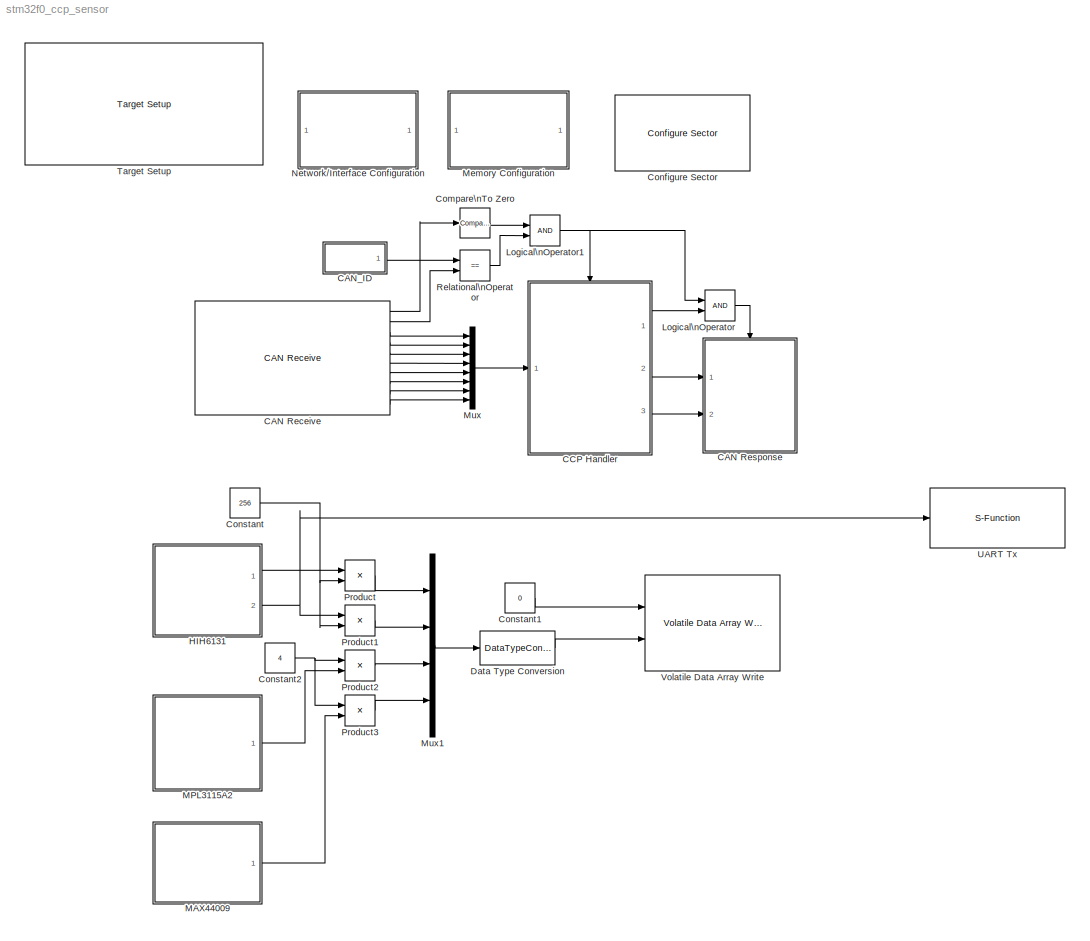
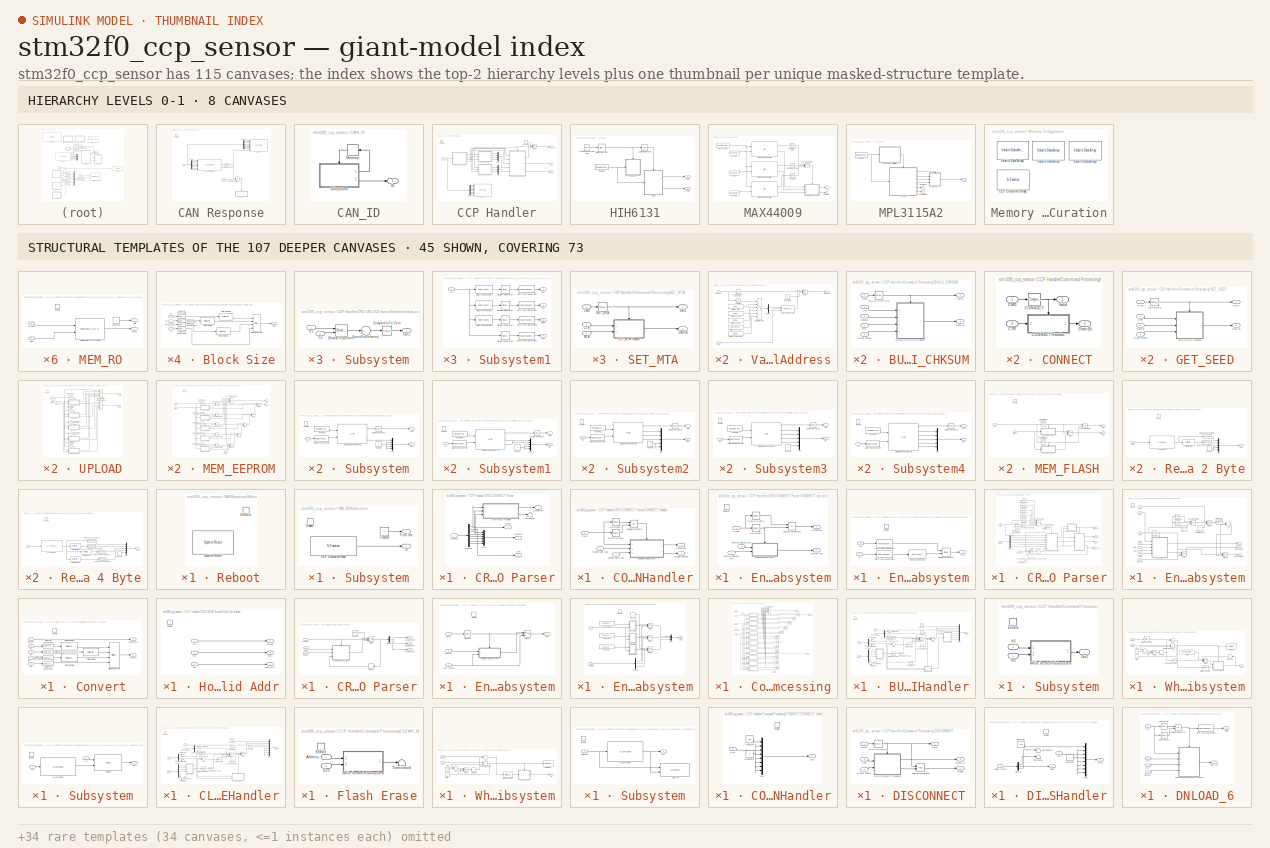
[diagram: thumbnail index - top-2 hierarchy levels (8 canvases) + 45 structural-template representatives of the remaining 107 canvases]
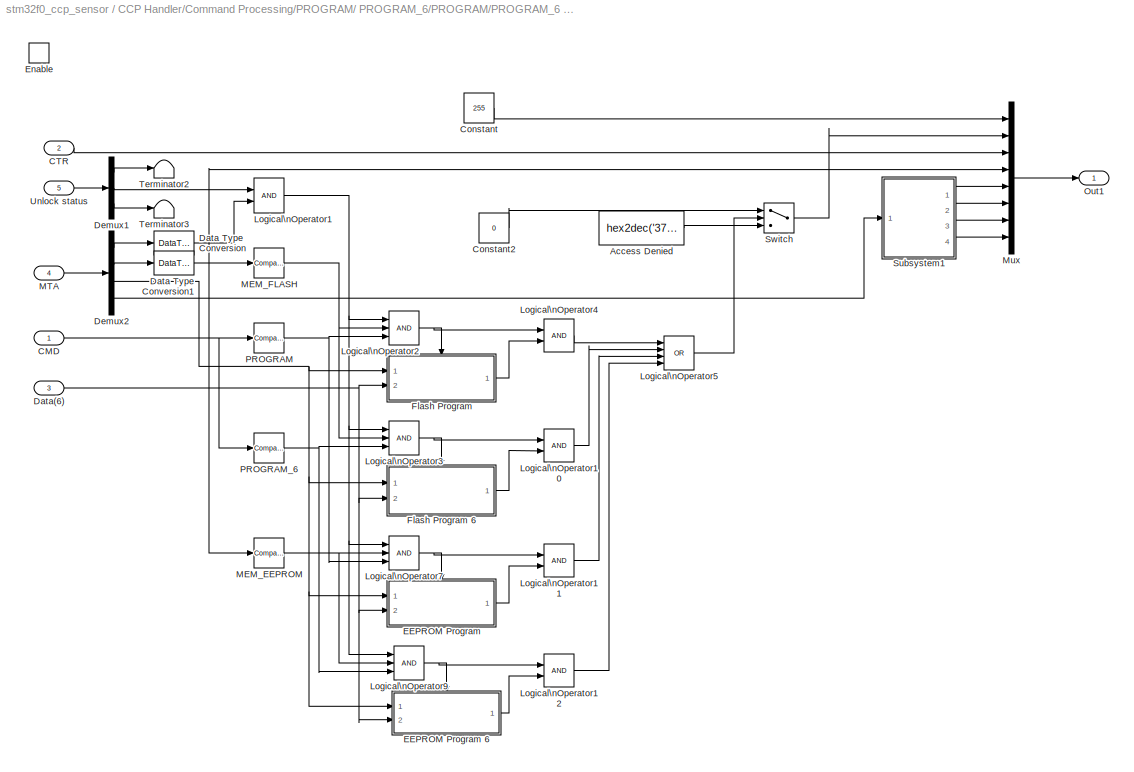
MODEL stm32f0_ccp_sensor
KIND model
CONFIG PreLoadFcn = waijung.modelPreload; % Required for working with Waijung Blockset. Do not remove.
BLOCK [Reference] CAN Receive  REF=stm32f0_can_lib/CAN Receive
  Ports = [0, 10]
  SourceBlock = stm32f0_can_lib/CAN Receive
  SourceType = stm32f0_can
  blockid = CANReceive
  buffersize = 8
  canmodule = 1
  compat = 0
  conf = Rx
  confstr = [\"Standard\",\"Mask\",\"0\",\"0\",\"off\",\"uint8\",\"uint8\",\"uint8\",\"uint8\",\"uint8\",\"uint8\",\"uint8\",\"uint8\",\"8\",\"0\",\"0\",\"0\",\"4\"]
  data0type = uint8
  data1type = uint8
  data2type = uint8
  data3type = uint8
  data4type = uint8
  data5type = uint8
  data6type = uint8
  data7type = uint8
  datatype = single
  enableisr = off
  filtertype = Mask
  id = 0
  idmask = 0
  idtype = Standard
  inputarray = []
  inputlabelarray = {}
  outputarray = [ 5, 7, 3, 3, 3, 3, 3, 3, 3, 3]
  outputlabelarray = { 'Msg Pending','ID', 'D0 (uint8)', 'D1 (uint8)', 'D2 (uint8)', 'D3 (uint8)', 'D4 (uint8)', 'D5 (uint8)', 'D6 (uint8)', 'D7 (uint8)' }
  sampletime = 0.01
  sampletimestr = 0.01
  usedlc = off
BLOCK [SubSystem] CAN Response
  FunctionWithSeparateData = off
  MaskHideContents = off
  MinAlgLoopOccurrences = off
  Opaque = off
  Ports = [2, 0, 1]
  PropExecContextOutsideSubsystem = off
  RTWSystemCode = Auto
  RequestExecContextInheritance = off
BLOCK [Reference] CAN Response/CAN Transmit  REF=stm32f0_can_lib/CAN Transmit
  Ports = [8, 1]
  SourceBlock = stm32f0_can_lib/CAN Transmit
  SourceType = stm32f0_can
  blockid = CANResponseCANTransmit
  canmodule = 1
  compat = 0
  conf = Tx
  confstr = [\"Blocking\",\"0.1\",\"Standard\",\"on\",\"255\",\"on\",\"8\",\"on\",\"uint8\",\"uint8\",\"uint8\",\"uint8\",\"uint8\",\"uint8\",\"uint8\",\"uint8\"]
  data0type = uint8
  data1type = uint8
  data2type = uint8
  data3type = uint8
  data4type = uint8
  data5type = uint8
  data6type = uint8
  data7type = uint8
  datatype = single
  dlc = 8
  enablestatus = on
  id = 255
  idtype = Standard
  inputarray = [ 3, 3, 3, 3, 3, 3, 3, 3]
  inputlabelarray = { 'D0 (uint8)', 'D1 (uint8)', 'D2 (uint8)', 'D3 (uint8)', 'D4 (uint8)', 'D5 (uint8)', 'D6 (uint8)', 'D7 (uint8)' }
  outputarray = [7]
  outputlabelarray = {'Status'}
  sampletime = -1
  sampletimestr = 0.01
  specificdlc = on
  specificid = on
  timeout = 0.1
  transfer = Blocking
BLOCK [Reference] CAN Response/Compare\nTo Zero  REF=simulink/Logic and Bit\nOperations/Compare\nTo Zero
  FunctionWithSeparateData = off
  LogicOutDataTypeMode = boolean
  Ports = [1, 1]
  RTWMemSecDataConstants = Inherit from model
  RTWMemSecDataInternal = Inherit from model
  RTWMemSecDataParameters = Inherit from model
  RTWMemSecFuncExecute = Inherit from model
  RTWMemSecFuncInitTerm = Inherit from model
  ShowPortLabels = FromPortIcon
  SourceBlock = simulink/Logic and Bit\nOperations/Compare\nTo Zero
  SourceType = Compare To Zero
  SystemSampleTime = -1
  ZeroCross = off
  relop = ==
BLOCK [Demux] CAN Response/Demux
  DisplayOption = bar
  Outputs = 8
  Ports = [1, 8]
BLOCK [Demux] CAN Response/Demux1
  DisplayOption = bar
  Outputs = 8
  Ports = [1, 8]
BLOCK [EnablePort] CAN Response/Enable
  Ports = []
BLOCK [Inport] CAN Response/In1
  IconDisplay = Port number
BLOCK [Logic] CAN Response/Logical\nOperator
  AllPortsSameDT = off
  LogicDataType = fixdt(0, 8)
  OutDataTypeMode = boolean
  OutDataTypeStr = boolean
  Ports = [2, 1]
BLOCK [SubSystem] CAN Response/Reboot
  FunctionWithSeparateData = off
  MaskHideContents = off
  MinAlgLoopOccurrences = off
  Opaque = off
  Ports = [0, 0, 1]
  PropExecContextOutsideSubsystem = off
  RTWSystemCode = Auto
  RequestExecContextInheritance = off
  TreatAsAtomicUnit = on
BLOCK [EnablePort] CAN Response/Reboot/Enable
  Ports = []
BLOCK [Reference] CAN Response/Reboot/System Reset  REF=stm32f0_reset_lib/System Reset
  Ports = []
  SourceBlock = stm32f0_reset_lib/System Reset
  SourceType = stm32f0_reset
  blockid = CANResponseRebootSystemReset
  compat = 0
  conf = <empty>
  confstr = [\"Param1\",\"Param1\"]
  inputarray = []
  inputlabelarray = {}
  outputarray = []
  outputlabelarray = {}
  sampletime = inf
  sampletimestr = 0.01
BLOCK [Inport] CAN Response/Reset
  IconDisplay = Port number
  Port = 2
BLOCK [S-Function] CAN Response/UART Tx
  EnableBusSupport = off
  FunctionName = stm32f0_uart
  MaskCallbackString = stm32f0_uart_callback('conf');|stm32f0_uart_callback('uartmodule');|||||||stm32f0_uart_callback('flowcontrol');|||stm32f0_uart_callback('advanceoptions');|||stm32f0_uart_callback('conf');|stm32f0_uart_callback('conf');|stm32f0_uart_callback('binheader');|stm32f0_uart_callback('binterminator');|||||||||stm32f0_uart_callback('asciiformat');|||stm32f0_uart_callback('storagename');|||stm32f0_uart_call...<+176ch>  <repeated x9 — deduplicated; at blocks: UART Tx, UART Rx, UART Setup>
  MaskDescription = UART Module\n - Select module corresponding to \"UART Setup\" block.\nTransfer\n - Blocking: after write DMA buffer, the block wait until buffer empty.\n - Non-Blocking: the block will not wait for buffer empty.\nPacket mode:\n - Ascii: sending data is ascii, Ascii format + End of packet.\n - Binary: sending data is binary format, Header + Data + Terminator\n - String Buffer: Volatile Data Storage...<+256ch>  <repeated x7 — deduplicated; at blocks: UART Tx>
  MaskDisplay = text(0.95, 0.5, 'Module: USART1_Tx\\nPacket: Ascii\\nTransfer: Non-Blocking\\nTs (sec): 0.01','ver','middle','hor','right'); port_label('input', 1,'%X'); port_label('input', 2,'%X'); port_label('input', 3,'%X'); port_label('input', 4,'%X'); port_label('input', 5,'%X'); port_label('input', 6,'%X'); port_label('input', 7,'%X'); port_label('input', 8,'%X'); port_label('input', 9,'%u');
  MaskEnableString = on,on,on,on,on,on,on,on,on,off,off,on,on,on,on,on,on,on,on,on,on,on,on,on,on,on,on,on,on,on,on,on,on,on,on,on,on,off,on,on,on,on,on,on,on,on,on,on,on,on
  MaskHelp = web(fullfile(waijungdocroot,'stm32f0_uart_tx.htm'), '-browser')
  MaskIconFrame = on
  MaskIconOpaque = on
  MaskIconRotate = none
  MaskIconUnits = normalized
  MaskInitialization = stm32f0_uart_callback('init');
  MaskPortRotate = default
  MaskPromptString = Configuration|UART Module|Baud rate (bps)|Data bits|Parity|Stop bit|Tx pin|Rx pin|Hardware flow control|HW Flow control, CTS Pin|HW Flow control, RTS Pin|Advance options|Rx buffer size (bytes)|Tx buffer size (bytes)|Transfer|Packet mode|Binary header (example: '7E 7E')|Binary terminator (example: '03 03')|Number of data port, type DOUBLE|Number of data port, type SINGLE|Number of data port, type I...<+631ch>  <repeated x9 — deduplicated; at blocks: UART Tx, UART Rx, UART Setup>
  MaskSelfModifiable = on
  MaskStyleString = popup(Setup|Tx|Rx),popup(1|2|3|4),edit,popup(8),popup(No|Odd|Even),popup(0.5|1|1.5|2),popup(Not used|A9|B6),popup(Not used|A10|B7),popup(None|RTS|CTS|RTS/CTS),popup(Not used|A11),popup(Not used|A12),checkbox,popup(16|32|64|128|256|512),popup(16|32|64|128|256|512),popup(Blocking|Non-Blocking),popup(Ascii|Binary|String Buffer),edit,edit,edit,edit,edit,edit,edit,edit,edit,edit,edit,popup(CR (0x0D - \...<+259ch>  <repeated x9 — deduplicated; at blocks: UART Tx, UART Rx, UART Setup>
  MaskTabNameString = ,,,,,,,,,,,,,,,,,,,,,,,,,,,,,,,,,,,,,,,,,,,,,,,,,
  MaskToolTipString = on,on,on,on,on,on,on,on,on,on,on,on,on,on,on,on,on,on,on,on,on,on,on,on,on,on,on,on,on,on,on,on,on,on,on,on,on,on,on,on,on,on,on,on,on,on,on,on,on,on
  MaskTunableValueString = off,off,off,off,off,off,off,off,off,off,off,off,off,off,off,off,off,off,off,off,off,off,off,off,off,off,off,off,off,off,off,off,off,off,off,off,off,off,off,off,off,off,off,off,off,off,off,off,off,off  <repeated x9 — deduplicated; at blocks: UART Tx, UART Rx, UART Setup>
  MaskType = stm32f0_uart
  MaskValueString = Tx|1|115200|8|No|1|A9|A10|None|Not used|Not used|off|64|64|Non-Blocking|Ascii|'7E 7E'|'03 03'|0|0|0|0|0|0|0|2|'TX: %X,%X,%X,%X,%X,%X,%X,%X: %u'|CR (0x0D - \"\\r\")|CRLF (0x0D 0x0A - \"<path>")|<empty>||TX: %X,%X,%X,%X,%X,%X,%X,%X: %u\\r\\n|inf|off|de|fff,ff,sdfsd|0|CANResponseUARTTx|[ -1 -1 -1 -1 -1 -1 -1 -1 -1]|[]|{ '%X' '%X' '%X' '%X' '%X' '%X' '%X' '%X' '%u'}|[]|[]|{}|0|[\"1\", \"1\", \"A\", \...<+344ch>
  MaskVarAliasString = ,,,,,,,,,,,,,,,,,,,,,,,,,,,,,,,,,,,,,,,,,,,,,,,,,
  MaskVariables = conf=&1;uartmodule=&2;baudrate=@3;databits=@4;parity=&5;stopbit=&6;remaptxpin=&7;remaprxpin=&8;flowcontrol=&9;remapctspin=&10;remaprtspin=&11;advanceoptions=@12;rxbuffersize=@13;txbuffersize=@14;transfer=&15;packetmode=&16;binheader=&17;binterminator=&18;porttype_double=@19;porttype_single=@20;porttype_int8=@21;porttype_uint8=@22;porttype_int16=@23;porttype_uint16=@24;porttype_int32=@25;porttype_u...<+445ch>  <repeated x9 — deduplicated; at blocks: UART Tx, UART Rx, UART Setup>
  MaskVisibilityString = off,on,off,off,off,off,off,off,off,off,off,off,off,off,on,on,off,off,off,off,off,off,off,off,off,off,on,off,on,off,off,off,on,on,off,off,off,off,off,off,off,off,off,off,off,off,off,off,off,off  <repeated x7 — deduplicated; at blocks: UART Tx>
  Parameters = conf,inputporttype,inputportwidth,outputporttype,outputportwidth,asciiheader,optionstring,headerstring,terminatorstring,asciidatatypestring,sampletime,blockid
  Ports = [9]
BLOCK [SubSystem] CAN_ID
  FunctionWithSeparateData = off
  MaskHideContents = off
  MinAlgLoopOccurrences = off
  Opaque = off
  Ports = [0, 1]
  PropExecContextOutsideSubsystem = off
  RTWSystemCode = Auto
  RequestExecContextInheritance = off
BLOCK [Outport] CAN_ID/ID
  IconDisplay = Port number
BLOCK [Memory] CAN_ID/Memory
  InheritSampleTime = on
  LinearizeMemory = on
  X0 = 1
BLOCK [SubSystem] CAN_ID/Subsystem
  FunctionWithSeparateData = off
  MaskHideContents = off
  MinAlgLoopOccurrences = off
  Opaque = off
  Ports = [0, 2, 1]
  PropExecContextOutsideSubsystem = off
  RTWSystemCode = Auto
  RequestExecContextInheritance = off
BLOCK [Constant] CAN_ID/Subsystem/Constant
  OutDataType = fixdt(1, 16)
  OutDataTypeMode = uint8
  OutDataTypeStr = uint8
  OutScaling = 2^0
  Value = 0
BLOCK [S-Function] CAN_ID/Subsystem/EEP Emulation Read
  EnableBusSupport = off
  FunctionName = stm32f0_eep_emulation
  MaskCallbackString = stm32f0_eep_emulation_callback('conf');||stm32f0_eep_emulation_callback('storagedefinename');||stm32f0_eep_emulation_callback('varname');|||stm32f0_eep_emulation_callback('eepfilename');||stm32f0_eep_emulation_callback('debuginfo');|stm32f0_eep_emulation_callback('sampletime');|stm32f0_eep_emulation_callback('enablecustomportlabel');|stm32f0_eep_emulation_callback('conf');|stm32f0_eep_emulation_ca...<+67ch>  <repeated x3 — deduplicated; at blocks: EEP Emulation Read, EEP Emulation Write>
  MaskDescription = Read a value from EEProm Emulation of the specified variable anme.
  MaskDisplay = text(0.5, 0.5, '[EEP Read]\\nName: CAN_ID\\nTs (sec): 0.01','ver','middle','hor','center'); port_label('output', 1,'CAN_ID');
  MaskEnableString = on,on,on,on,on,on,on,on,on,on,on,on,on,on,on,off,on,on,on,on,on,on,on,on
  MaskHelp = web(fullfile(waijungdocroot,'stm32f0_eep_emulation_read.htm'), '-browser')
  MaskIconFrame = on
  MaskIconOpaque = on
  MaskIconRotate = none
  MaskIconUnits = normalized
  MaskInitialization = stm32f0_eep_emulation_callback('init');
  MaskPortRotate = default
  MaskPromptString = Configuration|Storage type|Storage name|Storage name|Var name (hidden)|Initial value|Storage name index (hidden)|EEP file name (hidden)|EEP Information (hidden), [name, initialvalue, datatype]|Debug information|Sample time (sec)|Enable custom port labels (Ex. In1, In2, In3)|Custom input port labels (Ex. In1, In2, In3)|Custom output port labels (Ex. Out1, Out2, Out3)|Port Pin String|Block ID|Input ...<+166ch>  <repeated x3 — deduplicated; at blocks: EEP Emulation Read, EEP Emulation Write>
  MaskSelfModifiable = on
  MaskStyleString = popup(Setup|Read|Write),popup(double|single|int8|uint8|int16|uint16|int32|uint32),edit,popup(CAN_ID),edit,edit,edit,edit,edit,checkbox,edit,checkbox,edit,edit,edit,edit,edit,edit,edit,edit,edit,edit,edit,edit  <repeated x3 — deduplicated; at blocks: EEP Emulation Read, EEP Emulation Write>
  MaskTabNameString = ,,,,,,,,,,,,,,,,,,,,,,,
  MaskToolTipString = on,on,on,on,on,on,on,on,on,on,on,on,on,on,on,on,on,on,on,on,on,on,on,on
  MaskTunableValueString = off,off,off,off,off,off,off,off,off,off,off,off,off,off,off,off,off,off,off,off,off,off,off,off
  MaskType = stm32f0_eep_emulation
  MaskValueString = Read|single|'Data1,Data2'|CAN_ID|'CAN_ID'|[1.0 2.0]|0|'stm32f0_ccp_sensor.eeprom'|'CAN_ID,7,0,-'|off|inf|off|0||0|CAN_IDSubsystemEEPEmulationRead|[]|[]|{}|[7]|[]|{'CAN_ID'}|0|[\"CAN_ID\",\"0\",\"7\",\"off\",\"\",\"\",\"\",\"\",\"\",\"\",\"2\",\"CAN_ID\",\"7\",\"0\",\"dummy\",\"0\",\"0\"]
  MaskVarAliasString = ,,,,,,,,,,,,,,,,,,,,,,,
  MaskVariables = conf=&1;datatype=&2;storagedefinename=@3;storagename=&4;varname=@5;initialvalue=@6;storageindex=@7;eepfilename=@8;eepinfo=@9;debuginfo=&10;sampletime=@11;enablecustomportlabel=@12;cinputportlabel=&13;coutputportlabel=&14;portpinstr=&15;blockid=&16;inputporttype=@17;inputportwidth=@18;inputportlabel=&19;outputporttype=@20;outputportwidth=@21;outputportlabel=&22;compat=&23;optionstring=&24;  <repeated x3 — deduplicated; at blocks: EEP Emulation Read, EEP Emulation Write>
  MaskVisibilityString = off,off,off,on,off,off,off,off,off,on,on,off,off,off,off,off,off,off,off,off,off,off,off,off
  Parameters = conf,inputporttype,inputportwidth,outputporttype,outputportwidth,eepfilename,eepinfo,varname,optionstring,sampletime,blockid
  Ports = [0, 1]
BLOCK [EnablePort] CAN_ID/Subsystem/Enable
  Ports = []
BLOCK [Outport] CAN_ID/Subsystem/FirstTime
  IconDisplay = Port number
BLOCK [Outport] CAN_ID/Subsystem/ID
  IconDisplay = Port number
  InitialOutput = 0
  Port = 2
BLOCK [SubSystem] CCP Handler
  FunctionWithSeparateData = off
  MaskHideContents = off
  MinAlgLoopOccurrences = off
  Opaque = off
  Ports = [1, 3, 1]
  PropExecContextOutsideSubsystem = off
  RTWSystemCode = Auto
  RequestExecContextInheritance = off
  TreatAsAtomicUnit = on
BLOCK [SubSystem] CCP Handler/CRO CONNECT Parser
  FunctionWithSeparateData = off
  MaskHideContents = off
  MinAlgLoopOccurrences = off
  Opaque = off
  Ports = [1, 4]
  PropExecContextOutsideSubsystem = off
  RTWSystemCode = Auto
  RequestExecContextInheritance = off
BLOCK [Outport] CCP Handler/CRO CONNECT Parser/CMD
  IconDisplay = Port number
  OutDataType = fixdt(1, 16)
  OutScaling = 2^0
  Port = 2
BLOCK [SubSystem] CCP Handler/CRO CONNECT Parser/CONNECT Handler
  FunctionWithSeparateData = off
  MaskHideContents = off
  MinAlgLoopOccurrences = off
  Opaque = off
  Ports = [3, 2]
  PropExecContextOutsideSubsystem = off
  RTWSystemCode = Auto
  RequestExecContextInheritance = off
  TreatAsAtomicUnit = on
BLOCK [Inport] CCP Handler/CRO CONNECT Parser/CONNECT Handler/CMD
  IconDisplay = Port number
  OutDataType = fixdt(1, 16)
  OutScaling = 2^0
BLOCK [Reference] CCP Handler/CRO CONNECT Parser/CONNECT Handler/CONNECT  REF=simulink/Logic and Bit\nOperations/Compare\nTo Constant
  FunctionWithSeparateData = off
  LogicOutDataTypeMode = uint8
  Ports = [1, 1]
  RTWMemSecDataConstants = Inherit from model
  RTWMemSecDataInternal = Inherit from model
  RTWMemSecDataParameters = Inherit from model
  RTWMemSecFuncExecute = Inherit from model
  RTWMemSecFuncInitTerm = Inherit from model
  ShowPortLabels = FromPortIcon
  SourceBlock = simulink/Logic and Bit\nOperations/Compare\nTo Constant
  SourceType = Compare To Constant
  SystemSampleTime = -1
  ZeroCross = off
  const = 1
  relop = ==
BLOCK [Outport] CCP Handler/CRO CONNECT Parser/CONNECT Handler/Connected
  IconDisplay = Port number
  OutDataType = fixdt(1, 16)
  OutScaling = 2^0
BLOCK [Reference] CCP Handler/CRO CONNECT Parser/CONNECT Handler/DISCONNECT  REF=simulink/Logic and Bit\nOperations/Compare\nTo Constant
  FunctionWithSeparateData = off
  LogicOutDataTypeMode = uint8
  Ports = [1, 1]
  RTWMemSecDataConstants = Inherit from model
  RTWMemSecDataInternal = Inherit from model
  RTWMemSecDataParameters = Inherit from model
  RTWMemSecFuncExecute = Inherit from model
  RTWMemSecFuncInitTerm = Inherit from model
  ShowPortLabels = FromPortIcon
  SourceBlock = simulink/Logic and Bit\nOperations/Compare\nTo Constant
  SourceType = Compare To Constant
  SystemSampleTime = -1
  ZeroCross = off
  const = 7
  relop = ==
BLOCK [SubSystem] CCP Handler/CRO CONNECT Parser/CONNECT Handler/Enabled\nSubsystem
  FunctionWithSeparateData = off
  MaskHideContents = off
  MinAlgLoopOccurrences = off
  Opaque = off
  Ports = [3, 2, 1]
  PropExecContextOutsideSubsystem = off
  RTWSystemCode = Auto
  RequestExecContextInheritance = off
  TreatAsAtomicUnit = on
BLOCK [Inport] CCP Handler/CRO CONNECT Parser/CONNECT Handler/Enabled\nSubsystem/CMD
  IconDisplay = Port number
  OutDataType = fixdt(1, 16)
  OutScaling = 2^0
BLOCK [Reference] CCP Handler/CRO CONNECT Parser/CONNECT Handler/Enabled\nSubsystem/CONNECT  REF=simulink/Logic and Bit\nOperations/Compare\nTo Constant
  FunctionWithSeparateData = off
  LogicOutDataTypeMode = uint8
  Ports = [1, 1]
  RTWMemSecDataConstants = Inherit from model
  RTWMemSecDataInternal = Inherit from model
  RTWMemSecDataParameters = Inherit from model
  RTWMemSecFuncExecute = Inherit from model
  RTWMemSecFuncInitTerm = Inherit from model
  ShowPortLabels = FromPortIcon
  SourceBlock = simulink/Logic and Bit\nOperations/Compare\nTo Constant
  SourceType = Compare To Constant
  SystemSampleTime = -1
  ZeroCross = off
  const = 1
  relop = ==
BLOCK [Outport] CCP Handler/CRO CONNECT Parser/CONNECT Handler/Enabled\nSubsystem/Connected
  IconDisplay = Port number
  OutDataType = fixdt(1, 16)
  OutScaling = 2^0
BLOCK [Reference] CCP Handler/CRO CONNECT Parser/CONNECT Handler/Enabled\nSubsystem/DISCONNECT  REF=simulink/Logic and Bit\nOperations/Compare\nTo Constant
  FunctionWithSeparateData = off
  LogicOutDataTypeMode = uint8
  Ports = [1, 1]
  RTWMemSecDataConstants = Inherit from model
  RTWMemSecDataInternal = Inherit from model
  RTWMemSecDataParameters = Inherit from model
  RTWMemSecFuncExecute = Inherit from model
  RTWMemSecFuncInitTerm = Inherit from model
  ShowPortLabels = FromPortIcon
  SourceBlock = simulink/Logic and Bit\nOperations/Compare\nTo Constant
  SourceType = Compare To Constant
  SystemSampleTime = -1
  ZeroCross = off
  const = 7
  relop = ==
BLOCK [EnablePort] CCP Handler/CRO CONNECT Parser/CONNECT Handler/Enabled\nSubsystem/Enable
  Ports = []
BLOCK [SubSystem] CCP Handler/CRO CONNECT Parser/CONNECT Handler/Enabled\nSubsystem/Enabled\nSubsystem
  FunctionWithSeparateData = off
  MaskHideContents = off
  MinAlgLoopOccurrences = off
  Opaque = off
  Ports = [2, 1, 1]
  PropExecContextOutsideSubsystem = off
  RTWSystemCode = Auto
  RequestExecContextInheritance = off
  TreatAsAtomicUnit = on
BLOCK [Reference] CCP Handler/CRO CONNECT Parser/CONNECT Handler/Enabled\nSubsystem/Enabled\nSubsystem/Bitwise\nOperator  REF=simulink/Logic and Bit\nOperations/Bitwise\nOperator
  BitMask = bin2dec('11011001')
  BitMaskRealWorld = Stored Integer
  NumInputPorts = 2
  Ports = [2, 1]
  SourceBlock = simulink/Logic and Bit\nOperations/Bitwise\nOperator
  SourceType = Bitwise Operator
  UseBitMask = off
  logicop = OR
BLOCK [DataTypeConversion] CCP Handler/CRO CONNECT Parser/CONNECT Handler/Enabled\nSubsystem/Enabled\nSubsystem/Data Type Conversion
  OutDataType = fixdt(1, 16)
  OutDataTypeMode = uint16
  OutDataTypeStr = uint16
  OutScaling = 2^0
  RndMeth = Floor
  SaturateOnIntegerOverflow = off
BLOCK [DataTypeConversion] CCP Handler/CRO CONNECT Parser/CONNECT Handler/Enabled\nSubsystem/Enabled\nSubsystem/Data Type Conversion1
  OutDataType = fixdt(1, 16)
  OutDataTypeMode = uint16
  OutDataTypeStr = uint16
  OutScaling = 2^0
  RndMeth = Floor
  SaturateOnIntegerOverflow = off
BLOCK [EnablePort] CCP Handler/CRO CONNECT Parser/CONNECT Handler/Enabled\nSubsystem/Enabled\nSubsystem/Enable
  Ports = []
BLOCK [Inport] CCP Handler/CRO CONNECT Parser/CONNECT Handler/Enabled\nSubsystem/Enabled\nSubsystem/In1
  IconDisplay = Port number
  OutDataType = fixdt(1, 16)
  OutScaling = 2^0
BLOCK [Inport] CCP Handler/CRO CONNECT Parser/CONNECT Handler/Enabled\nSubsystem/Enabled\nSubsystem/In2
  IconDisplay = Port number
  OutDataType = fixdt(1, 16)
  OutScaling = 2^0
  Port = 2
BLOCK [Outport] CCP Handler/CRO CONNECT Parser/CONNECT Handler/Enabled\nSubsystem/Enabled\nSubsystem/Out1
  IconDisplay = Port number
  OutDataType = fixdt(1, 16)
  OutScaling = 2^0
BLOCK [Reference] CCP Handler/CRO CONNECT Parser/CONNECT Handler/Enabled\nSubsystem/Enabled\nSubsystem/Shift\nArithmetic  REF=simulink/Logic and Bit\nOperations/Shift\nArithmetic
  FunctionWithSeparateData = off
  Ports = [1, 1]
  RTWMemSecDataConstants = Inherit from model
  RTWMemSecDataInternal = Inherit from model
  RTWMemSecDataParameters = Inherit from model
  RTWMemSecFuncExecute = Inherit from model
  RTWMemSecFuncInitTerm = Inherit from model
  ShowPortLabels = FromPortIcon
  SourceBlock = simulink/Logic and Bit\nOperations/Shift\nArithmetic
  SourceType = Shift Arithmetic
  SystemSampleTime = -1
  nBinPtShiftRight = 0
  nBitShiftRight = -8
BLOCK [Logic] CCP Handler/CRO CONNECT Parser/CONNECT Handler/Enabled\nSubsystem/Logical\nOperator
  AllPortsSameDT = off
  LogicDataType = fixdt(0, 8)
  Operator = OR
  OutDataTypeMode = boolean
  OutDataTypeStr = boolean
  Ports = [2, 1]
BLOCK [Outport] CCP Handler/CRO CONNECT Parser/CONNECT Handler/Enabled\nSubsystem/Station Addr
  IconDisplay = Port number
  OutDataType = fixdt(1, 16)
  OutScaling = 2^0
  Port = 2
BLOCK [Inport] CCP Handler/CRO CONNECT Parser/CONNECT Handler/Enabled\nSubsystem/Station address Lsb
  IconDisplay = Port number
  OutDataType = fixdt(1, 16)
  OutScaling = 2^0
  Port = 2
BLOCK [Inport] CCP Handler/CRO CONNECT Parser/CONNECT Handler/Enabled\nSubsystem/Station address Msb
  IconDisplay = Port number
  OutDataType = fixdt(1, 16)
  OutScaling = 2^0
  Port = 3
BLOCK [Logic] CCP Handler/CRO CONNECT Parser/CONNECT Handler/Logical\nOperator
  AllPortsSameDT = off
  LogicDataType = fixdt(0, 8)
  Operator = OR
  OutDataTypeMode = boolean
  OutDataTypeStr = boolean
  Ports = [2, 1]
BLOCK [Inport] CCP Handler/CRO CONNECT Parser/CONNECT Handler/Station Addr LSB
  IconDisplay = Port number
  OutDataType = fixdt(1, 16)
  OutScaling = 2^0
  Port = 2
BLOCK [Inport] CCP Handler/CRO CONNECT Parser/CONNECT Handler/Station Addr MSB
  IconDisplay = Port number
  OutDataType = fixdt(1, 16)
  OutScaling = 2^0
  Port = 3
BLOCK [Outport] CCP Handler/CRO CONNECT Parser/CONNECT Handler/Station Address
  IconDisplay = Port number
  OutDataType = fixdt(1, 16)
  OutScaling = 2^0
  Port = 2
BLOCK [Outport] CCP Handler/CRO CONNECT Parser/CTR
  IconDisplay = Port number
  OutDataType = fixdt(1, 16)
  OutScaling = 2^0
  Port = 4
BLOCK [Outport] CCP Handler/CRO CONNECT Parser/Connected
  IconDisplay = Port number
  OutDataType = fixdt(1, 16)
  OutScaling = 2^0
BLOCK [Outport] CCP Handler/CRO CONNECT Parser/Data(6)
  IconDisplay = Port number
  OutDataType = fixdt(1, 16)
  OutScaling = 2^0
  Port = 3
BLOCK [Inport] CCP Handler/CRO CONNECT Parser/Data(8)
  IconDisplay = Port number
  OutDataType = fixdt(1, 16)
  OutScaling = 2^0
BLOCK [Demux] CCP Handler/CRO CONNECT Parser/Demux
  DisplayOption = bar
  Outputs = 8
  Ports = [1, 8]
BLOCK [Mux] CCP Handler/CRO CONNECT Parser/Mux
  DisplayOption = bar
  Inputs = 6
  Ports = [6, 1]
BLOCK [Terminator] CCP Handler/CRO CONNECT Parser/Terminator
BLOCK [SubSystem] CCP Handler/CRO MTA Parser
  FunctionWithSeparateData = off
  MaskHideContents = off
  MinAlgLoopOccurrences = off
  Opaque = off
  Ports = [3, 4]
  PropExecContextOutsideSubsystem = off
  RTWSystemCode = Auto
  RequestExecContextInheritance = off
BLOCK [Inport] CCP Handler/CRO MTA Parser/CMD
  IconDisplay = Port number
  OutDataType = fixdt(1, 16)
  OutScaling = 2^0
  Port = 2
BLOCK [Inport] CCP Handler/CRO MTA Parser/Connect
  IconDisplay = Port number
  OutDataType = fixdt(1, 16)
  OutScaling = 2^0
BLOCK [Reference] CCP Handler/CRO MTA Parser/DNLOAD  REF=simulink/Logic and Bit\nOperations/Compare\nTo Constant
  FunctionWithSeparateData = off
  LogicOutDataTypeMode = uint8
  Ports = [1, 1]
  RTWMemSecDataConstants = Inherit from model
  RTWMemSecDataInternal = Inherit from model
  RTWMemSecDataParameters = Inherit from model
  RTWMemSecFuncExecute = Inherit from model
  RTWMemSecFuncInitTerm = Inherit from model
  ShowPortLabels = FromPortIcon
  SourceBlock = simulink/Logic and Bit\nOperations/Compare\nTo Constant
  SourceType = Compare To Constant
  SystemSampleTime = -1
  ZeroCross = off
  const = 3
  relop = ==
BLOCK [Reference] CCP Handler/CRO MTA Parser/DNLOAD_6  REF=simulink/Logic and Bit\nOperations/Compare\nTo Constant
  FunctionWithSeparateData = off
  LogicOutDataTypeMode = uint8
  Ports = [1, 1]
  RTWMemSecDataConstants = Inherit from model
  RTWMemSecDataInternal = Inherit from model
  RTWMemSecDataParameters = Inherit from model
  RTWMemSecFuncExecute = Inherit from model
  RTWMemSecFuncInitTerm = Inherit from model
  ShowPortLabels = FromPortIcon
  SourceBlock = simulink/Logic and Bit\nOperations/Compare\nTo Constant
  SourceType = Compare To Constant
  SystemSampleTime = -1
  ZeroCross = off
  const = 35
  relop = ==
BLOCK [Inport] CCP Handler/CRO MTA Parser/Data(6)
  IconDisplay = Port number
  OutDataType = fixdt(1, 16)
  OutScaling = 2^0
  Port = 3
BLOCK [Constant] CCP Handler/CRO MTA Parser/Default Address
  OutDataType = fixdt(1, 16)
  OutDataTypeMode = uint32
  OutDataTypeStr = uint32
  OutScaling = 2^0
  Value = 0
BLOCK [Demux] CCP Handler/CRO MTA Parser/Demux
  DisplayOption = bar
  Outputs = 6
  Ports = [1, 6]
BLOCK [SubSystem] CCP Handler/CRO MTA Parser/Enabled\nSubsystem
  FunctionWithSeparateData = off
  MaskHideContents = off
  MinAlgLoopOccurrences = off
  Opaque = off
  Ports = [8, 3, 1]
  PropExecContextOutsideSubsystem = off
  RTWSystemCode = Auto
  RequestExecContextInheritance = off
  TreatAsAtomicUnit = on
BLOCK [Sum] CCP Handler/CRO MTA Parser/Enabled\nSubsystem/Add
  InputSameDT = off
  OutDataType = fixdt(1, 16)
  OutDataTypeMode = Inherit via internal rule
  OutDataTypeStr = Inherit: Inherit via internal rule
  OutScaling = 2^-10
  Ports = [2, 1]
  SaturateOnIntegerOverflow = off
BLOCK [Inport] CCP Handler/CRO MTA Parser/Enabled\nSubsystem/Add0
  IconDisplay = Port number
  OutDataType = fixdt(1, 16)
  OutScaling = 2^0
  Port = 4
BLOCK [Inport] CCP Handler/CRO MTA Parser/Enabled\nSubsystem/Add1
  IconDisplay = Port number
  OutDataType = fixdt(1, 16)
  OutScaling = 2^0
  Port = 5
BLOCK [Inport] CCP Handler/CRO MTA Parser/Enabled\nSubsystem/Add2
  IconDisplay = Port number
  OutDataType = fixdt(1, 16)
  OutScaling = 2^0
  Port = 6
BLOCK [Inport] CCP Handler/CRO MTA Parser/Enabled\nSubsystem/Add3
  IconDisplay = Port number
  OutDataType = fixdt(1, 16)
  OutScaling = 2^0
  Port = 7
BLOCK [Inport] CCP Handler/CRO MTA Parser/Enabled\nSubsystem/CMD
  IconDisplay = Port number
  OutDataType = fixdt(1, 16)
  OutScaling = 2^0
BLOCK [SubSystem] CCP Handler/CRO MTA Parser/Enabled\nSubsystem/Convert
  FunctionWithSeparateData = off
  MaskHideContents = off
  MinAlgLoopOccurrences = off
  Opaque = off
  Ports = [5, 2, 1]
  PropExecContextOutsideSubsystem = off
  RTWSystemCode = Auto
  RequestExecContextInheritance = off
  TreatAsAtomicUnit = on
BLOCK [Outport] CCP Handler/CRO MTA Parser/Enabled\nSubsystem/Convert/Address
  IconDisplay = Port number
  OutDataType = fixdt(1, 16)
  OutScaling = 2^0
  Port = 2
BLOCK [Reference] CCP Handler/CRO MTA Parser/Enabled\nSubsystem/Convert/Bitwise\nOperator  REF=simulink/Logic and Bit\nOperations/Bitwise\nOperator
  BitMask = bin2dec('11011001')
  BitMaskRealWorld = Stored Integer
  NumInputPorts = 4
  Ports = [4, 1]
  SourceBlock = simulink/Logic and Bit\nOperations/Bitwise\nOperator
  SourceType = Bitwise Operator
  UseBitMask = off
  logicop = OR
BLOCK [DataTypeConversion] CCP Handler/CRO MTA Parser/Enabled\nSubsystem/Convert/Data Type Conversion
  OutDataType = fixdt(1, 16)
  OutDataTypeMode = uint32
  OutDataTypeStr = uint32
  OutScaling = 2^0
  RndMeth = Floor
  SaturateOnIntegerOverflow = off
BLOCK [DataTypeConversion] CCP Handler/CRO MTA Parser/Enabled\nSubsystem/Convert/Data Type Conversion1
  OutDataType = fixdt(1, 16)
  OutDataTypeMode = uint32
  OutDataTypeStr = uint32
  OutScaling = 2^0
  RndMeth = Floor
  SaturateOnIntegerOverflow = off
BLOCK [DataTypeConversion] CCP Handler/CRO MTA Parser/Enabled\nSubsystem/Convert/Data Type Conversion2
  OutDataType = fixdt(1, 16)
  OutDataTypeMode = uint32
  OutDataTypeStr = uint32
  OutScaling = 2^0
  RndMeth = Floor
  SaturateOnIntegerOverflow = off
BLOCK [DataTypeConversion] CCP Handler/CRO MTA Parser/Enabled\nSubsystem/Convert/Data Type Conversion3
  OutDataType = fixdt(1, 16)
  OutDataTypeMode = uint32
  OutDataTypeStr = uint32
  OutScaling = 2^0
  RndMeth = Floor
  SaturateOnIntegerOverflow = off
BLOCK [EnablePort] CCP Handler/CRO MTA Parser/Enabled\nSubsystem/Convert/Enable
  Ports = []
BLOCK [Inport] CCP Handler/CRO MTA Parser/Enabled\nSubsystem/Convert/ExtAddr
  IconDisplay = Port number
  OutDataType = fixdt(1, 16)
  OutScaling = 2^0
BLOCK [Outport] CCP Handler/CRO MTA Parser/Enabled\nSubsystem/Convert/ExtAddt_out
  IconDisplay = Port number
  OutDataType = fixdt(1, 16)
  OutScaling = 2^0
BLOCK [Inport] CCP Handler/CRO MTA Parser/Enabled\nSubsystem/Convert/In1
  IconDisplay = Port number
  OutDataType = fixdt(1, 16)
  OutScaling = 2^0
  Port = 2
BLOCK [Inport] CCP Handler/CRO MTA Parser/Enabled\nSubsystem/Convert/In2
  IconDisplay = Port number
  OutDataType = fixdt(1, 16)
  OutScaling = 2^0
  Port = 3
BLOCK [Inport] CCP Handler/CRO MTA Parser/Enabled\nSubsystem/Convert/In3
  IconDisplay = Port number
  OutDataType = fixdt(1, 16)
  OutScaling = 2^0
  Port = 4
BLOCK [Inport] CCP Handler/CRO MTA Parser/Enabled\nSubsystem/Convert/In4
  IconDisplay = Port number
  OutDataType = fixdt(1, 16)
  OutScaling = 2^0
  Port = 5
BLOCK [Reference] CCP Handler/CRO MTA Parser/Enabled\nSubsystem/Convert/Shift\nArithmetic  REF=simulink/Logic and Bit\nOperations/Shift\nArithmetic
  FunctionWithSeparateData = off
  Ports = [1, 1]
  RTWMemSecDataConstants = Inherit from model
  RTWMemSecDataInternal = Inherit from model
  RTWMemSecDataParameters = Inherit from model
  RTWMemSecFuncExecute = Inherit from model
  RTWMemSecFuncInitTerm = Inherit from model
  ShowPortLabels = FromPortIcon
  SourceBlock = simulink/Logic and Bit\nOperations/Shift\nArithmetic
  SourceType = Shift Arithmetic
  SystemSampleTime = -1
  nBinPtShiftRight = 0
  nBitShiftRight = -16
BLOCK [Reference] CCP Handler/CRO MTA Parser/Enabled\nSubsystem/Convert/Shift\nArithmetic1  REF=simulink/Logic and Bit\nOperations/Shift\nArithmetic
  FunctionWithSeparateData = off
  Ports = [1, 1]
  RTWMemSecDataConstants = Inherit from model
  RTWMemSecDataInternal = Inherit from model
  RTWMemSecDataParameters = Inherit from model
  RTWMemSecFuncExecute = Inherit from model
  RTWMemSecFuncInitTerm = Inherit from model
  ShowPortLabels = FromPortIcon
  SourceBlock = simulink/Logic and Bit\nOperations/Shift\nArithmetic
  SourceType = Shift Arithmetic
  SystemSampleTime = -1
  nBinPtShiftRight = 0
  nBitShiftRight = -8
BLOCK [Reference] CCP Handler/CRO MTA Parser/Enabled\nSubsystem/Convert/Shift\nArithmetic3  REF=simulink/Logic and Bit\nOperations/Shift\nArithmetic
  FunctionWithSeparateData = off
  Ports = [1, 1]
  RTWMemSecDataConstants = Inherit from model
  RTWMemSecDataInternal = Inherit from model
  RTWMemSecDataParameters = Inherit from model
  RTWMemSecFuncExecute = Inherit from model
  RTWMemSecFuncInitTerm = Inherit from model
  ShowPortLabels = FromPortIcon
  SourceBlock = simulink/Logic and Bit\nOperations/Shift\nArithmetic
  SourceType = Shift Arithmetic
  SystemSampleTime = -1
  nBinPtShiftRight = 0
  nBitShiftRight = -24
BLOCK [Outport] CCP Handler/CRO MTA Parser/Enabled\nSubsystem/Curr_Address
  IconDisplay = Port number
  InitialOutput = 0
  OutDataType = fixdt(1, 16)
  OutScaling = 2^0
  Port = 2
BLOCK [Inport] CCP Handler/CRO MTA Parser/Enabled\nSubsystem/Curr_addr
  IconDisplay = Port number
  OutDataType = fixdt(1, 16)
  OutScaling = 2^0
  Port = 8
BLOCK [Reference] CCP Handler/CRO MTA Parser/Enabled\nSubsystem/DNLOAD  REF=simulink/Logic and Bit\nOperations/Compare\nTo Constant
  FunctionWithSeparateData = off
  LogicOutDataTypeMode = uint8
  Ports = [1, 1]
  RTWMemSecDataConstants = Inherit from model
  RTWMemSecDataInternal = Inherit from model
  RTWMemSecDataParameters = Inherit from model
  RTWMemSecFuncExecute = Inherit from model
  RTWMemSecFuncInitTerm = Inherit from model
  ShowPortLabels = FromPortIcon
  SourceBlock = simulink/Logic and Bit\nOperations/Compare\nTo Constant
  SourceType = Compare To Constant
  SystemSampleTime = -1
  ZeroCross = off
  const = 3
  relop = ==
BLOCK [Constant] CCP Handler/CRO MTA Parser/Enabled\nSubsystem/DNLOAD_6// PROGRAM_6
  OutDataType = fixdt(1, 16)
  OutDataTypeMode = uint8
  OutDataTypeStr = uint8
  OutScaling = 2^0
  Value = 6
BLOCK [DataTypeConversion] CCP Handler/CRO MTA Parser/Enabled\nSubsystem/Data Type Conversion
  OutDataType = fixdt(1, 16)
  OutScaling = 2^0
  RndMeth = Floor
  SaturateOnIntegerOverflow = off
BLOCK [EnablePort] CCP Handler/CRO MTA Parser/Enabled\nSubsystem/Enable
  Ports = []
BLOCK [Inport] CCP Handler/CRO MTA Parser/Enabled\nSubsystem/Ext
  IconDisplay = Port number
  OutDataType = fixdt(1, 16)
  OutScaling = 2^0
  Port = 3
BLOCK [Outport] CCP Handler/CRO MTA Parser/Enabled\nSubsystem/ExtAddr
  IconDisplay = Port number
  InitialOutput = 0
  OutDataType = fixdt(1, 16)
  OutScaling = 2^0
BLOCK [Logic] CCP Handler/CRO MTA Parser/Enabled\nSubsystem/Logical\nOperator
  AllPortsSameDT = off
  Inputs = 3
  LogicDataType = fixdt(0, 8)
  Operator = OR
  OutDataTypeMode = boolean
  OutDataTypeStr = boolean
  Ports = [3, 1]
BLOCK [Reference] CCP Handler/CRO MTA Parser/Enabled\nSubsystem/PROGRAM  REF=simulink/Logic and Bit\nOperations/Compare\nTo Constant
  FunctionWithSeparateData = off
  LogicOutDataTypeMode = uint8
  Ports = [1, 1]
  RTWMemSecDataConstants = Inherit from model
  RTWMemSecDataInternal = Inherit from model
  RTWMemSecDataParameters = Inherit from model
  RTWMemSecFuncExecute = Inherit from model
  RTWMemSecFuncInitTerm = Inherit from model
  ShowPortLabels = FromPortIcon
  SourceBlock = simulink/Logic and Bit\nOperations/Compare\nTo Constant
  SourceType = Compare To Constant
  SystemSampleTime = -1
  ZeroCross = off
  const = 24
  relop = ==
BLOCK [Outport] CCP Handler/CRO MTA Parser/Enabled\nSubsystem/Post_Address
  IconDisplay = Port number
  InitialOutput = 0
  OutDataType = fixdt(1, 16)
  OutScaling = 2^0
  Port = 3
BLOCK [Reference] CCP Handler/CRO MTA Parser/Enabled\nSubsystem/SET_MTA  REF=simulink/Logic and Bit\nOperations/Compare\nTo Constant
  FunctionWithSeparateData = off
  LogicOutDataTypeMode = uint8
  Ports = [1, 1]
  RTWMemSecDataConstants = Inherit from model
  RTWMemSecDataInternal = Inherit from model
  RTWMemSecDataParameters = Inherit from model
  RTWMemSecFuncExecute = Inherit from model
  RTWMemSecFuncInitTerm = Inherit from model
  ShowPortLabels = FromPortIcon
  SourceBlock = simulink/Logic and Bit\nOperations/Compare\nTo Constant
  SourceType = Compare To Constant
  SystemSampleTime = -1
  ZeroCross = off
  const = 2
  relop = ==
BLOCK [Inport] CCP Handler/CRO MTA Parser/Enabled\nSubsystem/Size
  IconDisplay = Port number
  OutDataType = fixdt(1, 16)
  OutScaling = 2^0
  Port = 2
BLOCK [Switch] CCP Handler/CRO MTA Parser/Enabled\nSubsystem/Switch
  Criteria = u2 > Threshold
  InputSameDT = off
  OutDataType = fixdt(1, 16)
  OutScaling = 2^0
  SaturateOnIntegerOverflow = off
BLOCK [Switch] CCP Handler/CRO MTA Parser/Enabled\nSubsystem/Switch1
  Criteria = u2 > Threshold
  InputSameDT = off
  OutDataType = fixdt(1, 16)
  OutScaling = 2^0
  SaturateOnIntegerOverflow = off
BLOCK [Switch] CCP Handler/CRO MTA Parser/Enabled\nSubsystem/Switch2
  Criteria = u2 ~= 0
  InputSameDT = off
  OutDataType = fixdt(1, 16)
  OutScaling = 2^0
  SaturateOnIntegerOverflow = off
BLOCK [Reference] CCP Handler/CRO MTA Parser/Enabled\nSubsystem/UPLOAD  REF=simulink/Logic and Bit\nOperations/Compare\nTo Constant
  FunctionWithSeparateData = off
  LogicOutDataTypeMode = uint8
  Ports = [1, 1]
  RTWMemSecDataConstants = Inherit from model
  RTWMemSecDataInternal = Inherit from model
  RTWMemSecDataParameters = Inherit from model
  RTWMemSecFuncExecute = Inherit from model
  RTWMemSecFuncInitTerm = Inherit from model
  ShowPortLabels = FromPortIcon
  SourceBlock = simulink/Logic and Bit\nOperations/Compare\nTo Constant
  SourceType = Compare To Constant
  SystemSampleTime = -1
  ZeroCross = off
  const = 4
  relop = ==
BLOCK [Outport] CCP Handler/CRO MTA Parser/ExtAddr
  IconDisplay = Port number
  OutDataType = fixdt(1, 16)
  OutScaling = 2^0
  Port = 2
BLOCK [SubSystem] CCP Handler/CRO MTA Parser/Hold Valid Addr
  FunctionWithSeparateData = off
  MaskHideContents = off
  MinAlgLoopOccurrences = off
  Opaque = off
  Ports = [3, 3, 1]
  PropExecContextOutsideSubsystem = off
  RTWSystemCode = Auto
  RequestExecContextInheritance = off
BLOCK [EnablePort] CCP Handler/CRO MTA Parser/Hold Valid Addr/Enable
  Ports = []
BLOCK [Outport] CCP Handler/CRO MTA Parser/Hold Valid Addr/ExtAddr
  IconDisplay = Port number
  InitialOutput = 0
  OutDataType = fixdt(1, 16)
  OutScaling = 2^0
BLOCK [Inport] CCP Handler/CRO MTA Parser/Hold Valid Addr/In1
  IconDisplay = Port number
BLOCK [Inport] CCP Handler/CRO MTA Parser/Hold Valid Addr/In2
  IconDisplay = Port number
  Port = 2
BLOCK [Inport] CCP Handler/CRO MTA Parser/Hold Valid Addr/In3
  IconDisplay = Port number
  Port = 3
BLOCK [Outport] CCP Handler/CRO MTA Parser/Hold Valid Addr/MTA
  IconDisplay = Port number
  InitialOutput = 0
  OutDataType = fixdt(1, 16)
  OutScaling = 2^0
  Port = 2
BLOCK [Outport] CCP Handler/CRO MTA Parser/Hold Valid Addr/Post_MTA
  IconDisplay = Port number
  InitialOutput = 0
  OutDataType = fixdt(1, 16)
  OutScaling = 2^0
  Port = 3
BLOCK [Logic] CCP Handler/CRO MTA Parser/Logical\nOperator
  AllPortsSameDT = off
  Inputs = 6
  LogicDataType = fixdt(0, 8)
  Operator = OR
  OutDataTypeMode = boolean
  OutDataTypeStr = boolean
  Ports = [6, 1]
BLOCK [Logic] CCP Handler/CRO MTA Parser/Logical\nOperator1
  AllPortsSameDT = off
  LogicDataType = fixdt(0, 8)
  OutDataTypeMode = boolean
  OutDataTypeStr = boolean
  Ports = [2, 1]
BLOCK [Logic] CCP Handler/CRO MTA Parser/Logical\nOperator2
  AllPortsSameDT = off
  LogicDataType = fixdt(0, 8)
  OutDataTypeMode = boolean
  OutDataTypeStr = boolean
  Ports = [2, 1]
BLOCK [Outport] CCP Handler/CRO MTA Parser/MTA
  IconDisplay = Port number
  OutDataType = fixdt(1, 16)
  OutScaling = 2^0
  Port = 3
BLOCK [Reference] CCP Handler/CRO MTA Parser/MTA Number  REF=simulink/Logic and Bit\nOperations/Compare\nTo Constant
  FunctionWithSeparateData = off
  LogicOutDataTypeMode = uint8
  Ports = [1, 1]
  RTWMemSecDataConstants = Inherit from model
  RTWMemSecDataInternal = Inherit from model
  RTWMemSecDataParameters = Inherit from model
  RTWMemSecFuncExecute = Inherit from model
  RTWMemSecFuncInitTerm = Inherit from model
  ShowPortLabels = FromPortIcon
  SourceBlock = simulink/Logic and Bit\nOperations/Compare\nTo Constant
  SourceType = Compare To Constant
  SystemSampleTime = -1
  ZeroCross = off
  const = 0
  relop = ==
BLOCK [Memory] CCP Handler/CRO MTA Parser/Memory
  InheritSampleTime = on
  LinearizeMemory = on
BLOCK [Reference] CCP Handler/CRO MTA Parser/PROGRAM  REF=simulink/Logic and Bit\nOperations/Compare\nTo Constant
  FunctionWithSeparateData = off
  LogicOutDataTypeMode = uint8
  Ports = [1, 1]
  RTWMemSecDataConstants = Inherit from model
  RTWMemSecDataInternal = Inherit from model
  RTWMemSecDataParameters = Inherit from model
  RTWMemSecFuncExecute = Inherit from model
  RTWMemSecFuncInitTerm = Inherit from model
  ShowPortLabels = FromPortIcon
  SourceBlock = simulink/Logic and Bit\nOperations/Compare\nTo Constant
  SourceType = Compare To Constant
  SystemSampleTime = -1
  ZeroCross = off
  const = 24
  relop = ==
BLOCK [Reference] CCP Handler/CRO MTA Parser/PROGRAM_6  REF=simulink/Logic and Bit\nOperations/Compare\nTo Constant
  FunctionWithSeparateData = off
  LogicOutDataTypeMode = uint8
  Ports = [1, 1]
  RTWMemSecDataConstants = Inherit from model
  RTWMemSecDataInternal = Inherit from model
  RTWMemSecDataParameters = Inherit from model
  RTWMemSecFuncExecute = Inherit from model
  RTWMemSecFuncInitTerm = Inherit from model
  ShowPortLabels = FromPortIcon
  SourceBlock = simulink/Logic and Bit\nOperations/Compare\nTo Constant
  SourceType = Compare To Constant
  SystemSampleTime = -1
  ZeroCross = off
  const = 34
  relop = ==
BLOCK [Outport] CCP Handler/CRO MTA Parser/PostInc_MTA
  IconDisplay = Port number
  OutDataType = fixdt(1, 16)
  OutScaling = 2^0
  Port = 4
BLOCK [Reference] CCP Handler/CRO MTA Parser/SET_MTA  REF=simulink/Logic and Bit\nOperations/Compare\nTo Constant
  FunctionWithSeparateData = off
  LogicOutDataTypeMode = uint8
  Ports = [1, 1]
  RTWMemSecDataConstants = Inherit from model
  RTWMemSecDataInternal = Inherit from model
  RTWMemSecDataParameters = Inherit from model
  RTWMemSecFuncExecute = Inherit from model
  RTWMemSecFuncInitTerm = Inherit from model
  ShowPortLabels = FromPortIcon
  SourceBlock = simulink/Logic and Bit\nOperations/Compare\nTo Constant
  SourceType = Compare To Constant
  SystemSampleTime = -1
  ZeroCross = off
  const = 2
  relop = ==
BLOCK [Switch] CCP Handler/CRO MTA Parser/Switch
  Criteria = u2 > Threshold
  InputSameDT = off
  OutDataType = fixdt(1, 16)
  OutScaling = 2^0
  SaturateOnIntegerOverflow = off
BLOCK [Reference] CCP Handler/CRO MTA Parser/UPLOAD  REF=simulink/Logic and Bit\nOperations/Compare\nTo Constant
  FunctionWithSeparateData = off
  LogicOutDataTypeMode = uint8
  Ports = [1, 1]
  RTWMemSecDataConstants = Inherit from model
  RTWMemSecDataInternal = Inherit from model
  RTWMemSecDataParameters = Inherit from model
  RTWMemSecFuncExecute = Inherit from model
  RTWMemSecFuncInitTerm = Inherit from model
  ShowPortLabels = FromPortIcon
  SourceBlock = simulink/Logic and Bit\nOperations/Compare\nTo Constant
  SourceType = Compare To Constant
  SystemSampleTime = -1
  ZeroCross = off
  const = 4
  relop = ==
BLOCK [Outport] CCP Handler/CRO MTA Parser/ValidAddr
  IconDisplay = Port number
  OutDataType = fixdt(1, 16)
  OutScaling = 2^0
BLOCK [SubSystem] CCP Handler/CRO MTA Parser/Validate Base Address
  FunctionWithSeparateData = off
  MaskHideContents = off
  MinAlgLoopOccurrences = off
  Opaque = off
  Ports = [2, 1]
  PropExecContextOutsideSubsystem = off
  RTWSystemCode = Auto
  RequestExecContextInheritance = off
BLOCK [Reference] CCP Handler/CRO MTA Parser/Validate Base Address/Compare\nTo Constant  REF=simulink/Logic and Bit\nOperations/Compare\nTo Constant
  FunctionWithSeparateData = off
  LogicOutDataTypeMode = uint8
  Ports = [1, 1]
  RTWMemSecDataConstants = Inherit from model
  RTWMemSecDataInternal = Inherit from model
  RTWMemSecDataParameters = Inherit from model
  RTWMemSecFuncExecute = Inherit from model
  RTWMemSecFuncInitTerm = Inherit from model
  ShowPortLabels = FromPortIcon
  SourceBlock = simulink/Logic and Bit\nOperations/Compare\nTo Constant
  SourceType = Compare To Constant
  SystemSampleTime = -1
  ZeroCross = off
  const = 4
  relop = <=
BLOCK [Demux] CCP Handler/CRO MTA Parser/Validate Base Address/Demux
  DisplayOption = bar
  Outputs = 2
  Ports = [1, 2]
BLOCK [Inport] CCP Handler/CRO MTA Parser/Validate Base Address/ExtAddr
  IconDisplay = Port number
BLOCK [Constant] CCP Handler/CRO MTA Parser/Validate Base Address/INVALID_EXTADDR
  OutDataType = fixdt(1, 16)
  OutDataTypeMode = uint8
  OutDataTypeStr = uint8
  OutScaling = 2^0
  Value = 0
BLOCK [Reference] CCP Handler/CRO MTA Parser/Validate Base Address/Interval Test\nDynamic  REF=simulink/Logic and Bit\nOperations/Interval Test\nDynamic
  FunctionWithSeparateData = off
  IntervalClosedLeft = on
  IntervalClosedRight = on
  LogicOutDataTypeMode = uint8
  Ports = [3, 1]
  RTWMemSecDataConstants = Inherit from model
  RTWMemSecDataInternal = Inherit from model
  RTWMemSecDataParameters = Inherit from model
  RTWMemSecFuncExecute = Inherit from model
  RTWMemSecFuncInitTerm = Inherit from model
  ShowPortLabels = FromPortIcon
  SourceBlock = simulink/Logic and Bit\nOperations/Interval Test\nDynamic
  SourceType = Interval Test Dynamic
  SystemSampleTime = -1
BLOCK [Constant] CCP Handler/CRO MTA Parser/Validate Base Address/Limit EXT_0 (ID)
  OutDataType = fixdt(1, 16)
  OutDataTypeMode = uint32
  OutDataTypeStr = uint32
  OutScaling = 2^0
  Value = [16 0]
BLOCK [Constant] CCP Handler/CRO MTA Parser/Validate Base Address/Limit EXT_1 (RO)
  OutDataType = fixdt(1, 16)
  OutDataTypeMode = uint32
  OutDataTypeStr = uint32
  OutScaling = 2^0
  Value = [255 0]
BLOCK [Constant] CCP Handler/CRO MTA Parser/Validate Base Address/Limit EXT_2 (RW)
  OutDataType = fixdt(1, 16)
  OutDataTypeMode = uint32
  OutDataTypeStr = uint32
  OutScaling = 2^0
  Value = [255 0]
BLOCK [Constant] CCP Handler/CRO MTA Parser/Validate Base Address/Limit EXT_3 (FLASH)
  OutDataType = fixdt(1, 16)
  OutDataTypeMode = uint32
  OutDataTypeStr = uint32
  OutScaling = 2^0
  Value = [52*1024 0]
BLOCK [Constant] CCP Handler/CRO MTA Parser/Validate Base Address/Limit EXT_4 (EEPROM)
  OutDataType = fixdt(1, 16)
  OutDataTypeMode = uint32
  OutDataTypeStr = uint32
  OutScaling = 2^0
  Value = [255 0]
BLOCK [MultiPortSwitch] CCP Handler/CRO MTA Parser/Validate Base Address/Multiport\nSwitch
  InputSameDT = off
  Inputs = 5
  OutDataType = fixdt(1, 16)
  OutScaling = 2^0
  Ports = [6, 1]
  SaturateOnIntegerOverflow = off
  zeroidx = on
BLOCK [Inport] CCP Handler/CRO MTA Parser/Validate Base Address/PostInc
  IconDisplay = Port number
  Port = 2
BLOCK [Saturate] CCP Handler/CRO MTA Parser/Validate Base Address/Saturation
  LowerLimit = 0
  OutDataType = fixdt(1, 16)
  OutScaling = 2^0
  UpperLimit = 4
BLOCK [Switch] CCP Handler/CRO MTA Parser/Validate Base Address/Switch
  Criteria = u2 ~= 0
  InputSameDT = off
  OutDataType = fixdt(1, 16)
  OutScaling = 2^0
  SaturateOnIntegerOverflow = off
BLOCK [Outport] CCP Handler/CRO MTA Parser/Validate Base Address/ValidAddr
  IconDisplay = Port number
  OutDataType = fixdt(1, 16)
  OutScaling = 2^0
BLOCK [SubSystem] CCP Handler/CRO UNLOCK Parser
  FunctionWithSeparateData = off
  MaskHideContents = off
  MinAlgLoopOccurrences = off
  Opaque = off
  Ports = [3, 3]
  PropExecContextOutsideSubsystem = off
  RTWSystemCode = Auto
  RequestExecContextInheritance = off
BLOCK [Outport] CCP Handler/CRO UNLOCK Parser/CAL Unlocked
  IconDisplay = Port number
  OutDataType = fixdt(1, 16)
  OutScaling = 2^0
BLOCK [Inport] CCP Handler/CRO UNLOCK Parser/CMD
  IconDisplay = Port number
  OutDataType = fixdt(1, 16)
  OutScaling = 2^0
  Port = 2
BLOCK [Inport] CCP Handler/CRO UNLOCK Parser/Connect
  IconDisplay = Port number
  OutDataType = fixdt(1, 16)
  OutScaling = 2^0
BLOCK [Constant] CCP Handler/CRO UNLOCK Parser/Constant
  OutDataType = fixdt(1, 16)
  OutDataTypeMode = uint8
  OutDataTypeStr = uint8
  OutScaling = 2^0
  Value = [0 0 0]
BLOCK [Outport] CCP Handler/CRO UNLOCK Parser/DAQ Unlocked
  IconDisplay = Port number
  OutDataType = fixdt(1, 16)
  OutScaling = 2^0
  Port = 3
BLOCK [Inport] CCP Handler/CRO UNLOCK Parser/Data(6)
  IconDisplay = Port number
  OutDataType = fixdt(1, 16)
  OutScaling = 2^0
  Port = 3
BLOCK [Demux] CCP Handler/CRO UNLOCK Parser/Demux
  DisplayOption = bar
  Outputs = 3
  Ports = [1, 3]
BLOCK [SubSystem] CCP Handler/CRO UNLOCK Parser/Enabled\nSubsystem
  FunctionWithSeparateData = off
  MaskHideContents = off
  MinAlgLoopOccurrences = off
  Opaque = off
  Ports = [3, 1, 1]
  PropExecContextOutsideSubsystem = off
  RTWSystemCode = Auto
  RequestExecContextInheritance = off
  TreatAsAtomicUnit = on
BLOCK [Inport] CCP Handler/CRO UNLOCK Parser/Enabled\nSubsystem/CMD
  IconDisplay = Port number
  OutDataType = fixdt(1, 16)
  OutScaling = 2^0
BLOCK [Inport] CCP Handler/CRO UNLOCK Parser/Enabled\nSubsystem/Data(6)
  IconDisplay = Port number
  OutDataType = fixdt(1, 16)
  OutScaling = 2^0
  Port = 2
BLOCK [EnablePort] CCP Handler/CRO UNLOCK Parser/Enabled\nSubsystem/Enable
  Ports = []
BLOCK [SubSystem] CCP Handler/CRO UNLOCK Parser/Enabled\nSubsystem/Enabled\nSubsystem
  FunctionWithSeparateData = off
  MaskHideContents = off
  MinAlgLoopOccurrences = off
  Opaque = off
  Ports = [2, 1, 1]
  PropExecContextOutsideSubsystem = off
  RTWSystemCode = Auto
  RequestExecContextInheritance = off
  TreatAsAtomicUnit = on
BLOCK [Constant] CCP Handler/CRO UNLOCK Parser/Enabled\nSubsystem/Enabled\nSubsystem/CAL_KEY
  OutDataType = fixdt(1, 16)
  OutDataTypeMode = uint8
  OutDataTypeStr = uint8
  OutScaling = 2^0
  Value = [0 0 10 10 10 10]
BLOCK [Constant] CCP Handler/CRO UNLOCK Parser/Enabled\nSubsystem/Enabled\nSubsystem/DAQ_KEY
  OutDataType = fixdt(1, 16)
  OutDataTypeMode = uint8
  OutDataTypeStr = uint8
  OutScaling = 2^0
  Value = [0 0 12 12 12 12]
BLOCK [Demux] CCP Handler/CRO UNLOCK Parser/Enabled\nSubsystem/Enabled\nSubsystem/Demux
  DisplayOption = bar
  Outputs = 3
  Ports = [1, 3]
BLOCK [EnablePort] CCP Handler/CRO UNLOCK Parser/Enabled\nSubsystem/Enabled\nSubsystem/Enable
  Ports = []
BLOCK [Inport] CCP Handler/CRO UNLOCK Parser/Enabled\nSubsystem/Enabled\nSubsystem/In1
  IconDisplay = Port number
  OutDataType = fixdt(1, 16)
  OutScaling = 2^0
BLOCK [Inport] CCP Handler/CRO UNLOCK Parser/Enabled\nSubsystem/Enabled\nSubsystem/Last state
  IconDisplay = Port number
  OutDataType = fixdt(1, 16)
  OutScaling = 2^0
  Port = 2
BLOCK [Mux] CCP Handler/CRO UNLOCK Parser/Enabled\nSubsystem/Enabled\nSubsystem/Mux
  DisplayOption = bar
  Inputs = 3
  Ports = [3, 1]
BLOCK [Outport] CCP Handler/CRO UNLOCK Parser/Enabled\nSubsystem/Enabled\nSubsystem/Out1
  IconDisplay = Port number
  OutDataType = fixdt(1, 16)
  OutScaling = 2^0
BLOCK [Constant] CCP Handler/CRO UNLOCK Parser/Enabled\nSubsystem/Enabled\nSubsystem/PGM_KEY
  OutDataType = fixdt(1, 16)
  OutDataTypeMode = uint8
  OutDataTypeStr = uint8
  OutScaling = 2^0
  Value = [0 0 11 11 11 11]
BLOCK [SubSystem] CCP Handler/CRO UNLOCK Parser/Enabled\nSubsystem/Enabled\nSubsystem/Subsystem
  FunctionWithSeparateData = off
  MaskHideContents = off
  MinAlgLoopOccurrences = off
  Opaque = off
  Ports = [2, 1]
  PropExecContextOutsideSubsystem = off
  RTWSystemCode = Auto
  RequestExecContextInheritance = off
BLOCK [Reference] CCP Handler/CRO UNLOCK Parser/Enabled\nSubsystem/Enabled\nSubsystem/Subsystem/Bitwise\nOperator  REF=simulink/Logic and Bit\nOperations/Bitwise\nOperator
  BitMask = bin2dec('11011001')
  BitMaskRealWorld = Stored Integer
  NumInputPorts = 2
  Ports = [2, 1]
  SourceBlock = simulink/Logic and Bit\nOperations/Bitwise\nOperator
  SourceType = Bitwise Operator
  UseBitMask = off
  logicop = XOR
BLOCK [Reference] CCP Handler/CRO UNLOCK Parser/Enabled\nSubsystem/Enabled\nSubsystem/Subsystem/Compare\nTo Zero  REF=simulink/Logic and Bit\nOperations/Compare\nTo Zero
  FunctionWithSeparateData = off
  LogicOutDataTypeMode = uint8
  Ports = [1, 1]
  RTWMemSecDataConstants = Inherit from model
  RTWMemSecDataInternal = Inherit from model
  RTWMemSecDataParameters = Inherit from model
  RTWMemSecFuncExecute = Inherit from model
  RTWMemSecFuncInitTerm = Inherit from model
  ShowPortLabels = FromPortIcon
  SourceBlock = simulink/Logic and Bit\nOperations/Compare\nTo Zero
  SourceType = Compare To Zero
  SystemSampleTime = -1
  ZeroCross = off
  relop = ==
BLOCK [Inport] CCP Handler/CRO UNLOCK Parser/Enabled\nSubsystem/Enabled\nSubsystem/Subsystem/In1
  IconDisplay = Port number
BLOCK [Inport] CCP Handler/CRO UNLOCK Parser/Enabled\nSubsystem/Enabled\nSubsystem/Subsystem/In2
  IconDisplay = Port number
  Port = 2
BLOCK [Outport] CCP Handler/CRO UNLOCK Parser/Enabled\nSubsystem/Enabled\nSubsystem/Subsystem/Out1
  IconDisplay = Port number
BLOCK [Sum] CCP Handler/CRO UNLOCK Parser/Enabled\nSubsystem/Enabled\nSubsystem/Subsystem/Sum of\nElements
  InputSameDT = off
  Inputs = +
  OutDataType = fixdt(1, 16)
  OutDataTypeMode = Inherit via internal rule
  OutDataTypeStr = Inherit: Inherit via internal rule
  OutScaling = 2^-10
  Ports = [1, 1]
  SaturateOnIntegerOverflow = off
BLOCK [SubSystem] CCP Handler/CRO UNLOCK Parser/Enabled\nSubsystem/Enabled\nSubsystem/Subsystem1
  FunctionWithSeparateData = off
  MaskHideContents = off
  MinAlgLoopOccurrences = off
  Opaque = off
  Ports = [2, 1]
  PropExecContextOutsideSubsystem = off
  RTWSystemCode = Auto
  RequestExecContextInheritance = off
BLOCK [Reference] CCP Handler/CRO UNLOCK Parser/Enabled\nSubsystem/Enabled\nSubsystem/Subsystem1/Bitwise\nOperator  REF=simulink/Logic and Bit\nOperations/Bitwise\nOperator
  BitMask = bin2dec('11011001')
  BitMaskRealWorld = Stored Integer
  NumInputPorts = 2
  Ports = [2, 1]
  SourceBlock = simulink/Logic and Bit\nOperations/Bitwise\nOperator
  SourceType = Bitwise Operator
  UseBitMask = off
  logicop = XOR
BLOCK [Reference] CCP Handler/CRO UNLOCK Parser/Enabled\nSubsystem/Enabled\nSubsystem/Subsystem1/Compare\nTo Zero  REF=simulink/Logic and Bit\nOperations/Compare\nTo Zero
  FunctionWithSeparateData = off
  LogicOutDataTypeMode = uint8
  Ports = [1, 1]
  RTWMemSecDataConstants = Inherit from model
  RTWMemSecDataInternal = Inherit from model
  RTWMemSecDataParameters = Inherit from model
  RTWMemSecFuncExecute = Inherit from model
  RTWMemSecFuncInitTerm = Inherit from model
  ShowPortLabels = FromPortIcon
  SourceBlock = simulink/Logic and Bit\nOperations/Compare\nTo Zero
  SourceType = Compare To Zero
  SystemSampleTime = -1
  ZeroCross = off
  relop = ==
BLOCK [Inport] CCP Handler/CRO UNLOCK Parser/Enabled\nSubsystem/Enabled\nSubsystem/Subsystem1/In1
  IconDisplay = Port number
BLOCK [Inport] CCP Handler/CRO UNLOCK Parser/Enabled\nSubsystem/Enabled\nSubsystem/Subsystem1/In2
  IconDisplay = Port number
  Port = 2
BLOCK [Outport] CCP Handler/CRO UNLOCK Parser/Enabled\nSubsystem/Enabled\nSubsystem/Subsystem1/Out1
  IconDisplay = Port number
BLOCK [Sum] CCP Handler/CRO UNLOCK Parser/Enabled\nSubsystem/Enabled\nSubsystem/Subsystem1/Sum of\nElements
  InputSameDT = off
  Inputs = +
  OutDataType = fixdt(1, 16)
  OutDataTypeMode = Inherit via internal rule
  OutDataTypeStr = Inherit: Inherit via internal rule
  OutScaling = 2^-10
  Ports = [1, 1]
  SaturateOnIntegerOverflow = off
BLOCK [SubSystem] CCP Handler/CRO UNLOCK Parser/Enabled\nSubsystem/Enabled\nSubsystem/Subsystem2
  FunctionWithSeparateData = off
  MaskHideContents = off
  MinAlgLoopOccurrences = off
  Opaque = off
  Ports = [2, 1]
  PropExecContextOutsideSubsystem = off
  RTWSystemCode = Auto
  RequestExecContextInheritance = off
BLOCK [Reference] CCP Handler/CRO UNLOCK Parser/Enabled\nSubsystem/Enabled\nSubsystem/Subsystem2/Bitwise\nOperator  REF=simulink/Logic and Bit\nOperations/Bitwise\nOperator
  BitMask = bin2dec('11011001')
  BitMaskRealWorld = Stored Integer
  NumInputPorts = 2
  Ports = [2, 1]
  SourceBlock = simulink/Logic and Bit\nOperations/Bitwise\nOperator
  SourceType = Bitwise Operator
  UseBitMask = off
  logicop = XOR
BLOCK [Reference] CCP Handler/CRO UNLOCK Parser/Enabled\nSubsystem/Enabled\nSubsystem/Subsystem2/Compare\nTo Zero  REF=simulink/Logic and Bit\nOperations/Compare\nTo Zero
  FunctionWithSeparateData = off
  LogicOutDataTypeMode = uint8
  Ports = [1, 1]
  RTWMemSecDataConstants = Inherit from model
  RTWMemSecDataInternal = Inherit from model
  RTWMemSecDataParameters = Inherit from model
  RTWMemSecFuncExecute = Inherit from model
  RTWMemSecFuncInitTerm = Inherit from model
  ShowPortLabels = FromPortIcon
  SourceBlock = simulink/Logic and Bit\nOperations/Compare\nTo Zero
  SourceType = Compare To Zero
  SystemSampleTime = -1
  ZeroCross = off
  relop = ==
BLOCK [Inport] CCP Handler/CRO UNLOCK Parser/Enabled\nSubsystem/Enabled\nSubsystem/Subsystem2/In1
  IconDisplay = Port number
BLOCK [Inport] CCP Handler/CRO UNLOCK Parser/Enabled\nSubsystem/Enabled\nSubsystem/Subsystem2/In2
  IconDisplay = Port number
  Port = 2
BLOCK [Outport] CCP Handler/CRO UNLOCK Parser/Enabled\nSubsystem/Enabled\nSubsystem/Subsystem2/Out1
  IconDisplay = Port number
BLOCK [Sum] CCP Handler/CRO UNLOCK Parser/Enabled\nSubsystem/Enabled\nSubsystem/Subsystem2/Sum of\nElements
  InputSameDT = off
  Inputs = +
  OutDataType = fixdt(1, 16)
  OutDataTypeMode = Inherit via internal rule
  OutDataTypeStr = Inherit: Inherit via internal rule
  OutScaling = 2^-10
  Ports = [1, 1]
  SaturateOnIntegerOverflow = off
BLOCK [Switch] CCP Handler/CRO UNLOCK Parser/Enabled\nSubsystem/Enabled\nSubsystem/Switch
  Criteria = u2 > Threshold
  InputSameDT = off
  OutDataType = fixdt(1, 16)
  OutScaling = 2^0
  SaturateOnIntegerOverflow = off
BLOCK [Switch] CCP Handler/CRO UNLOCK Parser/Enabled\nSubsystem/Enabled\nSubsystem/Switch1
  Criteria = u2 > Threshold
  InputSameDT = off
  OutDataType = fixdt(1, 16)
  OutScaling = 2^0
  SaturateOnIntegerOverflow = off
BLOCK [Switch] CCP Handler/CRO UNLOCK Parser/Enabled\nSubsystem/Enabled\nSubsystem/Switch2
  Criteria = u2 > Threshold
  InputSameDT = off
  OutDataType = fixdt(1, 16)
  OutScaling = 2^0
  SaturateOnIntegerOverflow = off
BLOCK [Constant] CCP Handler/CRO UNLOCK Parser/Enabled\nSubsystem/Enabled\nSubsystem/Unlocked
  OutDataType = fixdt(1, 16)
  OutDataTypeMode = uint8
  OutDataTypeStr = uint8
  OutScaling = 2^0
BLOCK [Inport] CCP Handler/CRO UNLOCK Parser/Enabled\nSubsystem/Last status
  IconDisplay = Port number
  OutDataType = fixdt(1, 16)
  OutScaling = 2^0
  Port = 3
BLOCK [Outport] CCP Handler/CRO UNLOCK Parser/Enabled\nSubsystem/Out1
  IconDisplay = Port number
  OutDataType = fixdt(1, 16)
  OutScaling = 2^0
BLOCK [Switch] CCP Handler/CRO UNLOCK Parser/Enabled\nSubsystem/Switch
  Criteria = u2 > Threshold
  InputSameDT = off
  OutDataType = fixdt(1, 16)
  OutScaling = 2^0
  SaturateOnIntegerOverflow = off
BLOCK [Reference] CCP Handler/CRO UNLOCK Parser/Enabled\nSubsystem/UNLOCK  REF=simulink/Logic and Bit\nOperations/Compare\nTo Constant
  FunctionWithSeparateData = off
  LogicOutDataTypeMode = uint8
  Ports = [1, 1]
  RTWMemSecDataConstants = Inherit from model
  RTWMemSecDataInternal = Inherit from model
  RTWMemSecDataParameters = Inherit from model
  RTWMemSecFuncExecute = Inherit from model
  RTWMemSecFuncInitTerm = Inherit from model
  ShowPortLabels = FromPortIcon
  SourceBlock = simulink/Logic and Bit\nOperations/Compare\nTo Constant
  SourceType = Compare To Constant
  SystemSampleTime = -1
  ZeroCross = off
  const = 19
  relop = ==
BLOCK [Memory] CCP Handler/CRO UNLOCK Parser/Memory
BLOCK [Outport] CCP Handler/CRO UNLOCK Parser/PGM Unlocked
  IconDisplay = Port number
  OutDataType = fixdt(1, 16)
  OutScaling = 2^0
  Port = 2
BLOCK [Switch] CCP Handler/CRO UNLOCK Parser/Switch
  Criteria = u2 > Threshold
  InputSameDT = off
  OutDataType = fixdt(1, 16)
  OutScaling = 2^0
  SaturateOnIntegerOverflow = off
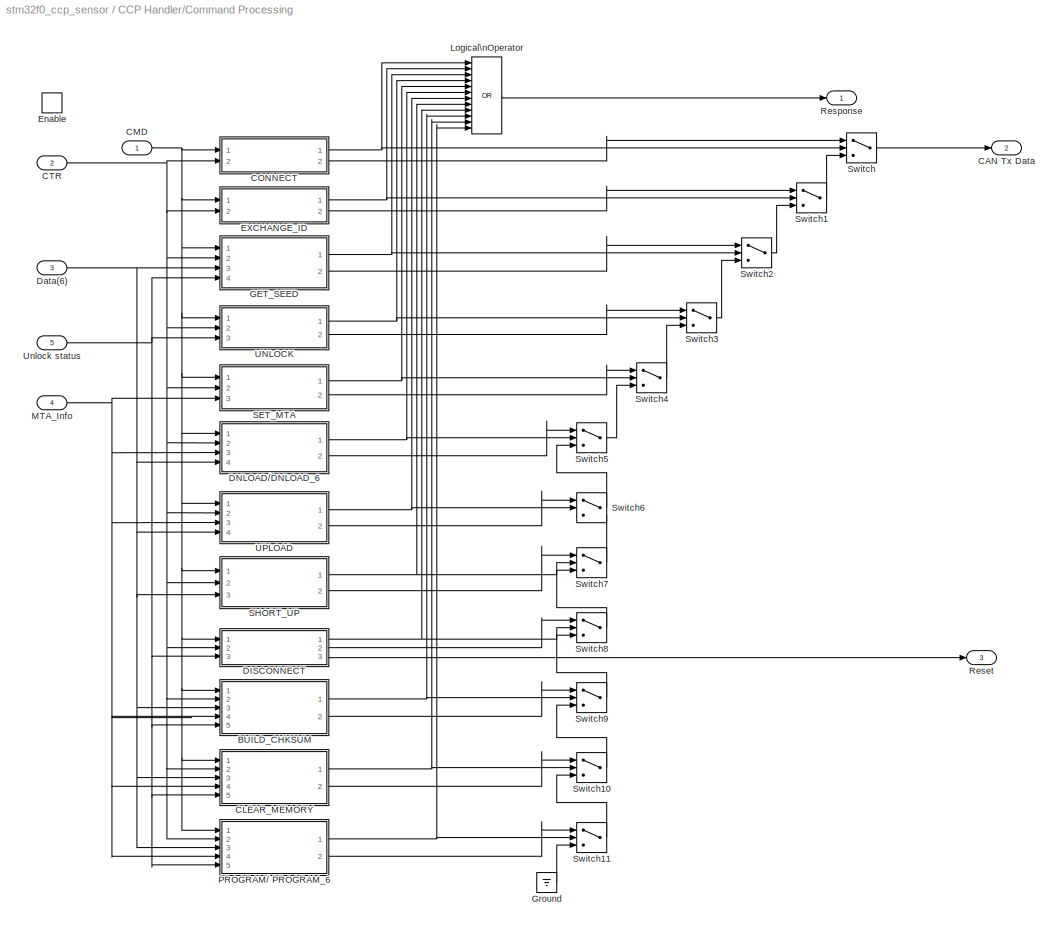
BLOCK [SubSystem] CCP Handler/Command Processing
  FunctionWithSeparateData = off
  MaskHideContents = off
  MinAlgLoopOccurrences = off
  Opaque = off
  Ports = [5, 3, 1]
  PropExecContextOutsideSubsystem = off
  RTWSystemCode = Auto
  RequestExecContextInheritance = off
  TreatAsAtomicUnit = on
BLOCK [SubSystem] CCP Handler/Command Processing/BUILD_CHKSUM
  FunctionWithSeparateData = off
  MaskHideContents = off
  MinAlgLoopOccurrences = off
  Opaque = off
  Ports = [5, 2]
  PropExecContextOutsideSubsystem = off
  RTWSystemCode = Auto
  RequestExecContextInheritance = off
BLOCK [Reference] CCP Handler/Command Processing/BUILD_CHKSUM/BUILD_CHKSUM  REF=simulink/Logic and Bit\nOperations/Compare\nTo Constant
  FunctionWithSeparateData = off
  LogicOutDataTypeMode = uint8
  Ports = [1, 1]
  RTWMemSecDataConstants = Inherit from model
  RTWMemSecDataInternal = Inherit from model
  RTWMemSecDataParameters = Inherit from model
  RTWMemSecFuncExecute = Inherit from model
  RTWMemSecFuncInitTerm = Inherit from model
  ShowPortLabels = FromPortIcon
  SourceBlock = simulink/Logic and Bit\nOperations/Compare\nTo Constant
  SourceType = Compare To Constant
  SystemSampleTime = -1
  ZeroCross = off
  const = 14
  relop = ==
BLOCK [SubSystem] CCP Handler/Command Processing/BUILD_CHKSUM/BUILD_CHKSUM Handler
  FunctionWithSeparateData = off
  MaskHideContents = off
  MinAlgLoopOccurrences = off
  Opaque = off
  Ports = [4, 1, 1]
  PropExecContextOutsideSubsystem = off
  RTWSystemCode = Auto
  RequestExecContextInheritance = off
  TreatAsAtomicUnit = on
BLOCK [Constant] CCP Handler/Command Processing/BUILD_CHKSUM/BUILD_CHKSUM Handler/Access Denied
  OutDataType = fixdt(1, 16)
  OutDataTypeMode = uint8
  OutDataTypeStr = uint8
  OutScaling = 2^0
  Value = hex2dec('33')
BLOCK [Sum] CCP Handler/Command Processing/BUILD_CHKSUM/BUILD_CHKSUM Handler/Add
  InputSameDT = off
  OutDataType = fixdt(1, 16)
  OutDataTypeMode = Inherit via internal rule
  OutDataTypeStr = Inherit: Inherit via internal rule
  OutScaling = 2^-10
  Ports = [2, 1]
  SaturateOnIntegerOverflow = off
BLOCK [Reference] CCP Handler/Command Processing/BUILD_CHKSUM/BUILD_CHKSUM Handler/Bitwise\nOperator  REF=simulink/Logic and Bit\nOperations/Bitwise\nOperator
  BitMask = 3
  BitMaskRealWorld = Stored Integer
  NumInputPorts = 1
  Ports = [1, 1]
  SourceBlock = simulink/Logic and Bit\nOperations/Bitwise\nOperator
  SourceType = Bitwise Operator
  UseBitMask = on
  logicop = AND
BLOCK [SubSystem] CCP Handler/Command Processing/BUILD_CHKSUM/BUILD_CHKSUM Handler/Block Size
  FunctionWithSeparateData = off
  MaskHideContents = off
  MinAlgLoopOccurrences = off
  Opaque = off
  Ports = [4, 1]
  PropExecContextOutsideSubsystem = off
  RTWSystemCode = Auto
  RequestExecContextInheritance = off
BLOCK [Reference] CCP Handler/Command Processing/BUILD_CHKSUM/BUILD_CHKSUM Handler/Block Size/Bitwise\nOperator  REF=simulink/Logic and Bit\nOperations/Bitwise\nOperator
  BitMask = bin2dec('11011001')
  BitMaskRealWorld = Stored Integer
  NumInputPorts = 4
  Ports = [4, 1]
  SourceBlock = simulink/Logic and Bit\nOperations/Bitwise\nOperator
  SourceType = Bitwise Operator
  UseBitMask = off
  logicop = OR
BLOCK [DataTypeConversion] CCP Handler/Command Processing/BUILD_CHKSUM/BUILD_CHKSUM Handler/Block Size/Data Type Conversion1
  OutDataType = fixdt(1, 16)
  OutDataTypeMode = uint32
  OutDataTypeStr = uint32
  OutScaling = 2^0
  RndMeth = Floor
  SaturateOnIntegerOverflow = off
BLOCK [DataTypeConversion] CCP Handler/Command Processing/BUILD_CHKSUM/BUILD_CHKSUM Handler/Block Size/Data Type Conversion2
  OutDataType = fixdt(1, 16)
  OutDataTypeMode = uint32
  OutDataTypeStr = uint32
  OutScaling = 2^0
  RndMeth = Floor
  SaturateOnIntegerOverflow = off
BLOCK [DataTypeConversion] CCP Handler/Command Processing/BUILD_CHKSUM/BUILD_CHKSUM Handler/Block Size/Data Type Conversion3
  OutDataType = fixdt(1, 16)
  OutDataTypeMode = uint32
  OutDataTypeStr = uint32
  OutScaling = 2^0
  RndMeth = Floor
  SaturateOnIntegerOverflow = off
BLOCK [DataTypeConversion] CCP Handler/Command Processing/BUILD_CHKSUM/BUILD_CHKSUM Handler/Block Size/Data Type Conversion4
  OutDataType = fixdt(1, 16)
  OutDataTypeMode = uint32
  OutDataTypeStr = uint32
  OutScaling = 2^0
  RndMeth = Floor
  SaturateOnIntegerOverflow = off
BLOCK [Inport] CCP Handler/Command Processing/BUILD_CHKSUM/BUILD_CHKSUM Handler/Block Size/In1
  IconDisplay = Port number
BLOCK [Inport] CCP Handler/Command Processing/BUILD_CHKSUM/BUILD_CHKSUM Handler/Block Size/In2
  IconDisplay = Port number
  Port = 2
BLOCK [Inport] CCP Handler/Command Processing/BUILD_CHKSUM/BUILD_CHKSUM Handler/Block Size/In3
  IconDisplay = Port number
  Port = 3
BLOCK [Inport] CCP Handler/Command Processing/BUILD_CHKSUM/BUILD_CHKSUM Handler/Block Size/In4
  IconDisplay = Port number
  Port = 4
BLOCK [Reference] CCP Handler/Command Processing/BUILD_CHKSUM/BUILD_CHKSUM Handler/Block Size/Shift\nArithmetic  REF=simulink/Logic and Bit\nOperations/Shift\nArithmetic
  FunctionWithSeparateData = off
  Ports = [1, 1]
  RTWMemSecDataConstants = Inherit from model
  RTWMemSecDataInternal = Inherit from model
  RTWMemSecDataParameters = Inherit from model
  RTWMemSecFuncExecute = Inherit from model
  RTWMemSecFuncInitTerm = Inherit from model
  ShowPortLabels = FromPortIcon
  SourceBlock = simulink/Logic and Bit\nOperations/Shift\nArithmetic
  SourceType = Shift Arithmetic
  SystemSampleTime = -1
  nBinPtShiftRight = 0
  nBitShiftRight = -16
BLOCK [Reference] CCP Handler/Command Processing/BUILD_CHKSUM/BUILD_CHKSUM Handler/Block Size/Shift\nArithmetic1  REF=simulink/Logic and Bit\nOperations/Shift\nArithmetic
  FunctionWithSeparateData = off
  Ports = [1, 1]
  RTWMemSecDataConstants = Inherit from model
  RTWMemSecDataInternal = Inherit from model
  RTWMemSecDataParameters = Inherit from model
  RTWMemSecFuncExecute = Inherit from model
  RTWMemSecFuncInitTerm = Inherit from model
  ShowPortLabels = FromPortIcon
  SourceBlock = simulink/Logic and Bit\nOperations/Shift\nArithmetic
  SourceType = Shift Arithmetic
  SystemSampleTime = -1
  nBinPtShiftRight = 0
  nBitShiftRight = -8
BLOCK [Reference] CCP Handler/Command Processing/BUILD_CHKSUM/BUILD_CHKSUM Handler/Block Size/Shift\nArithmetic3  REF=simulink/Logic and Bit\nOperations/Shift\nArithmetic
  FunctionWithSeparateData = off
  Ports = [1, 1]
  RTWMemSecDataConstants = Inherit from model
  RTWMemSecDataInternal = Inherit from model
  RTWMemSecDataParameters = Inherit from model
  RTWMemSecFuncExecute = Inherit from model
  RTWMemSecFuncInitTerm = Inherit from model
  ShowPortLabels = FromPortIcon
  SourceBlock = simulink/Logic and Bit\nOperations/Shift\nArithmetic
  SourceType = Shift Arithmetic
  SystemSampleTime = -1
  nBinPtShiftRight = 0
  nBitShiftRight = -24
BLOCK [Outport] CCP Handler/Command Processing/BUILD_CHKSUM/BUILD_CHKSUM Handler/Block Size/Size
  IconDisplay = Port number
BLOCK [Inport] CCP Handler/Command Processing/BUILD_CHKSUM/BUILD_CHKSUM Handler/CTR
  IconDisplay = Port number
  OutDataType = fixdt(1, 16)
  OutScaling = 2^0
BLOCK [Reference] CCP Handler/Command Processing/BUILD_CHKSUM/BUILD_CHKSUM Handler/Compare\nTo Zero  REF=simulink/Logic and Bit\nOperations/Compare\nTo Zero
  FunctionWithSeparateData = off
  LogicOutDataTypeMode = uint8
  Ports = [1, 1]
  RTWMemSecDataConstants = Inherit from model
  RTWMemSecDataInternal = Inherit from model
  RTWMemSecDataParameters = Inherit from model
  RTWMemSecFuncExecute = Inherit from model
  RTWMemSecFuncInitTerm = Inherit from model
  ShowPortLabels = FromPortIcon
  SourceBlock = simulink/Logic and Bit\nOperations/Compare\nTo Zero
  SourceType = Compare To Zero
  SystemSampleTime = -1
  ZeroCross = off
  relop = ==
BLOCK [Reference] CCP Handler/Command Processing/BUILD_CHKSUM/BUILD_CHKSUM Handler/Compare\nTo Zero1  REF=simulink/Logic and Bit\nOperations/Compare\nTo Zero
  FunctionWithSeparateData = off
  LogicOutDataTypeMode = uint8
  Ports = [1, 1]
  RTWMemSecDataConstants = Inherit from model
  RTWMemSecDataInternal = Inherit from model
  RTWMemSecDataParameters = Inherit from model
  RTWMemSecFuncExecute = Inherit from model
  RTWMemSecFuncInitTerm = Inherit from model
  ShowPortLabels = FromPortIcon
  SourceBlock = simulink/Logic and Bit\nOperations/Compare\nTo Zero
  SourceType = Compare To Zero
  SystemSampleTime = -1
  ZeroCross = off
  relop = ~=
BLOCK [Constant] CCP Handler/Command Processing/BUILD_CHKSUM/BUILD_CHKSUM Handler/Constant
  OutDataType = fixdt(1, 16)
  OutDataTypeMode = uint8
  OutDataTypeStr = uint8
  OutScaling = 2^0
  Value = 255
BLOCK [Constant] CCP Handler/Command Processing/BUILD_CHKSUM/BUILD_CHKSUM Handler/Constant1
  OutDataType = fixdt(1, 16)
  OutDataTypeMode = uint8
  OutDataTypeStr = uint8
  OutScaling = 2^0
  Value = 0
BLOCK [Constant] CCP Handler/Command Processing/BUILD_CHKSUM/BUILD_CHKSUM Handler/Constant2
  OutDataType = fixdt(1, 16)
  OutDataTypeMode = uint8
  OutDataTypeStr = uint8
  OutScaling = 2^0
  Value = 4
BLOCK [Inport] CCP Handler/Command Processing/BUILD_CHKSUM/BUILD_CHKSUM Handler/Data(6)
  IconDisplay = Port number
  Port = 2
BLOCK [Demux] CCP Handler/Command Processing/BUILD_CHKSUM/BUILD_CHKSUM Handler/Demux
  DisplayOption = bar
  Outputs = 6
  Ports = [1, 6]
BLOCK [Demux] CCP Handler/Command Processing/BUILD_CHKSUM/BUILD_CHKSUM Handler/Demux1
  DisplayOption = bar
  Outputs = 3
  Ports = [1, 3]
BLOCK [Demux] CCP Handler/Command Processing/BUILD_CHKSUM/BUILD_CHKSUM Handler/Demux2
  DisplayOption = bar
  Ports = [1, 4]
BLOCK [EnablePort] CCP Handler/Command Processing/BUILD_CHKSUM/BUILD_CHKSUM Handler/Enable
  Ports = []
BLOCK [Reference] CCP Handler/Command Processing/BUILD_CHKSUM/BUILD_CHKSUM Handler/Interval Test1  REF=simulink/Logic and Bit\nOperations/Interval Test
  FunctionWithSeparateData = off
  IntervalClosedLeft = on
  IntervalClosedRight = on
  LogicOutDataTypeMode = boolean
  Ports = [1, 1]
  RTWMemSecDataConstants = Inherit from model
  RTWMemSecDataInternal = Inherit from model
  RTWMemSecDataParameters = Inherit from model
  RTWMemSecFuncExecute = Inherit from model
  RTWMemSecFuncInitTerm = Inherit from model
  ShowPortLabels = FromPortIcon
  SourceBlock = simulink/Logic and Bit\nOperations/Interval Test
  SourceType = Interval Test
  SystemSampleTime = -1
  lowlimit = 0
  uplimit = 52*1024
BLOCK [Logic] CCP Handler/Command Processing/BUILD_CHKSUM/BUILD_CHKSUM Handler/Logical\nOperator
  AllPortsSameDT = off
  Inputs = 5
  LogicDataType = fixdt(0, 8)
  OutDataTypeMode = boolean
  OutDataTypeStr = boolean
  Ports = [5, 1]
BLOCK [Reference] CCP Handler/Command Processing/BUILD_CHKSUM/BUILD_CHKSUM Handler/MEM_FLASH  REF=simulink/Logic and Bit\nOperations/Compare\nTo Constant
  FunctionWithSeparateData = off
  LogicOutDataTypeMode = uint8
  Ports = [1, 1]
  RTWMemSecDataConstants = Inherit from model
  RTWMemSecDataInternal = Inherit from model
  RTWMemSecDataParameters = Inherit from model
  RTWMemSecFuncExecute = Inherit from model
  RTWMemSecFuncInitTerm = Inherit from model
  ShowPortLabels = FromPortIcon
  SourceBlock = simulink/Logic and Bit\nOperations/Compare\nTo Constant
  SourceType = Compare To Constant
  SystemSampleTime = -1
  ZeroCross = off
  const = 3
  relop = ==
BLOCK [Inport] CCP Handler/Command Processing/BUILD_CHKSUM/BUILD_CHKSUM Handler/MTA
  IconDisplay = Port number
  Port = 3
BLOCK [Mux] CCP Handler/Command Processing/BUILD_CHKSUM/BUILD_CHKSUM Handler/Mux
  DisplayOption = bar
  Inputs = 8
  Ports = [8, 1]
BLOCK [Outport] CCP Handler/Command Processing/BUILD_CHKSUM/BUILD_CHKSUM Handler/Out1
  IconDisplay = Port number
  InitialOutput = [0 0 0 0 0 0 0 0]
  OutDataType = fixdt(1, 16)
  OutScaling = 2^0
BLOCK [SubSystem] CCP Handler/Command Processing/BUILD_CHKSUM/BUILD_CHKSUM Handler/Subsystem
  FunctionWithSeparateData = off
  MaskHideContents = off
  MinAlgLoopOccurrences = off
  Opaque = off
  Ports = [2, 1, 1]
  PropExecContextOutsideSubsystem = off
  RTWSystemCode = Auto
  RequestExecContextInheritance = off
BLOCK [EnablePort] CCP Handler/Command Processing/BUILD_CHKSUM/BUILD_CHKSUM Handler/Subsystem/Enable
  Ports = []
BLOCK [Inport] CCP Handler/Command Processing/BUILD_CHKSUM/BUILD_CHKSUM Handler/Subsystem/In2
  IconDisplay = Port number
BLOCK [Inport] CCP Handler/Command Processing/BUILD_CHKSUM/BUILD_CHKSUM Handler/Subsystem/In3
  IconDisplay = Port number
  Port = 2
BLOCK [Outport] CCP Handler/Command Processing/BUILD_CHKSUM/BUILD_CHKSUM Handler/Subsystem/Out2
  IconDisplay = Port number
BLOCK [SubSystem] CCP Handler/Command Processing/BUILD_CHKSUM/BUILD_CHKSUM Handler/Subsystem/While Iterator\nSubsystem
  FunctionWithSeparateData = off
  MaskHideContents = off
  MinAlgLoopOccurrences = off
  Opaque = off
  Ports = [2, 1]
  PropExecContextOutsideSubsystem = off
  RTWSystemCode = Auto
  RequestExecContextInheritance = off
  TreatAsAtomicUnit = on
BLOCK [Sum] CCP Handler/Command Processing/BUILD_CHKSUM/BUILD_CHKSUM Handler/Subsystem/While Iterator\nSubsystem/Add
  InputSameDT = off
  OutDataType = fixdt(1, 16)
  OutDataTypeMode = Inherit via internal rule
  OutDataTypeStr = Inherit: Inherit via internal rule
  OutScaling = 2^-10
  Ports = [2, 1]
  SaturateOnIntegerOverflow = off
BLOCK [Sum] CCP Handler/Command Processing/BUILD_CHKSUM/BUILD_CHKSUM Handler/Subsystem/While Iterator\nSubsystem/Add1
  InputSameDT = off
  OutDataType = fixdt(1, 16)
  OutDataTypeMode = Inherit via internal rule
  OutDataTypeStr = Inherit: Inherit via internal rule
  OutScaling = 2^-10
  Ports = [2, 1]
  SaturateOnIntegerOverflow = off
BLOCK [Inport] CCP Handler/Command Processing/BUILD_CHKSUM/BUILD_CHKSUM Handler/Subsystem/While Iterator\nSubsystem/Address
  IconDisplay = Port number
  OutDataType = fixdt(1, 16)
  OutScaling = 2^0
BLOCK [Reference] CCP Handler/Command Processing/BUILD_CHKSUM/BUILD_CHKSUM Handler/Subsystem/While Iterator\nSubsystem/Bitwise\nOperator  REF=simulink/Logic and Bit\nOperations/Bitwise\nOperator
  BitMask = hex2dec('01FFFFFF')
  BitMaskRealWorld = Stored Integer
  NumInputPorts = 1
  Ports = [1, 1]
  SourceBlock = simulink/Logic and Bit\nOperations/Bitwise\nOperator
  SourceType = Bitwise Operator
  UseBitMask = on
  logicop = AND
BLOCK [Reference] CCP Handler/Command Processing/BUILD_CHKSUM/BUILD_CHKSUM Handler/Subsystem/While Iterator\nSubsystem/Bitwise\nOperator1  REF=simulink/Logic and Bit\nOperations/Bitwise\nOperator
  BitMask = hex2dec('0001FFFF')
  BitMaskRealWorld = Stored Integer
  NumInputPorts = 1
  Ports = [1, 1]
  SourceBlock = simulink/Logic and Bit\nOperations/Bitwise\nOperator
  SourceType = Bitwise Operator
  UseBitMask = on
  logicop = AND
BLOCK [Outport] CCP Handler/Command Processing/BUILD_CHKSUM/BUILD_CHKSUM Handler/Subsystem/While Iterator\nSubsystem/CRC
  IconDisplay = Port number
  OutDataType = fixdt(1, 16)
  OutScaling = 2^0
BLOCK [Reference] CCP Handler/Command Processing/BUILD_CHKSUM/BUILD_CHKSUM Handler/Subsystem/While Iterator\nSubsystem/Compare\nTo Zero  REF=simulink/Logic and Bit\nOperations/Compare\nTo Zero
  FunctionWithSeparateData = off
  LogicOutDataTypeMode = uint8
  Ports = [1, 1]
  RTWMemSecDataConstants = Inherit from model
  RTWMemSecDataInternal = Inherit from model
  RTWMemSecDataParameters = Inherit from model
  RTWMemSecFuncExecute = Inherit from model
  RTWMemSecFuncInitTerm = Inherit from model
  ShowPortLabels = FromPortIcon
  SourceBlock = simulink/Logic and Bit\nOperations/Compare\nTo Zero
  SourceType = Compare To Zero
  SystemSampleTime = -1
  ZeroCross = off
  relop = ==
BLOCK [Constant] CCP Handler/Command Processing/BUILD_CHKSUM/BUILD_CHKSUM Handler/Subsystem/While Iterator\nSubsystem/Initial
  OutDataType = fixdt(1, 16)
  OutDataTypeMode = uint32
  OutDataTypeStr = uint32
  OutScaling = 2^0
  Value = 0
BLOCK [Constant] CCP Handler/Command Processing/BUILD_CHKSUM/BUILD_CHKSUM Handler/Subsystem/While Iterator\nSubsystem/Initial1
  OutDataType = fixdt(1, 16)
  OutDataTypeMode = uint32
  OutDataTypeStr = uint32
  OutScaling = 2^0
  Value = hex2dec('FFFFFFFF')
BLOCK [Memory] CCP Handler/Command Processing/BUILD_CHKSUM/BUILD_CHKSUM Handler/Subsystem/While Iterator\nSubsystem/Memory
  InheritSampleTime = on
  LinearizeMemory = on
BLOCK [Memory] CCP Handler/Command Processing/BUILD_CHKSUM/BUILD_CHKSUM Handler/Subsystem/While Iterator\nSubsystem/Memory1
  InheritSampleTime = on
  LinearizeMemory = on
BLOCK [RelationalOperator] CCP Handler/Command Processing/BUILD_CHKSUM/BUILD_CHKSUM Handler/Subsystem/While Iterator\nSubsystem/Relational\nOperator
  InputSameDT = off
  LogicDataType = fixdt(0, 8)
  LogicOutDataTypeMode = boolean
  Operator = >
  OutDataTypeStr = boolean
BLOCK [Inport] CCP Handler/Command Processing/BUILD_CHKSUM/BUILD_CHKSUM Handler/Subsystem/While Iterator\nSubsystem/Size
  IconDisplay = Port number
  OutDataType = fixdt(1, 16)
  OutScaling = 2^0
  Port = 2
BLOCK [Constant] CCP Handler/Command Processing/BUILD_CHKSUM/BUILD_CHKSUM Handler/Subsystem/While Iterator\nSubsystem/Step
  OutDataType = fixdt(1, 16)
  OutDataTypeMode = uint32
  OutDataTypeStr = uint32
  OutScaling = 2^0
  Value = 4
BLOCK [SubSystem] CCP Handler/Command Processing/BUILD_CHKSUM/BUILD_CHKSUM Handler/Subsystem/While Iterator\nSubsystem/Subsystem
  FunctionWithSeparateData = off
  MaskHideContents = off
  MinAlgLoopOccurrences = off
  Opaque = off
  Ports = [2, 1, 1]
  PropExecContextOutsideSubsystem = off
  RTWSystemCode = Auto
  RequestExecContextInheritance = off
BLOCK [Reference] CCP Handler/Command Processing/BUILD_CHKSUM/BUILD_CHKSUM Handler/Subsystem/While Iterator\nSubsystem/Subsystem/CRC32  REF=waijung_crc_lib/CRC32
  Ports = [2, 1]
  SourceBlock = waijung_crc_lib/CRC32
  SourceType = waijung_crc
  blockid = CCPHandlerCommandProcessingBUILD_CHKSUMBUILD_CHKSUMHandlerSubsystemWhileIteratorSubsystemSubsystemCRC32
  cinputportlabel = 0
  compat = 0
  conf = <empty>
  enablecustomportlabel = off
  inputportlabel = {'Initial','Value'}
  inputporttype = [7 7]
  inputportwidth = [1 -1]
  optionstring = [\"Param1\",\"Param1\"]
  outputportlabel = {'Output'}
  outputporttype = [7]
  outputportwidth = []
  portpinstr = 0
  sampletime = -1
BLOCK [EnablePort] CCP Handler/Command Processing/BUILD_CHKSUM/BUILD_CHKSUM Handler/Subsystem/While Iterator\nSubsystem/Subsystem/Enable
  Ports = []
BLOCK [Reference] CCP Handler/Command Processing/BUILD_CHKSUM/BUILD_CHKSUM Handler/Subsystem/While Iterator\nSubsystem/Subsystem/FLASH Read  REF=stm32f0_flash_lib/FLASH Read
  Ports = [1, 1]
  SourceBlock = stm32f0_flash_lib/FLASH Read
  SourceType = stm32f0_flash
  blockid = CCPHandlerCommandProcessingBUILD_CHKSUMBUILD_CHKSUMHandlerSubsystemWhileIteratorSubsystemSubsystemFLASHRead
  cinputportlabel = 0
  compat = 0
  conf = Read
  datatype = uint32
  enablecustomportlabel = off
  enablestatus = off
  filename = 'stm32f0_ccp_sensor.flash'
  inputportlabel = {'Offset'}
  inputporttype = [7]
  inputportwidth = []
  optionstring = [\"8011000\",\"0\"]
  outputportlabel = {'Data'}
  outputporttype = [7]
  outputportwidth = []
  pagesize = 2k
  portpinstr = 0
  sampletime = inf
  startaddress = 0x8011000
BLOCK [Inport] CCP Handler/Command Processing/BUILD_CHKSUM/BUILD_CHKSUM Handler/Subsystem/While Iterator\nSubsystem/Subsystem/In1
  IconDisplay = Port number
BLOCK [Inport] CCP Handler/Command Processing/BUILD_CHKSUM/BUILD_CHKSUM Handler/Subsystem/While Iterator\nSubsystem/Subsystem/In2
  IconDisplay = Port number
  Port = 2
BLOCK [Outport] CCP Handler/Command Processing/BUILD_CHKSUM/BUILD_CHKSUM Handler/Subsystem/While Iterator\nSubsystem/Subsystem/Out1
  IconDisplay = Port number
BLOCK [Switch] CCP Handler/Command Processing/BUILD_CHKSUM/BUILD_CHKSUM Handler/Subsystem/While Iterator\nSubsystem/Switch
  Criteria = u2 ~= 0
  InputSameDT = off
  OutDataType = fixdt(1, 16)
  OutScaling = 2^0
  SaturateOnIntegerOverflow = off
BLOCK [Switch] CCP Handler/Command Processing/BUILD_CHKSUM/BUILD_CHKSUM Handler/Subsystem/While Iterator\nSubsystem/Switch1
  Criteria = u2 ~= 0
  InputSameDT = off
  OutDataType = fixdt(1, 16)
  OutScaling = 2^0
  SaturateOnIntegerOverflow = off
BLOCK [WhileIterator] CCP Handler/Command Processing/BUILD_CHKSUM/BUILD_CHKSUM Handler/Subsystem/While Iterator\nSubsystem/While Iterator
  MaxIters = -1
  Ports = [1]
  WhileBlockType = do-while
BLOCK [SubSystem] CCP Handler/Command Processing/BUILD_CHKSUM/BUILD_CHKSUM Handler/Subsystem1
  FunctionWithSeparateData = off
  MaskHideContents = off
  MinAlgLoopOccurrences = off
  Opaque = off
  Ports = [1, 4]
  PropExecContextOutsideSubsystem = off
  RTWSystemCode = Auto
  RequestExecContextInheritance = off
BLOCK [Reference] CCP Handler/Command Processing/BUILD_CHKSUM/BUILD_CHKSUM Handler/Subsystem1/Bitwise\nOperator1  REF=simulink/Logic and Bit\nOperations/Bitwise\nOperator
  BitMask = 255
  BitMaskRealWorld = Stored Integer
  NumInputPorts = 1
  Ports = [1, 1]
  SourceBlock = simulink/Logic and Bit\nOperations/Bitwise\nOperator
  SourceType = Bitwise Operator
  UseBitMask = on
  logicop = AND
BLOCK [Reference] CCP Handler/Command Processing/BUILD_CHKSUM/BUILD_CHKSUM Handler/Subsystem1/Bitwise\nOperator2  REF=simulink/Logic and Bit\nOperations/Bitwise\nOperator
  BitMask = 255
  BitMaskRealWorld = Stored Integer
  NumInputPorts = 1
  Ports = [1, 1]
  SourceBlock = simulink/Logic and Bit\nOperations/Bitwise\nOperator
  SourceType = Bitwise Operator
  UseBitMask = on
  logicop = AND
BLOCK [Reference] CCP Handler/Command Processing/BUILD_CHKSUM/BUILD_CHKSUM Handler/Subsystem1/Bitwise\nOperator3  REF=simulink/Logic and Bit\nOperations/Bitwise\nOperator
  BitMask = 255
  BitMaskRealWorld = Stored Integer
  NumInputPorts = 1
  Ports = [1, 1]
  SourceBlock = simulink/Logic and Bit\nOperations/Bitwise\nOperator
  SourceType = Bitwise Operator
  UseBitMask = on
  logicop = AND
BLOCK [Reference] CCP Handler/Command Processing/BUILD_CHKSUM/BUILD_CHKSUM Handler/Subsystem1/Bitwise\nOperator4  REF=simulink/Logic and Bit\nOperations/Bitwise\nOperator
  BitMask = 255
  BitMaskRealWorld = Stored Integer
  NumInputPorts = 1
  Ports = [1, 1]
  SourceBlock = simulink/Logic and Bit\nOperations/Bitwise\nOperator
  SourceType = Bitwise Operator
  UseBitMask = on
  logicop = AND
BLOCK [DataTypeConversion] CCP Handler/Command Processing/BUILD_CHKSUM/BUILD_CHKSUM Handler/Subsystem1/Data Type Conversion
  OutDataType = fixdt(1, 16)
  OutDataTypeMode = uint8
  OutDataTypeStr = uint8
  OutScaling = 2^0
  RndMeth = Floor
  SaturateOnIntegerOverflow = off
BLOCK [DataTypeConversion] CCP Handler/Command Processing/BUILD_CHKSUM/BUILD_CHKSUM Handler/Subsystem1/Data Type Conversion1
  OutDataType = fixdt(1, 16)
  OutDataTypeMode = uint8
  OutDataTypeStr = uint8
  OutScaling = 2^0
  RndMeth = Floor
  SaturateOnIntegerOverflow = off
BLOCK [DataTypeConversion] CCP Handler/Command Processing/BUILD_CHKSUM/BUILD_CHKSUM Handler/Subsystem1/Data Type Conversion2
  OutDataType = fixdt(1, 16)
  OutDataTypeMode = uint8
  OutDataTypeStr = uint8
  OutScaling = 2^0
  RndMeth = Floor
  SaturateOnIntegerOverflow = off
BLOCK [DataTypeConversion] CCP Handler/Command Processing/BUILD_CHKSUM/BUILD_CHKSUM Handler/Subsystem1/Data Type Conversion3
  OutDataType = fixdt(1, 16)
  OutDataTypeMode = uint8
  OutDataTypeStr = uint8
  OutScaling = 2^0
  RndMeth = Floor
  SaturateOnIntegerOverflow = off
BLOCK [Inport] CCP Handler/Command Processing/BUILD_CHKSUM/BUILD_CHKSUM Handler/Subsystem1/In1
  IconDisplay = Port number
BLOCK [Outport] CCP Handler/Command Processing/BUILD_CHKSUM/BUILD_CHKSUM Handler/Subsystem1/Out1
  IconDisplay = Port number
BLOCK [Outport] CCP Handler/Command Processing/BUILD_CHKSUM/BUILD_CHKSUM Handler/Subsystem1/Out2
  IconDisplay = Port number
  Port = 2
BLOCK [Outport] CCP Handler/Command Processing/BUILD_CHKSUM/BUILD_CHKSUM Handler/Subsystem1/Out3
  IconDisplay = Port number
  Port = 3
BLOCK [Outport] CCP Handler/Command Processing/BUILD_CHKSUM/BUILD_CHKSUM Handler/Subsystem1/Out4
  IconDisplay = Port number
  Port = 4
BLOCK [Reference] CCP Handler/Command Processing/BUILD_CHKSUM/BUILD_CHKSUM Handler/Subsystem1/Shift\nArithmetic  REF=simulink/Logic and Bit\nOperations/Shift\nArithmetic
  FunctionWithSeparateData = off
  Ports = [1, 1]
  RTWMemSecDataConstants = Inherit from model
  RTWMemSecDataInternal = Inherit from model
  RTWMemSecDataParameters = Inherit from model
  RTWMemSecFuncExecute = Inherit from model
  RTWMemSecFuncInitTerm = Inherit from model
  ShowPortLabels = FromPortIcon
  SourceBlock = simulink/Logic and Bit\nOperations/Shift\nArithmetic
  SourceType = Shift Arithmetic
  SystemSampleTime = -1
  nBinPtShiftRight = 0
  nBitShiftRight = 16
BLOCK [Reference] CCP Handler/Command Processing/BUILD_CHKSUM/BUILD_CHKSUM Handler/Subsystem1/Shift\nArithmetic1  REF=simulink/Logic and Bit\nOperations/Shift\nArithmetic
  FunctionWithSeparateData = off
  Ports = [1, 1]
  RTWMemSecDataConstants = Inherit from model
  RTWMemSecDataInternal = Inherit from model
  RTWMemSecDataParameters = Inherit from model
  RTWMemSecFuncExecute = Inherit from model
  RTWMemSecFuncInitTerm = Inherit from model
  ShowPortLabels = FromPortIcon
  SourceBlock = simulink/Logic and Bit\nOperations/Shift\nArithmetic
  SourceType = Shift Arithmetic
  SystemSampleTime = -1
  nBinPtShiftRight = 0
  nBitShiftRight = 8
BLOCK [Reference] CCP Handler/Command Processing/BUILD_CHKSUM/BUILD_CHKSUM Handler/Subsystem1/Shift\nArithmetic4  REF=simulink/Logic and Bit\nOperations/Shift\nArithmetic
  FunctionWithSeparateData = off
  Ports = [1, 1]
  RTWMemSecDataConstants = Inherit from model
  RTWMemSecDataInternal = Inherit from model
  RTWMemSecDataParameters = Inherit from model
  RTWMemSecFuncExecute = Inherit from model
  RTWMemSecFuncInitTerm = Inherit from model
  ShowPortLabels = FromPortIcon
  SourceBlock = simulink/Logic and Bit\nOperations/Shift\nArithmetic
  SourceType = Shift Arithmetic
  SystemSampleTime = -1
  nBinPtShiftRight = 0
  nBitShiftRight = 24
BLOCK [Switch] CCP Handler/Command Processing/BUILD_CHKSUM/BUILD_CHKSUM Handler/Switch
  Criteria = u2 ~= 0
  InputSameDT = off
  OutDataType = fixdt(1, 16)
  OutScaling = 2^0
  SaturateOnIntegerOverflow = off
BLOCK [Terminator] CCP Handler/Command Processing/BUILD_CHKSUM/BUILD_CHKSUM Handler/Terminator
BLOCK [Terminator] CCP Handler/Command Processing/BUILD_CHKSUM/BUILD_CHKSUM Handler/Terminator1
BLOCK [Terminator] CCP Handler/Command Processing/BUILD_CHKSUM/BUILD_CHKSUM Handler/Terminator2
BLOCK [Terminator] CCP Handler/Command Processing/BUILD_CHKSUM/BUILD_CHKSUM Handler/Terminator3
BLOCK [Terminator] CCP Handler/Command Processing/BUILD_CHKSUM/BUILD_CHKSUM Handler/Terminator4
BLOCK [Terminator] CCP Handler/Command Processing/BUILD_CHKSUM/BUILD_CHKSUM Handler/Terminator5
BLOCK [Inport] CCP Handler/Command Processing/BUILD_CHKSUM/BUILD_CHKSUM Handler/Unlock status
  IconDisplay = Port number
  Port = 4
BLOCK [Inport] CCP Handler/Command Processing/BUILD_CHKSUM/CMD
  IconDisplay = Port number
BLOCK [Inport] CCP Handler/Command Processing/BUILD_CHKSUM/CTR
  IconDisplay = Port number
  Port = 2
BLOCK [Outport] CCP Handler/Command Processing/BUILD_CHKSUM/Data (8)
  IconDisplay = Port number
  Port = 2
BLOCK [Inport] CCP Handler/Command Processing/BUILD_CHKSUM/Data(6)
  IconDisplay = Port number
  Port = 3
BLOCK [Inport] CCP Handler/Command Processing/BUILD_CHKSUM/MTA
  IconDisplay = Port number
  Port = 4
BLOCK [Inport] CCP Handler/Command Processing/BUILD_CHKSUM/Unlock status
  IconDisplay = Port number
  Port = 5
BLOCK [Outport] CCP Handler/Command Processing/BUILD_CHKSUM/Valid
  IconDisplay = Port number
BLOCK [Outport] CCP Handler/Command Processing/CAN Tx Data
  IconDisplay = Port number
  InitialOutput = [0 0 0 0 0 0 0 0]
  OutDataType = fixdt(1, 16)
  OutScaling = 2^0
  Port = 2
BLOCK [SubSystem] CCP Handler/Command Processing/CLEAR_MEMORY
  FunctionWithSeparateData = off
  MaskHideContents = off
  MinAlgLoopOccurrences = off
  Opaque = off
  Ports = [5, 2]
  PropExecContextOutsideSubsystem = off
  RTWSystemCode = Auto
  RequestExecContextInheritance = off
BLOCK [Reference] CCP Handler/Command Processing/CLEAR_MEMORY/CLEAR_MEMORY  REF=simulink/Logic and Bit\nOperations/Compare\nTo Constant
  FunctionWithSeparateData = off
  LogicOutDataTypeMode = uint8
  Ports = [1, 1]
  RTWMemSecDataConstants = Inherit from model
  RTWMemSecDataInternal = Inherit from model
  RTWMemSecDataParameters = Inherit from model
  RTWMemSecFuncExecute = Inherit from model
  RTWMemSecFuncInitTerm = Inherit from model
  ShowPortLabels = FromPortIcon
  SourceBlock = simulink/Logic and Bit\nOperations/Compare\nTo Constant
  SourceType = Compare To Constant
  SystemSampleTime = -1
  ZeroCross = off
  const = 16
  relop = ==
BLOCK [SubSystem] CCP Handler/Command Processing/CLEAR_MEMORY/CLEAR_MEMORY Handler
  FunctionWithSeparateData = off
  MaskHideContents = off
  MinAlgLoopOccurrences = off
  Opaque = off
  Ports = [4, 1, 1]
  PropExecContextOutsideSubsystem = off
  RTWSystemCode = Auto
  RequestExecContextInheritance = off
  TreatAsAtomicUnit = on
BLOCK [Constant] CCP Handler/Command Processing/CLEAR_MEMORY/CLEAR_MEMORY Handler/Access Denied
  OutDataType = fixdt(1, 16)
  OutDataTypeMode = uint8
  OutDataTypeStr = uint8
  OutScaling = 2^0
  Value = hex2dec('33')
BLOCK [Sum] CCP Handler/Command Processing/CLEAR_MEMORY/CLEAR_MEMORY Handler/Add
  InputSameDT = off
  OutDataType = fixdt(1, 16)
  OutDataTypeMode = Inherit via internal rule
  OutDataTypeStr = Inherit: Inherit via internal rule
  OutScaling = 2^-10
  Ports = [2, 1]
  SaturateOnIntegerOverflow = off
BLOCK [Reference] CCP Handler/Command Processing/CLEAR_MEMORY/CLEAR_MEMORY Handler/Bitwise\nOperator  REF=simulink/Logic and Bit\nOperations/Bitwise\nOperator
  BitMask = 3
  BitMaskRealWorld = Stored Integer
  NumInputPorts = 1
  Ports = [1, 1]
  SourceBlock = simulink/Logic and Bit\nOperations/Bitwise\nOperator
  SourceType = Bitwise Operator
  UseBitMask = on
  logicop = AND
BLOCK [SubSystem] CCP Handler/Command Processing/CLEAR_MEMORY/CLEAR_MEMORY Handler/Block Size
  FunctionWithSeparateData = off
  MaskHideContents = off
  MinAlgLoopOccurrences = off
  Opaque = off
  Ports = [4, 1]
  PropExecContextOutsideSubsystem = off
  RTWSystemCode = Auto
  RequestExecContextInheritance = off
BLOCK [Reference] CCP Handler/Command Processing/CLEAR_MEMORY/CLEAR_MEMORY Handler/Block Size/Bitwise\nOperator  REF=simulink/Logic and Bit\nOperations/Bitwise\nOperator
  BitMask = bin2dec('11011001')
  BitMaskRealWorld = Stored Integer
  NumInputPorts = 4
  Ports = [4, 1]
  SourceBlock = simulink/Logic and Bit\nOperations/Bitwise\nOperator
  SourceType = Bitwise Operator
  UseBitMask = off
  logicop = OR
BLOCK [DataTypeConversion] CCP Handler/Command Processing/CLEAR_MEMORY/CLEAR_MEMORY Handler/Block Size/Data Type Conversion1
  OutDataType = fixdt(1, 16)
  OutDataTypeMode = uint32
  OutDataTypeStr = uint32
  OutScaling = 2^0
  RndMeth = Floor
  SaturateOnIntegerOverflow = off
BLOCK [DataTypeConversion] CCP Handler/Command Processing/CLEAR_MEMORY/CLEAR_MEMORY Handler/Block Size/Data Type Conversion2
  OutDataType = fixdt(1, 16)
  OutDataTypeMode = uint32
  OutDataTypeStr = uint32
  OutScaling = 2^0
  RndMeth = Floor
  SaturateOnIntegerOverflow = off
BLOCK [DataTypeConversion] CCP Handler/Command Processing/CLEAR_MEMORY/CLEAR_MEMORY Handler/Block Size/Data Type Conversion3
  OutDataType = fixdt(1, 16)
  OutDataTypeMode = uint32
  OutDataTypeStr = uint32
  OutScaling = 2^0
  RndMeth = Floor
  SaturateOnIntegerOverflow = off
BLOCK [DataTypeConversion] CCP Handler/Command Processing/CLEAR_MEMORY/CLEAR_MEMORY Handler/Block Size/Data Type Conversion4
  OutDataType = fixdt(1, 16)
  OutDataTypeMode = uint32
  OutDataTypeStr = uint32
  OutScaling = 2^0
  RndMeth = Floor
  SaturateOnIntegerOverflow = off
BLOCK [Inport] CCP Handler/Command Processing/CLEAR_MEMORY/CLEAR_MEMORY Handler/Block Size/In1
  IconDisplay = Port number
BLOCK [Inport] CCP Handler/Command Processing/CLEAR_MEMORY/CLEAR_MEMORY Handler/Block Size/In2
  IconDisplay = Port number
  Port = 2
BLOCK [Inport] CCP Handler/Command Processing/CLEAR_MEMORY/CLEAR_MEMORY Handler/Block Size/In3
  IconDisplay = Port number
  Port = 3
BLOCK [Inport] CCP Handler/Command Processing/CLEAR_MEMORY/CLEAR_MEMORY Handler/Block Size/In4
  IconDisplay = Port number
  Port = 4
BLOCK [Reference] CCP Handler/Command Processing/CLEAR_MEMORY/CLEAR_MEMORY Handler/Block Size/Shift\nArithmetic  REF=simulink/Logic and Bit\nOperations/Shift\nArithmetic
  FunctionWithSeparateData = off
  Ports = [1, 1]
  RTWMemSecDataConstants = Inherit from model
  RTWMemSecDataInternal = Inherit from model
  RTWMemSecDataParameters = Inherit from model
  RTWMemSecFuncExecute = Inherit from model
  RTWMemSecFuncInitTerm = Inherit from model
  ShowPortLabels = FromPortIcon
  SourceBlock = simulink/Logic and Bit\nOperations/Shift\nArithmetic
  SourceType = Shift Arithmetic
  SystemSampleTime = -1
  nBinPtShiftRight = 0
  nBitShiftRight = -16
BLOCK [Reference] CCP Handler/Command Processing/CLEAR_MEMORY/CLEAR_MEMORY Handler/Block Size/Shift\nArithmetic1  REF=simulink/Logic and Bit\nOperations/Shift\nArithmetic
  FunctionWithSeparateData = off
  Ports = [1, 1]
  RTWMemSecDataConstants = Inherit from model
  RTWMemSecDataInternal = Inherit from model
  RTWMemSecDataParameters = Inherit from model
  RTWMemSecFuncExecute = Inherit from model
  RTWMemSecFuncInitTerm = Inherit from model
  ShowPortLabels = FromPortIcon
  SourceBlock = simulink/Logic and Bit\nOperations/Shift\nArithmetic
  SourceType = Shift Arithmetic
  SystemSampleTime = -1
  nBinPtShiftRight = 0
  nBitShiftRight = -8
BLOCK [Reference] CCP Handler/Command Processing/CLEAR_MEMORY/CLEAR_MEMORY Handler/Block Size/Shift\nArithmetic3  REF=simulink/Logic and Bit\nOperations/Shift\nArithmetic
  FunctionWithSeparateData = off
  Ports = [1, 1]
  RTWMemSecDataConstants = Inherit from model
  RTWMemSecDataInternal = Inherit from model
  RTWMemSecDataParameters = Inherit from model
  RTWMemSecFuncExecute = Inherit from model
  RTWMemSecFuncInitTerm = Inherit from model
  ShowPortLabels = FromPortIcon
  SourceBlock = simulink/Logic and Bit\nOperations/Shift\nArithmetic
  SourceType = Shift Arithmetic
  SystemSampleTime = -1
  nBinPtShiftRight = 0
  nBitShiftRight = -24
BLOCK [Outport] CCP Handler/Command Processing/CLEAR_MEMORY/CLEAR_MEMORY Handler/Block Size/Size
  IconDisplay = Port number
BLOCK [Inport] CCP Handler/Command Processing/CLEAR_MEMORY/CLEAR_MEMORY Handler/CTR
  IconDisplay = Port number
  OutDataType = fixdt(1, 16)
  OutScaling = 2^0
BLOCK [Reference] CCP Handler/Command Processing/CLEAR_MEMORY/CLEAR_MEMORY Handler/Compare\nTo Zero  REF=simulink/Logic and Bit\nOperations/Compare\nTo Zero
  FunctionWithSeparateData = off
  LogicOutDataTypeMode = uint8
  Ports = [1, 1]
  RTWMemSecDataConstants = Inherit from model
  RTWMemSecDataInternal = Inherit from model
  RTWMemSecDataParameters = Inherit from model
  RTWMemSecFuncExecute = Inherit from model
  RTWMemSecFuncInitTerm = Inherit from model
  ShowPortLabels = FromPortIcon
  SourceBlock = simulink/Logic and Bit\nOperations/Compare\nTo Zero
  SourceType = Compare To Zero
  SystemSampleTime = -1
  ZeroCross = off
  relop = ==
BLOCK [Constant] CCP Handler/Command Processing/CLEAR_MEMORY/CLEAR_MEMORY Handler/Constant
  OutDataType = fixdt(1, 16)
  OutDataTypeMode = uint8
  OutDataTypeStr = uint8
  OutScaling = 2^0
  Value = 255
BLOCK [Constant] CCP Handler/Command Processing/CLEAR_MEMORY/CLEAR_MEMORY Handler/Constant1
  OutDataType = fixdt(1, 16)
  OutDataTypeMode = uint8
  OutDataTypeStr = uint8
  OutScaling = 2^0
  Value = 0
BLOCK [Constant] CCP Handler/Command Processing/CLEAR_MEMORY/CLEAR_MEMORY Handler/Constant2
  OutDataType = fixdt(1, 16)
  OutDataTypeMode = uint8
  OutDataTypeStr = uint8
  OutScaling = 2^0
  Value = 0
BLOCK [Inport] CCP Handler/Command Processing/CLEAR_MEMORY/CLEAR_MEMORY Handler/Data(6)
  IconDisplay = Port number
  Port = 2
BLOCK [Demux] CCP Handler/Command Processing/CLEAR_MEMORY/CLEAR_MEMORY Handler/Demux
  DisplayOption = bar
  Outputs = 6
  Ports = [1, 6]
BLOCK [Demux] CCP Handler/Command Processing/CLEAR_MEMORY/CLEAR_MEMORY Handler/Demux1
  DisplayOption = bar
  Outputs = 3
  Ports = [1, 3]
BLOCK [Demux] CCP Handler/Command Processing/CLEAR_MEMORY/CLEAR_MEMORY Handler/Demux2
  DisplayOption = bar
  Ports = [1, 4]
BLOCK [EnablePort] CCP Handler/Command Processing/CLEAR_MEMORY/CLEAR_MEMORY Handler/Enable
  Ports = []
BLOCK [SubSystem] CCP Handler/Command Processing/CLEAR_MEMORY/CLEAR_MEMORY Handler/Flash Erase
  FunctionWithSeparateData = off
  MaskHideContents = off
  MinAlgLoopOccurrences = off
  Opaque = off
  Ports = [2, 0, 1]
  PropExecContextOutsideSubsystem = off
  RTWSystemCode = Auto
  RequestExecContextInheritance = off
BLOCK [Inport] CCP Handler/Command Processing/CLEAR_MEMORY/CLEAR_MEMORY Handler/Flash Erase/Address
  IconDisplay = Port number
BLOCK [EnablePort] CCP Handler/Command Processing/CLEAR_MEMORY/CLEAR_MEMORY Handler/Flash Erase/Enable
  Ports = []
BLOCK [Inport] CCP Handler/Command Processing/CLEAR_MEMORY/CLEAR_MEMORY Handler/Flash Erase/Size
  IconDisplay = Port number
  Port = 2
BLOCK [Terminator] CCP Handler/Command Processing/CLEAR_MEMORY/CLEAR_MEMORY Handler/Flash Erase/Terminator4
BLOCK [SubSystem] CCP Handler/Command Processing/CLEAR_MEMORY/CLEAR_MEMORY Handler/Flash Erase/While Iterator\nSubsystem
  FunctionWithSeparateData = off
  MaskHideContents = off
  MinAlgLoopOccurrences = off
  Opaque = off
  Ports = [2, 1]
  PropExecContextOutsideSubsystem = off
  RTWSystemCode = Auto
  RequestExecContextInheritance = off
  TreatAsAtomicUnit = on
BLOCK [Sum] CCP Handler/Command Processing/CLEAR_MEMORY/CLEAR_MEMORY Handler/Flash Erase/While Iterator\nSubsystem/Add
  InputSameDT = off
  OutDataType = fixdt(1, 16)
  OutDataTypeMode = Inherit via internal rule
  OutDataTypeStr = Inherit: Inherit via internal rule
  OutScaling = 2^-10
  Ports = [2, 1]
  SaturateOnIntegerOverflow = off
BLOCK [Sum] CCP Handler/Command Processing/CLEAR_MEMORY/CLEAR_MEMORY Handler/Flash Erase/While Iterator\nSubsystem/Add1
  InputSameDT = off
  OutDataType = fixdt(1, 16)
  OutDataTypeMode = Inherit via internal rule
  OutDataTypeStr = Inherit: Inherit via internal rule
  OutScaling = 2^-10
  Ports = [2, 1]
  SaturateOnIntegerOverflow = off
BLOCK [Inport] CCP Handler/Command Processing/CLEAR_MEMORY/CLEAR_MEMORY Handler/Flash Erase/While Iterator\nSubsystem/Address
  IconDisplay = Port number
  OutDataType = fixdt(1, 16)
  OutScaling = 2^0
BLOCK [Reference] CCP Handler/Command Processing/CLEAR_MEMORY/CLEAR_MEMORY Handler/Flash Erase/While Iterator\nSubsystem/Bitwise\nOperator  REF=simulink/Logic and Bit\nOperations/Bitwise\nOperator
  BitMask = hex2dec('0000FFFF')
  BitMaskRealWorld = Stored Integer
  NumInputPorts = 1
  Ports = [1, 1]
  SourceBlock = simulink/Logic and Bit\nOperations/Bitwise\nOperator
  SourceType = Bitwise Operator
  UseBitMask = on
  logicop = AND
BLOCK [Constant] CCP Handler/Command Processing/CLEAR_MEMORY/CLEAR_MEMORY Handler/Flash Erase/While Iterator\nSubsystem/Initial
  OutDataType = fixdt(1, 16)
  OutDataTypeMode = uint32
  OutDataTypeStr = uint32
  OutScaling = 2^0
  Value = 0
BLOCK [Memory] CCP Handler/Command Processing/CLEAR_MEMORY/CLEAR_MEMORY Handler/Flash Erase/While Iterator\nSubsystem/Memory
  InheritSampleTime = on
  LinearizeMemory = on
BLOCK [RelationalOperator] CCP Handler/Command Processing/CLEAR_MEMORY/CLEAR_MEMORY Handler/Flash Erase/While Iterator\nSubsystem/Relational\nOperator
  InputSameDT = off
  LogicDataType = fixdt(0, 8)
  LogicOutDataTypeMode = boolean
  Operator = >
  OutDataTypeStr = boolean
BLOCK [Inport] CCP Handler/Command Processing/CLEAR_MEMORY/CLEAR_MEMORY Handler/Flash Erase/While Iterator\nSubsystem/Size
  IconDisplay = Port number
  OutDataType = fixdt(1, 16)
  OutScaling = 2^0
  Port = 2
BLOCK [Outport] CCP Handler/Command Processing/CLEAR_MEMORY/CLEAR_MEMORY Handler/Flash Erase/While Iterator\nSubsystem/Sta
  IconDisplay = Port number
  OutDataType = fixdt(1, 16)
  OutScaling = 2^0
BLOCK [Constant] CCP Handler/Command Processing/CLEAR_MEMORY/CLEAR_MEMORY Handler/Flash Erase/While Iterator\nSubsystem/Step
  OutDataType = fixdt(1, 16)
  OutDataTypeMode = uint32
  OutDataTypeStr = uint32
  OutScaling = 2^0
  Value = 2048
BLOCK [SubSystem] CCP Handler/Command Processing/CLEAR_MEMORY/CLEAR_MEMORY Handler/Flash Erase/While Iterator\nSubsystem/Subsystem
  FunctionWithSeparateData = off
  MaskHideContents = off
  MinAlgLoopOccurrences = off
  Opaque = off
  Ports = [1, 1, 1]
  PropExecContextOutsideSubsystem = off
  RTWSystemCode = Auto
  RequestExecContextInheritance = off
BLOCK [Inport] CCP Handler/Command Processing/CLEAR_MEMORY/CLEAR_MEMORY Handler/Flash Erase/While Iterator\nSubsystem/Subsystem/Address
  IconDisplay = Port number
BLOCK [EnablePort] CCP Handler/Command Processing/CLEAR_MEMORY/CLEAR_MEMORY Handler/Flash Erase/While Iterator\nSubsystem/Subsystem/Enable
  Ports = []
BLOCK [Reference] CCP Handler/Command Processing/CLEAR_MEMORY/CLEAR_MEMORY Handler/Flash Erase/While Iterator\nSubsystem/Subsystem/FLASH Erase  REF=stm32f0_flash_lib/FLASH Erase
  Ports = [1, 1]
  SourceBlock = stm32f0_flash_lib/FLASH Erase
  SourceType = stm32f0_flash
  blockid = CCPHandlerCommandProcessingCLEAR_MEMORYCLEAR_MEMORYHandlerFlashEraseWhileIteratorSubsystemSubsystemFLASHErase
  cinputportlabel = 0
  compat = 0
  conf = Erase
  datatype = int32
  enablecustomportlabel = off
  enablestatus = on
  filename = 'stm32f0_ccp_sensor.flash'
  inputportlabel = {'Page Offset'}
  inputporttype = [7]
  inputportwidth = []
  optionstring = [\"8011000\",\"0\"]
  outputportlabel = {'Status'}
  outputporttype = [3]
  outputportwidth = []
  pagesize = 2k
  portpinstr = 0
  sampletime = inf
  startaddress = 0x8011000
BLOCK [Outport] CCP Handler/Command Processing/CLEAR_MEMORY/CLEAR_MEMORY Handler/Flash Erase/While Iterator\nSubsystem/Subsystem/Sta
  IconDisplay = Port number
  OutDataType = fixdt(1, 16)
  OutScaling = 2^0
BLOCK [S-Function] CCP Handler/Command Processing/CLEAR_MEMORY/CLEAR_MEMORY Handler/Flash Erase/While Iterator\nSubsystem/Subsystem/UART Tx
  EnableBusSupport = off
  FunctionName = stm32f0_uart
  MaskDisplay = text(0.95, 0.5, 'Module: USART1_Tx\\nPacket: Ascii\\nTransfer: Non-Blocking\\nTs (sec): -1','ver','middle','hor','right'); port_label('input', 1,'%X'); port_label('input', 2,'%u');
  MaskEnableString = on,on,on,on,on,on,on,on,on,off,off,on,on,on,on,on,on,on,on,on,on,on,on,on,on,on,on,on,on,on,on,on,on,on,on,on,on,off,on,on,on,on,on,on,on,on,on,on,on,on
  MaskHelp = web(fullfile(waijungdocroot,'stm32f0_uart_tx.htm'), '-browser')
  MaskIconFrame = on
  MaskIconOpaque = on
  MaskIconRotate = none
  MaskIconUnits = normalized
  MaskInitialization = stm32f0_uart_callback('init');
  MaskPortRotate = default
  MaskSelfModifiable = on
  MaskTabNameString = ,,,,,,,,,,,,,,,,,,,,,,,,,,,,,,,,,,,,,,,,,,,,,,,,,
  MaskToolTipString = on,on,on,on,on,on,on,on,on,on,on,on,on,on,on,on,on,on,on,on,on,on,on,on,on,on,on,on,on,on,on,on,on,on,on,on,on,on,on,on,on,on,on,on,on,on,on,on,on,on
  MaskType = stm32f0_uart
  MaskValueString = Tx|1|115200|8|No|1|A9|A10|None|Not used|Not used|off|64|64|Non-Blocking|Ascii|'7E 7E'|'03 03'|0|0|0|0|0|0|0|2|'Erase 0x%X, sta=%u'|CR (0x0D - \"\\r\")|CRLF (0x0D 0x0A - \"<path>")|<empty>||Erase 0x%X, sta=%u\\r\\n|inf|off|de|fff,ff,sdfsd|0|CCPHandlerCommandProcessingCLEAR_MEMORYCLEAR_MEMORYHandlerFlashEraseWhileIteratorSubsystemSubsystemUARTTx|[ -1 -1]|[]|{ '%X' '%u'}|[]|[]|{}|0|[\"1\", \"1\", \"...<+259ch>
  MaskVarAliasString = ,,,,,,,,,,,,,,,,,,,,,,,,,,,,,,,,,,,,,,,,,,,,,,,,,
  Parameters = conf,inputporttype,inputportwidth,outputporttype,outputportwidth,asciiheader,optionstring,headerstring,terminatorstring,asciidatatypestring,sampletime,blockid
  Ports = [2]
BLOCK [Switch] CCP Handler/Command Processing/CLEAR_MEMORY/CLEAR_MEMORY Handler/Flash Erase/While Iterator\nSubsystem/Switch
  Criteria = u2 ~= 0
  InputSameDT = off
  OutDataType = fixdt(1, 16)
  OutScaling = 2^0
  SaturateOnIntegerOverflow = off
BLOCK [WhileIterator] CCP Handler/Command Processing/CLEAR_MEMORY/CLEAR_MEMORY Handler/Flash Erase/While Iterator\nSubsystem/While Iterator
  MaxIters = -1
  Ports = [1]
  WhileBlockType = do-while
BLOCK [Reference] CCP Handler/Command Processing/CLEAR_MEMORY/CLEAR_MEMORY Handler/Interval Test1  REF=simulink/Logic and Bit\nOperations/Interval Test
  FunctionWithSeparateData = off
  IntervalClosedLeft = on
  IntervalClosedRight = on
  LogicOutDataTypeMode = boolean
  Ports = [1, 1]
  RTWMemSecDataConstants = Inherit from model
  RTWMemSecDataInternal = Inherit from model
  RTWMemSecDataParameters = Inherit from model
  RTWMemSecFuncExecute = Inherit from model
  RTWMemSecFuncInitTerm = Inherit from model
  ShowPortLabels = FromPortIcon
  SourceBlock = simulink/Logic and Bit\nOperations/Interval Test
  SourceType = Interval Test
  SystemSampleTime = -1
  lowlimit = 2
  uplimit = 52*1024
BLOCK [Logic] CCP Handler/Command Processing/CLEAR_MEMORY/CLEAR_MEMORY Handler/Logical\nOperator
  AllPortsSameDT = off
  Inputs = 4
  LogicDataType = fixdt(0, 8)
  OutDataTypeMode = boolean
  OutDataTypeStr = boolean
  Ports = [4, 1]
BLOCK [Reference] CCP Handler/Command Processing/CLEAR_MEMORY/CLEAR_MEMORY Handler/MEM_FLASH  REF=simulink/Logic and Bit\nOperations/Compare\nTo Constant
  FunctionWithSeparateData = off
  LogicOutDataTypeMode = uint8
  Ports = [1, 1]
  RTWMemSecDataConstants = Inherit from model
  RTWMemSecDataInternal = Inherit from model
  RTWMemSecDataParameters = Inherit from model
  RTWMemSecFuncExecute = Inherit from model
  RTWMemSecFuncInitTerm = Inherit from model
  ShowPortLabels = FromPortIcon
  SourceBlock = simulink/Logic and Bit\nOperations/Compare\nTo Constant
  SourceType = Compare To Constant
  SystemSampleTime = -1
  ZeroCross = off
  const = 3
  relop = ==
BLOCK [Inport] CCP Handler/Command Processing/CLEAR_MEMORY/CLEAR_MEMORY Handler/MTA
  IconDisplay = Port number
  Port = 3
BLOCK [Mux] CCP Handler/Command Processing/CLEAR_MEMORY/CLEAR_MEMORY Handler/Mux
  DisplayOption = bar
  Inputs = 8
  Ports = [8, 1]
BLOCK [Outport] CCP Handler/Command Processing/CLEAR_MEMORY/CLEAR_MEMORY Handler/Out1
  IconDisplay = Port number
  InitialOutput = [0 0 0 0 0 0 0 0]
  OutDataType = fixdt(1, 16)
  OutScaling = 2^0
BLOCK [Switch] CCP Handler/Command Processing/CLEAR_MEMORY/CLEAR_MEMORY Handler/Switch
  Criteria = u2 ~= 0
  InputSameDT = off
  OutDataType = fixdt(1, 16)
  OutScaling = 2^0
  SaturateOnIntegerOverflow = off
BLOCK [Terminator] CCP Handler/Command Processing/CLEAR_MEMORY/CLEAR_MEMORY Handler/Terminator
BLOCK [Terminator] CCP Handler/Command Processing/CLEAR_MEMORY/CLEAR_MEMORY Handler/Terminator1
BLOCK [Terminator] CCP Handler/Command Processing/CLEAR_MEMORY/CLEAR_MEMORY Handler/Terminator2
BLOCK [Terminator] CCP Handler/Command Processing/CLEAR_MEMORY/CLEAR_MEMORY Handler/Terminator3
BLOCK [Terminator] CCP Handler/Command Processing/CLEAR_MEMORY/CLEAR_MEMORY Handler/Terminator4
BLOCK [Terminator] CCP Handler/Command Processing/CLEAR_MEMORY/CLEAR_MEMORY Handler/Terminator5
BLOCK [Inport] CCP Handler/Command Processing/CLEAR_MEMORY/CLEAR_MEMORY Handler/Unlock status
  IconDisplay = Port number
  Port = 4
BLOCK [Inport] CCP Handler/Command Processing/CLEAR_MEMORY/CMD
  IconDisplay = Port number
BLOCK [Inport] CCP Handler/Command Processing/CLEAR_MEMORY/CTR
  IconDisplay = Port number
  Port = 2
BLOCK [Outport] CCP Handler/Command Processing/CLEAR_MEMORY/Data (8)
  IconDisplay = Port number
  Port = 2
BLOCK [Inport] CCP Handler/Command Processing/CLEAR_MEMORY/Data(6)
  IconDisplay = Port number
  Port = 3
BLOCK [Inport] CCP Handler/Command Processing/CLEAR_MEMORY/MTA
  IconDisplay = Port number
  Port = 4
BLOCK [Inport] CCP Handler/Command Processing/CLEAR_MEMORY/Unlock status
  IconDisplay = Port number
  Port = 5
BLOCK [Outport] CCP Handler/Command Processing/CLEAR_MEMORY/Valid
  IconDisplay = Port number
BLOCK [Inport] CCP Handler/Command Processing/CMD
  IconDisplay = Port number
  OutDataType = fixdt(1, 16)
  OutScaling = 2^0
BLOCK [SubSystem] CCP Handler/Command Processing/CONNECT
  FunctionWithSeparateData = off
  MaskHideContents = off
  MinAlgLoopOccurrences = off
  Opaque = off
  Ports = [2, 2]
  PropExecContextOutsideSubsystem = off
  RTWSystemCode = Auto
  RequestExecContextInheritance = off
BLOCK [Inport] CCP Handler/Command Processing/CONNECT/CMD
  IconDisplay = Port number
BLOCK [Reference] CCP Handler/Command Processing/CONNECT/CONNECT  REF=simulink/Logic and Bit\nOperations/Compare\nTo Constant
  FunctionWithSeparateData = off
  LogicOutDataTypeMode = uint8
  Ports = [1, 1]
  RTWMemSecDataConstants = Inherit from model
  RTWMemSecDataInternal = Inherit from model
  RTWMemSecDataParameters = Inherit from model
  RTWMemSecFuncExecute = Inherit from model
  RTWMemSecFuncInitTerm = Inherit from model
  ShowPortLabels = FromPortIcon
  SourceBlock = simulink/Logic and Bit\nOperations/Compare\nTo Constant
  SourceType = Compare To Constant
  SystemSampleTime = -1
  ZeroCross = off
  const = 1
  relop = ==
BLOCK [SubSystem] CCP Handler/Command Processing/CONNECT/CONNECT Handler
  FunctionWithSeparateData = off
  MaskHideContents = off
  MinAlgLoopOccurrences = off
  Opaque = off
  Ports = [1, 1, 1]
  PropExecContextOutsideSubsystem = off
  RTWSystemCode = Auto
  RequestExecContextInheritance = off
  TreatAsAtomicUnit = on
BLOCK [Inport] CCP Handler/Command Processing/CONNECT/CONNECT Handler/CTR
  IconDisplay = Port number
  OutDataType = fixdt(1, 16)
  OutScaling = 2^0
BLOCK [Constant] CCP Handler/Command Processing/CONNECT/CONNECT Handler/Constant
  OutDataType = fixdt(1, 16)
  OutDataTypeMode = uint8
  OutDataTypeStr = uint8
  OutScaling = 2^0
  Value = 255
BLOCK [Constant] CCP Handler/Command Processing/CONNECT/CONNECT Handler/Constant1
  OutDataType = fixdt(1, 16)
  OutDataTypeMode = uint8
  OutDataTypeStr = uint8
  OutScaling = 2^0
  Value = 0
BLOCK [EnablePort] CCP Handler/Command Processing/CONNECT/CONNECT Handler/Enable
  Ports = []
BLOCK [Mux] CCP Handler/Command Processing/CONNECT/CONNECT Handler/Mux
  DisplayOption = bar
  Inputs = 8
  Ports = [8, 1]
BLOCK [Outport] CCP Handler/Command Processing/CONNECT/CONNECT Handler/Out1
  IconDisplay = Port number
  InitialOutput = [0 0 0 0 0 0 0 0]
  OutDataType = fixdt(1, 16)
  OutScaling = 2^0
BLOCK [Inport] CCP Handler/Command Processing/CONNECT/CTR
  IconDisplay = Port number
  Port = 2
BLOCK [Outport] CCP Handler/Command Processing/CONNECT/Data (8)
  IconDisplay = Port number
  Port = 2
BLOCK [Outport] CCP Handler/Command Processing/CONNECT/Valid
  IconDisplay = Port number
BLOCK [Inport] CCP Handler/Command Processing/CTR
  IconDisplay = Port number
  OutDataType = fixdt(1, 16)
  OutScaling = 2^0
  Port = 2
BLOCK [SubSystem] CCP Handler/Command Processing/DISCONNECT
  FunctionWithSeparateData = off
  MaskHideContents = off
  MinAlgLoopOccurrences = off
  Opaque = off
  Ports = [3, 3]
  PropExecContextOutsideSubsystem = off
  RTWSystemCode = Auto
  RequestExecContextInheritance = off
BLOCK [Inport] CCP Handler/Command Processing/DISCONNECT/CMD
  IconDisplay = Port number
BLOCK [Inport] CCP Handler/Command Processing/DISCONNECT/CTR
  IconDisplay = Port number
  Port = 2
BLOCK [Reference] CCP Handler/Command Processing/DISCONNECT/DISCONNECT  REF=simulink/Logic and Bit\nOperations/Compare\nTo Constant
  FunctionWithSeparateData = off
  LogicOutDataTypeMode = uint8
  Ports = [1, 1]
  RTWMemSecDataConstants = Inherit from model
  RTWMemSecDataInternal = Inherit from model
  RTWMemSecDataParameters = Inherit from model
  RTWMemSecFuncExecute = Inherit from model
  RTWMemSecFuncInitTerm = Inherit from model
  ShowPortLabels = FromPortIcon
  SourceBlock = simulink/Logic and Bit\nOperations/Compare\nTo Constant
  SourceType = Compare To Constant
  SystemSampleTime = -1
  ZeroCross = off
  const = 7
  relop = ==
BLOCK [SubSystem] CCP Handler/Command Processing/DISCONNECT/DISCONNECT Handler
  FunctionWithSeparateData = off
  MaskHideContents = off
  MinAlgLoopOccurrences = off
  Opaque = off
  Ports = [2, 2, 1]
  PropExecContextOutsideSubsystem = off
  RTWSystemCode = Auto
  RequestExecContextInheritance = off
  TreatAsAtomicUnit = on
BLOCK [Inport] CCP Handler/Command Processing/DISCONNECT/DISCONNECT Handler/CTR
  IconDisplay = Port number
  OutDataType = fixdt(1, 16)
  OutScaling = 2^0
BLOCK [Constant] CCP Handler/Command Processing/DISCONNECT/DISCONNECT Handler/Constant
  OutDataType = fixdt(1, 16)
  OutDataTypeMode = uint8
  OutDataTypeStr = uint8
  OutScaling = 2^0
  Value = 255
BLOCK [Constant] CCP Handler/Command Processing/DISCONNECT/DISCONNECT Handler/Constant1
  OutDataType = fixdt(1, 16)
  OutDataTypeMode = uint8
  OutDataTypeStr = uint8
  OutScaling = 2^0
  Value = 0
BLOCK [Demux] CCP Handler/Command Processing/DISCONNECT/DISCONNECT Handler/Demux
  DisplayOption = bar
  Outputs = 3
  Ports = [1, 3]
BLOCK [EnablePort] CCP Handler/Command Processing/DISCONNECT/DISCONNECT Handler/Enable
  Ports = []
BLOCK [Mux] CCP Handler/Command Processing/DISCONNECT/DISCONNECT Handler/Mux
  DisplayOption = bar
  Inputs = 8
  Ports = [8, 1]
BLOCK [Outport] CCP Handler/Command Processing/DISCONNECT/DISCONNECT Handler/Out1
  IconDisplay = Port number
  InitialOutput = [0 0 0 0 0 0 0 0]
  OutDataType = fixdt(1, 16)
  OutScaling = 2^0
BLOCK [Outport] CCP Handler/Command Processing/DISCONNECT/DISCONNECT Handler/Reset
  IconDisplay = Port number
  InitialOutput = 0
  OutDataType = fixdt(1, 16)
  OutScaling = 2^0
  Port = 2
BLOCK [Terminator] CCP Handler/Command Processing/DISCONNECT/DISCONNECT Handler/Terminator
BLOCK [Terminator] CCP Handler/Command Processing/DISCONNECT/DISCONNECT Handler/Terminator1
BLOCK [Inport] CCP Handler/Command Processing/DISCONNECT/DISCONNECT Handler/Unlock status
  IconDisplay = Port number
  OutDataType = fixdt(1, 16)
  OutScaling = 2^0
  Port = 2
BLOCK [Outport] CCP Handler/Command Processing/DISCONNECT/Data (8)
  IconDisplay = Port number
  Port = 2
BLOCK [Logic] CCP Handler/Command Processing/DISCONNECT/Logical\nOperator
  AllPortsSameDT = off
  LogicDataType = fixdt(0, 8)
  OutDataTypeMode = boolean
  OutDataTypeStr = boolean
  Ports = [2, 1]
BLOCK [Outport] CCP Handler/Command Processing/DISCONNECT/Reset
  IconDisplay = Port number
  Port = 3
BLOCK [Inport] CCP Handler/Command Processing/DISCONNECT/Unlock status
  IconDisplay = Port number
  Port = 3
BLOCK [Outport] CCP Handler/Command Processing/DISCONNECT/Valid
  IconDisplay = Port number
BLOCK [SubSystem] CCP Handler/Command Processing/DNLOAD//DNLOAD_6
  FunctionWithSeparateData = off
  MaskHideContents = off
  MinAlgLoopOccurrences = off
  Opaque = off
  Ports = [4, 2]
  PropExecContextOutsideSubsystem = off
  RTWSystemCode = Auto
  RequestExecContextInheritance = off
BLOCK [Inport] CCP Handler/Command Processing/DNLOAD//DNLOAD_6/CMD
  IconDisplay = Port number
BLOCK [Inport] CCP Handler/Command Processing/DNLOAD//DNLOAD_6/CTR
  IconDisplay = Port number
  Port = 2
BLOCK [Reference] CCP Handler/Command Processing/DNLOAD//DNLOAD_6/DOWNLOAD  REF=simulink/Logic and Bit\nOperations/Compare\nTo Constant
  FunctionWithSeparateData = off
  LogicOutDataTypeMode = uint8
  Ports = [1, 1]
  RTWMemSecDataConstants = Inherit from model
  RTWMemSecDataInternal = Inherit from model
  RTWMemSecDataParameters = Inherit from model
  RTWMemSecFuncExecute = Inherit from model
  RTWMemSecFuncInitTerm = Inherit from model
  ShowPortLabels = FromPortIcon
  SourceBlock = simulink/Logic and Bit\nOperations/Compare\nTo Constant
  SourceType = Compare To Constant
  SystemSampleTime = -1
  ZeroCross = off
  const = 3
  relop = ==
BLOCK [SubSystem] CCP Handler/Command Processing/DNLOAD//DNLOAD_6/DOWNLOAD//DOWNLOAD_6 Handler
  FunctionWithSeparateData = off
  MaskHideContents = off
  MinAlgLoopOccurrences = off
  Opaque = off
  Ports = [4, 1, 1]
  PropExecContextOutsideSubsystem = off
  RTWSystemCode = Auto
  RequestExecContextInheritance = off
  TreatAsAtomicUnit = on
BLOCK [Constant] CCP Handler/Command Processing/DNLOAD//DNLOAD_6/DOWNLOAD//DOWNLOAD_6 Handler/Access Denied
  OutDataType = fixdt(1, 16)
  OutDataTypeMode = uint8
  OutDataTypeStr = uint8
  OutScaling = 2^0
  Value = hex2dec('33')
BLOCK [Inport] CCP Handler/Command Processing/DNLOAD//DNLOAD_6/DOWNLOAD//DOWNLOAD_6 Handler/CMD
  IconDisplay = Port number
  OutDataType = fixdt(1, 16)
  OutScaling = 2^0
BLOCK [Inport] CCP Handler/Command Processing/DNLOAD//DNLOAD_6/DOWNLOAD//DOWNLOAD_6 Handler/CTR
  IconDisplay = Port number
  OutDataType = fixdt(1, 16)
  OutScaling = 2^0
  Port = 2
BLOCK [Reference] CCP Handler/Command Processing/DNLOAD//DNLOAD_6/DOWNLOAD//DOWNLOAD_6 Handler/Compare\nTo Zero  REF=simulink/Logic and Bit\nOperations/Compare\nTo Zero
  FunctionWithSeparateData = off
  LogicOutDataTypeMode = uint8
  Ports = [1, 1]
  RTWMemSecDataConstants = Inherit from model
  RTWMemSecDataInternal = Inherit from model
  RTWMemSecDataParameters = Inherit from model
  RTWMemSecFuncExecute = Inherit from model
  RTWMemSecFuncInitTerm = Inherit from model
  ShowPortLabels = FromPortIcon
  SourceBlock = simulink/Logic and Bit\nOperations/Compare\nTo Zero
  SourceType = Compare To Zero
  SystemSampleTime = -1
  ZeroCross = off
  relop = ==
BLOCK [Constant] CCP Handler/Command Processing/DNLOAD//DNLOAD_6/DOWNLOAD//DOWNLOAD_6 Handler/Constant
  OutDataType = fixdt(1, 16)
  OutDataTypeMode = uint8
  OutDataTypeStr = uint8
  OutScaling = 2^0
  Value = 255
BLOCK [Constant] CCP Handler/Command Processing/DNLOAD//DNLOAD_6/DOWNLOAD//DOWNLOAD_6 Handler/Constant1
  OutDataType = fixdt(1, 16)
  OutDataTypeMode = uint8
  OutDataTypeStr = uint8
  OutScaling = 2^0
  Value = 0
BLOCK [Constant] CCP Handler/Command Processing/DNLOAD//DNLOAD_6/DOWNLOAD//DOWNLOAD_6 Handler/Constant2
  OutDataType = fixdt(1, 16)
  OutDataTypeMode = uint8
  OutDataTypeStr = uint8
  OutScaling = 2^0
  Value = 0
BLOCK [Reference] CCP Handler/Command Processing/DNLOAD//DNLOAD_6/DOWNLOAD//DOWNLOAD_6 Handler/DOWNLOAD  REF=simulink/Logic and Bit\nOperations/Compare\nTo Constant
  FunctionWithSeparateData = off
  LogicOutDataTypeMode = uint8
  Ports = [1, 1]
  RTWMemSecDataConstants = Inherit from model
  RTWMemSecDataInternal = Inherit from model
  RTWMemSecDataParameters = Inherit from model
  RTWMemSecFuncExecute = Inherit from model
  RTWMemSecFuncInitTerm = Inherit from model
  ShowPortLabels = FromPortIcon
  SourceBlock = simulink/Logic and Bit\nOperations/Compare\nTo Constant
  SourceType = Compare To Constant
  SystemSampleTime = -1
  ZeroCross = off
  const = 3
  relop = ==
BLOCK [Reference] CCP Handler/Command Processing/DNLOAD//DNLOAD_6/DOWNLOAD//DOWNLOAD_6 Handler/DOWNLOAD_6  REF=simulink/Logic and Bit\nOperations/Compare\nTo Constant
  FunctionWithSeparateData = off
  LogicOutDataTypeMode = uint8
  Ports = [1, 1]
  RTWMemSecDataConstants = Inherit from model
  RTWMemSecDataInternal = Inherit from model
  RTWMemSecDataParameters = Inherit from model
  RTWMemSecFuncExecute = Inherit from model
  RTWMemSecFuncInitTerm = Inherit from model
  ShowPortLabels = FromPortIcon
  SourceBlock = simulink/Logic and Bit\nOperations/Compare\nTo Constant
  SourceType = Compare To Constant
  SystemSampleTime = -1
  ZeroCross = off
  const = 35
  relop = ==
BLOCK [DataTypeConversion] CCP Handler/Command Processing/DNLOAD//DNLOAD_6/DOWNLOAD//DOWNLOAD_6 Handler/Data Type Conversion
  OutDataType = fixdt(1, 16)
  OutScaling = 2^0
  RndMeth = Floor
  SaturateOnIntegerOverflow = off
BLOCK [Inport] CCP Handler/Command Processing/DNLOAD//DNLOAD_6/DOWNLOAD//DOWNLOAD_6 Handler/Data(6)
  IconDisplay = Port number
  OutDataType = fixdt(1, 16)
  OutScaling = 2^0
  Port = 4
BLOCK [Demux] CCP Handler/Command Processing/DNLOAD//DNLOAD_6/DOWNLOAD//DOWNLOAD_6 Handler/Demux
  DisplayOption = bar
  Outputs = 6
  Ports = [1, 6]
BLOCK [Demux] CCP Handler/Command Processing/DNLOAD//DNLOAD_6/DOWNLOAD//DOWNLOAD_6 Handler/Demux1
  DisplayOption = bar
  Ports = [1, 4]
BLOCK [EnablePort] CCP Handler/Command Processing/DNLOAD//DNLOAD_6/DOWNLOAD//DOWNLOAD_6 Handler/Enable
  Ports = []
BLOCK [Logic] CCP Handler/Command Processing/DNLOAD//DNLOAD_6/DOWNLOAD//DOWNLOAD_6 Handler/Logical\nOperator1
  AllPortsSameDT = off
  LogicDataType = fixdt(0, 8)
  OutDataTypeMode = boolean
  OutDataTypeStr = boolean
  Ports = [2, 1]
BLOCK [Logic] CCP Handler/Command Processing/DNLOAD//DNLOAD_6/DOWNLOAD//DOWNLOAD_6 Handler/Logical\nOperator2
  AllPortsSameDT = off
  LogicDataType = fixdt(0, 8)
  OutDataTypeMode = boolean
  OutDataTypeStr = boolean
  Ports = [2, 1]
BLOCK [Inport] CCP Handler/Command Processing/DNLOAD//DNLOAD_6/DOWNLOAD//DOWNLOAD_6 Handler/MTA
  IconDisplay = Port number
  OutDataType = fixdt(1, 16)
  OutScaling = 2^0
  Port = 3
BLOCK [Mux] CCP Handler/Command Processing/DNLOAD//DNLOAD_6/DOWNLOAD//DOWNLOAD_6 Handler/Mux
  DisplayOption = bar
  Inputs = 8
  Ports = [8, 1]
BLOCK [Mux] CCP Handler/Command Processing/DNLOAD//DNLOAD_6/DOWNLOAD//DOWNLOAD_6 Handler/Mux1
  DisplayOption = bar
  Inputs = 5
  Ports = [5, 1]
BLOCK [Constant] CCP Handler/Command Processing/DNLOAD//DNLOAD_6/DOWNLOAD//DOWNLOAD_6 Handler/Out of Range
  OutDataType = fixdt(1, 16)
  OutDataTypeMode = uint8
  OutDataTypeStr = uint8
  OutScaling = 2^0
  Value = hex2dec('32')
BLOCK [Outport] CCP Handler/Command Processing/DNLOAD//DNLOAD_6/DOWNLOAD//DOWNLOAD_6 Handler/Out1
  IconDisplay = Port number
  InitialOutput = [0 0 0 0 0 0 0 0]
  OutDataType = fixdt(1, 16)
  OutScaling = 2^0
BLOCK [Reference] CCP Handler/Command Processing/DNLOAD//DNLOAD_6/DOWNLOAD//DOWNLOAD_6 Handler/RW Memory  REF=simulink/Logic and Bit\nOperations/Compare\nTo Constant
  FunctionWithSeparateData = off
  LogicOutDataTypeMode = uint8
  Ports = [1, 1]
  RTWMemSecDataConstants = Inherit from model
  RTWMemSecDataInternal = Inherit from model
  RTWMemSecDataParameters = Inherit from model
  RTWMemSecFuncExecute = Inherit from model
  RTWMemSecFuncInitTerm = Inherit from model
  ShowPortLabels = FromPortIcon
  SourceBlock = simulink/Logic and Bit\nOperations/Compare\nTo Constant
  SourceType = Compare To Constant
  SystemSampleTime = -1
  ZeroCross = off
  const = 2
  relop = ==
BLOCK [SubSystem] CCP Handler/Command Processing/DNLOAD//DNLOAD_6/DOWNLOAD//DOWNLOAD_6 Handler/Subsystem1
  FunctionWithSeparateData = off
  MaskHideContents = off
  MinAlgLoopOccurrences = off
  Opaque = off
  Ports = [1, 4]
  PropExecContextOutsideSubsystem = off
  RTWSystemCode = Auto
  RequestExecContextInheritance = off
BLOCK [Reference] CCP Handler/Command Processing/DNLOAD//DNLOAD_6/DOWNLOAD//DOWNLOAD_6 Handler/Subsystem1/Bitwise\nOperator1  REF=simulink/Logic and Bit\nOperations/Bitwise\nOperator
  BitMask = 255
  BitMaskRealWorld = Stored Integer
  NumInputPorts = 1
  Ports = [1, 1]
  SourceBlock = simulink/Logic and Bit\nOperations/Bitwise\nOperator
  SourceType = Bitwise Operator
  UseBitMask = on
  logicop = AND
BLOCK [Reference] CCP Handler/Command Processing/DNLOAD//DNLOAD_6/DOWNLOAD//DOWNLOAD_6 Handler/Subsystem1/Bitwise\nOperator2  REF=simulink/Logic and Bit\nOperations/Bitwise\nOperator
  BitMask = 255
  BitMaskRealWorld = Stored Integer
  NumInputPorts = 1
  Ports = [1, 1]
  SourceBlock = simulink/Logic and Bit\nOperations/Bitwise\nOperator
  SourceType = Bitwise Operator
  UseBitMask = on
  logicop = AND
BLOCK [Reference] CCP Handler/Command Processing/DNLOAD//DNLOAD_6/DOWNLOAD//DOWNLOAD_6 Handler/Subsystem1/Bitwise\nOperator3  REF=simulink/Logic and Bit\nOperations/Bitwise\nOperator
  BitMask = 255
  BitMaskRealWorld = Stored Integer
  NumInputPorts = 1
  Ports = [1, 1]
  SourceBlock = simulink/Logic and Bit\nOperations/Bitwise\nOperator
  SourceType = Bitwise Operator
  UseBitMask = on
  logicop = AND
BLOCK [Reference] CCP Handler/Command Processing/DNLOAD//DNLOAD_6/DOWNLOAD//DOWNLOAD_6 Handler/Subsystem1/Bitwise\nOperator4  REF=simulink/Logic and Bit\nOperations/Bitwise\nOperator
  BitMask = 255
  BitMaskRealWorld = Stored Integer
  NumInputPorts = 1
  Ports = [1, 1]
  SourceBlock = simulink/Logic and Bit\nOperations/Bitwise\nOperator
  SourceType = Bitwise Operator
  UseBitMask = on
  logicop = AND
BLOCK [DataTypeConversion] CCP Handler/Command Processing/DNLOAD//DNLOAD_6/DOWNLOAD//DOWNLOAD_6 Handler/Subsystem1/Data Type Conversion
  OutDataType = fixdt(1, 16)
  OutDataTypeMode = uint8
  OutDataTypeStr = uint8
  OutScaling = 2^0
  RndMeth = Floor
  SaturateOnIntegerOverflow = off
BLOCK [DataTypeConversion] CCP Handler/Command Processing/DNLOAD//DNLOAD_6/DOWNLOAD//DOWNLOAD_6 Handler/Subsystem1/Data Type Conversion1
  OutDataType = fixdt(1, 16)
  OutDataTypeMode = uint8
  OutDataTypeStr = uint8
  OutScaling = 2^0
  RndMeth = Floor
  SaturateOnIntegerOverflow = off
BLOCK [DataTypeConversion] CCP Handler/Command Processing/DNLOAD//DNLOAD_6/DOWNLOAD//DOWNLOAD_6 Handler/Subsystem1/Data Type Conversion2
  OutDataType = fixdt(1, 16)
  OutDataTypeMode = uint8
  OutDataTypeStr = uint8
  OutScaling = 2^0
  RndMeth = Floor
  SaturateOnIntegerOverflow = off
BLOCK [DataTypeConversion] CCP Handler/Command Processing/DNLOAD//DNLOAD_6/DOWNLOAD//DOWNLOAD_6 Handler/Subsystem1/Data Type Conversion3
  OutDataType = fixdt(1, 16)
  OutDataTypeMode = uint8
  OutDataTypeStr = uint8
  OutScaling = 2^0
  RndMeth = Floor
  SaturateOnIntegerOverflow = off
BLOCK [Inport] CCP Handler/Command Processing/DNLOAD//DNLOAD_6/DOWNLOAD//DOWNLOAD_6 Handler/Subsystem1/In1
  IconDisplay = Port number
BLOCK [Outport] CCP Handler/Command Processing/DNLOAD//DNLOAD_6/DOWNLOAD//DOWNLOAD_6 Handler/Subsystem1/Out1
  IconDisplay = Port number
BLOCK [Outport] CCP Handler/Command Processing/DNLOAD//DNLOAD_6/DOWNLOAD//DOWNLOAD_6 Handler/Subsystem1/Out2
  IconDisplay = Port number
  Port = 2
BLOCK [Outport] CCP Handler/Command Processing/DNLOAD//DNLOAD_6/DOWNLOAD//DOWNLOAD_6 Handler/Subsystem1/Out3
  IconDisplay = Port number
  Port = 3
BLOCK [Outport] CCP Handler/Command Processing/DNLOAD//DNLOAD_6/DOWNLOAD//DOWNLOAD_6 Handler/Subsystem1/Out4
  IconDisplay = Port number
  Port = 4
BLOCK [Reference] CCP Handler/Command Processing/DNLOAD//DNLOAD_6/DOWNLOAD//DOWNLOAD_6 Handler/Subsystem1/Shift\nArithmetic  REF=simulink/Logic and Bit\nOperations/Shift\nArithmetic
  FunctionWithSeparateData = off
  Ports = [1, 1]
  RTWMemSecDataConstants = Inherit from model
  RTWMemSecDataInternal = Inherit from model
  RTWMemSecDataParameters = Inherit from model
  RTWMemSecFuncExecute = Inherit from model
  RTWMemSecFuncInitTerm = Inherit from model
  ShowPortLabels = FromPortIcon
  SourceBlock = simulink/Logic and Bit\nOperations/Shift\nArithmetic
  SourceType = Shift Arithmetic
  SystemSampleTime = -1
  nBinPtShiftRight = 0
  nBitShiftRight = 16
BLOCK [Reference] CCP Handler/Command Processing/DNLOAD//DNLOAD_6/DOWNLOAD//DOWNLOAD_6 Handler/Subsystem1/Shift\nArithmetic1  REF=simulink/Logic and Bit\nOperations/Shift\nArithmetic
  FunctionWithSeparateData = off
  Ports = [1, 1]
  RTWMemSecDataConstants = Inherit from model
  RTWMemSecDataInternal = Inherit from model
  RTWMemSecDataParameters = Inherit from model
  RTWMemSecFuncExecute = Inherit from model
  RTWMemSecFuncInitTerm = Inherit from model
  ShowPortLabels = FromPortIcon
  SourceBlock = simulink/Logic and Bit\nOperations/Shift\nArithmetic
  SourceType = Shift Arithmetic
  SystemSampleTime = -1
  nBinPtShiftRight = 0
  nBitShiftRight = 8
BLOCK [Reference] CCP Handler/Command Processing/DNLOAD//DNLOAD_6/DOWNLOAD//DOWNLOAD_6 Handler/Subsystem1/Shift\nArithmetic3  REF=simulink/Logic and Bit\nOperations/Shift\nArithmetic
  FunctionWithSeparateData = off
  Ports = [1, 1]
  RTWMemSecDataConstants = Inherit from model
  RTWMemSecDataInternal = Inherit from model
  RTWMemSecDataParameters = Inherit from model
  RTWMemSecFuncExecute = Inherit from model
  RTWMemSecFuncInitTerm = Inherit from model
  ShowPortLabels = FromPortIcon
  SourceBlock = simulink/Logic and Bit\nOperations/Shift\nArithmetic
  SourceType = Shift Arithmetic
  SystemSampleTime = -1
  nBinPtShiftRight = 0
  nBitShiftRight = 24
BLOCK [Switch] CCP Handler/Command Processing/DNLOAD//DNLOAD_6/DOWNLOAD//DOWNLOAD_6 Handler/Switch
  Criteria = u2 ~= 0
  InputSameDT = off
  OutDataType = fixdt(1, 16)
  OutScaling = 2^0
  SaturateOnIntegerOverflow = off
BLOCK [Switch] CCP Handler/Command Processing/DNLOAD//DNLOAD_6/DOWNLOAD//DOWNLOAD_6 Handler/Switch1
  Criteria = u2 ~= 0
  InputSameDT = off
  OutDataType = fixdt(1, 16)
  OutScaling = 2^0
  SaturateOnIntegerOverflow = off
BLOCK [SubSystem] CCP Handler/Command Processing/DNLOAD//DNLOAD_6/DOWNLOAD//DOWNLOAD_6 Handler/Write DOWNLOAD
  FunctionWithSeparateData = off
  MaskHideContents = off
  MinAlgLoopOccurrences = off
  Opaque = off
  Ports = [3, 0, 1]
  PropExecContextOutsideSubsystem = off
  RTWSystemCode = Auto
  RequestExecContextInheritance = off
BLOCK [Inport] CCP Handler/Command Processing/DNLOAD//DNLOAD_6/DOWNLOAD//DOWNLOAD_6 Handler/Write DOWNLOAD/Data
  IconDisplay = Port number
  Port = 2
BLOCK [EnablePort] CCP Handler/Command Processing/DNLOAD//DNLOAD_6/DOWNLOAD//DOWNLOAD_6 Handler/Write DOWNLOAD/Enable
  Ports = []
BLOCK [Inport] CCP Handler/Command Processing/DNLOAD//DNLOAD_6/DOWNLOAD//DOWNLOAD_6 Handler/Write DOWNLOAD/Offset
  IconDisplay = Port number
BLOCK [Inport] CCP Handler/Command Processing/DNLOAD//DNLOAD_6/DOWNLOAD//DOWNLOAD_6 Handler/Write DOWNLOAD/Size
  IconDisplay = Port number
  Port = 3
BLOCK [Reference] CCP Handler/Command Processing/DNLOAD//DNLOAD_6/DOWNLOAD//DOWNLOAD_6 Handler/Write DOWNLOAD/Volatile Data Array Write  REF=waijung_addon_module/Data Storage/Volatile Data Array Write  (lib defined in slx_cf988d149c1b)
  Ports = [3]
  SourceBlock = waijung_addon_module/Data Storage/Volatile Data Array Write
  SourceType = waijung_vdata_array
  blockid = CCPHandlerCommandProcessingDNLOADDNLOAD_6DOWNLOADDOWNLOAD_6HandlerWriteDOWNLOADVolatileDataArrayWrite
  compat = 0
  conf = Write
  datacount = 5
  datasize = 120*160*3
  datatype = uint8
  inputportlabel = {'Offset', 'Data','Size'}
  inputporttype = [7 3 7]
  inputportwidth = [1 5 1 ]
  memoryaddress = hex2dec('64000000')
  optionstring = [\"CONTROL\",\"uint8\",\"256\",\"VolatileDataArray_CONTROL\",\"uint8_t\",\"uint8\",\"uint8_t\",\"5\",\"Param1\"]
  outputportlabel = {}
  outputporttype = []
  outputportwidth = []
  portpinstr = 0
  sampletime = inf
  specificaddress = off
  storagename = CONTROL
  storagetype = uint8
  variablesize = on
  varname = VolatileDataArray_CONTROL
BLOCK [SubSystem] CCP Handler/Command Processing/DNLOAD//DNLOAD_6/DOWNLOAD//DOWNLOAD_6 Handler/Write DOWNLOAD_6
  FunctionWithSeparateData = off
  MaskHideContents = off
  MinAlgLoopOccurrences = off
  Opaque = off
  Ports = [2, 0, 1]
  PropExecContextOutsideSubsystem = off
  RTWSystemCode = Auto
  RequestExecContextInheritance = off
BLOCK [Inport] CCP Handler/Command Processing/DNLOAD//DNLOAD_6/DOWNLOAD//DOWNLOAD_6 Handler/Write DOWNLOAD_6/Data
  IconDisplay = Port number
  Port = 2
BLOCK [EnablePort] CCP Handler/Command Processing/DNLOAD//DNLOAD_6/DOWNLOAD//DOWNLOAD_6 Handler/Write DOWNLOAD_6/Enable
  Ports = []
BLOCK [Inport] CCP Handler/Command Processing/DNLOAD//DNLOAD_6/DOWNLOAD//DOWNLOAD_6 Handler/Write DOWNLOAD_6/Offset
  IconDisplay = Port number
BLOCK [Reference] CCP Handler/Command Processing/DNLOAD//DNLOAD_6/DOWNLOAD//DOWNLOAD_6 Handler/Write DOWNLOAD_6/Volatile Data Array Write  REF=waijung_addon_module/Data Storage/Volatile Data Array Write  (lib defined in slx_cf988d149c1b)
  Ports = [2]
  SourceBlock = waijung_addon_module/Data Storage/Volatile Data Array Write
  SourceType = waijung_vdata_array
  blockid = CCPHandlerCommandProcessingDNLOADDNLOAD_6DOWNLOADDOWNLOAD_6HandlerWriteDOWNLOAD_6VolatileDataArrayWrite
  compat = 0
  conf = Write
  datacount = 6
  datasize = 120*160*3
  datatype = uint8
  inputportlabel = {'Offset', 'Data'}
  inputporttype = [7 3]
  inputportwidth = [1 6]
  memoryaddress = hex2dec('64000000')
  optionstring = [\"CONTROL\",\"uint8\",\"256\",\"VolatileDataArray_CONTROL\",\"uint8_t\",\"uint8\",\"uint8_t\",\"6\",\"Param1\"]
  outputportlabel = {}
  outputporttype = []
  outputportwidth = []
  portpinstr = 0
  sampletime = inf
  specificaddress = off
  storagename = CONTROL
  storagetype = uint8
  variablesize = off
  varname = VolatileDataArray_CONTROL
BLOCK [Reference] CCP Handler/Command Processing/DNLOAD//DNLOAD_6/DOWNLOAD_6  REF=simulink/Logic and Bit\nOperations/Compare\nTo Constant
  FunctionWithSeparateData = off
  LogicOutDataTypeMode = uint8
  Ports = [1, 1]
  RTWMemSecDataConstants = Inherit from model
  RTWMemSecDataInternal = Inherit from model
  RTWMemSecDataParameters = Inherit from model
  RTWMemSecFuncExecute = Inherit from model
  RTWMemSecFuncInitTerm = Inherit from model
  ShowPortLabels = FromPortIcon
  SourceBlock = simulink/Logic and Bit\nOperations/Compare\nTo Constant
  SourceType = Compare To Constant
  SystemSampleTime = -1
  ZeroCross = off
  const = 35
  relop = ==
BLOCK [Outport] CCP Handler/Command Processing/DNLOAD//DNLOAD_6/Data (8)
  IconDisplay = Port number
  Port = 2
BLOCK [DataTypeConversion] CCP Handler/Command Processing/DNLOAD//DNLOAD_6/Data Type Conversion
  OutDataType = fixdt(1, 16)
  OutDataTypeMode = uint8
  OutDataTypeStr = uint8
  OutScaling = 2^0
  RndMeth = Floor
  SaturateOnIntegerOverflow = off
BLOCK [Inport] CCP Handler/Command Processing/DNLOAD//DNLOAD_6/Data(6)
  IconDisplay = Port number
  Port = 4
BLOCK [Logic] CCP Handler/Command Processing/DNLOAD//DNLOAD_6/Logical\nOperator
  AllPortsSameDT = off
  LogicDataType = fixdt(0, 8)
  Operator = OR
  OutDataTypeMode = boolean
  OutDataTypeStr = boolean
  Ports = [2, 1]
BLOCK [Inport] CCP Handler/Command Processing/DNLOAD//DNLOAD_6/MTA
  IconDisplay = Port number
  Port = 3
BLOCK [Outport] CCP Handler/Command Processing/DNLOAD//DNLOAD_6/Valid
  IconDisplay = Port number
BLOCK [Inport] CCP Handler/Command Processing/Data(6)
  IconDisplay = Port number
  OutDataType = fixdt(1, 16)
  OutScaling = 2^0
  Port = 3
BLOCK [SubSystem] CCP Handler/Command Processing/EXCHANGE_ID
  FunctionWithSeparateData = off
  MaskHideContents = off
  MinAlgLoopOccurrences = off
  Opaque = off
  Ports = [2, 2]
  PropExecContextOutsideSubsystem = off
  RTWSystemCode = Auto
  RequestExecContextInheritance = off
BLOCK [Inport] CCP Handler/Command Processing/EXCHANGE_ID/CMD
  IconDisplay = Port number
BLOCK [Inport] CCP Handler/Command Processing/EXCHANGE_ID/CTR
  IconDisplay = Port number
  Port = 2
BLOCK [Outport] CCP Handler/Command Processing/EXCHANGE_ID/Data (8)
  IconDisplay = Port number
  Port = 2
BLOCK [Reference] CCP Handler/Command Processing/EXCHANGE_ID/EXCHANGE_ID  REF=simulink/Logic and Bit\nOperations/Compare\nTo Constant
  FunctionWithSeparateData = off
  LogicOutDataTypeMode = uint8
  Ports = [1, 1]
  RTWMemSecDataConstants = Inherit from model
  RTWMemSecDataInternal = Inherit from model
  RTWMemSecDataParameters = Inherit from model
  RTWMemSecFuncExecute = Inherit from model
  RTWMemSecFuncInitTerm = Inherit from model
  ShowPortLabels = FromPortIcon
  SourceBlock = simulink/Logic and Bit\nOperations/Compare\nTo Constant
  SourceType = Compare To Constant
  SystemSampleTime = -1
  ZeroCross = off
  const = 23
  relop = ==
BLOCK [SubSystem] CCP Handler/Command Processing/EXCHANGE_ID/EXCHANGE_ID Handler
  FunctionWithSeparateData = off
  MaskHideContents = off
  MinAlgLoopOccurrences = off
  Opaque = off
  Ports = [1, 1, 1]
  PropExecContextOutsideSubsystem = off
  RTWSystemCode = Auto
  RequestExecContextInheritance = off
  TreatAsAtomicUnit = on
BLOCK [Inport] CCP Handler/Command Processing/EXCHANGE_ID/EXCHANGE_ID Handler/CTR
  IconDisplay = Port number
  OutDataType = fixdt(1, 16)
  OutScaling = 2^0
BLOCK [Constant] CCP Handler/Command Processing/EXCHANGE_ID/EXCHANGE_ID Handler/Constant
  OutDataType = fixdt(1, 16)
  OutDataTypeMode = uint8
  OutDataTypeStr = uint8
  OutScaling = 2^0
  Value = 255
BLOCK [Constant] CCP Handler/Command Processing/EXCHANGE_ID/EXCHANGE_ID Handler/Constant1
  OutDataType = fixdt(1, 16)
  OutDataTypeMode = uint8
  OutDataTypeStr = uint8
  OutScaling = 2^0
  Value = 0
BLOCK [Constant] CCP Handler/Command Processing/EXCHANGE_ID/EXCHANGE_ID Handler/Constant2
  OutDataType = fixdt(1, 16)
  OutDataTypeMode = uint8
  OutDataTypeStr = uint8
  OutScaling = 2^0
  Value = hex2dec('43')
BLOCK [EnablePort] CCP Handler/Command Processing/EXCHANGE_ID/EXCHANGE_ID Handler/Enable
  Ports = []
BLOCK [Mux] CCP Handler/Command Processing/EXCHANGE_ID/EXCHANGE_ID Handler/Mux
  DisplayOption = bar
  Inputs = 8
  Ports = [8, 1]
BLOCK [Outport] CCP Handler/Command Processing/EXCHANGE_ID/EXCHANGE_ID Handler/Out1
  IconDisplay = Port number
  InitialOutput = [0 0 0 0 0 0 0 0]
  OutDataType = fixdt(1, 16)
  OutScaling = 2^0
BLOCK [Outport] CCP Handler/Command Processing/EXCHANGE_ID/Valid
  IconDisplay = Port number
BLOCK [EnablePort] CCP Handler/Command Processing/Enable
  Ports = []
BLOCK [SubSystem] CCP Handler/Command Processing/GET_SEED
  FunctionWithSeparateData = off
  MaskHideContents = off
  MinAlgLoopOccurrences = off
  Opaque = off
  Ports = [4, 2]
  PropExecContextOutsideSubsystem = off
  RTWSystemCode = Auto
  RequestExecContextInheritance = off
BLOCK [Inport] CCP Handler/Command Processing/GET_SEED/CMD
  IconDisplay = Port number
BLOCK [Inport] CCP Handler/Command Processing/GET_SEED/CTR
  IconDisplay = Port number
  Port = 2
BLOCK [Outport] CCP Handler/Command Processing/GET_SEED/Data (8)
  IconDisplay = Port number
  Port = 2
BLOCK [Inport] CCP Handler/Command Processing/GET_SEED/Data(6)
  IconDisplay = Port number
  Port = 3
BLOCK [Reference] CCP Handler/Command Processing/GET_SEED/GET_SEED  REF=simulink/Logic and Bit\nOperations/Compare\nTo Constant
  FunctionWithSeparateData = off
  LogicOutDataTypeMode = uint8
  Ports = [1, 1]
  RTWMemSecDataConstants = Inherit from model
  RTWMemSecDataInternal = Inherit from model
  RTWMemSecDataParameters = Inherit from model
  RTWMemSecFuncExecute = Inherit from model
  RTWMemSecFuncInitTerm = Inherit from model
  ShowPortLabels = FromPortIcon
  SourceBlock = simulink/Logic and Bit\nOperations/Compare\nTo Constant
  SourceType = Compare To Constant
  SystemSampleTime = -1
  ZeroCross = off
  const = 18
  relop = ==
BLOCK [SubSystem] CCP Handler/Command Processing/GET_SEED/GET_SEED Handler
  FunctionWithSeparateData = off
  MaskHideContents = off
  MinAlgLoopOccurrences = off
  Opaque = off
  Ports = [3, 1, 1]
  PropExecContextOutsideSubsystem = off
  RTWSystemCode = Auto
  RequestExecContextInheritance = off
  TreatAsAtomicUnit = on
BLOCK [Constant] CCP Handler/Command Processing/GET_SEED/GET_SEED Handler/CAL Seed
  OutDataType = fixdt(1, 16)
  OutDataTypeMode = uint8
  OutDataTypeStr = uint8
  OutScaling = 2^0
  Value = 10
BLOCK [Inport] CCP Handler/Command Processing/GET_SEED/GET_SEED Handler/CTR
  IconDisplay = Port number
  OutDataType = fixdt(1, 16)
  OutScaling = 2^0
BLOCK [Reference] CCP Handler/Command Processing/GET_SEED/GET_SEED Handler/Compare\nTo Zero  REF=simulink/Logic and Bit\nOperations/Compare\nTo Zero
  FunctionWithSeparateData = off
  LogicOutDataTypeMode = uint8
  Ports = [1, 1]
  RTWMemSecDataConstants = Inherit from model
  RTWMemSecDataInternal = Inherit from model
  RTWMemSecDataParameters = Inherit from model
  RTWMemSecFuncExecute = Inherit from model
  RTWMemSecFuncInitTerm = Inherit from model
  ShowPortLabels = FromPortIcon
  SourceBlock = simulink/Logic and Bit\nOperations/Compare\nTo Zero
  SourceType = Compare To Zero
  SystemSampleTime = -1
  ZeroCross = off
  relop = ==
BLOCK [Reference] CCP Handler/Command Processing/GET_SEED/GET_SEED Handler/Compare\nTo Zero1  REF=simulink/Logic and Bit\nOperations/Compare\nTo Zero
  FunctionWithSeparateData = off
  LogicOutDataTypeMode = uint8
  Ports = [1, 1]
  RTWMemSecDataConstants = Inherit from model
  RTWMemSecDataInternal = Inherit from model
  RTWMemSecDataParameters = Inherit from model
  RTWMemSecFuncExecute = Inherit from model
  RTWMemSecFuncInitTerm = Inherit from model
  ShowPortLabels = FromPortIcon
  SourceBlock = simulink/Logic and Bit\nOperations/Compare\nTo Zero
  SourceType = Compare To Zero
  SystemSampleTime = -1
  ZeroCross = off
  relop = ==
BLOCK [Reference] CCP Handler/Command Processing/GET_SEED/GET_SEED Handler/Compare\nTo Zero2  REF=simulink/Logic and Bit\nOperations/Compare\nTo Zero
  FunctionWithSeparateData = off
  LogicOutDataTypeMode = uint8
  Ports = [1, 1]
  RTWMemSecDataConstants = Inherit from model
  RTWMemSecDataInternal = Inherit from model
  RTWMemSecDataParameters = Inherit from model
  RTWMemSecFuncExecute = Inherit from model
  RTWMemSecFuncInitTerm = Inherit from model
  ShowPortLabels = FromPortIcon
  SourceBlock = simulink/Logic and Bit\nOperations/Compare\nTo Zero
  SourceType = Compare To Zero
  SystemSampleTime = -1
  ZeroCross = off
  relop = ==
BLOCK [Reference] CCP Handler/Command Processing/GET_SEED/GET_SEED Handler/Compare\nTo Zero3  REF=simulink/Logic and Bit\nOperations/Compare\nTo Zero
  FunctionWithSeparateData = off
  LogicOutDataTypeMode = uint8
  Ports = [1, 1]
  RTWMemSecDataConstants = Inherit from model
  RTWMemSecDataInternal = Inherit from model
  RTWMemSecDataParameters = Inherit from model
  RTWMemSecFuncExecute = Inherit from model
  RTWMemSecFuncInitTerm = Inherit from model
  ShowPortLabels = FromPortIcon
  SourceBlock = simulink/Logic and Bit\nOperations/Compare\nTo Zero
  SourceType = Compare To Zero
  SystemSampleTime = -1
  ZeroCross = off
  relop = ==
BLOCK [Constant] CCP Handler/Command Processing/GET_SEED/GET_SEED Handler/Constant
  OutDataType = fixdt(1, 16)
  OutDataTypeMode = uint8
  OutDataTypeStr = uint8
  OutScaling = 2^0
  Value = 255
BLOCK [Constant] CCP Handler/Command Processing/GET_SEED/GET_SEED Handler/DAQ Seed
  OutDataType = fixdt(1, 16)
  OutDataTypeMode = uint8
  OutDataTypeStr = uint8
  OutScaling = 2^0
  Value = 12
BLOCK [DataTypeConversion] CCP Handler/Command Processing/GET_SEED/GET_SEED Handler/Data Type Conversion
  OutDataType = fixdt(1, 16)
  OutScaling = 2^0
  RndMeth = Floor
  SaturateOnIntegerOverflow = off
BLOCK [Inport] CCP Handler/Command Processing/GET_SEED/GET_SEED Handler/Data(6)
  IconDisplay = Port number
  OutDataType = fixdt(1, 16)
  OutScaling = 2^0
  Port = 2
BLOCK [Demux] CCP Handler/Command Processing/GET_SEED/GET_SEED Handler/Demux
  DisplayOption = bar
  Outputs = 6
  Ports = [1, 6]
BLOCK [Demux] CCP Handler/Command Processing/GET_SEED/GET_SEED Handler/Demux1
  DisplayOption = bar
  Outputs = 3
  Ports = [1, 3]
BLOCK [Constant] CCP Handler/Command Processing/GET_SEED/GET_SEED Handler/ERROR Seed
  OutDataType = fixdt(1, 16)
  OutDataTypeMode = uint8
  OutDataTypeStr = uint8
  OutScaling = 2^0
  Value = 0
BLOCK [EnablePort] CCP Handler/Command Processing/GET_SEED/GET_SEED Handler/Enable
  Ports = []
BLOCK [Logic] CCP Handler/Command Processing/GET_SEED/GET_SEED Handler/Logical\nOperator
  AllPortsSameDT = off
  LogicDataType = fixdt(0, 8)
  OutDataTypeMode = boolean
  OutDataTypeStr = boolean
  Ports = [2, 1]
BLOCK [Logic] CCP Handler/Command Processing/GET_SEED/GET_SEED Handler/Logical\nOperator1
  AllPortsSameDT = off
  LogicDataType = fixdt(0, 8)
  OutDataTypeMode = boolean
  OutDataTypeStr = boolean
  Ports = [2, 1]
BLOCK [Logic] CCP Handler/Command Processing/GET_SEED/GET_SEED Handler/Logical\nOperator2
  AllPortsSameDT = off
  LogicDataType = fixdt(0, 8)
  OutDataTypeMode = boolean
  OutDataTypeStr = boolean
  Ports = [2, 1]
BLOCK [Logic] CCP Handler/Command Processing/GET_SEED/GET_SEED Handler/Logical\nOperator3
  AllPortsSameDT = off
  Inputs = 3
  LogicDataType = fixdt(0, 8)
  Operator = OR
  OutDataTypeMode = boolean
  OutDataTypeStr = boolean
  Ports = [3, 1]
BLOCK [Reference] CCP Handler/Command Processing/GET_SEED/GET_SEED Handler/MASK_CAL  REF=simulink/Logic and Bit\nOperations/Bitwise\nOperator
  BitMask = hex2dec('01')
  BitMaskRealWorld = Stored Integer
  NumInputPorts = 1
  Ports = [1, 1]
  SourceBlock = simulink/Logic and Bit\nOperations/Bitwise\nOperator
  SourceType = Bitwise Operator
  UseBitMask = on
  logicop = AND
BLOCK [Reference] CCP Handler/Command Processing/GET_SEED/GET_SEED Handler/MASK_DAQ  REF=simulink/Logic and Bit\nOperations/Bitwise\nOperator
  BitMask = hex2dec('02')
  BitMaskRealWorld = Stored Integer
  NumInputPorts = 1
  Ports = [1, 1]
  SourceBlock = simulink/Logic and Bit\nOperations/Bitwise\nOperator
  SourceType = Bitwise Operator
  UseBitMask = on
  logicop = AND
BLOCK [Reference] CCP Handler/Command Processing/GET_SEED/GET_SEED Handler/MASK_PGM  REF=simulink/Logic and Bit\nOperations/Bitwise\nOperator
  BitMask = hex2dec('40')
  BitMaskRealWorld = Stored Integer
  NumInputPorts = 1
  Ports = [1, 1]
  SourceBlock = simulink/Logic and Bit\nOperations/Bitwise\nOperator
  SourceType = Bitwise Operator
  UseBitMask = on
  logicop = AND
BLOCK [Mux] CCP Handler/Command Processing/GET_SEED/GET_SEED Handler/Mux
  DisplayOption = bar
  Inputs = 8
  Ports = [8, 1]
BLOCK [Outport] CCP Handler/Command Processing/GET_SEED/GET_SEED Handler/Out1
  IconDisplay = Port number
  InitialOutput = [0 0 0 0 0 0 0 0]
  OutDataType = fixdt(1, 16)
  OutScaling = 2^0
BLOCK [Constant] CCP Handler/Command Processing/GET_SEED/GET_SEED Handler/PGM Seed
  OutDataType = fixdt(1, 16)
  OutDataTypeMode = uint8
  OutDataTypeStr = uint8
  OutScaling = 2^0
  Value = 11
BLOCK [Switch] CCP Handler/Command Processing/GET_SEED/GET_SEED Handler/Switch
  Criteria = u2 ~= 0
  InputSameDT = off
  OutDataType = fixdt(1, 16)
  OutScaling = 2^0
  SaturateOnIntegerOverflow = off
BLOCK [Switch] CCP Handler/Command Processing/GET_SEED/GET_SEED Handler/Switch1
  Criteria = u2 ~= 0
  InputSameDT = off
  OutDataType = fixdt(1, 16)
  OutScaling = 2^0
  SaturateOnIntegerOverflow = off
BLOCK [Switch] CCP Handler/Command Processing/GET_SEED/GET_SEED Handler/Switch2
  Criteria = u2 ~= 0
  InputSameDT = off
  OutDataType = fixdt(1, 16)
  OutScaling = 2^0
  SaturateOnIntegerOverflow = off
BLOCK [Terminator] CCP Handler/Command Processing/GET_SEED/GET_SEED Handler/Terminator
BLOCK [Terminator] CCP Handler/Command Processing/GET_SEED/GET_SEED Handler/Terminator1
BLOCK [Terminator] CCP Handler/Command Processing/GET_SEED/GET_SEED Handler/Terminator2
BLOCK [Terminator] CCP Handler/Command Processing/GET_SEED/GET_SEED Handler/Terminator3
BLOCK [Terminator] CCP Handler/Command Processing/GET_SEED/GET_SEED Handler/Terminator4
BLOCK [Inport] CCP Handler/Command Processing/GET_SEED/GET_SEED Handler/Unlock status
  IconDisplay = Port number
  OutDataType = fixdt(1, 16)
  OutScaling = 2^0
  Port = 3
BLOCK [Inport] CCP Handler/Command Processing/GET_SEED/Unlock status
  IconDisplay = Port number
  Port = 4
BLOCK [Outport] CCP Handler/Command Processing/GET_SEED/Valid
  IconDisplay = Port number
BLOCK [Ground] CCP Handler/Command Processing/Ground
BLOCK [Logic] CCP Handler/Command Processing/Logical\nOperator
  AllPortsSameDT = off
  Inputs = 12
  LogicDataType = fixdt(0, 8)
  Operator = OR
  OutDataTypeMode = boolean
  OutDataTypeStr = boolean
  Ports = [12, 1]
BLOCK [Inport] CCP Handler/Command Processing/MTA_Info
  IconDisplay = Port number
  OutDataType = fixdt(1, 16)
  OutScaling = 2^0
  Port = 4
BLOCK [SubSystem] CCP Handler/Command Processing/PROGRAM// PROGRAM_6
  FunctionWithSeparateData = off
  MaskHideContents = off
  MinAlgLoopOccurrences = off
  Opaque = off
  Ports = [5, 2]
  PropExecContextOutsideSubsystem = off
  RTWSystemCode = Auto
  RequestExecContextInheritance = off
BLOCK [Inport] CCP Handler/Command Processing/PROGRAM// PROGRAM_6/CMD
  IconDisplay = Port number
BLOCK [Inport] CCP Handler/Command Processing/PROGRAM// PROGRAM_6/CTR
  IconDisplay = Port number
  Port = 2
BLOCK [Outport] CCP Handler/Command Processing/PROGRAM// PROGRAM_6/Data (8)
  IconDisplay = Port number
  Port = 2
BLOCK [DataTypeConversion] CCP Handler/Command Processing/PROGRAM// PROGRAM_6/Data Type Conversion
  OutDataType = fixdt(1, 16)
  OutDataTypeMode = uint8
  OutDataTypeStr = uint8
  OutScaling = 2^0
  RndMeth = Floor
  SaturateOnIntegerOverflow = off
BLOCK [Inport] CCP Handler/Command Processing/PROGRAM// PROGRAM_6/Data(6)
  IconDisplay = Port number
  Port = 3
BLOCK [Logic] CCP Handler/Command Processing/PROGRAM// PROGRAM_6/Logical\nOperator
  AllPortsSameDT = off
  LogicDataType = fixdt(0, 8)
  Operator = OR
  OutDataTypeMode = boolean
  OutDataTypeStr = boolean
  Ports = [2, 1]
BLOCK [Inport] CCP Handler/Command Processing/PROGRAM// PROGRAM_6/MTA
  IconDisplay = Port number
  Port = 4
BLOCK [Reference] CCP Handler/Command Processing/PROGRAM// PROGRAM_6/PROGRAM  REF=simulink/Logic and Bit\nOperations/Compare\nTo Constant
  FunctionWithSeparateData = off
  LogicOutDataTypeMode = uint8
  Ports = [1, 1]
  RTWMemSecDataConstants = Inherit from model
  RTWMemSecDataInternal = Inherit from model
  RTWMemSecDataParameters = Inherit from model
  RTWMemSecFuncExecute = Inherit from model
  RTWMemSecFuncInitTerm = Inherit from model
  ShowPortLabels = FromPortIcon
  SourceBlock = simulink/Logic and Bit\nOperations/Compare\nTo Constant
  SourceType = Compare To Constant
  SystemSampleTime = -1
  ZeroCross = off
  const = 24
  relop = ==
BLOCK [SubSystem] CCP Handler/Command Processing/PROGRAM// PROGRAM_6/PROGRAM//PROGRAM_6 Handler
  FunctionWithSeparateData = off
  MaskHideContents = off
  MinAlgLoopOccurrences = off
  Opaque = off
  Ports = [5, 1, 1]
  PropExecContextOutsideSubsystem = off
  RTWSystemCode = Auto
  RequestExecContextInheritance = off
  TreatAsAtomicUnit = on
BLOCK [Constant] CCP Handler/Command Processing/PROGRAM// PROGRAM_6/PROGRAM//PROGRAM_6 Handler/Access Denied
  OutDataType = fixdt(1, 16)
  OutDataTypeMode = uint8
  OutDataTypeStr = uint8
  OutScaling = 2^0
  Value = hex2dec('37')
BLOCK [Inport] CCP Handler/Command Processing/PROGRAM// PROGRAM_6/PROGRAM//PROGRAM_6 Handler/CMD
  IconDisplay = Port number
  OutDataType = fixdt(1, 16)
  OutScaling = 2^0
BLOCK [Inport] CCP Handler/Command Processing/PROGRAM// PROGRAM_6/PROGRAM//PROGRAM_6 Handler/CTR
  IconDisplay = Port number
  OutDataType = fixdt(1, 16)
  OutScaling = 2^0
  Port = 2
BLOCK [Constant] CCP Handler/Command Processing/PROGRAM// PROGRAM_6/PROGRAM//PROGRAM_6 Handler/Constant
  OutDataType = fixdt(1, 16)
  OutDataTypeMode = uint8
  OutDataTypeStr = uint8
  OutScaling = 2^0
  Value = 255
BLOCK [Constant] CCP Handler/Command Processing/PROGRAM// PROGRAM_6/PROGRAM//PROGRAM_6 Handler/Constant2
  OutDataType = fixdt(1, 16)
  OutDataTypeMode = uint8
  OutDataTypeStr = uint8
  OutScaling = 2^0
  Value = 0
BLOCK [DataTypeConversion] CCP Handler/Command Processing/PROGRAM// PROGRAM_6/PROGRAM//PROGRAM_6 Handler/Data Type Conversion
  OutDataType = fixdt(1, 16)
  OutScaling = 2^0
  RndMeth = Floor
  SaturateOnIntegerOverflow = off
BLOCK [DataTypeConversion] CCP Handler/Command Processing/PROGRAM// PROGRAM_6/PROGRAM//PROGRAM_6 Handler/Data Type Conversion1
  OutDataType = fixdt(1, 16)
  OutScaling = 2^0
  RndMeth = Floor
  SaturateOnIntegerOverflow = off
BLOCK [Inport] CCP Handler/Command Processing/PROGRAM// PROGRAM_6/PROGRAM//PROGRAM_6 Handler/Data(6)
  IconDisplay = Port number
  Port = 3
BLOCK [Demux] CCP Handler/Command Processing/PROGRAM// PROGRAM_6/PROGRAM//PROGRAM_6 Handler/Demux1
  DisplayOption = bar
  Outputs = 3
  Ports = [1, 3]
BLOCK [Demux] CCP Handler/Command Processing/PROGRAM// PROGRAM_6/PROGRAM//PROGRAM_6 Handler/Demux2
  DisplayOption = bar
  Ports = [1, 4]
BLOCK [SubSystem] CCP Handler/Command Processing/PROGRAM// PROGRAM_6/PROGRAM//PROGRAM_6 Handler/EEPROM Program
  FunctionWithSeparateData = off
  MaskHideContents = off
  MinAlgLoopOccurrences = off
  Opaque = off
  Ports = [2, 1, 1]
  PropExecContextOutsideSubsystem = off
  RTWSystemCode = Auto
  RequestExecContextInheritance = off
BLOCK [SubSystem] CCP Handler/Command Processing/PROGRAM// PROGRAM_6/PROGRAM//PROGRAM_6 Handler/EEPROM Program 6
  FunctionWithSeparateData = off
  MaskHideContents = off
  MinAlgLoopOccurrences = off
  Opaque = off
  Ports = [2, 1, 1]
  PropExecContextOutsideSubsystem = off
  RTWSystemCode = Auto
  RequestExecContextInheritance = off
BLOCK [Constant] CCP Handler/Command Processing/PROGRAM// PROGRAM_6/PROGRAM//PROGRAM_6 Handler/EEPROM Program 6/Constant2
  OutDataType = fixdt(1, 16)
  OutDataTypeMode = uint8
  OutDataTypeStr = uint8
  OutScaling = 2^0
  Value = hex2dec('A0')
BLOCK [DataTypeConversion] CCP Handler/Command Processing/PROGRAM// PROGRAM_6/PROGRAM//PROGRAM_6 Handler/EEPROM Program 6/Data Type Conversion
  OutDataType = fixdt(1, 16)
  OutScaling = 2^0
  RndMeth = Floor
  SaturateOnIntegerOverflow = off
BLOCK [Inport] CCP Handler/Command Processing/PROGRAM// PROGRAM_6/PROGRAM//PROGRAM_6 Handler/EEPROM Program 6/Data(6)
  IconDisplay = Port number
  Port = 2
BLOCK [Demux] CCP Handler/Command Processing/PROGRAM// PROGRAM_6/PROGRAM//PROGRAM_6 Handler/EEPROM Program 6/Demux
  DisplayOption = bar
  Outputs = 6
  Ports = [1, 6]
BLOCK [EnablePort] CCP Handler/Command Processing/PROGRAM// PROGRAM_6/PROGRAM//PROGRAM_6 Handler/EEPROM Program 6/Enable
  Ports = []
BLOCK [Reference] CCP Handler/Command Processing/PROGRAM// PROGRAM_6/PROGRAM//PROGRAM_6 Handler/EEPROM Program 6/MEM_FLASH  REF=simulink/Logic and Bit\nOperations/Compare\nTo Constant
  FunctionWithSeparateData = off
  LogicOutDataTypeMode = uint8
  Ports = [1, 1]
  RTWMemSecDataConstants = Inherit from model
  RTWMemSecDataInternal = Inherit from model
  RTWMemSecDataParameters = Inherit from model
  RTWMemSecFuncExecute = Inherit from model
  RTWMemSecFuncInitTerm = Inherit from model
  ShowPortLabels = FromPortIcon
  SourceBlock = simulink/Logic and Bit\nOperations/Compare\nTo Constant
  SourceType = Compare To Constant
  SystemSampleTime = -1
  ZeroCross = off
  const = 0
  relop = ==
BLOCK [Inport] CCP Handler/Command Processing/PROGRAM// PROGRAM_6/PROGRAM//PROGRAM_6 Handler/EEPROM Program 6/Offset
  IconDisplay = Port number
BLOCK [Reference] CCP Handler/Command Processing/PROGRAM// PROGRAM_6/PROGRAM//PROGRAM_6 Handler/EEPROM Program 6/Soft I2C Master Read//Write  REF=waijung_soft_i2c_lib/Soft I2C Master Read//Write
  Ports = [8, 1]
  SourceBlock = waijung_soft_i2c_lib/Soft I2C Master Read//Write
  SourceType = waijung_soft_i2c
  blockid = CCPHandlerCommandProcessingPROGRAMPROGRAM_6PROGRAMPROGRAM_6HandlerEEPROMProgram6SoftI2CMasterReadWrite
  clk = 100
  compat = 0
  conf = ReadWrite
  forcestop = off
  inputportlabel = {'SlvAddr' 'Wr0 (uint8)' 'Wr1 (uint8)' 'Wr2 (uint8)' 'Wr3 (uint8)' 'Wr4 (uint8)' 'Wr5 (uint8)' 'Wr6 (uint8)'}
  inputporttype = [3 3 3 3 3 3 3 3]
  inputportwidth = []
  module = 1
  optionstring = [\"1\",\"7\",\"0\",\"5\",\"off\",\"1\"]
  outputportlabel = {'Status'}
  outputporttype = [3]
  outputportwidth = [1]
  portpinstr = 0
  readcount = 0
  sampletime = inf
  sclpins = 'A5'
  sdapins = {'A4','A6'}
  targetname = stm32f0
  timeout = 25
  transfer = Blocking
  waittime = 5
  writecount = 7
BLOCK [Outport] CCP Handler/Command Processing/PROGRAM// PROGRAM_6/PROGRAM//PROGRAM_6 Handler/EEPROM Program 6/Success
  IconDisplay = Port number
  OutDataType = fixdt(1, 16)
  OutScaling = 2^0
BLOCK [Reference] CCP Handler/Command Processing/PROGRAM// PROGRAM_6/PROGRAM//PROGRAM_6 Handler/EEPROM Program/Compare\nTo Constant  REF=simulink/Logic and Bit\nOperations/Compare\nTo Constant
  FunctionWithSeparateData = off
  LogicOutDataTypeMode = uint8
  Ports = [1, 1]
  RTWMemSecDataConstants = Inherit from model
  RTWMemSecDataInternal = Inherit from model
  RTWMemSecDataParameters = Inherit from model
  RTWMemSecFuncExecute = Inherit from model
  RTWMemSecFuncInitTerm = Inherit from model
  ShowPortLabels = FromPortIcon
  SourceBlock = simulink/Logic and Bit\nOperations/Compare\nTo Constant
  SourceType = Compare To Constant
  SystemSampleTime = -1
  ZeroCross = off
  const = 1
  relop = ==
BLOCK [Reference] CCP Handler/Command Processing/PROGRAM// PROGRAM_6/PROGRAM//PROGRAM_6 Handler/EEPROM Program/Compare\nTo Constant1  REF=simulink/Logic and Bit\nOperations/Compare\nTo Constant
  FunctionWithSeparateData = off
  LogicOutDataTypeMode = uint8
  Ports = [1, 1]
  RTWMemSecDataConstants = Inherit from model
  RTWMemSecDataInternal = Inherit from model
  RTWMemSecDataParameters = Inherit from model
  RTWMemSecFuncExecute = Inherit from model
  RTWMemSecFuncInitTerm = Inherit from model
  ShowPortLabels = FromPortIcon
  SourceBlock = simulink/Logic and Bit\nOperations/Compare\nTo Constant
  SourceType = Compare To Constant
  SystemSampleTime = -1
  ZeroCross = off
  const = 2
  relop = ==
BLOCK [Reference] CCP Handler/Command Processing/PROGRAM// PROGRAM_6/PROGRAM//PROGRAM_6 Handler/EEPROM Program/Compare\nTo Constant2  REF=simulink/Logic and Bit\nOperations/Compare\nTo Constant
  FunctionWithSeparateData = off
  LogicOutDataTypeMode = uint8
  Ports = [1, 1]
  RTWMemSecDataConstants = Inherit from model
  RTWMemSecDataInternal = Inherit from model
  RTWMemSecDataParameters = Inherit from model
  RTWMemSecFuncExecute = Inherit from model
  RTWMemSecFuncInitTerm = Inherit from model
  ShowPortLabels = FromPortIcon
  SourceBlock = simulink/Logic and Bit\nOperations/Compare\nTo Constant
  SourceType = Compare To Constant
  SystemSampleTime = -1
  ZeroCross = off
  const = 3
  relop = ==
BLOCK [Reference] CCP Handler/Command Processing/PROGRAM// PROGRAM_6/PROGRAM//PROGRAM_6 Handler/EEPROM Program/Compare\nTo Constant3  REF=simulink/Logic and Bit\nOperations/Compare\nTo Constant
  FunctionWithSeparateData = off
  LogicOutDataTypeMode = uint8
  Ports = [1, 1]
  RTWMemSecDataConstants = Inherit from model
  RTWMemSecDataInternal = Inherit from model
  RTWMemSecDataParameters = Inherit from model
  RTWMemSecFuncExecute = Inherit from model
  RTWMemSecFuncInitTerm = Inherit from model
  ShowPortLabels = FromPortIcon
  SourceBlock = simulink/Logic and Bit\nOperations/Compare\nTo Constant
  SourceType = Compare To Constant
  SystemSampleTime = -1
  ZeroCross = off
  const = 4
  relop = ==
BLOCK [Reference] CCP Handler/Command Processing/PROGRAM// PROGRAM_6/PROGRAM//PROGRAM_6 Handler/EEPROM Program/Compare\nTo Constant4  REF=simulink/Logic and Bit\nOperations/Compare\nTo Constant
  FunctionWithSeparateData = off
  LogicOutDataTypeMode = uint8
  Ports = [1, 1]
  RTWMemSecDataConstants = Inherit from model
  RTWMemSecDataInternal = Inherit from model
  RTWMemSecDataParameters = Inherit from model
  RTWMemSecFuncExecute = Inherit from model
  RTWMemSecFuncInitTerm = Inherit from model
  ShowPortLabels = FromPortIcon
  SourceBlock = simulink/Logic and Bit\nOperations/Compare\nTo Constant
  SourceType = Compare To Constant
  SystemSampleTime = -1
  ZeroCross = off
  const = 5
  relop = ==
BLOCK [Constant] CCP Handler/Command Processing/PROGRAM// PROGRAM_6/PROGRAM//PROGRAM_6 Handler/EEPROM Program/Constant2
  OutDataType = fixdt(1, 16)
  OutDataTypeMode = uint8
  OutDataTypeStr = uint8
  OutScaling = 2^0
  Value = hex2dec('A0')
BLOCK [DataTypeConversion] CCP Handler/Command Processing/PROGRAM// PROGRAM_6/PROGRAM//PROGRAM_6 Handler/EEPROM Program/Data Type Conversion
  OutDataType = fixdt(1, 16)
  OutScaling = 2^0
  RndMeth = Floor
  SaturateOnIntegerOverflow = off
BLOCK [Inport] CCP Handler/Command Processing/PROGRAM// PROGRAM_6/PROGRAM//PROGRAM_6 Handler/EEPROM Program/Data(6)
  IconDisplay = Port number
  Port = 2
BLOCK [Demux] CCP Handler/Command Processing/PROGRAM// PROGRAM_6/PROGRAM//PROGRAM_6 Handler/EEPROM Program/Demux
  DisplayOption = bar
  Outputs = 6
  Ports = [1, 6]
BLOCK [EnablePort] CCP Handler/Command Processing/PROGRAM// PROGRAM_6/PROGRAM//PROGRAM_6 Handler/EEPROM Program/Enable
  Ports = []
BLOCK [Logic] CCP Handler/Command Processing/PROGRAM// PROGRAM_6/PROGRAM//PROGRAM_6 Handler/EEPROM Program/Logical\nOperator
  AllPortsSameDT = off
  LogicDataType = fixdt(0, 8)
  OutDataTypeMode = boolean
  OutDataTypeStr = boolean
  Ports = [2, 1]
BLOCK [Logic] CCP Handler/Command Processing/PROGRAM// PROGRAM_6/PROGRAM//PROGRAM_6 Handler/EEPROM Program/Logical\nOperator1
  AllPortsSameDT = off
  LogicDataType = fixdt(0, 8)
  OutDataTypeMode = boolean
  OutDataTypeStr = boolean
  Ports = [2, 1]
BLOCK [Logic] CCP Handler/Command Processing/PROGRAM// PROGRAM_6/PROGRAM//PROGRAM_6 Handler/EEPROM Program/Logical\nOperator2
  AllPortsSameDT = off
  LogicDataType = fixdt(0, 8)
  OutDataTypeMode = boolean
  OutDataTypeStr = boolean
  Ports = [2, 1]
BLOCK [Logic] CCP Handler/Command Processing/PROGRAM// PROGRAM_6/PROGRAM//PROGRAM_6 Handler/EEPROM Program/Logical\nOperator3
  AllPortsSameDT = off
  LogicDataType = fixdt(0, 8)
  OutDataTypeMode = boolean
  OutDataTypeStr = boolean
  Ports = [2, 1]
BLOCK [Logic] CCP Handler/Command Processing/PROGRAM// PROGRAM_6/PROGRAM//PROGRAM_6 Handler/EEPROM Program/Logical\nOperator4
  AllPortsSameDT = off
  LogicDataType = fixdt(0, 8)
  OutDataTypeMode = boolean
  OutDataTypeStr = boolean
  Ports = [2, 1]
BLOCK [Logic] CCP Handler/Command Processing/PROGRAM// PROGRAM_6/PROGRAM//PROGRAM_6 Handler/EEPROM Program/Logical\nOperator5
  AllPortsSameDT = off
  Inputs = 5
  LogicDataType = fixdt(0, 8)
  Operator = OR
  OutDataTypeMode = boolean
  OutDataTypeStr = boolean
  Ports = [5, 1]
BLOCK [Inport] CCP Handler/Command Processing/PROGRAM// PROGRAM_6/PROGRAM//PROGRAM_6 Handler/EEPROM Program/Offset
  IconDisplay = Port number
BLOCK [SubSystem] CCP Handler/Command Processing/PROGRAM// PROGRAM_6/PROGRAM//PROGRAM_6 Handler/EEPROM Program/Subsystem
  FunctionWithSeparateData = off
  MaskHideContents = off
  MinAlgLoopOccurrences = off
  Opaque = off
  Ports = [3, 1, 1]
  PropExecContextOutsideSubsystem = off
  RTWSystemCode = Auto
  RequestExecContextInheritance = off
BLOCK [Reference] CCP Handler/Command Processing/PROGRAM// PROGRAM_6/PROGRAM//PROGRAM_6 Handler/EEPROM Program/Subsystem/Compare\nTo Zero  REF=simulink/Logic and Bit\nOperations/Compare\nTo Zero
  FunctionWithSeparateData = off
  LogicOutDataTypeMode = uint8
  Ports = [1, 1]
  RTWMemSecDataConstants = Inherit from model
  RTWMemSecDataInternal = Inherit from model
  RTWMemSecDataParameters = Inherit from model
  RTWMemSecFuncExecute = Inherit from model
  RTWMemSecFuncInitTerm = Inherit from model
  ShowPortLabels = FromPortIcon
  SourceBlock = simulink/Logic and Bit\nOperations/Compare\nTo Zero
  SourceType = Compare To Zero
  SystemSampleTime = -1
  ZeroCross = off
  relop = ==
BLOCK [Inport] CCP Handler/Command Processing/PROGRAM// PROGRAM_6/PROGRAM//PROGRAM_6 Handler/EEPROM Program/Subsystem/D0
  IconDisplay = Port number
  Port = 3
BLOCK [EnablePort] CCP Handler/Command Processing/PROGRAM// PROGRAM_6/PROGRAM//PROGRAM_6 Handler/EEPROM Program/Subsystem/Enable
  Ports = []
BLOCK [Inport] CCP Handler/Command Processing/PROGRAM// PROGRAM_6/PROGRAM//PROGRAM_6 Handler/EEPROM Program/Subsystem/Offset
  IconDisplay = Port number
  Port = 2
BLOCK [Inport] CCP Handler/Command Processing/PROGRAM// PROGRAM_6/PROGRAM//PROGRAM_6 Handler/EEPROM Program/Subsystem/SlaveAddr
  IconDisplay = Port number
BLOCK [Reference] CCP Handler/Command Processing/PROGRAM// PROGRAM_6/PROGRAM//PROGRAM_6 Handler/EEPROM Program/Subsystem/Soft I2C Master Read//Write  REF=waijung_soft_i2c_lib/Soft I2C Master Read//Write
  Ports = [3, 1]
  SourceBlock = waijung_soft_i2c_lib/Soft I2C Master Read//Write
  SourceType = waijung_soft_i2c
  blockid = CCPHandlerCommandProcessingPROGRAMPROGRAM_6PROGRAMPROGRAM_6HandlerEEPROMProgramSubsystemSoftI2CMasterReadWrite
  clk = 100
  compat = 0
  conf = ReadWrite
  forcestop = off
  inputportlabel = {'SlvAddr' 'Wr0 (uint8)' 'Wr1 (uint8)'}
  inputporttype = [3 3 3]
  inputportwidth = []
  module = 1
  optionstring = [\"1\",\"2\",\"0\",\"5\",\"off\",\"1\"]
  outputportlabel = {'Status'}
  outputporttype = [3]
  outputportwidth = [1]
  portpinstr = 0
  readcount = 0
  sampletime = inf
  sclpins = 'A5'
  sdapins = {'A4','A6'}
  targetname = stm32f0
  timeout = 25
  transfer = Blocking
  waittime = 5
  writecount = 2
BLOCK [Outport] CCP Handler/Command Processing/PROGRAM// PROGRAM_6/PROGRAM//PROGRAM_6 Handler/EEPROM Program/Subsystem/Success
  IconDisplay = Port number
BLOCK [SubSystem] CCP Handler/Command Processing/PROGRAM// PROGRAM_6/PROGRAM//PROGRAM_6 Handler/EEPROM Program/Subsystem1
  FunctionWithSeparateData = off
  MaskHideContents = off
  MinAlgLoopOccurrences = off
  Opaque = off
  Ports = [4, 1, 1]
  PropExecContextOutsideSubsystem = off
  RTWSystemCode = Auto
  RequestExecContextInheritance = off
BLOCK [Reference] CCP Handler/Command Processing/PROGRAM// PROGRAM_6/PROGRAM//PROGRAM_6 Handler/EEPROM Program/Subsystem1/Compare\nTo Zero  REF=simulink/Logic and Bit\nOperations/Compare\nTo Zero
  FunctionWithSeparateData = off
  LogicOutDataTypeMode = uint8
  Ports = [1, 1]
  RTWMemSecDataConstants = Inherit from model
  RTWMemSecDataInternal = Inherit from model
  RTWMemSecDataParameters = Inherit from model
  RTWMemSecFuncExecute = Inherit from model
  RTWMemSecFuncInitTerm = Inherit from model
  ShowPortLabels = FromPortIcon
  SourceBlock = simulink/Logic and Bit\nOperations/Compare\nTo Zero
  SourceType = Compare To Zero
  SystemSampleTime = -1
  ZeroCross = off
  relop = ==
BLOCK [Inport] CCP Handler/Command Processing/PROGRAM// PROGRAM_6/PROGRAM//PROGRAM_6 Handler/EEPROM Program/Subsystem1/D0
  IconDisplay = Port number
  Port = 3
BLOCK [Inport] CCP Handler/Command Processing/PROGRAM// PROGRAM_6/PROGRAM//PROGRAM_6 Handler/EEPROM Program/Subsystem1/D1
  IconDisplay = Port number
  Port = 4
BLOCK [EnablePort] CCP Handler/Command Processing/PROGRAM// PROGRAM_6/PROGRAM//PROGRAM_6 Handler/EEPROM Program/Subsystem1/Enable
  Ports = []
BLOCK [Inport] CCP Handler/Command Processing/PROGRAM// PROGRAM_6/PROGRAM//PROGRAM_6 Handler/EEPROM Program/Subsystem1/Offset
  IconDisplay = Port number
  Port = 2
BLOCK [Inport] CCP Handler/Command Processing/PROGRAM// PROGRAM_6/PROGRAM//PROGRAM_6 Handler/EEPROM Program/Subsystem1/SlaveAddr
  IconDisplay = Port number
BLOCK [Reference] CCP Handler/Command Processing/PROGRAM// PROGRAM_6/PROGRAM//PROGRAM_6 Handler/EEPROM Program/Subsystem1/Soft I2C Master Read//Write  REF=waijung_soft_i2c_lib/Soft I2C Master Read//Write
  Ports = [4, 1]
  SourceBlock = waijung_soft_i2c_lib/Soft I2C Master Read//Write
  SourceType = waijung_soft_i2c
  blockid = CCPHandlerCommandProcessingPROGRAMPROGRAM_6PROGRAMPROGRAM_6HandlerEEPROMProgramSubsystem1SoftI2CMasterReadWrite
  clk = 100
  compat = 0
  conf = ReadWrite
  forcestop = off
  inputportlabel = {'SlvAddr' 'Wr0 (uint8)' 'Wr1 (uint8)' 'Wr2 (uint8)'}
  inputporttype = [3 3 3 3]
  inputportwidth = []
  module = 1
  optionstring = [\"1\",\"3\",\"0\",\"5\",\"off\",\"1\"]
  outputportlabel = {'Status'}
  outputporttype = [3]
  outputportwidth = [1]
  portpinstr = 0
  readcount = 0
  sampletime = inf
  sclpins = 'A5'
  sdapins = {'A4','A6'}
  targetname = stm32f0
  timeout = 25
  transfer = Blocking
  waittime = 5
  writecount = 3
BLOCK [Outport] CCP Handler/Command Processing/PROGRAM// PROGRAM_6/PROGRAM//PROGRAM_6 Handler/EEPROM Program/Subsystem1/Success
  IconDisplay = Port number
BLOCK [SubSystem] CCP Handler/Command Processing/PROGRAM// PROGRAM_6/PROGRAM//PROGRAM_6 Handler/EEPROM Program/Subsystem2
  FunctionWithSeparateData = off
  MaskHideContents = off
  MinAlgLoopOccurrences = off
  Opaque = off
  Ports = [5, 1, 1]
  PropExecContextOutsideSubsystem = off
  RTWSystemCode = Auto
  RequestExecContextInheritance = off
BLOCK [Reference] CCP Handler/Command Processing/PROGRAM// PROGRAM_6/PROGRAM//PROGRAM_6 Handler/EEPROM Program/Subsystem2/Compare\nTo Zero  REF=simulink/Logic and Bit\nOperations/Compare\nTo Zero
  FunctionWithSeparateData = off
  LogicOutDataTypeMode = uint8
  Ports = [1, 1]
  RTWMemSecDataConstants = Inherit from model
  RTWMemSecDataInternal = Inherit from model
  RTWMemSecDataParameters = Inherit from model
  RTWMemSecFuncExecute = Inherit from model
  RTWMemSecFuncInitTerm = Inherit from model
  ShowPortLabels = FromPortIcon
  SourceBlock = simulink/Logic and Bit\nOperations/Compare\nTo Zero
  SourceType = Compare To Zero
  SystemSampleTime = -1
  ZeroCross = off
  relop = ==
BLOCK [Inport] CCP Handler/Command Processing/PROGRAM// PROGRAM_6/PROGRAM//PROGRAM_6 Handler/EEPROM Program/Subsystem2/D0
  IconDisplay = Port number
  Port = 3
BLOCK [Inport] CCP Handler/Command Processing/PROGRAM// PROGRAM_6/PROGRAM//PROGRAM_6 Handler/EEPROM Program/Subsystem2/D1
  IconDisplay = Port number
  Port = 4
BLOCK [Inport] CCP Handler/Command Processing/PROGRAM// PROGRAM_6/PROGRAM//PROGRAM_6 Handler/EEPROM Program/Subsystem2/D2
  IconDisplay = Port number
  Port = 5
BLOCK [EnablePort] CCP Handler/Command Processing/PROGRAM// PROGRAM_6/PROGRAM//PROGRAM_6 Handler/EEPROM Program/Subsystem2/Enable
  Ports = []
BLOCK [Inport] CCP Handler/Command Processing/PROGRAM// PROGRAM_6/PROGRAM//PROGRAM_6 Handler/EEPROM Program/Subsystem2/Offset
  IconDisplay = Port number
  Port = 2
BLOCK [Inport] CCP Handler/Command Processing/PROGRAM// PROGRAM_6/PROGRAM//PROGRAM_6 Handler/EEPROM Program/Subsystem2/SlaveAddr
  IconDisplay = Port number
BLOCK [Reference] CCP Handler/Command Processing/PROGRAM// PROGRAM_6/PROGRAM//PROGRAM_6 Handler/EEPROM Program/Subsystem2/Soft I2C Master Read//Write  REF=waijung_soft_i2c_lib/Soft I2C Master Read//Write
  Ports = [5, 1]
  SourceBlock = waijung_soft_i2c_lib/Soft I2C Master Read//Write
  SourceType = waijung_soft_i2c
  blockid = CCPHandlerCommandProcessingPROGRAMPROGRAM_6PROGRAMPROGRAM_6HandlerEEPROMProgramSubsystem2SoftI2CMasterReadWrite
  clk = 100
  compat = 0
  conf = ReadWrite
  forcestop = off
  inputportlabel = {'SlvAddr' 'Wr0 (uint8)' 'Wr1 (uint8)' 'Wr2 (uint8)' 'Wr3 (uint8)'}
  inputporttype = [3 3 3 3 3]
  inputportwidth = []
  module = 1
  optionstring = [\"1\",\"4\",\"0\",\"5\",\"off\",\"1\"]
  outputportlabel = {'Status'}
  outputporttype = [3]
  outputportwidth = [1]
  portpinstr = 0
  readcount = 0
  sampletime = inf
  sclpins = 'A5'
  sdapins = {'A4','A6'}
  targetname = stm32f0
  timeout = 25
  transfer = Blocking
  waittime = 5
  writecount = 4
BLOCK [Outport] CCP Handler/Command Processing/PROGRAM// PROGRAM_6/PROGRAM//PROGRAM_6 Handler/EEPROM Program/Subsystem2/Success
  IconDisplay = Port number
BLOCK [SubSystem] CCP Handler/Command Processing/PROGRAM// PROGRAM_6/PROGRAM//PROGRAM_6 Handler/EEPROM Program/Subsystem3
  FunctionWithSeparateData = off
  MaskHideContents = off
  MinAlgLoopOccurrences = off
  Opaque = off
  Ports = [6, 1, 1]
  PropExecContextOutsideSubsystem = off
  RTWSystemCode = Auto
  RequestExecContextInheritance = off
BLOCK [Reference] CCP Handler/Command Processing/PROGRAM// PROGRAM_6/PROGRAM//PROGRAM_6 Handler/EEPROM Program/Subsystem3/Compare\nTo Zero  REF=simulink/Logic and Bit\nOperations/Compare\nTo Zero
  FunctionWithSeparateData = off
  LogicOutDataTypeMode = uint8
  Ports = [1, 1]
  RTWMemSecDataConstants = Inherit from model
  RTWMemSecDataInternal = Inherit from model
  RTWMemSecDataParameters = Inherit from model
  RTWMemSecFuncExecute = Inherit from model
  RTWMemSecFuncInitTerm = Inherit from model
  ShowPortLabels = FromPortIcon
  SourceBlock = simulink/Logic and Bit\nOperations/Compare\nTo Zero
  SourceType = Compare To Zero
  SystemSampleTime = -1
  ZeroCross = off
  relop = ==
BLOCK [Inport] CCP Handler/Command Processing/PROGRAM// PROGRAM_6/PROGRAM//PROGRAM_6 Handler/EEPROM Program/Subsystem3/D0
  IconDisplay = Port number
  Port = 3
BLOCK [Inport] CCP Handler/Command Processing/PROGRAM// PROGRAM_6/PROGRAM//PROGRAM_6 Handler/EEPROM Program/Subsystem3/D1
  IconDisplay = Port number
  Port = 4
BLOCK [Inport] CCP Handler/Command Processing/PROGRAM// PROGRAM_6/PROGRAM//PROGRAM_6 Handler/EEPROM Program/Subsystem3/D2
  IconDisplay = Port number
  Port = 5
BLOCK [Inport] CCP Handler/Command Processing/PROGRAM// PROGRAM_6/PROGRAM//PROGRAM_6 Handler/EEPROM Program/Subsystem3/D3
  IconDisplay = Port number
  Port = 6
BLOCK [EnablePort] CCP Handler/Command Processing/PROGRAM// PROGRAM_6/PROGRAM//PROGRAM_6 Handler/EEPROM Program/Subsystem3/Enable
  Ports = []
BLOCK [Inport] CCP Handler/Command Processing/PROGRAM// PROGRAM_6/PROGRAM//PROGRAM_6 Handler/EEPROM Program/Subsystem3/Offset
  IconDisplay = Port number
  Port = 2
BLOCK [Inport] CCP Handler/Command Processing/PROGRAM// PROGRAM_6/PROGRAM//PROGRAM_6 Handler/EEPROM Program/Subsystem3/SlaveAddr
  IconDisplay = Port number
BLOCK [Reference] CCP Handler/Command Processing/PROGRAM// PROGRAM_6/PROGRAM//PROGRAM_6 Handler/EEPROM Program/Subsystem3/Soft I2C Master Read//Write  REF=waijung_soft_i2c_lib/Soft I2C Master Read//Write
  Ports = [6, 1]
  SourceBlock = waijung_soft_i2c_lib/Soft I2C Master Read//Write
  SourceType = waijung_soft_i2c
  blockid = CCPHandlerCommandProcessingPROGRAMPROGRAM_6PROGRAMPROGRAM_6HandlerEEPROMProgramSubsystem3SoftI2CMasterReadWrite
  clk = 100
  compat = 0
  conf = ReadWrite
  forcestop = off
  inputportlabel = {'SlvAddr' 'Wr0 (uint8)' 'Wr1 (uint8)' 'Wr2 (uint8)' 'Wr3 (uint8)' 'Wr4 (uint8)'}
  inputporttype = [3 3 3 3 3 3]
  inputportwidth = []
  module = 1
  optionstring = [\"1\",\"5\",\"0\",\"5\",\"off\",\"1\"]
  outputportlabel = {'Status'}
  outputporttype = [3]
  outputportwidth = [1]
  portpinstr = 0
  readcount = 0
  sampletime = inf
  sclpins = 'A5'
  sdapins = {'A4','A6'}
  targetname = stm32f0
  timeout = 25
  transfer = Blocking
  waittime = 5
  writecount = 5
BLOCK [Outport] CCP Handler/Command Processing/PROGRAM// PROGRAM_6/PROGRAM//PROGRAM_6 Handler/EEPROM Program/Subsystem3/Success
  IconDisplay = Port number
BLOCK [SubSystem] CCP Handler/Command Processing/PROGRAM// PROGRAM_6/PROGRAM//PROGRAM_6 Handler/EEPROM Program/Subsystem4
  FunctionWithSeparateData = off
  MaskHideContents = off
  MinAlgLoopOccurrences = off
  Opaque = off
  Ports = [7, 1, 1]
  PropExecContextOutsideSubsystem = off
  RTWSystemCode = Auto
  RequestExecContextInheritance = off
BLOCK [Reference] CCP Handler/Command Processing/PROGRAM// PROGRAM_6/PROGRAM//PROGRAM_6 Handler/EEPROM Program/Subsystem4/Compare\nTo Zero  REF=simulink/Logic and Bit\nOperations/Compare\nTo Zero
  FunctionWithSeparateData = off
  LogicOutDataTypeMode = uint8
  Ports = [1, 1]
  RTWMemSecDataConstants = Inherit from model
  RTWMemSecDataInternal = Inherit from model
  RTWMemSecDataParameters = Inherit from model
  RTWMemSecFuncExecute = Inherit from model
  RTWMemSecFuncInitTerm = Inherit from model
  ShowPortLabels = FromPortIcon
  SourceBlock = simulink/Logic and Bit\nOperations/Compare\nTo Zero
  SourceType = Compare To Zero
  SystemSampleTime = -1
  ZeroCross = off
  relop = ==
BLOCK [Inport] CCP Handler/Command Processing/PROGRAM// PROGRAM_6/PROGRAM//PROGRAM_6 Handler/EEPROM Program/Subsystem4/D0
  IconDisplay = Port number
  Port = 3
BLOCK [Inport] CCP Handler/Command Processing/PROGRAM// PROGRAM_6/PROGRAM//PROGRAM_6 Handler/EEPROM Program/Subsystem4/D1
  IconDisplay = Port number
  Port = 4
BLOCK [Inport] CCP Handler/Command Processing/PROGRAM// PROGRAM_6/PROGRAM//PROGRAM_6 Handler/EEPROM Program/Subsystem4/D2
  IconDisplay = Port number
  Port = 5
BLOCK [Inport] CCP Handler/Command Processing/PROGRAM// PROGRAM_6/PROGRAM//PROGRAM_6 Handler/EEPROM Program/Subsystem4/D3
  IconDisplay = Port number
  Port = 6
BLOCK [Inport] CCP Handler/Command Processing/PROGRAM// PROGRAM_6/PROGRAM//PROGRAM_6 Handler/EEPROM Program/Subsystem4/D4
  IconDisplay = Port number
  Port = 7
BLOCK [EnablePort] CCP Handler/Command Processing/PROGRAM// PROGRAM_6/PROGRAM//PROGRAM_6 Handler/EEPROM Program/Subsystem4/Enable
  Ports = []
BLOCK [Inport] CCP Handler/Command Processing/PROGRAM// PROGRAM_6/PROGRAM//PROGRAM_6 Handler/EEPROM Program/Subsystem4/Offset
  IconDisplay = Port number
  Port = 2
BLOCK [Inport] CCP Handler/Command Processing/PROGRAM// PROGRAM_6/PROGRAM//PROGRAM_6 Handler/EEPROM Program/Subsystem4/SlaveAddr
  IconDisplay = Port number
BLOCK [Reference] CCP Handler/Command Processing/PROGRAM// PROGRAM_6/PROGRAM//PROGRAM_6 Handler/EEPROM Program/Subsystem4/Soft I2C Master Read//Write  REF=waijung_soft_i2c_lib/Soft I2C Master Read//Write
  Ports = [7, 1]
  SourceBlock = waijung_soft_i2c_lib/Soft I2C Master Read//Write
  SourceType = waijung_soft_i2c
  blockid = CCPHandlerCommandProcessingPROGRAMPROGRAM_6PROGRAMPROGRAM_6HandlerEEPROMProgramSubsystem4SoftI2CMasterReadWrite
  clk = 100
  compat = 0
  conf = ReadWrite
  forcestop = off
  inputportlabel = {'SlvAddr' 'Wr0 (uint8)' 'Wr1 (uint8)' 'Wr2 (uint8)' 'Wr3 (uint8)' 'Wr4 (uint8)' 'Wr5 (uint8)'}
  inputporttype = [3 3 3 3 3 3 3]
  inputportwidth = []
  module = 1
  optionstring = [\"1\",\"6\",\"0\",\"5\",\"off\",\"1\"]
  outputportlabel = {'Status'}
  outputporttype = [3]
  outputportwidth = [1]
  portpinstr = 0
  readcount = 0
  sampletime = inf
  sclpins = 'A5'
  sdapins = {'A4','A6'}
  targetname = stm32f0
  timeout = 25
  transfer = Blocking
  waittime = 5
  writecount = 6
BLOCK [Outport] CCP Handler/Command Processing/PROGRAM// PROGRAM_6/PROGRAM//PROGRAM_6 Handler/EEPROM Program/Subsystem4/Success
  IconDisplay = Port number
BLOCK [Outport] CCP Handler/Command Processing/PROGRAM// PROGRAM_6/PROGRAM//PROGRAM_6 Handler/EEPROM Program/Success
  IconDisplay = Port number
  OutDataType = fixdt(1, 16)
  OutScaling = 2^0
BLOCK [EnablePort] CCP Handler/Command Processing/PROGRAM// PROGRAM_6/PROGRAM//PROGRAM_6 Handler/Enable
  Ports = []
BLOCK [SubSystem] CCP Handler/Command Processing/PROGRAM// PROGRAM_6/PROGRAM//PROGRAM_6 Handler/Flash Program
  FunctionWithSeparateData = off
  MaskHideContents = off
  MinAlgLoopOccurrences = off
  Opaque = off
  Ports = [2, 1, 1]
  PropExecContextOutsideSubsystem = off
  RTWSystemCode = Auto
  RequestExecContextInheritance = off
BLOCK [SubSystem] CCP Handler/Command Processing/PROGRAM// PROGRAM_6/PROGRAM//PROGRAM_6 Handler/Flash Program 6
  FunctionWithSeparateData = off
  MaskHideContents = off
  MinAlgLoopOccurrences = off
  Opaque = off
  Ports = [2, 1, 1]
  PropExecContextOutsideSubsystem = off
  RTWSystemCode = Auto
  RequestExecContextInheritance = off
BLOCK [Sum] CCP Handler/Command Processing/PROGRAM// PROGRAM_6/PROGRAM//PROGRAM_6 Handler/Flash Program 6/Add
  InputSameDT = off
  OutDataType = fixdt(1, 16)
  OutDataTypeMode = Inherit via internal rule
  OutDataTypeStr = Inherit: Inherit via internal rule
  OutScaling = 2^-10
  Ports = [2, 1]
  SaturateOnIntegerOverflow = off
BLOCK [Constant] CCP Handler/Command Processing/PROGRAM// PROGRAM_6/PROGRAM//PROGRAM_6 Handler/Flash Program 6/Constant
  OutDataType = fixdt(1, 16)
  OutDataTypeMode = uint32
  OutDataTypeStr = uint32
  OutScaling = 2^0
  Value = 2
BLOCK [Inport] CCP Handler/Command Processing/PROGRAM// PROGRAM_6/PROGRAM//PROGRAM_6 Handler/Flash Program 6/Data(6)
  IconDisplay = Port number
  Port = 2
BLOCK [Demux] CCP Handler/Command Processing/PROGRAM// PROGRAM_6/PROGRAM//PROGRAM_6 Handler/Flash Program 6/Demux2
  DisplayOption = bar
  Outputs = 6
  Ports = [1, 6]
BLOCK [EnablePort] CCP Handler/Command Processing/PROGRAM// PROGRAM_6/PROGRAM//PROGRAM_6 Handler/Flash Program 6/Enable
  Ports = []
BLOCK [Reference] CCP Handler/Command Processing/PROGRAM// PROGRAM_6/PROGRAM//PROGRAM_6 Handler/Flash Program 6/FLASH Write  REF=stm32f0_flash_lib/FLASH Write
  Ports = [2, 1]
  SourceBlock = stm32f0_flash_lib/FLASH Write
  SourceType = stm32f0_flash
  blockid = CCPHandlerCommandProcessingPROGRAMPROGRAM_6PROGRAMPROGRAM_6HandlerFlashProgram6FLASHWrite
  cinputportlabel = 0
  compat = 0
  conf = Write
  datatype = uint16
  enablecustomportlabel = off
  enablestatus = on
  filename = 'stm32f0_ccp_sensor.flash'
  inputportlabel = {'Offset','Data (uint16)'}
  inputporttype = [7 5]
  inputportwidth = []
  optionstring = [\"8011000\",\"0\"]
  outputportlabel = {'Status'}
  outputporttype = [3]
  outputportwidth = []
  pagesize = 2k
  portpinstr = 0
  sampletime = inf
  startaddress = 0x8011000
BLOCK [Reference] CCP Handler/Command Processing/PROGRAM// PROGRAM_6/PROGRAM//PROGRAM_6 Handler/Flash Program 6/FLASH Write1  REF=stm32f0_flash_lib/FLASH Write
  Ports = [2, 1]
  SourceBlock = stm32f0_flash_lib/FLASH Write
  SourceType = stm32f0_flash
  blockid = CCPHandlerCommandProcessingPROGRAMPROGRAM_6PROGRAMPROGRAM_6HandlerFlashProgram6FLASHWrite1
  cinputportlabel = 0
  compat = 0
  conf = Write
  datatype = uint32
  enablecustomportlabel = off
  enablestatus = on
  filename = 'stm32f0_ccp_sensor.flash'
  inputportlabel = {'Offset','Data (uint32)'}
  inputporttype = [7 7]
  inputportwidth = []
  optionstring = [\"8011000\",\"0\"]
  outputportlabel = {'Status'}
  outputporttype = [3]
  outputportwidth = []
  pagesize = 2k
  portpinstr = 0
  sampletime = inf
  startaddress = 0x8011000
BLOCK [Reference] CCP Handler/Command Processing/PROGRAM// PROGRAM_6/PROGRAM//PROGRAM_6 Handler/Flash Program 6/FLASH_COMPLETE  REF=simulink/Logic and Bit\nOperations/Compare\nTo Constant
  FunctionWithSeparateData = off
  LogicOutDataTypeMode = uint8
  Ports = [1, 1]
  RTWMemSecDataConstants = Inherit from model
  RTWMemSecDataInternal = Inherit from model
  RTWMemSecDataParameters = Inherit from model
  RTWMemSecFuncExecute = Inherit from model
  RTWMemSecFuncInitTerm = Inherit from model
  ShowPortLabels = FromPortIcon
  SourceBlock = simulink/Logic and Bit\nOperations/Compare\nTo Constant
  SourceType = Compare To Constant
  SystemSampleTime = -1
  ZeroCross = off
  const = 4
  relop = ==
BLOCK [Reference] CCP Handler/Command Processing/PROGRAM// PROGRAM_6/PROGRAM//PROGRAM_6 Handler/Flash Program 6/FLASH_COMPLETE1  REF=simulink/Logic and Bit\nOperations/Compare\nTo Constant
  FunctionWithSeparateData = off
  LogicOutDataTypeMode = uint8
  Ports = [1, 1]
  RTWMemSecDataConstants = Inherit from model
  RTWMemSecDataInternal = Inherit from model
  RTWMemSecDataParameters = Inherit from model
  RTWMemSecFuncExecute = Inherit from model
  RTWMemSecFuncInitTerm = Inherit from model
  ShowPortLabels = FromPortIcon
  SourceBlock = simulink/Logic and Bit\nOperations/Compare\nTo Constant
  SourceType = Compare To Constant
  SystemSampleTime = -1
  ZeroCross = off
  const = 4
  relop = ==
BLOCK [Logic] CCP Handler/Command Processing/PROGRAM// PROGRAM_6/PROGRAM//PROGRAM_6 Handler/Flash Program 6/Logical\nOperator
  AllPortsSameDT = off
  LogicDataType = fixdt(0, 8)
  OutDataTypeMode = boolean
  OutDataTypeStr = boolean
  Ports = [2, 1]
BLOCK [Inport] CCP Handler/Command Processing/PROGRAM// PROGRAM_6/PROGRAM//PROGRAM_6 Handler/Flash Program 6/Offset
  IconDisplay = Port number
BLOCK [SubSystem] CCP Handler/Command Processing/PROGRAM// PROGRAM_6/PROGRAM//PROGRAM_6 Handler/Flash Program 6/Subsystem
  FunctionWithSeparateData = off
  MaskHideContents = off
  MinAlgLoopOccurrences = off
  Opaque = off
  Ports = [2, 1]
  PropExecContextOutsideSubsystem = off
  RTWSystemCode = Auto
  RequestExecContextInheritance = off
BLOCK [Reference] CCP Handler/Command Processing/PROGRAM// PROGRAM_6/PROGRAM//PROGRAM_6 Handler/Flash Program 6/Subsystem/Bitwise\nOperator  REF=simulink/Logic and Bit\nOperations/Bitwise\nOperator
  BitMask = bin2dec('11011001')
  BitMaskRealWorld = Stored Integer
  NumInputPorts = 2
  Ports = [2, 1]
  SourceBlock = simulink/Logic and Bit\nOperations/Bitwise\nOperator
  SourceType = Bitwise Operator
  UseBitMask = off
  logicop = OR
BLOCK [DataTypeConversion] CCP Handler/Command Processing/PROGRAM// PROGRAM_6/PROGRAM//PROGRAM_6 Handler/Flash Program 6/Subsystem/Data Type Conversion
  OutDataType = fixdt(1, 16)
  OutDataTypeMode = uint16
  OutDataTypeStr = uint16
  OutScaling = 2^0
  RndMeth = Floor
  SaturateOnIntegerOverflow = off
BLOCK [DataTypeConversion] CCP Handler/Command Processing/PROGRAM// PROGRAM_6/PROGRAM//PROGRAM_6 Handler/Flash Program 6/Subsystem/Data Type Conversion1
  OutDataType = fixdt(1, 16)
  OutDataTypeMode = uint16
  OutDataTypeStr = uint16
  OutScaling = 2^0
  RndMeth = Floor
  SaturateOnIntegerOverflow = off
BLOCK [Inport] CCP Handler/Command Processing/PROGRAM// PROGRAM_6/PROGRAM//PROGRAM_6 Handler/Flash Program 6/Subsystem/In1
  IconDisplay = Port number
BLOCK [Inport] CCP Handler/Command Processing/PROGRAM// PROGRAM_6/PROGRAM//PROGRAM_6 Handler/Flash Program 6/Subsystem/In2
  IconDisplay = Port number
  Port = 2
BLOCK [Outport] CCP Handler/Command Processing/PROGRAM// PROGRAM_6/PROGRAM//PROGRAM_6 Handler/Flash Program 6/Subsystem/Out1
  IconDisplay = Port number
BLOCK [Reference] CCP Handler/Command Processing/PROGRAM// PROGRAM_6/PROGRAM//PROGRAM_6 Handler/Flash Program 6/Subsystem/Shift\nArithmetic  REF=simulink/Logic and Bit\nOperations/Shift\nArithmetic
  FunctionWithSeparateData = off
  Ports = [1, 1]
  RTWMemSecDataConstants = Inherit from model
  RTWMemSecDataInternal = Inherit from model
  RTWMemSecDataParameters = Inherit from model
  RTWMemSecFuncExecute = Inherit from model
  RTWMemSecFuncInitTerm = Inherit from model
  ShowPortLabels = FromPortIcon
  SourceBlock = simulink/Logic and Bit\nOperations/Shift\nArithmetic
  SourceType = Shift Arithmetic
  SystemSampleTime = -1
  nBinPtShiftRight = 0
  nBitShiftRight = -8
BLOCK [SubSystem] CCP Handler/Command Processing/PROGRAM// PROGRAM_6/PROGRAM//PROGRAM_6 Handler/Flash Program 6/Subsystem1
  FunctionWithSeparateData = off
  MaskHideContents = off
  MinAlgLoopOccurrences = off
  Opaque = off
  Ports = [4, 1]
  PropExecContextOutsideSubsystem = off
  RTWSystemCode = Auto
  RequestExecContextInheritance = off
BLOCK [Reference] CCP Handler/Command Processing/PROGRAM// PROGRAM_6/PROGRAM//PROGRAM_6 Handler/Flash Program 6/Subsystem1/Bitwise\nOperator  REF=simulink/Logic and Bit\nOperations/Bitwise\nOperator
  BitMask = bin2dec('11011001')
  BitMaskRealWorld = Stored Integer
  NumInputPorts = 4
  Ports = [4, 1]
  SourceBlock = simulink/Logic and Bit\nOperations/Bitwise\nOperator
  SourceType = Bitwise Operator
  UseBitMask = off
  logicop = OR
BLOCK [DataTypeConversion] CCP Handler/Command Processing/PROGRAM// PROGRAM_6/PROGRAM//PROGRAM_6 Handler/Flash Program 6/Subsystem1/Data Type Conversion
  OutDataType = fixdt(1, 16)
  OutDataTypeMode = uint32
  OutDataTypeStr = uint32
  OutScaling = 2^0
  RndMeth = Floor
  SaturateOnIntegerOverflow = off
BLOCK [DataTypeConversion] CCP Handler/Command Processing/PROGRAM// PROGRAM_6/PROGRAM//PROGRAM_6 Handler/Flash Program 6/Subsystem1/Data Type Conversion1
  OutDataType = fixdt(1, 16)
  OutDataTypeMode = uint32
  OutDataTypeStr = uint32
  OutScaling = 2^0
  RndMeth = Floor
  SaturateOnIntegerOverflow = off
BLOCK [DataTypeConversion] CCP Handler/Command Processing/PROGRAM// PROGRAM_6/PROGRAM//PROGRAM_6 Handler/Flash Program 6/Subsystem1/Data Type Conversion2
  OutDataType = fixdt(1, 16)
  OutDataTypeMode = uint32
  OutDataTypeStr = uint32
  OutScaling = 2^0
  RndMeth = Floor
  SaturateOnIntegerOverflow = off
BLOCK [DataTypeConversion] CCP Handler/Command Processing/PROGRAM// PROGRAM_6/PROGRAM//PROGRAM_6 Handler/Flash Program 6/Subsystem1/Data Type Conversion3
  OutDataType = fixdt(1, 16)
  OutDataTypeMode = uint32
  OutDataTypeStr = uint32
  OutScaling = 2^0
  RndMeth = Floor
  SaturateOnIntegerOverflow = off
BLOCK [Inport] CCP Handler/Command Processing/PROGRAM// PROGRAM_6/PROGRAM//PROGRAM_6 Handler/Flash Program 6/Subsystem1/In1
  IconDisplay = Port number
BLOCK [Inport] CCP Handler/Command Processing/PROGRAM// PROGRAM_6/PROGRAM//PROGRAM_6 Handler/Flash Program 6/Subsystem1/In2
  IconDisplay = Port number
  Port = 2
BLOCK [Inport] CCP Handler/Command Processing/PROGRAM// PROGRAM_6/PROGRAM//PROGRAM_6 Handler/Flash Program 6/Subsystem1/In3
  IconDisplay = Port number
  Port = 3
BLOCK [Inport] CCP Handler/Command Processing/PROGRAM// PROGRAM_6/PROGRAM//PROGRAM_6 Handler/Flash Program 6/Subsystem1/In4
  IconDisplay = Port number
  Port = 4
BLOCK [Outport] CCP Handler/Command Processing/PROGRAM// PROGRAM_6/PROGRAM//PROGRAM_6 Handler/Flash Program 6/Subsystem1/Out1
  IconDisplay = Port number
BLOCK [Reference] CCP Handler/Command Processing/PROGRAM// PROGRAM_6/PROGRAM//PROGRAM_6 Handler/Flash Program 6/Subsystem1/Shift\nArithmetic  REF=simulink/Logic and Bit\nOperations/Shift\nArithmetic
  FunctionWithSeparateData = off
  Ports = [1, 1]
  RTWMemSecDataConstants = Inherit from model
  RTWMemSecDataInternal = Inherit from model
  RTWMemSecDataParameters = Inherit from model
  RTWMemSecFuncExecute = Inherit from model
  RTWMemSecFuncInitTerm = Inherit from model
  ShowPortLabels = FromPortIcon
  SourceBlock = simulink/Logic and Bit\nOperations/Shift\nArithmetic
  SourceType = Shift Arithmetic
  SystemSampleTime = -1
  nBinPtShiftRight = 0
  nBitShiftRight = -8
BLOCK [Reference] CCP Handler/Command Processing/PROGRAM// PROGRAM_6/PROGRAM//PROGRAM_6 Handler/Flash Program 6/Subsystem1/Shift\nArithmetic1  REF=simulink/Logic and Bit\nOperations/Shift\nArithmetic
  FunctionWithSeparateData = off
  Ports = [1, 1]
  RTWMemSecDataConstants = Inherit from model
  RTWMemSecDataInternal = Inherit from model
  RTWMemSecDataParameters = Inherit from model
  RTWMemSecFuncExecute = Inherit from model
  RTWMemSecFuncInitTerm = Inherit from model
  ShowPortLabels = FromPortIcon
  SourceBlock = simulink/Logic and Bit\nOperations/Shift\nArithmetic
  SourceType = Shift Arithmetic
  SystemSampleTime = -1
  nBinPtShiftRight = 0
  nBitShiftRight = -16
BLOCK [Reference] CCP Handler/Command Processing/PROGRAM// PROGRAM_6/PROGRAM//PROGRAM_6 Handler/Flash Program 6/Subsystem1/Shift\nArithmetic2  REF=simulink/Logic and Bit\nOperations/Shift\nArithmetic
  FunctionWithSeparateData = off
  Ports = [1, 1]
  RTWMemSecDataConstants = Inherit from model
  RTWMemSecDataInternal = Inherit from model
  RTWMemSecDataParameters = Inherit from model
  RTWMemSecFuncExecute = Inherit from model
  RTWMemSecFuncInitTerm = Inherit from model
  ShowPortLabels = FromPortIcon
  SourceBlock = simulink/Logic and Bit\nOperations/Shift\nArithmetic
  SourceType = Shift Arithmetic
  SystemSampleTime = -1
  nBinPtShiftRight = 0
  nBitShiftRight = -24
BLOCK [Outport] CCP Handler/Command Processing/PROGRAM// PROGRAM_6/PROGRAM//PROGRAM_6 Handler/Flash Program 6/Success
  IconDisplay = Port number
  OutDataType = fixdt(1, 16)
  OutScaling = 2^0
BLOCK [S-Function] CCP Handler/Command Processing/PROGRAM// PROGRAM_6/PROGRAM//PROGRAM_6 Handler/Flash Program 6/UART Tx
  EnableBusSupport = off
  FunctionName = stm32f0_uart
  MaskDisplay = text(0.95, 0.5, 'Module: USART1_Tx\\nPacket: Ascii\\nTransfer: Non-Blocking\\nTs (sec): 0.01','ver','middle','hor','right'); port_label('input', 1,'%X'); port_label('input', 2,'%u'); port_label('input', 3,'%u');
  MaskEnableString = on,on,on,on,on,on,on,on,on,off,off,on,on,on,on,on,on,on,on,on,on,on,on,on,on,on,on,on,on,on,on,on,on,on,on,on,on,off,on,on,on,on,on,on,on,on,on,on,on,on
  MaskHelp = web(fullfile(waijungdocroot,'stm32f0_uart_tx.htm'), '-browser')
  MaskIconFrame = on
  MaskIconOpaque = on
  MaskIconRotate = none
  MaskIconUnits = normalized
  MaskInitialization = stm32f0_uart_callback('init');
  MaskPortRotate = default
  MaskSelfModifiable = on
  MaskTabNameString = ,,,,,,,,,,,,,,,,,,,,,,,,,,,,,,,,,,,,,,,,,,,,,,,,,
  MaskToolTipString = on,on,on,on,on,on,on,on,on,on,on,on,on,on,on,on,on,on,on,on,on,on,on,on,on,on,on,on,on,on,on,on,on,on,on,on,on,on,on,on,on,on,on,on,on,on,on,on,on,on
  MaskType = stm32f0_uart
  MaskValueString = Tx|1|115200|8|No|1|A9|A10|None|Not used|Not used|off|64|64|Non-Blocking|Ascii|'7E 7E'|'03 03'|0|0|0|0|0|0|0|2|'Program6: 0x%X, sta=%u,%u'|CR (0x0D - \"\\r\")|CRLF (0x0D 0x0A - \"<path>")|<empty>||Program6: 0x%X, sta=%u,%u\\r\\n|inf|off|de|fff,ff,sdfsd|0|CCPHandlerCommandProcessingPROGRAMPROGRAM_6PROGRAMPROGRAM_6HandlerFlashProgram6UARTTx|[ -1 -1 -1]|[]|{ '%X' '%u' '%u'}|[]|[]|{}|0|[\"1\", \"1\", ...<+274ch>
  MaskVarAliasString = ,,,,,,,,,,,,,,,,,,,,,,,,,,,,,,,,,,,,,,,,,,,,,,,,,
  Parameters = conf,inputporttype,inputportwidth,outputporttype,outputportwidth,asciiheader,optionstring,headerstring,terminatorstring,asciidatatypestring,sampletime,blockid
  Ports = [3]
BLOCK [Reference] CCP Handler/Command Processing/PROGRAM// PROGRAM_6/PROGRAM//PROGRAM_6 Handler/Flash Program/Compare\nTo Constant  REF=simulink/Logic and Bit\nOperations/Compare\nTo Constant
  FunctionWithSeparateData = off
  LogicOutDataTypeMode = uint8
  Ports = [1, 1]
  RTWMemSecDataConstants = Inherit from model
  RTWMemSecDataInternal = Inherit from model
  RTWMemSecDataParameters = Inherit from model
  RTWMemSecFuncExecute = Inherit from model
  RTWMemSecFuncInitTerm = Inherit from model
  ShowPortLabels = FromPortIcon
  SourceBlock = simulink/Logic and Bit\nOperations/Compare\nTo Constant
  SourceType = Compare To Constant
  SystemSampleTime = -1
  ZeroCross = off
  const = 2
  relop = ==
BLOCK [Reference] CCP Handler/Command Processing/PROGRAM// PROGRAM_6/PROGRAM//PROGRAM_6 Handler/Flash Program/Compare\nTo Constant1  REF=simulink/Logic and Bit\nOperations/Compare\nTo Constant
  FunctionWithSeparateData = off
  LogicOutDataTypeMode = uint8
  Ports = [1, 1]
  RTWMemSecDataConstants = Inherit from model
  RTWMemSecDataInternal = Inherit from model
  RTWMemSecDataParameters = Inherit from model
  RTWMemSecFuncExecute = Inherit from model
  RTWMemSecFuncInitTerm = Inherit from model
  ShowPortLabels = FromPortIcon
  SourceBlock = simulink/Logic and Bit\nOperations/Compare\nTo Constant
  SourceType = Compare To Constant
  SystemSampleTime = -1
  ZeroCross = off
  const = 4
  relop = ==
BLOCK [Inport] CCP Handler/Command Processing/PROGRAM// PROGRAM_6/PROGRAM//PROGRAM_6 Handler/Flash Program/Data(6)
  IconDisplay = Port number
  Port = 2
BLOCK [Demux] CCP Handler/Command Processing/PROGRAM// PROGRAM_6/PROGRAM//PROGRAM_6 Handler/Flash Program/Demux
  DisplayOption = bar
  Outputs = 6
  Ports = [1, 6]
BLOCK [EnablePort] CCP Handler/Command Processing/PROGRAM// PROGRAM_6/PROGRAM//PROGRAM_6 Handler/Flash Program/Enable
  Ports = []
BLOCK [Logic] CCP Handler/Command Processing/PROGRAM// PROGRAM_6/PROGRAM//PROGRAM_6 Handler/Flash Program/Logical\nOperator1
  AllPortsSameDT = off
  LogicDataType = fixdt(0, 8)
  OutDataTypeMode = boolean
  OutDataTypeStr = boolean
  Ports = [2, 1]
BLOCK [Logic] CCP Handler/Command Processing/PROGRAM// PROGRAM_6/PROGRAM//PROGRAM_6 Handler/Flash Program/Logical\nOperator2
  AllPortsSameDT = off
  LogicDataType = fixdt(0, 8)
  Operator = OR
  OutDataTypeMode = boolean
  OutDataTypeStr = boolean
  Ports = [2, 1]
BLOCK [Logic] CCP Handler/Command Processing/PROGRAM// PROGRAM_6/PROGRAM//PROGRAM_6 Handler/Flash Program/Logical\nOperator4
  AllPortsSameDT = off
  LogicDataType = fixdt(0, 8)
  OutDataTypeMode = boolean
  OutDataTypeStr = boolean
  Ports = [2, 1]
BLOCK [Inport] CCP Handler/Command Processing/PROGRAM// PROGRAM_6/PROGRAM//PROGRAM_6 Handler/Flash Program/Offset
  IconDisplay = Port number
BLOCK [SubSystem] CCP Handler/Command Processing/PROGRAM// PROGRAM_6/PROGRAM//PROGRAM_6 Handler/Flash Program/Subsystem
  FunctionWithSeparateData = off
  MaskHideContents = off
  MinAlgLoopOccurrences = off
  Opaque = off
  Ports = [3, 1, 1]
  PropExecContextOutsideSubsystem = off
  RTWSystemCode = Auto
  RequestExecContextInheritance = off
BLOCK [Inport] CCP Handler/Command Processing/PROGRAM// PROGRAM_6/PROGRAM//PROGRAM_6 Handler/Flash Program/Subsystem/Addr
  IconDisplay = Port number
BLOCK [Reference] CCP Handler/Command Processing/PROGRAM// PROGRAM_6/PROGRAM//PROGRAM_6 Handler/Flash Program/Subsystem/Bitwise\nOperator  REF=simulink/Logic and Bit\nOperations/Bitwise\nOperator
  BitMask = bin2dec('11011001')
  BitMaskRealWorld = Stored Integer
  NumInputPorts = 2
  Ports = [2, 1]
  SourceBlock = simulink/Logic and Bit\nOperations/Bitwise\nOperator
  SourceType = Bitwise Operator
  UseBitMask = off
  logicop = OR
BLOCK [DataTypeConversion] CCP Handler/Command Processing/PROGRAM// PROGRAM_6/PROGRAM//PROGRAM_6 Handler/Flash Program/Subsystem/Data Type Conversion
  OutDataType = fixdt(1, 16)
  OutDataTypeMode = uint16
  OutDataTypeStr = uint16
  OutScaling = 2^0
  RndMeth = Floor
  SaturateOnIntegerOverflow = off
BLOCK [DataTypeConversion] CCP Handler/Command Processing/PROGRAM// PROGRAM_6/PROGRAM//PROGRAM_6 Handler/Flash Program/Subsystem/Data Type Conversion1
  OutDataType = fixdt(1, 16)
  OutDataTypeMode = uint16
  OutDataTypeStr = uint16
  OutScaling = 2^0
  RndMeth = Floor
  SaturateOnIntegerOverflow = off
BLOCK [EnablePort] CCP Handler/Command Processing/PROGRAM// PROGRAM_6/PROGRAM//PROGRAM_6 Handler/Flash Program/Subsystem/Enable
  Ports = []
BLOCK [Reference] CCP Handler/Command Processing/PROGRAM// PROGRAM_6/PROGRAM//PROGRAM_6 Handler/Flash Program/Subsystem/FLASH Write  REF=stm32f0_flash_lib/FLASH Write
  Ports = [2, 1]
  SourceBlock = stm32f0_flash_lib/FLASH Write
  SourceType = stm32f0_flash
  blockid = CCPHandlerCommandProcessingPROGRAMPROGRAM_6PROGRAMPROGRAM_6HandlerFlashProgramSubsystemFLASHWrite
  cinputportlabel = 0
  compat = 0
  conf = Write
  datatype = uint16
  enablecustomportlabel = off
  enablestatus = on
  filename = 'stm32f0_ccp_sensor.flash'
  inputportlabel = {'Offset','Data (uint16)'}
  inputporttype = [7 5]
  inputportwidth = []
  optionstring = [\"8011000\",\"0\"]
  outputportlabel = {'Status'}
  outputporttype = [3]
  outputportwidth = []
  pagesize = 2k
  portpinstr = 0
  sampletime = inf
  startaddress = 0x8011000
BLOCK [Reference] CCP Handler/Command Processing/PROGRAM// PROGRAM_6/PROGRAM//PROGRAM_6 Handler/Flash Program/Subsystem/FLASH_COMPLETE  REF=simulink/Logic and Bit\nOperations/Compare\nTo Constant
  FunctionWithSeparateData = off
  LogicOutDataTypeMode = uint8
  Ports = [1, 1]
  RTWMemSecDataConstants = Inherit from model
  RTWMemSecDataInternal = Inherit from model
  RTWMemSecDataParameters = Inherit from model
  RTWMemSecFuncExecute = Inherit from model
  RTWMemSecFuncInitTerm = Inherit from model
  ShowPortLabels = FromPortIcon
  SourceBlock = simulink/Logic and Bit\nOperations/Compare\nTo Constant
  SourceType = Compare To Constant
  SystemSampleTime = -1
  ZeroCross = off
  const = 4
  relop = ==
BLOCK [Inport] CCP Handler/Command Processing/PROGRAM// PROGRAM_6/PROGRAM//PROGRAM_6 Handler/Flash Program/Subsystem/In3
  IconDisplay = Port number
  Port = 2
BLOCK [Inport] CCP Handler/Command Processing/PROGRAM// PROGRAM_6/PROGRAM//PROGRAM_6 Handler/Flash Program/Subsystem/In4
  IconDisplay = Port number
  Port = 3
BLOCK [Reference] CCP Handler/Command Processing/PROGRAM// PROGRAM_6/PROGRAM//PROGRAM_6 Handler/Flash Program/Subsystem/Shift\nArithmetic  REF=simulink/Logic and Bit\nOperations/Shift\nArithmetic
  FunctionWithSeparateData = off
  Ports = [1, 1]
  RTWMemSecDataConstants = Inherit from model
  RTWMemSecDataInternal = Inherit from model
  RTWMemSecDataParameters = Inherit from model
  RTWMemSecFuncExecute = Inherit from model
  RTWMemSecFuncInitTerm = Inherit from model
  ShowPortLabels = FromPortIcon
  SourceBlock = simulink/Logic and Bit\nOperations/Shift\nArithmetic
  SourceType = Shift Arithmetic
  SystemSampleTime = -1
  nBinPtShiftRight = 0
  nBitShiftRight = -8
BLOCK [Outport] CCP Handler/Command Processing/PROGRAM// PROGRAM_6/PROGRAM//PROGRAM_6 Handler/Flash Program/Subsystem/Success
  IconDisplay = Port number
BLOCK [SubSystem] CCP Handler/Command Processing/PROGRAM// PROGRAM_6/PROGRAM//PROGRAM_6 Handler/Flash Program/Subsystem1
  FunctionWithSeparateData = off
  MaskHideContents = off
  MinAlgLoopOccurrences = off
  Opaque = off
  Ports = [5, 1, 1]
  PropExecContextOutsideSubsystem = off
  RTWSystemCode = Auto
  RequestExecContextInheritance = off
BLOCK [Inport] CCP Handler/Command Processing/PROGRAM// PROGRAM_6/PROGRAM//PROGRAM_6 Handler/Flash Program/Subsystem1/Addr
  IconDisplay = Port number
BLOCK [Reference] CCP Handler/Command Processing/PROGRAM// PROGRAM_6/PROGRAM//PROGRAM_6 Handler/Flash Program/Subsystem1/Bitwise\nOperator  REF=simulink/Logic and Bit\nOperations/Bitwise\nOperator
  BitMask = bin2dec('11011001')
  BitMaskRealWorld = Stored Integer
  NumInputPorts = 4
  Ports = [4, 1]
  SourceBlock = simulink/Logic and Bit\nOperations/Bitwise\nOperator
  SourceType = Bitwise Operator
  UseBitMask = off
  logicop = OR
BLOCK [DataTypeConversion] CCP Handler/Command Processing/PROGRAM// PROGRAM_6/PROGRAM//PROGRAM_6 Handler/Flash Program/Subsystem1/Data Type Conversion
  OutDataType = fixdt(1, 16)
  OutDataTypeMode = uint32
  OutDataTypeStr = uint32
  OutScaling = 2^0
  RndMeth = Floor
  SaturateOnIntegerOverflow = off
BLOCK [DataTypeConversion] CCP Handler/Command Processing/PROGRAM// PROGRAM_6/PROGRAM//PROGRAM_6 Handler/Flash Program/Subsystem1/Data Type Conversion1
  OutDataType = fixdt(1, 16)
  OutDataTypeMode = uint32
  OutDataTypeStr = uint32
  OutScaling = 2^0
  RndMeth = Floor
  SaturateOnIntegerOverflow = off
BLOCK [DataTypeConversion] CCP Handler/Command Processing/PROGRAM// PROGRAM_6/PROGRAM//PROGRAM_6 Handler/Flash Program/Subsystem1/Data Type Conversion2
  OutDataType = fixdt(1, 16)
  OutDataTypeMode = uint32
  OutDataTypeStr = uint32
  OutScaling = 2^0
  RndMeth = Floor
  SaturateOnIntegerOverflow = off
BLOCK [DataTypeConversion] CCP Handler/Command Processing/PROGRAM// PROGRAM_6/PROGRAM//PROGRAM_6 Handler/Flash Program/Subsystem1/Data Type Conversion3
  OutDataType = fixdt(1, 16)
  OutDataTypeMode = uint32
  OutDataTypeStr = uint32
  OutScaling = 2^0
  RndMeth = Floor
  SaturateOnIntegerOverflow = off
BLOCK [EnablePort] CCP Handler/Command Processing/PROGRAM// PROGRAM_6/PROGRAM//PROGRAM_6 Handler/Flash Program/Subsystem1/Enable
  Ports = []
BLOCK [Reference] CCP Handler/Command Processing/PROGRAM// PROGRAM_6/PROGRAM//PROGRAM_6 Handler/Flash Program/Subsystem1/FLASH Write  REF=stm32f0_flash_lib/FLASH Write
  Ports = [2, 1]
  SourceBlock = stm32f0_flash_lib/FLASH Write
  SourceType = stm32f0_flash
  blockid = CCPHandlerCommandProcessingPROGRAMPROGRAM_6PROGRAMPROGRAM_6HandlerFlashProgramSubsystem1FLASHWrite
  cinputportlabel = 0
  compat = 0
  conf = Write
  datatype = uint32
  enablecustomportlabel = off
  enablestatus = on
  filename = 'stm32f0_ccp_sensor.flash'
  inputportlabel = {'Offset','Data (uint32)'}
  inputporttype = [7 7]
  inputportwidth = []
  optionstring = [\"8011000\",\"0\"]
  outputportlabel = {'Status'}
  outputporttype = [3]
  outputportwidth = []
  pagesize = 2k
  portpinstr = 0
  sampletime = inf
  startaddress = 0x8011000
BLOCK [Reference] CCP Handler/Command Processing/PROGRAM// PROGRAM_6/PROGRAM//PROGRAM_6 Handler/Flash Program/Subsystem1/FLASH_COMPLETE  REF=simulink/Logic and Bit\nOperations/Compare\nTo Constant
  FunctionWithSeparateData = off
  LogicOutDataTypeMode = uint8
  Ports = [1, 1]
  RTWMemSecDataConstants = Inherit from model
  RTWMemSecDataInternal = Inherit from model
  RTWMemSecDataParameters = Inherit from model
  RTWMemSecFuncExecute = Inherit from model
  RTWMemSecFuncInitTerm = Inherit from model
  ShowPortLabels = FromPortIcon
  SourceBlock = simulink/Logic and Bit\nOperations/Compare\nTo Constant
  SourceType = Compare To Constant
  SystemSampleTime = -1
  ZeroCross = off
  const = 4
  relop = ==
BLOCK [Inport] CCP Handler/Command Processing/PROGRAM// PROGRAM_6/PROGRAM//PROGRAM_6 Handler/Flash Program/Subsystem1/In1
  IconDisplay = Port number
  Port = 4
BLOCK [Inport] CCP Handler/Command Processing/PROGRAM// PROGRAM_6/PROGRAM//PROGRAM_6 Handler/Flash Program/Subsystem1/In2
  IconDisplay = Port number
  Port = 5
BLOCK [Inport] CCP Handler/Command Processing/PROGRAM// PROGRAM_6/PROGRAM//PROGRAM_6 Handler/Flash Program/Subsystem1/In3
  IconDisplay = Port number
  Port = 2
BLOCK [Inport] CCP Handler/Command Processing/PROGRAM// PROGRAM_6/PROGRAM//PROGRAM_6 Handler/Flash Program/Subsystem1/In4
  IconDisplay = Port number
  Port = 3
BLOCK [Reference] CCP Handler/Command Processing/PROGRAM// PROGRAM_6/PROGRAM//PROGRAM_6 Handler/Flash Program/Subsystem1/Shift\nArithmetic  REF=simulink/Logic and Bit\nOperations/Shift\nArithmetic
  FunctionWithSeparateData = off
  Ports = [1, 1]
  RTWMemSecDataConstants = Inherit from model
  RTWMemSecDataInternal = Inherit from model
  RTWMemSecDataParameters = Inherit from model
  RTWMemSecFuncExecute = Inherit from model
  RTWMemSecFuncInitTerm = Inherit from model
  ShowPortLabels = FromPortIcon
  SourceBlock = simulink/Logic and Bit\nOperations/Shift\nArithmetic
  SourceType = Shift Arithmetic
  SystemSampleTime = -1
  nBinPtShiftRight = 0
  nBitShiftRight = -8
BLOCK [Reference] CCP Handler/Command Processing/PROGRAM// PROGRAM_6/PROGRAM//PROGRAM_6 Handler/Flash Program/Subsystem1/Shift\nArithmetic1  REF=simulink/Logic and Bit\nOperations/Shift\nArithmetic
  FunctionWithSeparateData = off
  Ports = [1, 1]
  RTWMemSecDataConstants = Inherit from model
  RTWMemSecDataInternal = Inherit from model
  RTWMemSecDataParameters = Inherit from model
  RTWMemSecFuncExecute = Inherit from model
  RTWMemSecFuncInitTerm = Inherit from model
  ShowPortLabels = FromPortIcon
  SourceBlock = simulink/Logic and Bit\nOperations/Shift\nArithmetic
  SourceType = Shift Arithmetic
  SystemSampleTime = -1
  nBinPtShiftRight = 0
  nBitShiftRight = -16
BLOCK [Reference] CCP Handler/Command Processing/PROGRAM// PROGRAM_6/PROGRAM//PROGRAM_6 Handler/Flash Program/Subsystem1/Shift\nArithmetic2  REF=simulink/Logic and Bit\nOperations/Shift\nArithmetic
  FunctionWithSeparateData = off
  Ports = [1, 1]
  RTWMemSecDataConstants = Inherit from model
  RTWMemSecDataInternal = Inherit from model
  RTWMemSecDataParameters = Inherit from model
  RTWMemSecFuncExecute = Inherit from model
  RTWMemSecFuncInitTerm = Inherit from model
  ShowPortLabels = FromPortIcon
  SourceBlock = simulink/Logic and Bit\nOperations/Shift\nArithmetic
  SourceType = Shift Arithmetic
  SystemSampleTime = -1
  nBinPtShiftRight = 0
  nBitShiftRight = -24
BLOCK [Outport] CCP Handler/Command Processing/PROGRAM// PROGRAM_6/PROGRAM//PROGRAM_6 Handler/Flash Program/Subsystem1/Success
  IconDisplay = Port number
BLOCK [Outport] CCP Handler/Command Processing/PROGRAM// PROGRAM_6/PROGRAM//PROGRAM_6 Handler/Flash Program/Success
  IconDisplay = Port number
  OutDataType = fixdt(1, 16)
  OutScaling = 2^0
BLOCK [Terminator] CCP Handler/Command Processing/PROGRAM// PROGRAM_6/PROGRAM//PROGRAM_6 Handler/Flash Program/Terminator1
BLOCK [S-Function] CCP Handler/Command Processing/PROGRAM// PROGRAM_6/PROGRAM//PROGRAM_6 Handler/Flash Program/UART Tx
  EnableBusSupport = off
  FunctionName = stm32f0_uart
  MaskDisplay = text(0.95, 0.5, 'Module: USART1_Tx\\nPacket: Ascii\\nTransfer: Non-Blocking\\nTs (sec): 0.01','ver','middle','hor','right'); port_label('input', 1,'%X'); port_label('input', 2,'%u'); port_label('input', 3,'%u');
  MaskEnableString = on,on,on,on,on,on,on,on,on,off,off,on,on,on,on,on,on,on,on,on,on,on,on,on,on,on,on,on,on,on,on,on,on,on,on,on,on,off,on,on,on,on,on,on,on,on,on,on,on,on
  MaskHelp = web(fullfile(waijungdocroot,'stm32f0_uart_tx.htm'), '-browser')
  MaskIconFrame = on
  MaskIconOpaque = on
  MaskIconRotate = none
  MaskIconUnits = normalized
  MaskInitialization = stm32f0_uart_callback('init');
  MaskPortRotate = default
  MaskSelfModifiable = on
  MaskTabNameString = ,,,,,,,,,,,,,,,,,,,,,,,,,,,,,,,,,,,,,,,,,,,,,,,,,
  MaskToolTipString = on,on,on,on,on,on,on,on,on,on,on,on,on,on,on,on,on,on,on,on,on,on,on,on,on,on,on,on,on,on,on,on,on,on,on,on,on,on,on,on,on,on,on,on,on,on,on,on,on,on
  MaskType = stm32f0_uart
  MaskValueString = Tx|1|115200|8|No|1|A9|A10|None|Not used|Not used|off|64|64|Non-Blocking|Ascii|'7E 7E'|'03 03'|0|0|0|0|0|0|0|2|'Program: 0x%X, sta=%u,%u'|CR (0x0D - \"\\r\")|CRLF (0x0D 0x0A - \"<path>")|<empty>||Program: 0x%X, sta=%u,%u\\r\\n|inf|off|de|fff,ff,sdfsd|0|CCPHandlerCommandProcessingPROGRAMPROGRAM_6PROGRAMPROGRAM_6HandlerFlashProgramUARTTx|[ -1 -1 -1]|[]|{ '%X' '%u' '%u'}|[]|[]|{}|0|[\"1\", \"1\", \"A...<+271ch>
  MaskVarAliasString = ,,,,,,,,,,,,,,,,,,,,,,,,,,,,,,,,,,,,,,,,,,,,,,,,,
  Parameters = conf,inputporttype,inputportwidth,outputporttype,outputportwidth,asciiheader,optionstring,headerstring,terminatorstring,asciidatatypestring,sampletime,blockid
  Ports = [3]
BLOCK [Logic] CCP Handler/Command Processing/PROGRAM// PROGRAM_6/PROGRAM//PROGRAM_6 Handler/Logical\nOperator1
  AllPortsSameDT = off
  LogicDataType = fixdt(0, 8)
  OutDataTypeMode = boolean
  OutDataTypeStr = boolean
  Ports = [2, 1]
BLOCK [Logic] CCP Handler/Command Processing/PROGRAM// PROGRAM_6/PROGRAM//PROGRAM_6 Handler/Logical\nOperator10
  AllPortsSameDT = off
  LogicDataType = fixdt(0, 8)
  OutDataTypeMode = boolean
  OutDataTypeStr = boolean
  Ports = [2, 1]
BLOCK [Logic] CCP Handler/Command Processing/PROGRAM// PROGRAM_6/PROGRAM//PROGRAM_6 Handler/Logical\nOperator11
  AllPortsSameDT = off
  LogicDataType = fixdt(0, 8)
  OutDataTypeMode = boolean
  OutDataTypeStr = boolean
  Ports = [2, 1]
BLOCK [Logic] CCP Handler/Command Processing/PROGRAM// PROGRAM_6/PROGRAM//PROGRAM_6 Handler/Logical\nOperator12
  AllPortsSameDT = off
  LogicDataType = fixdt(0, 8)
  OutDataTypeMode = boolean
  OutDataTypeStr = boolean
  Ports = [2, 1]
BLOCK [Logic] CCP Handler/Command Processing/PROGRAM// PROGRAM_6/PROGRAM//PROGRAM_6 Handler/Logical\nOperator2
  AllPortsSameDT = off
  Inputs = 3
  LogicDataType = fixdt(0, 8)
  OutDataTypeMode = boolean
  OutDataTypeStr = boolean
  Ports = [3, 1]
BLOCK [Logic] CCP Handler/Command Processing/PROGRAM// PROGRAM_6/PROGRAM//PROGRAM_6 Handler/Logical\nOperator3
  AllPortsSameDT = off
  Inputs = 3
  LogicDataType = fixdt(0, 8)
  OutDataTypeMode = boolean
  OutDataTypeStr = boolean
  Ports = [3, 1]
BLOCK [Logic] CCP Handler/Command Processing/PROGRAM// PROGRAM_6/PROGRAM//PROGRAM_6 Handler/Logical\nOperator4
  AllPortsSameDT = off
  LogicDataType = fixdt(0, 8)
  OutDataTypeMode = boolean
  OutDataTypeStr = boolean
  Ports = [2, 1]
BLOCK [Logic] CCP Handler/Command Processing/PROGRAM// PROGRAM_6/PROGRAM//PROGRAM_6 Handler/Logical\nOperator5
  AllPortsSameDT = off
  Inputs = 4
  LogicDataType = fixdt(0, 8)
  Operator = OR
  OutDataTypeMode = boolean
  OutDataTypeStr = boolean
  Ports = [4, 1]
BLOCK [Logic] CCP Handler/Command Processing/PROGRAM// PROGRAM_6/PROGRAM//PROGRAM_6 Handler/Logical\nOperator7
  AllPortsSameDT = off
  Inputs = 3
  LogicDataType = fixdt(0, 8)
  OutDataTypeMode = boolean
  OutDataTypeStr = boolean
  Ports = [3, 1]
BLOCK [Logic] CCP Handler/Command Processing/PROGRAM// PROGRAM_6/PROGRAM//PROGRAM_6 Handler/Logical\nOperator9
  AllPortsSameDT = off
  Inputs = 3
  LogicDataType = fixdt(0, 8)
  OutDataTypeMode = boolean
  OutDataTypeStr = boolean
  Ports = [3, 1]
BLOCK [Reference] CCP Handler/Command Processing/PROGRAM// PROGRAM_6/PROGRAM//PROGRAM_6 Handler/MEM_EEPROM  REF=simulink/Logic and Bit\nOperations/Compare\nTo Constant
  FunctionWithSeparateData = off
  LogicOutDataTypeMode = uint8
  Ports = [1, 1]
  RTWMemSecDataConstants = Inherit from model
  RTWMemSecDataInternal = Inherit from model
  RTWMemSecDataParameters = Inherit from model
  RTWMemSecFuncExecute = Inherit from model
  RTWMemSecFuncInitTerm = Inherit from model
  ShowPortLabels = FromPortIcon
  SourceBlock = simulink/Logic and Bit\nOperations/Compare\nTo Constant
  SourceType = Compare To Constant
  SystemSampleTime = -1
  ZeroCross = off
  const = 4
  relop = ==
BLOCK [Reference] CCP Handler/Command Processing/PROGRAM// PROGRAM_6/PROGRAM//PROGRAM_6 Handler/MEM_FLASH  REF=simulink/Logic and Bit\nOperations/Compare\nTo Constant
  FunctionWithSeparateData = off
  LogicOutDataTypeMode = uint8
  Ports = [1, 1]
  RTWMemSecDataConstants = Inherit from model
  RTWMemSecDataInternal = Inherit from model
  RTWMemSecDataParameters = Inherit from model
  RTWMemSecFuncExecute = Inherit from model
  RTWMemSecFuncInitTerm = Inherit from model
  ShowPortLabels = FromPortIcon
  SourceBlock = simulink/Logic and Bit\nOperations/Compare\nTo Constant
  SourceType = Compare To Constant
  SystemSampleTime = -1
  ZeroCross = off
  const = 3
  relop = ==
BLOCK [Inport] CCP Handler/Command Processing/PROGRAM// PROGRAM_6/PROGRAM//PROGRAM_6 Handler/MTA
  IconDisplay = Port number
  Port = 4
BLOCK [Mux] CCP Handler/Command Processing/PROGRAM// PROGRAM_6/PROGRAM//PROGRAM_6 Handler/Mux
  DisplayOption = bar
  Inputs = 8
  Ports = [8, 1]
BLOCK [Outport] CCP Handler/Command Processing/PROGRAM// PROGRAM_6/PROGRAM//PROGRAM_6 Handler/Out1
  IconDisplay = Port number
  InitialOutput = [0 0 0 0 0 0 0 0]
  OutDataType = fixdt(1, 16)
  OutScaling = 2^0
BLOCK [Reference] CCP Handler/Command Processing/PROGRAM// PROGRAM_6/PROGRAM//PROGRAM_6 Handler/PROGRAM  REF=simulink/Logic and Bit\nOperations/Compare\nTo Constant
  FunctionWithSeparateData = off
  LogicOutDataTypeMode = uint8
  Ports = [1, 1]
  RTWMemSecDataConstants = Inherit from model
  RTWMemSecDataInternal = Inherit from model
  RTWMemSecDataParameters = Inherit from model
  RTWMemSecFuncExecute = Inherit from model
  RTWMemSecFuncInitTerm = Inherit from model
  ShowPortLabels = FromPortIcon
  SourceBlock = simulink/Logic and Bit\nOperations/Compare\nTo Constant
  SourceType = Compare To Constant
  SystemSampleTime = -1
  ZeroCross = off
  const = 24
  relop = ==
BLOCK [Reference] CCP Handler/Command Processing/PROGRAM// PROGRAM_6/PROGRAM//PROGRAM_6 Handler/PROGRAM_6  REF=simulink/Logic and Bit\nOperations/Compare\nTo Constant
  FunctionWithSeparateData = off
  LogicOutDataTypeMode = uint8
  Ports = [1, 1]
  RTWMemSecDataConstants = Inherit from model
  RTWMemSecDataInternal = Inherit from model
  RTWMemSecDataParameters = Inherit from model
  RTWMemSecFuncExecute = Inherit from model
  RTWMemSecFuncInitTerm = Inherit from model
  ShowPortLabels = FromPortIcon
  SourceBlock = simulink/Logic and Bit\nOperations/Compare\nTo Constant
  SourceType = Compare To Constant
  SystemSampleTime = -1
  ZeroCross = off
  const = 34
  relop = ==
BLOCK [SubSystem] CCP Handler/Command Processing/PROGRAM// PROGRAM_6/PROGRAM//PROGRAM_6 Handler/Subsystem1
  FunctionWithSeparateData = off
  MaskHideContents = off
  MinAlgLoopOccurrences = off
  Opaque = off
  Ports = [1, 4]
  PropExecContextOutsideSubsystem = off
  RTWSystemCode = Auto
  RequestExecContextInheritance = off
BLOCK [Reference] CCP Handler/Command Processing/PROGRAM// PROGRAM_6/PROGRAM//PROGRAM_6 Handler/Subsystem1/Bitwise\nOperator1  REF=simulink/Logic and Bit\nOperations/Bitwise\nOperator
  BitMask = 255
  BitMaskRealWorld = Stored Integer
  NumInputPorts = 1
  Ports = [1, 1]
  SourceBlock = simulink/Logic and Bit\nOperations/Bitwise\nOperator
  SourceType = Bitwise Operator
  UseBitMask = on
  logicop = AND
BLOCK [Reference] CCP Handler/Command Processing/PROGRAM// PROGRAM_6/PROGRAM//PROGRAM_6 Handler/Subsystem1/Bitwise\nOperator2  REF=simulink/Logic and Bit\nOperations/Bitwise\nOperator
  BitMask = 255
  BitMaskRealWorld = Stored Integer
  NumInputPorts = 1
  Ports = [1, 1]
  SourceBlock = simulink/Logic and Bit\nOperations/Bitwise\nOperator
  SourceType = Bitwise Operator
  UseBitMask = on
  logicop = AND
BLOCK [Reference] CCP Handler/Command Processing/PROGRAM// PROGRAM_6/PROGRAM//PROGRAM_6 Handler/Subsystem1/Bitwise\nOperator3  REF=simulink/Logic and Bit\nOperations/Bitwise\nOperator
  BitMask = 255
  BitMaskRealWorld = Stored Integer
  NumInputPorts = 1
  Ports = [1, 1]
  SourceBlock = simulink/Logic and Bit\nOperations/Bitwise\nOperator
  SourceType = Bitwise Operator
  UseBitMask = on
  logicop = AND
BLOCK [Reference] CCP Handler/Command Processing/PROGRAM// PROGRAM_6/PROGRAM//PROGRAM_6 Handler/Subsystem1/Bitwise\nOperator4  REF=simulink/Logic and Bit\nOperations/Bitwise\nOperator
  BitMask = 255
  BitMaskRealWorld = Stored Integer
  NumInputPorts = 1
  Ports = [1, 1]
  SourceBlock = simulink/Logic and Bit\nOperations/Bitwise\nOperator
  SourceType = Bitwise Operator
  UseBitMask = on
  logicop = AND
BLOCK [DataTypeConversion] CCP Handler/Command Processing/PROGRAM// PROGRAM_6/PROGRAM//PROGRAM_6 Handler/Subsystem1/Data Type Conversion
  OutDataType = fixdt(1, 16)
  OutDataTypeMode = uint8
  OutDataTypeStr = uint8
  OutScaling = 2^0
  RndMeth = Floor
  SaturateOnIntegerOverflow = off
BLOCK [DataTypeConversion] CCP Handler/Command Processing/PROGRAM// PROGRAM_6/PROGRAM//PROGRAM_6 Handler/Subsystem1/Data Type Conversion1
  OutDataType = fixdt(1, 16)
  OutDataTypeMode = uint8
  OutDataTypeStr = uint8
  OutScaling = 2^0
  RndMeth = Floor
  SaturateOnIntegerOverflow = off
BLOCK [DataTypeConversion] CCP Handler/Command Processing/PROGRAM// PROGRAM_6/PROGRAM//PROGRAM_6 Handler/Subsystem1/Data Type Conversion2
  OutDataType = fixdt(1, 16)
  OutDataTypeMode = uint8
  OutDataTypeStr = uint8
  OutScaling = 2^0
  RndMeth = Floor
  SaturateOnIntegerOverflow = off
BLOCK [DataTypeConversion] CCP Handler/Command Processing/PROGRAM// PROGRAM_6/PROGRAM//PROGRAM_6 Handler/Subsystem1/Data Type Conversion3
  OutDataType = fixdt(1, 16)
  OutDataTypeMode = uint8
  OutDataTypeStr = uint8
  OutScaling = 2^0
  RndMeth = Floor
  SaturateOnIntegerOverflow = off
BLOCK [Inport] CCP Handler/Command Processing/PROGRAM// PROGRAM_6/PROGRAM//PROGRAM_6 Handler/Subsystem1/In1
  IconDisplay = Port number
BLOCK [Outport] CCP Handler/Command Processing/PROGRAM// PROGRAM_6/PROGRAM//PROGRAM_6 Handler/Subsystem1/Out1
  IconDisplay = Port number
BLOCK [Outport] CCP Handler/Command Processing/PROGRAM// PROGRAM_6/PROGRAM//PROGRAM_6 Handler/Subsystem1/Out2
  IconDisplay = Port number
  Port = 2
BLOCK [Outport] CCP Handler/Command Processing/PROGRAM// PROGRAM_6/PROGRAM//PROGRAM_6 Handler/Subsystem1/Out3
  IconDisplay = Port number
  Port = 3
BLOCK [Outport] CCP Handler/Command Processing/PROGRAM// PROGRAM_6/PROGRAM//PROGRAM_6 Handler/Subsystem1/Out4
  IconDisplay = Port number
  Port = 4
BLOCK [Reference] CCP Handler/Command Processing/PROGRAM// PROGRAM_6/PROGRAM//PROGRAM_6 Handler/Subsystem1/Shift\nArithmetic  REF=simulink/Logic and Bit\nOperations/Shift\nArithmetic
  FunctionWithSeparateData = off
  Ports = [1, 1]
  RTWMemSecDataConstants = Inherit from model
  RTWMemSecDataInternal = Inherit from model
  RTWMemSecDataParameters = Inherit from model
  RTWMemSecFuncExecute = Inherit from model
  RTWMemSecFuncInitTerm = Inherit from model
  ShowPortLabels = FromPortIcon
  SourceBlock = simulink/Logic and Bit\nOperations/Shift\nArithmetic
  SourceType = Shift Arithmetic
  SystemSampleTime = -1
  nBinPtShiftRight = 0
  nBitShiftRight = 16
BLOCK [Reference] CCP Handler/Command Processing/PROGRAM// PROGRAM_6/PROGRAM//PROGRAM_6 Handler/Subsystem1/Shift\nArithmetic1  REF=simulink/Logic and Bit\nOperations/Shift\nArithmetic
  FunctionWithSeparateData = off
  Ports = [1, 1]
  RTWMemSecDataConstants = Inherit from model
  RTWMemSecDataInternal = Inherit from model
  RTWMemSecDataParameters = Inherit from model
  RTWMemSecFuncExecute = Inherit from model
  RTWMemSecFuncInitTerm = Inherit from model
  ShowPortLabels = FromPortIcon
  SourceBlock = simulink/Logic and Bit\nOperations/Shift\nArithmetic
  SourceType = Shift Arithmetic
  SystemSampleTime = -1
  nBinPtShiftRight = 0
  nBitShiftRight = 8
BLOCK [Reference] CCP Handler/Command Processing/PROGRAM// PROGRAM_6/PROGRAM//PROGRAM_6 Handler/Subsystem1/Shift\nArithmetic3  REF=simulink/Logic and Bit\nOperations/Shift\nArithmetic
  FunctionWithSeparateData = off
  Ports = [1, 1]
  RTWMemSecDataConstants = Inherit from model
  RTWMemSecDataInternal = Inherit from model
  RTWMemSecDataParameters = Inherit from model
  RTWMemSecFuncExecute = Inherit from model
  RTWMemSecFuncInitTerm = Inherit from model
  ShowPortLabels = FromPortIcon
  SourceBlock = simulink/Logic and Bit\nOperations/Shift\nArithmetic
  SourceType = Shift Arithmetic
  SystemSampleTime = -1
  nBinPtShiftRight = 0
  nBitShiftRight = 24
BLOCK [Switch] CCP Handler/Command Processing/PROGRAM// PROGRAM_6/PROGRAM//PROGRAM_6 Handler/Switch
  Criteria = u2 ~= 0
  InputSameDT = off
  OutDataType = fixdt(1, 16)
  OutScaling = 2^0
  SaturateOnIntegerOverflow = off
BLOCK [Terminator] CCP Handler/Command Processing/PROGRAM// PROGRAM_6/PROGRAM//PROGRAM_6 Handler/Terminator2
BLOCK [Terminator] CCP Handler/Command Processing/PROGRAM// PROGRAM_6/PROGRAM//PROGRAM_6 Handler/Terminator3
BLOCK [Inport] CCP Handler/Command Processing/PROGRAM// PROGRAM_6/PROGRAM//PROGRAM_6 Handler/Unlock status
  IconDisplay = Port number
  Port = 5
BLOCK [Reference] CCP Handler/Command Processing/PROGRAM// PROGRAM_6/PROGRAM_6  REF=simulink/Logic and Bit\nOperations/Compare\nTo Constant
  FunctionWithSeparateData = off
  LogicOutDataTypeMode = uint8
  Ports = [1, 1]
  RTWMemSecDataConstants = Inherit from model
  RTWMemSecDataInternal = Inherit from model
  RTWMemSecDataParameters = Inherit from model
  RTWMemSecFuncExecute = Inherit from model
  RTWMemSecFuncInitTerm = Inherit from model
  ShowPortLabels = FromPortIcon
  SourceBlock = simulink/Logic and Bit\nOperations/Compare\nTo Constant
  SourceType = Compare To Constant
  SystemSampleTime = -1
  ZeroCross = off
  const = 34
  relop = ==
BLOCK [Inport] CCP Handler/Command Processing/PROGRAM// PROGRAM_6/Unlock status
  IconDisplay = Port number
  Port = 5
BLOCK [Outport] CCP Handler/Command Processing/PROGRAM// PROGRAM_6/Valid
  IconDisplay = Port number
BLOCK [Outport] CCP Handler/Command Processing/Reset
  IconDisplay = Port number
  InitialOutput = 0
  OutDataType = fixdt(1, 16)
  OutScaling = 2^0
  Port = 3
BLOCK [Outport] CCP Handler/Command Processing/Response
  IconDisplay = Port number
  OutDataType = fixdt(1, 16)
  OutScaling = 2^0
BLOCK [SubSystem] CCP Handler/Command Processing/SET_MTA
  FunctionWithSeparateData = off
  MaskHideContents = off
  MinAlgLoopOccurrences = off
  Opaque = off
  Ports = [3, 2]
  PropExecContextOutsideSubsystem = off
  RTWSystemCode = Auto
  RequestExecContextInheritance = off
BLOCK [Inport] CCP Handler/Command Processing/SET_MTA/CMD
  IconDisplay = Port number
BLOCK [Inport] CCP Handler/Command Processing/SET_MTA/CTR
  IconDisplay = Port number
  Port = 2
BLOCK [Outport] CCP Handler/Command Processing/SET_MTA/Data (8)
  IconDisplay = Port number
  Port = 2
BLOCK [Inport] CCP Handler/Command Processing/SET_MTA/MTA
  IconDisplay = Port number
  Port = 3
BLOCK [Reference] CCP Handler/Command Processing/SET_MTA/SET_MTA  REF=simulink/Logic and Bit\nOperations/Compare\nTo Constant
  FunctionWithSeparateData = off
  LogicOutDataTypeMode = uint8
  Ports = [1, 1]
  RTWMemSecDataConstants = Inherit from model
  RTWMemSecDataInternal = Inherit from model
  RTWMemSecDataParameters = Inherit from model
  RTWMemSecFuncExecute = Inherit from model
  RTWMemSecFuncInitTerm = Inherit from model
  ShowPortLabels = FromPortIcon
  SourceBlock = simulink/Logic and Bit\nOperations/Compare\nTo Constant
  SourceType = Compare To Constant
  SystemSampleTime = -1
  ZeroCross = off
  const = 2
  relop = ==
BLOCK [SubSystem] CCP Handler/Command Processing/SET_MTA/SET_MTA Handler
  FunctionWithSeparateData = off
  MaskHideContents = off
  MinAlgLoopOccurrences = off
  Opaque = off
  Ports = [2, 1, 1]
  PropExecContextOutsideSubsystem = off
  RTWSystemCode = Auto
  RequestExecContextInheritance = off
  TreatAsAtomicUnit = on
BLOCK [Inport] CCP Handler/Command Processing/SET_MTA/SET_MTA Handler/CTR
  IconDisplay = Port number
  OutDataType = fixdt(1, 16)
  OutScaling = 2^0
BLOCK [Constant] CCP Handler/Command Processing/SET_MTA/SET_MTA Handler/Constant
  OutDataType = fixdt(1, 16)
  OutDataTypeMode = uint8
  OutDataTypeStr = uint8
  OutScaling = 2^0
  Value = 255
BLOCK [Constant] CCP Handler/Command Processing/SET_MTA/SET_MTA Handler/Constant1
  OutDataType = fixdt(1, 16)
  OutDataTypeMode = uint8
  OutDataTypeStr = uint8
  OutScaling = 2^0
  Value = 0
BLOCK [Demux] CCP Handler/Command Processing/SET_MTA/SET_MTA Handler/Demux
  DisplayOption = bar
  Ports = [1, 4]
BLOCK [EnablePort] CCP Handler/Command Processing/SET_MTA/SET_MTA Handler/Enable
  Ports = []
BLOCK [Inport] CCP Handler/Command Processing/SET_MTA/SET_MTA Handler/MTA
  IconDisplay = Port number
  OutDataType = fixdt(1, 16)
  OutScaling = 2^0
  Port = 2
BLOCK [Mux] CCP Handler/Command Processing/SET_MTA/SET_MTA Handler/Mux
  DisplayOption = bar
  Inputs = 8
  Ports = [8, 1]
BLOCK [Constant] CCP Handler/Command Processing/SET_MTA/SET_MTA Handler/Out of Range
  OutDataType = fixdt(1, 16)
  OutDataTypeMode = uint8
  OutDataTypeStr = uint8
  OutScaling = 2^0
  Value = hex2dec('32')
BLOCK [Outport] CCP Handler/Command Processing/SET_MTA/SET_MTA Handler/Out1
  IconDisplay = Port number
  InitialOutput = [0 0 0 0 0 0 0 0]
  OutDataType = fixdt(1, 16)
  OutScaling = 2^0
BLOCK [Switch] CCP Handler/Command Processing/SET_MTA/SET_MTA Handler/Switch
  Criteria = u2 ~= 0
  InputSameDT = off
  OutDataType = fixdt(1, 16)
  OutScaling = 2^0
  SaturateOnIntegerOverflow = off
BLOCK [Terminator] CCP Handler/Command Processing/SET_MTA/SET_MTA Handler/Terminator
BLOCK [Terminator] CCP Handler/Command Processing/SET_MTA/SET_MTA Handler/Terminator1
BLOCK [Terminator] CCP Handler/Command Processing/SET_MTA/SET_MTA Handler/Terminator2
BLOCK [Outport] CCP Handler/Command Processing/SET_MTA/Valid
  IconDisplay = Port number
BLOCK [SubSystem] CCP Handler/Command Processing/SHORT_UP
  FunctionWithSeparateData = off
  MaskHideContents = off
  MinAlgLoopOccurrences = off
  Opaque = off
  Ports = [3, 2]
  PropExecContextOutsideSubsystem = off
  RTWSystemCode = Auto
  RequestExecContextInheritance = off
BLOCK [Inport] CCP Handler/Command Processing/SHORT_UP/CMD
  IconDisplay = Port number
BLOCK [Inport] CCP Handler/Command Processing/SHORT_UP/CTR
  IconDisplay = Port number
  Port = 2
BLOCK [Outport] CCP Handler/Command Processing/SHORT_UP/Data (8)
  IconDisplay = Port number
  Port = 2
BLOCK [Inport] CCP Handler/Command Processing/SHORT_UP/Data(6)
  IconDisplay = Port number
  Port = 3
BLOCK [Reference] CCP Handler/Command Processing/SHORT_UP/SHORT_UP  REF=simulink/Logic and Bit\nOperations/Compare\nTo Constant
  FunctionWithSeparateData = off
  LogicOutDataTypeMode = uint8
  Ports = [1, 1]
  RTWMemSecDataConstants = Inherit from model
  RTWMemSecDataInternal = Inherit from model
  RTWMemSecDataParameters = Inherit from model
  RTWMemSecFuncExecute = Inherit from model
  RTWMemSecFuncInitTerm = Inherit from model
  ShowPortLabels = FromPortIcon
  SourceBlock = simulink/Logic and Bit\nOperations/Compare\nTo Constant
  SourceType = Compare To Constant
  SystemSampleTime = -1
  ZeroCross = off
  const = 15
  relop = ==
BLOCK [SubSystem] CCP Handler/Command Processing/SHORT_UP/SHORT_UP Handler
  FunctionWithSeparateData = off
  MaskHideContents = off
  MinAlgLoopOccurrences = off
  Opaque = off
  Ports = [2, 1, 1]
  PropExecContextOutsideSubsystem = off
  RTWSystemCode = Auto
  RequestExecContextInheritance = off
  TreatAsAtomicUnit = on
BLOCK [Constant] CCP Handler/Command Processing/SHORT_UP/SHORT_UP Handler/Access Denied
  OutDataType = fixdt(1, 16)
  OutDataTypeMode = uint8
  OutDataTypeStr = uint8
  OutScaling = 2^0
  Value = hex2dec('33')
BLOCK [Sum] CCP Handler/Command Processing/SHORT_UP/SHORT_UP Handler/Add
  InputSameDT = off
  OutDataType = fixdt(1, 16)
  OutDataTypeMode = Inherit via internal rule
  OutDataTypeStr = Inherit: Inherit via internal rule
  OutScaling = 2^-10
  Ports = [2, 1]
  SaturateOnIntegerOverflow = off
BLOCK [Inport] CCP Handler/Command Processing/SHORT_UP/SHORT_UP Handler/CTR
  IconDisplay = Port number
  OutDataType = fixdt(1, 16)
  OutScaling = 2^0
BLOCK [Constant] CCP Handler/Command Processing/SHORT_UP/SHORT_UP Handler/Constant
  OutDataType = fixdt(1, 16)
  OutDataTypeMode = uint8
  OutDataTypeStr = uint8
  OutScaling = 2^0
  Value = 255
BLOCK [Constant] CCP Handler/Command Processing/SHORT_UP/SHORT_UP Handler/Constant1
  OutDataType = fixdt(1, 16)
  OutDataTypeMode = uint8
  OutDataTypeStr = uint8
  OutScaling = 2^0
  Value = 0
BLOCK [DataTypeConversion] CCP Handler/Command Processing/SHORT_UP/SHORT_UP Handler/Data Type Conversion
  OutDataType = fixdt(1, 16)
  OutScaling = 2^0
  RndMeth = Floor
  SaturateOnIntegerOverflow = off
BLOCK [Inport] CCP Handler/Command Processing/SHORT_UP/SHORT_UP Handler/Data(6)
  IconDisplay = Port number
  OutDataType = fixdt(1, 16)
  OutScaling = 2^0
  Port = 2
BLOCK [Demux] CCP Handler/Command Processing/SHORT_UP/SHORT_UP Handler/Demux
  DisplayOption = bar
  Outputs = 6
  Ports = [1, 6]
BLOCK [Demux] CCP Handler/Command Processing/SHORT_UP/SHORT_UP Handler/Demux2
  DisplayOption = bar
  Outputs = 5
  Ports = [1, 5]
BLOCK [EnablePort] CCP Handler/Command Processing/SHORT_UP/SHORT_UP Handler/Enable
  Ports = []
BLOCK [Reference] CCP Handler/Command Processing/SHORT_UP/SHORT_UP Handler/Interval Test1  REF=simulink/Logic and Bit\nOperations/Interval Test
  FunctionWithSeparateData = off
  IntervalClosedLeft = on
  IntervalClosedRight = on
  LogicOutDataTypeMode = boolean
  Ports = [1, 1]
  RTWMemSecDataConstants = Inherit from model
  RTWMemSecDataInternal = Inherit from model
  RTWMemSecDataParameters = Inherit from model
  RTWMemSecFuncExecute = Inherit from model
  RTWMemSecFuncInitTerm = Inherit from model
  ShowPortLabels = FromPortIcon
  SourceBlock = simulink/Logic and Bit\nOperations/Interval Test
  SourceType = Interval Test
  SystemSampleTime = -1
  lowlimit = 1
  uplimit = 5
BLOCK [Logic] CCP Handler/Command Processing/SHORT_UP/SHORT_UP Handler/Logical\nOperator1
  AllPortsSameDT = off
  LogicDataType = fixdt(0, 8)
  OutDataTypeMode = boolean
  OutDataTypeStr = boolean
  Ports = [2, 1]
BLOCK [Mux] CCP Handler/Command Processing/SHORT_UP/SHORT_UP Handler/Mux
  DisplayOption = bar
  Inputs = 8
  Ports = [8, 1]
BLOCK [Constant] CCP Handler/Command Processing/SHORT_UP/SHORT_UP Handler/Out of Range
  OutDataType = fixdt(1, 16)
  OutDataTypeMode = uint8
  OutDataTypeStr = uint8
  OutScaling = 2^0
  Value = hex2dec('33')
BLOCK [Outport] CCP Handler/Command Processing/SHORT_UP/SHORT_UP Handler/Out1
  IconDisplay = Port number
  InitialOutput = [0 0 0 0 0 0 0 0]
  OutDataType = fixdt(1, 16)
  OutScaling = 2^0
BLOCK [SubSystem] CCP Handler/Command Processing/SHORT_UP/SHORT_UP Handler/Subsystem
  FunctionWithSeparateData = off
  MaskHideContents = off
  MinAlgLoopOccurrences = off
  Opaque = off
  Ports = [4, 1]
  PropExecContextOutsideSubsystem = off
  RTWSystemCode = Auto
  RequestExecContextInheritance = off
BLOCK [Reference] CCP Handler/Command Processing/SHORT_UP/SHORT_UP Handler/Subsystem/Bitwise\nOperator  REF=simulink/Logic and Bit\nOperations/Bitwise\nOperator
  BitMask = bin2dec('11011001')
  BitMaskRealWorld = Stored Integer
  NumInputPorts = 4
  Ports = [4, 1]
  SourceBlock = simulink/Logic and Bit\nOperations/Bitwise\nOperator
  SourceType = Bitwise Operator
  UseBitMask = off
  logicop = OR
BLOCK [DataTypeConversion] CCP Handler/Command Processing/SHORT_UP/SHORT_UP Handler/Subsystem/Data Type Conversion1
  OutDataType = fixdt(1, 16)
  OutDataTypeMode = uint32
  OutDataTypeStr = uint32
  OutScaling = 2^0
  RndMeth = Floor
  SaturateOnIntegerOverflow = off
BLOCK [DataTypeConversion] CCP Handler/Command Processing/SHORT_UP/SHORT_UP Handler/Subsystem/Data Type Conversion2
  OutDataType = fixdt(1, 16)
  OutDataTypeMode = uint32
  OutDataTypeStr = uint32
  OutScaling = 2^0
  RndMeth = Floor
  SaturateOnIntegerOverflow = off
BLOCK [DataTypeConversion] CCP Handler/Command Processing/SHORT_UP/SHORT_UP Handler/Subsystem/Data Type Conversion3
  OutDataType = fixdt(1, 16)
  OutDataTypeMode = uint32
  OutDataTypeStr = uint32
  OutScaling = 2^0
  RndMeth = Floor
  SaturateOnIntegerOverflow = off
BLOCK [DataTypeConversion] CCP Handler/Command Processing/SHORT_UP/SHORT_UP Handler/Subsystem/Data Type Conversion4
  OutDataType = fixdt(1, 16)
  OutDataTypeMode = uint32
  OutDataTypeStr = uint32
  OutScaling = 2^0
  RndMeth = Floor
  SaturateOnIntegerOverflow = off
BLOCK [Inport] CCP Handler/Command Processing/SHORT_UP/SHORT_UP Handler/Subsystem/In1
  IconDisplay = Port number
BLOCK [Inport] CCP Handler/Command Processing/SHORT_UP/SHORT_UP Handler/Subsystem/In2
  IconDisplay = Port number
  Port = 2
BLOCK [Inport] CCP Handler/Command Processing/SHORT_UP/SHORT_UP Handler/Subsystem/In3
  IconDisplay = Port number
  Port = 3
BLOCK [Inport] CCP Handler/Command Processing/SHORT_UP/SHORT_UP Handler/Subsystem/In4
  IconDisplay = Port number
  Port = 4
BLOCK [Outport] CCP Handler/Command Processing/SHORT_UP/SHORT_UP Handler/Subsystem/Out1
  IconDisplay = Port number
BLOCK [Reference] CCP Handler/Command Processing/SHORT_UP/SHORT_UP Handler/Subsystem/Shift\nArithmetic  REF=simulink/Logic and Bit\nOperations/Shift\nArithmetic
  FunctionWithSeparateData = off
  Ports = [1, 1]
  RTWMemSecDataConstants = Inherit from model
  RTWMemSecDataInternal = Inherit from model
  RTWMemSecDataParameters = Inherit from model
  RTWMemSecFuncExecute = Inherit from model
  RTWMemSecFuncInitTerm = Inherit from model
  ShowPortLabels = FromPortIcon
  SourceBlock = simulink/Logic and Bit\nOperations/Shift\nArithmetic
  SourceType = Shift Arithmetic
  SystemSampleTime = -1
  nBinPtShiftRight = 0
  nBitShiftRight = -24
BLOCK [Reference] CCP Handler/Command Processing/SHORT_UP/SHORT_UP Handler/Subsystem/Shift\nArithmetic1  REF=simulink/Logic and Bit\nOperations/Shift\nArithmetic
  FunctionWithSeparateData = off
  Ports = [1, 1]
  RTWMemSecDataConstants = Inherit from model
  RTWMemSecDataInternal = Inherit from model
  RTWMemSecDataParameters = Inherit from model
  RTWMemSecFuncExecute = Inherit from model
  RTWMemSecFuncInitTerm = Inherit from model
  ShowPortLabels = FromPortIcon
  SourceBlock = simulink/Logic and Bit\nOperations/Shift\nArithmetic
  SourceType = Shift Arithmetic
  SystemSampleTime = -1
  nBinPtShiftRight = 0
  nBitShiftRight = -16
BLOCK [Reference] CCP Handler/Command Processing/SHORT_UP/SHORT_UP Handler/Subsystem/Shift\nArithmetic2  REF=simulink/Logic and Bit\nOperations/Shift\nArithmetic
  FunctionWithSeparateData = off
  Ports = [1, 1]
  RTWMemSecDataConstants = Inherit from model
  RTWMemSecDataInternal = Inherit from model
  RTWMemSecDataParameters = Inherit from model
  RTWMemSecFuncExecute = Inherit from model
  RTWMemSecFuncInitTerm = Inherit from model
  ShowPortLabels = FromPortIcon
  SourceBlock = simulink/Logic and Bit\nOperations/Shift\nArithmetic
  SourceType = Shift Arithmetic
  SystemSampleTime = -1
  nBinPtShiftRight = 0
  nBitShiftRight = -8
BLOCK [Switch] CCP Handler/Command Processing/SHORT_UP/SHORT_UP Handler/Switch1
  Criteria = u2 ~= 0
  InputSameDT = off
  OutDataType = fixdt(1, 16)
  OutScaling = 2^0
  SaturateOnIntegerOverflow = off
BLOCK [Switch] CCP Handler/Command Processing/SHORT_UP/SHORT_UP Handler/Switch2
  Criteria = u2 ~= 0
  InputSameDT = off
  OutDataType = fixdt(1, 16)
  OutScaling = 2^0
  SaturateOnIntegerOverflow = off
BLOCK [SubSystem] CCP Handler/Command Processing/SHORT_UP/SHORT_UP Handler/UPLOAD
  FunctionWithSeparateData = off
  MaskHideContents = off
  MinAlgLoopOccurrences = off
  Opaque = off
  Ports = [3, 2, 1]
  PropExecContextOutsideSubsystem = off
  RTWSystemCode = Auto
  RequestExecContextInheritance = off
BLOCK [Reference] CCP Handler/Command Processing/SHORT_UP/SHORT_UP Handler/UPLOAD/Compare\nTo Constant  REF=simulink/Logic and Bit\nOperations/Compare\nTo Constant
  FunctionWithSeparateData = off
  LogicOutDataTypeMode = uint8
  Ports = [1, 1]
  RTWMemSecDataConstants = Inherit from model
  RTWMemSecDataInternal = Inherit from model
  RTWMemSecDataParameters = Inherit from model
  RTWMemSecFuncExecute = Inherit from model
  RTWMemSecFuncInitTerm = Inherit from model
  ShowPortLabels = FromPortIcon
  SourceBlock = simulink/Logic and Bit\nOperations/Compare\nTo Constant
  SourceType = Compare To Constant
  SystemSampleTime = -1
  ZeroCross = off
  const = 0
  relop = ==
BLOCK [Reference] CCP Handler/Command Processing/SHORT_UP/SHORT_UP Handler/UPLOAD/Compare\nTo Constant1  REF=simulink/Logic and Bit\nOperations/Compare\nTo Constant
  FunctionWithSeparateData = off
  LogicOutDataTypeMode = uint8
  Ports = [1, 1]
  RTWMemSecDataConstants = Inherit from model
  RTWMemSecDataInternal = Inherit from model
  RTWMemSecDataParameters = Inherit from model
  RTWMemSecFuncExecute = Inherit from model
  RTWMemSecFuncInitTerm = Inherit from model
  ShowPortLabels = FromPortIcon
  SourceBlock = simulink/Logic and Bit\nOperations/Compare\nTo Constant
  SourceType = Compare To Constant
  SystemSampleTime = -1
  ZeroCross = off
  const = 1
  relop = ==
BLOCK [Reference] CCP Handler/Command Processing/SHORT_UP/SHORT_UP Handler/UPLOAD/Compare\nTo Constant2  REF=simulink/Logic and Bit\nOperations/Compare\nTo Constant
  FunctionWithSeparateData = off
  LogicOutDataTypeMode = uint8
  Ports = [1, 1]
  RTWMemSecDataConstants = Inherit from model
  RTWMemSecDataInternal = Inherit from model
  RTWMemSecDataParameters = Inherit from model
  RTWMemSecFuncExecute = Inherit from model
  RTWMemSecFuncInitTerm = Inherit from model
  ShowPortLabels = FromPortIcon
  SourceBlock = simulink/Logic and Bit\nOperations/Compare\nTo Constant
  SourceType = Compare To Constant
  SystemSampleTime = -1
  ZeroCross = off
  const = 2
  relop = ==
BLOCK [Reference] CCP Handler/Command Processing/SHORT_UP/SHORT_UP Handler/UPLOAD/Compare\nTo Constant3  REF=simulink/Logic and Bit\nOperations/Compare\nTo Constant
  FunctionWithSeparateData = off
  LogicOutDataTypeMode = uint8
  Ports = [1, 1]
  RTWMemSecDataConstants = Inherit from model
  RTWMemSecDataInternal = Inherit from model
  RTWMemSecDataParameters = Inherit from model
  RTWMemSecFuncExecute = Inherit from model
  RTWMemSecFuncInitTerm = Inherit from model
  ShowPortLabels = FromPortIcon
  SourceBlock = simulink/Logic and Bit\nOperations/Compare\nTo Constant
  SourceType = Compare To Constant
  SystemSampleTime = -1
  ZeroCross = off
  const = 3
  relop = ==
BLOCK [Reference] CCP Handler/Command Processing/SHORT_UP/SHORT_UP Handler/UPLOAD/Compare\nTo Constant4  REF=simulink/Logic and Bit\nOperations/Compare\nTo Constant
  FunctionWithSeparateData = off
  LogicOutDataTypeMode = uint8
  Ports = [1, 1]
  RTWMemSecDataConstants = Inherit from model
  RTWMemSecDataInternal = Inherit from model
  RTWMemSecDataParameters = Inherit from model
  RTWMemSecFuncExecute = Inherit from model
  RTWMemSecFuncInitTerm = Inherit from model
  ShowPortLabels = FromPortIcon
  SourceBlock = simulink/Logic and Bit\nOperations/Compare\nTo Constant
  SourceType = Compare To Constant
  SystemSampleTime = -1
  ZeroCross = off
  const = 4
  relop = ==
BLOCK [EnablePort] CCP Handler/Command Processing/SHORT_UP/SHORT_UP Handler/UPLOAD/Enable
  Ports = []
BLOCK [SubSystem] CCP Handler/Command Processing/SHORT_UP/SHORT_UP Handler/UPLOAD/MEM_EEPROM
  FunctionWithSeparateData = off
  MaskHideContents = off
  MinAlgLoopOccurrences = off
  Opaque = off
  Ports = [2, 2, 1]
  PropExecContextOutsideSubsystem = off
  RTWSystemCode = Auto
  RequestExecContextInheritance = off
  TreatAsAtomicUnit = on
BLOCK [Reference] CCP Handler/Command Processing/SHORT_UP/SHORT_UP Handler/UPLOAD/MEM_EEPROM/Compare\nTo Constant  REF=simulink/Logic and Bit\nOperations/Compare\nTo Constant
  FunctionWithSeparateData = off
  LogicOutDataTypeMode = uint8
  Ports = [1, 1]
  RTWMemSecDataConstants = Inherit from model
  RTWMemSecDataInternal = Inherit from model
  RTWMemSecDataParameters = Inherit from model
  RTWMemSecFuncExecute = Inherit from model
  RTWMemSecFuncInitTerm = Inherit from model
  ShowPortLabels = FromPortIcon
  SourceBlock = simulink/Logic and Bit\nOperations/Compare\nTo Constant
  SourceType = Compare To Constant
  SystemSampleTime = -1
  ZeroCross = off
  const = 1
  relop = ==
BLOCK [Reference] CCP Handler/Command Processing/SHORT_UP/SHORT_UP Handler/UPLOAD/MEM_EEPROM/Compare\nTo Constant1  REF=simulink/Logic and Bit\nOperations/Compare\nTo Constant
  FunctionWithSeparateData = off
  LogicOutDataTypeMode = uint8
  Ports = [1, 1]
  RTWMemSecDataConstants = Inherit from model
  RTWMemSecDataInternal = Inherit from model
  RTWMemSecDataParameters = Inherit from model
  RTWMemSecFuncExecute = Inherit from model
  RTWMemSecFuncInitTerm = Inherit from model
  ShowPortLabels = FromPortIcon
  SourceBlock = simulink/Logic and Bit\nOperations/Compare\nTo Constant
  SourceType = Compare To Constant
  SystemSampleTime = -1
  ZeroCross = off
  const = 2
  relop = ==
BLOCK [Reference] CCP Handler/Command Processing/SHORT_UP/SHORT_UP Handler/UPLOAD/MEM_EEPROM/Compare\nTo Constant2  REF=simulink/Logic and Bit\nOperations/Compare\nTo Constant
  FunctionWithSeparateData = off
  LogicOutDataTypeMode = uint8
  Ports = [1, 1]
  RTWMemSecDataConstants = Inherit from model
  RTWMemSecDataInternal = Inherit from model
  RTWMemSecDataParameters = Inherit from model
  RTWMemSecFuncExecute = Inherit from model
  RTWMemSecFuncInitTerm = Inherit from model
  ShowPortLabels = FromPortIcon
  SourceBlock = simulink/Logic and Bit\nOperations/Compare\nTo Constant
  SourceType = Compare To Constant
  SystemSampleTime = -1
  ZeroCross = off
  const = 3
  relop = ==
BLOCK [Reference] CCP Handler/Command Processing/SHORT_UP/SHORT_UP Handler/UPLOAD/MEM_EEPROM/Compare\nTo Constant3  REF=simulink/Logic and Bit\nOperations/Compare\nTo Constant
  FunctionWithSeparateData = off
  LogicOutDataTypeMode = uint8
  Ports = [1, 1]
  RTWMemSecDataConstants = Inherit from model
  RTWMemSecDataInternal = Inherit from model
  RTWMemSecDataParameters = Inherit from model
  RTWMemSecFuncExecute = Inherit from model
  RTWMemSecFuncInitTerm = Inherit from model
  ShowPortLabels = FromPortIcon
  SourceBlock = simulink/Logic and Bit\nOperations/Compare\nTo Constant
  SourceType = Compare To Constant
  SystemSampleTime = -1
  ZeroCross = off
  const = 4
  relop = ==
BLOCK [Reference] CCP Handler/Command Processing/SHORT_UP/SHORT_UP Handler/UPLOAD/MEM_EEPROM/Compare\nTo Constant4  REF=simulink/Logic and Bit\nOperations/Compare\nTo Constant
  FunctionWithSeparateData = off
  LogicOutDataTypeMode = uint8
  Ports = [1, 1]
  RTWMemSecDataConstants = Inherit from model
  RTWMemSecDataInternal = Inherit from model
  RTWMemSecDataParameters = Inherit from model
  RTWMemSecFuncExecute = Inherit from model
  RTWMemSecFuncInitTerm = Inherit from model
  ShowPortLabels = FromPortIcon
  SourceBlock = simulink/Logic and Bit\nOperations/Compare\nTo Constant
  SourceType = Compare To Constant
  SystemSampleTime = -1
  ZeroCross = off
  const = 5
  relop = ==
BLOCK [EnablePort] CCP Handler/Command Processing/SHORT_UP/SHORT_UP Handler/UPLOAD/MEM_EEPROM/Enable
  Ports = []
BLOCK [Ground] CCP Handler/Command Processing/SHORT_UP/SHORT_UP Handler/UPLOAD/MEM_EEPROM/Ground
BLOCK [Logic] CCP Handler/Command Processing/SHORT_UP/SHORT_UP Handler/UPLOAD/MEM_EEPROM/Logical\nOperator
  AllPortsSameDT = off
  LogicDataType = fixdt(0, 8)
  OutDataTypeMode = boolean
  OutDataTypeStr = boolean
  Ports = [2, 1]
BLOCK [Logic] CCP Handler/Command Processing/SHORT_UP/SHORT_UP Handler/UPLOAD/MEM_EEPROM/Logical\nOperator1
  AllPortsSameDT = off
  LogicDataType = fixdt(0, 8)
  OutDataTypeMode = boolean
  OutDataTypeStr = boolean
  Ports = [2, 1]
BLOCK [Logic] CCP Handler/Command Processing/SHORT_UP/SHORT_UP Handler/UPLOAD/MEM_EEPROM/Logical\nOperator2
  AllPortsSameDT = off
  LogicDataType = fixdt(0, 8)
  OutDataTypeMode = boolean
  OutDataTypeStr = boolean
  Ports = [2, 1]
BLOCK [Logic] CCP Handler/Command Processing/SHORT_UP/SHORT_UP Handler/UPLOAD/MEM_EEPROM/Logical\nOperator3
  AllPortsSameDT = off
  LogicDataType = fixdt(0, 8)
  OutDataTypeMode = boolean
  OutDataTypeStr = boolean
  Ports = [2, 1]
BLOCK [Logic] CCP Handler/Command Processing/SHORT_UP/SHORT_UP Handler/UPLOAD/MEM_EEPROM/Logical\nOperator4
  AllPortsSameDT = off
  LogicDataType = fixdt(0, 8)
  OutDataTypeMode = boolean
  OutDataTypeStr = boolean
  Ports = [2, 1]
BLOCK [Logic] CCP Handler/Command Processing/SHORT_UP/SHORT_UP Handler/UPLOAD/MEM_EEPROM/Logical\nOperator5
  AllPortsSameDT = off
  Inputs = 5
  LogicDataType = fixdt(0, 8)
  Operator = OR
  OutDataTypeMode = boolean
  OutDataTypeStr = boolean
  Ports = [5, 1]
BLOCK [Inport] CCP Handler/Command Processing/SHORT_UP/SHORT_UP Handler/UPLOAD/MEM_EEPROM/Offset
  IconDisplay = Port number
  OutDataType = fixdt(1, 16)
  OutScaling = 2^0
BLOCK [Outport] CCP Handler/Command Processing/SHORT_UP/SHORT_UP Handler/UPLOAD/MEM_EEPROM/Out1
  IconDisplay = Port number
  OutDataType = fixdt(1, 16)
  OutScaling = 2^0
  Port = 2
BLOCK [Inport] CCP Handler/Command Processing/SHORT_UP/SHORT_UP Handler/UPLOAD/MEM_EEPROM/Size
  IconDisplay = Port number
  OutDataType = fixdt(1, 16)
  OutScaling = 2^0
  Port = 2
BLOCK [SubSystem] CCP Handler/Command Processing/SHORT_UP/SHORT_UP Handler/UPLOAD/MEM_EEPROM/Subsystem
  FunctionWithSeparateData = off
  MaskHideContents = off
  MinAlgLoopOccurrences = off
  Opaque = off
  Ports = [1, 2, 1]
  PropExecContextOutsideSubsystem = off
  RTWSystemCode = Auto
  RequestExecContextInheritance = off
BLOCK [Reference] CCP Handler/Command Processing/SHORT_UP/SHORT_UP Handler/UPLOAD/MEM_EEPROM/Subsystem/Compare\nTo Zero  REF=simulink/Logic and Bit\nOperations/Compare\nTo Zero
  FunctionWithSeparateData = off
  LogicOutDataTypeMode = uint8
  Ports = [1, 1]
  RTWMemSecDataConstants = Inherit from model
  RTWMemSecDataInternal = Inherit from model
  RTWMemSecDataParameters = Inherit from model
  RTWMemSecFuncExecute = Inherit from model
  RTWMemSecFuncInitTerm = Inherit from model
  ShowPortLabels = FromPortIcon
  SourceBlock = simulink/Logic and Bit\nOperations/Compare\nTo Zero
  SourceType = Compare To Zero
  SystemSampleTime = -1
  ZeroCross = off
  relop = ==
BLOCK [Constant] CCP Handler/Command Processing/SHORT_UP/SHORT_UP Handler/UPLOAD/MEM_EEPROM/Subsystem/Constant
  OutDataType = fixdt(1, 16)
  OutDataTypeMode = uint8
  OutDataTypeStr = uint8
  OutScaling = 2^0
  Value = 0
BLOCK [Constant] CCP Handler/Command Processing/SHORT_UP/SHORT_UP Handler/UPLOAD/MEM_EEPROM/Subsystem/Constant1
  OutDataType = fixdt(1, 16)
  OutDataTypeMode = uint8
  OutDataTypeStr = uint8
  OutScaling = 2^0
  Value = hex2dec('A0')
BLOCK [DataTypeConversion] CCP Handler/Command Processing/SHORT_UP/SHORT_UP Handler/UPLOAD/MEM_EEPROM/Subsystem/Data Type Conversion
  OutDataType = fixdt(1, 16)
  OutScaling = 2^0
  RndMeth = Floor
  SaturateOnIntegerOverflow = off
BLOCK [EnablePort] CCP Handler/Command Processing/SHORT_UP/SHORT_UP Handler/UPLOAD/MEM_EEPROM/Subsystem/Enable
  Ports = []
BLOCK [Inport] CCP Handler/Command Processing/SHORT_UP/SHORT_UP Handler/UPLOAD/MEM_EEPROM/Subsystem/In1
  IconDisplay = Port number
BLOCK [Mux] CCP Handler/Command Processing/SHORT_UP/SHORT_UP Handler/UPLOAD/MEM_EEPROM/Subsystem/Mux
  DisplayOption = bar
  Inputs = 5
  Ports = [5, 1]
BLOCK [Outport] CCP Handler/Command Processing/SHORT_UP/SHORT_UP Handler/UPLOAD/MEM_EEPROM/Subsystem/Out
  IconDisplay = Port number
  InitialOutput = [0 0 0 0 0]
  Port = 2
BLOCK [Reference] CCP Handler/Command Processing/SHORT_UP/SHORT_UP Handler/UPLOAD/MEM_EEPROM/Subsystem/Soft I2C Master Read//Write  REF=waijung_soft_i2c_lib/Soft I2C Master Read//Write
  Ports = [2, 2]
  SourceBlock = waijung_soft_i2c_lib/Soft I2C Master Read//Write
  SourceType = waijung_soft_i2c
  blockid = CCPHandlerCommandProcessingSHORT_UPSHORT_UPHandlerUPLOADMEM_EEPROMSubsystemSoftI2CMasterReadWrite
  clk = 100
  compat = 0
  conf = ReadWrite
  forcestop = off
  inputportlabel = {'SlvAddr' 'Wr0 (uint8)'}
  inputporttype = [3 3]
  inputportwidth = []
  module = 1
  optionstring = [\"1\",\"1\",\"1\",\"0\",\"off\",\"1\"]
  outputportlabel = {'Status' 'Rd0 (uint8)'}
  outputporttype = [3 3 ]
  outputportwidth = [1 1]
  portpinstr = 0
  readcount = 1
  sampletime = inf
  sclpins = 'A5'
  sdapins = {'A4','A6'}
  targetname = stm32f0
  timeout = 25
  transfer = Blocking
  waittime = 0
  writecount = 1
BLOCK [Outport] CCP Handler/Command Processing/SHORT_UP/SHORT_UP Handler/UPLOAD/MEM_EEPROM/Subsystem/Valid
  IconDisplay = Port number
BLOCK [SubSystem] CCP Handler/Command Processing/SHORT_UP/SHORT_UP Handler/UPLOAD/MEM_EEPROM/Subsystem1
  FunctionWithSeparateData = off
  MaskHideContents = off
  MinAlgLoopOccurrences = off
  Opaque = off
  Ports = [1, 2, 1]
  PropExecContextOutsideSubsystem = off
  RTWSystemCode = Auto
  RequestExecContextInheritance = off
BLOCK [Reference] CCP Handler/Command Processing/SHORT_UP/SHORT_UP Handler/UPLOAD/MEM_EEPROM/Subsystem1/Compare\nTo Zero  REF=simulink/Logic and Bit\nOperations/Compare\nTo Zero
  FunctionWithSeparateData = off
  LogicOutDataTypeMode = uint8
  Ports = [1, 1]
  RTWMemSecDataConstants = Inherit from model
  RTWMemSecDataInternal = Inherit from model
  RTWMemSecDataParameters = Inherit from model
  RTWMemSecFuncExecute = Inherit from model
  RTWMemSecFuncInitTerm = Inherit from model
  ShowPortLabels = FromPortIcon
  SourceBlock = simulink/Logic and Bit\nOperations/Compare\nTo Zero
  SourceType = Compare To Zero
  SystemSampleTime = -1
  ZeroCross = off
  relop = ==
BLOCK [Constant] CCP Handler/Command Processing/SHORT_UP/SHORT_UP Handler/UPLOAD/MEM_EEPROM/Subsystem1/Constant
  OutDataType = fixdt(1, 16)
  OutDataTypeMode = uint8
  OutDataTypeStr = uint8
  OutScaling = 2^0
  Value = 0
BLOCK [Constant] CCP Handler/Command Processing/SHORT_UP/SHORT_UP Handler/UPLOAD/MEM_EEPROM/Subsystem1/Constant1
  OutDataType = fixdt(1, 16)
  OutDataTypeMode = uint8
  OutDataTypeStr = uint8
  OutScaling = 2^0
  Value = hex2dec('A0')
BLOCK [DataTypeConversion] CCP Handler/Command Processing/SHORT_UP/SHORT_UP Handler/UPLOAD/MEM_EEPROM/Subsystem1/Data Type Conversion
  OutDataType = fixdt(1, 16)
  OutScaling = 2^0
  RndMeth = Floor
  SaturateOnIntegerOverflow = off
BLOCK [EnablePort] CCP Handler/Command Processing/SHORT_UP/SHORT_UP Handler/UPLOAD/MEM_EEPROM/Subsystem1/Enable
  Ports = []
BLOCK [Inport] CCP Handler/Command Processing/SHORT_UP/SHORT_UP Handler/UPLOAD/MEM_EEPROM/Subsystem1/In1
  IconDisplay = Port number
BLOCK [Mux] CCP Handler/Command Processing/SHORT_UP/SHORT_UP Handler/UPLOAD/MEM_EEPROM/Subsystem1/Mux
  DisplayOption = bar
  Inputs = 5
  Ports = [5, 1]
BLOCK [Outport] CCP Handler/Command Processing/SHORT_UP/SHORT_UP Handler/UPLOAD/MEM_EEPROM/Subsystem1/Out
  IconDisplay = Port number
  InitialOutput = [0 0 0 0 0]
  Port = 2
BLOCK [Reference] CCP Handler/Command Processing/SHORT_UP/SHORT_UP Handler/UPLOAD/MEM_EEPROM/Subsystem1/Soft I2C Master Read//Write  REF=waijung_soft_i2c_lib/Soft I2C Master Read//Write
  Ports = [2, 3]
  SourceBlock = waijung_soft_i2c_lib/Soft I2C Master Read//Write
  SourceType = waijung_soft_i2c
  blockid = CCPHandlerCommandProcessingSHORT_UPSHORT_UPHandlerUPLOADMEM_EEPROMSubsystem1SoftI2CMasterReadWrite
  clk = 100
  compat = 0
  conf = ReadWrite
  forcestop = off
  inputportlabel = {'SlvAddr' 'Wr0 (uint8)'}
  inputporttype = [3 3]
  inputportwidth = []
  module = 1
  optionstring = [\"1\",\"1\",\"2\",\"0\",\"off\",\"1\"]
  outputportlabel = {'Status' 'Rd0 (uint8)' 'Rd1 (uint8)'}
  outputporttype = [3 3 3  ]
  outputportwidth = [1 1 1]
  portpinstr = 0
  readcount = 2
  sampletime = inf
  sclpins = 'A5'
  sdapins = {'A4','A6'}
  targetname = stm32f0
  timeout = 25
  transfer = Blocking
  waittime = 0
  writecount = 1
BLOCK [Outport] CCP Handler/Command Processing/SHORT_UP/SHORT_UP Handler/UPLOAD/MEM_EEPROM/Subsystem1/Valid
  IconDisplay = Port number
BLOCK [SubSystem] CCP Handler/Command Processing/SHORT_UP/SHORT_UP Handler/UPLOAD/MEM_EEPROM/Subsystem2
  FunctionWithSeparateData = off
  MaskHideContents = off
  MinAlgLoopOccurrences = off
  Opaque = off
  Ports = [1, 2, 1]
  PropExecContextOutsideSubsystem = off
  RTWSystemCode = Auto
  RequestExecContextInheritance = off
BLOCK [Reference] CCP Handler/Command Processing/SHORT_UP/SHORT_UP Handler/UPLOAD/MEM_EEPROM/Subsystem2/Compare\nTo Zero  REF=simulink/Logic and Bit\nOperations/Compare\nTo Zero
  FunctionWithSeparateData = off
  LogicOutDataTypeMode = uint8
  Ports = [1, 1]
  RTWMemSecDataConstants = Inherit from model
  RTWMemSecDataInternal = Inherit from model
  RTWMemSecDataParameters = Inherit from model
  RTWMemSecFuncExecute = Inherit from model
  RTWMemSecFuncInitTerm = Inherit from model
  ShowPortLabels = FromPortIcon
  SourceBlock = simulink/Logic and Bit\nOperations/Compare\nTo Zero
  SourceType = Compare To Zero
  SystemSampleTime = -1
  ZeroCross = off
  relop = ==
BLOCK [Constant] CCP Handler/Command Processing/SHORT_UP/SHORT_UP Handler/UPLOAD/MEM_EEPROM/Subsystem2/Constant
  OutDataType = fixdt(1, 16)
  OutDataTypeMode = uint8
  OutDataTypeStr = uint8
  OutScaling = 2^0
  Value = 0
BLOCK [Constant] CCP Handler/Command Processing/SHORT_UP/SHORT_UP Handler/UPLOAD/MEM_EEPROM/Subsystem2/Constant1
  OutDataType = fixdt(1, 16)
  OutDataTypeMode = uint8
  OutDataTypeStr = uint8
  OutScaling = 2^0
  Value = hex2dec('A0')
BLOCK [DataTypeConversion] CCP Handler/Command Processing/SHORT_UP/SHORT_UP Handler/UPLOAD/MEM_EEPROM/Subsystem2/Data Type Conversion
  OutDataType = fixdt(1, 16)
  OutScaling = 2^0
  RndMeth = Floor
  SaturateOnIntegerOverflow = off
BLOCK [EnablePort] CCP Handler/Command Processing/SHORT_UP/SHORT_UP Handler/UPLOAD/MEM_EEPROM/Subsystem2/Enable
  Ports = []
BLOCK [Inport] CCP Handler/Command Processing/SHORT_UP/SHORT_UP Handler/UPLOAD/MEM_EEPROM/Subsystem2/In1
  IconDisplay = Port number
BLOCK [Mux] CCP Handler/Command Processing/SHORT_UP/SHORT_UP Handler/UPLOAD/MEM_EEPROM/Subsystem2/Mux
  DisplayOption = bar
  Inputs = 5
  Ports = [5, 1]
BLOCK [Outport] CCP Handler/Command Processing/SHORT_UP/SHORT_UP Handler/UPLOAD/MEM_EEPROM/Subsystem2/Out
  IconDisplay = Port number
  InitialOutput = [0 0 0 0 0]
  Port = 2
BLOCK [Reference] CCP Handler/Command Processing/SHORT_UP/SHORT_UP Handler/UPLOAD/MEM_EEPROM/Subsystem2/Soft I2C Master Read//Write  REF=waijung_soft_i2c_lib/Soft I2C Master Read//Write
  Ports = [2, 4]
  SourceBlock = waijung_soft_i2c_lib/Soft I2C Master Read//Write
  SourceType = waijung_soft_i2c
  blockid = CCPHandlerCommandProcessingSHORT_UPSHORT_UPHandlerUPLOADMEM_EEPROMSubsystem2SoftI2CMasterReadWrite
  clk = 100
  compat = 0
  conf = ReadWrite
  forcestop = off
  inputportlabel = {'SlvAddr' 'Wr0 (uint8)'}
  inputporttype = [3 3]
  inputportwidth = []
  module = 1
  optionstring = [\"1\",\"1\",\"3\",\"0\",\"off\",\"1\"]
  outputportlabel = {'Status' 'Rd0 (uint8)' 'Rd1 (uint8)' 'Rd2 (uint8)'}
  outputporttype = [3 3 3 3   ]
  outputportwidth = [1 1 1 1]
  portpinstr = 0
  readcount = 3
  sampletime = inf
  sclpins = 'A5'
  sdapins = {'A4','A6'}
  targetname = stm32f0
  timeout = 25
  transfer = Blocking
  waittime = 0
  writecount = 1
BLOCK [Outport] CCP Handler/Command Processing/SHORT_UP/SHORT_UP Handler/UPLOAD/MEM_EEPROM/Subsystem2/Valid
  IconDisplay = Port number
BLOCK [SubSystem] CCP Handler/Command Processing/SHORT_UP/SHORT_UP Handler/UPLOAD/MEM_EEPROM/Subsystem3
  FunctionWithSeparateData = off
  MaskHideContents = off
  MinAlgLoopOccurrences = off
  Opaque = off
  Ports = [1, 2, 1]
  PropExecContextOutsideSubsystem = off
  RTWSystemCode = Auto
  RequestExecContextInheritance = off
BLOCK [Reference] CCP Handler/Command Processing/SHORT_UP/SHORT_UP Handler/UPLOAD/MEM_EEPROM/Subsystem3/Compare\nTo Zero  REF=simulink/Logic and Bit\nOperations/Compare\nTo Zero
  FunctionWithSeparateData = off
  LogicOutDataTypeMode = uint8
  Ports = [1, 1]
  RTWMemSecDataConstants = Inherit from model
  RTWMemSecDataInternal = Inherit from model
  RTWMemSecDataParameters = Inherit from model
  RTWMemSecFuncExecute = Inherit from model
  RTWMemSecFuncInitTerm = Inherit from model
  ShowPortLabels = FromPortIcon
  SourceBlock = simulink/Logic and Bit\nOperations/Compare\nTo Zero
  SourceType = Compare To Zero
  SystemSampleTime = -1
  ZeroCross = off
  relop = ==
BLOCK [Constant] CCP Handler/Command Processing/SHORT_UP/SHORT_UP Handler/UPLOAD/MEM_EEPROM/Subsystem3/Constant
  OutDataType = fixdt(1, 16)
  OutDataTypeMode = uint8
  OutDataTypeStr = uint8
  OutScaling = 2^0
  Value = 0
BLOCK [Constant] CCP Handler/Command Processing/SHORT_UP/SHORT_UP Handler/UPLOAD/MEM_EEPROM/Subsystem3/Constant1
  OutDataType = fixdt(1, 16)
  OutDataTypeMode = uint8
  OutDataTypeStr = uint8
  OutScaling = 2^0
  Value = hex2dec('A0')
BLOCK [DataTypeConversion] CCP Handler/Command Processing/SHORT_UP/SHORT_UP Handler/UPLOAD/MEM_EEPROM/Subsystem3/Data Type Conversion
  OutDataType = fixdt(1, 16)
  OutScaling = 2^0
  RndMeth = Floor
  SaturateOnIntegerOverflow = off
BLOCK [EnablePort] CCP Handler/Command Processing/SHORT_UP/SHORT_UP Handler/UPLOAD/MEM_EEPROM/Subsystem3/Enable
  Ports = []
BLOCK [Inport] CCP Handler/Command Processing/SHORT_UP/SHORT_UP Handler/UPLOAD/MEM_EEPROM/Subsystem3/In1
  IconDisplay = Port number
BLOCK [Mux] CCP Handler/Command Processing/SHORT_UP/SHORT_UP Handler/UPLOAD/MEM_EEPROM/Subsystem3/Mux
  DisplayOption = bar
  Inputs = 5
  Ports = [5, 1]
BLOCK [Outport] CCP Handler/Command Processing/SHORT_UP/SHORT_UP Handler/UPLOAD/MEM_EEPROM/Subsystem3/Out
  IconDisplay = Port number
  InitialOutput = [0 0 0 0 0]
  Port = 2
BLOCK [Reference] CCP Handler/Command Processing/SHORT_UP/SHORT_UP Handler/UPLOAD/MEM_EEPROM/Subsystem3/Soft I2C Master Read//Write  REF=waijung_soft_i2c_lib/Soft I2C Master Read//Write
  Ports = [2, 5]
  SourceBlock = waijung_soft_i2c_lib/Soft I2C Master Read//Write
  SourceType = waijung_soft_i2c
  blockid = CCPHandlerCommandProcessingSHORT_UPSHORT_UPHandlerUPLOADMEM_EEPROMSubsystem3SoftI2CMasterReadWrite
  clk = 100
  compat = 0
  conf = ReadWrite
  forcestop = off
  inputportlabel = {'SlvAddr' 'Wr0 (uint8)'}
  inputporttype = [3 3]
  inputportwidth = []
  module = 1
  optionstring = [\"1\",\"1\",\"4\",\"0\",\"off\",\"1\"]
  outputportlabel = {'Status' 'Rd0 (uint8)' 'Rd1 (uint8)' 'Rd2 (uint8)' 'Rd3 (uint8)'}
  outputporttype = [3 3 3 3 3    ]
  outputportwidth = [1 1 1 1 1]
  portpinstr = 0
  readcount = 4
  sampletime = inf
  sclpins = 'A5'
  sdapins = {'A4','A6'}
  targetname = stm32f0
  timeout = 25
  transfer = Blocking
  waittime = 0
  writecount = 1
BLOCK [Outport] CCP Handler/Command Processing/SHORT_UP/SHORT_UP Handler/UPLOAD/MEM_EEPROM/Subsystem3/Valid
  IconDisplay = Port number
BLOCK [SubSystem] CCP Handler/Command Processing/SHORT_UP/SHORT_UP Handler/UPLOAD/MEM_EEPROM/Subsystem4
  FunctionWithSeparateData = off
  MaskHideContents = off
  MinAlgLoopOccurrences = off
  Opaque = off
  Ports = [1, 2, 1]
  PropExecContextOutsideSubsystem = off
  RTWSystemCode = Auto
  RequestExecContextInheritance = off
BLOCK [Reference] CCP Handler/Command Processing/SHORT_UP/SHORT_UP Handler/UPLOAD/MEM_EEPROM/Subsystem4/Compare\nTo Zero  REF=simulink/Logic and Bit\nOperations/Compare\nTo Zero
  FunctionWithSeparateData = off
  LogicOutDataTypeMode = uint8
  Ports = [1, 1]
  RTWMemSecDataConstants = Inherit from model
  RTWMemSecDataInternal = Inherit from model
  RTWMemSecDataParameters = Inherit from model
  RTWMemSecFuncExecute = Inherit from model
  RTWMemSecFuncInitTerm = Inherit from model
  ShowPortLabels = FromPortIcon
  SourceBlock = simulink/Logic and Bit\nOperations/Compare\nTo Zero
  SourceType = Compare To Zero
  SystemSampleTime = -1
  ZeroCross = off
  relop = ==
BLOCK [Constant] CCP Handler/Command Processing/SHORT_UP/SHORT_UP Handler/UPLOAD/MEM_EEPROM/Subsystem4/Constant1
  OutDataType = fixdt(1, 16)
  OutDataTypeMode = uint8
  OutDataTypeStr = uint8
  OutScaling = 2^0
  Value = hex2dec('A0')
BLOCK [DataTypeConversion] CCP Handler/Command Processing/SHORT_UP/SHORT_UP Handler/UPLOAD/MEM_EEPROM/Subsystem4/Data Type Conversion
  OutDataType = fixdt(1, 16)
  OutScaling = 2^0
  RndMeth = Floor
  SaturateOnIntegerOverflow = off
BLOCK [EnablePort] CCP Handler/Command Processing/SHORT_UP/SHORT_UP Handler/UPLOAD/MEM_EEPROM/Subsystem4/Enable
  Ports = []
BLOCK [Inport] CCP Handler/Command Processing/SHORT_UP/SHORT_UP Handler/UPLOAD/MEM_EEPROM/Subsystem4/In1
  IconDisplay = Port number
BLOCK [Mux] CCP Handler/Command Processing/SHORT_UP/SHORT_UP Handler/UPLOAD/MEM_EEPROM/Subsystem4/Mux
  DisplayOption = bar
  Inputs = 5
  Ports = [5, 1]
BLOCK [Outport] CCP Handler/Command Processing/SHORT_UP/SHORT_UP Handler/UPLOAD/MEM_EEPROM/Subsystem4/Out
  IconDisplay = Port number
  InitialOutput = [0 0 0 0 0]
  Port = 2
BLOCK [Reference] CCP Handler/Command Processing/SHORT_UP/SHORT_UP Handler/UPLOAD/MEM_EEPROM/Subsystem4/Soft I2C Master Read//Write  REF=waijung_soft_i2c_lib/Soft I2C Master Read//Write
  Ports = [2, 6]
  SourceBlock = waijung_soft_i2c_lib/Soft I2C Master Read//Write
  SourceType = waijung_soft_i2c
  blockid = CCPHandlerCommandProcessingSHORT_UPSHORT_UPHandlerUPLOADMEM_EEPROMSubsystem4SoftI2CMasterReadWrite
  clk = 100
  compat = 0
  conf = ReadWrite
  forcestop = off
  inputportlabel = {'SlvAddr' 'Wr0 (uint8)'}
  inputporttype = [3 3]
  inputportwidth = []
  module = 1
  optionstring = [\"1\",\"1\",\"5\",\"0\",\"off\",\"1\"]
  outputportlabel = {'Status' 'Rd0 (uint8)' 'Rd1 (uint8)' 'Rd2 (uint8)' 'Rd3 (uint8)' 'Rd4 (uint8)'}
  outputporttype = [3 3 3 3 3 3     ]
  outputportwidth = [1 1 1 1 1 1]
  portpinstr = 0
  readcount = 5
  sampletime = inf
  sclpins = 'A5'
  sdapins = {'A4','A6'}
  targetname = stm32f0
  timeout = 25
  transfer = Blocking
  waittime = 0
  writecount = 1
BLOCK [Outport] CCP Handler/Command Processing/SHORT_UP/SHORT_UP Handler/UPLOAD/MEM_EEPROM/Subsystem4/Valid
  IconDisplay = Port number
BLOCK [Switch] CCP Handler/Command Processing/SHORT_UP/SHORT_UP Handler/UPLOAD/MEM_EEPROM/Switch
  Criteria = u2 ~= 0
  InputSameDT = off
  OutDataType = fixdt(1, 16)
  OutScaling = 2^0
  SaturateOnIntegerOverflow = off
BLOCK [Switch] CCP Handler/Command Processing/SHORT_UP/SHORT_UP Handler/UPLOAD/MEM_EEPROM/Switch1
  Criteria = u2 ~= 0
  InputSameDT = off
  OutDataType = fixdt(1, 16)
  OutScaling = 2^0
  SaturateOnIntegerOverflow = off
BLOCK [Switch] CCP Handler/Command Processing/SHORT_UP/SHORT_UP Handler/UPLOAD/MEM_EEPROM/Switch2
  Criteria = u2 ~= 0
  InputSameDT = off
  OutDataType = fixdt(1, 16)
  OutScaling = 2^0
  SaturateOnIntegerOverflow = off
BLOCK [Switch] CCP Handler/Command Processing/SHORT_UP/SHORT_UP Handler/UPLOAD/MEM_EEPROM/Switch3
  Criteria = u2 ~= 0
  InputSameDT = off
  OutDataType = fixdt(1, 16)
  OutScaling = 2^0
  SaturateOnIntegerOverflow = off
BLOCK [Switch] CCP Handler/Command Processing/SHORT_UP/SHORT_UP Handler/UPLOAD/MEM_EEPROM/Switch4
  Criteria = u2 ~= 0
  InputSameDT = off
  OutDataType = fixdt(1, 16)
  OutScaling = 2^0
  SaturateOnIntegerOverflow = off
BLOCK [Outport] CCP Handler/Command Processing/SHORT_UP/SHORT_UP Handler/UPLOAD/MEM_EEPROM/Valid
  IconDisplay = Port number
  OutDataType = fixdt(1, 16)
  OutScaling = 2^0
BLOCK [SubSystem] CCP Handler/Command Processing/SHORT_UP/SHORT_UP Handler/UPLOAD/MEM_FLASH
  FunctionWithSeparateData = off
  MaskHideContents = off
  MinAlgLoopOccurrences = off
  Opaque = off
  Ports = [2, 2, 1]
  PropExecContextOutsideSubsystem = off
  RTWSystemCode = Auto
  RequestExecContextInheritance = off
  TreatAsAtomicUnit = on
BLOCK [Reference] CCP Handler/Command Processing/SHORT_UP/SHORT_UP Handler/UPLOAD/MEM_FLASH/Compare\nTo Constant  REF=simulink/Logic and Bit\nOperations/Compare\nTo Constant
  FunctionWithSeparateData = off
  LogicOutDataTypeMode = uint8
  Ports = [1, 1]
  RTWMemSecDataConstants = Inherit from model
  RTWMemSecDataInternal = Inherit from model
  RTWMemSecDataParameters = Inherit from model
  RTWMemSecFuncExecute = Inherit from model
  RTWMemSecFuncInitTerm = Inherit from model
  ShowPortLabels = FromPortIcon
  SourceBlock = simulink/Logic and Bit\nOperations/Compare\nTo Constant
  SourceType = Compare To Constant
  SystemSampleTime = -1
  ZeroCross = off
  const = 2
  relop = ==
BLOCK [Reference] CCP Handler/Command Processing/SHORT_UP/SHORT_UP Handler/UPLOAD/MEM_FLASH/Compare\nTo Constant1  REF=simulink/Logic and Bit\nOperations/Compare\nTo Constant
  FunctionWithSeparateData = off
  LogicOutDataTypeMode = uint8
  Ports = [1, 1]
  RTWMemSecDataConstants = Inherit from model
  RTWMemSecDataInternal = Inherit from model
  RTWMemSecDataParameters = Inherit from model
  RTWMemSecFuncExecute = Inherit from model
  RTWMemSecFuncInitTerm = Inherit from model
  ShowPortLabels = FromPortIcon
  SourceBlock = simulink/Logic and Bit\nOperations/Compare\nTo Constant
  SourceType = Compare To Constant
  SystemSampleTime = -1
  ZeroCross = off
  const = 4
  relop = ==
BLOCK [EnablePort] CCP Handler/Command Processing/SHORT_UP/SHORT_UP Handler/UPLOAD/MEM_FLASH/Enable
  Ports = []
BLOCK [Logic] CCP Handler/Command Processing/SHORT_UP/SHORT_UP Handler/UPLOAD/MEM_FLASH/Logical\nOperator
  AllPortsSameDT = off
  LogicDataType = fixdt(0, 8)
  Operator = OR
  OutDataTypeMode = boolean
  OutDataTypeStr = boolean
  Ports = [2, 1]
BLOCK [Inport] CCP Handler/Command Processing/SHORT_UP/SHORT_UP Handler/UPLOAD/MEM_FLASH/Offset
  IconDisplay = Port number
  OutDataType = fixdt(1, 16)
  OutScaling = 2^0
BLOCK [Outport] CCP Handler/Command Processing/SHORT_UP/SHORT_UP Handler/UPLOAD/MEM_FLASH/Out1
  IconDisplay = Port number
  OutDataType = fixdt(1, 16)
  OutScaling = 2^0
  Port = 2
BLOCK [SubSystem] CCP Handler/Command Processing/SHORT_UP/SHORT_UP Handler/UPLOAD/MEM_FLASH/Read Flash 2 Byte
  FunctionWithSeparateData = off
  MaskHideContents = off
  MinAlgLoopOccurrences = off
  Opaque = off
  Ports = [1, 1, 1]
  PropExecContextOutsideSubsystem = off
  RTWSystemCode = Auto
  RequestExecContextInheritance = off
  TreatAsAtomicUnit = on
BLOCK [Constant] CCP Handler/Command Processing/SHORT_UP/SHORT_UP Handler/UPLOAD/MEM_FLASH/Read Flash 2 Byte/Constant
  OutDataType = fixdt(1, 16)
  OutDataTypeMode = uint8
  OutDataTypeStr = uint8
  OutScaling = 2^0
  Value = 0
BLOCK [DataTypeConversion] CCP Handler/Command Processing/SHORT_UP/SHORT_UP Handler/UPLOAD/MEM_FLASH/Read Flash 2 Byte/Data Type Conversion
  OutDataType = fixdt(1, 16)
  OutDataTypeMode = uint8
  OutDataTypeStr = uint8
  OutScaling = 2^0
  RndMeth = Floor
  SaturateOnIntegerOverflow = off
BLOCK [DataTypeConversion] CCP Handler/Command Processing/SHORT_UP/SHORT_UP Handler/UPLOAD/MEM_FLASH/Read Flash 2 Byte/Data Type Conversion1
  OutDataType = fixdt(1, 16)
  OutDataTypeMode = uint8
  OutDataTypeStr = uint8
  OutScaling = 2^0
  RndMeth = Floor
  SaturateOnIntegerOverflow = off
BLOCK [EnablePort] CCP Handler/Command Processing/SHORT_UP/SHORT_UP Handler/UPLOAD/MEM_FLASH/Read Flash 2 Byte/Enable
  Ports = []
BLOCK [Reference] CCP Handler/Command Processing/SHORT_UP/SHORT_UP Handler/UPLOAD/MEM_FLASH/Read Flash 2 Byte/FLASH Read  REF=stm32f0_flash_lib/FLASH Read
  Ports = [1, 1]
  SourceBlock = stm32f0_flash_lib/FLASH Read
  SourceType = stm32f0_flash
  blockid = CCPHandlerCommandProcessingSHORT_UPSHORT_UPHandlerUPLOADMEM_FLASHReadFlash2ByteFLASHRead
  cinputportlabel = 0
  compat = 0
  conf = Read
  datatype = uint16
  enablecustomportlabel = off
  enablestatus = off
  filename = 'stm32f0_ccp_sensor.flash'
  inputportlabel = {'Offset'}
  inputporttype = [7]
  inputportwidth = []
  optionstring = [\"8011000\",\"0\"]
  outputportlabel = {'Data'}
  outputporttype = [5]
  outputportwidth = []
  pagesize = 2k
  portpinstr = 0
  sampletime = inf
  startaddress = 0x8011000
BLOCK [Mux] CCP Handler/Command Processing/SHORT_UP/SHORT_UP Handler/UPLOAD/MEM_FLASH/Read Flash 2 Byte/Mux
  DisplayOption = bar
  Inputs = 5
  Ports = [5, 1]
BLOCK [Inport] CCP Handler/Command Processing/SHORT_UP/SHORT_UP Handler/UPLOAD/MEM_FLASH/Read Flash 2 Byte/Offset
  IconDisplay = Port number
  OutDataType = fixdt(1, 16)
  OutScaling = 2^0
BLOCK [Outport] CCP Handler/Command Processing/SHORT_UP/SHORT_UP Handler/UPLOAD/MEM_FLASH/Read Flash 2 Byte/Out1
  IconDisplay = Port number
  OutDataType = fixdt(1, 16)
  OutScaling = 2^0
BLOCK [Reference] CCP Handler/Command Processing/SHORT_UP/SHORT_UP Handler/UPLOAD/MEM_FLASH/Read Flash 2 Byte/Shift\nArithmetic  REF=simulink/Logic and Bit\nOperations/Shift\nArithmetic
  FunctionWithSeparateData = off
  Ports = [1, 1]
  RTWMemSecDataConstants = Inherit from model
  RTWMemSecDataInternal = Inherit from model
  RTWMemSecDataParameters = Inherit from model
  RTWMemSecFuncExecute = Inherit from model
  RTWMemSecFuncInitTerm = Inherit from model
  ShowPortLabels = FromPortIcon
  SourceBlock = simulink/Logic and Bit\nOperations/Shift\nArithmetic
  SourceType = Shift Arithmetic
  SystemSampleTime = -1
  nBinPtShiftRight = 0
  nBitShiftRight = 8
BLOCK [SubSystem] CCP Handler/Command Processing/SHORT_UP/SHORT_UP Handler/UPLOAD/MEM_FLASH/Read Flash 4 Byte
  FunctionWithSeparateData = off
  MaskHideContents = off
  MinAlgLoopOccurrences = off
  Opaque = off
  Ports = [1, 1, 1]
  PropExecContextOutsideSubsystem = off
  RTWSystemCode = Auto
  RequestExecContextInheritance = off
  TreatAsAtomicUnit = on
BLOCK [Constant] CCP Handler/Command Processing/SHORT_UP/SHORT_UP Handler/UPLOAD/MEM_FLASH/Read Flash 4 Byte/Constant
  OutDataType = fixdt(1, 16)
  OutDataTypeMode = uint8
  OutDataTypeStr = uint8
  OutScaling = 2^0
  Value = 0
BLOCK [DataTypeConversion] CCP Handler/Command Processing/SHORT_UP/SHORT_UP Handler/UPLOAD/MEM_FLASH/Read Flash 4 Byte/Data Type Conversion
  OutDataType = fixdt(1, 16)
  OutDataTypeMode = uint8
  OutDataTypeStr = uint8
  OutScaling = 2^0
  RndMeth = Floor
  SaturateOnIntegerOverflow = off
BLOCK [DataTypeConversion] CCP Handler/Command Processing/SHORT_UP/SHORT_UP Handler/UPLOAD/MEM_FLASH/Read Flash 4 Byte/Data Type Conversion1
  OutDataType = fixdt(1, 16)
  OutDataTypeMode = uint8
  OutDataTypeStr = uint8
  OutScaling = 2^0
  RndMeth = Floor
  SaturateOnIntegerOverflow = off
BLOCK [DataTypeConversion] CCP Handler/Command Processing/SHORT_UP/SHORT_UP Handler/UPLOAD/MEM_FLASH/Read Flash 4 Byte/Data Type Conversion2
  OutDataType = fixdt(1, 16)
  OutDataTypeMode = uint8
  OutDataTypeStr = uint8
  OutScaling = 2^0
  RndMeth = Floor
  SaturateOnIntegerOverflow = off
BLOCK [DataTypeConversion] CCP Handler/Command Processing/SHORT_UP/SHORT_UP Handler/UPLOAD/MEM_FLASH/Read Flash 4 Byte/Data Type Conversion3
  OutDataType = fixdt(1, 16)
  OutDataTypeMode = uint8
  OutDataTypeStr = uint8
  OutScaling = 2^0
  RndMeth = Floor
  SaturateOnIntegerOverflow = off
BLOCK [EnablePort] CCP Handler/Command Processing/SHORT_UP/SHORT_UP Handler/UPLOAD/MEM_FLASH/Read Flash 4 Byte/Enable
  Ports = []
BLOCK [Reference] CCP Handler/Command Processing/SHORT_UP/SHORT_UP Handler/UPLOAD/MEM_FLASH/Read Flash 4 Byte/FLASH Read  REF=stm32f0_flash_lib/FLASH Read
  Ports = [1, 1]
  SourceBlock = stm32f0_flash_lib/FLASH Read
  SourceType = stm32f0_flash
  blockid = CCPHandlerCommandProcessingSHORT_UPSHORT_UPHandlerUPLOADMEM_FLASHReadFlash4ByteFLASHRead
  cinputportlabel = 0
  compat = 0
  conf = Read
  datatype = uint32
  enablecustomportlabel = off
  enablestatus = off
  filename = 'stm32f0_ccp_sensor.flash'
  inputportlabel = {'Offset'}
  inputporttype = [7]
  inputportwidth = []
  optionstring = [\"8011000\",\"0\"]
  outputportlabel = {'Data'}
  outputporttype = [7]
  outputportwidth = []
  pagesize = 2k
  portpinstr = 0
  sampletime = inf
  startaddress = 0x8011000
BLOCK [Inport] CCP Handler/Command Processing/SHORT_UP/SHORT_UP Handler/UPLOAD/MEM_FLASH/Read Flash 4 Byte/In1
  IconDisplay = Port number
  OutDataType = fixdt(1, 16)
  OutScaling = 2^0
BLOCK [Mux] CCP Handler/Command Processing/SHORT_UP/SHORT_UP Handler/UPLOAD/MEM_FLASH/Read Flash 4 Byte/Mux
  DisplayOption = bar
  Inputs = 5
  Ports = [5, 1]
BLOCK [Outport] CCP Handler/Command Processing/SHORT_UP/SHORT_UP Handler/UPLOAD/MEM_FLASH/Read Flash 4 Byte/Out1
  IconDisplay = Port number
  InitialOutput = [0 0 0 0 0]
  OutDataType = fixdt(1, 16)
  OutScaling = 2^0
BLOCK [Reference] CCP Handler/Command Processing/SHORT_UP/SHORT_UP Handler/UPLOAD/MEM_FLASH/Read Flash 4 Byte/Shift\nArithmetic  REF=simulink/Logic and Bit\nOperations/Shift\nArithmetic
  FunctionWithSeparateData = off
  Ports = [1, 1]
  RTWMemSecDataConstants = Inherit from model
  RTWMemSecDataInternal = Inherit from model
  RTWMemSecDataParameters = Inherit from model
  RTWMemSecFuncExecute = Inherit from model
  RTWMemSecFuncInitTerm = Inherit from model
  ShowPortLabels = FromPortIcon
  SourceBlock = simulink/Logic and Bit\nOperations/Shift\nArithmetic
  SourceType = Shift Arithmetic
  SystemSampleTime = -1
  nBinPtShiftRight = 0
  nBitShiftRight = 8
BLOCK [Reference] CCP Handler/Command Processing/SHORT_UP/SHORT_UP Handler/UPLOAD/MEM_FLASH/Read Flash 4 Byte/Shift\nArithmetic1  REF=simulink/Logic and Bit\nOperations/Shift\nArithmetic
  FunctionWithSeparateData = off
  Ports = [1, 1]
  RTWMemSecDataConstants = Inherit from model
  RTWMemSecDataInternal = Inherit from model
  RTWMemSecDataParameters = Inherit from model
  RTWMemSecFuncExecute = Inherit from model
  RTWMemSecFuncInitTerm = Inherit from model
  ShowPortLabels = FromPortIcon
  SourceBlock = simulink/Logic and Bit\nOperations/Shift\nArithmetic
  SourceType = Shift Arithmetic
  SystemSampleTime = -1
  nBinPtShiftRight = 0
  nBitShiftRight = 16
BLOCK [Reference] CCP Handler/Command Processing/SHORT_UP/SHORT_UP Handler/UPLOAD/MEM_FLASH/Read Flash 4 Byte/Shift\nArithmetic2  REF=simulink/Logic and Bit\nOperations/Shift\nArithmetic
  FunctionWithSeparateData = off
  Ports = [1, 1]
  RTWMemSecDataConstants = Inherit from model
  RTWMemSecDataInternal = Inherit from model
  RTWMemSecDataParameters = Inherit from model
  RTWMemSecFuncExecute = Inherit from model
  RTWMemSecFuncInitTerm = Inherit from model
  ShowPortLabels = FromPortIcon
  SourceBlock = simulink/Logic and Bit\nOperations/Shift\nArithmetic
  SourceType = Shift Arithmetic
  SystemSampleTime = -1
  nBinPtShiftRight = 0
  nBitShiftRight = 24
BLOCK [Inport] CCP Handler/Command Processing/SHORT_UP/SHORT_UP Handler/UPLOAD/MEM_FLASH/Size
  IconDisplay = Port number
  OutDataType = fixdt(1, 16)
  OutScaling = 2^0
  Port = 2
BLOCK [Switch] CCP Handler/Command Processing/SHORT_UP/SHORT_UP Handler/UPLOAD/MEM_FLASH/Switch
  InputSameDT = off
  OutDataType = fixdt(1, 16)
  OutScaling = 2^0
  SaturateOnIntegerOverflow = off
BLOCK [Outport] CCP Handler/Command Processing/SHORT_UP/SHORT_UP Handler/UPLOAD/MEM_FLASH/Valid
  IconDisplay = Port number
  OutDataType = fixdt(1, 16)
  OutScaling = 2^0
BLOCK [SubSystem] CCP Handler/Command Processing/SHORT_UP/SHORT_UP Handler/UPLOAD/MEM_RO
  FunctionWithSeparateData = off
  MaskHideContents = off
  MinAlgLoopOccurrences = off
  Opaque = off
  Ports = [2, 2, 1]
  PropExecContextOutsideSubsystem = off
  RTWSystemCode = Auto
  RequestExecContextInheritance = off
  TreatAsAtomicUnit = on
BLOCK [Constant] CCP Handler/Command Processing/SHORT_UP/SHORT_UP Handler/UPLOAD/MEM_RO/Constant
  OutDataType = fixdt(1, 16)
  OutDataTypeMode = uint8
  OutDataTypeStr = uint8
  OutScaling = 2^0
BLOCK [EnablePort] CCP Handler/Command Processing/SHORT_UP/SHORT_UP Handler/UPLOAD/MEM_RO/Enable
  Ports = []
BLOCK [Inport] CCP Handler/Command Processing/SHORT_UP/SHORT_UP Handler/UPLOAD/MEM_RO/Offset
  IconDisplay = Port number
  OutDataType = fixdt(1, 16)
  OutScaling = 2^0
BLOCK [Outport] CCP Handler/Command Processing/SHORT_UP/SHORT_UP Handler/UPLOAD/MEM_RO/Out1
  IconDisplay = Port number
  OutDataType = fixdt(1, 16)
  OutScaling = 2^0
  Port = 2
BLOCK [Inport] CCP Handler/Command Processing/SHORT_UP/SHORT_UP Handler/UPLOAD/MEM_RO/Size
  IconDisplay = Port number
  OutDataType = fixdt(1, 16)
  OutScaling = 2^0
  Port = 2
BLOCK [Outport] CCP Handler/Command Processing/SHORT_UP/SHORT_UP Handler/UPLOAD/MEM_RO/Valid
  IconDisplay = Port number
  OutDataType = fixdt(1, 16)
  OutScaling = 2^0
BLOCK [Reference] CCP Handler/Command Processing/SHORT_UP/SHORT_UP Handler/UPLOAD/MEM_RO/Volatile Data Array Read  REF=waijung_addon_module/Data Storage/Volatile Data Array Read  (lib defined in slx_cf988d149c1b)
  Ports = [2, 1]
  SourceBlock = waijung_addon_module/Data Storage/Volatile Data Array Read
  SourceType = waijung_vdata_array
  blockid = CCPHandlerCommandProcessingSHORT_UPSHORT_UPHandlerUPLOADMEM_ROVolatileDataArrayRead
  compat = 0
  conf = Read
  datacount = 5
  datasize = 120*160*3
  datatype = uint8
  inputportlabel = {'Offset','Size'}
  inputporttype = [7 7]
  inputportwidth = [1 1 ]
  memoryaddress = hex2dec('64000000')
  optionstring = [\"READ_DATA\",\"uint8\",\"256\",\"VolatileDataArray_READ_DATA\",\"uint8_t\",\"uint8\",\"uint8_t\",\"5\",\"Param1\"]
  outputportlabel = {'Data(5)'}
  outputporttype = [3]
  outputportwidth = [5]
  portpinstr = 0
  sampletime = inf
  specificaddress = off
  storagename = READ_DATA
  storagetype = uint8
  variablesize = on
  varname = VolatileDataArray_READ_DATA
BLOCK [SubSystem] CCP Handler/Command Processing/SHORT_UP/SHORT_UP Handler/UPLOAD/MEM_RW
  FunctionWithSeparateData = off
  MaskHideContents = off
  MinAlgLoopOccurrences = off
  Opaque = off
  Ports = [2, 2, 1]
  PropExecContextOutsideSubsystem = off
  RTWSystemCode = Auto
  RequestExecContextInheritance = off
  TreatAsAtomicUnit = on
BLOCK [Constant] CCP Handler/Command Processing/SHORT_UP/SHORT_UP Handler/UPLOAD/MEM_RW/Constant
  OutDataType = fixdt(1, 16)
  OutDataTypeMode = uint8
  OutDataTypeStr = uint8
  OutScaling = 2^0
BLOCK [EnablePort] CCP Handler/Command Processing/SHORT_UP/SHORT_UP Handler/UPLOAD/MEM_RW/Enable
  Ports = []
BLOCK [Inport] CCP Handler/Command Processing/SHORT_UP/SHORT_UP Handler/UPLOAD/MEM_RW/Offset
  IconDisplay = Port number
  OutDataType = fixdt(1, 16)
  OutScaling = 2^0
BLOCK [Outport] CCP Handler/Command Processing/SHORT_UP/SHORT_UP Handler/UPLOAD/MEM_RW/Out1
  IconDisplay = Port number
  OutDataType = fixdt(1, 16)
  OutScaling = 2^0
  Port = 2
BLOCK [Inport] CCP Handler/Command Processing/SHORT_UP/SHORT_UP Handler/UPLOAD/MEM_RW/Size
  IconDisplay = Port number
  OutDataType = fixdt(1, 16)
  OutScaling = 2^0
  Port = 2
BLOCK [Outport] CCP Handler/Command Processing/SHORT_UP/SHORT_UP Handler/UPLOAD/MEM_RW/Valid
  IconDisplay = Port number
  OutDataType = fixdt(1, 16)
  OutScaling = 2^0
BLOCK [Reference] CCP Handler/Command Processing/SHORT_UP/SHORT_UP Handler/UPLOAD/MEM_RW/Volatile Data Array Read  REF=waijung_addon_module/Data Storage/Volatile Data Array Read  (lib defined in slx_cf988d149c1b)
  Ports = [2, 1]
  SourceBlock = waijung_addon_module/Data Storage/Volatile Data Array Read
  SourceType = waijung_vdata_array
  blockid = CCPHandlerCommandProcessingSHORT_UPSHORT_UPHandlerUPLOADMEM_RWVolatileDataArrayRead
  compat = 0
  conf = Read
  datacount = 5
  datasize = 120*160*3
  datatype = uint8
  inputportlabel = {'Offset','Size'}
  inputporttype = [7 7]
  inputportwidth = [1 1 ]
  memoryaddress = hex2dec('64000000')
  optionstring = [\"CONTROL\",\"uint8\",\"256\",\"VolatileDataArray_CONTROL\",\"uint8_t\",\"uint8\",\"uint8_t\",\"5\",\"Param1\"]
  outputportlabel = {'Data(5)'}
  outputporttype = [3]
  outputportwidth = [5]
  portpinstr = 0
  sampletime = inf
  specificaddress = off
  storagename = CONTROL
  storagetype = uint8
  variablesize = on
  varname = VolatileDataArray_CONTROL
BLOCK [Inport] CCP Handler/Command Processing/SHORT_UP/SHORT_UP Handler/UPLOAD/Mem Sector
  IconDisplay = Port number
BLOCK [MultiPortSwitch] CCP Handler/Command Processing/SHORT_UP/SHORT_UP Handler/UPLOAD/Multiport\nSwitch
  InputSameDT = off
  Inputs = 5
  OutDataType = fixdt(1, 16)
  OutScaling = 2^0
  Ports = [6, 1]
  SaturateOnIntegerOverflow = off
  zeroidx = on
BLOCK [MultiPortSwitch] CCP Handler/Command Processing/SHORT_UP/SHORT_UP Handler/UPLOAD/Multiport\nSwitch1
  InputSameDT = off
  Inputs = 5
  OutDataType = fixdt(1, 16)
  OutScaling = 2^0
  Ports = [6, 1]
  SaturateOnIntegerOverflow = off
  zeroidx = on
BLOCK [Inport] CCP Handler/Command Processing/SHORT_UP/SHORT_UP Handler/UPLOAD/Offset
  IconDisplay = Port number
  Port = 2
BLOCK [Outport] CCP Handler/Command Processing/SHORT_UP/SHORT_UP Handler/UPLOAD/Out1
  IconDisplay = Port number
  InitialOutput = [0 0 0 0 0]
  OutDataType = fixdt(1, 16)
  OutScaling = 2^0
  Port = 2
BLOCK [SubSystem] CCP Handler/Command Processing/SHORT_UP/SHORT_UP Handler/UPLOAD/SLAVE_DEVICE_ID
  FunctionWithSeparateData = off
  MaskHideContents = off
  MinAlgLoopOccurrences = off
  Opaque = off
  Ports = [2, 2, 1]
  PropExecContextOutsideSubsystem = off
  RTWSystemCode = Auto
  RequestExecContextInheritance = off
  TreatAsAtomicUnit = on
BLOCK [Constant] CCP Handler/Command Processing/SHORT_UP/SHORT_UP Handler/UPLOAD/SLAVE_DEVICE_ID/Constant
  OutDataType = fixdt(1, 16)
  OutDataTypeMode = uint8
  OutDataTypeStr = uint8
  OutScaling = 2^0
BLOCK [EnablePort] CCP Handler/Command Processing/SHORT_UP/SHORT_UP Handler/UPLOAD/SLAVE_DEVICE_ID/Enable
  Ports = []
BLOCK [Inport] CCP Handler/Command Processing/SHORT_UP/SHORT_UP Handler/UPLOAD/SLAVE_DEVICE_ID/Offset
  IconDisplay = Port number
  OutDataType = fixdt(1, 16)
  OutScaling = 2^0
BLOCK [Outport] CCP Handler/Command Processing/SHORT_UP/SHORT_UP Handler/UPLOAD/SLAVE_DEVICE_ID/Out1
  IconDisplay = Port number
  OutDataType = fixdt(1, 16)
  OutScaling = 2^0
  Port = 2
BLOCK [Inport] CCP Handler/Command Processing/SHORT_UP/SHORT_UP Handler/UPLOAD/SLAVE_DEVICE_ID/Size
  IconDisplay = Port number
  OutDataType = fixdt(1, 16)
  OutScaling = 2^0
  Port = 2
BLOCK [Outport] CCP Handler/Command Processing/SHORT_UP/SHORT_UP Handler/UPLOAD/SLAVE_DEVICE_ID/Valid
  IconDisplay = Port number
  OutDataType = fixdt(1, 16)
  OutScaling = 2^0
BLOCK [Reference] CCP Handler/Command Processing/SHORT_UP/SHORT_UP Handler/UPLOAD/SLAVE_DEVICE_ID/Volatile Data Array Read  REF=waijung_addon_module/Data Storage/Volatile Data Array Read  (lib defined in slx_cf988d149c1b)
  Ports = [2, 1]
  SourceBlock = waijung_addon_module/Data Storage/Volatile Data Array Read
  SourceType = waijung_vdata_array
  blockid = CCPHandlerCommandProcessingSHORT_UPSHORT_UPHandlerUPLOADSLAVE_DEVICE_IDVolatileDataArrayRead
  compat = 0
  conf = Read
  datacount = 5
  datasize = 120*160*3
  datatype = uint8
  inputportlabel = {'Offset','Size'}
  inputporttype = [7 7]
  inputportwidth = [1 1 ]
  memoryaddress = hex2dec('64000000')
  optionstring = [\"SLAVE_DEV_ID\",\"uint8\",\"16\",\"VolatileDataArray_SLAVE_DEV_ID\",\"uint8_t\",\"uint8\",\"uint8_t\",\"5\",\"Param1\"]
  outputportlabel = {'Data(5)'}
  outputporttype = [3]
  outputportwidth = [5]
  portpinstr = 0
  sampletime = inf
  specificaddress = off
  storagename = SLAVE_DEV_ID
  storagetype = uint8
  variablesize = on
  varname = VolatileDataArray_SLAVE_DEV_ID
BLOCK [Inport] CCP Handler/Command Processing/SHORT_UP/SHORT_UP Handler/UPLOAD/Size
  IconDisplay = Port number
  Port = 3
BLOCK [Outport] CCP Handler/Command Processing/SHORT_UP/SHORT_UP Handler/UPLOAD/Valid
  IconDisplay = Port number
  InitialOutput = 0
  OutDataType = fixdt(1, 16)
  OutScaling = 2^0
BLOCK [SubSystem] CCP Handler/Command Processing/SHORT_UP/SHORT_UP Handler/Validate Base Address
  FunctionWithSeparateData = off
  MaskHideContents = off
  MinAlgLoopOccurrences = off
  Opaque = off
  Ports = [2, 1]
  PropExecContextOutsideSubsystem = off
  RTWSystemCode = Auto
  RequestExecContextInheritance = off
BLOCK [Reference] CCP Handler/Command Processing/SHORT_UP/SHORT_UP Handler/Validate Base Address/Compare\nTo Constant  REF=simulink/Logic and Bit\nOperations/Compare\nTo Constant
  FunctionWithSeparateData = off
  LogicOutDataTypeMode = uint8
  Ports = [1, 1]
  RTWMemSecDataConstants = Inherit from model
  RTWMemSecDataInternal = Inherit from model
  RTWMemSecDataParameters = Inherit from model
  RTWMemSecFuncExecute = Inherit from model
  RTWMemSecFuncInitTerm = Inherit from model
  ShowPortLabels = FromPortIcon
  SourceBlock = simulink/Logic and Bit\nOperations/Compare\nTo Constant
  SourceType = Compare To Constant
  SystemSampleTime = -1
  ZeroCross = off
  const = 4
  relop = <=
BLOCK [Demux] CCP Handler/Command Processing/SHORT_UP/SHORT_UP Handler/Validate Base Address/Demux
  DisplayOption = bar
  Outputs = 2
  Ports = [1, 2]
BLOCK [Inport] CCP Handler/Command Processing/SHORT_UP/SHORT_UP Handler/Validate Base Address/ExtAddr
  IconDisplay = Port number
BLOCK [Constant] CCP Handler/Command Processing/SHORT_UP/SHORT_UP Handler/Validate Base Address/INVALID_EXTADDR
  OutDataType = fixdt(1, 16)
  OutDataTypeMode = uint8
  OutDataTypeStr = uint8
  OutScaling = 2^0
  Value = 0
BLOCK [Reference] CCP Handler/Command Processing/SHORT_UP/SHORT_UP Handler/Validate Base Address/Interval Test\nDynamic  REF=simulink/Logic and Bit\nOperations/Interval Test\nDynamic
  FunctionWithSeparateData = off
  IntervalClosedLeft = on
  IntervalClosedRight = on
  LogicOutDataTypeMode = uint8
  Ports = [3, 1]
  RTWMemSecDataConstants = Inherit from model
  RTWMemSecDataInternal = Inherit from model
  RTWMemSecDataParameters = Inherit from model
  RTWMemSecFuncExecute = Inherit from model
  RTWMemSecFuncInitTerm = Inherit from model
  ShowPortLabels = FromPortIcon
  SourceBlock = simulink/Logic and Bit\nOperations/Interval Test\nDynamic
  SourceType = Interval Test Dynamic
  SystemSampleTime = -1
BLOCK [Constant] CCP Handler/Command Processing/SHORT_UP/SHORT_UP Handler/Validate Base Address/Limit EXT_0 (ID)
  OutDataType = fixdt(1, 16)
  OutDataTypeMode = uint32
  OutDataTypeStr = uint32
  OutScaling = 2^0
  Value = [16 0]
BLOCK [Constant] CCP Handler/Command Processing/SHORT_UP/SHORT_UP Handler/Validate Base Address/Limit EXT_1 (RO)
  OutDataType = fixdt(1, 16)
  OutDataTypeMode = uint32
  OutDataTypeStr = uint32
  OutScaling = 2^0
  Value = [255 0]
BLOCK [Constant] CCP Handler/Command Processing/SHORT_UP/SHORT_UP Handler/Validate Base Address/Limit EXT_2 (RW)
  OutDataType = fixdt(1, 16)
  OutDataTypeMode = uint32
  OutDataTypeStr = uint32
  OutScaling = 2^0
  Value = [255 0]
BLOCK [Constant] CCP Handler/Command Processing/SHORT_UP/SHORT_UP Handler/Validate Base Address/Limit EXT_3 (FLASH)
  OutDataType = fixdt(1, 16)
  OutDataTypeMode = uint32
  OutDataTypeStr = uint32
  OutScaling = 2^0
  Value = [52*1024 0]
BLOCK [Constant] CCP Handler/Command Processing/SHORT_UP/SHORT_UP Handler/Validate Base Address/Limit EXT_4 (EEPROM)
  OutDataType = fixdt(1, 16)
  OutDataTypeMode = uint32
  OutDataTypeStr = uint32
  OutScaling = 2^0
  Value = [255 0]
BLOCK [MultiPortSwitch] CCP Handler/Command Processing/SHORT_UP/SHORT_UP Handler/Validate Base Address/Multiport\nSwitch
  InputSameDT = off
  Inputs = 5
  OutDataType = fixdt(1, 16)
  OutScaling = 2^0
  Ports = [6, 1]
  SaturateOnIntegerOverflow = off
  zeroidx = on
BLOCK [Inport] CCP Handler/Command Processing/SHORT_UP/SHORT_UP Handler/Validate Base Address/PostIncAddr
  IconDisplay = Port number
  Port = 2
BLOCK [Saturate] CCP Handler/Command Processing/SHORT_UP/SHORT_UP Handler/Validate Base Address/Saturation
  LowerLimit = 0
  OutDataType = fixdt(1, 16)
  OutScaling = 2^0
  UpperLimit = 4
BLOCK [Switch] CCP Handler/Command Processing/SHORT_UP/SHORT_UP Handler/Validate Base Address/Switch
  Criteria = u2 ~= 0
  InputSameDT = off
  OutDataType = fixdt(1, 16)
  OutScaling = 2^0
  SaturateOnIntegerOverflow = off
BLOCK [Outport] CCP Handler/Command Processing/SHORT_UP/SHORT_UP Handler/Validate Base Address/ValidAddr
  IconDisplay = Port number
  OutDataType = fixdt(1, 16)
  OutScaling = 2^0
BLOCK [Outport] CCP Handler/Command Processing/SHORT_UP/Valid
  IconDisplay = Port number
BLOCK [Switch] CCP Handler/Command Processing/Switch
  Criteria = u2 ~= 0
  InputSameDT = off
  OutDataType = fixdt(1, 16)
  OutScaling = 2^0
  SaturateOnIntegerOverflow = off
BLOCK [Switch] CCP Handler/Command Processing/Switch1
  Criteria = u2 ~= 0
  InputSameDT = off
  OutDataType = fixdt(1, 16)
  OutScaling = 2^0
  SaturateOnIntegerOverflow = off
BLOCK [Switch] CCP Handler/Command Processing/Switch10
  Criteria = u2 ~= 0
  InputSameDT = off
  OutDataType = fixdt(1, 16)
  OutScaling = 2^0
  SaturateOnIntegerOverflow = off
BLOCK [Switch] CCP Handler/Command Processing/Switch11
  Criteria = u2 ~= 0
  InputSameDT = off
  OutDataType = fixdt(1, 16)
  OutScaling = 2^0
  SaturateOnIntegerOverflow = off
BLOCK [Switch] CCP Handler/Command Processing/Switch2
  Criteria = u2 ~= 0
  InputSameDT = off
  OutDataType = fixdt(1, 16)
  OutScaling = 2^0
  SaturateOnIntegerOverflow = off
BLOCK [Switch] CCP Handler/Command Processing/Switch3
  Criteria = u2 ~= 0
  InputSameDT = off
  OutDataType = fixdt(1, 16)
  OutScaling = 2^0
  SaturateOnIntegerOverflow = off
BLOCK [Switch] CCP Handler/Command Processing/Switch4
  Criteria = u2 ~= 0
  InputSameDT = off
  OutDataType = fixdt(1, 16)
  OutScaling = 2^0
  SaturateOnIntegerOverflow = off
BLOCK [Switch] CCP Handler/Command Processing/Switch5
  Criteria = u2 ~= 0
  InputSameDT = off
  OutDataType = fixdt(1, 16)
  OutScaling = 2^0
  SaturateOnIntegerOverflow = off
BLOCK [Switch] CCP Handler/Command Processing/Switch6
  Criteria = u2 ~= 0
  InputSameDT = off
  OutDataType = fixdt(1, 16)
  OutScaling = 2^0
  SaturateOnIntegerOverflow = off
BLOCK [Switch] CCP Handler/Command Processing/Switch7
  Criteria = u2 ~= 0
  InputSameDT = off
  OutDataType = fixdt(1, 16)
  OutScaling = 2^0
  SaturateOnIntegerOverflow = off
BLOCK [Switch] CCP Handler/Command Processing/Switch8
  Criteria = u2 ~= 0
  InputSameDT = off
  OutDataType = fixdt(1, 16)
  OutScaling = 2^0
  SaturateOnIntegerOverflow = off
BLOCK [Switch] CCP Handler/Command Processing/Switch9
  Criteria = u2 ~= 0
  InputSameDT = off
  OutDataType = fixdt(1, 16)
  OutScaling = 2^0
  SaturateOnIntegerOverflow = off
BLOCK [SubSystem] CCP Handler/Command Processing/UNLOCK
  FunctionWithSeparateData = off
  MaskHideContents = off
  MinAlgLoopOccurrences = off
  Opaque = off
  Ports = [3, 2]
  PropExecContextOutsideSubsystem = off
  RTWSystemCode = Auto
  RequestExecContextInheritance = off
BLOCK [Inport] CCP Handler/Command Processing/UNLOCK/CMD
  IconDisplay = Port number
BLOCK [Inport] CCP Handler/Command Processing/UNLOCK/CTR
  IconDisplay = Port number
  Port = 2
BLOCK [Outport] CCP Handler/Command Processing/UNLOCK/Data (8)
  IconDisplay = Port number
  Port = 2
BLOCK [Reference] CCP Handler/Command Processing/UNLOCK/UNLOCK  REF=simulink/Logic and Bit\nOperations/Compare\nTo Constant
  FunctionWithSeparateData = off
  LogicOutDataTypeMode = uint8
  Ports = [1, 1]
  RTWMemSecDataConstants = Inherit from model
  RTWMemSecDataInternal = Inherit from model
  RTWMemSecDataParameters = Inherit from model
  RTWMemSecFuncExecute = Inherit from model
  RTWMemSecFuncInitTerm = Inherit from model
  ShowPortLabels = FromPortIcon
  SourceBlock = simulink/Logic and Bit\nOperations/Compare\nTo Constant
  SourceType = Compare To Constant
  SystemSampleTime = -1
  ZeroCross = off
  const = 19
  relop = ==
BLOCK [SubSystem] CCP Handler/Command Processing/UNLOCK/UNLOCK Handler
  FunctionWithSeparateData = off
  MaskHideContents = off
  MinAlgLoopOccurrences = off
  Opaque = off
  Ports = [2, 1, 1]
  PropExecContextOutsideSubsystem = off
  RTWSystemCode = Auto
  RequestExecContextInheritance = off
  TreatAsAtomicUnit = on
BLOCK [Reference] CCP Handler/Command Processing/UNLOCK/UNLOCK Handler/Bitwise\nOperator  REF=simulink/Logic and Bit\nOperations/Bitwise\nOperator
  BitMask = bin2dec('11011001')
  BitMaskRealWorld = Stored Integer
  NumInputPorts = 3
  Ports = [3, 1]
  SourceBlock = simulink/Logic and Bit\nOperations/Bitwise\nOperator
  SourceType = Bitwise Operator
  UseBitMask = off
  logicop = OR
BLOCK [Inport] CCP Handler/Command Processing/UNLOCK/UNLOCK Handler/CTR
  IconDisplay = Port number
  OutDataType = fixdt(1, 16)
  OutScaling = 2^0
BLOCK [Constant] CCP Handler/Command Processing/UNLOCK/UNLOCK Handler/Constant
  OutDataType = fixdt(1, 16)
  OutDataTypeMode = uint8
  OutDataTypeStr = uint8
  OutScaling = 2^0
  Value = 255
BLOCK [Constant] CCP Handler/Command Processing/UNLOCK/UNLOCK Handler/Constant1
  OutDataType = fixdt(1, 16)
  OutDataTypeMode = uint8
  OutDataTypeStr = uint8
  OutScaling = 2^0
  Value = 0
BLOCK [Constant] CCP Handler/Command Processing/UNLOCK/UNLOCK Handler/Constant2
  OutDataType = fixdt(1, 16)
  OutDataTypeMode = uint8
  OutDataTypeStr = uint8
  OutScaling = 2^0
  Value = 0
BLOCK [DataTypeConversion] CCP Handler/Command Processing/UNLOCK/UNLOCK Handler/Data Type Conversion
  OutDataType = fixdt(1, 16)
  OutScaling = 2^0
  RndMeth = Floor
  SaturateOnIntegerOverflow = off
BLOCK [Demux] CCP Handler/Command Processing/UNLOCK/UNLOCK Handler/Demux
  DisplayOption = bar
  Outputs = 3
  Ports = [1, 3]
BLOCK [EnablePort] CCP Handler/Command Processing/UNLOCK/UNLOCK Handler/Enable
  Ports = []
BLOCK [Constant] CCP Handler/Command Processing/UNLOCK/UNLOCK Handler/Mask CAL
  OutDataType = fixdt(1, 16)
  OutDataTypeMode = uint8
  OutDataTypeStr = uint8
  OutScaling = 2^0
  Value = hex2dec('01')
BLOCK [Constant] CCP Handler/Command Processing/UNLOCK/UNLOCK Handler/Mask DAQ
  OutDataType = fixdt(1, 16)
  OutDataTypeMode = uint8
  OutDataTypeStr = uint8
  OutScaling = 2^0
  Value = hex2dec('02')
BLOCK [Constant] CCP Handler/Command Processing/UNLOCK/UNLOCK Handler/Mask PGM
  OutDataType = fixdt(1, 16)
  OutDataTypeMode = uint8
  OutDataTypeStr = uint8
  OutScaling = 2^0
  Value = hex2dec('40')
BLOCK [Mux] CCP Handler/Command Processing/UNLOCK/UNLOCK Handler/Mux
  DisplayOption = bar
  Inputs = 8
  Ports = [8, 1]
BLOCK [Outport] CCP Handler/Command Processing/UNLOCK/UNLOCK Handler/Out1
  IconDisplay = Port number
  InitialOutput = [0 0 0 0 0 0 0 0]
  OutDataType = fixdt(1, 16)
  OutScaling = 2^0
BLOCK [Switch] CCP Handler/Command Processing/UNLOCK/UNLOCK Handler/Switch1
  Criteria = u2 ~= 0
  InputSameDT = off
  OutDataType = fixdt(1, 16)
  OutScaling = 2^0
  SaturateOnIntegerOverflow = off
BLOCK [Switch] CCP Handler/Command Processing/UNLOCK/UNLOCK Handler/Switch2
  Criteria = u2 ~= 0
  InputSameDT = off
  OutDataType = fixdt(1, 16)
  OutScaling = 2^0
  SaturateOnIntegerOverflow = off
BLOCK [Switch] CCP Handler/Command Processing/UNLOCK/UNLOCK Handler/Switch3
  Criteria = u2 ~= 0
  InputSameDT = off
  OutDataType = fixdt(1, 16)
  OutScaling = 2^0
  SaturateOnIntegerOverflow = off
BLOCK [Inport] CCP Handler/Command Processing/UNLOCK/UNLOCK Handler/Unlock status
  IconDisplay = Port number
  OutDataType = fixdt(1, 16)
  OutScaling = 2^0
  Port = 2
BLOCK [Inport] CCP Handler/Command Processing/UNLOCK/Unlock status
  IconDisplay = Port number
  Port = 3
BLOCK [Outport] CCP Handler/Command Processing/UNLOCK/Valid
  IconDisplay = Port number
BLOCK [SubSystem] CCP Handler/Command Processing/UPLOAD
  FunctionWithSeparateData = off
  MaskHideContents = off
  MinAlgLoopOccurrences = off
  Opaque = off
  Ports = [4, 2]
  PropExecContextOutsideSubsystem = off
  RTWSystemCode = Auto
  RequestExecContextInheritance = off
BLOCK [Inport] CCP Handler/Command Processing/UPLOAD/CMD
  IconDisplay = Port number
BLOCK [Inport] CCP Handler/Command Processing/UPLOAD/CTR
  IconDisplay = Port number
  Port = 2
BLOCK [Reference] CCP Handler/Command Processing/UPLOAD/DOWNLOAD  REF=simulink/Logic and Bit\nOperations/Compare\nTo Constant
  FunctionWithSeparateData = off
  LogicOutDataTypeMode = uint8
  Ports = [1, 1]
  RTWMemSecDataConstants = Inherit from model
  RTWMemSecDataInternal = Inherit from model
  RTWMemSecDataParameters = Inherit from model
  RTWMemSecFuncExecute = Inherit from model
  RTWMemSecFuncInitTerm = Inherit from model
  ShowPortLabels = FromPortIcon
  SourceBlock = simulink/Logic and Bit\nOperations/Compare\nTo Constant
  SourceType = Compare To Constant
  SystemSampleTime = -1
  ZeroCross = off
  const = 4
  relop = ==
BLOCK [Outport] CCP Handler/Command Processing/UPLOAD/Data (8)
  IconDisplay = Port number
  Port = 2
BLOCK [Inport] CCP Handler/Command Processing/UPLOAD/Data(6)
  IconDisplay = Port number
  Port = 4
BLOCK [Inport] CCP Handler/Command Processing/UPLOAD/MTA
  IconDisplay = Port number
  Port = 3
BLOCK [SubSystem] CCP Handler/Command Processing/UPLOAD/UPLOAD
  FunctionWithSeparateData = off
  MaskHideContents = off
  MinAlgLoopOccurrences = off
  Opaque = off
  Ports = [3, 1, 1]
  PropExecContextOutsideSubsystem = off
  RTWSystemCode = Auto
  RequestExecContextInheritance = off
  TreatAsAtomicUnit = on
BLOCK [Constant] CCP Handler/Command Processing/UPLOAD/UPLOAD/Access Denied
  OutDataType = fixdt(1, 16)
  OutDataTypeMode = uint8
  OutDataTypeStr = uint8
  OutScaling = 2^0
  Value = hex2dec('33')
BLOCK [Inport] CCP Handler/Command Processing/UPLOAD/UPLOAD/CTR
  IconDisplay = Port number
  OutDataType = fixdt(1, 16)
  OutScaling = 2^0
BLOCK [Constant] CCP Handler/Command Processing/UPLOAD/UPLOAD/Constant
  OutDataType = fixdt(1, 16)
  OutDataTypeMode = uint8
  OutDataTypeStr = uint8
  OutScaling = 2^0
  Value = 255
BLOCK [Constant] CCP Handler/Command Processing/UPLOAD/UPLOAD/Constant1
  OutDataType = fixdt(1, 16)
  OutDataTypeMode = uint8
  OutDataTypeStr = uint8
  OutScaling = 2^0
  Value = 0
BLOCK [DataTypeConversion] CCP Handler/Command Processing/UPLOAD/UPLOAD/Data Type Conversion
  OutDataType = fixdt(1, 16)
  OutScaling = 2^0
  RndMeth = Floor
  SaturateOnIntegerOverflow = off
BLOCK [Inport] CCP Handler/Command Processing/UPLOAD/UPLOAD/Data(6)
  IconDisplay = Port number
  OutDataType = fixdt(1, 16)
  OutScaling = 2^0
  Port = 3
BLOCK [Demux] CCP Handler/Command Processing/UPLOAD/UPLOAD/Demux
  DisplayOption = bar
  Outputs = 6
  Ports = [1, 6]
BLOCK [Demux] CCP Handler/Command Processing/UPLOAD/UPLOAD/Demux1
  DisplayOption = bar
  Ports = [1, 4]
BLOCK [Demux] CCP Handler/Command Processing/UPLOAD/UPLOAD/Demux2
  DisplayOption = bar
  Outputs = 5
  Ports = [1, 5]
BLOCK [EnablePort] CCP Handler/Command Processing/UPLOAD/UPLOAD/Enable
  Ports = []
BLOCK [Reference] CCP Handler/Command Processing/UPLOAD/UPLOAD/Interval Test1  REF=simulink/Logic and Bit\nOperations/Interval Test
  FunctionWithSeparateData = off
  IntervalClosedLeft = on
  IntervalClosedRight = on
  LogicOutDataTypeMode = boolean
  Ports = [1, 1]
  RTWMemSecDataConstants = Inherit from model
  RTWMemSecDataInternal = Inherit from model
  RTWMemSecDataParameters = Inherit from model
  RTWMemSecFuncExecute = Inherit from model
  RTWMemSecFuncInitTerm = Inherit from model
  ShowPortLabels = FromPortIcon
  SourceBlock = simulink/Logic and Bit\nOperations/Interval Test
  SourceType = Interval Test
  SystemSampleTime = -1
  lowlimit = 1
  uplimit = 5
BLOCK [Logic] CCP Handler/Command Processing/UPLOAD/UPLOAD/Logical\nOperator1
  AllPortsSameDT = off
  LogicDataType = fixdt(0, 8)
  OutDataTypeMode = boolean
  OutDataTypeStr = boolean
  Ports = [2, 1]
BLOCK [Inport] CCP Handler/Command Processing/UPLOAD/UPLOAD/MTA
  IconDisplay = Port number
  OutDataType = fixdt(1, 16)
  OutScaling = 2^0
  Port = 2
BLOCK [Mux] CCP Handler/Command Processing/UPLOAD/UPLOAD/Mux
  DisplayOption = bar
  Inputs = 8
  Ports = [8, 1]
BLOCK [Constant] CCP Handler/Command Processing/UPLOAD/UPLOAD/Out of Range
  OutDataType = fixdt(1, 16)
  OutDataTypeMode = uint8
  OutDataTypeStr = uint8
  OutScaling = 2^0
  Value = hex2dec('33')
BLOCK [Outport] CCP Handler/Command Processing/UPLOAD/UPLOAD/Out1
  IconDisplay = Port number
  InitialOutput = [0 0 0 0 0 0 0 0]
  OutDataType = fixdt(1, 16)
  OutScaling = 2^0
BLOCK [Switch] CCP Handler/Command Processing/UPLOAD/UPLOAD/Switch1
  Criteria = u2 ~= 0
  InputSameDT = off
  OutDataType = fixdt(1, 16)
  OutScaling = 2^0
  SaturateOnIntegerOverflow = off
BLOCK [Switch] CCP Handler/Command Processing/UPLOAD/UPLOAD/Switch2
  Criteria = u2 ~= 0
  InputSameDT = off
  OutDataType = fixdt(1, 16)
  OutScaling = 2^0
  SaturateOnIntegerOverflow = off
BLOCK [Terminator] CCP Handler/Command Processing/UPLOAD/UPLOAD/Terminator
BLOCK [Terminator] CCP Handler/Command Processing/UPLOAD/UPLOAD/Terminator1
BLOCK [Terminator] CCP Handler/Command Processing/UPLOAD/UPLOAD/Terminator2
BLOCK [Terminator] CCP Handler/Command Processing/UPLOAD/UPLOAD/Terminator3
BLOCK [Terminator] CCP Handler/Command Processing/UPLOAD/UPLOAD/Terminator4
BLOCK [Terminator] CCP Handler/Command Processing/UPLOAD/UPLOAD/Terminator5
BLOCK [SubSystem] CCP Handler/Command Processing/UPLOAD/UPLOAD/UPLOAD
  FunctionWithSeparateData = off
  MaskHideContents = off
  MinAlgLoopOccurrences = off
  Opaque = off
  Ports = [3, 2, 1]
  PropExecContextOutsideSubsystem = off
  RTWSystemCode = Auto
  RequestExecContextInheritance = off
BLOCK [Reference] CCP Handler/Command Processing/UPLOAD/UPLOAD/UPLOAD/Compare\nTo Constant  REF=simulink/Logic and Bit\nOperations/Compare\nTo Constant
  FunctionWithSeparateData = off
  LogicOutDataTypeMode = uint8
  Ports = [1, 1]
  RTWMemSecDataConstants = Inherit from model
  RTWMemSecDataInternal = Inherit from model
  RTWMemSecDataParameters = Inherit from model
  RTWMemSecFuncExecute = Inherit from model
  RTWMemSecFuncInitTerm = Inherit from model
  ShowPortLabels = FromPortIcon
  SourceBlock = simulink/Logic and Bit\nOperations/Compare\nTo Constant
  SourceType = Compare To Constant
  SystemSampleTime = -1
  ZeroCross = off
  const = 0
  relop = ==
BLOCK [Reference] CCP Handler/Command Processing/UPLOAD/UPLOAD/UPLOAD/Compare\nTo Constant1  REF=simulink/Logic and Bit\nOperations/Compare\nTo Constant
  FunctionWithSeparateData = off
  LogicOutDataTypeMode = uint8
  Ports = [1, 1]
  RTWMemSecDataConstants = Inherit from model
  RTWMemSecDataInternal = Inherit from model
  RTWMemSecDataParameters = Inherit from model
  RTWMemSecFuncExecute = Inherit from model
  RTWMemSecFuncInitTerm = Inherit from model
  ShowPortLabels = FromPortIcon
  SourceBlock = simulink/Logic and Bit\nOperations/Compare\nTo Constant
  SourceType = Compare To Constant
  SystemSampleTime = -1
  ZeroCross = off
  const = 1
  relop = ==
BLOCK [Reference] CCP Handler/Command Processing/UPLOAD/UPLOAD/UPLOAD/Compare\nTo Constant2  REF=simulink/Logic and Bit\nOperations/Compare\nTo Constant
  FunctionWithSeparateData = off
  LogicOutDataTypeMode = uint8
  Ports = [1, 1]
  RTWMemSecDataConstants = Inherit from model
  RTWMemSecDataInternal = Inherit from model
  RTWMemSecDataParameters = Inherit from model
  RTWMemSecFuncExecute = Inherit from model
  RTWMemSecFuncInitTerm = Inherit from model
  ShowPortLabels = FromPortIcon
  SourceBlock = simulink/Logic and Bit\nOperations/Compare\nTo Constant
  SourceType = Compare To Constant
  SystemSampleTime = -1
  ZeroCross = off
  const = 2
  relop = ==
BLOCK [Reference] CCP Handler/Command Processing/UPLOAD/UPLOAD/UPLOAD/Compare\nTo Constant3  REF=simulink/Logic and Bit\nOperations/Compare\nTo Constant
  FunctionWithSeparateData = off
  LogicOutDataTypeMode = uint8
  Ports = [1, 1]
  RTWMemSecDataConstants = Inherit from model
  RTWMemSecDataInternal = Inherit from model
  RTWMemSecDataParameters = Inherit from model
  RTWMemSecFuncExecute = Inherit from model
  RTWMemSecFuncInitTerm = Inherit from model
  ShowPortLabels = FromPortIcon
  SourceBlock = simulink/Logic and Bit\nOperations/Compare\nTo Constant
  SourceType = Compare To Constant
  SystemSampleTime = -1
  ZeroCross = off
  const = 3
  relop = ==
BLOCK [Reference] CCP Handler/Command Processing/UPLOAD/UPLOAD/UPLOAD/Compare\nTo Constant4  REF=simulink/Logic and Bit\nOperations/Compare\nTo Constant
  FunctionWithSeparateData = off
  LogicOutDataTypeMode = uint8
  Ports = [1, 1]
  RTWMemSecDataConstants = Inherit from model
  RTWMemSecDataInternal = Inherit from model
  RTWMemSecDataParameters = Inherit from model
  RTWMemSecFuncExecute = Inherit from model
  RTWMemSecFuncInitTerm = Inherit from model
  ShowPortLabels = FromPortIcon
  SourceBlock = simulink/Logic and Bit\nOperations/Compare\nTo Constant
  SourceType = Compare To Constant
  SystemSampleTime = -1
  ZeroCross = off
  const = 4
  relop = ==
BLOCK [EnablePort] CCP Handler/Command Processing/UPLOAD/UPLOAD/UPLOAD/Enable
  Ports = []
BLOCK [SubSystem] CCP Handler/Command Processing/UPLOAD/UPLOAD/UPLOAD/MEM_EEPROM
  FunctionWithSeparateData = off
  MaskHideContents = off
  MinAlgLoopOccurrences = off
  Opaque = off
  Ports = [2, 2, 1]
  PropExecContextOutsideSubsystem = off
  RTWSystemCode = Auto
  RequestExecContextInheritance = off
  TreatAsAtomicUnit = on
BLOCK [Reference] CCP Handler/Command Processing/UPLOAD/UPLOAD/UPLOAD/MEM_EEPROM/Compare\nTo Constant  REF=simulink/Logic and Bit\nOperations/Compare\nTo Constant
  FunctionWithSeparateData = off
  LogicOutDataTypeMode = uint8
  Ports = [1, 1]
  RTWMemSecDataConstants = Inherit from model
  RTWMemSecDataInternal = Inherit from model
  RTWMemSecDataParameters = Inherit from model
  RTWMemSecFuncExecute = Inherit from model
  RTWMemSecFuncInitTerm = Inherit from model
  ShowPortLabels = FromPortIcon
  SourceBlock = simulink/Logic and Bit\nOperations/Compare\nTo Constant
  SourceType = Compare To Constant
  SystemSampleTime = -1
  ZeroCross = off
  const = 1
  relop = ==
BLOCK [Reference] CCP Handler/Command Processing/UPLOAD/UPLOAD/UPLOAD/MEM_EEPROM/Compare\nTo Constant1  REF=simulink/Logic and Bit\nOperations/Compare\nTo Constant
  FunctionWithSeparateData = off
  LogicOutDataTypeMode = uint8
  Ports = [1, 1]
  RTWMemSecDataConstants = Inherit from model
  RTWMemSecDataInternal = Inherit from model
  RTWMemSecDataParameters = Inherit from model
  RTWMemSecFuncExecute = Inherit from model
  RTWMemSecFuncInitTerm = Inherit from model
  ShowPortLabels = FromPortIcon
  SourceBlock = simulink/Logic and Bit\nOperations/Compare\nTo Constant
  SourceType = Compare To Constant
  SystemSampleTime = -1
  ZeroCross = off
  const = 2
  relop = ==
BLOCK [Reference] CCP Handler/Command Processing/UPLOAD/UPLOAD/UPLOAD/MEM_EEPROM/Compare\nTo Constant2  REF=simulink/Logic and Bit\nOperations/Compare\nTo Constant
  FunctionWithSeparateData = off
  LogicOutDataTypeMode = uint8
  Ports = [1, 1]
  RTWMemSecDataConstants = Inherit from model
  RTWMemSecDataInternal = Inherit from model
  RTWMemSecDataParameters = Inherit from model
  RTWMemSecFuncExecute = Inherit from model
  RTWMemSecFuncInitTerm = Inherit from model
  ShowPortLabels = FromPortIcon
  SourceBlock = simulink/Logic and Bit\nOperations/Compare\nTo Constant
  SourceType = Compare To Constant
  SystemSampleTime = -1
  ZeroCross = off
  const = 3
  relop = ==
BLOCK [Reference] CCP Handler/Command Processing/UPLOAD/UPLOAD/UPLOAD/MEM_EEPROM/Compare\nTo Constant3  REF=simulink/Logic and Bit\nOperations/Compare\nTo Constant
  FunctionWithSeparateData = off
  LogicOutDataTypeMode = uint8
  Ports = [1, 1]
  RTWMemSecDataConstants = Inherit from model
  RTWMemSecDataInternal = Inherit from model
  RTWMemSecDataParameters = Inherit from model
  RTWMemSecFuncExecute = Inherit from model
  RTWMemSecFuncInitTerm = Inherit from model
  ShowPortLabels = FromPortIcon
  SourceBlock = simulink/Logic and Bit\nOperations/Compare\nTo Constant
  SourceType = Compare To Constant
  SystemSampleTime = -1
  ZeroCross = off
  const = 4
  relop = ==
BLOCK [Reference] CCP Handler/Command Processing/UPLOAD/UPLOAD/UPLOAD/MEM_EEPROM/Compare\nTo Constant4  REF=simulink/Logic and Bit\nOperations/Compare\nTo Constant
  FunctionWithSeparateData = off
  LogicOutDataTypeMode = uint8
  Ports = [1, 1]
  RTWMemSecDataConstants = Inherit from model
  RTWMemSecDataInternal = Inherit from model
  RTWMemSecDataParameters = Inherit from model
  RTWMemSecFuncExecute = Inherit from model
  RTWMemSecFuncInitTerm = Inherit from model
  ShowPortLabels = FromPortIcon
  SourceBlock = simulink/Logic and Bit\nOperations/Compare\nTo Constant
  SourceType = Compare To Constant
  SystemSampleTime = -1
  ZeroCross = off
  const = 5
  relop = ==
BLOCK [EnablePort] CCP Handler/Command Processing/UPLOAD/UPLOAD/UPLOAD/MEM_EEPROM/Enable
  Ports = []
BLOCK [Ground] CCP Handler/Command Processing/UPLOAD/UPLOAD/UPLOAD/MEM_EEPROM/Ground
BLOCK [Logic] CCP Handler/Command Processing/UPLOAD/UPLOAD/UPLOAD/MEM_EEPROM/Logical\nOperator
  AllPortsSameDT = off
  LogicDataType = fixdt(0, 8)
  OutDataTypeMode = boolean
  OutDataTypeStr = boolean
  Ports = [2, 1]
BLOCK [Logic] CCP Handler/Command Processing/UPLOAD/UPLOAD/UPLOAD/MEM_EEPROM/Logical\nOperator1
  AllPortsSameDT = off
  LogicDataType = fixdt(0, 8)
  OutDataTypeMode = boolean
  OutDataTypeStr = boolean
  Ports = [2, 1]
BLOCK [Logic] CCP Handler/Command Processing/UPLOAD/UPLOAD/UPLOAD/MEM_EEPROM/Logical\nOperator2
  AllPortsSameDT = off
  LogicDataType = fixdt(0, 8)
  OutDataTypeMode = boolean
  OutDataTypeStr = boolean
  Ports = [2, 1]
BLOCK [Logic] CCP Handler/Command Processing/UPLOAD/UPLOAD/UPLOAD/MEM_EEPROM/Logical\nOperator3
  AllPortsSameDT = off
  LogicDataType = fixdt(0, 8)
  OutDataTypeMode = boolean
  OutDataTypeStr = boolean
  Ports = [2, 1]
BLOCK [Logic] CCP Handler/Command Processing/UPLOAD/UPLOAD/UPLOAD/MEM_EEPROM/Logical\nOperator4
  AllPortsSameDT = off
  LogicDataType = fixdt(0, 8)
  OutDataTypeMode = boolean
  OutDataTypeStr = boolean
  Ports = [2, 1]
BLOCK [Logic] CCP Handler/Command Processing/UPLOAD/UPLOAD/UPLOAD/MEM_EEPROM/Logical\nOperator5
  AllPortsSameDT = off
  Inputs = 5
  LogicDataType = fixdt(0, 8)
  Operator = OR
  OutDataTypeMode = boolean
  OutDataTypeStr = boolean
  Ports = [5, 1]
BLOCK [Inport] CCP Handler/Command Processing/UPLOAD/UPLOAD/UPLOAD/MEM_EEPROM/Offset
  IconDisplay = Port number
  OutDataType = fixdt(1, 16)
  OutScaling = 2^0
BLOCK [Outport] CCP Handler/Command Processing/UPLOAD/UPLOAD/UPLOAD/MEM_EEPROM/Out1
  IconDisplay = Port number
  OutDataType = fixdt(1, 16)
  OutScaling = 2^0
  Port = 2
BLOCK [Inport] CCP Handler/Command Processing/UPLOAD/UPLOAD/UPLOAD/MEM_EEPROM/Size
  IconDisplay = Port number
  OutDataType = fixdt(1, 16)
  OutScaling = 2^0
  Port = 2
BLOCK [SubSystem] CCP Handler/Command Processing/UPLOAD/UPLOAD/UPLOAD/MEM_EEPROM/Subsystem
  FunctionWithSeparateData = off
  MaskHideContents = off
  MinAlgLoopOccurrences = off
  Opaque = off
  Ports = [1, 2, 1]
  PropExecContextOutsideSubsystem = off
  RTWSystemCode = Auto
  RequestExecContextInheritance = off
BLOCK [Reference] CCP Handler/Command Processing/UPLOAD/UPLOAD/UPLOAD/MEM_EEPROM/Subsystem/Compare\nTo Zero  REF=simulink/Logic and Bit\nOperations/Compare\nTo Zero
  FunctionWithSeparateData = off
  LogicOutDataTypeMode = uint8
  Ports = [1, 1]
  RTWMemSecDataConstants = Inherit from model
  RTWMemSecDataInternal = Inherit from model
  RTWMemSecDataParameters = Inherit from model
  RTWMemSecFuncExecute = Inherit from model
  RTWMemSecFuncInitTerm = Inherit from model
  ShowPortLabels = FromPortIcon
  SourceBlock = simulink/Logic and Bit\nOperations/Compare\nTo Zero
  SourceType = Compare To Zero
  SystemSampleTime = -1
  ZeroCross = off
  relop = ==
BLOCK [Constant] CCP Handler/Command Processing/UPLOAD/UPLOAD/UPLOAD/MEM_EEPROM/Subsystem/Constant
  OutDataType = fixdt(1, 16)
  OutDataTypeMode = uint8
  OutDataTypeStr = uint8
  OutScaling = 2^0
  Value = 0
BLOCK [Constant] CCP Handler/Command Processing/UPLOAD/UPLOAD/UPLOAD/MEM_EEPROM/Subsystem/Constant1
  OutDataType = fixdt(1, 16)
  OutDataTypeMode = uint8
  OutDataTypeStr = uint8
  OutScaling = 2^0
  Value = hex2dec('A0')
BLOCK [DataTypeConversion] CCP Handler/Command Processing/UPLOAD/UPLOAD/UPLOAD/MEM_EEPROM/Subsystem/Data Type Conversion
  OutDataType = fixdt(1, 16)
  OutScaling = 2^0
  RndMeth = Floor
  SaturateOnIntegerOverflow = off
BLOCK [EnablePort] CCP Handler/Command Processing/UPLOAD/UPLOAD/UPLOAD/MEM_EEPROM/Subsystem/Enable
  Ports = []
BLOCK [Inport] CCP Handler/Command Processing/UPLOAD/UPLOAD/UPLOAD/MEM_EEPROM/Subsystem/In1
  IconDisplay = Port number
BLOCK [Mux] CCP Handler/Command Processing/UPLOAD/UPLOAD/UPLOAD/MEM_EEPROM/Subsystem/Mux
  DisplayOption = bar
  Inputs = 5
  Ports = [5, 1]
BLOCK [Outport] CCP Handler/Command Processing/UPLOAD/UPLOAD/UPLOAD/MEM_EEPROM/Subsystem/Out
  IconDisplay = Port number
  InitialOutput = [0 0 0 0 0]
  Port = 2
BLOCK [Reference] CCP Handler/Command Processing/UPLOAD/UPLOAD/UPLOAD/MEM_EEPROM/Subsystem/Soft I2C Master Read//Write  REF=waijung_soft_i2c_lib/Soft I2C Master Read//Write
  Ports = [2, 2]
  SourceBlock = waijung_soft_i2c_lib/Soft I2C Master Read//Write
  SourceType = waijung_soft_i2c
  blockid = CCPHandlerCommandProcessingUPLOADUPLOADUPLOADMEM_EEPROMSubsystemSoftI2CMasterReadWrite
  clk = 100
  compat = 0
  conf = ReadWrite
  forcestop = off
  inputportlabel = {'SlvAddr' 'Wr0 (uint8)'}
  inputporttype = [3 3]
  inputportwidth = []
  module = 1
  optionstring = [\"1\",\"1\",\"1\",\"0\",\"off\",\"1\"]
  outputportlabel = {'Status' 'Rd0 (uint8)'}
  outputporttype = [3 3 ]
  outputportwidth = [1 1]
  portpinstr = 0
  readcount = 1
  sampletime = inf
  sclpins = 'A5'
  sdapins = {'A4','A6'}
  targetname = stm32f0
  timeout = 25
  transfer = Blocking
  waittime = 0
  writecount = 1
BLOCK [Outport] CCP Handler/Command Processing/UPLOAD/UPLOAD/UPLOAD/MEM_EEPROM/Subsystem/Valid
  IconDisplay = Port number
BLOCK [SubSystem] CCP Handler/Command Processing/UPLOAD/UPLOAD/UPLOAD/MEM_EEPROM/Subsystem1
  FunctionWithSeparateData = off
  MaskHideContents = off
  MinAlgLoopOccurrences = off
  Opaque = off
  Ports = [1, 2, 1]
  PropExecContextOutsideSubsystem = off
  RTWSystemCode = Auto
  RequestExecContextInheritance = off
BLOCK [Reference] CCP Handler/Command Processing/UPLOAD/UPLOAD/UPLOAD/MEM_EEPROM/Subsystem1/Compare\nTo Zero  REF=simulink/Logic and Bit\nOperations/Compare\nTo Zero
  FunctionWithSeparateData = off
  LogicOutDataTypeMode = uint8
  Ports = [1, 1]
  RTWMemSecDataConstants = Inherit from model
  RTWMemSecDataInternal = Inherit from model
  RTWMemSecDataParameters = Inherit from model
  RTWMemSecFuncExecute = Inherit from model
  RTWMemSecFuncInitTerm = Inherit from model
  ShowPortLabels = FromPortIcon
  SourceBlock = simulink/Logic and Bit\nOperations/Compare\nTo Zero
  SourceType = Compare To Zero
  SystemSampleTime = -1
  ZeroCross = off
  relop = ==
BLOCK [Constant] CCP Handler/Command Processing/UPLOAD/UPLOAD/UPLOAD/MEM_EEPROM/Subsystem1/Constant
  OutDataType = fixdt(1, 16)
  OutDataTypeMode = uint8
  OutDataTypeStr = uint8
  OutScaling = 2^0
  Value = 0
BLOCK [Constant] CCP Handler/Command Processing/UPLOAD/UPLOAD/UPLOAD/MEM_EEPROM/Subsystem1/Constant1
  OutDataType = fixdt(1, 16)
  OutDataTypeMode = uint8
  OutDataTypeStr = uint8
  OutScaling = 2^0
  Value = hex2dec('A0')
BLOCK [DataTypeConversion] CCP Handler/Command Processing/UPLOAD/UPLOAD/UPLOAD/MEM_EEPROM/Subsystem1/Data Type Conversion
  OutDataType = fixdt(1, 16)
  OutScaling = 2^0
  RndMeth = Floor
  SaturateOnIntegerOverflow = off
BLOCK [EnablePort] CCP Handler/Command Processing/UPLOAD/UPLOAD/UPLOAD/MEM_EEPROM/Subsystem1/Enable
  Ports = []
BLOCK [Inport] CCP Handler/Command Processing/UPLOAD/UPLOAD/UPLOAD/MEM_EEPROM/Subsystem1/In1
  IconDisplay = Port number
BLOCK [Mux] CCP Handler/Command Processing/UPLOAD/UPLOAD/UPLOAD/MEM_EEPROM/Subsystem1/Mux
  DisplayOption = bar
  Inputs = 5
  Ports = [5, 1]
BLOCK [Outport] CCP Handler/Command Processing/UPLOAD/UPLOAD/UPLOAD/MEM_EEPROM/Subsystem1/Out
  IconDisplay = Port number
  InitialOutput = [0 0 0 0 0]
  Port = 2
BLOCK [Reference] CCP Handler/Command Processing/UPLOAD/UPLOAD/UPLOAD/MEM_EEPROM/Subsystem1/Soft I2C Master Read//Write  REF=waijung_soft_i2c_lib/Soft I2C Master Read//Write
  Ports = [2, 3]
  SourceBlock = waijung_soft_i2c_lib/Soft I2C Master Read//Write
  SourceType = waijung_soft_i2c
  blockid = CCPHandlerCommandProcessingUPLOADUPLOADUPLOADMEM_EEPROMSubsystem1SoftI2CMasterReadWrite
  clk = 100
  compat = 0
  conf = ReadWrite
  forcestop = off
  inputportlabel = {'SlvAddr' 'Wr0 (uint8)'}
  inputporttype = [3 3]
  inputportwidth = []
  module = 1
  optionstring = [\"1\",\"1\",\"2\",\"0\",\"off\",\"1\"]
  outputportlabel = {'Status' 'Rd0 (uint8)' 'Rd1 (uint8)'}
  outputporttype = [3 3 3  ]
  outputportwidth = [1 1 1]
  portpinstr = 0
  readcount = 2
  sampletime = inf
  sclpins = 'A5'
  sdapins = {'A4','A6'}
  targetname = stm32f0
  timeout = 25
  transfer = Blocking
  waittime = 0
  writecount = 1
BLOCK [Outport] CCP Handler/Command Processing/UPLOAD/UPLOAD/UPLOAD/MEM_EEPROM/Subsystem1/Valid
  IconDisplay = Port number
BLOCK [SubSystem] CCP Handler/Command Processing/UPLOAD/UPLOAD/UPLOAD/MEM_EEPROM/Subsystem2
  FunctionWithSeparateData = off
  MaskHideContents = off
  MinAlgLoopOccurrences = off
  Opaque = off
  Ports = [1, 2, 1]
  PropExecContextOutsideSubsystem = off
  RTWSystemCode = Auto
  RequestExecContextInheritance = off
BLOCK [Reference] CCP Handler/Command Processing/UPLOAD/UPLOAD/UPLOAD/MEM_EEPROM/Subsystem2/Compare\nTo Zero  REF=simulink/Logic and Bit\nOperations/Compare\nTo Zero
  FunctionWithSeparateData = off
  LogicOutDataTypeMode = uint8
  Ports = [1, 1]
  RTWMemSecDataConstants = Inherit from model
  RTWMemSecDataInternal = Inherit from model
  RTWMemSecDataParameters = Inherit from model
  RTWMemSecFuncExecute = Inherit from model
  RTWMemSecFuncInitTerm = Inherit from model
  ShowPortLabels = FromPortIcon
  SourceBlock = simulink/Logic and Bit\nOperations/Compare\nTo Zero
  SourceType = Compare To Zero
  SystemSampleTime = -1
  ZeroCross = off
  relop = ==
BLOCK [Constant] CCP Handler/Command Processing/UPLOAD/UPLOAD/UPLOAD/MEM_EEPROM/Subsystem2/Constant
  OutDataType = fixdt(1, 16)
  OutDataTypeMode = uint8
  OutDataTypeStr = uint8
  OutScaling = 2^0
  Value = 0
BLOCK [Constant] CCP Handler/Command Processing/UPLOAD/UPLOAD/UPLOAD/MEM_EEPROM/Subsystem2/Constant1
  OutDataType = fixdt(1, 16)
  OutDataTypeMode = uint8
  OutDataTypeStr = uint8
  OutScaling = 2^0
  Value = hex2dec('A0')
BLOCK [DataTypeConversion] CCP Handler/Command Processing/UPLOAD/UPLOAD/UPLOAD/MEM_EEPROM/Subsystem2/Data Type Conversion
  OutDataType = fixdt(1, 16)
  OutScaling = 2^0
  RndMeth = Floor
  SaturateOnIntegerOverflow = off
BLOCK [EnablePort] CCP Handler/Command Processing/UPLOAD/UPLOAD/UPLOAD/MEM_EEPROM/Subsystem2/Enable
  Ports = []
BLOCK [Inport] CCP Handler/Command Processing/UPLOAD/UPLOAD/UPLOAD/MEM_EEPROM/Subsystem2/In1
  IconDisplay = Port number
BLOCK [Mux] CCP Handler/Command Processing/UPLOAD/UPLOAD/UPLOAD/MEM_EEPROM/Subsystem2/Mux
  DisplayOption = bar
  Inputs = 5
  Ports = [5, 1]
BLOCK [Outport] CCP Handler/Command Processing/UPLOAD/UPLOAD/UPLOAD/MEM_EEPROM/Subsystem2/Out
  IconDisplay = Port number
  InitialOutput = [0 0 0 0 0]
  Port = 2
BLOCK [Reference] CCP Handler/Command Processing/UPLOAD/UPLOAD/UPLOAD/MEM_EEPROM/Subsystem2/Soft I2C Master Read//Write  REF=waijung_soft_i2c_lib/Soft I2C Master Read//Write
  Ports = [2, 4]
  SourceBlock = waijung_soft_i2c_lib/Soft I2C Master Read//Write
  SourceType = waijung_soft_i2c
  blockid = CCPHandlerCommandProcessingUPLOADUPLOADUPLOADMEM_EEPROMSubsystem2SoftI2CMasterReadWrite
  clk = 100
  compat = 0
  conf = ReadWrite
  forcestop = off
  inputportlabel = {'SlvAddr' 'Wr0 (uint8)'}
  inputporttype = [3 3]
  inputportwidth = []
  module = 1
  optionstring = [\"1\",\"1\",\"3\",\"0\",\"off\",\"1\"]
  outputportlabel = {'Status' 'Rd0 (uint8)' 'Rd1 (uint8)' 'Rd2 (uint8)'}
  outputporttype = [3 3 3 3   ]
  outputportwidth = [1 1 1 1]
  portpinstr = 0
  readcount = 3
  sampletime = inf
  sclpins = 'A5'
  sdapins = {'A4','A6'}
  targetname = stm32f0
  timeout = 25
  transfer = Blocking
  waittime = 0
  writecount = 1
BLOCK [Outport] CCP Handler/Command Processing/UPLOAD/UPLOAD/UPLOAD/MEM_EEPROM/Subsystem2/Valid
  IconDisplay = Port number
BLOCK [SubSystem] CCP Handler/Command Processing/UPLOAD/UPLOAD/UPLOAD/MEM_EEPROM/Subsystem3
  FunctionWithSeparateData = off
  MaskHideContents = off
  MinAlgLoopOccurrences = off
  Opaque = off
  Ports = [1, 2, 1]
  PropExecContextOutsideSubsystem = off
  RTWSystemCode = Auto
  RequestExecContextInheritance = off
BLOCK [Reference] CCP Handler/Command Processing/UPLOAD/UPLOAD/UPLOAD/MEM_EEPROM/Subsystem3/Compare\nTo Zero  REF=simulink/Logic and Bit\nOperations/Compare\nTo Zero
  FunctionWithSeparateData = off
  LogicOutDataTypeMode = uint8
  Ports = [1, 1]
  RTWMemSecDataConstants = Inherit from model
  RTWMemSecDataInternal = Inherit from model
  RTWMemSecDataParameters = Inherit from model
  RTWMemSecFuncExecute = Inherit from model
  RTWMemSecFuncInitTerm = Inherit from model
  ShowPortLabels = FromPortIcon
  SourceBlock = simulink/Logic and Bit\nOperations/Compare\nTo Zero
  SourceType = Compare To Zero
  SystemSampleTime = -1
  ZeroCross = off
  relop = ==
BLOCK [Constant] CCP Handler/Command Processing/UPLOAD/UPLOAD/UPLOAD/MEM_EEPROM/Subsystem3/Constant
  OutDataType = fixdt(1, 16)
  OutDataTypeMode = uint8
  OutDataTypeStr = uint8
  OutScaling = 2^0
  Value = 0
BLOCK [Constant] CCP Handler/Command Processing/UPLOAD/UPLOAD/UPLOAD/MEM_EEPROM/Subsystem3/Constant1
  OutDataType = fixdt(1, 16)
  OutDataTypeMode = uint8
  OutDataTypeStr = uint8
  OutScaling = 2^0
  Value = hex2dec('A0')
BLOCK [DataTypeConversion] CCP Handler/Command Processing/UPLOAD/UPLOAD/UPLOAD/MEM_EEPROM/Subsystem3/Data Type Conversion
  OutDataType = fixdt(1, 16)
  OutScaling = 2^0
  RndMeth = Floor
  SaturateOnIntegerOverflow = off
BLOCK [EnablePort] CCP Handler/Command Processing/UPLOAD/UPLOAD/UPLOAD/MEM_EEPROM/Subsystem3/Enable
  Ports = []
BLOCK [Inport] CCP Handler/Command Processing/UPLOAD/UPLOAD/UPLOAD/MEM_EEPROM/Subsystem3/In1
  IconDisplay = Port number
BLOCK [Mux] CCP Handler/Command Processing/UPLOAD/UPLOAD/UPLOAD/MEM_EEPROM/Subsystem3/Mux
  DisplayOption = bar
  Inputs = 5
  Ports = [5, 1]
BLOCK [Outport] CCP Handler/Command Processing/UPLOAD/UPLOAD/UPLOAD/MEM_EEPROM/Subsystem3/Out
  IconDisplay = Port number
  InitialOutput = [0 0 0 0 0]
  Port = 2
BLOCK [Reference] CCP Handler/Command Processing/UPLOAD/UPLOAD/UPLOAD/MEM_EEPROM/Subsystem3/Soft I2C Master Read//Write  REF=waijung_soft_i2c_lib/Soft I2C Master Read//Write
  Ports = [2, 5]
  SourceBlock = waijung_soft_i2c_lib/Soft I2C Master Read//Write
  SourceType = waijung_soft_i2c
  blockid = CCPHandlerCommandProcessingUPLOADUPLOADUPLOADMEM_EEPROMSubsystem3SoftI2CMasterReadWrite
  clk = 100
  compat = 0
  conf = ReadWrite
  forcestop = off
  inputportlabel = {'SlvAddr' 'Wr0 (uint8)'}
  inputporttype = [3 3]
  inputportwidth = []
  module = 1
  optionstring = [\"1\",\"1\",\"4\",\"0\",\"off\",\"1\"]
  outputportlabel = {'Status' 'Rd0 (uint8)' 'Rd1 (uint8)' 'Rd2 (uint8)' 'Rd3 (uint8)'}
  outputporttype = [3 3 3 3 3    ]
  outputportwidth = [1 1 1 1 1]
  portpinstr = 0
  readcount = 4
  sampletime = inf
  sclpins = 'A5'
  sdapins = {'A4','A6'}
  targetname = stm32f0
  timeout = 25
  transfer = Blocking
  waittime = 0
  writecount = 1
BLOCK [Outport] CCP Handler/Command Processing/UPLOAD/UPLOAD/UPLOAD/MEM_EEPROM/Subsystem3/Valid
  IconDisplay = Port number
BLOCK [SubSystem] CCP Handler/Command Processing/UPLOAD/UPLOAD/UPLOAD/MEM_EEPROM/Subsystem4
  FunctionWithSeparateData = off
  MaskHideContents = off
  MinAlgLoopOccurrences = off
  Opaque = off
  Ports = [1, 2, 1]
  PropExecContextOutsideSubsystem = off
  RTWSystemCode = Auto
  RequestExecContextInheritance = off
BLOCK [Reference] CCP Handler/Command Processing/UPLOAD/UPLOAD/UPLOAD/MEM_EEPROM/Subsystem4/Compare\nTo Zero  REF=simulink/Logic and Bit\nOperations/Compare\nTo Zero
  FunctionWithSeparateData = off
  LogicOutDataTypeMode = uint8
  Ports = [1, 1]
  RTWMemSecDataConstants = Inherit from model
  RTWMemSecDataInternal = Inherit from model
  RTWMemSecDataParameters = Inherit from model
  RTWMemSecFuncExecute = Inherit from model
  RTWMemSecFuncInitTerm = Inherit from model
  ShowPortLabels = FromPortIcon
  SourceBlock = simulink/Logic and Bit\nOperations/Compare\nTo Zero
  SourceType = Compare To Zero
  SystemSampleTime = -1
  ZeroCross = off
  relop = ==
BLOCK [Constant] CCP Handler/Command Processing/UPLOAD/UPLOAD/UPLOAD/MEM_EEPROM/Subsystem4/Constant1
  OutDataType = fixdt(1, 16)
  OutDataTypeMode = uint8
  OutDataTypeStr = uint8
  OutScaling = 2^0
  Value = hex2dec('A0')
BLOCK [DataTypeConversion] CCP Handler/Command Processing/UPLOAD/UPLOAD/UPLOAD/MEM_EEPROM/Subsystem4/Data Type Conversion
  OutDataType = fixdt(1, 16)
  OutScaling = 2^0
  RndMeth = Floor
  SaturateOnIntegerOverflow = off
BLOCK [EnablePort] CCP Handler/Command Processing/UPLOAD/UPLOAD/UPLOAD/MEM_EEPROM/Subsystem4/Enable
  Ports = []
BLOCK [Inport] CCP Handler/Command Processing/UPLOAD/UPLOAD/UPLOAD/MEM_EEPROM/Subsystem4/In1
  IconDisplay = Port number
BLOCK [Mux] CCP Handler/Command Processing/UPLOAD/UPLOAD/UPLOAD/MEM_EEPROM/Subsystem4/Mux
  DisplayOption = bar
  Inputs = 5
  Ports = [5, 1]
BLOCK [Outport] CCP Handler/Command Processing/UPLOAD/UPLOAD/UPLOAD/MEM_EEPROM/Subsystem4/Out
  IconDisplay = Port number
  InitialOutput = [0 0 0 0 0]
  Port = 2
BLOCK [Reference] CCP Handler/Command Processing/UPLOAD/UPLOAD/UPLOAD/MEM_EEPROM/Subsystem4/Soft I2C Master Read//Write  REF=waijung_soft_i2c_lib/Soft I2C Master Read//Write
  Ports = [2, 6]
  SourceBlock = waijung_soft_i2c_lib/Soft I2C Master Read//Write
  SourceType = waijung_soft_i2c
  blockid = CCPHandlerCommandProcessingUPLOADUPLOADUPLOADMEM_EEPROMSubsystem4SoftI2CMasterReadWrite
  clk = 100
  compat = 0
  conf = ReadWrite
  forcestop = off
  inputportlabel = {'SlvAddr' 'Wr0 (uint8)'}
  inputporttype = [3 3]
  inputportwidth = []
  module = 1
  optionstring = [\"1\",\"1\",\"5\",\"0\",\"off\",\"1\"]
  outputportlabel = {'Status' 'Rd0 (uint8)' 'Rd1 (uint8)' 'Rd2 (uint8)' 'Rd3 (uint8)' 'Rd4 (uint8)'}
  outputporttype = [3 3 3 3 3 3     ]
  outputportwidth = [1 1 1 1 1 1]
  portpinstr = 0
  readcount = 5
  sampletime = inf
  sclpins = 'A5'
  sdapins = {'A4','A6'}
  targetname = stm32f0
  timeout = 25
  transfer = Blocking
  waittime = 0
  writecount = 1
BLOCK [Outport] CCP Handler/Command Processing/UPLOAD/UPLOAD/UPLOAD/MEM_EEPROM/Subsystem4/Valid
  IconDisplay = Port number
BLOCK [Switch] CCP Handler/Command Processing/UPLOAD/UPLOAD/UPLOAD/MEM_EEPROM/Switch
  Criteria = u2 ~= 0
  InputSameDT = off
  OutDataType = fixdt(1, 16)
  OutScaling = 2^0
  SaturateOnIntegerOverflow = off
BLOCK [Switch] CCP Handler/Command Processing/UPLOAD/UPLOAD/UPLOAD/MEM_EEPROM/Switch1
  Criteria = u2 ~= 0
  InputSameDT = off
  OutDataType = fixdt(1, 16)
  OutScaling = 2^0
  SaturateOnIntegerOverflow = off
BLOCK [Switch] CCP Handler/Command Processing/UPLOAD/UPLOAD/UPLOAD/MEM_EEPROM/Switch2
  Criteria = u2 ~= 0
  InputSameDT = off
  OutDataType = fixdt(1, 16)
  OutScaling = 2^0
  SaturateOnIntegerOverflow = off
BLOCK [Switch] CCP Handler/Command Processing/UPLOAD/UPLOAD/UPLOAD/MEM_EEPROM/Switch3
  Criteria = u2 ~= 0
  InputSameDT = off
  OutDataType = fixdt(1, 16)
  OutScaling = 2^0
  SaturateOnIntegerOverflow = off
BLOCK [Switch] CCP Handler/Command Processing/UPLOAD/UPLOAD/UPLOAD/MEM_EEPROM/Switch4
  Criteria = u2 ~= 0
  InputSameDT = off
  OutDataType = fixdt(1, 16)
  OutScaling = 2^0
  SaturateOnIntegerOverflow = off
BLOCK [Outport] CCP Handler/Command Processing/UPLOAD/UPLOAD/UPLOAD/MEM_EEPROM/Valid
  IconDisplay = Port number
  OutDataType = fixdt(1, 16)
  OutScaling = 2^0
BLOCK [SubSystem] CCP Handler/Command Processing/UPLOAD/UPLOAD/UPLOAD/MEM_FLASH
  FunctionWithSeparateData = off
  MaskHideContents = off
  MinAlgLoopOccurrences = off
  Opaque = off
  Ports = [2, 2, 1]
  PropExecContextOutsideSubsystem = off
  RTWSystemCode = Auto
  RequestExecContextInheritance = off
  TreatAsAtomicUnit = on
BLOCK [Reference] CCP Handler/Command Processing/UPLOAD/UPLOAD/UPLOAD/MEM_FLASH/Compare\nTo Constant  REF=simulink/Logic and Bit\nOperations/Compare\nTo Constant
  FunctionWithSeparateData = off
  LogicOutDataTypeMode = uint8
  Ports = [1, 1]
  RTWMemSecDataConstants = Inherit from model
  RTWMemSecDataInternal = Inherit from model
  RTWMemSecDataParameters = Inherit from model
  RTWMemSecFuncExecute = Inherit from model
  RTWMemSecFuncInitTerm = Inherit from model
  ShowPortLabels = FromPortIcon
  SourceBlock = simulink/Logic and Bit\nOperations/Compare\nTo Constant
  SourceType = Compare To Constant
  SystemSampleTime = -1
  ZeroCross = off
  const = 2
  relop = ==
BLOCK [Reference] CCP Handler/Command Processing/UPLOAD/UPLOAD/UPLOAD/MEM_FLASH/Compare\nTo Constant1  REF=simulink/Logic and Bit\nOperations/Compare\nTo Constant
  FunctionWithSeparateData = off
  LogicOutDataTypeMode = uint8
  Ports = [1, 1]
  RTWMemSecDataConstants = Inherit from model
  RTWMemSecDataInternal = Inherit from model
  RTWMemSecDataParameters = Inherit from model
  RTWMemSecFuncExecute = Inherit from model
  RTWMemSecFuncInitTerm = Inherit from model
  ShowPortLabels = FromPortIcon
  SourceBlock = simulink/Logic and Bit\nOperations/Compare\nTo Constant
  SourceType = Compare To Constant
  SystemSampleTime = -1
  ZeroCross = off
  const = 4
  relop = ==
BLOCK [EnablePort] CCP Handler/Command Processing/UPLOAD/UPLOAD/UPLOAD/MEM_FLASH/Enable
  Ports = []
BLOCK [Logic] CCP Handler/Command Processing/UPLOAD/UPLOAD/UPLOAD/MEM_FLASH/Logical\nOperator
  AllPortsSameDT = off
  LogicDataType = fixdt(0, 8)
  Operator = OR
  OutDataTypeMode = boolean
  OutDataTypeStr = boolean
  Ports = [2, 1]
BLOCK [Inport] CCP Handler/Command Processing/UPLOAD/UPLOAD/UPLOAD/MEM_FLASH/Offset
  IconDisplay = Port number
  OutDataType = fixdt(1, 16)
  OutScaling = 2^0
BLOCK [Outport] CCP Handler/Command Processing/UPLOAD/UPLOAD/UPLOAD/MEM_FLASH/Out1
  IconDisplay = Port number
  OutDataType = fixdt(1, 16)
  OutScaling = 2^0
  Port = 2
BLOCK [SubSystem] CCP Handler/Command Processing/UPLOAD/UPLOAD/UPLOAD/MEM_FLASH/Read Flash 2 Byte
  FunctionWithSeparateData = off
  MaskHideContents = off
  MinAlgLoopOccurrences = off
  Opaque = off
  Ports = [1, 1, 1]
  PropExecContextOutsideSubsystem = off
  RTWSystemCode = Auto
  RequestExecContextInheritance = off
  TreatAsAtomicUnit = on
BLOCK [Constant] CCP Handler/Command Processing/UPLOAD/UPLOAD/UPLOAD/MEM_FLASH/Read Flash 2 Byte/Constant
  OutDataType = fixdt(1, 16)
  OutDataTypeMode = uint8
  OutDataTypeStr = uint8
  OutScaling = 2^0
  Value = 0
BLOCK [DataTypeConversion] CCP Handler/Command Processing/UPLOAD/UPLOAD/UPLOAD/MEM_FLASH/Read Flash 2 Byte/Data Type Conversion
  OutDataType = fixdt(1, 16)
  OutDataTypeMode = uint8
  OutDataTypeStr = uint8
  OutScaling = 2^0
  RndMeth = Floor
  SaturateOnIntegerOverflow = off
BLOCK [DataTypeConversion] CCP Handler/Command Processing/UPLOAD/UPLOAD/UPLOAD/MEM_FLASH/Read Flash 2 Byte/Data Type Conversion1
  OutDataType = fixdt(1, 16)
  OutDataTypeMode = uint8
  OutDataTypeStr = uint8
  OutScaling = 2^0
  RndMeth = Floor
  SaturateOnIntegerOverflow = off
BLOCK [EnablePort] CCP Handler/Command Processing/UPLOAD/UPLOAD/UPLOAD/MEM_FLASH/Read Flash 2 Byte/Enable
  Ports = []
BLOCK [Reference] CCP Handler/Command Processing/UPLOAD/UPLOAD/UPLOAD/MEM_FLASH/Read Flash 2 Byte/FLASH Read  REF=stm32f0_flash_lib/FLASH Read
  Ports = [1, 1]
  SourceBlock = stm32f0_flash_lib/FLASH Read
  SourceType = stm32f0_flash
  blockid = CCPHandlerCommandProcessingUPLOADUPLOADUPLOADMEM_FLASHReadFlash2ByteFLASHRead
  cinputportlabel = 0
  compat = 0
  conf = Read
  datatype = uint16
  enablecustomportlabel = off
  enablestatus = off
  filename = 'stm32f0_ccp_sensor.flash'
  inputportlabel = {'Offset'}
  inputporttype = [7]
  inputportwidth = []
  optionstring = [\"8011000\",\"0\"]
  outputportlabel = {'Data'}
  outputporttype = [5]
  outputportwidth = []
  pagesize = 2k
  portpinstr = 0
  sampletime = inf
  startaddress = 0x8011000
BLOCK [Mux] CCP Handler/Command Processing/UPLOAD/UPLOAD/UPLOAD/MEM_FLASH/Read Flash 2 Byte/Mux
  DisplayOption = bar
  Inputs = 5
  Ports = [5, 1]
BLOCK [Inport] CCP Handler/Command Processing/UPLOAD/UPLOAD/UPLOAD/MEM_FLASH/Read Flash 2 Byte/Offset
  IconDisplay = Port number
  OutDataType = fixdt(1, 16)
  OutScaling = 2^0
BLOCK [Outport] CCP Handler/Command Processing/UPLOAD/UPLOAD/UPLOAD/MEM_FLASH/Read Flash 2 Byte/Out1
  IconDisplay = Port number
  OutDataType = fixdt(1, 16)
  OutScaling = 2^0
BLOCK [Reference] CCP Handler/Command Processing/UPLOAD/UPLOAD/UPLOAD/MEM_FLASH/Read Flash 2 Byte/Shift\nArithmetic  REF=simulink/Logic and Bit\nOperations/Shift\nArithmetic
  FunctionWithSeparateData = off
  Ports = [1, 1]
  RTWMemSecDataConstants = Inherit from model
  RTWMemSecDataInternal = Inherit from model
  RTWMemSecDataParameters = Inherit from model
  RTWMemSecFuncExecute = Inherit from model
  RTWMemSecFuncInitTerm = Inherit from model
  ShowPortLabels = FromPortIcon
  SourceBlock = simulink/Logic and Bit\nOperations/Shift\nArithmetic
  SourceType = Shift Arithmetic
  SystemSampleTime = -1
  nBinPtShiftRight = 0
  nBitShiftRight = 8
BLOCK [SubSystem] CCP Handler/Command Processing/UPLOAD/UPLOAD/UPLOAD/MEM_FLASH/Read Flash 4 Byte
  FunctionWithSeparateData = off
  MaskHideContents = off
  MinAlgLoopOccurrences = off
  Opaque = off
  Ports = [1, 1, 1]
  PropExecContextOutsideSubsystem = off
  RTWSystemCode = Auto
  RequestExecContextInheritance = off
  TreatAsAtomicUnit = on
BLOCK [Constant] CCP Handler/Command Processing/UPLOAD/UPLOAD/UPLOAD/MEM_FLASH/Read Flash 4 Byte/Constant
  OutDataType = fixdt(1, 16)
  OutDataTypeMode = uint8
  OutDataTypeStr = uint8
  OutScaling = 2^0
  Value = 0
BLOCK [DataTypeConversion] CCP Handler/Command Processing/UPLOAD/UPLOAD/UPLOAD/MEM_FLASH/Read Flash 4 Byte/Data Type Conversion
  OutDataType = fixdt(1, 16)
  OutDataTypeMode = uint8
  OutDataTypeStr = uint8
  OutScaling = 2^0
  RndMeth = Floor
  SaturateOnIntegerOverflow = off
BLOCK [DataTypeConversion] CCP Handler/Command Processing/UPLOAD/UPLOAD/UPLOAD/MEM_FLASH/Read Flash 4 Byte/Data Type Conversion1
  OutDataType = fixdt(1, 16)
  OutDataTypeMode = uint8
  OutDataTypeStr = uint8
  OutScaling = 2^0
  RndMeth = Floor
  SaturateOnIntegerOverflow = off
BLOCK [DataTypeConversion] CCP Handler/Command Processing/UPLOAD/UPLOAD/UPLOAD/MEM_FLASH/Read Flash 4 Byte/Data Type Conversion2
  OutDataType = fixdt(1, 16)
  OutDataTypeMode = uint8
  OutDataTypeStr = uint8
  OutScaling = 2^0
  RndMeth = Floor
  SaturateOnIntegerOverflow = off
BLOCK [DataTypeConversion] CCP Handler/Command Processing/UPLOAD/UPLOAD/UPLOAD/MEM_FLASH/Read Flash 4 Byte/Data Type Conversion3
  OutDataType = fixdt(1, 16)
  OutDataTypeMode = uint8
  OutDataTypeStr = uint8
  OutScaling = 2^0
  RndMeth = Floor
  SaturateOnIntegerOverflow = off
BLOCK [EnablePort] CCP Handler/Command Processing/UPLOAD/UPLOAD/UPLOAD/MEM_FLASH/Read Flash 4 Byte/Enable
  Ports = []
BLOCK [Reference] CCP Handler/Command Processing/UPLOAD/UPLOAD/UPLOAD/MEM_FLASH/Read Flash 4 Byte/FLASH Read  REF=stm32f0_flash_lib/FLASH Read
  Ports = [1, 1]
  SourceBlock = stm32f0_flash_lib/FLASH Read
  SourceType = stm32f0_flash
  blockid = CCPHandlerCommandProcessingUPLOADUPLOADUPLOADMEM_FLASHReadFlash4ByteFLASHRead
  cinputportlabel = 0
  compat = 0
  conf = Read
  datatype = uint32
  enablecustomportlabel = off
  enablestatus = off
  filename = 'stm32f0_ccp_sensor.flash'
  inputportlabel = {'Offset'}
  inputporttype = [7]
  inputportwidth = []
  optionstring = [\"8011000\",\"0\"]
  outputportlabel = {'Data'}
  outputporttype = [7]
  outputportwidth = []
  pagesize = 2k
  portpinstr = 0
  sampletime = inf
  startaddress = 0x8011000
BLOCK [Inport] CCP Handler/Command Processing/UPLOAD/UPLOAD/UPLOAD/MEM_FLASH/Read Flash 4 Byte/In1
  IconDisplay = Port number
  OutDataType = fixdt(1, 16)
  OutScaling = 2^0
BLOCK [Mux] CCP Handler/Command Processing/UPLOAD/UPLOAD/UPLOAD/MEM_FLASH/Read Flash 4 Byte/Mux
  DisplayOption = bar
  Inputs = 5
  Ports = [5, 1]
BLOCK [Outport] CCP Handler/Command Processing/UPLOAD/UPLOAD/UPLOAD/MEM_FLASH/Read Flash 4 Byte/Out1
  IconDisplay = Port number
  OutDataType = fixdt(1, 16)
  OutScaling = 2^0
BLOCK [Reference] CCP Handler/Command Processing/UPLOAD/UPLOAD/UPLOAD/MEM_FLASH/Read Flash 4 Byte/Shift\nArithmetic  REF=simulink/Logic and Bit\nOperations/Shift\nArithmetic
  FunctionWithSeparateData = off
  Ports = [1, 1]
  RTWMemSecDataConstants = Inherit from model
  RTWMemSecDataInternal = Inherit from model
  RTWMemSecDataParameters = Inherit from model
  RTWMemSecFuncExecute = Inherit from model
  RTWMemSecFuncInitTerm = Inherit from model
  ShowPortLabels = FromPortIcon
  SourceBlock = simulink/Logic and Bit\nOperations/Shift\nArithmetic
  SourceType = Shift Arithmetic
  SystemSampleTime = -1
  nBinPtShiftRight = 0
  nBitShiftRight = 8
BLOCK [Reference] CCP Handler/Command Processing/UPLOAD/UPLOAD/UPLOAD/MEM_FLASH/Read Flash 4 Byte/Shift\nArithmetic1  REF=simulink/Logic and Bit\nOperations/Shift\nArithmetic
  FunctionWithSeparateData = off
  Ports = [1, 1]
  RTWMemSecDataConstants = Inherit from model
  RTWMemSecDataInternal = Inherit from model
  RTWMemSecDataParameters = Inherit from model
  RTWMemSecFuncExecute = Inherit from model
  RTWMemSecFuncInitTerm = Inherit from model
  ShowPortLabels = FromPortIcon
  SourceBlock = simulink/Logic and Bit\nOperations/Shift\nArithmetic
  SourceType = Shift Arithmetic
  SystemSampleTime = -1
  nBinPtShiftRight = 0
  nBitShiftRight = 16
BLOCK [Reference] CCP Handler/Command Processing/UPLOAD/UPLOAD/UPLOAD/MEM_FLASH/Read Flash 4 Byte/Shift\nArithmetic2  REF=simulink/Logic and Bit\nOperations/Shift\nArithmetic
  FunctionWithSeparateData = off
  Ports = [1, 1]
  RTWMemSecDataConstants = Inherit from model
  RTWMemSecDataInternal = Inherit from model
  RTWMemSecDataParameters = Inherit from model
  RTWMemSecFuncExecute = Inherit from model
  RTWMemSecFuncInitTerm = Inherit from model
  ShowPortLabels = FromPortIcon
  SourceBlock = simulink/Logic and Bit\nOperations/Shift\nArithmetic
  SourceType = Shift Arithmetic
  SystemSampleTime = -1
  nBinPtShiftRight = 0
  nBitShiftRight = 24
BLOCK [Inport] CCP Handler/Command Processing/UPLOAD/UPLOAD/UPLOAD/MEM_FLASH/Size
  IconDisplay = Port number
  OutDataType = fixdt(1, 16)
  OutScaling = 2^0
  Port = 2
BLOCK [Switch] CCP Handler/Command Processing/UPLOAD/UPLOAD/UPLOAD/MEM_FLASH/Switch
  InputSameDT = off
  OutDataType = fixdt(1, 16)
  OutScaling = 2^0
  SaturateOnIntegerOverflow = off
BLOCK [Outport] CCP Handler/Command Processing/UPLOAD/UPLOAD/UPLOAD/MEM_FLASH/Valid
  IconDisplay = Port number
  OutDataType = fixdt(1, 16)
  OutScaling = 2^0
BLOCK [SubSystem] CCP Handler/Command Processing/UPLOAD/UPLOAD/UPLOAD/MEM_RO
  FunctionWithSeparateData = off
  MaskHideContents = off
  MinAlgLoopOccurrences = off
  Opaque = off
  Ports = [2, 2, 1]
  PropExecContextOutsideSubsystem = off
  RTWSystemCode = Auto
  RequestExecContextInheritance = off
  TreatAsAtomicUnit = on
BLOCK [Constant] CCP Handler/Command Processing/UPLOAD/UPLOAD/UPLOAD/MEM_RO/Constant
  OutDataType = fixdt(1, 16)
  OutDataTypeMode = uint8
  OutDataTypeStr = uint8
  OutScaling = 2^0
BLOCK [EnablePort] CCP Handler/Command Processing/UPLOAD/UPLOAD/UPLOAD/MEM_RO/Enable
  Ports = []
BLOCK [Inport] CCP Handler/Command Processing/UPLOAD/UPLOAD/UPLOAD/MEM_RO/Offset
  IconDisplay = Port number
  OutDataType = fixdt(1, 16)
  OutScaling = 2^0
BLOCK [Outport] CCP Handler/Command Processing/UPLOAD/UPLOAD/UPLOAD/MEM_RO/Out1
  IconDisplay = Port number
  OutDataType = fixdt(1, 16)
  OutScaling = 2^0
  Port = 2
BLOCK [Inport] CCP Handler/Command Processing/UPLOAD/UPLOAD/UPLOAD/MEM_RO/Size
  IconDisplay = Port number
  OutDataType = fixdt(1, 16)
  OutScaling = 2^0
  Port = 2
BLOCK [Outport] CCP Handler/Command Processing/UPLOAD/UPLOAD/UPLOAD/MEM_RO/Valid
  IconDisplay = Port number
  OutDataType = fixdt(1, 16)
  OutScaling = 2^0
BLOCK [Reference] CCP Handler/Command Processing/UPLOAD/UPLOAD/UPLOAD/MEM_RO/Volatile Data Array Read  REF=waijung_addon_module/Data Storage/Volatile Data Array Read  (lib defined in slx_cf988d149c1b)
  Ports = [2, 1]
  SourceBlock = waijung_addon_module/Data Storage/Volatile Data Array Read
  SourceType = waijung_vdata_array
  blockid = CCPHandlerCommandProcessingUPLOADUPLOADUPLOADMEM_ROVolatileDataArrayRead
  compat = 0
  conf = Read
  datacount = 5
  datasize = 120*160*3
  datatype = uint8
  inputportlabel = {'Offset','Size'}
  inputporttype = [7 7]
  inputportwidth = [1 1 ]
  memoryaddress = hex2dec('64000000')
  optionstring = [\"READ_DATA\",\"uint8\",\"256\",\"VolatileDataArray_READ_DATA\",\"uint8_t\",\"uint8\",\"uint8_t\",\"5\",\"Param1\"]
  outputportlabel = {'Data(5)'}
  outputporttype = [3]
  outputportwidth = [5]
  portpinstr = 0
  sampletime = inf
  specificaddress = off
  storagename = READ_DATA
  storagetype = uint8
  variablesize = on
  varname = VolatileDataArray_READ_DATA
BLOCK [SubSystem] CCP Handler/Command Processing/UPLOAD/UPLOAD/UPLOAD/MEM_RW
  FunctionWithSeparateData = off
  MaskHideContents = off
  MinAlgLoopOccurrences = off
  Opaque = off
  Ports = [2, 2, 1]
  PropExecContextOutsideSubsystem = off
  RTWSystemCode = Auto
  RequestExecContextInheritance = off
  TreatAsAtomicUnit = on
BLOCK [Constant] CCP Handler/Command Processing/UPLOAD/UPLOAD/UPLOAD/MEM_RW/Constant
  OutDataType = fixdt(1, 16)
  OutDataTypeMode = uint8
  OutDataTypeStr = uint8
  OutScaling = 2^0
BLOCK [EnablePort] CCP Handler/Command Processing/UPLOAD/UPLOAD/UPLOAD/MEM_RW/Enable
  Ports = []
BLOCK [Inport] CCP Handler/Command Processing/UPLOAD/UPLOAD/UPLOAD/MEM_RW/Offset
  IconDisplay = Port number
  OutDataType = fixdt(1, 16)
  OutScaling = 2^0
BLOCK [Outport] CCP Handler/Command Processing/UPLOAD/UPLOAD/UPLOAD/MEM_RW/Out1
  IconDisplay = Port number
  OutDataType = fixdt(1, 16)
  OutScaling = 2^0
  Port = 2
BLOCK [Inport] CCP Handler/Command Processing/UPLOAD/UPLOAD/UPLOAD/MEM_RW/Size
  IconDisplay = Port number
  OutDataType = fixdt(1, 16)
  OutScaling = 2^0
  Port = 2
BLOCK [Outport] CCP Handler/Command Processing/UPLOAD/UPLOAD/UPLOAD/MEM_RW/Valid
  IconDisplay = Port number
  OutDataType = fixdt(1, 16)
  OutScaling = 2^0
BLOCK [Reference] CCP Handler/Command Processing/UPLOAD/UPLOAD/UPLOAD/MEM_RW/Volatile Data Array Read  REF=waijung_addon_module/Data Storage/Volatile Data Array Read  (lib defined in slx_cf988d149c1b)
  Ports = [2, 1]
  SourceBlock = waijung_addon_module/Data Storage/Volatile Data Array Read
  SourceType = waijung_vdata_array
  blockid = CCPHandlerCommandProcessingUPLOADUPLOADUPLOADMEM_RWVolatileDataArrayRead
  compat = 0
  conf = Read
  datacount = 5
  datasize = 120*160*3
  datatype = uint8
  inputportlabel = {'Offset','Size'}
  inputporttype = [7 7]
  inputportwidth = [1 1 ]
  memoryaddress = hex2dec('64000000')
  optionstring = [\"CONTROL\",\"uint8\",\"256\",\"VolatileDataArray_CONTROL\",\"uint8_t\",\"uint8\",\"uint8_t\",\"5\",\"Param1\"]
  outputportlabel = {'Data(5)'}
  outputporttype = [3]
  outputportwidth = [5]
  portpinstr = 0
  sampletime = inf
  specificaddress = off
  storagename = CONTROL
  storagetype = uint8
  variablesize = on
  varname = VolatileDataArray_CONTROL
BLOCK [Inport] CCP Handler/Command Processing/UPLOAD/UPLOAD/UPLOAD/Mem Sector
  IconDisplay = Port number
BLOCK [MultiPortSwitch] CCP Handler/Command Processing/UPLOAD/UPLOAD/UPLOAD/Multiport\nSwitch
  InputSameDT = off
  Inputs = 5
  OutDataType = fixdt(1, 16)
  OutScaling = 2^0
  Ports = [6, 1]
  SaturateOnIntegerOverflow = off
  zeroidx = on
BLOCK [MultiPortSwitch] CCP Handler/Command Processing/UPLOAD/UPLOAD/UPLOAD/Multiport\nSwitch1
  InputSameDT = off
  Inputs = 5
  OutDataType = fixdt(1, 16)
  OutScaling = 2^0
  Ports = [6, 1]
  SaturateOnIntegerOverflow = off
  zeroidx = on
BLOCK [Inport] CCP Handler/Command Processing/UPLOAD/UPLOAD/UPLOAD/Offset
  IconDisplay = Port number
  Port = 2
BLOCK [Outport] CCP Handler/Command Processing/UPLOAD/UPLOAD/UPLOAD/Out1
  IconDisplay = Port number
  InitialOutput = [0 0 0 0 0]
  OutDataType = fixdt(1, 16)
  OutScaling = 2^0
  Port = 2
BLOCK [SubSystem] CCP Handler/Command Processing/UPLOAD/UPLOAD/UPLOAD/SLAVE_DEVICE_ID
  FunctionWithSeparateData = off
  MaskHideContents = off
  MinAlgLoopOccurrences = off
  Opaque = off
  Ports = [2, 2, 1]
  PropExecContextOutsideSubsystem = off
  RTWSystemCode = Auto
  RequestExecContextInheritance = off
  TreatAsAtomicUnit = on
BLOCK [Constant] CCP Handler/Command Processing/UPLOAD/UPLOAD/UPLOAD/SLAVE_DEVICE_ID/Constant
  OutDataType = fixdt(1, 16)
  OutDataTypeMode = uint8
  OutDataTypeStr = uint8
  OutScaling = 2^0
BLOCK [EnablePort] CCP Handler/Command Processing/UPLOAD/UPLOAD/UPLOAD/SLAVE_DEVICE_ID/Enable
  Ports = []
BLOCK [Inport] CCP Handler/Command Processing/UPLOAD/UPLOAD/UPLOAD/SLAVE_DEVICE_ID/Offset
  IconDisplay = Port number
  OutDataType = fixdt(1, 16)
  OutScaling = 2^0
BLOCK [Outport] CCP Handler/Command Processing/UPLOAD/UPLOAD/UPLOAD/SLAVE_DEVICE_ID/Out1
  IconDisplay = Port number
  OutDataType = fixdt(1, 16)
  OutScaling = 2^0
  Port = 2
BLOCK [Inport] CCP Handler/Command Processing/UPLOAD/UPLOAD/UPLOAD/SLAVE_DEVICE_ID/Size
  IconDisplay = Port number
  OutDataType = fixdt(1, 16)
  OutScaling = 2^0
  Port = 2
BLOCK [Outport] CCP Handler/Command Processing/UPLOAD/UPLOAD/UPLOAD/SLAVE_DEVICE_ID/Valid
  IconDisplay = Port number
  OutDataType = fixdt(1, 16)
  OutScaling = 2^0
BLOCK [Reference] CCP Handler/Command Processing/UPLOAD/UPLOAD/UPLOAD/SLAVE_DEVICE_ID/Volatile Data Array Read  REF=waijung_addon_module/Data Storage/Volatile Data Array Read  (lib defined in slx_cf988d149c1b)
  Ports = [2, 1]
  SourceBlock = waijung_addon_module/Data Storage/Volatile Data Array Read
  SourceType = waijung_vdata_array
  blockid = CCPHandlerCommandProcessingUPLOADUPLOADUPLOADSLAVE_DEVICE_IDVolatileDataArrayRead
  compat = 0
  conf = Read
  datacount = 5
  datasize = 120*160*3
  datatype = uint8
  inputportlabel = {'Offset','Size'}
  inputporttype = [7 7]
  inputportwidth = [1 1 ]
  memoryaddress = hex2dec('64000000')
  optionstring = [\"SLAVE_DEV_ID\",\"uint8\",\"16\",\"VolatileDataArray_SLAVE_DEV_ID\",\"uint8_t\",\"uint8\",\"uint8_t\",\"5\",\"Param1\"]
  outputportlabel = {'Data(5)'}
  outputporttype = [3]
  outputportwidth = [5]
  portpinstr = 0
  sampletime = inf
  specificaddress = off
  storagename = SLAVE_DEV_ID
  storagetype = uint8
  variablesize = on
  varname = VolatileDataArray_SLAVE_DEV_ID
BLOCK [Inport] CCP Handler/Command Processing/UPLOAD/UPLOAD/UPLOAD/Size
  IconDisplay = Port number
  Port = 3
BLOCK [Outport] CCP Handler/Command Processing/UPLOAD/UPLOAD/UPLOAD/Valid
  IconDisplay = Port number
  InitialOutput = 0
  OutDataType = fixdt(1, 16)
  OutScaling = 2^0
BLOCK [Outport] CCP Handler/Command Processing/UPLOAD/Valid
  IconDisplay = Port number
BLOCK [Inport] CCP Handler/Command Processing/Unlock status
  IconDisplay = Port number
  OutDataType = fixdt(1, 16)
  OutScaling = 2^0
  Port = 5
BLOCK [Constant] CCP Handler/Constant
  OutDataType = fixdt(1, 16)
  OutDataTypeMode = uint8
  OutDataTypeStr = uint8
  OutScaling = 2^0
  Value = 0
BLOCK [Inport] CCP Handler/DATA
  IconDisplay = Port number
  OutDataType = fixdt(1, 16)
  OutScaling = 2^0
BLOCK [Demux] CCP Handler/Demux
  DisplayOption = bar
  Outputs = 8
  Ports = [1, 8]
BLOCK [EnablePort] CCP Handler/Enable
  Ports = []
BLOCK [Mux] CCP Handler/Mux
  DisplayOption = bar
  Inputs = 3
  Ports = [3, 1]
BLOCK [Mux] CCP Handler/Mux1
  DisplayOption = bar
  Ports = [4, 1]
BLOCK [Outport] CCP Handler/OUT
  IconDisplay = Port number
  OutDataType = fixdt(1, 16)
  OutScaling = 2^0
  Port = 2
BLOCK [Outport] CCP Handler/Reset
  IconDisplay = Port number
  OutDataType = fixdt(1, 16)
  OutScaling = 2^0
  Port = 3
BLOCK [Outport] CCP Handler/Response
  IconDisplay = Port number
  OutDataType = fixdt(1, 16)
  OutScaling = 2^0
BLOCK [Switch] CCP Handler/Switch
  Criteria = u2 ~= 0
  InputSameDT = off
  OutDataType = fixdt(1, 16)
  OutScaling = 2^0
  SaturateOnIntegerOverflow = off
BLOCK [S-Function] CCP Handler/UART Tx
  EnableBusSupport = off
  FunctionName = stm32f0_uart
  MaskDisplay = text(0.95, 0.5, 'Module: USART1_Tx\\nPacket: Ascii\\nTransfer: Non-Blocking\\nTs (sec): 0.01','ver','middle','hor','right'); port_label('input', 1,'%X'); port_label('input', 2,'%X'); port_label('input', 3,'%X'); port_label('input', 4,'%X'); port_label('input', 5,'%X'); port_label('input', 6,'%X'); port_label('input', 7,'%X'); port_label('input', 8,'%X');
  MaskEnableString = on,on,on,on,on,on,on,on,on,off,off,on,on,on,on,on,on,on,on,on,on,on,on,on,on,on,on,on,on,on,on,on,on,on,on,on,on,off,on,on,on,on,on,on,on,on,on,on,on,on
  MaskHelp = web(fullfile(waijungdocroot,'stm32f0_uart_tx.htm'), '-browser')
  MaskIconFrame = on
  MaskIconOpaque = on
  MaskIconRotate = none
  MaskIconUnits = normalized
  MaskInitialization = stm32f0_uart_callback('init');
  MaskPortRotate = default
  MaskSelfModifiable = on
  MaskTabNameString = ,,,,,,,,,,,,,,,,,,,,,,,,,,,,,,,,,,,,,,,,,,,,,,,,,
  MaskToolTipString = on,on,on,on,on,on,on,on,on,on,on,on,on,on,on,on,on,on,on,on,on,on,on,on,on,on,on,on,on,on,on,on,on,on,on,on,on,on,on,on,on,on,on,on,on,on,on,on,on,on
  MaskType = stm32f0_uart
  MaskValueString = Tx|1|115200|8|No|1|A9|A10|None|Not used|Not used|off|64|64|Non-Blocking|Ascii|'7E 7E'|'03 03'|0|0|0|0|0|0|0|2|'RX: %X,%X,%X,%X,%X,%X,%X,%X'|CR (0x0D - \"\\r\")|CRLF (0x0D 0x0A - \"<path>")|<empty>||RX: %X,%X,%X,%X,%X,%X,%X,%X\\r\\n|inf|off|de|fff,ff,sdfsd|0|CCPHandlerUARTTx|[ -1 -1 -1 -1 -1 -1 -1 -1]|[]|{ '%X' '%X' '%X' '%X' '%X' '%X' '%X' '%X'}|[]|[]|{}|0|[\"1\", \"1\", \"A\", \"9\", \"1\", \"A\...<+314ch>
  MaskVarAliasString = ,,,,,,,,,,,,,,,,,,,,,,,,,,,,,,,,,,,,,,,,,,,,,,,,,
  Parameters = conf,inputporttype,inputportwidth,outputporttype,outputportwidth,asciiheader,optionstring,headerstring,terminatorstring,asciidatatypestring,sampletime,blockid
  Ports = [8]
BLOCK [Reference] Compare\nTo Zero  REF=simulink/Logic and Bit\nOperations/Compare\nTo Zero
  FunctionWithSeparateData = off
  LogicOutDataTypeMode = uint8
  Ports = [1, 1]
  RTWMemSecDataConstants = Inherit from model
  RTWMemSecDataInternal = Inherit from model
  RTWMemSecDataParameters = Inherit from model
  RTWMemSecFuncExecute = Inherit from model
  RTWMemSecFuncInitTerm = Inherit from model
  ShowPortLabels = FromPortIcon
  SourceBlock = simulink/Logic and Bit\nOperations/Compare\nTo Zero
  SourceType = Compare To Zero
  SystemSampleTime = -1
  ZeroCross = off
  relop = ~=
BLOCK [Reference] Configure Sector  REF=stm32f0_boot_lib/Configure Sector
  Ports = []
  SourceBlock = stm32f0_boot_lib/Configure Sector
  SourceType = stm32f0_boot
  blockid = ConfigureSector
  compat = 0
  conf = Configure
  confstr = [\"8020000\",\"5\",\"8004000\"]
  enableisr = off
  flashlength = 0x00D000
  flashorigin = 0x8004000
  inputarray = []
  inputlabelarray = {}
  outputarray = []
  outputlabelarray = {}
  sampletime = -1
  sampletimestr = 0.01
  usersector = Sector 5: 0x08020000 - 0x0803FFFF
BLOCK [Constant] Constant
  OutDataType = fixdt(1, 16)
  OutDataTypeMode = uint32
  OutDataTypeStr = uint32
  OutScaling = 2^0
  Value = 256
BLOCK [Constant] Constant1
  OutDataType = fixdt(1, 16)
  OutDataTypeMode = uint32
  OutDataTypeStr = uint32
  OutScaling = 2^0
  Value = 0
BLOCK [Constant] Constant2
  OutDataType = fixdt(1, 16)
  OutDataTypeMode = uint32
  OutDataTypeStr = uint32
  OutScaling = 2^0
  Value = 4
BLOCK [DataTypeConversion] Data Type Conversion
  OutDataType = fixdt(1, 16)
  OutScaling = 2^0
  RndMeth = Floor
  SaturateOnIntegerOverflow = off
BLOCK [SubSystem] HIH6131
  FunctionWithSeparateData = off
  MaskHideContents = off
  MinAlgLoopOccurrences = off
  Opaque = off
  Ports = [0, 2]
  PropExecContextOutsideSubsystem = off
  RTWSystemCode = Auto
  RequestExecContextInheritance = off
BLOCK [Reference] HIH6131/Bitwise\nOperator  REF=simulink/Logic and Bit\nOperations/Bitwise\nOperator
  BitMask = 1
  BitMaskRealWorld = Stored Integer
  NumInputPorts = 1
  Ports = [1, 1]
  SourceBlock = simulink/Logic and Bit\nOperations/Bitwise\nOperator
  SourceType = Bitwise Operator
  UseBitMask = on
  logicop = AND
BLOCK [Constant] HIH6131/Constant
  OutDataType = fixdt(1, 16)
  OutDataTypeMode = uint8
  OutDataTypeStr = uint8
  OutScaling = 2^0
  SampleTime = 0.5
  Value = hex2dec('4E')
BLOCK [Reference] HIH6131/Counter\nFree-Running  REF=simulink/Sources/Counter\nFree-Running
  FunctionWithSeparateData = off
  NumBits = 16
  Ports = [0, 1]
  RTWMemSecDataConstants = Inherit from model
  RTWMemSecDataInternal = Inherit from model
  RTWMemSecDataParameters = Inherit from model
  RTWMemSecFuncExecute = Inherit from model
  RTWMemSecFuncInitTerm = Inherit from model
  ShowPortLabels = FromPortIcon
  SourceBlock = simulink/Sources/Counter\nFree-Running
  SourceType = Counter Free-Running
  SystemSampleTime = -1
  tsamp = -1
BLOCK [Outport] HIH6131/Humid
  IconDisplay = Port number
  Port = 2
BLOCK [Logic] HIH6131/Logical\nOperator
  AllPortsSameDT = off
  LogicDataType = fixdt(0, 8)
  Operator = NOT
  OutDataTypeMode = boolean
  OutDataTypeStr = boolean
  Ports = [1, 1]
BLOCK [SubSystem] HIH6131/Read
  FunctionWithSeparateData = off
  MaskHideContents = off
  MinAlgLoopOccurrences = off
  Opaque = off
  Ports = [1, 2, 1]
  PropExecContextOutsideSubsystem = off
  RTWSystemCode = Auto
  RequestExecContextInheritance = off
BLOCK [Reference] HIH6131/Read/Compare\nTo Zero  REF=simulink/Logic and Bit\nOperations/Compare\nTo Zero
  FunctionWithSeparateData = off
  LogicOutDataTypeMode = boolean
  Ports = [1, 1]
  RTWMemSecDataConstants = Inherit from model
  RTWMemSecDataInternal = Inherit from model
  RTWMemSecDataParameters = Inherit from model
  RTWMemSecFuncExecute = Inherit from model
  RTWMemSecFuncInitTerm = Inherit from model
  ShowPortLabels = FromPortIcon
  SourceBlock = simulink/Logic and Bit\nOperations/Compare\nTo Zero
  SourceType = Compare To Zero
  SystemSampleTime = -1
  ZeroCross = off
  relop = ==
BLOCK [Constant] HIH6131/Read/Constant1
  OutDataType = fixdt(1, 16)
  OutDataTypeMode = single
  OutDataTypeStr = single
  OutScaling = 2^0
  Value = 40
BLOCK [DataTypeConversion] HIH6131/Read/Data Type Conversion3
  OutDataType = fixdt(1, 16)
  OutDataTypeMode = single
  OutDataTypeStr = single
  OutScaling = 2^0
  RndMeth = Floor
  SaturateOnIntegerOverflow = off
BLOCK [DataTypeConversion] HIH6131/Read/Data Type Conversion4
  OutDataType = fixdt(1, 16)
  OutDataTypeMode = single
  OutDataTypeStr = single
  OutScaling = 2^0
  RndMeth = Floor
  SaturateOnIntegerOverflow = off
BLOCK [EnablePort] HIH6131/Read/Enable
  Ports = []
BLOCK [Gain] HIH6131/Read/Gain
  Gain = 100/16382
  OutDataType = fixdt(1, 16)
  OutDataTypeMode = Inherit via internal rule
  OutDataTypeStr = Inherit: Inherit via internal rule
  OutScaling = 2^0
  ParamDataTypeStr = Inherit: Inherit via internal rule
  ParameterDataType = fixdt(1, 16)
  ParameterDataTypeMode = Inherit via internal rule
  ParameterScaling = 2^0
  SaturateOnIntegerOverflow = off
BLOCK [Gain] HIH6131/Read/Gain1
  Gain = 165/16382
  OutDataType = fixdt(1, 16)
  OutDataTypeMode = Inherit via internal rule
  OutDataTypeStr = Inherit: Inherit via internal rule
  OutScaling = 2^0
  ParamDataTypeStr = Inherit: Inherit via internal rule
  ParameterDataType = fixdt(1, 16)
  ParameterDataTypeMode = Inherit via internal rule
  ParameterScaling = 2^0
  SaturateOnIntegerOverflow = off
BLOCK [Outport] HIH6131/Read/Humid
  IconDisplay = Port number
  OutDataType = fixdt(1, 16)
  OutScaling = 2^0
BLOCK [Inport] HIH6131/Read/In1
  IconDisplay = Port number
BLOCK [Mux] HIH6131/Read/Mux
  DisplayOption = bar
  Ports = [4, 1]
BLOCK [Reference] HIH6131/Read/Soft I2C Master Read//Write  REF=waijung_soft_i2c_lib/Soft I2C Master Read//Write
  Ports = [1, 5]
  SourceBlock = waijung_soft_i2c_lib/Soft I2C Master Read//Write
  SourceType = waijung_soft_i2c
  blockid = HIH6131ReadSoftI2CMasterReadWrite
  clk = 100
  compat = 0
  conf = ReadWrite
  forcestop = off
  inputportlabel = {'SlvAddr'}
  inputporttype = [3]
  inputportwidth = []
  module = 1
  optionstring = [\"1\",\"0\",\"4\",\"0\",\"off\",\"1\"]
  outputportlabel = {'Status' 'Rd0 (uint8)' 'Rd1 (uint8)' 'Rd2 (uint8)' 'Rd3 (uint8)'}
  outputporttype = [3 3 3 3 3    ]
  outputportwidth = [1 1 1 1 1]
  portpinstr = 0
  readcount = 4
  sampletime = inf
  sclpins = 'A5'
  sdapins = {'A4','A6'}
  targetname = stm32f0
  timeout = 25
  transfer = Blocking
  waittime = 0
  writecount = 0
BLOCK [SubSystem] HIH6131/Read/Subsystem
  FunctionWithSeparateData = off
  MaskHideContents = off
  MinAlgLoopOccurrences = off
  Opaque = off
  Ports = [1, 3, 1]
  PropExecContextOutsideSubsystem = off
  RTWSystemCode = Auto
  RequestExecContextInheritance = off
BLOCK [Reference] HIH6131/Read/Subsystem/Bitwise\nOperator  REF=simulink/Logic and Bit\nOperations/Bitwise\nOperator
  BitMask = bin2dec('11011001')
  BitMaskRealWorld = Stored Integer
  NumInputPorts = 2
  Ports = [2, 1]
  SourceBlock = simulink/Logic and Bit\nOperations/Bitwise\nOperator
  SourceType = Bitwise Operator
  UseBitMask = off
  logicop = OR
BLOCK [Reference] HIH6131/Read/Subsystem/Bitwise\nOperator1  REF=simulink/Logic and Bit\nOperations/Bitwise\nOperator
  BitMask = bin2dec('11011001')
  BitMaskRealWorld = Stored Integer
  NumInputPorts = 2
  Ports = [2, 1]
  SourceBlock = simulink/Logic and Bit\nOperations/Bitwise\nOperator
  SourceType = Bitwise Operator
  UseBitMask = off
  logicop = OR
BLOCK [Reference] HIH6131/Read/Subsystem/Bitwise\nOperator2  REF=simulink/Logic and Bit\nOperations/Bitwise\nOperator
  BitMask = hex2dec('3FFF')
  BitMaskRealWorld = Stored Integer
  NumInputPorts = 1
  Ports = [1, 1]
  SourceBlock = simulink/Logic and Bit\nOperations/Bitwise\nOperator
  SourceType = Bitwise Operator
  UseBitMask = on
  logicop = AND
BLOCK [Reference] HIH6131/Read/Subsystem/Bitwise\nOperator3  REF=simulink/Logic and Bit\nOperations/Bitwise\nOperator
  BitMask = hex2dec('C000')
  BitMaskRealWorld = Stored Integer
  NumInputPorts = 1
  Ports = [1, 1]
  SourceBlock = simulink/Logic and Bit\nOperations/Bitwise\nOperator
  SourceType = Bitwise Operator
  UseBitMask = on
  logicop = AND
BLOCK [DataTypeConversion] HIH6131/Read/Subsystem/Data Type Conversion
  OutDataType = fixdt(1, 16)
  OutDataTypeMode = uint16
  OutDataTypeStr = uint16
  OutScaling = 2^0
  RndMeth = Floor
  SaturateOnIntegerOverflow = off
BLOCK [Demux] HIH6131/Read/Subsystem/Demux
  DisplayOption = bar
  Ports = [1, 4]
BLOCK [EnablePort] HIH6131/Read/Subsystem/Enable
  Ports = []
BLOCK [Outport] HIH6131/Read/Subsystem/Humidity
  IconDisplay = Port number
  Port = 2
BLOCK [Inport] HIH6131/Read/Subsystem/In1
  IconDisplay = Port number
BLOCK [Reference] HIH6131/Read/Subsystem/Shift\nArithmetic  REF=simulink/Logic and Bit\nOperations/Shift\nArithmetic
  FunctionWithSeparateData = off
  Ports = [1, 1]
  RTWMemSecDataConstants = Inherit from model
  RTWMemSecDataInternal = Inherit from model
  RTWMemSecDataParameters = Inherit from model
  RTWMemSecFuncExecute = Inherit from model
  RTWMemSecFuncInitTerm = Inherit from model
  ShowPortLabels = FromPortIcon
  SourceBlock = simulink/Logic and Bit\nOperations/Shift\nArithmetic
  SourceType = Shift Arithmetic
  SystemSampleTime = -1
  nBinPtShiftRight = 0
  nBitShiftRight = -8
BLOCK [Reference] HIH6131/Read/Subsystem/Shift\nArithmetic1  REF=simulink/Logic and Bit\nOperations/Shift\nArithmetic
  FunctionWithSeparateData = off
  Ports = [1, 1]
  RTWMemSecDataConstants = Inherit from model
  RTWMemSecDataInternal = Inherit from model
  RTWMemSecDataParameters = Inherit from model
  RTWMemSecFuncExecute = Inherit from model
  RTWMemSecFuncInitTerm = Inherit from model
  ShowPortLabels = FromPortIcon
  SourceBlock = simulink/Logic and Bit\nOperations/Shift\nArithmetic
  SourceType = Shift Arithmetic
  SystemSampleTime = -1
  nBinPtShiftRight = 0
  nBitShiftRight = -8
BLOCK [Reference] HIH6131/Read/Subsystem/Shift\nArithmetic2  REF=simulink/Logic and Bit\nOperations/Shift\nArithmetic
  FunctionWithSeparateData = off
  Ports = [1, 1]
  RTWMemSecDataConstants = Inherit from model
  RTWMemSecDataInternal = Inherit from model
  RTWMemSecDataParameters = Inherit from model
  RTWMemSecFuncExecute = Inherit from model
  RTWMemSecFuncInitTerm = Inherit from model
  ShowPortLabels = FromPortIcon
  SourceBlock = simulink/Logic and Bit\nOperations/Shift\nArithmetic
  SourceType = Shift Arithmetic
  SystemSampleTime = -1
  nBinPtShiftRight = 0
  nBitShiftRight = 2
BLOCK [Reference] HIH6131/Read/Subsystem/Shift\nArithmetic3  REF=simulink/Logic and Bit\nOperations/Shift\nArithmetic
  FunctionWithSeparateData = off
  Ports = [1, 1]
  RTWMemSecDataConstants = Inherit from model
  RTWMemSecDataInternal = Inherit from model
  RTWMemSecDataParameters = Inherit from model
  RTWMemSecFuncExecute = Inherit from model
  RTWMemSecFuncInitTerm = Inherit from model
  ShowPortLabels = FromPortIcon
  SourceBlock = simulink/Logic and Bit\nOperations/Shift\nArithmetic
  SourceType = Shift Arithmetic
  SystemSampleTime = -1
  nBinPtShiftRight = 0
  nBitShiftRight = 14
BLOCK [Outport] HIH6131/Read/Subsystem/Status
  IconDisplay = Port number
BLOCK [Outport] HIH6131/Read/Subsystem/Temperature
  IconDisplay = Port number
  Port = 3
BLOCK [Sum] HIH6131/Read/Subtract
  InputSameDT = off
  Inputs = +-
  OutDataType = fixdt(1, 16)
  OutDataTypeMode = Inherit via internal rule
  OutDataTypeStr = Inherit: Inherit via internal rule
  OutScaling = 2^-10
  Ports = [2, 1]
  SaturateOnIntegerOverflow = off
BLOCK [Outport] HIH6131/Read/Temp
  IconDisplay = Port number
  OutDataType = fixdt(1, 16)
  OutScaling = 2^0
  Port = 2
BLOCK [Terminator] HIH6131/Read/Terminator
BLOCK [SubSystem] HIH6131/Request
  FunctionWithSeparateData = off
  MaskHideContents = off
  MinAlgLoopOccurrences = off
  Opaque = off
  Ports = [1, 0, 1]
  PropExecContextOutsideSubsystem = off
  RTWSystemCode = Auto
  RequestExecContextInheritance = off
BLOCK [EnablePort] HIH6131/Request/Enable
  Ports = []
BLOCK [Inport] HIH6131/Request/In1
  IconDisplay = Port number
BLOCK [Reference] HIH6131/Request/Soft I2C Master Read//Write  REF=waijung_soft_i2c_lib/Soft I2C Master Read//Write
  Ports = [1, 1]
  SourceBlock = waijung_soft_i2c_lib/Soft I2C Master Read//Write
  SourceType = waijung_soft_i2c
  blockid = HIH6131RequestSoftI2CMasterReadWrite
  clk = 100
  compat = 0
  conf = ReadWrite
  forcestop = off
  inputportlabel = {'SlvAddr'}
  inputporttype = [3]
  inputportwidth = []
  module = 1
  optionstring = [\"1\",\"0\",\"0\",\"0\",\"off\",\"1\"]
  outputportlabel = {'Status'}
  outputporttype = [3]
  outputportwidth = [1]
  portpinstr = 0
  readcount = 0
  sampletime = inf
  sclpins = 'A5'
  sdapins = {'A4','A6'}
  targetname = stm32f0
  timeout = 25
  transfer = Blocking
  waittime = 0
  writecount = 0
BLOCK [Terminator] HIH6131/Request/Terminator
BLOCK [Outport] HIH6131/Temp
  IconDisplay = Port number
BLOCK [Logic] Logical\nOperator
  AllPortsSameDT = off
  LogicDataType = fixdt(0, 8)
  OutDataTypeMode = boolean
  OutDataTypeStr = boolean
  Ports = [2, 1]
BLOCK [Logic] Logical\nOperator1
  AllPortsSameDT = off
  LogicDataType = fixdt(0, 8)
  OutDataTypeMode = boolean
  OutDataTypeStr = boolean
  Ports = [2, 1]
BLOCK [SubSystem] MAX44009
  FunctionWithSeparateData = off
  MaskHideContents = off
  MinAlgLoopOccurrences = off
  Opaque = off
  Ports = [0, 1]
  PropExecContextOutsideSubsystem = off
  RTWSystemCode = Auto
  RequestExecContextInheritance = off
BLOCK [Reference] MAX44009/Compare\nTo Zero  REF=simulink/Logic and Bit\nOperations/Compare\nTo Zero
  FunctionWithSeparateData = off
  LogicOutDataTypeMode = uint8
  Ports = [1, 1]
  RTWMemSecDataConstants = Inherit from model
  RTWMemSecDataInternal = Inherit from model
  RTWMemSecDataParameters = Inherit from model
  RTWMemSecFuncExecute = Inherit from model
  RTWMemSecFuncInitTerm = Inherit from model
  ShowPortLabels = FromPortIcon
  SourceBlock = simulink/Logic and Bit\nOperations/Compare\nTo Zero
  SourceType = Compare To Zero
  SystemSampleTime = -1
  ZeroCross = off
  relop = ==
BLOCK [Reference] MAX44009/Compare\nTo Zero1  REF=simulink/Logic and Bit\nOperations/Compare\nTo Zero
  FunctionWithSeparateData = off
  LogicOutDataTypeMode = uint8
  Ports = [1, 1]
  RTWMemSecDataConstants = Inherit from model
  RTWMemSecDataInternal = Inherit from model
  RTWMemSecDataParameters = Inherit from model
  RTWMemSecFuncExecute = Inherit from model
  RTWMemSecFuncInitTerm = Inherit from model
  ShowPortLabels = FromPortIcon
  SourceBlock = simulink/Logic and Bit\nOperations/Compare\nTo Zero
  SourceType = Compare To Zero
  SystemSampleTime = -1
  ZeroCross = off
  relop = ==
BLOCK [Reference] MAX44009/Compare\nTo Zero2  REF=simulink/Logic and Bit\nOperations/Compare\nTo Zero
  FunctionWithSeparateData = off
  LogicOutDataTypeMode = uint8
  Ports = [1, 1]
  RTWMemSecDataConstants = Inherit from model
  RTWMemSecDataInternal = Inherit from model
  RTWMemSecDataParameters = Inherit from model
  RTWMemSecFuncExecute = Inherit from model
  RTWMemSecFuncInitTerm = Inherit from model
  ShowPortLabels = FromPortIcon
  SourceBlock = simulink/Logic and Bit\nOperations/Compare\nTo Zero
  SourceType = Compare To Zero
  SystemSampleTime = -1
  ZeroCross = off
  relop = ==
BLOCK [SubSystem] MAX44009/Enabled\nSubsystem
  FunctionWithSeparateData = off
  MaskHideContents = off
  MinAlgLoopOccurrences = off
  Opaque = off
  Ports = [3, 2, 1]
  PropExecContextOutsideSubsystem = off
  RTWSystemCode = Auto
  RequestExecContextInheritance = off
  TreatAsAtomicUnit = on
BLOCK [Reference] MAX44009/Enabled\nSubsystem/Bitwise\nOperator  REF=simulink/Logic and Bit\nOperations/Bitwise\nOperator
  BitMask = bin2dec('11011001')
  BitMaskRealWorld = Stored Integer
  NumInputPorts = 2
  Ports = [2, 1]
  SourceBlock = simulink/Logic and Bit\nOperations/Bitwise\nOperator
  SourceType = Bitwise Operator
  UseBitMask = off
  logicop = OR
BLOCK [Reference] MAX44009/Enabled\nSubsystem/Bitwise\nOperator1  REF=simulink/Logic and Bit\nOperations/Bitwise\nOperator
  BitMask = hex2dec('F')
  BitMaskRealWorld = Stored Integer
  NumInputPorts = 1
  Ports = [1, 1]
  SourceBlock = simulink/Logic and Bit\nOperations/Bitwise\nOperator
  SourceType = Bitwise Operator
  UseBitMask = on
  logicop = AND
BLOCK [Outport] MAX44009/Enabled\nSubsystem/CDR
  IconDisplay = Port number
  OutDataType = fixdt(1, 16)
  OutScaling = 2^0
  Port = 2
BLOCK [Reference] MAX44009/Enabled\nSubsystem/CDR_  REF=simulink/Logic and Bit\nOperations/Bitwise\nOperator
  BitMask = 8
  BitMaskRealWorld = Stored Integer
  NumInputPorts = 1
  Ports = [1, 1]
  SourceBlock = simulink/Logic and Bit\nOperations/Bitwise\nOperator
  SourceType = Bitwise Operator
  UseBitMask = on
  logicop = AND
BLOCK [Reference] MAX44009/Enabled\nSubsystem/Compare\nTo Zero  REF=simulink/Logic and Bit\nOperations/Compare\nTo Zero
  FunctionWithSeparateData = off
  LogicOutDataTypeMode = uint8
  Ports = [1, 1]
  RTWMemSecDataConstants = Inherit from model
  RTWMemSecDataInternal = Inherit from model
  RTWMemSecDataParameters = Inherit from model
  RTWMemSecFuncExecute = Inherit from model
  RTWMemSecFuncInitTerm = Inherit from model
  ShowPortLabels = FromPortIcon
  SourceBlock = simulink/Logic and Bit\nOperations/Compare\nTo Zero
  SourceType = Compare To Zero
  SystemSampleTime = -1
  ZeroCross = off
  relop = ~=
BLOCK [Inport] MAX44009/Enabled\nSubsystem/Configuration
  IconDisplay = Port number
  OutDataType = fixdt(1, 16)
  OutScaling = 2^0
BLOCK [Constant] MAX44009/Enabled\nSubsystem/Constant1
  OutDataType = fixdt(1, 16)
  OutScaling = 2^0
  Value = 0.045
BLOCK [Constant] MAX44009/Enabled\nSubsystem/Constant2
  OutDataType = fixdt(1, 16)
  OutDataTypeMode = single
  OutDataTypeStr = single
  OutScaling = 2^0
  Value = 2
BLOCK [DataTypeConversion] MAX44009/Enabled\nSubsystem/Data Type Conversion
  OutDataType = fixdt(1, 16)
  OutDataTypeMode = single
  OutDataTypeStr = single
  OutScaling = 2^0
  RndMeth = Floor
  SaturateOnIntegerOverflow = off
BLOCK [DataTypeConversion] MAX44009/Enabled\nSubsystem/Data Type Conversion1
  OutDataType = fixdt(1, 16)
  OutDataTypeMode = single
  OutDataTypeStr = single
  OutScaling = 2^0
  RndMeth = Floor
  SaturateOnIntegerOverflow = off
BLOCK [DataTypeConversion] MAX44009/Enabled\nSubsystem/Data Type Conversion2
  OutDataType = fixdt(1, 16)
  OutDataTypeMode = single
  OutDataTypeStr = single
  OutScaling = 2^0
  RndMeth = Floor
  SaturateOnIntegerOverflow = off
BLOCK [DataTypeConversion] MAX44009/Enabled\nSubsystem/Data Type Conversion3
  OutDataType = fixdt(1, 16)
  OutDataTypeMode = single
  OutDataTypeStr = single
  OutScaling = 2^0
  RndMeth = Floor
  SaturateOnIntegerOverflow = off
BLOCK [EnablePort] MAX44009/Enabled\nSubsystem/Enable
  Ports = []
BLOCK [Inport] MAX44009/Enabled\nSubsystem/LSB
  IconDisplay = Port number
  OutDataType = fixdt(1, 16)
  OutScaling = 2^0
  Port = 3
BLOCK [Outport] MAX44009/Enabled\nSubsystem/Lux
  IconDisplay = Port number
  OutDataType = fixdt(1, 16)
  OutScaling = 2^0
BLOCK [Inport] MAX44009/Enabled\nSubsystem/MSB
  IconDisplay = Port number
  OutDataType = fixdt(1, 16)
  OutScaling = 2^0
  Port = 2
BLOCK [Math] MAX44009/Enabled\nSubsystem/Math\nFunction
  Operator = pow
  OutDataType = fixdt(1, 16)
  OutScaling = 2^0
  Ports = [2, 1]
BLOCK [Product] MAX44009/Enabled\nSubsystem/Product
  InputSameDT = off
  Inputs = 3
  OutDataType = fixdt(1, 16)
  OutScaling = 2^0
  Ports = [3, 1]
  SaturateOnIntegerOverflow = off
BLOCK [Reference] MAX44009/Enabled\nSubsystem/Shift\nArithmetic  REF=simulink/Logic and Bit\nOperations/Shift\nArithmetic
  FunctionWithSeparateData = off
  Ports = [1, 1]
  RTWMemSecDataConstants = Inherit from model
  RTWMemSecDataInternal = Inherit from model
  RTWMemSecDataParameters = Inherit from model
  RTWMemSecFuncExecute = Inherit from model
  RTWMemSecFuncInitTerm = Inherit from model
  ShowPortLabels = FromPortIcon
  SourceBlock = simulink/Logic and Bit\nOperations/Shift\nArithmetic
  SourceType = Shift Arithmetic
  SystemSampleTime = -1
  nBinPtShiftRight = 0
  nBitShiftRight = 4
BLOCK [Reference] MAX44009/Enabled\nSubsystem/Shift\nArithmetic1  REF=simulink/Logic and Bit\nOperations/Shift\nArithmetic
  FunctionWithSeparateData = off
  Ports = [1, 1]
  RTWMemSecDataConstants = Inherit from model
  RTWMemSecDataInternal = Inherit from model
  RTWMemSecDataParameters = Inherit from model
  RTWMemSecFuncExecute = Inherit from model
  RTWMemSecFuncInitTerm = Inherit from model
  ShowPortLabels = FromPortIcon
  SourceBlock = simulink/Logic and Bit\nOperations/Shift\nArithmetic
  SourceType = Shift Arithmetic
  SystemSampleTime = -1
  nBinPtShiftRight = 0
  nBitShiftRight = -4
BLOCK [Logic] MAX44009/Logical\nOperator
  AllPortsSameDT = off
  Inputs = 3
  LogicDataType = fixdt(0, 8)
  OutDataTypeMode = boolean
  OutDataTypeStr = boolean
  Ports = [3, 1]
BLOCK [Outport] MAX44009/Lux
  IconDisplay = Port number
  OutDataType = fixdt(1, 16)
  OutScaling = 2^0
BLOCK [Constant] MAX44009/Register
  OutDataType = fixdt(1, 16)
  OutDataTypeMode = uint8
  OutDataTypeStr = uint8
  OutScaling = 2^0
  Value = hex2dec('03')
BLOCK [Constant] MAX44009/Register1
  OutDataType = fixdt(1, 16)
  OutDataTypeMode = uint8
  OutDataTypeStr = uint8
  OutScaling = 2^0
  Value = hex2dec('04')
BLOCK [Constant] MAX44009/Register2
  OutDataType = fixdt(1, 16)
  OutDataTypeMode = uint8
  OutDataTypeStr = uint8
  OutScaling = 2^0
  Value = hex2dec('02')
BLOCK [Constant] MAX44009/Slave Address
  OutDataType = fixdt(1, 16)
  OutDataTypeMode = uint8
  OutDataTypeStr = uint8
  OutScaling = 2^0
  SampleTime = 0.5
  Value = hex2dec('94')
BLOCK [Reference] MAX44009/Soft I2C Master Read//Write  REF=waijung_soft_i2c_lib/Soft I2C Master Read//Write
  Ports = [2, 2]
  SourceBlock = waijung_soft_i2c_lib/Soft I2C Master Read//Write
  SourceType = waijung_soft_i2c
  blockid = MAX44009SoftI2CMasterReadWrite
  clk = 100
  compat = 0
  conf = ReadWrite
  forcestop = off
  inputportlabel = {'SlvAddr' 'Wr0 (uint8)'}
  inputporttype = [3 3]
  inputportwidth = []
  module = 1
  optionstring = [\"1\",\"1\",\"1\",\"0\",\"off\",\"1\"]
  outputportlabel = {'Status' 'Rd0 (uint8)'}
  outputporttype = [3 3 ]
  outputportwidth = [1 1]
  portpinstr = 0
  readcount = 1
  sampletime = inf
  sclpins = 'A5'
  sdapins = {'A4','A6'}
  targetname = stm32f0
  timeout = 25
  transfer = Blocking
  waittime = 0
  writecount = 1
BLOCK [Reference] MAX44009/Soft I2C Master Read//Write1  REF=waijung_soft_i2c_lib/Soft I2C Master Read//Write
  Ports = [2, 2]
  SourceBlock = waijung_soft_i2c_lib/Soft I2C Master Read//Write
  SourceType = waijung_soft_i2c
  blockid = MAX44009SoftI2CMasterReadWrite1
  clk = 100
  compat = 0
  conf = ReadWrite
  forcestop = off
  inputportlabel = {'SlvAddr' 'Wr0 (uint8)'}
  inputporttype = [3 3]
  inputportwidth = []
  module = 1
  optionstring = [\"1\",\"1\",\"1\",\"0\",\"off\",\"1\"]
  outputportlabel = {'Status' 'Rd0 (uint8)'}
  outputporttype = [3 3 ]
  outputportwidth = [1 1]
  portpinstr = 0
  readcount = 1
  sampletime = inf
  sclpins = 'A5'
  sdapins = {'A4','A6'}
  targetname = stm32f0
  timeout = 25
  transfer = Blocking
  waittime = 0
  writecount = 1
BLOCK [Reference] MAX44009/Soft I2C Master Read//Write2  REF=waijung_soft_i2c_lib/Soft I2C Master Read//Write
  Ports = [2, 2]
  SourceBlock = waijung_soft_i2c_lib/Soft I2C Master Read//Write
  SourceType = waijung_soft_i2c
  blockid = MAX44009SoftI2CMasterReadWrite2
  clk = 100
  compat = 0
  conf = ReadWrite
  forcestop = off
  inputportlabel = {'SlvAddr' 'Wr0 (uint8)'}
  inputporttype = [3 3]
  inputportwidth = []
  module = 1
  optionstring = [\"1\",\"1\",\"1\",\"0\",\"off\",\"1\"]
  outputportlabel = {'Status' 'Rd0 (uint8)'}
  outputporttype = [3 3 ]
  outputportwidth = [1 1]
  portpinstr = 0
  readcount = 1
  sampletime = inf
  sclpins = 'A5'
  sdapins = {'A4','A6'}
  targetname = stm32f0
  timeout = 25
  transfer = Blocking
  waittime = 0
  writecount = 1
BLOCK [Terminator] MAX44009/Terminator
BLOCK [SubSystem] MPL3115A2
  FunctionWithSeparateData = off
  MaskHideContents = off
  MinAlgLoopOccurrences = off
  Opaque = off
  Ports = [0, 1]
  PropExecContextOutsideSubsystem = off
  RTWSystemCode = Auto
  RequestExecContextInheritance = off
BLOCK [Constant] MPL3115A2/Constant
  OutDataType = fixdt(1, 16)
  OutDataTypeMode = uint8
  OutDataTypeStr = uint8
  OutScaling = 2^0
  SampleTime = 0.5
  Value = hex2dec('C0')
BLOCK [SubSystem] MPL3115A2/Convert
  FunctionWithSeparateData = off
  MaskHideContents = off
  MinAlgLoopOccurrences = off
  Opaque = off
  Ports = [3, 1, 1]
  PropExecContextOutsideSubsystem = off
  RTWSystemCode = Auto
  RequestExecContextInheritance = off
BLOCK [Sum] MPL3115A2/Convert/Add
  InputSameDT = off
  OutDataType = fixdt(1, 16)
  OutDataTypeMode = Inherit via internal rule
  OutDataTypeStr = Inherit: Inherit via internal rule
  OutScaling = 2^-10
  Ports = [2, 1]
  SaturateOnIntegerOverflow = off
BLOCK [Reference] MPL3115A2/Convert/Bitwise\nOperator  REF=simulink/Logic and Bit\nOperations/Bitwise\nOperator
  BitMask = bin2dec('11011001')
  BitMaskRealWorld = Stored Integer
  NumInputPorts = 3
  Ports = [3, 1]
  SourceBlock = simulink/Logic and Bit\nOperations/Bitwise\nOperator
  SourceType = Bitwise Operator
  UseBitMask = off
  logicop = OR
BLOCK [Reference] MPL3115A2/Convert/Bitwise\nOperator1  REF=simulink/Logic and Bit\nOperations/Bitwise\nOperator
  BitMask = 3
  BitMaskRealWorld = Stored Integer
  NumInputPorts = 1
  Ports = [1, 1]
  SourceBlock = simulink/Logic and Bit\nOperations/Bitwise\nOperator
  SourceType = Bitwise Operator
  UseBitMask = on
  logicop = AND
BLOCK [DataTypeConversion] MPL3115A2/Convert/Data Type Conversion
  OutDataType = fixdt(1, 16)
  OutDataTypeMode = uint32
  OutDataTypeStr = uint32
  OutScaling = 2^0
  RndMeth = Floor
  SaturateOnIntegerOverflow = off
BLOCK [DataTypeConversion] MPL3115A2/Convert/Data Type Conversion1
  OutDataType = fixdt(1, 16)
  OutDataTypeMode = uint32
  OutDataTypeStr = uint32
  OutScaling = 2^0
  RndMeth = Floor
  SaturateOnIntegerOverflow = off
BLOCK [DataTypeConversion] MPL3115A2/Convert/Data Type Conversion2
  OutDataType = fixdt(1, 16)
  OutDataTypeMode = uint32
  OutDataTypeStr = uint32
  OutScaling = 2^0
  RndMeth = Floor
  SaturateOnIntegerOverflow = off
BLOCK [DataTypeConversion] MPL3115A2/Convert/Data Type Conversion3
  OutDataType = fixdt(1, 16)
  OutDataTypeMode = single
  OutDataTypeStr = single
  OutScaling = 2^0
  RndMeth = Floor
  SaturateOnIntegerOverflow = off
BLOCK [DataTypeConversion] MPL3115A2/Convert/Data Type Conversion4
  OutDataType = fixdt(1, 16)
  OutDataTypeMode = uint32
  OutDataTypeStr = uint32
  OutScaling = 2^0
  RndMeth = Floor
  SaturateOnIntegerOverflow = off
BLOCK [DataTypeConversion] MPL3115A2/Convert/Data Type Conversion6
  OutDataType = fixdt(1, 16)
  OutDataTypeMode = single
  OutDataTypeStr = single
  OutScaling = 2^0
  RndMeth = Floor
  SaturateOnIntegerOverflow = off
BLOCK [EnablePort] MPL3115A2/Convert/Enable
  Ports = []
BLOCK [Gain] MPL3115A2/Convert/Gain
  Gain = 0.25
  OutDataType = fixdt(1, 16)
  OutDataTypeMode = single
  OutDataTypeStr = single
  OutScaling = 2^0
  ParamDataTypeStr = Inherit: Inherit via internal rule
  ParameterDataType = fixdt(1, 16)
  ParameterDataTypeMode = Inherit via internal rule
  ParameterScaling = 2^0
  SaturateOnIntegerOverflow = off
BLOCK [Inport] MPL3115A2/Convert/In1
  IconDisplay = Port number
BLOCK [Inport] MPL3115A2/Convert/In2
  IconDisplay = Port number
  Port = 2
BLOCK [Inport] MPL3115A2/Convert/In3
  IconDisplay = Port number
  Port = 3
BLOCK [Outport] MPL3115A2/Convert/Pa
  IconDisplay = Port number
  OutDataType = fixdt(1, 16)
  OutScaling = 2^0
BLOCK [Reference] MPL3115A2/Convert/Shift\nArithmetic  REF=simulink/Logic and Bit\nOperations/Shift\nArithmetic
  FunctionWithSeparateData = off
  Ports = [1, 1]
  RTWMemSecDataConstants = Inherit from model
  RTWMemSecDataInternal = Inherit from model
  RTWMemSecDataParameters = Inherit from model
  RTWMemSecFuncExecute = Inherit from model
  RTWMemSecFuncInitTerm = Inherit from model
  ShowPortLabels = FromPortIcon
  SourceBlock = simulink/Logic and Bit\nOperations/Shift\nArithmetic
  SourceType = Shift Arithmetic
  SystemSampleTime = -1
  nBinPtShiftRight = 0
  nBitShiftRight = -10
BLOCK [Reference] MPL3115A2/Convert/Shift\nArithmetic1  REF=simulink/Logic and Bit\nOperations/Shift\nArithmetic
  FunctionWithSeparateData = off
  Ports = [1, 1]
  RTWMemSecDataConstants = Inherit from model
  RTWMemSecDataInternal = Inherit from model
  RTWMemSecDataParameters = Inherit from model
  RTWMemSecFuncExecute = Inherit from model
  RTWMemSecFuncInitTerm = Inherit from model
  ShowPortLabels = FromPortIcon
  SourceBlock = simulink/Logic and Bit\nOperations/Shift\nArithmetic
  SourceType = Shift Arithmetic
  SystemSampleTime = -1
  nBinPtShiftRight = 0
  nBitShiftRight = 4
BLOCK [Reference] MPL3115A2/Convert/Shift\nArithmetic2  REF=simulink/Logic and Bit\nOperations/Shift\nArithmetic
  FunctionWithSeparateData = off
  Ports = [1, 1]
  RTWMemSecDataConstants = Inherit from model
  RTWMemSecDataInternal = Inherit from model
  RTWMemSecDataParameters = Inherit from model
  RTWMemSecFuncExecute = Inherit from model
  RTWMemSecFuncInitTerm = Inherit from model
  ShowPortLabels = FromPortIcon
  SourceBlock = simulink/Logic and Bit\nOperations/Shift\nArithmetic
  SourceType = Shift Arithmetic
  SystemSampleTime = -1
  nBinPtShiftRight = 0
  nBitShiftRight = -2
BLOCK [Reference] MPL3115A2/Convert/Shift\nArithmetic3  REF=simulink/Logic and Bit\nOperations/Shift\nArithmetic
  FunctionWithSeparateData = off
  Ports = [1, 1]
  RTWMemSecDataConstants = Inherit from model
  RTWMemSecDataInternal = Inherit from model
  RTWMemSecDataParameters = Inherit from model
  RTWMemSecFuncExecute = Inherit from model
  RTWMemSecFuncInitTerm = Inherit from model
  ShowPortLabels = FromPortIcon
  SourceBlock = simulink/Logic and Bit\nOperations/Shift\nArithmetic
  SourceType = Shift Arithmetic
  SystemSampleTime = -1
  nBinPtShiftRight = 0
  nBitShiftRight = 6
BLOCK [SubSystem] MPL3115A2/MPL3115A2_Initialize
  FunctionWithSeparateData = off
  MaskHideContents = off
  MinAlgLoopOccurrences = off
  Opaque = off
  Ports = [1, 1]
  PropExecContextOutsideSubsystem = off
  RTWSystemCode = Auto
  RequestExecContextInheritance = off
BLOCK [Constant] MPL3115A2/MPL3115A2_Initialize/CNTRL_REG1
  OutDataType = fixdt(1, 16)
  OutDataTypeMode = uint8
  OutDataTypeStr = uint8
  OutScaling = 2^0
  Value = hex2dec('26')
BLOCK [Reference] MPL3115A2/MPL3115A2_Initialize/Compare\nTo Constant  REF=simulink/Logic and Bit\nOperations/Compare\nTo Constant
  FunctionWithSeparateData = off
  LogicOutDataTypeMode = boolean
  Ports = [1, 1]
  RTWMemSecDataConstants = Inherit from model
  RTWMemSecDataInternal = Inherit from model
  RTWMemSecDataParameters = Inherit from model
  RTWMemSecFuncExecute = Inherit from model
  RTWMemSecFuncInitTerm = Inherit from model
  ShowPortLabels = FromPortIcon
  SourceBlock = simulink/Logic and Bit\nOperations/Compare\nTo Constant
  SourceType = Compare To Constant
  SystemSampleTime = -1
  ZeroCross = off
  const = 7
  relop = ==
BLOCK [Reference] MPL3115A2/MPL3115A2_Initialize/Compare\nTo Constant1  REF=simulink/Logic and Bit\nOperations/Compare\nTo Constant
  FunctionWithSeparateData = off
  LogicOutDataTypeMode = boolean
  Ports = [1, 1]
  RTWMemSecDataConstants = Inherit from model
  RTWMemSecDataInternal = Inherit from model
  RTWMemSecDataParameters = Inherit from model
  RTWMemSecFuncExecute = Inherit from model
  RTWMemSecFuncInitTerm = Inherit from model
  ShowPortLabels = FromPortIcon
  SourceBlock = simulink/Logic and Bit\nOperations/Compare\nTo Constant
  SourceType = Compare To Constant
  SystemSampleTime = -1
  ZeroCross = off
  const = hex2dec('39')
  relop = ==
BLOCK [Reference] MPL3115A2/MPL3115A2_Initialize/Compare\nTo Zero  REF=simulink/Logic and Bit\nOperations/Compare\nTo Zero
  FunctionWithSeparateData = off
  LogicOutDataTypeMode = boolean
  Ports = [1, 1]
  RTWMemSecDataConstants = Inherit from model
  RTWMemSecDataInternal = Inherit from model
  RTWMemSecDataParameters = Inherit from model
  RTWMemSecFuncExecute = Inherit from model
  RTWMemSecFuncInitTerm = Inherit from model
  ShowPortLabels = FromPortIcon
  SourceBlock = simulink/Logic and Bit\nOperations/Compare\nTo Zero
  SourceType = Compare To Zero
  SystemSampleTime = -1
  ZeroCross = off
  relop = ==
BLOCK [Reference] MPL3115A2/MPL3115A2_Initialize/Compare\nTo Zero1  REF=simulink/Logic and Bit\nOperations/Compare\nTo Zero
  FunctionWithSeparateData = off
  LogicOutDataTypeMode = boolean
  Ports = [1, 1]
  RTWMemSecDataConstants = Inherit from model
  RTWMemSecDataInternal = Inherit from model
  RTWMemSecDataParameters = Inherit from model
  RTWMemSecFuncExecute = Inherit from model
  RTWMemSecFuncInitTerm = Inherit from model
  ShowPortLabels = FromPortIcon
  SourceBlock = simulink/Logic and Bit\nOperations/Compare\nTo Zero
  SourceType = Compare To Zero
  SystemSampleTime = -1
  ZeroCross = off
  relop = ==
BLOCK [Logic] MPL3115A2/MPL3115A2_Initialize/Logical\nOperator1
  AllPortsSameDT = off
  Inputs = 4
  LogicDataType = fixdt(0, 8)
  OutDataTypeMode = boolean
  OutDataTypeStr = boolean
  Ports = [4, 1]
BLOCK [Logic] MPL3115A2/MPL3115A2_Initialize/Logical\nOperator2
  AllPortsSameDT = off
  Inputs = 3
  LogicDataType = fixdt(0, 8)
  OutDataTypeMode = boolean
  OutDataTypeStr = boolean
  Ports = [3, 1]
BLOCK [Logic] MPL3115A2/MPL3115A2_Initialize/Logical\nOperator3
  AllPortsSameDT = off
  Inputs = 4
  LogicDataType = fixdt(0, 8)
  Operator = NOT
  OutDataTypeMode = boolean
  OutDataTypeStr = boolean
  Ports = [1, 1]
BLOCK [Logic] MPL3115A2/MPL3115A2_Initialize/Logical\nOperator4
  AllPortsSameDT = off
  Inputs = 4
  LogicDataType = fixdt(0, 8)
  Operator = NOT
  OutDataTypeMode = boolean
  OutDataTypeStr = boolean
  Ports = [1, 1]
BLOCK [Logic] MPL3115A2/MPL3115A2_Initialize/Logical\nOperator5
  AllPortsSameDT = off
  LogicDataType = fixdt(0, 8)
  Operator = OR
  OutDataTypeMode = boolean
  OutDataTypeStr = boolean
  Ports = [2, 1]
BLOCK [Constant] MPL3115A2/MPL3115A2_Initialize/PT_DATA_CFG
  OutDataType = fixdt(1, 16)
  OutDataTypeMode = uint8
  OutDataTypeStr = uint8
  OutScaling = 2^0
  Value = hex2dec('13')
BLOCK [Outport] MPL3115A2/MPL3115A2_Initialize/SETUP_READY
  IconDisplay = Port number
  OutDataType = fixdt(1, 16)
  OutScaling = 2^0
BLOCK [Inport] MPL3115A2/MPL3115A2_Initialize/SlvAddr
  IconDisplay = Port number
  OutDataType = fixdt(1, 16)
  OutScaling = 2^0
BLOCK [Reference] MPL3115A2/MPL3115A2_Initialize/Soft I2C Master Read//Write  REF=waijung_soft_i2c_lib/Soft I2C Master Read//Write
  Ports = [2, 2]
  SourceBlock = waijung_soft_i2c_lib/Soft I2C Master Read//Write
  SourceType = waijung_soft_i2c
  blockid = MPL3115A2MPL3115A2_InitializeSoftI2CMasterReadWrite
  clk = 100
  compat = 0
  conf = ReadWrite
  forcestop = off
  inputportlabel = {'SlvAddr' 'Wr0 (uint8)'}
  inputporttype = [3 3]
  inputportwidth = []
  module = 1
  optionstring = [\"1\",\"1\",\"1\",\"0\",\"off\",\"1\"]
  outputportlabel = {'Status' 'Rd0 (uint8)'}
  outputporttype = [3 3 ]
  outputportwidth = [1 1]
  portpinstr = 0
  readcount = 1
  sampletime = inf
  sclpins = 'A5'
  sdapins = {'A4','A6'}
  targetname = stm32f0
  timeout = 25
  transfer = Blocking
  waittime = 0
  writecount = 1
BLOCK [Reference] MPL3115A2/MPL3115A2_Initialize/Soft I2C Master Read//Write1  REF=waijung_soft_i2c_lib/Soft I2C Master Read//Write
  Ports = [2, 2]
  SourceBlock = waijung_soft_i2c_lib/Soft I2C Master Read//Write
  SourceType = waijung_soft_i2c
  blockid = MPL3115A2MPL3115A2_InitializeSoftI2CMasterReadWrite1
  clk = 100
  compat = 0
  conf = ReadWrite
  forcestop = off
  inputportlabel = {'SlvAddr' 'Wr0 (uint8)'}
  inputporttype = [3 3]
  inputportwidth = []
  module = 1
  optionstring = [\"1\",\"1\",\"1\",\"0\",\"off\",\"1\"]
  outputportlabel = {'Status' 'Rd0 (uint8)'}
  outputporttype = [3 3 ]
  outputportwidth = [1 1]
  portpinstr = 0
  readcount = 1
  sampletime = inf
  sclpins = 'A5'
  sdapins = {'A4','A6'}
  targetname = stm32f0
  timeout = 25
  transfer = Blocking
  waittime = 0
  writecount = 1
BLOCK [SubSystem] MPL3115A2/MPL3115A2_Initialize/Write Configure
  FunctionWithSeparateData = off
  MaskHideContents = off
  MinAlgLoopOccurrences = off
  Opaque = off
  Ports = [1, 0, 1]
  PropExecContextOutsideSubsystem = off
  RTWSystemCode = Auto
  RequestExecContextInheritance = off
  TreatAsAtomicUnit = on
BLOCK [EnablePort] MPL3115A2/MPL3115A2_Initialize/Write Configure/Enable
  Ports = []
BLOCK [Constant] MPL3115A2/MPL3115A2_Initialize/Write Configure/PT_DATA_CFG
  OutDataType = fixdt(1, 16)
  OutDataTypeMode = uint8
  OutDataTypeStr = uint8
  OutScaling = 2^0
  Value = hex2dec('13')
BLOCK [Constant] MPL3115A2/MPL3115A2_Initialize/Write Configure/PT_DATA_CFG1
  OutDataType = fixdt(1, 16)
  OutDataTypeMode = uint8
  OutDataTypeStr = uint8
  OutScaling = 2^0
  Value = hex2dec('26')
BLOCK [Constant] MPL3115A2/MPL3115A2_Initialize/Write Configure/PT_DATA_CFG2
  OutDataType = fixdt(1, 16)
  OutDataTypeMode = uint8
  OutDataTypeStr = uint8
  OutScaling = 2^0
  Value = hex2dec('26')
BLOCK [Inport] MPL3115A2/MPL3115A2_Initialize/Write Configure/SlvAddr
  IconDisplay = Port number
  OutDataType = fixdt(1, 16)
  OutScaling = 2^0
BLOCK [Reference] MPL3115A2/MPL3115A2_Initialize/Write Configure/Soft I2C Master Read//Write  REF=waijung_soft_i2c_lib/Soft I2C Master Read//Write
  Ports = [3, 1]
  SourceBlock = waijung_soft_i2c_lib/Soft I2C Master Read//Write
  SourceType = waijung_soft_i2c
  blockid = MPL3115A2MPL3115A2_InitializeWriteConfigureSoftI2CMasterReadWrite
  clk = 100
  compat = 0
  conf = ReadWrite
  forcestop = off
  inputportlabel = {'SlvAddr' 'Wr0 (uint8)' 'Wr1 (uint8)'}
  inputporttype = [3 3 3]
  inputportwidth = []
  module = 1
  optionstring = [\"1\",\"2\",\"0\",\"0\",\"off\",\"1\"]
  outputportlabel = {'Status'}
  outputporttype = [3]
  outputportwidth = [1]
  portpinstr = 0
  readcount = 0
  sampletime = inf
  sclpins = 'A5'
  sdapins = {'A4','A6'}
  targetname = stm32f0
  timeout = 25
  transfer = Blocking
  waittime = 0
  writecount = 2
BLOCK [Reference] MPL3115A2/MPL3115A2_Initialize/Write Configure/Soft I2C Master Read//Write1  REF=waijung_soft_i2c_lib/Soft I2C Master Read//Write
  Ports = [3, 1]
  SourceBlock = waijung_soft_i2c_lib/Soft I2C Master Read//Write
  SourceType = waijung_soft_i2c
  blockid = MPL3115A2MPL3115A2_InitializeWriteConfigureSoftI2CMasterReadWrite1
  clk = 100
  compat = 0
  conf = ReadWrite
  forcestop = off
  inputportlabel = {'SlvAddr' 'Wr0 (uint8)' 'Wr1 (uint8)'}
  inputporttype = [3 3 3]
  inputportwidth = []
  module = 1
  optionstring = [\"1\",\"2\",\"0\",\"0\",\"off\",\"1\"]
  outputportlabel = {'Status'}
  outputporttype = [3]
  outputportwidth = [1]
  portpinstr = 0
  readcount = 0
  sampletime = inf
  sclpins = 'A5'
  sdapins = {'A4','A6'}
  targetname = stm32f0
  timeout = 25
  transfer = Blocking
  waittime = 0
  writecount = 2
BLOCK [Reference] MPL3115A2/MPL3115A2_Initialize/Write Configure/Soft I2C Master Read//Write2  REF=waijung_soft_i2c_lib/Soft I2C Master Read//Write
  Ports = [3, 1]
  SourceBlock = waijung_soft_i2c_lib/Soft I2C Master Read//Write
  SourceType = waijung_soft_i2c
  blockid = MPL3115A2MPL3115A2_InitializeWriteConfigureSoftI2CMasterReadWrite2
  clk = 100
  compat = 0
  conf = ReadWrite
  forcestop = off
  inputportlabel = {'SlvAddr' 'Wr0 (uint8)' 'Wr1 (uint8)'}
  inputporttype = [3 3 3]
  inputportwidth = []
  module = 1
  optionstring = [\"1\",\"2\",\"0\",\"0\",\"off\",\"1\"]
  outputportlabel = {'Status'}
  outputporttype = [3]
  outputportwidth = [1]
  portpinstr = 0
  readcount = 0
  sampletime = inf
  sclpins = 'A5'
  sdapins = {'A4','A6'}
  targetname = stm32f0
  timeout = 25
  transfer = Blocking
  waittime = 0
  writecount = 2
BLOCK [Terminator] MPL3115A2/MPL3115A2_Initialize/Write Configure/Terminator
BLOCK [Terminator] MPL3115A2/MPL3115A2_Initialize/Write Configure/Terminator1
BLOCK [Terminator] MPL3115A2/MPL3115A2_Initialize/Write Configure/Terminator2
BLOCK [Constant] MPL3115A2/MPL3115A2_Initialize/Write Configure/VAL
  OutDataType = fixdt(1, 16)
  OutDataTypeMode = uint8
  OutDataTypeStr = uint8
  OutScaling = 2^0
  Value = 7
BLOCK [Constant] MPL3115A2/MPL3115A2_Initialize/Write Configure/VAL1
  OutDataType = fixdt(1, 16)
  OutDataTypeMode = uint8
  OutDataTypeStr = uint8
  OutScaling = 2^0
  Value = hex2dec('39')
BLOCK [Constant] MPL3115A2/MPL3115A2_Initialize/Write Configure/VAL2
  OutDataType = fixdt(1, 16)
  OutDataTypeMode = uint8
  OutDataTypeStr = uint8
  OutScaling = 2^0
  Value = hex2dec('38')
BLOCK [Outport] MPL3115A2/Pa
  IconDisplay = Port number
BLOCK [SubSystem] MPL3115A2/Reading
  FunctionWithSeparateData = off
  MaskHideContents = off
  MinAlgLoopOccurrences = off
  Opaque = off
  Ports = [1, 6, 1]
  PropExecContextOutsideSubsystem = off
  RTWSystemCode = Auto
  RequestExecContextInheritance = off
  TreatAsAtomicUnit = on
BLOCK [Reference] MPL3115A2/Reading/Bitwise\nOperator  REF=simulink/Logic and Bit\nOperations/Bitwise\nOperator
  BitMask = 8
  BitMaskRealWorld = Stored Integer
  NumInputPorts = 1
  Ports = [1, 1]
  SourceBlock = simulink/Logic and Bit\nOperations/Bitwise\nOperator
  SourceType = Bitwise Operator
  UseBitMask = on
  logicop = AND
BLOCK [Reference] MPL3115A2/Reading/Compare\nTo Zero  REF=simulink/Logic and Bit\nOperations/Compare\nTo Zero
  FunctionWithSeparateData = off
  LogicOutDataTypeMode = boolean
  Ports = [1, 1]
  RTWMemSecDataConstants = Inherit from model
  RTWMemSecDataInternal = Inherit from model
  RTWMemSecDataParameters = Inherit from model
  RTWMemSecFuncExecute = Inherit from model
  RTWMemSecFuncInitTerm = Inherit from model
  ShowPortLabels = FromPortIcon
  SourceBlock = simulink/Logic and Bit\nOperations/Compare\nTo Zero
  SourceType = Compare To Zero
  SystemSampleTime = -1
  ZeroCross = off
  relop = ==
BLOCK [Reference] MPL3115A2/Reading/Compare\nTo Zero2  REF=simulink/Logic and Bit\nOperations/Compare\nTo Zero
  FunctionWithSeparateData = off
  LogicOutDataTypeMode = boolean
  Ports = [1, 1]
  RTWMemSecDataConstants = Inherit from model
  RTWMemSecDataInternal = Inherit from model
  RTWMemSecDataParameters = Inherit from model
  RTWMemSecFuncExecute = Inherit from model
  RTWMemSecFuncInitTerm = Inherit from model
  ShowPortLabels = FromPortIcon
  SourceBlock = simulink/Logic and Bit\nOperations/Compare\nTo Zero
  SourceType = Compare To Zero
  SystemSampleTime = -1
  ZeroCross = off
  relop = ~=
BLOCK [Outport] MPL3115A2/Reading/DATA_VALID
  IconDisplay = Port number
  OutDataType = fixdt(1, 16)
  OutScaling = 2^0
BLOCK [EnablePort] MPL3115A2/Reading/Enable
  Ports = []
BLOCK [Logic] MPL3115A2/Reading/Logical\nOperator
  AllPortsSameDT = off
  LogicDataType = fixdt(0, 8)
  OutDataTypeMode = boolean
  OutDataTypeStr = boolean
  Ports = [2, 1]
BLOCK [Outport] MPL3115A2/Reading/P_CSB
  IconDisplay = Port number
  OutDataType = fixdt(1, 16)
  OutScaling = 2^0
  Port = 3
BLOCK [Outport] MPL3115A2/Reading/P_LSB
  IconDisplay = Port number
  OutDataType = fixdt(1, 16)
  OutScaling = 2^0
  Port = 4
BLOCK [Outport] MPL3115A2/Reading/P_MSB
  IconDisplay = Port number
  OutDataType = fixdt(1, 16)
  OutScaling = 2^0
  Port = 2
BLOCK [Constant] MPL3115A2/Reading/STATUS
  OutDataType = fixdt(1, 16)
  OutDataTypeMode = uint8
  OutDataTypeStr = uint8
  OutScaling = 2^0
  Value = 0
BLOCK [Inport] MPL3115A2/Reading/SlvAddr
  IconDisplay = Port number
  OutDataType = fixdt(1, 16)
  OutScaling = 2^0
BLOCK [Reference] MPL3115A2/Reading/Soft I2C Master Read//Write  REF=waijung_soft_i2c_lib/Soft I2C Master Read//Write
  Ports = [2, 7]
  SourceBlock = waijung_soft_i2c_lib/Soft I2C Master Read//Write
  SourceType = waijung_soft_i2c
  blockid = MPL3115A2ReadingSoftI2CMasterReadWrite
  clk = 100
  compat = 0
  conf = ReadWrite
  forcestop = off
  inputportlabel = {'SlvAddr' 'Wr0 (uint8)'}
  inputporttype = [3 3]
  inputportwidth = []
  module = 1
  optionstring = [\"1\",\"1\",\"6\",\"0\",\"off\",\"1\"]
  outputportlabel = {'Status' 'Rd0 (uint8)' 'Rd1 (uint8)' 'Rd2 (uint8)' 'Rd3 (uint8)' 'Rd4 (uint8)' 'Rd5 (uint8)'}
  outputporttype = [3 3 3 3 3 3 3      ]
  outputportwidth = [1 1 1 1 1 1 1]
  portpinstr = 0
  readcount = 6
  sampletime = inf
  sclpins = 'A5'
  sdapins = {'A4','A6'}
  targetname = stm32f0
  timeout = 25
  transfer = Blocking
  waittime = 0
  writecount = 1
BLOCK [Outport] MPL3115A2/Reading/T_LSB
  IconDisplay = Port number
  OutDataType = fixdt(1, 16)
  OutScaling = 2^0
  Port = 6
BLOCK [Outport] MPL3115A2/Reading/T_MSB
  IconDisplay = Port number
  OutDataType = fixdt(1, 16)
  OutScaling = 2^0
  Port = 5
BLOCK [Terminator] MPL3115A2/Terminator
BLOCK [Terminator] MPL3115A2/Terminator1
BLOCK [SubSystem] Memory Configuration
  FunctionWithSeparateData = off
  MaskHideContents = off
  MinAlgLoopOccurrences = off
  Opaque = off
  Ports = []
  PropExecContextOutsideSubsystem = off
  RTWSystemCode = Auto
  RequestExecContextInheritance = off
BLOCK [S-Function] Memory Configuration/EEP Emulation Storage
  EnableBusSupport = off
  FunctionName = stm32f0_eep_emulation
  MaskCallbackString = stm32f0_eep_emulation_callback('conf');||stm32f0_eep_emulation_callback('storagedefinename');||stm32f0_eep_emulation_callback('varname');|||stm32f0_eep_emulation_callback('eepfilename');||stm32f0_eep_emulation_callback('sampletime');|stm32f0_eep_emulation_callback('enablecustomportlabel');|stm32f0_eep_emulation_callback('conf');|stm32f0_eep_emulation_callback('conf');||stm32f0_eep_emulation_callba...<+22ch>
  MaskDescription = The block define variables name for EEProm emulation on Flash memory.\n\nNote: maximum variable count limited to 48
  MaskDisplay = text(0.5, 0.5, '[EEP Setup]\\nName: CAN_ID\\nType: uint32','ver','middle','hor','center');
  MaskEnableString = on,on,on,on,on,on,on,on,on,on,on,on,on,on,off,on,on,on,on,on,on,on,on
  MaskHelp = web(fullfile(waijungdocroot,'stm32f0_eep_emulation_storage.htm'), '-browser')
  MaskIconFrame = on
  MaskIconOpaque = on
  MaskIconRotate = none
  MaskIconUnits = normalized
  MaskInitialization = stm32f0_eep_emulation_callback('init');
  MaskPortRotate = default
  MaskPromptString = Configuration|Storage type|Storage name|Storage name|Var name (hidden)|Initial value|Storage name index (hidden)|EEP file name (hidden)|EEP Information (hidden), [name, initialvalue, datatype]|Sample time (sec)|Enable custom port labels (Ex. In1, In2, In3)|Custom input port labels (Ex. In1, In2, In3)|Custom output port labels (Ex. Out1, Out2, Out3)|Port Pin String|Block ID|Input Port Type|Input Po...<+148ch>
  MaskSelfModifiable = on
  MaskStyleString = popup(Setup|Read|Write),popup(double|single|int8|uint8|int16|uint16|int32|uint32),edit,popup(<empty>),edit,edit,edit,edit,edit,edit,checkbox,edit,edit,edit,edit,edit,edit,edit,edit,edit,edit,edit,edit
  MaskTabNameString = ,,,,,,,,,,,,,,,,,,,,,,
  MaskToolTipString = on,on,on,on,on,on,on,on,on,on,on,on,on,on,on,on,on,on,on,on,on,on,on
  MaskTunableValueString = off,off,off,off,off,off,off,off,off,off,off,off,off,off,off,off,off,off,off,off,off,off,off
  MaskType = stm32f0_eep_emulation
  MaskValueString = Setup|uint32|'CAN_ID'|<empty>|'<empty>'|[0]|-1|'stm32f0_ccp_sensor.eeprom'|''|inf|off|0||0|MemoryConfigurationEEPEmulationStorage|[]|[]|{}|[]|[]|{}|0|[]
  MaskVarAliasString = ,,,,,,,,,,,,,,,,,,,,,,
  MaskVariables = conf=&1;datatype=&2;storagedefinename=@3;storagename=&4;varname=@5;initialvalue=@6;storageindex=@7;eepfilename=@8;eepinfo=@9;sampletime=@10;enablecustomportlabel=@11;cinputportlabel=&12;coutputportlabel=&13;portpinstr=&14;blockid=&15;inputporttype=@16;inputportwidth=@17;inputportlabel=&18;outputporttype=@19;outputportwidth=@20;outputportlabel=&21;compat=&22;optionstring=&23;
  MaskVisibilityString = off,on,on,off,off,on,off,off,off,on,off,off,off,off,off,off,off,off,off,off,off,off,off
  Parameters = conf,inputporttype,inputportwidth,outputporttype,outputportwidth,eepfilename,eepinfo,varname,optionstring,sampletime,blockid
  Ports = []
BLOCK [Reference] Memory Configuration/Volatile Data Array  REF=waijung_addon_module/Data Storage/Volatile Data Array  (lib defined in slx_cf988d149c1b)
  Ports = []
  SourceBlock = waijung_addon_module/Data Storage/Volatile Data Array
  SourceType = waijung_vdata_array
  blockid = MemoryConfigurationVolatileDataArray
  compat = 0
  conf = Setup
  datacount = 0
  datasize = 256
  datatype = double
  inputportlabel = {}
  inputporttype = []
  inputportwidth = []
  memoryaddress = hex2dec('64000000')
  optionstring = [\"off\",\"?\",\"READ_DATA\",\"uint8\",\"256\",\"VolatileDataArray_READ_DATA\",\"uint8_t\",\"Param1\"]
  outputportlabel = {}
  outputporttype = []
  outputportwidth = []
  portpinstr = 0
  sampletime = inf
  specificaddress = off
  storagename = READ_DATA
  storagetype = uint8
  varname = VolatileDataArray_READ_DATA
BLOCK [Reference] Memory Configuration/Volatile Data Array1  REF=waijung_addon_module/Data Storage/Volatile Data Array  (lib defined in slx_cf988d149c1b)
  Ports = []
  SourceBlock = waijung_addon_module/Data Storage/Volatile Data Array
  SourceType = waijung_vdata_array
  blockid = MemoryConfigurationVolatileDataArray1
  compat = 0
  conf = Setup
  datacount = 0
  datasize = 16
  datatype = double
  inputportlabel = {}
  inputporttype = []
  inputportwidth = []
  memoryaddress = hex2dec('64000000')
  optionstring = [\"off\",\"?\",\"SLAVE_DEV_ID\",\"uint8\",\"16\",\"VolatileDataArray_SLAVE_DEV_ID\",\"uint8_t\",\"Param1\"]
  outputportlabel = {}
  outputporttype = []
  outputportwidth = []
  portpinstr = 0
  sampletime = inf
  specificaddress = off
  storagename = SLAVE_DEV_ID
  storagetype = uint8
  varname = VolatileDataArray_SLAVE_DEV_ID
BLOCK [Reference] Memory Configuration/Volatile Data Array2  REF=waijung_addon_module/Data Storage/Volatile Data Array  (lib defined in slx_cf988d149c1b)
  Ports = []
  SourceBlock = waijung_addon_module/Data Storage/Volatile Data Array
  SourceType = waijung_vdata_array
  blockid = MemoryConfigurationVolatileDataArray2
  compat = 0
  conf = Setup
  datacount = 0
  datasize = 256
  datatype = double
  inputportlabel = {}
  inputporttype = []
  inputportwidth = []
  memoryaddress = hex2dec('64000000')
  optionstring = [\"off\",\"?\",\"CONTROL\",\"uint8\",\"256\",\"VolatileDataArray_CONTROL\",\"uint8_t\",\"Param1\"]
  outputportlabel = {}
  outputporttype = []
  outputportwidth = []
  portpinstr = 0
  sampletime = inf
  specificaddress = off
  storagename = CONTROL
  storagetype = uint8
  varname = VolatileDataArray_CONTROL
BLOCK [Mux] Mux
  DisplayOption = bar
  Inputs = 8
  Ports = [8, 1]
BLOCK [Mux] Mux1
  DisplayOption = bar
  Ports = [4, 1]
BLOCK [SubSystem] Network//Interface Configuration
  FunctionWithSeparateData = off
  MaskHideContents = off
  MinAlgLoopOccurrences = off
  Opaque = off
  Ports = []
  PropExecContextOutsideSubsystem = off
  RTWSystemCode = Auto
  RequestExecContextInheritance = off
BLOCK [Reference] Network//Interface Configuration/CAN Setup  REF=stm32f0_can_lib/CAN Setup
  Ports = []
  SourceBlock = stm32f0_can_lib/CAN Setup
  SourceType = stm32f0_can
  advance = off
  autoretransmission = Disable
  bitrate = 250000
  bitrate_select = 250000
  blockid = NetworkInterfaceConfigurationCANSetup
  brp = 8
  bs1 = 15tq
  bs2 = 8tq
  canmodule = 1
  compat = 0
  conf = Setup
  confstr = [\"250000\",\"8\",\"B\",\"9\",\"B\",\"8\",\"1tq\",\"15tq\",\"8tq\",\"ENABLE\"]
  inputarray = []
  inputlabelarray = {}
  lastmodule = 1
  outputarray = []
  outputlabelarray = {}
  presc = 8
  remaprxpin = B8
  remaptxpin = B9
  rxpinstr = 8
  rxportstr = B
  sampletime = -1
  sampletimestr = 0.01
  sjw = 1tq
  timingconf = Prescaler
  tq = 1.6667e-007
  txpinstr = 9
  txportstr = B
BLOCK [SubSystem] Network//Interface Configuration/CAN_ID Configuration
  FunctionWithSeparateData = off
  MaskHideContents = off
  MinAlgLoopOccurrences = off
  Opaque = off
  Ports = []
  PropExecContextOutsideSubsystem = off
  RTWSystemCode = Auto
  RequestExecContextInheritance = off
BLOCK [SubSystem] Network//Interface Configuration/CAN_ID Configuration/Enabled\nSubsystem
  FunctionWithSeparateData = off
  MaskHideContents = off
  MinAlgLoopOccurrences = off
  Opaque = off
  Ports = [1, 0, 1]
  PropExecContextOutsideSubsystem = off
  RTWSystemCode = Auto
  RequestExecContextInheritance = off
  TreatAsAtomicUnit = on
BLOCK [S-Function] Network//Interface Configuration/CAN_ID Configuration/Enabled\nSubsystem/EEP Emulation Read
  EnableBusSupport = off
  FunctionName = stm32f0_eep_emulation
  MaskDescription = Read a value from EEProm Emulation of the specified variable anme.
  MaskDisplay = text(0.5, 0.5, '[EEP Read]\\nName: CAN_ID\\nTs (sec): 0.01','ver','middle','hor','center'); port_label('output', 1,'CAN_ID');
  MaskEnableString = on,on,on,on,on,on,on,on,on,on,on,on,on,on,on,off,on,on,on,on,on,on,on,on
  MaskHelp = web(fullfile(waijungdocroot,'stm32f0_eep_emulation_read.htm'), '-browser')
  MaskIconFrame = on
  MaskIconOpaque = on
  MaskIconRotate = none
  MaskIconUnits = normalized
  MaskInitialization = stm32f0_eep_emulation_callback('init');
  MaskPortRotate = default
  MaskSelfModifiable = on
  MaskTabNameString = ,,,,,,,,,,,,,,,,,,,,,,,
  MaskToolTipString = on,on,on,on,on,on,on,on,on,on,on,on,on,on,on,on,on,on,on,on,on,on,on,on
  MaskTunableValueString = off,off,off,off,off,off,off,off,off,off,off,off,off,off,off,off,off,off,off,off,off,off,off,off
  MaskType = stm32f0_eep_emulation
  MaskValueString = Read|single|'Data1,Data2'|CAN_ID|'CAN_ID'|[1.0 2.0]|0|'stm32f0_ccp_sensor.eeprom'|'CAN_ID,7,0,-'|off|inf|off|0||0|NetworkInterfaceConfigurationCAN_IDConfigurationEnabledSubsystemEEPEmulationRead|[]|[]|{}|[7]|[]|{'CAN_ID'}|0|[\"CAN_ID\",\"0\",\"7\",\"off\",\"\",\"\",\"\",\"\",\"\",\"\",\"2\",\"CAN_ID\",\"7\",\"0\",\"dummy\",\"0\",\"0\"]
  MaskVarAliasString = ,,,,,,,,,,,,,,,,,,,,,,,
  MaskVisibilityString = off,off,off,on,off,off,off,off,off,on,on,off,off,off,off,off,off,off,off,off,off,off,off,off
  Parameters = conf,inputporttype,inputportwidth,outputporttype,outputportwidth,eepfilename,eepinfo,varname,optionstring,sampletime,blockid
  Ports = [0, 1]
  Priority = 1
BLOCK [S-Function] Network//Interface Configuration/CAN_ID Configuration/Enabled\nSubsystem/EEP Emulation Write
  EnableBusSupport = off
  FunctionName = stm32f0_eep_emulation
  MaskDescription = Write data value to the specified variable name, to store in EEProm Emulation.
  MaskDisplay = text(0.5, 0.5, '[EEP Write]\\nName: CAN_ID\\nTs (sec): 0.01','ver','middle','hor','center'); port_label('input', 1,'CAN_ID');
  MaskEnableString = on,on,on,on,on,on,on,on,on,on,on,on,on,on,on,off,on,on,on,on,on,on,on,on
  MaskHelp = web(fullfile(waijungdocroot,'stm32f0_eep_emulation_write.htm'), '-browser')
  MaskIconFrame = on
  MaskIconOpaque = on
  MaskIconRotate = none
  MaskIconUnits = normalized
  MaskInitialization = stm32f0_eep_emulation_callback('init');
  MaskPortRotate = default
  MaskSelfModifiable = on
  MaskTabNameString = ,,,,,,,,,,,,,,,,,,,,,,,
  MaskToolTipString = on,on,on,on,on,on,on,on,on,on,on,on,on,on,on,on,on,on,on,on,on,on,on,on
  MaskTunableValueString = off,off,off,off,off,off,off,off,off,off,off,off,off,off,off,off,off,off,off,off,off,off,off,off
  MaskType = stm32f0_eep_emulation
  MaskValueString = Write|single|'Data1,Data2'|CAN_ID|'CAN_ID'|[1.0 2.0]|0|'stm32f0_ccp_sensor.eeprom'|'CAN_ID,7,0,-'|off|inf|off|0||0|NetworkInterfaceConfigurationCAN_IDConfigurationEnabledSubsystemEEPEmulationWrite|[-1]|[]|{'CAN_ID'}|[]|[]|{}|0|[\"CAN_ID\",\"0\",\"7\",\"off\",\"\",\"\",\"\",\"\",\"\",\"\",\"2\",\"CAN_ID\",\"7\",\"0\",\"dummy\",\"0\",\"0\"]
  MaskVarAliasString = ,,,,,,,,,,,,,,,,,,,,,,,
  MaskVisibilityString = off,off,off,on,off,off,off,off,off,on,on,off,off,off,off,off,off,off,off,off,off,off,off,off
  Parameters = conf,inputporttype,inputportwidth,outputporttype,outputportwidth,eepfilename,eepinfo,varname,optionstring,sampletime,blockid
  Ports = [1]
  Priority = 0
BLOCK [EnablePort] Network//Interface Configuration/CAN_ID Configuration/Enabled\nSubsystem/Enable
  Ports = []
BLOCK [Inport] Network//Interface Configuration/CAN_ID Configuration/Enabled\nSubsystem/In1
  IconDisplay = Port number
  OutDataType = fixdt(1, 16)
  OutScaling = 2^0
BLOCK [S-Function] Network//Interface Configuration/CAN_ID Configuration/Enabled\nSubsystem/UART Tx
  EnableBusSupport = off
  FunctionName = stm32f0_uart
  MaskDisplay = text(0.95, 0.5, 'Module: USART1_Tx\\nPacket: Ascii\\nTransfer: Non-Blocking\\nTs (sec): 0.01','ver','middle','hor','right'); port_label('input', 1,'%u');
  MaskEnableString = on,on,on,on,on,on,on,on,on,off,off,on,on,on,on,on,on,on,on,on,on,on,on,on,on,on,on,on,on,on,on,on,on,on,on,on,on,off,on,on,on,on,on,on,on,on,on,on,on,on
  MaskHelp = web(fullfile(waijungdocroot,'stm32f0_uart_tx.htm'), '-browser')
  MaskIconFrame = on
  MaskIconOpaque = on
  MaskIconRotate = none
  MaskIconUnits = normalized
  MaskInitialization = stm32f0_uart_callback('init');
  MaskPortRotate = default
  MaskSelfModifiable = on
  MaskTabNameString = ,,,,,,,,,,,,,,,,,,,,,,,,,,,,,,,,,,,,,,,,,,,,,,,,,
  MaskToolTipString = on,on,on,on,on,on,on,on,on,on,on,on,on,on,on,on,on,on,on,on,on,on,on,on,on,on,on,on,on,on,on,on,on,on,on,on,on,on,on,on,on,on,on,on,on,on,on,on,on,on
  MaskType = stm32f0_uart
  MaskValueString = Tx|1|115200|8|No|1|A9|A10|None|Not used|Not used|off|64|64|Non-Blocking|Ascii|'7E 7E'|'03 03'|0|0|0|0|0|0|0|2|'Ok, id=%u'|CR (0x0D - \"\\r\")|CRLF (0x0D 0x0A - \"<path>")|<empty>||Ok, id=%u\\r\\n|inf|off|de|fff,ff,sdfsd|0|NetworkInterfaceConfigurationCAN_IDConfigurationEnabledSubsystemUARTTx|[ -1]|[]|{ '%u'}|[]|[]|{}|0|[\"1\", \"1\", \"A\", \"9\", \"1\", \"A\", \"10\", \"0\", \"*\", \"*\", \"0\",...<+185ch>
  MaskVarAliasString = ,,,,,,,,,,,,,,,,,,,,,,,,,,,,,,,,,,,,,,,,,,,,,,,,,
  Parameters = conf,inputporttype,inputportwidth,outputporttype,outputportwidth,asciiheader,optionstring,headerstring,terminatorstring,asciidatatypestring,sampletime,blockid
  Ports = [1]
BLOCK [S-Function] Network//Interface Configuration/CAN_ID Configuration/UART Rx
  EnableBusSupport = off
  FunctionName = stm32f0_uart
  MaskDescription = UART Module\n - Select module corresponding to \"UART Setup\" block.\nTransfer\n - Blocking: the block wait until data receiving is ready.\n - Non-Blocking: if data receiving is ready, the block return non-zero to READY port otherwise return 0.\nPacket mode:\n - Ascii: receiving data is ascii, Ascii format + End of packet.\n - Binary: receiving data is binary format, Header + Data + Terminator\n -...<+199ch>
  MaskDisplay = text(0.05, 0.5, 'Module: USART1_Rx\\nPacket: Ascii\\nTransfer: Non-Blocking\\nTs (sec): 0.01','ver','middle','hor','left'); port_label('output', 1,'READY'); port_label('output', 2,'%u');
  MaskEnableString = on,on,on,on,on,on,on,on,on,off,off,on,on,on,on,on,on,on,on,on,on,on,on,on,on,on,on,on,on,on,on,on,on,on,on,on,on,off,on,on,on,on,on,on,on,on,on,on,on,on
  MaskHelp = web(fullfile(waijungdocroot,'stm32f0_uart_rx.htm'), '-browser')
  MaskIconFrame = on
  MaskIconOpaque = on
  MaskIconRotate = none
  MaskIconUnits = normalized
  MaskInitialization = stm32f0_uart_callback('init');
  MaskPortRotate = default
  MaskSelfModifiable = on
  MaskTabNameString = ,,,,,,,,,,,,,,,,,,,,,,,,,,,,,,,,,,,,,,,,,,,,,,,,,
  MaskToolTipString = on,on,on,on,on,on,on,on,on,on,on,on,on,on,on,on,on,on,on,on,on,on,on,on,on,on,on,on,on,on,on,on,on,on,on,on,on,on,on,on,on,on,on,on,on,on,on,on,on,on
  MaskType = stm32f0_uart
  MaskValueString = Rx|1|115200|8|No|1|A9|A10|None|Not used|Not used|off|64|64|Non-Blocking|Ascii|'7E 7E'|'03 03'|0|0|0|0|0|0|0|2|'canid_set=%u'|CRLF (0x0D 0x0A - \"<path>")|LF (0x0A - \"\\n\")|<empty>||canid_set=%u\\r\\n|inf|off|de|fff,ff,sdfsd|0|NetworkInterfaceConfigurationCAN_IDConfigurationUARTRx|[]|[]|{}|[3  7]|[]|{'READY'  '%u'}|0|[\"1\", \"1\", \"A\", \"9\", \"1\", \"A\", \"10\", \"0\", \"*\", \"*\", \"0\", ...<+184ch>
  MaskVarAliasString = ,,,,,,,,,,,,,,,,,,,,,,,,,,,,,,,,,,,,,,,,,,,,,,,,,
  MaskVisibilityString = off,on,off,off,off,off,off,off,off,off,off,off,off,off,on,on,off,off,off,off,off,off,off,off,off,off,on,on,off,off,off,off,on,on,off,off,off,off,off,off,off,off,off,off,off,off,off,off,off,off
  Parameters = conf,inputporttype,inputportwidth,outputporttype,outputportwidth,asciiheader,optionstring,headerstring,terminatorstring,asciidatatypestring,sampletime,blockid
  Ports = [0, 2]
BLOCK [Reference] Network//Interface Configuration/Soft I2C Master Setup  REF=waijung_soft_i2c_lib/Soft I2C Master Setup
  Ports = []
  SourceBlock = waijung_soft_i2c_lib/Soft I2C Master Setup
  SourceType = waijung_soft_i2c
  blockid = NetworkInterfaceConfigurationSoftI2CMasterSetup
  clk = 250
  compat = 0
  conf = Setup
  forcestop = off
  inputportlabel = {}
  inputporttype = []
  inputportwidth = []
  module = 1
  optionstring = [\"1\",\"250000\",\"3\",\"2\",\"1\",\"1\",\"25\",\"\",\"\",\"\",\"0\",\"1\",\"0\",\"0\",\"0\",\"0\",\"0\",\"0\",\"0\",\"\",\"1\",\"B\",\"7\",\"B\",\"6\"]
  outputportlabel = {}
  outputporttype = []
  outputportwidth = []
  portpinstr = 0
  readcount = 1
  sampletime = -1
  sclpins = 'B6'
  sdapins = 'B7'
  targetname = stm32f0
  timeout = 25
  transfer = Blocking
  waittime = 0
  writecount = 1
BLOCK [S-Function] Network//Interface Configuration/UART Setup
  EnableBusSupport = off
  FunctionName = stm32f0_uart
  MaskDescription = Default configuration for aMG USB Connect board:\n - UART module: 1\n - Tx pin: A9\n - Rx pin: A10\n\nAdvance options\n - Rx buffer size (bytes): max packet length can be received via DMA.\n - Tx buffer size (bytes): max packet length can be transmit via DMA.
  MaskDisplay = text(0.5, 0.5, 'Module: USART1_Setup\\nBaud (Bps): 1000000\\nDMA Buffer: 64/64\\nTx/Rx Pin: A9/A10','ver','middle','hor','center');
  MaskEnableString = on,on,on,on,on,on,on,on,on,off,off,on,on,on,on,on,on,on,on,on,on,on,on,on,on,on,on,on,on,on,on,on,on,on,on,on,on,off,on,on,on,on,on,on,on,on,on,on,on,on
  MaskHelp = web(fullfile(waijungdocroot,'stm32f0_uart_setup.htm'), '-browser')
  MaskIconFrame = on
  MaskIconOpaque = on
  MaskIconRotate = none
  MaskIconUnits = normalized
  MaskInitialization = stm32f0_uart_callback('init');
  MaskPortRotate = default
  MaskSelfModifiable = on
  MaskTabNameString = ,,,,,,,,,,,,,,,,,,,,,,,,,,,,,,,,,,,,,,,,,,,,,,,,,
  MaskToolTipString = on,on,on,on,on,on,on,on,on,on,on,on,on,on,on,on,on,on,on,on,on,on,on,on,on,on,on,on,on,on,on,on,on,on,on,on,on,on,on,on,on,on,on,on,on,on,on,on,on,on
  MaskType = stm32f0_uart
  MaskValueString = Setup|1|1000000|8|No|1|A9|A10|None|Not used|Not used|on|64|64|Non-Blocking|Binary|'7E 7E'|'03 03'|1|1|0|0|0|1|0|0|'%1.2f'|CR (0x0D - \"\\r\")|CR (0x0D - \"\\r\")|<empty>|||-1|off|de|fff,ff,sdfsd|0|NetworkInterfaceConfigurationUARTSetup|[]|[]|{}|[]|[]|{}|0|[\"1\", \"1\", \"A\", \"9\", \"1\", \"A\", \"10\", \"0\", \"*\", \"*\", \"0\", \"*\", \"*\", \"1\", \"1\", \"\", \"\", \"1000000\", \"8\", \"No\...<+96ch>
  MaskVarAliasString = ,,,,,,,,,,,,,,,,,,,,,,,,,,,,,,,,,,,,,,,,,,,,,,,,,
  MaskVisibilityString = off,on,on,on,on,on,on,on,on,on,on,on,on,on,off,off,off,off,off,off,off,off,off,off,off,off,off,off,off,off,off,off,off,off,off,off,off,off,off,off,off,off,off,off,off,off,off,off,off,off
  Parameters = conf,inputporttype,inputportwidth,outputporttype,outputportwidth,asciiheader,optionstring,headerstring,terminatorstring,asciidatatypestring,sampletime,blockid
  Ports = []
BLOCK [Product] Product
  InputSameDT = off
  OutDataType = fixdt(1, 16)
  OutDataTypeMode = Inherit via internal rule
  OutDataTypeStr = Inherit: Inherit via internal rule
  OutScaling = 2^0
  Ports = [2, 1]
  SaturateOnIntegerOverflow = off
BLOCK [Product] Product1
  InputSameDT = off
  OutDataType = fixdt(1, 16)
  OutDataTypeMode = Inherit via internal rule
  OutDataTypeStr = Inherit: Inherit via internal rule
  OutScaling = 2^0
  Ports = [2, 1]
  SaturateOnIntegerOverflow = off
BLOCK [Product] Product2
  InputSameDT = off
  OutDataType = fixdt(1, 16)
  OutDataTypeMode = Inherit via internal rule
  OutDataTypeStr = Inherit: Inherit via internal rule
  OutScaling = 2^0
  Ports = [2, 1]
  SaturateOnIntegerOverflow = off
BLOCK [Product] Product3
  InputSameDT = off
  OutDataType = fixdt(1, 16)
  OutDataTypeMode = Inherit via internal rule
  OutDataTypeStr = Inherit: Inherit via internal rule
  OutScaling = 2^0
  Ports = [2, 1]
  SaturateOnIntegerOverflow = off
BLOCK [RelationalOperator] Relational\nOperator
  InputSameDT = off
  LogicDataType = fixdt(0, 8)
  LogicOutDataTypeMode = boolean
  Operator = ==
  OutDataTypeStr = boolean
BLOCK [Reference] Target Setup  REF=stm32f0_device_config_lib/Target Setup
  Ports = []
  Priority = 100
  SourceBlock = stm32f0_device_config_lib/Target Setup
  SourceType = stm32f0_target_setup
  assemblercontrolstr = --cpu Cortex-M0 --apcs=interwork --xref $(INCLUDES)
  blockid = TargetSetup
  clockconfig = STM32F072B-DISCO Default (HSIOSC-8MHz/HCLK-48MHz)
  compiler = MDK-ARM
  compilercontrolstr = -c --cpu Cortex-M0 -O3 --apcs=interwork --split_sections $(INCLUDES)
  editctrlstr = on
  enableautocompiledownload = on
  execprofile = None
  flashlength = 0x00D000
  flashorigin = 0x8004000
  fullchiperase = off
  hclk = 48000000
  heapsize = 0x200
  hseval = 8000000
  lastprofileruart = 3
  linkercontrolstr = --cpu Cortex-M0 --strict --scatter \"$(MODELNAME).sct\" --summary_stderr --info summarysizes --map --xref --callgraph --symbols --info sizes --info totals --info unused --info veneers  --list \".\\$(MODELNAME).map\" -o $(MODELNAME).axf
  manualsetsampletime = on
  mcu = STM32F072CB (LQFP48)
  mcustr = STM32F072CB
  previous_compiler = MDK-ARM
  profilerbaud = 500000
  profilerinitstr = 0.01,48000000,480000,500000,0
  profilertxpin = Not used
  profileruart = 3
  programmerinterface = None
  ramlength = 0x00004000
  ramorigin = 0x20000000
  runafterdownload = on
  sampletime = 0.01
  showmemoryconfiguration = on
  stacksize = 0x400
  stdlib = STM32F072
  system_stm32f0xx_c_path = <path>
  systickreloadvalue = 480000
  useextram = off
BLOCK [S-Function] UART Tx
  EnableBusSupport = off
  FunctionName = stm32f0_uart
  MaskDisplay = text(0.95, 0.5, 'Module: USART1_Tx\\nPacket: Ascii\\nTransfer: Non-Blocking\\nTs (sec): 0.5','ver','middle','hor','right'); port_label('input', 1,'%f');
  MaskEnableString = on,on,on,on,on,on,on,on,on,off,off,on,on,on,on,on,on,on,on,on,on,on,on,on,on,on,on,on,on,on,on,on,on,on,on,on,on,off,on,on,on,on,on,on,on,on,on,on,on,on
  MaskHelp = web(fullfile(waijungdocroot,'stm32f0_uart_tx.htm'), '-browser')
  MaskIconFrame = on
  MaskIconOpaque = on
  MaskIconRotate = none
  MaskIconUnits = normalized
  MaskInitialization = stm32f0_uart_callback('init');
  MaskPortRotate = default
  MaskSelfModifiable = on
  MaskTabNameString = ,,,,,,,,,,,,,,,,,,,,,,,,,,,,,,,,,,,,,,,,,,,,,,,,,
  MaskToolTipString = on,on,on,on,on,on,on,on,on,on,on,on,on,on,on,on,on,on,on,on,on,on,on,on,on,on,on,on,on,on,on,on,on,on,on,on,on,on,on,on,on,on,on,on,on,on,on,on,on,on
  MaskType = stm32f0_uart
  MaskValueString = Tx|1|115200|8|No|1|A9|A10|None|Not used|Not used|off|64|64|Non-Blocking|Ascii|'7E 7E'|'03 03'|0|0|0|0|0|0|0|2|'%1.2f'|CR (0x0D - \"\\r\")|CRLF (0x0D 0x0A - \"<path>")|<empty>||%1.2f\\r\\n|inf|off|de|fff,ff,sdfsd|0|UARTTx|[ -1]|[]|{ '%f'}|[]|[]|{}|0|[\"1\", \"1\", \"A\", \"9\", \"1\", \"A\", \"10\", \"0\", \"*\", \"*\", \"0\", \"*\", \"*\", \"1\", \"1\", \"\", \"\", \"115200\", \"8\", \"No\", \"1\...<+110ch>
  MaskVarAliasString = ,,,,,,,,,,,,,,,,,,,,,,,,,,,,,,,,,,,,,,,,,,,,,,,,,
  Parameters = conf,inputporttype,inputportwidth,outputporttype,outputportwidth,asciiheader,optionstring,headerstring,terminatorstring,asciidatatypestring,sampletime,blockid
  Ports = [1]
BLOCK [Reference] Volatile Data Array Write  REF=waijung_addon_module/Data Storage/Volatile Data Array Write  (lib defined in slx_cf988d149c1b)
  Ports = [2]
  SourceBlock = waijung_addon_module/Data Storage/Volatile Data Array Write
  SourceType = waijung_vdata_array
  blockid = VolatileDataArrayWrite
  compat = 0
  conf = Write
  datacount = 4
  datasize = 120*160*3
  datatype = uint32
  inputportlabel = {'Offset', 'Data'}
  inputporttype = [7 7]
  inputportwidth = [1 4]
  memoryaddress = hex2dec('64000000')
  optionstring = [\"READ_DATA\",\"uint8\",\"256\",\"VolatileDataArray_READ_DATA\",\"uint8_t\",\"uint32\",\"uint32_t\",\"4\",\"Param1\"]
  outputportlabel = {}
  outputporttype = []
  outputportwidth = []
  portpinstr = 0
  sampletime = inf
  specificaddress = off
  storagename = READ_DATA
  storagetype = uint8
  variablesize = off
  varname = VolatileDataArray_READ_DATA
ANNOTATION CCP Handler/CRO MTA Parser: ### TODO\nTo add set memory address for EXCHANGE_ID here
ANNOTATION MAX44009/Enabled\nSubsystem: # E
ANNOTATION MAX44009/Enabled\nSubsystem: #M
ANNOTATION MPL3115A2/MPL3115A2_Initialize/Write Configure: # Priority 1
ANNOTATION MPL3115A2/MPL3115A2_Initialize/Write Configure: # Priority 2
ANNOTATION MPL3115A2/MPL3115A2_Initialize/Write Configure: # Priority 3
ANNOTATION Network//Interface Configuration/CAN_ID Configuration: ### Set ID via UART\nFormat: 'canid_set=%u\\r\\n'
LINE CAN Receive:1 -> Compare\nTo Zero:1
LINE CAN Receive:10 -> Mux:8
LINE CAN Receive:2 -> Relational\nOperator:2
LINE CAN Receive:3 -> Mux:1
LINE CAN Receive:4 -> Mux:2
LINE CAN Receive:5 -> Mux:3
LINE CAN Receive:6 -> Mux:4
LINE CAN Receive:7 -> Mux:5
LINE CAN Receive:8 -> Mux:6
LINE CAN Receive:9 -> Mux:7
LINE CAN Response/CAN Transmit:1 -> CAN Response/Compare\nTo Zero:1
NET CAN Response/Compare\nTo Zero:1 -> CAN Response/Logical\nOperator:1, CAN Response/UART Tx:9
LINE CAN Response/Demux1:1 -> CAN Response/UART Tx:1
LINE CAN Response/Demux1:2 -> CAN Response/UART Tx:2
LINE CAN Response/Demux1:3 -> CAN Response/UART Tx:3
LINE CAN Response/Demux1:4 -> CAN Response/UART Tx:4
LINE CAN Response/Demux1:5 -> CAN Response/UART Tx:5
LINE CAN Response/Demux1:6 -> CAN Response/UART Tx:6
LINE CAN Response/Demux1:7 -> CAN Response/UART Tx:7
LINE CAN Response/Demux1:8 -> CAN Response/UART Tx:8
LINE CAN Response/Demux:1 -> CAN Response/CAN Transmit:1
LINE CAN Response/Demux:2 -> CAN Response/CAN Transmit:2
LINE CAN Response/Demux:3 -> CAN Response/CAN Transmit:3
LINE CAN Response/Demux:4 -> CAN Response/CAN Transmit:4
LINE CAN Response/Demux:5 -> CAN Response/CAN Transmit:5
LINE CAN Response/Demux:6 -> CAN Response/CAN Transmit:6
LINE CAN Response/Demux:7 -> CAN Response/CAN Transmit:7
LINE CAN Response/Demux:8 -> CAN Response/CAN Transmit:8
NET CAN Response/In1:1 -> CAN Response/Demux1:1, CAN Response/Demux:1
LINE CAN Response/Logical\nOperator:1 -> CAN Response/Reboot:enable
LINE CAN Response/Reset:1 -> CAN Response/Logical\nOperator:2
LINE CAN_ID/Memory:1 -> CAN_ID/Subsystem:enable
LINE CAN_ID/Subsystem/Constant:1 -> CAN_ID/Subsystem/FirstTime:1
LINE CAN_ID/Subsystem/EEP Emulation Read:1 -> CAN_ID/Subsystem/ID:1
LINE CAN_ID/Subsystem:1 -> CAN_ID/Memory:1
LINE CAN_ID/Subsystem:2 -> CAN_ID/ID:1
LINE CAN_ID:1 -> Relational\nOperator:1
NET CCP Handler/CRO CONNECT Parser/CONNECT Handler/CMD:1 -> CCP Handler/CRO CONNECT Parser/CONNECT Handler/CONNECT:1, CCP Handler/CRO CONNECT Parser/CONNECT Handler/DISCONNECT:1, CCP Handler/CRO CONNECT Parser/CONNECT Handler/Enabled\nSubsystem:1
LINE CCP Handler/CRO CONNECT Parser/CONNECT Handler/CONNECT:1 -> CCP Handler/CRO CONNECT Parser/CONNECT Handler/Logical\nOperator:1
LINE CCP Handler/CRO CONNECT Parser/CONNECT Handler/DISCONNECT:1 -> CCP Handler/CRO CONNECT Parser/CONNECT Handler/Logical\nOperator:2
NET CCP Handler/CRO CONNECT Parser/CONNECT Handler/Enabled\nSubsystem/CMD:1 -> CCP Handler/CRO CONNECT Parser/CONNECT Handler/Enabled\nSubsystem/CONNECT:1, CCP Handler/CRO CONNECT Parser/CONNECT Handler/Enabled\nSubsystem/DISCONNECT:1
NET CCP Handler/CRO CONNECT Parser/CONNECT Handler/Enabled\nSubsystem/CONNECT:1 -> CCP Handler/CRO CONNECT Parser/CONNECT Handler/Enabled\nSubsystem/Enabled\nSubsystem:enable, CCP Handler/CRO CONNECT Parser/CONNECT Handler/Enabled\nSubsystem/Logical\nOperator:2
LINE CCP Handler/CRO CONNECT Parser/CONNECT Handler/Enabled\nSubsystem/DISCONNECT:1 -> CCP Handler/CRO CONNECT Parser/CONNECT Handler/Enabled\nSubsystem/Logical\nOperator:1
LINE CCP Handler/CRO CONNECT Parser/CONNECT Handler/Enabled\nSubsystem/Enabled\nSubsystem/Bitwise\nOperator:1 -> CCP Handler/CRO CONNECT Parser/CONNECT Handler/Enabled\nSubsystem/Enabled\nSubsystem/Out1:1
LINE CCP Handler/CRO CONNECT Parser/CONNECT Handler/Enabled\nSubsystem/Enabled\nSubsystem/Data Type Conversion1:1 -> CCP Handler/CRO CONNECT Parser/CONNECT Handler/Enabled\nSubsystem/Enabled\nSubsystem/Shift\nArithmetic:1
LINE CCP Handler/CRO CONNECT Parser/CONNECT Handler/Enabled\nSubsystem/Enabled\nSubsystem/Data Type Conversion:1 -> CCP Handler/CRO CONNECT Parser/CONNECT Handler/Enabled\nSubsystem/Enabled\nSubsystem/Bitwise\nOperator:1
LINE CCP Handler/CRO CONNECT Parser/CONNECT Handler/Enabled\nSubsystem/Enabled\nSubsystem/In1:1 -> CCP Handler/CRO CONNECT Parser/CONNECT Handler/Enabled\nSubsystem/Enabled\nSubsystem/Data Type Conversion:1
LINE CCP Handler/CRO CONNECT Parser/CONNECT Handler/Enabled\nSubsystem/Enabled\nSubsystem/In2:1 -> CCP Handler/CRO CONNECT Parser/CONNECT Handler/Enabled\nSubsystem/Enabled\nSubsystem/Data Type Conversion1:1
LINE CCP Handler/CRO CONNECT Parser/CONNECT Handler/Enabled\nSubsystem/Enabled\nSubsystem/Shift\nArithmetic:1 -> CCP Handler/CRO CONNECT Parser/CONNECT Handler/Enabled\nSubsystem/Enabled\nSubsystem/Bitwise\nOperator:2
LINE CCP Handler/CRO CONNECT Parser/CONNECT Handler/Enabled\nSubsystem/Enabled\nSubsystem:1 -> CCP Handler/CRO CONNECT Parser/CONNECT Handler/Enabled\nSubsystem/Station Addr:1
LINE CCP Handler/CRO CONNECT Parser/CONNECT Handler/Enabled\nSubsystem/Logical\nOperator:1 -> CCP Handler/CRO CONNECT Parser/CONNECT Handler/Enabled\nSubsystem/Connected:1
LINE CCP Handler/CRO CONNECT Parser/CONNECT Handler/Enabled\nSubsystem/Station address Lsb:1 -> CCP Handler/CRO CONNECT Parser/CONNECT Handler/Enabled\nSubsystem/Enabled\nSubsystem:1
LINE CCP Handler/CRO CONNECT Parser/CONNECT Handler/Enabled\nSubsystem/Station address Msb:1 -> CCP Handler/CRO CONNECT Parser/CONNECT Handler/Enabled\nSubsystem/Enabled\nSubsystem:2
LINE CCP Handler/CRO CONNECT Parser/CONNECT Handler/Enabled\nSubsystem:1 -> CCP Handler/CRO CONNECT Parser/CONNECT Handler/Connected:1
LINE CCP Handler/CRO CONNECT Parser/CONNECT Handler/Enabled\nSubsystem:2 -> CCP Handler/CRO CONNECT Parser/CONNECT Handler/Station Address:1
LINE CCP Handler/CRO CONNECT Parser/CONNECT Handler/Logical\nOperator:1 -> CCP Handler/CRO CONNECT Parser/CONNECT Handler/Enabled\nSubsystem:enable
LINE CCP Handler/CRO CONNECT Parser/CONNECT Handler/Station Addr LSB:1 -> CCP Handler/CRO CONNECT Parser/CONNECT Handler/Enabled\nSubsystem:2
LINE CCP Handler/CRO CONNECT Parser/CONNECT Handler/Station Addr MSB:1 -> CCP Handler/CRO CONNECT Parser/CONNECT Handler/Enabled\nSubsystem:3
LINE CCP Handler/CRO CONNECT Parser/CONNECT Handler:1 -> CCP Handler/CRO CONNECT Parser/Connected:1
LINE CCP Handler/CRO CONNECT Parser/CONNECT Handler:2 -> CCP Handler/CRO CONNECT Parser/Terminator:1
LINE CCP Handler/CRO CONNECT Parser/Data(8):1 -> CCP Handler/CRO CONNECT Parser/Demux:1
NET CCP Handler/CRO CONNECT Parser/Demux:1 -> CCP Handler/CRO CONNECT Parser/CMD:1, CCP Handler/CRO CONNECT Parser/CONNECT Handler:1
LINE CCP Handler/CRO CONNECT Parser/Demux:2 -> CCP Handler/CRO CONNECT Parser/CTR:1
NET CCP Handler/CRO CONNECT Parser/Demux:3 -> CCP Handler/CRO CONNECT Parser/CONNECT Handler:2, CCP Handler/CRO CONNECT Parser/Mux:1
NET CCP Handler/CRO CONNECT Parser/Demux:4 -> CCP Handler/CRO CONNECT Parser/CONNECT Handler:3, CCP Handler/CRO CONNECT Parser/Mux:2
LINE CCP Handler/CRO CONNECT Parser/Demux:5 -> CCP Handler/CRO CONNECT Parser/Mux:3
LINE CCP Handler/CRO CONNECT Parser/Demux:6 -> CCP Handler/CRO CONNECT Parser/Mux:4
LINE CCP Handler/CRO CONNECT Parser/Demux:7 -> CCP Handler/CRO CONNECT Parser/Mux:5
LINE CCP Handler/CRO CONNECT Parser/Demux:8 -> CCP Handler/CRO CONNECT Parser/Mux:6
LINE CCP Handler/CRO CONNECT Parser/Mux:1 -> CCP Handler/CRO CONNECT Parser/Data(6):1
NET CCP Handler/CRO CONNECT Parser:1 -> CCP Handler/CRO MTA Parser:1, CCP Handler/CRO UNLOCK Parser:1, CCP Handler/Command Processing:enable, CCP Handler/Switch:2
NET CCP Handler/CRO CONNECT Parser:2 -> CCP Handler/CRO MTA Parser:2, CCP Handler/CRO UNLOCK Parser:2, CCP Handler/Command Processing:1
NET CCP Handler/CRO CONNECT Parser:3 -> CCP Handler/CRO MTA Parser:3, CCP Handler/CRO UNLOCK Parser:3, CCP Handler/Command Processing:3
LINE CCP Handler/CRO CONNECT Parser:4 -> CCP Handler/Command Processing:2
NET CCP Handler/CRO MTA Parser/CMD:1 -> CCP Handler/CRO MTA Parser/DNLOAD:1, CCP Handler/CRO MTA Parser/DNLOAD_6:1, CCP Handler/CRO MTA Parser/Enabled\nSubsystem:1, CCP Handler/CRO MTA Parser/PROGRAM:1, CCP Handler/CRO MTA Parser/PROGRAM_6:1, CCP Handler/CRO MTA Parser/SET_MTA:1, CCP Handler/CRO MTA Parser/UPLOAD:1
NET CCP Handler/CRO MTA Parser/Connect:1 -> CCP Handler/CRO MTA Parser/Logical\nOperator2:1, CCP Handler/CRO MTA Parser/Switch:2
LINE CCP Handler/CRO MTA Parser/DNLOAD:1 -> CCP Handler/CRO MTA Parser/Logical\nOperator:5
LINE CCP Handler/CRO MTA Parser/DNLOAD_6:1 -> CCP Handler/CRO MTA Parser/Logical\nOperator:3
LINE CCP Handler/CRO MTA Parser/Data(6):1 -> CCP Handler/CRO MTA Parser/Demux:1
LINE CCP Handler/CRO MTA Parser/Default Address:1 -> CCP Handler/CRO MTA Parser/Switch:3
NET CCP Handler/CRO MTA Parser/Demux:1 -> CCP Handler/CRO MTA Parser/Enabled\nSubsystem:2, CCP Handler/CRO MTA Parser/MTA Number:1
LINE CCP Handler/CRO MTA Parser/Demux:2 -> CCP Handler/CRO MTA Parser/Enabled\nSubsystem:3
LINE CCP Handler/CRO MTA Parser/Demux:3 -> CCP Handler/CRO MTA Parser/Enabled\nSubsystem:4
LINE CCP Handler/CRO MTA Parser/Demux:4 -> CCP Handler/CRO MTA Parser/Enabled\nSubsystem:5
LINE CCP Handler/CRO MTA Parser/Demux:5 -> CCP Handler/CRO MTA Parser/Enabled\nSubsystem:6
LINE CCP Handler/CRO MTA Parser/Demux:6 -> CCP Handler/CRO MTA Parser/Enabled\nSubsystem:7
LINE CCP Handler/CRO MTA Parser/Enabled\nSubsystem/Add0:1 -> CCP Handler/CRO MTA Parser/Enabled\nSubsystem/Convert:2
LINE CCP Handler/CRO MTA Parser/Enabled\nSubsystem/Add1:1 -> CCP Handler/CRO MTA Parser/Enabled\nSubsystem/Convert:3
LINE CCP Handler/CRO MTA Parser/Enabled\nSubsystem/Add2:1 -> CCP Handler/CRO MTA Parser/Enabled\nSubsystem/Convert:4
LINE CCP Handler/CRO MTA Parser/Enabled\nSubsystem/Add3:1 -> CCP Handler/CRO MTA Parser/Enabled\nSubsystem/Convert:5
LINE CCP Handler/CRO MTA Parser/Enabled\nSubsystem/Add:1 -> CCP Handler/CRO MTA Parser/Enabled\nSubsystem/Switch1:3
NET CCP Handler/CRO MTA Parser/Enabled\nSubsystem/CMD:1 -> CCP Handler/CRO MTA Parser/Enabled\nSubsystem/DNLOAD:1, CCP Handler/CRO MTA Parser/Enabled\nSubsystem/PROGRAM:1, CCP Handler/CRO MTA Parser/Enabled\nSubsystem/SET_MTA:1, CCP Handler/CRO MTA Parser/Enabled\nSubsystem/UPLOAD:1
LINE CCP Handler/CRO MTA Parser/Enabled\nSubsystem/Convert/Bitwise\nOperator:1 -> CCP Handler/CRO MTA Parser/Enabled\nSubsystem/Convert/Address:1
LINE CCP Handler/CRO MTA Parser/Enabled\nSubsystem/Convert/Data Type Conversion1:1 -> CCP Handler/CRO MTA Parser/Enabled\nSubsystem/Convert/Shift\nArithmetic:1
LINE CCP Handler/CRO MTA Parser/Enabled\nSubsystem/Convert/Data Type Conversion2:1 -> CCP Handler/CRO MTA Parser/Enabled\nSubsystem/Convert/Shift\nArithmetic1:1
LINE CCP Handler/CRO MTA Parser/Enabled\nSubsystem/Convert/Data Type Conversion3:1 -> CCP Handler/CRO MTA Parser/Enabled\nSubsystem/Convert/Bitwise\nOperator:4
LINE CCP Handler/CRO MTA Parser/Enabled\nSubsystem/Convert/Data Type Conversion:1 -> CCP Handler/CRO MTA Parser/Enabled\nSubsystem/Convert/Shift\nArithmetic3:1
LINE CCP Handler/CRO MTA Parser/Enabled\nSubsystem/Convert/ExtAddr:1 -> CCP Handler/CRO MTA Parser/Enabled\nSubsystem/Convert/ExtAddt_out:1
LINE CCP Handler/CRO MTA Parser/Enabled\nSubsystem/Convert/In1:1 -> CCP Handler/CRO MTA Parser/Enabled\nSubsystem/Convert/Data Type Conversion:1
LINE CCP Handler/CRO MTA Parser/Enabled\nSubsystem/Convert/In2:1 -> CCP Handler/CRO MTA Parser/Enabled\nSubsystem/Convert/Data Type Conversion1:1
LINE CCP Handler/CRO MTA Parser/Enabled\nSubsystem/Convert/In3:1 -> CCP Handler/CRO MTA Parser/Enabled\nSubsystem/Convert/Data Type Conversion2:1
LINE CCP Handler/CRO MTA Parser/Enabled\nSubsystem/Convert/In4:1 -> CCP Handler/CRO MTA Parser/Enabled\nSubsystem/Convert/Data Type Conversion3:1
LINE CCP Handler/CRO MTA Parser/Enabled\nSubsystem/Convert/Shift\nArithmetic1:1 -> CCP Handler/CRO MTA Parser/Enabled\nSubsystem/Convert/Bitwise\nOperator:3
LINE CCP Handler/CRO MTA Parser/Enabled\nSubsystem/Convert/Shift\nArithmetic3:1 -> CCP Handler/CRO MTA Parser/Enabled\nSubsystem/Convert/Bitwise\nOperator:1
LINE CCP Handler/CRO MTA Parser/Enabled\nSubsystem/Convert/Shift\nArithmetic:1 -> CCP Handler/CRO MTA Parser/Enabled\nSubsystem/Convert/Bitwise\nOperator:2
LINE CCP Handler/CRO MTA Parser/Enabled\nSubsystem/Convert:1 -> CCP Handler/CRO MTA Parser/Enabled\nSubsystem/ExtAddr:1
LINE CCP Handler/CRO MTA Parser/Enabled\nSubsystem/Convert:2 -> CCP Handler/CRO MTA Parser/Enabled\nSubsystem/Switch:1
LINE CCP Handler/CRO MTA Parser/Enabled\nSubsystem/Curr_addr:1 -> CCP Handler/CRO MTA Parser/Enabled\nSubsystem/Switch:3
LINE CCP Handler/CRO MTA Parser/Enabled\nSubsystem/DNLOAD:1 -> CCP Handler/CRO MTA Parser/Enabled\nSubsystem/Logical\nOperator:3
LINE CCP Handler/CRO MTA Parser/Enabled\nSubsystem/DNLOAD_6// PROGRAM_6:1 -> CCP Handler/CRO MTA Parser/Enabled\nSubsystem/Switch2:3
LINE CCP Handler/CRO MTA Parser/Enabled\nSubsystem/Data Type Conversion:1 -> CCP Handler/CRO MTA Parser/Enabled\nSubsystem/Add:1
LINE CCP Handler/CRO MTA Parser/Enabled\nSubsystem/Ext:1 -> CCP Handler/CRO MTA Parser/Enabled\nSubsystem/Convert:1
LINE CCP Handler/CRO MTA Parser/Enabled\nSubsystem/Logical\nOperator:1 -> CCP Handler/CRO MTA Parser/Enabled\nSubsystem/Switch2:2
LINE CCP Handler/CRO MTA Parser/Enabled\nSubsystem/PROGRAM:1 -> CCP Handler/CRO MTA Parser/Enabled\nSubsystem/Logical\nOperator:1
NET CCP Handler/CRO MTA Parser/Enabled\nSubsystem/SET_MTA:1 -> CCP Handler/CRO MTA Parser/Enabled\nSubsystem/Convert:enable, CCP Handler/CRO MTA Parser/Enabled\nSubsystem/Switch1:2, CCP Handler/CRO MTA Parser/Enabled\nSubsystem/Switch:2
LINE CCP Handler/CRO MTA Parser/Enabled\nSubsystem/Size:1 -> CCP Handler/CRO MTA Parser/Enabled\nSubsystem/Switch2:1
LINE CCP Handler/CRO MTA Parser/Enabled\nSubsystem/Switch1:1 -> CCP Handler/CRO MTA Parser/Enabled\nSubsystem/Post_Address:1
LINE CCP Handler/CRO MTA Parser/Enabled\nSubsystem/Switch2:1 -> CCP Handler/CRO MTA Parser/Enabled\nSubsystem/Data Type Conversion:1
NET CCP Handler/CRO MTA Parser/Enabled\nSubsystem/Switch:1 -> CCP Handler/CRO MTA Parser/Enabled\nSubsystem/Add:2, CCP Handler/CRO MTA Parser/Enabled\nSubsystem/Curr_Address:1, CCP Handler/CRO MTA Parser/Enabled\nSubsystem/Switch1:1
LINE CCP Handler/CRO MTA Parser/Enabled\nSubsystem/UPLOAD:1 -> CCP Handler/CRO MTA Parser/Enabled\nSubsystem/Logical\nOperator:2
NET CCP Handler/CRO MTA Parser/Enabled\nSubsystem:1 -> CCP Handler/CRO MTA Parser/Hold Valid Addr:1, CCP Handler/CRO MTA Parser/Validate Base Address:1
LINE CCP Handler/CRO MTA Parser/Enabled\nSubsystem:2 -> CCP Handler/CRO MTA Parser/Hold Valid Addr:2
NET CCP Handler/CRO MTA Parser/Enabled\nSubsystem:3 -> CCP Handler/CRO MTA Parser/Hold Valid Addr:3, CCP Handler/CRO MTA Parser/Validate Base Address:2
LINE CCP Handler/CRO MTA Parser/Hold Valid Addr/In1:1 -> CCP Handler/CRO MTA Parser/Hold Valid Addr/ExtAddr:1
LINE CCP Handler/CRO MTA Parser/Hold Valid Addr/In2:1 -> CCP Handler/CRO MTA Parser/Hold Valid Addr/MTA:1
LINE CCP Handler/CRO MTA Parser/Hold Valid Addr/In3:1 -> CCP Handler/CRO MTA Parser/Hold Valid Addr/Post_MTA:1
LINE CCP Handler/CRO MTA Parser/Hold Valid Addr:1 -> CCP Handler/CRO MTA Parser/ExtAddr:1
LINE CCP Handler/CRO MTA Parser/Hold Valid Addr:2 -> CCP Handler/CRO MTA Parser/MTA:1
NET CCP Handler/CRO MTA Parser/Hold Valid Addr:3 -> CCP Handler/CRO MTA Parser/PostInc_MTA:1, CCP Handler/CRO MTA Parser/Switch:1
LINE CCP Handler/CRO MTA Parser/Logical\nOperator1:1 -> CCP Handler/CRO MTA Parser/Logical\nOperator:6
LINE CCP Handler/CRO MTA Parser/Logical\nOperator2:1 -> CCP Handler/CRO MTA Parser/Enabled\nSubsystem:enable
LINE CCP Handler/CRO MTA Parser/Logical\nOperator:1 -> CCP Handler/CRO MTA Parser/Logical\nOperator2:2
LINE CCP Handler/CRO MTA Parser/MTA Number:1 -> CCP Handler/CRO MTA Parser/Logical\nOperator1:2
LINE CCP Handler/CRO MTA Parser/Memory:1 -> CCP Handler/CRO MTA Parser/Enabled\nSubsystem:8
LINE CCP Handler/CRO MTA Parser/PROGRAM:1 -> CCP Handler/CRO MTA Parser/Logical\nOperator:2
LINE CCP Handler/CRO MTA Parser/PROGRAM_6:1 -> CCP Handler/CRO MTA Parser/Logical\nOperator:1
LINE CCP Handler/CRO MTA Parser/SET_MTA:1 -> CCP Handler/CRO MTA Parser/Logical\nOperator1:1
LINE CCP Handler/CRO MTA Parser/Switch:1 -> CCP Handler/CRO MTA Parser/Memory:1
LINE CCP Handler/CRO MTA Parser/UPLOAD:1 -> CCP Handler/CRO MTA Parser/Logical\nOperator:4
LINE CCP Handler/CRO MTA Parser/Validate Base Address/Compare\nTo Constant:1 -> CCP Handler/CRO MTA Parser/Validate Base Address/Switch:2
LINE CCP Handler/CRO MTA Parser/Validate Base Address/Demux:1 -> CCP Handler/CRO MTA Parser/Validate Base Address/Interval Test\nDynamic:1
LINE CCP Handler/CRO MTA Parser/Validate Base Address/Demux:2 -> CCP Handler/CRO MTA Parser/Validate Base Address/Interval Test\nDynamic:3
NET CCP Handler/CRO MTA Parser/Validate Base Address/ExtAddr:1 -> CCP Handler/CRO MTA Parser/Validate Base Address/Compare\nTo Constant:1, CCP Handler/CRO MTA Parser/Validate Base Address/Saturation:1
LINE CCP Handler/CRO MTA Parser/Validate Base Address/INVALID_EXTADDR:1 -> CCP Handler/CRO MTA Parser/Validate Base Address/Switch:3
LINE CCP Handler/CRO MTA Parser/Validate Base Address/Interval Test\nDynamic:1 -> CCP Handler/CRO MTA Parser/Validate Base Address/Switch:1
LINE CCP Handler/CRO MTA Parser/Validate Base Address/Limit EXT_0 (ID):1 -> CCP Handler/CRO MTA Parser/Validate Base Address/Multiport\nSwitch:2
LINE CCP Handler/CRO MTA Parser/Validate Base Address/Limit EXT_1 (RO):1 -> CCP Handler/CRO MTA Parser/Validate Base Address/Multiport\nSwitch:3
LINE CCP Handler/CRO MTA Parser/Validate Base Address/Limit EXT_2 (RW):1 -> CCP Handler/CRO MTA Parser/Validate Base Address/Multiport\nSwitch:4
LINE CCP Handler/CRO MTA Parser/Validate Base Address/Limit EXT_3 (FLASH):1 -> CCP Handler/CRO MTA Parser/Validate Base Address/Multiport\nSwitch:5
LINE CCP Handler/CRO MTA Parser/Validate Base Address/Limit EXT_4 (EEPROM):1 -> CCP Handler/CRO MTA Parser/Validate Base Address/Multiport\nSwitch:6
LINE CCP Handler/CRO MTA Parser/Validate Base Address/Multiport\nSwitch:1 -> CCP Handler/CRO MTA Parser/Validate Base Address/Demux:1
LINE CCP Handler/CRO MTA Parser/Validate Base Address/PostInc:1 -> CCP Handler/CRO MTA Parser/Validate Base Address/Interval Test\nDynamic:2
LINE CCP Handler/CRO MTA Parser/Validate Base Address/Saturation:1 -> CCP Handler/CRO MTA Parser/Validate Base Address/Multiport\nSwitch:1
LINE CCP Handler/CRO MTA Parser/Validate Base Address/Switch:1 -> CCP Handler/CRO MTA Parser/Validate Base Address/ValidAddr:1
NET CCP Handler/CRO MTA Parser/Validate Base Address:1 -> CCP Handler/CRO MTA Parser/Hold Valid Addr:enable, CCP Handler/CRO MTA Parser/ValidAddr:1
LINE CCP Handler/CRO MTA Parser:1 -> CCP Handler/Mux1:1
LINE CCP Handler/CRO MTA Parser:2 -> CCP Handler/Mux1:2
LINE CCP Handler/CRO MTA Parser:3 -> CCP Handler/Mux1:3
LINE CCP Handler/CRO MTA Parser:4 -> CCP Handler/Mux1:4
LINE CCP Handler/CRO UNLOCK Parser/CMD:1 -> CCP Handler/CRO UNLOCK Parser/Enabled\nSubsystem:1
NET CCP Handler/CRO UNLOCK Parser/Connect:1 -> CCP Handler/CRO UNLOCK Parser/Enabled\nSubsystem:enable, CCP Handler/CRO UNLOCK Parser/Switch:2
LINE CCP Handler/CRO UNLOCK Parser/Constant:1 -> CCP Handler/CRO UNLOCK Parser/Switch:3
LINE CCP Handler/CRO UNLOCK Parser/Data(6):1 -> CCP Handler/CRO UNLOCK Parser/Enabled\nSubsystem:2
LINE CCP Handler/CRO UNLOCK Parser/Demux:1 -> CCP Handler/CRO UNLOCK Parser/CAL Unlocked:1
LINE CCP Handler/CRO UNLOCK Parser/Demux:2 -> CCP Handler/CRO UNLOCK Parser/PGM Unlocked:1
LINE CCP Handler/CRO UNLOCK Parser/Demux:3 -> CCP Handler/CRO UNLOCK Parser/DAQ Unlocked:1
LINE CCP Handler/CRO UNLOCK Parser/Enabled\nSubsystem/CMD:1 -> CCP Handler/CRO UNLOCK Parser/Enabled\nSubsystem/UNLOCK:1
LINE CCP Handler/CRO UNLOCK Parser/Enabled\nSubsystem/Data(6):1 -> CCP Handler/CRO UNLOCK Parser/Enabled\nSubsystem/Enabled\nSubsystem:1
LINE CCP Handler/CRO UNLOCK Parser/Enabled\nSubsystem/Enabled\nSubsystem/CAL_KEY:1 -> CCP Handler/CRO UNLOCK Parser/Enabled\nSubsystem/Enabled\nSubsystem/Subsystem:1
LINE CCP Handler/CRO UNLOCK Parser/Enabled\nSubsystem/Enabled\nSubsystem/DAQ_KEY:1 -> CCP Handler/CRO UNLOCK Parser/Enabled\nSubsystem/Enabled\nSubsystem/Subsystem2:1
LINE CCP Handler/CRO UNLOCK Parser/Enabled\nSubsystem/Enabled\nSubsystem/Demux:1 -> CCP Handler/CRO UNLOCK Parser/Enabled\nSubsystem/Enabled\nSubsystem/Switch:3
LINE CCP Handler/CRO UNLOCK Parser/Enabled\nSubsystem/Enabled\nSubsystem/Demux:2 -> CCP Handler/CRO UNLOCK Parser/Enabled\nSubsystem/Enabled\nSubsystem/Switch1:3
LINE CCP Handler/CRO UNLOCK Parser/Enabled\nSubsystem/Enabled\nSubsystem/Demux:3 -> CCP Handler/CRO UNLOCK Parser/Enabled\nSubsystem/Enabled\nSubsystem/Switch2:3
NET CCP Handler/CRO UNLOCK Parser/Enabled\nSubsystem/Enabled\nSubsystem/In1:1 -> CCP Handler/CRO UNLOCK Parser/Enabled\nSubsystem/Enabled\nSubsystem/Subsystem1:2, CCP Handler/CRO UNLOCK Parser/Enabled\nSubsystem/Enabled\nSubsystem/Subsystem2:2, CCP Handler/CRO UNLOCK Parser/Enabled\nSubsystem/Enabled\nSubsystem/Subsystem:2
LINE CCP Handler/CRO UNLOCK Parser/Enabled\nSubsystem/Enabled\nSubsystem/Last state:1 -> CCP Handler/CRO UNLOCK Parser/Enabled\nSubsystem/Enabled\nSubsystem/Demux:1
LINE CCP Handler/CRO UNLOCK Parser/Enabled\nSubsystem/Enabled\nSubsystem/Mux:1 -> CCP Handler/CRO UNLOCK Parser/Enabled\nSubsystem/Enabled\nSubsystem/Out1:1
LINE CCP Handler/CRO UNLOCK Parser/Enabled\nSubsystem/Enabled\nSubsystem/PGM_KEY:1 -> CCP Handler/CRO UNLOCK Parser/Enabled\nSubsystem/Enabled\nSubsystem/Subsystem1:1
LINE CCP Handler/CRO UNLOCK Parser/Enabled\nSubsystem/Enabled\nSubsystem/Subsystem/Bitwise\nOperator:1 -> CCP Handler/CRO UNLOCK Parser/Enabled\nSubsystem/Enabled\nSubsystem/Subsystem/Sum of\nElements:1
LINE CCP Handler/CRO UNLOCK Parser/Enabled\nSubsystem/Enabled\nSubsystem/Subsystem/Compare\nTo Zero:1 -> CCP Handler/CRO UNLOCK Parser/Enabled\nSubsystem/Enabled\nSubsystem/Subsystem/Out1:1
LINE CCP Handler/CRO UNLOCK Parser/Enabled\nSubsystem/Enabled\nSubsystem/Subsystem/In1:1 -> CCP Handler/CRO UNLOCK Parser/Enabled\nSubsystem/Enabled\nSubsystem/Subsystem/Bitwise\nOperator:1
LINE CCP Handler/CRO UNLOCK Parser/Enabled\nSubsystem/Enabled\nSubsystem/Subsystem/In2:1 -> CCP Handler/CRO UNLOCK Parser/Enabled\nSubsystem/Enabled\nSubsystem/Subsystem/Bitwise\nOperator:2
LINE CCP Handler/CRO UNLOCK Parser/Enabled\nSubsystem/Enabled\nSubsystem/Subsystem/Sum of\nElements:1 -> CCP Handler/CRO UNLOCK Parser/Enabled\nSubsystem/Enabled\nSubsystem/Subsystem/Compare\nTo Zero:1
LINE CCP Handler/CRO UNLOCK Parser/Enabled\nSubsystem/Enabled\nSubsystem/Subsystem1/Bitwise\nOperator:1 -> CCP Handler/CRO UNLOCK Parser/Enabled\nSubsystem/Enabled\nSubsystem/Subsystem1/Sum of\nElements:1
LINE CCP Handler/CRO UNLOCK Parser/Enabled\nSubsystem/Enabled\nSubsystem/Subsystem1/Compare\nTo Zero:1 -> CCP Handler/CRO UNLOCK Parser/Enabled\nSubsystem/Enabled\nSubsystem/Subsystem1/Out1:1
LINE CCP Handler/CRO UNLOCK Parser/Enabled\nSubsystem/Enabled\nSubsystem/Subsystem1/In1:1 -> CCP Handler/CRO UNLOCK Parser/Enabled\nSubsystem/Enabled\nSubsystem/Subsystem1/Bitwise\nOperator:1
LINE CCP Handler/CRO UNLOCK Parser/Enabled\nSubsystem/Enabled\nSubsystem/Subsystem1/In2:1 -> CCP Handler/CRO UNLOCK Parser/Enabled\nSubsystem/Enabled\nSubsystem/Subsystem1/Bitwise\nOperator:2
LINE CCP Handler/CRO UNLOCK Parser/Enabled\nSubsystem/Enabled\nSubsystem/Subsystem1/Sum of\nElements:1 -> CCP Handler/CRO UNLOCK Parser/Enabled\nSubsystem/Enabled\nSubsystem/Subsystem1/Compare\nTo Zero:1
LINE CCP Handler/CRO UNLOCK Parser/Enabled\nSubsystem/Enabled\nSubsystem/Subsystem1:1 -> CCP Handler/CRO UNLOCK Parser/Enabled\nSubsystem/Enabled\nSubsystem/Switch1:2
LINE CCP Handler/CRO UNLOCK Parser/Enabled\nSubsystem/Enabled\nSubsystem/Subsystem2/Bitwise\nOperator:1 -> CCP Handler/CRO UNLOCK Parser/Enabled\nSubsystem/Enabled\nSubsystem/Subsystem2/Sum of\nElements:1
LINE CCP Handler/CRO UNLOCK Parser/Enabled\nSubsystem/Enabled\nSubsystem/Subsystem2/Compare\nTo Zero:1 -> CCP Handler/CRO UNLOCK Parser/Enabled\nSubsystem/Enabled\nSubsystem/Subsystem2/Out1:1
LINE CCP Handler/CRO UNLOCK Parser/Enabled\nSubsystem/Enabled\nSubsystem/Subsystem2/In1:1 -> CCP Handler/CRO UNLOCK Parser/Enabled\nSubsystem/Enabled\nSubsystem/Subsystem2/Bitwise\nOperator:1
LINE CCP Handler/CRO UNLOCK Parser/Enabled\nSubsystem/Enabled\nSubsystem/Subsystem2/In2:1 -> CCP Handler/CRO UNLOCK Parser/Enabled\nSubsystem/Enabled\nSubsystem/Subsystem2/Bitwise\nOperator:2
LINE CCP Handler/CRO UNLOCK Parser/Enabled\nSubsystem/Enabled\nSubsystem/Subsystem2/Sum of\nElements:1 -> CCP Handler/CRO UNLOCK Parser/Enabled\nSubsystem/Enabled\nSubsystem/Subsystem2/Compare\nTo Zero:1
LINE CCP Handler/CRO UNLOCK Parser/Enabled\nSubsystem/Enabled\nSubsystem/Subsystem2:1 -> CCP Handler/CRO UNLOCK Parser/Enabled\nSubsystem/Enabled\nSubsystem/Switch2:2
LINE CCP Handler/CRO UNLOCK Parser/Enabled\nSubsystem/Enabled\nSubsystem/Subsystem:1 -> CCP Handler/CRO UNLOCK Parser/Enabled\nSubsystem/Enabled\nSubsystem/Switch:2
LINE CCP Handler/CRO UNLOCK Parser/Enabled\nSubsystem/Enabled\nSubsystem/Switch1:1 -> CCP Handler/CRO UNLOCK Parser/Enabled\nSubsystem/Enabled\nSubsystem/Mux:2
LINE CCP Handler/CRO UNLOCK Parser/Enabled\nSubsystem/Enabled\nSubsystem/Switch2:1 -> CCP Handler/CRO UNLOCK Parser/Enabled\nSubsystem/Enabled\nSubsystem/Mux:3
LINE CCP Handler/CRO UNLOCK Parser/Enabled\nSubsystem/Enabled\nSubsystem/Switch:1 -> CCP Handler/CRO UNLOCK Parser/Enabled\nSubsystem/Enabled\nSubsystem/Mux:1
NET CCP Handler/CRO UNLOCK Parser/Enabled\nSubsystem/Enabled\nSubsystem/Unlocked:1 -> CCP Handler/CRO UNLOCK Parser/Enabled\nSubsystem/Enabled\nSubsystem/Switch1:1, CCP Handler/CRO UNLOCK Parser/Enabled\nSubsystem/Enabled\nSubsystem/Switch2:1, CCP Handler/CRO UNLOCK Parser/Enabled\nSubsystem/Enabled\nSubsystem/Switch:1
LINE CCP Handler/CRO UNLOCK Parser/Enabled\nSubsystem/Enabled\nSubsystem:1 -> CCP Handler/CRO UNLOCK Parser/Enabled\nSubsystem/Switch:1
NET CCP Handler/CRO UNLOCK Parser/Enabled\nSubsystem/Last status:1 -> CCP Handler/CRO UNLOCK Parser/Enabled\nSubsystem/Enabled\nSubsystem:2, CCP Handler/CRO UNLOCK Parser/Enabled\nSubsystem/Switch:3
LINE CCP Handler/CRO UNLOCK Parser/Enabled\nSubsystem/Switch:1 -> CCP Handler/CRO UNLOCK Parser/Enabled\nSubsystem/Out1:1
NET CCP Handler/CRO UNLOCK Parser/Enabled\nSubsystem/UNLOCK:1 -> CCP Handler/CRO UNLOCK Parser/Enabled\nSubsystem/Enabled\nSubsystem:enable, CCP Handler/CRO UNLOCK Parser/Enabled\nSubsystem/Switch:2
LINE CCP Handler/CRO UNLOCK Parser/Enabled\nSubsystem:1 -> CCP Handler/CRO UNLOCK Parser/Switch:1
LINE CCP Handler/CRO UNLOCK Parser/Memory:1 -> CCP Handler/CRO UNLOCK Parser/Enabled\nSubsystem:3
NET CCP Handler/CRO UNLOCK Parser/Switch:1 -> CCP Handler/CRO UNLOCK Parser/Demux:1, CCP Handler/CRO UNLOCK Parser/Memory:1
LINE CCP Handler/CRO UNLOCK Parser:1 -> CCP Handler/Mux:1
LINE CCP Handler/CRO UNLOCK Parser:2 -> CCP Handler/Mux:2
LINE CCP Handler/CRO UNLOCK Parser:3 -> CCP Handler/Mux:3
LINE CCP Handler/Command Processing/BUILD_CHKSUM/BUILD_CHKSUM Handler/Access Denied:1 -> CCP Handler/Command Processing/BUILD_CHKSUM/BUILD_CHKSUM Handler/Switch:3
LINE CCP Handler/Command Processing/BUILD_CHKSUM/BUILD_CHKSUM Handler/Add:1 -> CCP Handler/Command Processing/BUILD_CHKSUM/BUILD_CHKSUM Handler/Interval Test1:1
LINE CCP Handler/Command Processing/BUILD_CHKSUM/BUILD_CHKSUM Handler/Bitwise\nOperator:1 -> CCP Handler/Command Processing/BUILD_CHKSUM/BUILD_CHKSUM Handler/Compare\nTo Zero:1
LINE CCP Handler/Command Processing/BUILD_CHKSUM/BUILD_CHKSUM Handler/Block Size/Bitwise\nOperator:1 -> CCP Handler/Command Processing/BUILD_CHKSUM/BUILD_CHKSUM Handler/Block Size/Size:1
LINE CCP Handler/Command Processing/BUILD_CHKSUM/BUILD_CHKSUM Handler/Block Size/Data Type Conversion1:1 -> CCP Handler/Command Processing/BUILD_CHKSUM/BUILD_CHKSUM Handler/Block Size/Shift\nArithmetic3:1
LINE CCP Handler/Command Processing/BUILD_CHKSUM/BUILD_CHKSUM Handler/Block Size/Data Type Conversion2:1 -> CCP Handler/Command Processing/BUILD_CHKSUM/BUILD_CHKSUM Handler/Block Size/Shift\nArithmetic:1
LINE CCP Handler/Command Processing/BUILD_CHKSUM/BUILD_CHKSUM Handler/Block Size/Data Type Conversion3:1 -> CCP Handler/Command Processing/BUILD_CHKSUM/BUILD_CHKSUM Handler/Block Size/Shift\nArithmetic1:1
LINE CCP Handler/Command Processing/BUILD_CHKSUM/BUILD_CHKSUM Handler/Block Size/Data Type Conversion4:1 -> CCP Handler/Command Processing/BUILD_CHKSUM/BUILD_CHKSUM Handler/Block Size/Bitwise\nOperator:4
LINE CCP Handler/Command Processing/BUILD_CHKSUM/BUILD_CHKSUM Handler/Block Size/In1:1 -> CCP Handler/Command Processing/BUILD_CHKSUM/BUILD_CHKSUM Handler/Block Size/Data Type Conversion1:1
LINE CCP Handler/Command Processing/BUILD_CHKSUM/BUILD_CHKSUM Handler/Block Size/In2:1 -> CCP Handler/Command Processing/BUILD_CHKSUM/BUILD_CHKSUM Handler/Block Size/Data Type Conversion2:1
LINE CCP Handler/Command Processing/BUILD_CHKSUM/BUILD_CHKSUM Handler/Block Size/In3:1 -> CCP Handler/Command Processing/BUILD_CHKSUM/BUILD_CHKSUM Handler/Block Size/Data Type Conversion3:1
LINE CCP Handler/Command Processing/BUILD_CHKSUM/BUILD_CHKSUM Handler/Block Size/In4:1 -> CCP Handler/Command Processing/BUILD_CHKSUM/BUILD_CHKSUM Handler/Block Size/Data Type Conversion4:1
LINE CCP Handler/Command Processing/BUILD_CHKSUM/BUILD_CHKSUM Handler/Block Size/Shift\nArithmetic1:1 -> CCP Handler/Command Processing/BUILD_CHKSUM/BUILD_CHKSUM Handler/Block Size/Bitwise\nOperator:3
LINE CCP Handler/Command Processing/BUILD_CHKSUM/BUILD_CHKSUM Handler/Block Size/Shift\nArithmetic3:1 -> CCP Handler/Command Processing/BUILD_CHKSUM/BUILD_CHKSUM Handler/Block Size/Bitwise\nOperator:1
LINE CCP Handler/Command Processing/BUILD_CHKSUM/BUILD_CHKSUM Handler/Block Size/Shift\nArithmetic:1 -> CCP Handler/Command Processing/BUILD_CHKSUM/BUILD_CHKSUM Handler/Block Size/Bitwise\nOperator:2
NET CCP Handler/Command Processing/BUILD_CHKSUM/BUILD_CHKSUM Handler/Block Size:1 -> CCP Handler/Command Processing/BUILD_CHKSUM/BUILD_CHKSUM Handler/Add:2, CCP Handler/Command Processing/BUILD_CHKSUM/BUILD_CHKSUM Handler/Bitwise\nOperator:1, CCP Handler/Command Processing/BUILD_CHKSUM/BUILD_CHKSUM Handler/Compare\nTo Zero1:1, CCP Handler/Command Processing/BUILD_CHKSUM/BUILD_CHKSUM Handler/Subsystem:2
LINE CCP Handler/Command Processing/BUILD_CHKSUM/BUILD_CHKSUM Handler/CTR:1 -> CCP Handler/Command Processing/BUILD_CHKSUM/BUILD_CHKSUM Handler/Mux:3
LINE CCP Handler/Command Processing/BUILD_CHKSUM/BUILD_CHKSUM Handler/Compare\nTo Zero1:1 -> CCP Handler/Command Processing/BUILD_CHKSUM/BUILD_CHKSUM Handler/Logical\nOperator:4
LINE CCP Handler/Command Processing/BUILD_CHKSUM/BUILD_CHKSUM Handler/Compare\nTo Zero:1 -> CCP Handler/Command Processing/BUILD_CHKSUM/BUILD_CHKSUM Handler/Logical\nOperator:3
LINE CCP Handler/Command Processing/BUILD_CHKSUM/BUILD_CHKSUM Handler/Constant1:1 -> CCP Handler/Command Processing/BUILD_CHKSUM/BUILD_CHKSUM Handler/Switch:1
LINE CCP Handler/Command Processing/BUILD_CHKSUM/BUILD_CHKSUM Handler/Constant2:1 -> CCP Handler/Command Processing/BUILD_CHKSUM/BUILD_CHKSUM Handler/Mux:4
LINE CCP Handler/Command Processing/BUILD_CHKSUM/BUILD_CHKSUM Handler/Constant:1 -> CCP Handler/Command Processing/BUILD_CHKSUM/BUILD_CHKSUM Handler/Mux:1
LINE CCP Handler/Command Processing/BUILD_CHKSUM/BUILD_CHKSUM Handler/Data(6):1 -> CCP Handler/Command Processing/BUILD_CHKSUM/BUILD_CHKSUM Handler/Demux:1
LINE CCP Handler/Command Processing/BUILD_CHKSUM/BUILD_CHKSUM Handler/Demux1:1 -> CCP Handler/Command Processing/BUILD_CHKSUM/BUILD_CHKSUM Handler/Terminator2:1
LINE CCP Handler/Command Processing/BUILD_CHKSUM/BUILD_CHKSUM Handler/Demux1:2 -> CCP Handler/Command Processing/BUILD_CHKSUM/BUILD_CHKSUM Handler/Logical\nOperator:5
LINE CCP Handler/Command Processing/BUILD_CHKSUM/BUILD_CHKSUM Handler/Demux1:3 -> CCP Handler/Command Processing/BUILD_CHKSUM/BUILD_CHKSUM Handler/Terminator3:1
LINE CCP Handler/Command Processing/BUILD_CHKSUM/BUILD_CHKSUM Handler/Demux2:1 -> CCP Handler/Command Processing/BUILD_CHKSUM/BUILD_CHKSUM Handler/Terminator5:1
LINE CCP Handler/Command Processing/BUILD_CHKSUM/BUILD_CHKSUM Handler/Demux2:2 -> CCP Handler/Command Processing/BUILD_CHKSUM/BUILD_CHKSUM Handler/MEM_FLASH:1
NET CCP Handler/Command Processing/BUILD_CHKSUM/BUILD_CHKSUM Handler/Demux2:3 -> CCP Handler/Command Processing/BUILD_CHKSUM/BUILD_CHKSUM Handler/Add:1, CCP Handler/Command Processing/BUILD_CHKSUM/BUILD_CHKSUM Handler/Subsystem:1
LINE CCP Handler/Command Processing/BUILD_CHKSUM/BUILD_CHKSUM Handler/Demux2:4 -> CCP Handler/Command Processing/BUILD_CHKSUM/BUILD_CHKSUM Handler/Terminator4:1
LINE CCP Handler/Command Processing/BUILD_CHKSUM/BUILD_CHKSUM Handler/Demux:1 -> CCP Handler/Command Processing/BUILD_CHKSUM/BUILD_CHKSUM Handler/Block Size:1
LINE CCP Handler/Command Processing/BUILD_CHKSUM/BUILD_CHKSUM Handler/Demux:2 -> CCP Handler/Command Processing/BUILD_CHKSUM/BUILD_CHKSUM Handler/Block Size:2
LINE CCP Handler/Command Processing/BUILD_CHKSUM/BUILD_CHKSUM Handler/Demux:3 -> CCP Handler/Command Processing/BUILD_CHKSUM/BUILD_CHKSUM Handler/Block Size:3
LINE CCP Handler/Command Processing/BUILD_CHKSUM/BUILD_CHKSUM Handler/Demux:4 -> CCP Handler/Command Processing/BUILD_CHKSUM/BUILD_CHKSUM Handler/Block Size:4
LINE CCP Handler/Command Processing/BUILD_CHKSUM/BUILD_CHKSUM Handler/Demux:5 -> CCP Handler/Command Processing/BUILD_CHKSUM/BUILD_CHKSUM Handler/Terminator:1
LINE CCP Handler/Command Processing/BUILD_CHKSUM/BUILD_CHKSUM Handler/Demux:6 -> CCP Handler/Command Processing/BUILD_CHKSUM/BUILD_CHKSUM Handler/Terminator1:1
LINE CCP Handler/Command Processing/BUILD_CHKSUM/BUILD_CHKSUM Handler/Interval Test1:1 -> CCP Handler/Command Processing/BUILD_CHKSUM/BUILD_CHKSUM Handler/Logical\nOperator:2
NET CCP Handler/Command Processing/BUILD_CHKSUM/BUILD_CHKSUM Handler/Logical\nOperator:1 -> CCP Handler/Command Processing/BUILD_CHKSUM/BUILD_CHKSUM Handler/Subsystem:enable, CCP Handler/Command Processing/BUILD_CHKSUM/BUILD_CHKSUM Handler/Switch:2
LINE CCP Handler/Command Processing/BUILD_CHKSUM/BUILD_CHKSUM Handler/MEM_FLASH:1 -> CCP Handler/Command Processing/BUILD_CHKSUM/BUILD_CHKSUM Handler/Logical\nOperator:1
LINE CCP Handler/Command Processing/BUILD_CHKSUM/BUILD_CHKSUM Handler/MTA:1 -> CCP Handler/Command Processing/BUILD_CHKSUM/BUILD_CHKSUM Handler/Demux2:1
LINE CCP Handler/Command Processing/BUILD_CHKSUM/BUILD_CHKSUM Handler/Mux:1 -> CCP Handler/Command Processing/BUILD_CHKSUM/BUILD_CHKSUM Handler/Out1:1
LINE CCP Handler/Command Processing/BUILD_CHKSUM/BUILD_CHKSUM Handler/Subsystem/In2:1 -> CCP Handler/Command Processing/BUILD_CHKSUM/BUILD_CHKSUM Handler/Subsystem/While Iterator\nSubsystem:1
LINE CCP Handler/Command Processing/BUILD_CHKSUM/BUILD_CHKSUM Handler/Subsystem/In3:1 -> CCP Handler/Command Processing/BUILD_CHKSUM/BUILD_CHKSUM Handler/Subsystem/While Iterator\nSubsystem:2
LINE CCP Handler/Command Processing/BUILD_CHKSUM/BUILD_CHKSUM Handler/Subsystem/While Iterator\nSubsystem/Add1:1 -> CCP Handler/Command Processing/BUILD_CHKSUM/BUILD_CHKSUM Handler/Subsystem/While Iterator\nSubsystem/Switch:1
LINE CCP Handler/Command Processing/BUILD_CHKSUM/BUILD_CHKSUM Handler/Subsystem/While Iterator\nSubsystem/Add:1 -> CCP Handler/Command Processing/BUILD_CHKSUM/BUILD_CHKSUM Handler/Subsystem/While Iterator\nSubsystem/Bitwise\nOperator:1
LINE CCP Handler/Command Processing/BUILD_CHKSUM/BUILD_CHKSUM Handler/Subsystem/While Iterator\nSubsystem/Address:1 -> CCP Handler/Command Processing/BUILD_CHKSUM/BUILD_CHKSUM Handler/Subsystem/While Iterator\nSubsystem/Bitwise\nOperator1:1
LINE CCP Handler/Command Processing/BUILD_CHKSUM/BUILD_CHKSUM Handler/Subsystem/While Iterator\nSubsystem/Bitwise\nOperator1:1 -> CCP Handler/Command Processing/BUILD_CHKSUM/BUILD_CHKSUM Handler/Subsystem/While Iterator\nSubsystem/Add:1
LINE CCP Handler/Command Processing/BUILD_CHKSUM/BUILD_CHKSUM Handler/Subsystem/While Iterator\nSubsystem/Bitwise\nOperator:1 -> CCP Handler/Command Processing/BUILD_CHKSUM/BUILD_CHKSUM Handler/Subsystem/While Iterator\nSubsystem/Subsystem:2
LINE CCP Handler/Command Processing/BUILD_CHKSUM/BUILD_CHKSUM Handler/Subsystem/While Iterator\nSubsystem/Compare\nTo Zero:1 -> CCP Handler/Command Processing/BUILD_CHKSUM/BUILD_CHKSUM Handler/Subsystem/While Iterator\nSubsystem/Switch1:2
LINE CCP Handler/Command Processing/BUILD_CHKSUM/BUILD_CHKSUM Handler/Subsystem/While Iterator\nSubsystem/Initial1:1 -> CCP Handler/Command Processing/BUILD_CHKSUM/BUILD_CHKSUM Handler/Subsystem/While Iterator\nSubsystem/Switch1:1
LINE CCP Handler/Command Processing/BUILD_CHKSUM/BUILD_CHKSUM Handler/Subsystem/While Iterator\nSubsystem/Initial:1 -> CCP Handler/Command Processing/BUILD_CHKSUM/BUILD_CHKSUM Handler/Subsystem/While Iterator\nSubsystem/Switch:3
LINE CCP Handler/Command Processing/BUILD_CHKSUM/BUILD_CHKSUM Handler/Subsystem/While Iterator\nSubsystem/Memory1:1 -> CCP Handler/Command Processing/BUILD_CHKSUM/BUILD_CHKSUM Handler/Subsystem/While Iterator\nSubsystem/Switch1:3
NET CCP Handler/Command Processing/BUILD_CHKSUM/BUILD_CHKSUM Handler/Subsystem/While Iterator\nSubsystem/Memory:1 -> CCP Handler/Command Processing/BUILD_CHKSUM/BUILD_CHKSUM Handler/Subsystem/While Iterator\nSubsystem/Add1:1, CCP Handler/Command Processing/BUILD_CHKSUM/BUILD_CHKSUM Handler/Subsystem/While Iterator\nSubsystem/Add:2, CCP Handler/Command Processing/BUILD_CHKSUM/BUILD_CHKSUM Handler/Subsystem/While Iterator\nSubsystem/Compare\nTo Zero:1, CCP Handler/Command Processing/BUILD_CHKSUM/BUILD_CHKSUM Handler/Subsystem/While Iterator\nSubsystem/Relational\nOperator:2
NET CCP Handler/Command Processing/BUILD_CHKSUM/BUILD_CHKSUM Handler/Subsystem/While Iterator\nSubsystem/Relational\nOperator:1 -> CCP Handler/Command Processing/BUILD_CHKSUM/BUILD_CHKSUM Handler/Subsystem/While Iterator\nSubsystem/Subsystem:enable, CCP Handler/Command Processing/BUILD_CHKSUM/BUILD_CHKSUM Handler/Subsystem/While Iterator\nSubsystem/Switch:2, CCP Handler/Command Processing/BUILD_CHKSUM/BUILD_CHKSUM Handler/Subsystem/While Iterator\nSubsystem/While Iterator:1
LINE CCP Handler/Command Processing/BUILD_CHKSUM/BUILD_CHKSUM Handler/Subsystem/While Iterator\nSubsystem/Size:1 -> CCP Handler/Command Processing/BUILD_CHKSUM/BUILD_CHKSUM Handler/Subsystem/While Iterator\nSubsystem/Relational\nOperator:1
LINE CCP Handler/Command Processing/BUILD_CHKSUM/BUILD_CHKSUM Handler/Subsystem/While Iterator\nSubsystem/Step:1 -> CCP Handler/Command Processing/BUILD_CHKSUM/BUILD_CHKSUM Handler/Subsystem/While Iterator\nSubsystem/Add1:2
LINE CCP Handler/Command Processing/BUILD_CHKSUM/BUILD_CHKSUM Handler/Subsystem/While Iterator\nSubsystem/Subsystem/CRC32:1 -> CCP Handler/Command Processing/BUILD_CHKSUM/BUILD_CHKSUM Handler/Subsystem/While Iterator\nSubsystem/Subsystem/Out1:1
LINE CCP Handler/Command Processing/BUILD_CHKSUM/BUILD_CHKSUM Handler/Subsystem/While Iterator\nSubsystem/Subsystem/FLASH Read:1 -> CCP Handler/Command Processing/BUILD_CHKSUM/BUILD_CHKSUM Handler/Subsystem/While Iterator\nSubsystem/Subsystem/CRC32:2
LINE CCP Handler/Command Processing/BUILD_CHKSUM/BUILD_CHKSUM Handler/Subsystem/While Iterator\nSubsystem/Subsystem/In1:1 -> CCP Handler/Command Processing/BUILD_CHKSUM/BUILD_CHKSUM Handler/Subsystem/While Iterator\nSubsystem/Subsystem/CRC32:1
LINE CCP Handler/Command Processing/BUILD_CHKSUM/BUILD_CHKSUM Handler/Subsystem/While Iterator\nSubsystem/Subsystem/In2:1 -> CCP Handler/Command Processing/BUILD_CHKSUM/BUILD_CHKSUM Handler/Subsystem/While Iterator\nSubsystem/Subsystem/FLASH Read:1
NET CCP Handler/Command Processing/BUILD_CHKSUM/BUILD_CHKSUM Handler/Subsystem/While Iterator\nSubsystem/Subsystem:1 -> CCP Handler/Command Processing/BUILD_CHKSUM/BUILD_CHKSUM Handler/Subsystem/While Iterator\nSubsystem/CRC:1, CCP Handler/Command Processing/BUILD_CHKSUM/BUILD_CHKSUM Handler/Subsystem/While Iterator\nSubsystem/Memory1:1
LINE CCP Handler/Command Processing/BUILD_CHKSUM/BUILD_CHKSUM Handler/Subsystem/While Iterator\nSubsystem/Switch1:1 -> CCP Handler/Command Processing/BUILD_CHKSUM/BUILD_CHKSUM Handler/Subsystem/While Iterator\nSubsystem/Subsystem:1
LINE CCP Handler/Command Processing/BUILD_CHKSUM/BUILD_CHKSUM Handler/Subsystem/While Iterator\nSubsystem/Switch:1 -> CCP Handler/Command Processing/BUILD_CHKSUM/BUILD_CHKSUM Handler/Subsystem/While Iterator\nSubsystem/Memory:1
LINE CCP Handler/Command Processing/BUILD_CHKSUM/BUILD_CHKSUM Handler/Subsystem/While Iterator\nSubsystem:1 -> CCP Handler/Command Processing/BUILD_CHKSUM/BUILD_CHKSUM Handler/Subsystem/Out2:1
LINE CCP Handler/Command Processing/BUILD_CHKSUM/BUILD_CHKSUM Handler/Subsystem1/Bitwise\nOperator1:1 -> CCP Handler/Command Processing/BUILD_CHKSUM/BUILD_CHKSUM Handler/Subsystem1/Data Type Conversion1:1
LINE CCP Handler/Command Processing/BUILD_CHKSUM/BUILD_CHKSUM Handler/Subsystem1/Bitwise\nOperator2:1 -> CCP Handler/Command Processing/BUILD_CHKSUM/BUILD_CHKSUM Handler/Subsystem1/Data Type Conversion2:1
LINE CCP Handler/Command Processing/BUILD_CHKSUM/BUILD_CHKSUM Handler/Subsystem1/Bitwise\nOperator3:1 -> CCP Handler/Command Processing/BUILD_CHKSUM/BUILD_CHKSUM Handler/Subsystem1/Data Type Conversion3:1
LINE CCP Handler/Command Processing/BUILD_CHKSUM/BUILD_CHKSUM Handler/Subsystem1/Bitwise\nOperator4:1 -> CCP Handler/Command Processing/BUILD_CHKSUM/BUILD_CHKSUM Handler/Subsystem1/Data Type Conversion:1
LINE CCP Handler/Command Processing/BUILD_CHKSUM/BUILD_CHKSUM Handler/Subsystem1/Data Type Conversion1:1 -> CCP Handler/Command Processing/BUILD_CHKSUM/BUILD_CHKSUM Handler/Subsystem1/Out2:1
LINE CCP Handler/Command Processing/BUILD_CHKSUM/BUILD_CHKSUM Handler/Subsystem1/Data Type Conversion2:1 -> CCP Handler/Command Processing/BUILD_CHKSUM/BUILD_CHKSUM Handler/Subsystem1/Out3:1
LINE CCP Handler/Command Processing/BUILD_CHKSUM/BUILD_CHKSUM Handler/Subsystem1/Data Type Conversion3:1 -> CCP Handler/Command Processing/BUILD_CHKSUM/BUILD_CHKSUM Handler/Subsystem1/Out4:1
LINE CCP Handler/Command Processing/BUILD_CHKSUM/BUILD_CHKSUM Handler/Subsystem1/Data Type Conversion:1 -> CCP Handler/Command Processing/BUILD_CHKSUM/BUILD_CHKSUM Handler/Subsystem1/Out1:1
NET CCP Handler/Command Processing/BUILD_CHKSUM/BUILD_CHKSUM Handler/Subsystem1/In1:1 -> CCP Handler/Command Processing/BUILD_CHKSUM/BUILD_CHKSUM Handler/Subsystem1/Bitwise\nOperator3:1, CCP Handler/Command Processing/BUILD_CHKSUM/BUILD_CHKSUM Handler/Subsystem1/Shift\nArithmetic1:1, CCP Handler/Command Processing/BUILD_CHKSUM/BUILD_CHKSUM Handler/Subsystem1/Shift\nArithmetic4:1, CCP Handler/Command Processing/BUILD_CHKSUM/BUILD_CHKSUM Handler/Subsystem1/Shift\nArithmetic:1
LINE CCP Handler/Command Processing/BUILD_CHKSUM/BUILD_CHKSUM Handler/Subsystem1/Shift\nArithmetic1:1 -> CCP Handler/Command Processing/BUILD_CHKSUM/BUILD_CHKSUM Handler/Subsystem1/Bitwise\nOperator2:1
LINE CCP Handler/Command Processing/BUILD_CHKSUM/BUILD_CHKSUM Handler/Subsystem1/Shift\nArithmetic4:1 -> CCP Handler/Command Processing/BUILD_CHKSUM/BUILD_CHKSUM Handler/Subsystem1/Bitwise\nOperator4:1
LINE CCP Handler/Command Processing/BUILD_CHKSUM/BUILD_CHKSUM Handler/Subsystem1/Shift\nArithmetic:1 -> CCP Handler/Command Processing/BUILD_CHKSUM/BUILD_CHKSUM Handler/Subsystem1/Bitwise\nOperator1:1
LINE CCP Handler/Command Processing/BUILD_CHKSUM/BUILD_CHKSUM Handler/Subsystem1:1 -> CCP Handler/Command Processing/BUILD_CHKSUM/BUILD_CHKSUM Handler/Mux:5
LINE CCP Handler/Command Processing/BUILD_CHKSUM/BUILD_CHKSUM Handler/Subsystem1:2 -> CCP Handler/Command Processing/BUILD_CHKSUM/BUILD_CHKSUM Handler/Mux:6
LINE CCP Handler/Command Processing/BUILD_CHKSUM/BUILD_CHKSUM Handler/Subsystem1:3 -> CCP Handler/Command Processing/BUILD_CHKSUM/BUILD_CHKSUM Handler/Mux:7
LINE CCP Handler/Command Processing/BUILD_CHKSUM/BUILD_CHKSUM Handler/Subsystem1:4 -> CCP Handler/Command Processing/BUILD_CHKSUM/BUILD_CHKSUM Handler/Mux:8
LINE CCP Handler/Command Processing/BUILD_CHKSUM/BUILD_CHKSUM Handler/Subsystem:1 -> CCP Handler/Command Processing/BUILD_CHKSUM/BUILD_CHKSUM Handler/Subsystem1:1
LINE CCP Handler/Command Processing/BUILD_CHKSUM/BUILD_CHKSUM Handler/Switch:1 -> CCP Handler/Command Processing/BUILD_CHKSUM/BUILD_CHKSUM Handler/Mux:2
LINE CCP Handler/Command Processing/BUILD_CHKSUM/BUILD_CHKSUM Handler/Unlock status:1 -> CCP Handler/Command Processing/BUILD_CHKSUM/BUILD_CHKSUM Handler/Demux1:1
LINE CCP Handler/Command Processing/BUILD_CHKSUM/BUILD_CHKSUM Handler:1 -> CCP Handler/Command Processing/BUILD_CHKSUM/Data (8):1
NET CCP Handler/Command Processing/BUILD_CHKSUM/BUILD_CHKSUM:1 -> CCP Handler/Command Processing/BUILD_CHKSUM/BUILD_CHKSUM Handler:enable, CCP Handler/Command Processing/BUILD_CHKSUM/Valid:1
LINE CCP Handler/Command Processing/BUILD_CHKSUM/CMD:1 -> CCP Handler/Command Processing/BUILD_CHKSUM/BUILD_CHKSUM:1
LINE CCP Handler/Command Processing/BUILD_CHKSUM/CTR:1 -> CCP Handler/Command Processing/BUILD_CHKSUM/BUILD_CHKSUM Handler:1
LINE CCP Handler/Command Processing/BUILD_CHKSUM/Data(6):1 -> CCP Handler/Command Processing/BUILD_CHKSUM/BUILD_CHKSUM Handler:2
LINE CCP Handler/Command Processing/BUILD_CHKSUM/MTA:1 -> CCP Handler/Command Processing/BUILD_CHKSUM/BUILD_CHKSUM Handler:3
LINE CCP Handler/Command Processing/BUILD_CHKSUM/Unlock status:1 -> CCP Handler/Command Processing/BUILD_CHKSUM/BUILD_CHKSUM Handler:4
NET CCP Handler/Command Processing/BUILD_CHKSUM:1 -> CCP Handler/Command Processing/Logical\nOperator:10, CCP Handler/Command Processing/Switch9:2
LINE CCP Handler/Command Processing/BUILD_CHKSUM:2 -> CCP Handler/Command Processing/Switch9:1
LINE CCP Handler/Command Processing/CLEAR_MEMORY/CLEAR_MEMORY Handler/Access Denied:1 -> CCP Handler/Command Processing/CLEAR_MEMORY/CLEAR_MEMORY Handler/Switch:3
LINE CCP Handler/Command Processing/CLEAR_MEMORY/CLEAR_MEMORY Handler/Add:1 -> CCP Handler/Command Processing/CLEAR_MEMORY/CLEAR_MEMORY Handler/Interval Test1:1
LINE CCP Handler/Command Processing/CLEAR_MEMORY/CLEAR_MEMORY Handler/Bitwise\nOperator:1 -> CCP Handler/Command Processing/CLEAR_MEMORY/CLEAR_MEMORY Handler/Compare\nTo Zero:1
LINE CCP Handler/Command Processing/CLEAR_MEMORY/CLEAR_MEMORY Handler/Block Size/Bitwise\nOperator:1 -> CCP Handler/Command Processing/CLEAR_MEMORY/CLEAR_MEMORY Handler/Block Size/Size:1
LINE CCP Handler/Command Processing/CLEAR_MEMORY/CLEAR_MEMORY Handler/Block Size/Data Type Conversion1:1 -> CCP Handler/Command Processing/CLEAR_MEMORY/CLEAR_MEMORY Handler/Block Size/Shift\nArithmetic3:1
LINE CCP Handler/Command Processing/CLEAR_MEMORY/CLEAR_MEMORY Handler/Block Size/Data Type Conversion2:1 -> CCP Handler/Command Processing/CLEAR_MEMORY/CLEAR_MEMORY Handler/Block Size/Shift\nArithmetic:1
LINE CCP Handler/Command Processing/CLEAR_MEMORY/CLEAR_MEMORY Handler/Block Size/Data Type Conversion3:1 -> CCP Handler/Command Processing/CLEAR_MEMORY/CLEAR_MEMORY Handler/Block Size/Shift\nArithmetic1:1
LINE CCP Handler/Command Processing/CLEAR_MEMORY/CLEAR_MEMORY Handler/Block Size/Data Type Conversion4:1 -> CCP Handler/Command Processing/CLEAR_MEMORY/CLEAR_MEMORY Handler/Block Size/Bitwise\nOperator:4
LINE CCP Handler/Command Processing/CLEAR_MEMORY/CLEAR_MEMORY Handler/Block Size/In1:1 -> CCP Handler/Command Processing/CLEAR_MEMORY/CLEAR_MEMORY Handler/Block Size/Data Type Conversion1:1
LINE CCP Handler/Command Processing/CLEAR_MEMORY/CLEAR_MEMORY Handler/Block Size/In2:1 -> CCP Handler/Command Processing/CLEAR_MEMORY/CLEAR_MEMORY Handler/Block Size/Data Type Conversion2:1
LINE CCP Handler/Command Processing/CLEAR_MEMORY/CLEAR_MEMORY Handler/Block Size/In3:1 -> CCP Handler/Command Processing/CLEAR_MEMORY/CLEAR_MEMORY Handler/Block Size/Data Type Conversion3:1
LINE CCP Handler/Command Processing/CLEAR_MEMORY/CLEAR_MEMORY Handler/Block Size/In4:1 -> CCP Handler/Command Processing/CLEAR_MEMORY/CLEAR_MEMORY Handler/Block Size/Data Type Conversion4:1
LINE CCP Handler/Command Processing/CLEAR_MEMORY/CLEAR_MEMORY Handler/Block Size/Shift\nArithmetic1:1 -> CCP Handler/Command Processing/CLEAR_MEMORY/CLEAR_MEMORY Handler/Block Size/Bitwise\nOperator:3
LINE CCP Handler/Command Processing/CLEAR_MEMORY/CLEAR_MEMORY Handler/Block Size/Shift\nArithmetic3:1 -> CCP Handler/Command Processing/CLEAR_MEMORY/CLEAR_MEMORY Handler/Block Size/Bitwise\nOperator:1
LINE CCP Handler/Command Processing/CLEAR_MEMORY/CLEAR_MEMORY Handler/Block Size/Shift\nArithmetic:1 -> CCP Handler/Command Processing/CLEAR_MEMORY/CLEAR_MEMORY Handler/Block Size/Bitwise\nOperator:2
NET CCP Handler/Command Processing/CLEAR_MEMORY/CLEAR_MEMORY Handler/Block Size:1 -> CCP Handler/Command Processing/CLEAR_MEMORY/CLEAR_MEMORY Handler/Add:2, CCP Handler/Command Processing/CLEAR_MEMORY/CLEAR_MEMORY Handler/Bitwise\nOperator:1, CCP Handler/Command Processing/CLEAR_MEMORY/CLEAR_MEMORY Handler/Flash Erase:2
LINE CCP Handler/Command Processing/CLEAR_MEMORY/CLEAR_MEMORY Handler/CTR:1 -> CCP Handler/Command Processing/CLEAR_MEMORY/CLEAR_MEMORY Handler/Mux:3
LINE CCP Handler/Command Processing/CLEAR_MEMORY/CLEAR_MEMORY Handler/Compare\nTo Zero:1 -> CCP Handler/Command Processing/CLEAR_MEMORY/CLEAR_MEMORY Handler/Logical\nOperator:3
LINE CCP Handler/Command Processing/CLEAR_MEMORY/CLEAR_MEMORY Handler/Constant1:1 -> CCP Handler/Command Processing/CLEAR_MEMORY/CLEAR_MEMORY Handler/Switch:1
NET CCP Handler/Command Processing/CLEAR_MEMORY/CLEAR_MEMORY Handler/Constant2:1 -> CCP Handler/Command Processing/CLEAR_MEMORY/CLEAR_MEMORY Handler/Mux:4, CCP Handler/Command Processing/CLEAR_MEMORY/CLEAR_MEMORY Handler/Mux:5, CCP Handler/Command Processing/CLEAR_MEMORY/CLEAR_MEMORY Handler/Mux:6, CCP Handler/Command Processing/CLEAR_MEMORY/CLEAR_MEMORY Handler/Mux:7, CCP Handler/Command Processing/CLEAR_MEMORY/CLEAR_MEMORY Handler/Mux:8
LINE CCP Handler/Command Processing/CLEAR_MEMORY/CLEAR_MEMORY Handler/Constant:1 -> CCP Handler/Command Processing/CLEAR_MEMORY/CLEAR_MEMORY Handler/Mux:1
LINE CCP Handler/Command Processing/CLEAR_MEMORY/CLEAR_MEMORY Handler/Data(6):1 -> CCP Handler/Command Processing/CLEAR_MEMORY/CLEAR_MEMORY Handler/Demux:1
LINE CCP Handler/Command Processing/CLEAR_MEMORY/CLEAR_MEMORY Handler/Demux1:1 -> CCP Handler/Command Processing/CLEAR_MEMORY/CLEAR_MEMORY Handler/Terminator2:1
LINE CCP Handler/Command Processing/CLEAR_MEMORY/CLEAR_MEMORY Handler/Demux1:2 -> CCP Handler/Command Processing/CLEAR_MEMORY/CLEAR_MEMORY Handler/Logical\nOperator:4
LINE CCP Handler/Command Processing/CLEAR_MEMORY/CLEAR_MEMORY Handler/Demux1:3 -> CCP Handler/Command Processing/CLEAR_MEMORY/CLEAR_MEMORY Handler/Terminator3:1
LINE CCP Handler/Command Processing/CLEAR_MEMORY/CLEAR_MEMORY Handler/Demux2:1 -> CCP Handler/Command Processing/CLEAR_MEMORY/CLEAR_MEMORY Handler/Terminator5:1
LINE CCP Handler/Command Processing/CLEAR_MEMORY/CLEAR_MEMORY Handler/Demux2:2 -> CCP Handler/Command Processing/CLEAR_MEMORY/CLEAR_MEMORY Handler/MEM_FLASH:1
NET CCP Handler/Command Processing/CLEAR_MEMORY/CLEAR_MEMORY Handler/Demux2:3 -> CCP Handler/Command Processing/CLEAR_MEMORY/CLEAR_MEMORY Handler/Add:1, CCP Handler/Command Processing/CLEAR_MEMORY/CLEAR_MEMORY Handler/Flash Erase:1
LINE CCP Handler/Command Processing/CLEAR_MEMORY/CLEAR_MEMORY Handler/Demux2:4 -> CCP Handler/Command Processing/CLEAR_MEMORY/CLEAR_MEMORY Handler/Terminator4:1
LINE CCP Handler/Command Processing/CLEAR_MEMORY/CLEAR_MEMORY Handler/Demux:1 -> CCP Handler/Command Processing/CLEAR_MEMORY/CLEAR_MEMORY Handler/Block Size:1
LINE CCP Handler/Command Processing/CLEAR_MEMORY/CLEAR_MEMORY Handler/Demux:2 -> CCP Handler/Command Processing/CLEAR_MEMORY/CLEAR_MEMORY Handler/Block Size:2
LINE CCP Handler/Command Processing/CLEAR_MEMORY/CLEAR_MEMORY Handler/Demux:3 -> CCP Handler/Command Processing/CLEAR_MEMORY/CLEAR_MEMORY Handler/Block Size:3
LINE CCP Handler/Command Processing/CLEAR_MEMORY/CLEAR_MEMORY Handler/Demux:4 -> CCP Handler/Command Processing/CLEAR_MEMORY/CLEAR_MEMORY Handler/Block Size:4
LINE CCP Handler/Command Processing/CLEAR_MEMORY/CLEAR_MEMORY Handler/Demux:5 -> CCP Handler/Command Processing/CLEAR_MEMORY/CLEAR_MEMORY Handler/Terminator:1
LINE CCP Handler/Command Processing/CLEAR_MEMORY/CLEAR_MEMORY Handler/Demux:6 -> CCP Handler/Command Processing/CLEAR_MEMORY/CLEAR_MEMORY Handler/Terminator1:1
LINE CCP Handler/Command Processing/CLEAR_MEMORY/CLEAR_MEMORY Handler/Flash Erase/Address:1 -> CCP Handler/Command Processing/CLEAR_MEMORY/CLEAR_MEMORY Handler/Flash Erase/While Iterator\nSubsystem:1
LINE CCP Handler/Command Processing/CLEAR_MEMORY/CLEAR_MEMORY Handler/Flash Erase/Size:1 -> CCP Handler/Command Processing/CLEAR_MEMORY/CLEAR_MEMORY Handler/Flash Erase/While Iterator\nSubsystem:2
LINE CCP Handler/Command Processing/CLEAR_MEMORY/CLEAR_MEMORY Handler/Flash Erase/While Iterator\nSubsystem/Add1:1 -> CCP Handler/Command Processing/CLEAR_MEMORY/CLEAR_MEMORY Handler/Flash Erase/While Iterator\nSubsystem/Switch:1
LINE CCP Handler/Command Processing/CLEAR_MEMORY/CLEAR_MEMORY Handler/Flash Erase/While Iterator\nSubsystem/Add:1 -> CCP Handler/Command Processing/CLEAR_MEMORY/CLEAR_MEMORY Handler/Flash Erase/While Iterator\nSubsystem/Bitwise\nOperator:1
LINE CCP Handler/Command Processing/CLEAR_MEMORY/CLEAR_MEMORY Handler/Flash Erase/While Iterator\nSubsystem/Address:1 -> CCP Handler/Command Processing/CLEAR_MEMORY/CLEAR_MEMORY Handler/Flash Erase/While Iterator\nSubsystem/Add:1
LINE CCP Handler/Command Processing/CLEAR_MEMORY/CLEAR_MEMORY Handler/Flash Erase/While Iterator\nSubsystem/Bitwise\nOperator:1 -> CCP Handler/Command Processing/CLEAR_MEMORY/CLEAR_MEMORY Handler/Flash Erase/While Iterator\nSubsystem/Subsystem:1
LINE CCP Handler/Command Processing/CLEAR_MEMORY/CLEAR_MEMORY Handler/Flash Erase/While Iterator\nSubsystem/Initial:1 -> CCP Handler/Command Processing/CLEAR_MEMORY/CLEAR_MEMORY Handler/Flash Erase/While Iterator\nSubsystem/Switch:3
NET CCP Handler/Command Processing/CLEAR_MEMORY/CLEAR_MEMORY Handler/Flash Erase/While Iterator\nSubsystem/Memory:1 -> CCP Handler/Command Processing/CLEAR_MEMORY/CLEAR_MEMORY Handler/Flash Erase/While Iterator\nSubsystem/Add1:1, CCP Handler/Command Processing/CLEAR_MEMORY/CLEAR_MEMORY Handler/Flash Erase/While Iterator\nSubsystem/Add:2, CCP Handler/Command Processing/CLEAR_MEMORY/CLEAR_MEMORY Handler/Flash Erase/While Iterator\nSubsystem/Relational\nOperator:2
NET CCP Handler/Command Processing/CLEAR_MEMORY/CLEAR_MEMORY Handler/Flash Erase/While Iterator\nSubsystem/Relational\nOperator:1 -> CCP Handler/Command Processing/CLEAR_MEMORY/CLEAR_MEMORY Handler/Flash Erase/While Iterator\nSubsystem/Subsystem:enable, CCP Handler/Command Processing/CLEAR_MEMORY/CLEAR_MEMORY Handler/Flash Erase/While Iterator\nSubsystem/Switch:2, CCP Handler/Command Processing/CLEAR_MEMORY/CLEAR_MEMORY Handler/Flash Erase/While Iterator\nSubsystem/While Iterator:1
LINE CCP Handler/Command Processing/CLEAR_MEMORY/CLEAR_MEMORY Handler/Flash Erase/While Iterator\nSubsystem/Size:1 -> CCP Handler/Command Processing/CLEAR_MEMORY/CLEAR_MEMORY Handler/Flash Erase/While Iterator\nSubsystem/Relational\nOperator:1
LINE CCP Handler/Command Processing/CLEAR_MEMORY/CLEAR_MEMORY Handler/Flash Erase/While Iterator\nSubsystem/Step:1 -> CCP Handler/Command Processing/CLEAR_MEMORY/CLEAR_MEMORY Handler/Flash Erase/While Iterator\nSubsystem/Add1:2
NET CCP Handler/Command Processing/CLEAR_MEMORY/CLEAR_MEMORY Handler/Flash Erase/While Iterator\nSubsystem/Subsystem/Address:1 -> CCP Handler/Command Processing/CLEAR_MEMORY/CLEAR_MEMORY Handler/Flash Erase/While Iterator\nSubsystem/Subsystem/FLASH Erase:1, CCP Handler/Command Processing/CLEAR_MEMORY/CLEAR_MEMORY Handler/Flash Erase/While Iterator\nSubsystem/Subsystem/UART Tx:1
NET CCP Handler/Command Processing/CLEAR_MEMORY/CLEAR_MEMORY Handler/Flash Erase/While Iterator\nSubsystem/Subsystem/FLASH Erase:1 -> CCP Handler/Command Processing/CLEAR_MEMORY/CLEAR_MEMORY Handler/Flash Erase/While Iterator\nSubsystem/Subsystem/Sta:1, CCP Handler/Command Processing/CLEAR_MEMORY/CLEAR_MEMORY Handler/Flash Erase/While Iterator\nSubsystem/Subsystem/UART Tx:2
LINE CCP Handler/Command Processing/CLEAR_MEMORY/CLEAR_MEMORY Handler/Flash Erase/While Iterator\nSubsystem/Subsystem:1 -> CCP Handler/Command Processing/CLEAR_MEMORY/CLEAR_MEMORY Handler/Flash Erase/While Iterator\nSubsystem/Sta:1
LINE CCP Handler/Command Processing/CLEAR_MEMORY/CLEAR_MEMORY Handler/Flash Erase/While Iterator\nSubsystem/Switch:1 -> CCP Handler/Command Processing/CLEAR_MEMORY/CLEAR_MEMORY Handler/Flash Erase/While Iterator\nSubsystem/Memory:1
LINE CCP Handler/Command Processing/CLEAR_MEMORY/CLEAR_MEMORY Handler/Flash Erase/While Iterator\nSubsystem:1 -> CCP Handler/Command Processing/CLEAR_MEMORY/CLEAR_MEMORY Handler/Flash Erase/Terminator4:1
LINE CCP Handler/Command Processing/CLEAR_MEMORY/CLEAR_MEMORY Handler/Interval Test1:1 -> CCP Handler/Command Processing/CLEAR_MEMORY/CLEAR_MEMORY Handler/Logical\nOperator:2
NET CCP Handler/Command Processing/CLEAR_MEMORY/CLEAR_MEMORY Handler/Logical\nOperator:1 -> CCP Handler/Command Processing/CLEAR_MEMORY/CLEAR_MEMORY Handler/Flash Erase:enable, CCP Handler/Command Processing/CLEAR_MEMORY/CLEAR_MEMORY Handler/Switch:2
LINE CCP Handler/Command Processing/CLEAR_MEMORY/CLEAR_MEMORY Handler/MEM_FLASH:1 -> CCP Handler/Command Processing/CLEAR_MEMORY/CLEAR_MEMORY Handler/Logical\nOperator:1
LINE CCP Handler/Command Processing/CLEAR_MEMORY/CLEAR_MEMORY Handler/MTA:1 -> CCP Handler/Command Processing/CLEAR_MEMORY/CLEAR_MEMORY Handler/Demux2:1
LINE CCP Handler/Command Processing/CLEAR_MEMORY/CLEAR_MEMORY Handler/Mux:1 -> CCP Handler/Command Processing/CLEAR_MEMORY/CLEAR_MEMORY Handler/Out1:1
LINE CCP Handler/Command Processing/CLEAR_MEMORY/CLEAR_MEMORY Handler/Switch:1 -> CCP Handler/Command Processing/CLEAR_MEMORY/CLEAR_MEMORY Handler/Mux:2
LINE CCP Handler/Command Processing/CLEAR_MEMORY/CLEAR_MEMORY Handler/Unlock status:1 -> CCP Handler/Command Processing/CLEAR_MEMORY/CLEAR_MEMORY Handler/Demux1:1
LINE CCP Handler/Command Processing/CLEAR_MEMORY/CLEAR_MEMORY Handler:1 -> CCP Handler/Command Processing/CLEAR_MEMORY/Data (8):1
NET CCP Handler/Command Processing/CLEAR_MEMORY/CLEAR_MEMORY:1 -> CCP Handler/Command Processing/CLEAR_MEMORY/CLEAR_MEMORY Handler:enable, CCP Handler/Command Processing/CLEAR_MEMORY/Valid:1
LINE CCP Handler/Command Processing/CLEAR_MEMORY/CMD:1 -> CCP Handler/Command Processing/CLEAR_MEMORY/CLEAR_MEMORY:1
LINE CCP Handler/Command Processing/CLEAR_MEMORY/CTR:1 -> CCP Handler/Command Processing/CLEAR_MEMORY/CLEAR_MEMORY Handler:1
LINE CCP Handler/Command Processing/CLEAR_MEMORY/Data(6):1 -> CCP Handler/Command Processing/CLEAR_MEMORY/CLEAR_MEMORY Handler:2
LINE CCP Handler/Command Processing/CLEAR_MEMORY/MTA:1 -> CCP Handler/Command Processing/CLEAR_MEMORY/CLEAR_MEMORY Handler:3
LINE CCP Handler/Command Processing/CLEAR_MEMORY/Unlock status:1 -> CCP Handler/Command Processing/CLEAR_MEMORY/CLEAR_MEMORY Handler:4
NET CCP Handler/Command Processing/CLEAR_MEMORY:1 -> CCP Handler/Command Processing/Logical\nOperator:11, CCP Handler/Command Processing/Switch10:2
LINE CCP Handler/Command Processing/CLEAR_MEMORY:2 -> CCP Handler/Command Processing/Switch10:1
NET CCP Handler/Command Processing/CMD:1 -> CCP Handler/Command Processing/BUILD_CHKSUM:1, CCP Handler/Command Processing/CLEAR_MEMORY:1, CCP Handler/Command Processing/CONNECT:1, CCP Handler/Command Processing/DISCONNECT:1, CCP Handler/Command Processing/DNLOAD//DNLOAD_6:1, CCP Handler/Command Processing/EXCHANGE_ID:1, CCP Handler/Command Processing/GET_SEED:1, CCP Handler/Command Processing/PROGRAM// PROGRAM_6:1, CCP Handler/Command Processing/SET_MTA:1, CCP Handler/Command Processing/SHORT_UP:1, CCP Handler/Command Processing/UNLOCK:1, CCP Handler/Command Processing/UPLOAD:1
LINE CCP Handler/Command Processing/CONNECT/CMD:1 -> CCP Handler/Command Processing/CONNECT/CONNECT:1
LINE CCP Handler/Command Processing/CONNECT/CONNECT Handler/CTR:1 -> CCP Handler/Command Processing/CONNECT/CONNECT Handler/Mux:3
NET CCP Handler/Command Processing/CONNECT/CONNECT Handler/Constant1:1 -> CCP Handler/Command Processing/CONNECT/CONNECT Handler/Mux:2, CCP Handler/Command Processing/CONNECT/CONNECT Handler/Mux:4, CCP Handler/Command Processing/CONNECT/CONNECT Handler/Mux:5, CCP Handler/Command Processing/CONNECT/CONNECT Handler/Mux:6, CCP Handler/Command Processing/CONNECT/CONNECT Handler/Mux:7, CCP Handler/Command Processing/CONNECT/CONNECT Handler/Mux:8
LINE CCP Handler/Command Processing/CONNECT/CONNECT Handler/Constant:1 -> CCP Handler/Command Processing/CONNECT/CONNECT Handler/Mux:1
LINE CCP Handler/Command Processing/CONNECT/CONNECT Handler/Mux:1 -> CCP Handler/Command Processing/CONNECT/CONNECT Handler/Out1:1
LINE CCP Handler/Command Processing/CONNECT/CONNECT Handler:1 -> CCP Handler/Command Processing/CONNECT/Data (8):1
NET CCP Handler/Command Processing/CONNECT/CONNECT:1 -> CCP Handler/Command Processing/CONNECT/CONNECT Handler:enable, CCP Handler/Command Processing/CONNECT/Valid:1
LINE CCP Handler/Command Processing/CONNECT/CTR:1 -> CCP Handler/Command Processing/CONNECT/CONNECT Handler:1
NET CCP Handler/Command Processing/CONNECT:1 -> CCP Handler/Command Processing/Logical\nOperator:1, CCP Handler/Command Processing/Switch:2
LINE CCP Handler/Command Processing/CONNECT:2 -> CCP Handler/Command Processing/Switch:1
NET CCP Handler/Command Processing/CTR:1 -> CCP Handler/Command Processing/BUILD_CHKSUM:2, CCP Handler/Command Processing/CLEAR_MEMORY:2, CCP Handler/Command Processing/CONNECT:2, CCP Handler/Command Processing/DISCONNECT:2, CCP Handler/Command Processing/DNLOAD//DNLOAD_6:2, CCP Handler/Command Processing/EXCHANGE_ID:2, CCP Handler/Command Processing/GET_SEED:2, CCP Handler/Command Processing/PROGRAM// PROGRAM_6:2, CCP Handler/Command Processing/SET_MTA:2, CCP Handler/Command Processing/SHORT_UP:2, CCP Handler/Command Processing/UNLOCK:2, CCP Handler/Command Processing/UPLOAD:2
LINE CCP Handler/Command Processing/DISCONNECT/CMD:1 -> CCP Handler/Command Processing/DISCONNECT/DISCONNECT:1
LINE CCP Handler/Command Processing/DISCONNECT/CTR:1 -> CCP Handler/Command Processing/DISCONNECT/DISCONNECT Handler:1
LINE CCP Handler/Command Processing/DISCONNECT/DISCONNECT Handler/CTR:1 -> CCP Handler/Command Processing/DISCONNECT/DISCONNECT Handler/Mux:3
NET CCP Handler/Command Processing/DISCONNECT/DISCONNECT Handler/Constant1:1 -> CCP Handler/Command Processing/DISCONNECT/DISCONNECT Handler/Mux:2, CCP Handler/Command Processing/DISCONNECT/DISCONNECT Handler/Mux:4, CCP Handler/Command Processing/DISCONNECT/DISCONNECT Handler/Mux:5, CCP Handler/Command Processing/DISCONNECT/DISCONNECT Handler/Mux:6, CCP Handler/Command Processing/DISCONNECT/DISCONNECT Handler/Mux:7, CCP Handler/Command Processing/DISCONNECT/DISCONNECT Handler/Mux:8
LINE CCP Handler/Command Processing/DISCONNECT/DISCONNECT Handler/Constant:1 -> CCP Handler/Command Processing/DISCONNECT/DISCONNECT Handler/Mux:1
LINE CCP Handler/Command Processing/DISCONNECT/DISCONNECT Handler/Demux:1 -> CCP Handler/Command Processing/DISCONNECT/DISCONNECT Handler/Terminator:1
LINE CCP Handler/Command Processing/DISCONNECT/DISCONNECT Handler/Demux:2 -> CCP Handler/Command Processing/DISCONNECT/DISCONNECT Handler/Reset:1
LINE CCP Handler/Command Processing/DISCONNECT/DISCONNECT Handler/Demux:3 -> CCP Handler/Command Processing/DISCONNECT/DISCONNECT Handler/Terminator1:1
LINE CCP Handler/Command Processing/DISCONNECT/DISCONNECT Handler/Mux:1 -> CCP Handler/Command Processing/DISCONNECT/DISCONNECT Handler/Out1:1
LINE CCP Handler/Command Processing/DISCONNECT/DISCONNECT Handler/Unlock status:1 -> CCP Handler/Command Processing/DISCONNECT/DISCONNECT Handler/Demux:1
LINE CCP Handler/Command Processing/DISCONNECT/DISCONNECT Handler:1 -> CCP Handler/Command Processing/DISCONNECT/Data (8):1
LINE CCP Handler/Command Processing/DISCONNECT/DISCONNECT Handler:2 -> CCP Handler/Command Processing/DISCONNECT/Logical\nOperator:2
NET CCP Handler/Command Processing/DISCONNECT/DISCONNECT:1 -> CCP Handler/Command Processing/DISCONNECT/DISCONNECT Handler:enable, CCP Handler/Command Processing/DISCONNECT/Logical\nOperator:1, CCP Handler/Command Processing/DISCONNECT/Valid:1
LINE CCP Handler/Command Processing/DISCONNECT/Logical\nOperator:1 -> CCP Handler/Command Processing/DISCONNECT/Reset:1
LINE CCP Handler/Command Processing/DISCONNECT/Unlock status:1 -> CCP Handler/Command Processing/DISCONNECT/DISCONNECT Handler:2
NET CCP Handler/Command Processing/DISCONNECT:1 -> CCP Handler/Command Processing/Logical\nOperator:9, CCP Handler/Command Processing/Switch8:2
LINE CCP Handler/Command Processing/DISCONNECT:2 -> CCP Handler/Command Processing/Switch8:1
LINE CCP Handler/Command Processing/DISCONNECT:3 -> CCP Handler/Command Processing/Reset:1
NET CCP Handler/Command Processing/DNLOAD//DNLOAD_6/CMD:1 -> CCP Handler/Command Processing/DNLOAD//DNLOAD_6/DOWNLOAD//DOWNLOAD_6 Handler:1, CCP Handler/Command Processing/DNLOAD//DNLOAD_6/DOWNLOAD:1, CCP Handler/Command Processing/DNLOAD//DNLOAD_6/DOWNLOAD_6:1
LINE CCP Handler/Command Processing/DNLOAD//DNLOAD_6/CTR:1 -> CCP Handler/Command Processing/DNLOAD//DNLOAD_6/DOWNLOAD//DOWNLOAD_6 Handler:2
LINE CCP Handler/Command Processing/DNLOAD//DNLOAD_6/DOWNLOAD//DOWNLOAD_6 Handler/Access Denied:1 -> CCP Handler/Command Processing/DNLOAD//DNLOAD_6/DOWNLOAD//DOWNLOAD_6 Handler/Switch1:3
NET CCP Handler/Command Processing/DNLOAD//DNLOAD_6/DOWNLOAD//DOWNLOAD_6 Handler/CMD:1 -> CCP Handler/Command Processing/DNLOAD//DNLOAD_6/DOWNLOAD//DOWNLOAD_6 Handler/DOWNLOAD:1, CCP Handler/Command Processing/DNLOAD//DNLOAD_6/DOWNLOAD//DOWNLOAD_6 Handler/DOWNLOAD_6:1
LINE CCP Handler/Command Processing/DNLOAD//DNLOAD_6/DOWNLOAD//DOWNLOAD_6 Handler/CTR:1 -> CCP Handler/Command Processing/DNLOAD//DNLOAD_6/DOWNLOAD//DOWNLOAD_6 Handler/Mux:3
NET CCP Handler/Command Processing/DNLOAD//DNLOAD_6/DOWNLOAD//DOWNLOAD_6 Handler/Compare\nTo Zero:1 -> CCP Handler/Command Processing/DNLOAD//DNLOAD_6/DOWNLOAD//DOWNLOAD_6 Handler/Logical\nOperator1:1, CCP Handler/Command Processing/DNLOAD//DNLOAD_6/DOWNLOAD//DOWNLOAD_6 Handler/Logical\nOperator2:1
LINE CCP Handler/Command Processing/DNLOAD//DNLOAD_6/DOWNLOAD//DOWNLOAD_6 Handler/Constant1:1 -> CCP Handler/Command Processing/DNLOAD//DNLOAD_6/DOWNLOAD//DOWNLOAD_6 Handler/Switch1:1
LINE CCP Handler/Command Processing/DNLOAD//DNLOAD_6/DOWNLOAD//DOWNLOAD_6 Handler/Constant2:1 -> CCP Handler/Command Processing/DNLOAD//DNLOAD_6/DOWNLOAD//DOWNLOAD_6 Handler/Mux:4
LINE CCP Handler/Command Processing/DNLOAD//DNLOAD_6/DOWNLOAD//DOWNLOAD_6 Handler/Constant:1 -> CCP Handler/Command Processing/DNLOAD//DNLOAD_6/DOWNLOAD//DOWNLOAD_6 Handler/Mux:1
LINE CCP Handler/Command Processing/DNLOAD//DNLOAD_6/DOWNLOAD//DOWNLOAD_6 Handler/DOWNLOAD:1 -> CCP Handler/Command Processing/DNLOAD//DNLOAD_6/DOWNLOAD//DOWNLOAD_6 Handler/Logical\nOperator1:2
LINE CCP Handler/Command Processing/DNLOAD//DNLOAD_6/DOWNLOAD//DOWNLOAD_6 Handler/DOWNLOAD_6:1 -> CCP Handler/Command Processing/DNLOAD//DNLOAD_6/DOWNLOAD//DOWNLOAD_6 Handler/Logical\nOperator2:2
LINE CCP Handler/Command Processing/DNLOAD//DNLOAD_6/DOWNLOAD//DOWNLOAD_6 Handler/Data Type Conversion:1 -> CCP Handler/Command Processing/DNLOAD//DNLOAD_6/DOWNLOAD//DOWNLOAD_6 Handler/Write DOWNLOAD:3
NET CCP Handler/Command Processing/DNLOAD//DNLOAD_6/DOWNLOAD//DOWNLOAD_6 Handler/Data(6):1 -> CCP Handler/Command Processing/DNLOAD//DNLOAD_6/DOWNLOAD//DOWNLOAD_6 Handler/Demux:1, CCP Handler/Command Processing/DNLOAD//DNLOAD_6/DOWNLOAD//DOWNLOAD_6 Handler/Write DOWNLOAD_6:2
LINE CCP Handler/Command Processing/DNLOAD//DNLOAD_6/DOWNLOAD//DOWNLOAD_6 Handler/Demux1:1 -> CCP Handler/Command Processing/DNLOAD//DNLOAD_6/DOWNLOAD//DOWNLOAD_6 Handler/Switch:2
LINE CCP Handler/Command Processing/DNLOAD//DNLOAD_6/DOWNLOAD//DOWNLOAD_6 Handler/Demux1:2 -> CCP Handler/Command Processing/DNLOAD//DNLOAD_6/DOWNLOAD//DOWNLOAD_6 Handler/RW Memory:1
NET CCP Handler/Command Processing/DNLOAD//DNLOAD_6/DOWNLOAD//DOWNLOAD_6 Handler/Demux1:3 -> CCP Handler/Command Processing/DNLOAD//DNLOAD_6/DOWNLOAD//DOWNLOAD_6 Handler/Write DOWNLOAD:1, CCP Handler/Command Processing/DNLOAD//DNLOAD_6/DOWNLOAD//DOWNLOAD_6 Handler/Write DOWNLOAD_6:1
LINE CCP Handler/Command Processing/DNLOAD//DNLOAD_6/DOWNLOAD//DOWNLOAD_6 Handler/Demux1:4 -> CCP Handler/Command Processing/DNLOAD//DNLOAD_6/DOWNLOAD//DOWNLOAD_6 Handler/Subsystem1:1
LINE CCP Handler/Command Processing/DNLOAD//DNLOAD_6/DOWNLOAD//DOWNLOAD_6 Handler/Demux:1 -> CCP Handler/Command Processing/DNLOAD//DNLOAD_6/DOWNLOAD//DOWNLOAD_6 Handler/Data Type Conversion:1
LINE CCP Handler/Command Processing/DNLOAD//DNLOAD_6/DOWNLOAD//DOWNLOAD_6 Handler/Demux:2 -> CCP Handler/Command Processing/DNLOAD//DNLOAD_6/DOWNLOAD//DOWNLOAD_6 Handler/Mux1:1
LINE CCP Handler/Command Processing/DNLOAD//DNLOAD_6/DOWNLOAD//DOWNLOAD_6 Handler/Demux:3 -> CCP Handler/Command Processing/DNLOAD//DNLOAD_6/DOWNLOAD//DOWNLOAD_6 Handler/Mux1:2
LINE CCP Handler/Command Processing/DNLOAD//DNLOAD_6/DOWNLOAD//DOWNLOAD_6 Handler/Demux:4 -> CCP Handler/Command Processing/DNLOAD//DNLOAD_6/DOWNLOAD//DOWNLOAD_6 Handler/Mux1:3
LINE CCP Handler/Command Processing/DNLOAD//DNLOAD_6/DOWNLOAD//DOWNLOAD_6 Handler/Demux:5 -> CCP Handler/Command Processing/DNLOAD//DNLOAD_6/DOWNLOAD//DOWNLOAD_6 Handler/Mux1:4
LINE CCP Handler/Command Processing/DNLOAD//DNLOAD_6/DOWNLOAD//DOWNLOAD_6 Handler/Demux:6 -> CCP Handler/Command Processing/DNLOAD//DNLOAD_6/DOWNLOAD//DOWNLOAD_6 Handler/Mux1:5
LINE CCP Handler/Command Processing/DNLOAD//DNLOAD_6/DOWNLOAD//DOWNLOAD_6 Handler/Logical\nOperator1:1 -> CCP Handler/Command Processing/DNLOAD//DNLOAD_6/DOWNLOAD//DOWNLOAD_6 Handler/Write DOWNLOAD:enable
LINE CCP Handler/Command Processing/DNLOAD//DNLOAD_6/DOWNLOAD//DOWNLOAD_6 Handler/Logical\nOperator2:1 -> CCP Handler/Command Processing/DNLOAD//DNLOAD_6/DOWNLOAD//DOWNLOAD_6 Handler/Write DOWNLOAD_6:enable
LINE CCP Handler/Command Processing/DNLOAD//DNLOAD_6/DOWNLOAD//DOWNLOAD_6 Handler/MTA:1 -> CCP Handler/Command Processing/DNLOAD//DNLOAD_6/DOWNLOAD//DOWNLOAD_6 Handler/Demux1:1
LINE CCP Handler/Command Processing/DNLOAD//DNLOAD_6/DOWNLOAD//DOWNLOAD_6 Handler/Mux1:1 -> CCP Handler/Command Processing/DNLOAD//DNLOAD_6/DOWNLOAD//DOWNLOAD_6 Handler/Write DOWNLOAD:2
LINE CCP Handler/Command Processing/DNLOAD//DNLOAD_6/DOWNLOAD//DOWNLOAD_6 Handler/Mux:1 -> CCP Handler/Command Processing/DNLOAD//DNLOAD_6/DOWNLOAD//DOWNLOAD_6 Handler/Out1:1
LINE CCP Handler/Command Processing/DNLOAD//DNLOAD_6/DOWNLOAD//DOWNLOAD_6 Handler/Out of Range:1 -> CCP Handler/Command Processing/DNLOAD//DNLOAD_6/DOWNLOAD//DOWNLOAD_6 Handler/Switch:3
LINE CCP Handler/Command Processing/DNLOAD//DNLOAD_6/DOWNLOAD//DOWNLOAD_6 Handler/RW Memory:1 -> CCP Handler/Command Processing/DNLOAD//DNLOAD_6/DOWNLOAD//DOWNLOAD_6 Handler/Switch1:2
LINE CCP Handler/Command Processing/DNLOAD//DNLOAD_6/DOWNLOAD//DOWNLOAD_6 Handler/Subsystem1/Bitwise\nOperator1:1 -> CCP Handler/Command Processing/DNLOAD//DNLOAD_6/DOWNLOAD//DOWNLOAD_6 Handler/Subsystem1/Data Type Conversion1:1
LINE CCP Handler/Command Processing/DNLOAD//DNLOAD_6/DOWNLOAD//DOWNLOAD_6 Handler/Subsystem1/Bitwise\nOperator2:1 -> CCP Handler/Command Processing/DNLOAD//DNLOAD_6/DOWNLOAD//DOWNLOAD_6 Handler/Subsystem1/Data Type Conversion2:1
LINE CCP Handler/Command Processing/DNLOAD//DNLOAD_6/DOWNLOAD//DOWNLOAD_6 Handler/Subsystem1/Bitwise\nOperator3:1 -> CCP Handler/Command Processing/DNLOAD//DNLOAD_6/DOWNLOAD//DOWNLOAD_6 Handler/Subsystem1/Data Type Conversion3:1
LINE CCP Handler/Command Processing/DNLOAD//DNLOAD_6/DOWNLOAD//DOWNLOAD_6 Handler/Subsystem1/Bitwise\nOperator4:1 -> CCP Handler/Command Processing/DNLOAD//DNLOAD_6/DOWNLOAD//DOWNLOAD_6 Handler/Subsystem1/Data Type Conversion:1
LINE CCP Handler/Command Processing/DNLOAD//DNLOAD_6/DOWNLOAD//DOWNLOAD_6 Handler/Subsystem1/Data Type Conversion1:1 -> CCP Handler/Command Processing/DNLOAD//DNLOAD_6/DOWNLOAD//DOWNLOAD_6 Handler/Subsystem1/Out2:1
LINE CCP Handler/Command Processing/DNLOAD//DNLOAD_6/DOWNLOAD//DOWNLOAD_6 Handler/Subsystem1/Data Type Conversion2:1 -> CCP Handler/Command Processing/DNLOAD//DNLOAD_6/DOWNLOAD//DOWNLOAD_6 Handler/Subsystem1/Out3:1
LINE CCP Handler/Command Processing/DNLOAD//DNLOAD_6/DOWNLOAD//DOWNLOAD_6 Handler/Subsystem1/Data Type Conversion3:1 -> CCP Handler/Command Processing/DNLOAD//DNLOAD_6/DOWNLOAD//DOWNLOAD_6 Handler/Subsystem1/Out4:1
LINE CCP Handler/Command Processing/DNLOAD//DNLOAD_6/DOWNLOAD//DOWNLOAD_6 Handler/Subsystem1/Data Type Conversion:1 -> CCP Handler/Command Processing/DNLOAD//DNLOAD_6/DOWNLOAD//DOWNLOAD_6 Handler/Subsystem1/Out1:1
NET CCP Handler/Command Processing/DNLOAD//DNLOAD_6/DOWNLOAD//DOWNLOAD_6 Handler/Subsystem1/In1:1 -> CCP Handler/Command Processing/DNLOAD//DNLOAD_6/DOWNLOAD//DOWNLOAD_6 Handler/Subsystem1/Bitwise\nOperator3:1, CCP Handler/Command Processing/DNLOAD//DNLOAD_6/DOWNLOAD//DOWNLOAD_6 Handler/Subsystem1/Shift\nArithmetic1:1, CCP Handler/Command Processing/DNLOAD//DNLOAD_6/DOWNLOAD//DOWNLOAD_6 Handler/Subsystem1/Shift\nArithmetic3:1, CCP Handler/Command Processing/DNLOAD//DNLOAD_6/DOWNLOAD//DOWNLOAD_6 Handler/Subsystem1/Shift\nArithmetic:1
LINE CCP Handler/Command Processing/DNLOAD//DNLOAD_6/DOWNLOAD//DOWNLOAD_6 Handler/Subsystem1/Shift\nArithmetic1:1 -> CCP Handler/Command Processing/DNLOAD//DNLOAD_6/DOWNLOAD//DOWNLOAD_6 Handler/Subsystem1/Bitwise\nOperator2:1
LINE CCP Handler/Command Processing/DNLOAD//DNLOAD_6/DOWNLOAD//DOWNLOAD_6 Handler/Subsystem1/Shift\nArithmetic3:1 -> CCP Handler/Command Processing/DNLOAD//DNLOAD_6/DOWNLOAD//DOWNLOAD_6 Handler/Subsystem1/Bitwise\nOperator4:1
LINE CCP Handler/Command Processing/DNLOAD//DNLOAD_6/DOWNLOAD//DOWNLOAD_6 Handler/Subsystem1/Shift\nArithmetic:1 -> CCP Handler/Command Processing/DNLOAD//DNLOAD_6/DOWNLOAD//DOWNLOAD_6 Handler/Subsystem1/Bitwise\nOperator1:1
LINE CCP Handler/Command Processing/DNLOAD//DNLOAD_6/DOWNLOAD//DOWNLOAD_6 Handler/Subsystem1:1 -> CCP Handler/Command Processing/DNLOAD//DNLOAD_6/DOWNLOAD//DOWNLOAD_6 Handler/Mux:5
LINE CCP Handler/Command Processing/DNLOAD//DNLOAD_6/DOWNLOAD//DOWNLOAD_6 Handler/Subsystem1:2 -> CCP Handler/Command Processing/DNLOAD//DNLOAD_6/DOWNLOAD//DOWNLOAD_6 Handler/Mux:6
LINE CCP Handler/Command Processing/DNLOAD//DNLOAD_6/DOWNLOAD//DOWNLOAD_6 Handler/Subsystem1:3 -> CCP Handler/Command Processing/DNLOAD//DNLOAD_6/DOWNLOAD//DOWNLOAD_6 Handler/Mux:7
LINE CCP Handler/Command Processing/DNLOAD//DNLOAD_6/DOWNLOAD//DOWNLOAD_6 Handler/Subsystem1:4 -> CCP Handler/Command Processing/DNLOAD//DNLOAD_6/DOWNLOAD//DOWNLOAD_6 Handler/Mux:8
LINE CCP Handler/Command Processing/DNLOAD//DNLOAD_6/DOWNLOAD//DOWNLOAD_6 Handler/Switch1:1 -> CCP Handler/Command Processing/DNLOAD//DNLOAD_6/DOWNLOAD//DOWNLOAD_6 Handler/Switch:1
NET CCP Handler/Command Processing/DNLOAD//DNLOAD_6/DOWNLOAD//DOWNLOAD_6 Handler/Switch:1 -> CCP Handler/Command Processing/DNLOAD//DNLOAD_6/DOWNLOAD//DOWNLOAD_6 Handler/Compare\nTo Zero:1, CCP Handler/Command Processing/DNLOAD//DNLOAD_6/DOWNLOAD//DOWNLOAD_6 Handler/Mux:2
LINE CCP Handler/Command Processing/DNLOAD//DNLOAD_6/DOWNLOAD//DOWNLOAD_6 Handler/Write DOWNLOAD/Data:1 -> CCP Handler/Command Processing/DNLOAD//DNLOAD_6/DOWNLOAD//DOWNLOAD_6 Handler/Write DOWNLOAD/Volatile Data Array Write:2
LINE CCP Handler/Command Processing/DNLOAD//DNLOAD_6/DOWNLOAD//DOWNLOAD_6 Handler/Write DOWNLOAD/Offset:1 -> CCP Handler/Command Processing/DNLOAD//DNLOAD_6/DOWNLOAD//DOWNLOAD_6 Handler/Write DOWNLOAD/Volatile Data Array Write:1
LINE CCP Handler/Command Processing/DNLOAD//DNLOAD_6/DOWNLOAD//DOWNLOAD_6 Handler/Write DOWNLOAD/Size:1 -> CCP Handler/Command Processing/DNLOAD//DNLOAD_6/DOWNLOAD//DOWNLOAD_6 Handler/Write DOWNLOAD/Volatile Data Array Write:3
LINE CCP Handler/Command Processing/DNLOAD//DNLOAD_6/DOWNLOAD//DOWNLOAD_6 Handler/Write DOWNLOAD_6/Data:1 -> CCP Handler/Command Processing/DNLOAD//DNLOAD_6/DOWNLOAD//DOWNLOAD_6 Handler/Write DOWNLOAD_6/Volatile Data Array Write:2
LINE CCP Handler/Command Processing/DNLOAD//DNLOAD_6/DOWNLOAD//DOWNLOAD_6 Handler/Write DOWNLOAD_6/Offset:1 -> CCP Handler/Command Processing/DNLOAD//DNLOAD_6/DOWNLOAD//DOWNLOAD_6 Handler/Write DOWNLOAD_6/Volatile Data Array Write:1
LINE CCP Handler/Command Processing/DNLOAD//DNLOAD_6/DOWNLOAD//DOWNLOAD_6 Handler:1 -> CCP Handler/Command Processing/DNLOAD//DNLOAD_6/Data (8):1
LINE CCP Handler/Command Processing/DNLOAD//DNLOAD_6/DOWNLOAD:1 -> CCP Handler/Command Processing/DNLOAD//DNLOAD_6/Logical\nOperator:1
LINE CCP Handler/Command Processing/DNLOAD//DNLOAD_6/DOWNLOAD_6:1 -> CCP Handler/Command Processing/DNLOAD//DNLOAD_6/Logical\nOperator:2
LINE CCP Handler/Command Processing/DNLOAD//DNLOAD_6/Data Type Conversion:1 -> CCP Handler/Command Processing/DNLOAD//DNLOAD_6/Valid:1
LINE CCP Handler/Command Processing/DNLOAD//DNLOAD_6/Data(6):1 -> CCP Handler/Command Processing/DNLOAD//DNLOAD_6/DOWNLOAD//DOWNLOAD_6 Handler:4
NET CCP Handler/Command Processing/DNLOAD//DNLOAD_6/Logical\nOperator:1 -> CCP Handler/Command Processing/DNLOAD//DNLOAD_6/DOWNLOAD//DOWNLOAD_6 Handler:enable, CCP Handler/Command Processing/DNLOAD//DNLOAD_6/Data Type Conversion:1
LINE CCP Handler/Command Processing/DNLOAD//DNLOAD_6/MTA:1 -> CCP Handler/Command Processing/DNLOAD//DNLOAD_6/DOWNLOAD//DOWNLOAD_6 Handler:3
NET CCP Handler/Command Processing/DNLOAD//DNLOAD_6:1 -> CCP Handler/Command Processing/Logical\nOperator:6, CCP Handler/Command Processing/Switch5:2
LINE CCP Handler/Command Processing/DNLOAD//DNLOAD_6:2 -> CCP Handler/Command Processing/Switch5:1
NET CCP Handler/Command Processing/Data(6):1 -> CCP Handler/Command Processing/BUILD_CHKSUM:3, CCP Handler/Command Processing/CLEAR_MEMORY:3, CCP Handler/Command Processing/DNLOAD//DNLOAD_6:4, CCP Handler/Command Processing/GET_SEED:3, CCP Handler/Command Processing/PROGRAM// PROGRAM_6:3, CCP Handler/Command Processing/SHORT_UP:3, CCP Handler/Command Processing/UPLOAD:4
LINE CCP Handler/Command Processing/EXCHANGE_ID/CMD:1 -> CCP Handler/Command Processing/EXCHANGE_ID/EXCHANGE_ID:1
LINE CCP Handler/Command Processing/EXCHANGE_ID/CTR:1 -> CCP Handler/Command Processing/EXCHANGE_ID/EXCHANGE_ID Handler:1
LINE CCP Handler/Command Processing/EXCHANGE_ID/EXCHANGE_ID Handler/CTR:1 -> CCP Handler/Command Processing/EXCHANGE_ID/EXCHANGE_ID Handler/Mux:3
NET CCP Handler/Command Processing/EXCHANGE_ID/EXCHANGE_ID Handler/Constant1:1 -> CCP Handler/Command Processing/EXCHANGE_ID/EXCHANGE_ID Handler/Mux:2, CCP Handler/Command Processing/EXCHANGE_ID/EXCHANGE_ID Handler/Mux:4, CCP Handler/Command Processing/EXCHANGE_ID/EXCHANGE_ID Handler/Mux:5, CCP Handler/Command Processing/EXCHANGE_ID/EXCHANGE_ID Handler/Mux:8
NET CCP Handler/Command Processing/EXCHANGE_ID/EXCHANGE_ID Handler/Constant2:1 -> CCP Handler/Command Processing/EXCHANGE_ID/EXCHANGE_ID Handler/Mux:6, CCP Handler/Command Processing/EXCHANGE_ID/EXCHANGE_ID Handler/Mux:7
LINE CCP Handler/Command Processing/EXCHANGE_ID/EXCHANGE_ID Handler/Constant:1 -> CCP Handler/Command Processing/EXCHANGE_ID/EXCHANGE_ID Handler/Mux:1
LINE CCP Handler/Command Processing/EXCHANGE_ID/EXCHANGE_ID Handler/Mux:1 -> CCP Handler/Command Processing/EXCHANGE_ID/EXCHANGE_ID Handler/Out1:1
LINE CCP Handler/Command Processing/EXCHANGE_ID/EXCHANGE_ID Handler:1 -> CCP Handler/Command Processing/EXCHANGE_ID/Data (8):1
NET CCP Handler/Command Processing/EXCHANGE_ID/EXCHANGE_ID:1 -> CCP Handler/Command Processing/EXCHANGE_ID/EXCHANGE_ID Handler:enable, CCP Handler/Command Processing/EXCHANGE_ID/Valid:1
NET CCP Handler/Command Processing/EXCHANGE_ID:1 -> CCP Handler/Command Processing/Logical\nOperator:2, CCP Handler/Command Processing/Switch1:2
LINE CCP Handler/Command Processing/EXCHANGE_ID:2 -> CCP Handler/Command Processing/Switch1:1
LINE CCP Handler/Command Processing/GET_SEED/CMD:1 -> CCP Handler/Command Processing/GET_SEED/GET_SEED:1
LINE CCP Handler/Command Processing/GET_SEED/CTR:1 -> CCP Handler/Command Processing/GET_SEED/GET_SEED Handler:1
LINE CCP Handler/Command Processing/GET_SEED/Data(6):1 -> CCP Handler/Command Processing/GET_SEED/GET_SEED Handler:2
LINE CCP Handler/Command Processing/GET_SEED/GET_SEED Handler/CAL Seed:1 -> CCP Handler/Command Processing/GET_SEED/GET_SEED Handler/Switch2:1
LINE CCP Handler/Command Processing/GET_SEED/GET_SEED Handler/CTR:1 -> CCP Handler/Command Processing/GET_SEED/GET_SEED Handler/Mux:3
LINE CCP Handler/Command Processing/GET_SEED/GET_SEED Handler/Compare\nTo Zero1:1 -> CCP Handler/Command Processing/GET_SEED/GET_SEED Handler/Logical\nOperator2:1
LINE CCP Handler/Command Processing/GET_SEED/GET_SEED Handler/Compare\nTo Zero2:1 -> CCP Handler/Command Processing/GET_SEED/GET_SEED Handler/Logical\nOperator1:1
LINE CCP Handler/Command Processing/GET_SEED/GET_SEED Handler/Compare\nTo Zero3:1 -> CCP Handler/Command Processing/GET_SEED/GET_SEED Handler/Logical\nOperator:1
LINE CCP Handler/Command Processing/GET_SEED/GET_SEED Handler/Compare\nTo Zero:1 -> CCP Handler/Command Processing/GET_SEED/GET_SEED Handler/Mux:2
LINE CCP Handler/Command Processing/GET_SEED/GET_SEED Handler/Constant:1 -> CCP Handler/Command Processing/GET_SEED/GET_SEED Handler/Mux:1
LINE CCP Handler/Command Processing/GET_SEED/GET_SEED Handler/DAQ Seed:1 -> CCP Handler/Command Processing/GET_SEED/GET_SEED Handler/Switch1:1
LINE CCP Handler/Command Processing/GET_SEED/GET_SEED Handler/Data Type Conversion:1 -> CCP Handler/Command Processing/GET_SEED/GET_SEED Handler/Mux:4
LINE CCP Handler/Command Processing/GET_SEED/GET_SEED Handler/Data(6):1 -> CCP Handler/Command Processing/GET_SEED/GET_SEED Handler/Demux:1
LINE CCP Handler/Command Processing/GET_SEED/GET_SEED Handler/Demux1:1 -> CCP Handler/Command Processing/GET_SEED/GET_SEED Handler/Compare\nTo Zero3:1
LINE CCP Handler/Command Processing/GET_SEED/GET_SEED Handler/Demux1:2 -> CCP Handler/Command Processing/GET_SEED/GET_SEED Handler/Compare\nTo Zero2:1
LINE CCP Handler/Command Processing/GET_SEED/GET_SEED Handler/Demux1:3 -> CCP Handler/Command Processing/GET_SEED/GET_SEED Handler/Compare\nTo Zero1:1
NET CCP Handler/Command Processing/GET_SEED/GET_SEED Handler/Demux:1 -> CCP Handler/Command Processing/GET_SEED/GET_SEED Handler/MASK_CAL:1, CCP Handler/Command Processing/GET_SEED/GET_SEED Handler/MASK_DAQ:1, CCP Handler/Command Processing/GET_SEED/GET_SEED Handler/MASK_PGM:1
LINE CCP Handler/Command Processing/GET_SEED/GET_SEED Handler/Demux:2 -> CCP Handler/Command Processing/GET_SEED/GET_SEED Handler/Terminator:1
LINE CCP Handler/Command Processing/GET_SEED/GET_SEED Handler/Demux:3 -> CCP Handler/Command Processing/GET_SEED/GET_SEED Handler/Terminator1:1
LINE CCP Handler/Command Processing/GET_SEED/GET_SEED Handler/Demux:4 -> CCP Handler/Command Processing/GET_SEED/GET_SEED Handler/Terminator2:1
LINE CCP Handler/Command Processing/GET_SEED/GET_SEED Handler/Demux:5 -> CCP Handler/Command Processing/GET_SEED/GET_SEED Handler/Terminator3:1
LINE CCP Handler/Command Processing/GET_SEED/GET_SEED Handler/Demux:6 -> CCP Handler/Command Processing/GET_SEED/GET_SEED Handler/Terminator4:1
LINE CCP Handler/Command Processing/GET_SEED/GET_SEED Handler/ERROR Seed:1 -> CCP Handler/Command Processing/GET_SEED/GET_SEED Handler/Switch2:3
LINE CCP Handler/Command Processing/GET_SEED/GET_SEED Handler/Logical\nOperator1:1 -> CCP Handler/Command Processing/GET_SEED/GET_SEED Handler/Logical\nOperator3:2
LINE CCP Handler/Command Processing/GET_SEED/GET_SEED Handler/Logical\nOperator2:1 -> CCP Handler/Command Processing/GET_SEED/GET_SEED Handler/Logical\nOperator3:3
LINE CCP Handler/Command Processing/GET_SEED/GET_SEED Handler/Logical\nOperator3:1 -> CCP Handler/Command Processing/GET_SEED/GET_SEED Handler/Data Type Conversion:1
LINE CCP Handler/Command Processing/GET_SEED/GET_SEED Handler/Logical\nOperator:1 -> CCP Handler/Command Processing/GET_SEED/GET_SEED Handler/Logical\nOperator3:1
NET CCP Handler/Command Processing/GET_SEED/GET_SEED Handler/MASK_CAL:1 -> CCP Handler/Command Processing/GET_SEED/GET_SEED Handler/Logical\nOperator:2, CCP Handler/Command Processing/GET_SEED/GET_SEED Handler/Switch2:2
NET CCP Handler/Command Processing/GET_SEED/GET_SEED Handler/MASK_DAQ:1 -> CCP Handler/Command Processing/GET_SEED/GET_SEED Handler/Logical\nOperator2:2, CCP Handler/Command Processing/GET_SEED/GET_SEED Handler/Switch1:2
NET CCP Handler/Command Processing/GET_SEED/GET_SEED Handler/MASK_PGM:1 -> CCP Handler/Command Processing/GET_SEED/GET_SEED Handler/Logical\nOperator1:2, CCP Handler/Command Processing/GET_SEED/GET_SEED Handler/Switch:2
LINE CCP Handler/Command Processing/GET_SEED/GET_SEED Handler/Mux:1 -> CCP Handler/Command Processing/GET_SEED/GET_SEED Handler/Out1:1
LINE CCP Handler/Command Processing/GET_SEED/GET_SEED Handler/PGM Seed:1 -> CCP Handler/Command Processing/GET_SEED/GET_SEED Handler/Switch:1
LINE CCP Handler/Command Processing/GET_SEED/GET_SEED Handler/Switch1:1 -> CCP Handler/Command Processing/GET_SEED/GET_SEED Handler/Switch:3
LINE CCP Handler/Command Processing/GET_SEED/GET_SEED Handler/Switch2:1 -> CCP Handler/Command Processing/GET_SEED/GET_SEED Handler/Switch1:3
NET CCP Handler/Command Processing/GET_SEED/GET_SEED Handler/Switch:1 -> CCP Handler/Command Processing/GET_SEED/GET_SEED Handler/Compare\nTo Zero:1, CCP Handler/Command Processing/GET_SEED/GET_SEED Handler/Mux:5, CCP Handler/Command Processing/GET_SEED/GET_SEED Handler/Mux:6, CCP Handler/Command Processing/GET_SEED/GET_SEED Handler/Mux:7, CCP Handler/Command Processing/GET_SEED/GET_SEED Handler/Mux:8
LINE CCP Handler/Command Processing/GET_SEED/GET_SEED Handler/Unlock status:1 -> CCP Handler/Command Processing/GET_SEED/GET_SEED Handler/Demux1:1
LINE CCP Handler/Command Processing/GET_SEED/GET_SEED Handler:1 -> CCP Handler/Command Processing/GET_SEED/Data (8):1
NET CCP Handler/Command Processing/GET_SEED/GET_SEED:1 -> CCP Handler/Command Processing/GET_SEED/GET_SEED Handler:enable, CCP Handler/Command Processing/GET_SEED/Valid:1
LINE CCP Handler/Command Processing/GET_SEED/Unlock status:1 -> CCP Handler/Command Processing/GET_SEED/GET_SEED Handler:3
NET CCP Handler/Command Processing/GET_SEED:1 -> CCP Handler/Command Processing/Logical\nOperator:3, CCP Handler/Command Processing/Switch2:2
LINE CCP Handler/Command Processing/GET_SEED:2 -> CCP Handler/Command Processing/Switch2:1
LINE CCP Handler/Command Processing/Ground:1 -> CCP Handler/Command Processing/Switch11:3
LINE CCP Handler/Command Processing/Logical\nOperator:1 -> CCP Handler/Command Processing/Response:1
NET CCP Handler/Command Processing/MTA_Info:1 -> CCP Handler/Command Processing/BUILD_CHKSUM:4, CCP Handler/Command Processing/CLEAR_MEMORY:4, CCP Handler/Command Processing/DNLOAD//DNLOAD_6:3, CCP Handler/Command Processing/PROGRAM// PROGRAM_6:4, CCP Handler/Command Processing/SET_MTA:3, CCP Handler/Command Processing/UPLOAD:3
NET CCP Handler/Command Processing/PROGRAM// PROGRAM_6/CMD:1 -> CCP Handler/Command Processing/PROGRAM// PROGRAM_6/PROGRAM//PROGRAM_6 Handler:1, CCP Handler/Command Processing/PROGRAM// PROGRAM_6/PROGRAM:1, CCP Handler/Command Processing/PROGRAM// PROGRAM_6/PROGRAM_6:1
LINE CCP Handler/Command Processing/PROGRAM// PROGRAM_6/CTR:1 -> CCP Handler/Command Processing/PROGRAM// PROGRAM_6/PROGRAM//PROGRAM_6 Handler:2
LINE CCP Handler/Command Processing/PROGRAM// PROGRAM_6/Data Type Conversion:1 -> CCP Handler/Command Processing/PROGRAM// PROGRAM_6/Valid:1
LINE CCP Handler/Command Processing/PROGRAM// PROGRAM_6/Data(6):1 -> CCP Handler/Command Processing/PROGRAM// PROGRAM_6/PROGRAM//PROGRAM_6 Handler:3
NET CCP Handler/Command Processing/PROGRAM// PROGRAM_6/Logical\nOperator:1 -> CCP Handler/Command Processing/PROGRAM// PROGRAM_6/Data Type Conversion:1, CCP Handler/Command Processing/PROGRAM// PROGRAM_6/PROGRAM//PROGRAM_6 Handler:enable
LINE CCP Handler/Command Processing/PROGRAM// PROGRAM_6/MTA:1 -> CCP Handler/Command Processing/PROGRAM// PROGRAM_6/PROGRAM//PROGRAM_6 Handler:4
LINE CCP Handler/Command Processing/PROGRAM// PROGRAM_6/PROGRAM//PROGRAM_6 Handler/Access Denied:1 -> CCP Handler/Command Processing/PROGRAM// PROGRAM_6/PROGRAM//PROGRAM_6 Handler/Switch:3
NET CCP Handler/Command Processing/PROGRAM// PROGRAM_6/PROGRAM//PROGRAM_6 Handler/CMD:1 -> CCP Handler/Command Processing/PROGRAM// PROGRAM_6/PROGRAM//PROGRAM_6 Handler/PROGRAM:1, CCP Handler/Command Processing/PROGRAM// PROGRAM_6/PROGRAM//PROGRAM_6 Handler/PROGRAM_6:1
LINE CCP Handler/Command Processing/PROGRAM// PROGRAM_6/PROGRAM//PROGRAM_6 Handler/CTR:1 -> CCP Handler/Command Processing/PROGRAM// PROGRAM_6/PROGRAM//PROGRAM_6 Handler/Mux:3
LINE CCP Handler/Command Processing/PROGRAM// PROGRAM_6/PROGRAM//PROGRAM_6 Handler/Constant2:1 -> CCP Handler/Command Processing/PROGRAM// PROGRAM_6/PROGRAM//PROGRAM_6 Handler/Switch:1
LINE CCP Handler/Command Processing/PROGRAM// PROGRAM_6/PROGRAM//PROGRAM_6 Handler/Constant:1 -> CCP Handler/Command Processing/PROGRAM// PROGRAM_6/PROGRAM//PROGRAM_6 Handler/Mux:1
NET CCP Handler/Command Processing/PROGRAM// PROGRAM_6/PROGRAM//PROGRAM_6 Handler/Data Type Conversion1:1 -> CCP Handler/Command Processing/PROGRAM// PROGRAM_6/PROGRAM//PROGRAM_6 Handler/MEM_EEPROM:1, CCP Handler/Command Processing/PROGRAM// PROGRAM_6/PROGRAM//PROGRAM_6 Handler/MEM_FLASH:1, CCP Handler/Command Processing/PROGRAM// PROGRAM_6/PROGRAM//PROGRAM_6 Handler/Mux:4
LINE CCP Handler/Command Processing/PROGRAM// PROGRAM_6/PROGRAM//PROGRAM_6 Handler/Data Type Conversion:1 -> CCP Handler/Command Processing/PROGRAM// PROGRAM_6/PROGRAM//PROGRAM_6 Handler/Logical\nOperator1:2
NET CCP Handler/Command Processing/PROGRAM// PROGRAM_6/PROGRAM//PROGRAM_6 Handler/Data(6):1 -> CCP Handler/Command Processing/PROGRAM// PROGRAM_6/PROGRAM//PROGRAM_6 Handler/EEPROM Program 6:2, CCP Handler/Command Processing/PROGRAM// PROGRAM_6/PROGRAM//PROGRAM_6 Handler/EEPROM Program:2, CCP Handler/Command Processing/PROGRAM// PROGRAM_6/PROGRAM//PROGRAM_6 Handler/Flash Program 6:2, CCP Handler/Command Processing/PROGRAM// PROGRAM_6/PROGRAM//PROGRAM_6 Handler/Flash Program:2
LINE CCP Handler/Command Processing/PROGRAM// PROGRAM_6/PROGRAM//PROGRAM_6 Handler/Demux1:1 -> CCP Handler/Command Processing/PROGRAM// PROGRAM_6/PROGRAM//PROGRAM_6 Handler/Terminator2:1
LINE CCP Handler/Command Processing/PROGRAM// PROGRAM_6/PROGRAM//PROGRAM_6 Handler/Demux1:2 -> CCP Handler/Command Processing/PROGRAM// PROGRAM_6/PROGRAM//PROGRAM_6 Handler/Logical\nOperator1:1
LINE CCP Handler/Command Processing/PROGRAM// PROGRAM_6/PROGRAM//PROGRAM_6 Handler/Demux1:3 -> CCP Handler/Command Processing/PROGRAM// PROGRAM_6/PROGRAM//PROGRAM_6 Handler/Terminator3:1
LINE CCP Handler/Command Processing/PROGRAM// PROGRAM_6/PROGRAM//PROGRAM_6 Handler/Demux2:1 -> CCP Handler/Command Processing/PROGRAM// PROGRAM_6/PROGRAM//PROGRAM_6 Handler/Data Type Conversion:1
LINE CCP Handler/Command Processing/PROGRAM// PROGRAM_6/PROGRAM//PROGRAM_6 Handler/Demux2:2 -> CCP Handler/Command Processing/PROGRAM// PROGRAM_6/PROGRAM//PROGRAM_6 Handler/Data Type Conversion1:1
NET CCP Handler/Command Processing/PROGRAM// PROGRAM_6/PROGRAM//PROGRAM_6 Handler/Demux2:3 -> CCP Handler/Command Processing/PROGRAM// PROGRAM_6/PROGRAM//PROGRAM_6 Handler/EEPROM Program 6:1, CCP Handler/Command Processing/PROGRAM// PROGRAM_6/PROGRAM//PROGRAM_6 Handler/EEPROM Program:1, CCP Handler/Command Processing/PROGRAM// PROGRAM_6/PROGRAM//PROGRAM_6 Handler/Flash Program 6:1, CCP Handler/Command Processing/PROGRAM// PROGRAM_6/PROGRAM//PROGRAM_6 Handler/Flash Program:1
LINE CCP Handler/Command Processing/PROGRAM// PROGRAM_6/PROGRAM//PROGRAM_6 Handler/Demux2:4 -> CCP Handler/Command Processing/PROGRAM// PROGRAM_6/PROGRAM//PROGRAM_6 Handler/Subsystem1:1
LINE CCP Handler/Command Processing/PROGRAM// PROGRAM_6/PROGRAM//PROGRAM_6 Handler/EEPROM Program 6/Constant2:1 -> CCP Handler/Command Processing/PROGRAM// PROGRAM_6/PROGRAM//PROGRAM_6 Handler/EEPROM Program 6/Soft I2C Master Read//Write:1
LINE CCP Handler/Command Processing/PROGRAM// PROGRAM_6/PROGRAM//PROGRAM_6 Handler/EEPROM Program 6/Data Type Conversion:1 -> CCP Handler/Command Processing/PROGRAM// PROGRAM_6/PROGRAM//PROGRAM_6 Handler/EEPROM Program 6/Soft I2C Master Read//Write:2
LINE CCP Handler/Command Processing/PROGRAM// PROGRAM_6/PROGRAM//PROGRAM_6 Handler/EEPROM Program 6/Data(6):1 -> CCP Handler/Command Processing/PROGRAM// PROGRAM_6/PROGRAM//PROGRAM_6 Handler/EEPROM Program 6/Demux:1
LINE CCP Handler/Command Processing/PROGRAM// PROGRAM_6/PROGRAM//PROGRAM_6 Handler/EEPROM Program 6/Demux:1 -> CCP Handler/Command Processing/PROGRAM// PROGRAM_6/PROGRAM//PROGRAM_6 Handler/EEPROM Program 6/Soft I2C Master Read//Write:3
LINE CCP Handler/Command Processing/PROGRAM// PROGRAM_6/PROGRAM//PROGRAM_6 Handler/EEPROM Program 6/Demux:2 -> CCP Handler/Command Processing/PROGRAM// PROGRAM_6/PROGRAM//PROGRAM_6 Handler/EEPROM Program 6/Soft I2C Master Read//Write:4
LINE CCP Handler/Command Processing/PROGRAM// PROGRAM_6/PROGRAM//PROGRAM_6 Handler/EEPROM Program 6/Demux:3 -> CCP Handler/Command Processing/PROGRAM// PROGRAM_6/PROGRAM//PROGRAM_6 Handler/EEPROM Program 6/Soft I2C Master Read//Write:5
LINE CCP Handler/Command Processing/PROGRAM// PROGRAM_6/PROGRAM//PROGRAM_6 Handler/EEPROM Program 6/Demux:4 -> CCP Handler/Command Processing/PROGRAM// PROGRAM_6/PROGRAM//PROGRAM_6 Handler/EEPROM Program 6/Soft I2C Master Read//Write:6
LINE CCP Handler/Command Processing/PROGRAM// PROGRAM_6/PROGRAM//PROGRAM_6 Handler/EEPROM Program 6/Demux:5 -> CCP Handler/Command Processing/PROGRAM// PROGRAM_6/PROGRAM//PROGRAM_6 Handler/EEPROM Program 6/Soft I2C Master Read//Write:7
LINE CCP Handler/Command Processing/PROGRAM// PROGRAM_6/PROGRAM//PROGRAM_6 Handler/EEPROM Program 6/Demux:6 -> CCP Handler/Command Processing/PROGRAM// PROGRAM_6/PROGRAM//PROGRAM_6 Handler/EEPROM Program 6/Soft I2C Master Read//Write:8
LINE CCP Handler/Command Processing/PROGRAM// PROGRAM_6/PROGRAM//PROGRAM_6 Handler/EEPROM Program 6/MEM_FLASH:1 -> CCP Handler/Command Processing/PROGRAM// PROGRAM_6/PROGRAM//PROGRAM_6 Handler/EEPROM Program 6/Success:1
LINE CCP Handler/Command Processing/PROGRAM// PROGRAM_6/PROGRAM//PROGRAM_6 Handler/EEPROM Program 6/Offset:1 -> CCP Handler/Command Processing/PROGRAM// PROGRAM_6/PROGRAM//PROGRAM_6 Handler/EEPROM Program 6/Data Type Conversion:1
LINE CCP Handler/Command Processing/PROGRAM// PROGRAM_6/PROGRAM//PROGRAM_6 Handler/EEPROM Program 6/Soft I2C Master Read//Write:1 -> CCP Handler/Command Processing/PROGRAM// PROGRAM_6/PROGRAM//PROGRAM_6 Handler/EEPROM Program 6/MEM_FLASH:1
LINE CCP Handler/Command Processing/PROGRAM// PROGRAM_6/PROGRAM//PROGRAM_6 Handler/EEPROM Program 6:1 -> CCP Handler/Command Processing/PROGRAM// PROGRAM_6/PROGRAM//PROGRAM_6 Handler/Logical\nOperator12:2
NET CCP Handler/Command Processing/PROGRAM// PROGRAM_6/PROGRAM//PROGRAM_6 Handler/EEPROM Program/Compare\nTo Constant1:1 -> CCP Handler/Command Processing/PROGRAM// PROGRAM_6/PROGRAM//PROGRAM_6 Handler/EEPROM Program/Logical\nOperator1:1, CCP Handler/Command Processing/PROGRAM// PROGRAM_6/PROGRAM//PROGRAM_6 Handler/EEPROM Program/Subsystem1:enable
NET CCP Handler/Command Processing/PROGRAM// PROGRAM_6/PROGRAM//PROGRAM_6 Handler/EEPROM Program/Compare\nTo Constant2:1 -> CCP Handler/Command Processing/PROGRAM// PROGRAM_6/PROGRAM//PROGRAM_6 Handler/EEPROM Program/Logical\nOperator2:1, CCP Handler/Command Processing/PROGRAM// PROGRAM_6/PROGRAM//PROGRAM_6 Handler/EEPROM Program/Subsystem2:enable
NET CCP Handler/Command Processing/PROGRAM// PROGRAM_6/PROGRAM//PROGRAM_6 Handler/EEPROM Program/Compare\nTo Constant3:1 -> CCP Handler/Command Processing/PROGRAM// PROGRAM_6/PROGRAM//PROGRAM_6 Handler/EEPROM Program/Logical\nOperator3:1, CCP Handler/Command Processing/PROGRAM// PROGRAM_6/PROGRAM//PROGRAM_6 Handler/EEPROM Program/Subsystem3:enable
NET CCP Handler/Command Processing/PROGRAM// PROGRAM_6/PROGRAM//PROGRAM_6 Handler/EEPROM Program/Compare\nTo Constant4:1 -> CCP Handler/Command Processing/PROGRAM// PROGRAM_6/PROGRAM//PROGRAM_6 Handler/EEPROM Program/Logical\nOperator4:1, CCP Handler/Command Processing/PROGRAM// PROGRAM_6/PROGRAM//PROGRAM_6 Handler/EEPROM Program/Subsystem4:enable
NET CCP Handler/Command Processing/PROGRAM// PROGRAM_6/PROGRAM//PROGRAM_6 Handler/EEPROM Program/Compare\nTo Constant:1 -> CCP Handler/Command Processing/PROGRAM// PROGRAM_6/PROGRAM//PROGRAM_6 Handler/EEPROM Program/Logical\nOperator:1, CCP Handler/Command Processing/PROGRAM// PROGRAM_6/PROGRAM//PROGRAM_6 Handler/EEPROM Program/Subsystem:enable
NET CCP Handler/Command Processing/PROGRAM// PROGRAM_6/PROGRAM//PROGRAM_6 Handler/EEPROM Program/Constant2:1 -> CCP Handler/Command Processing/PROGRAM// PROGRAM_6/PROGRAM//PROGRAM_6 Handler/EEPROM Program/Subsystem1:1, CCP Handler/Command Processing/PROGRAM// PROGRAM_6/PROGRAM//PROGRAM_6 Handler/EEPROM Program/Subsystem2:1, CCP Handler/Command Processing/PROGRAM// PROGRAM_6/PROGRAM//PROGRAM_6 Handler/EEPROM Program/Subsystem3:1, CCP Handler/Command Processing/PROGRAM// PROGRAM_6/PROGRAM//PROGRAM_6 Handler/EEPROM Program/Subsystem4:1, CCP Handler/Command Processing/PROGRAM// PROGRAM_6/PROGRAM//PROGRAM_6 Handler/EEPROM Program/Subsystem:1
NET CCP Handler/Command Processing/PROGRAM// PROGRAM_6/PROGRAM//PROGRAM_6 Handler/EEPROM Program/Data Type Conversion:1 -> CCP Handler/Command Processing/PROGRAM// PROGRAM_6/PROGRAM//PROGRAM_6 Handler/EEPROM Program/Subsystem1:2, CCP Handler/Command Processing/PROGRAM// PROGRAM_6/PROGRAM//PROGRAM_6 Handler/EEPROM Program/Subsystem2:2, CCP Handler/Command Processing/PROGRAM// PROGRAM_6/PROGRAM//PROGRAM_6 Handler/EEPROM Program/Subsystem3:2, CCP Handler/Command Processing/PROGRAM// PROGRAM_6/PROGRAM//PROGRAM_6 Handler/EEPROM Program/Subsystem4:2, CCP Handler/Command Processing/PROGRAM// PROGRAM_6/PROGRAM//PROGRAM_6 Handler/EEPROM Program/Subsystem:2
LINE CCP Handler/Command Processing/PROGRAM// PROGRAM_6/PROGRAM//PROGRAM_6 Handler/EEPROM Program/Data(6):1 -> CCP Handler/Command Processing/PROGRAM// PROGRAM_6/PROGRAM//PROGRAM_6 Handler/EEPROM Program/Demux:1
NET CCP Handler/Command Processing/PROGRAM// PROGRAM_6/PROGRAM//PROGRAM_6 Handler/EEPROM Program/Demux:1 -> CCP Handler/Command Processing/PROGRAM// PROGRAM_6/PROGRAM//PROGRAM_6 Handler/EEPROM Program/Compare\nTo Constant1:1, CCP Handler/Command Processing/PROGRAM// PROGRAM_6/PROGRAM//PROGRAM_6 Handler/EEPROM Program/Compare\nTo Constant2:1, CCP Handler/Command Processing/PROGRAM// PROGRAM_6/PROGRAM//PROGRAM_6 Handler/EEPROM Program/Compare\nTo Constant3:1, CCP Handler/Command Processing/PROGRAM// PROGRAM_6/PROGRAM//PROGRAM_6 Handler/EEPROM Program/Compare\nTo Constant4:1, CCP Handler/Command Processing/PROGRAM// PROGRAM_6/PROGRAM//PROGRAM_6 Handler/EEPROM Program/Compare\nTo Constant:1
NET CCP Handler/Command Processing/PROGRAM// PROGRAM_6/PROGRAM//PROGRAM_6 Handler/EEPROM Program/Demux:2 -> CCP Handler/Command Processing/PROGRAM// PROGRAM_6/PROGRAM//PROGRAM_6 Handler/EEPROM Program/Subsystem1:3, CCP Handler/Command Processing/PROGRAM// PROGRAM_6/PROGRAM//PROGRAM_6 Handler/EEPROM Program/Subsystem2:3, CCP Handler/Command Processing/PROGRAM// PROGRAM_6/PROGRAM//PROGRAM_6 Handler/EEPROM Program/Subsystem3:3, CCP Handler/Command Processing/PROGRAM// PROGRAM_6/PROGRAM//PROGRAM_6 Handler/EEPROM Program/Subsystem4:3, CCP Handler/Command Processing/PROGRAM// PROGRAM_6/PROGRAM//PROGRAM_6 Handler/EEPROM Program/Subsystem:3
NET CCP Handler/Command Processing/PROGRAM// PROGRAM_6/PROGRAM//PROGRAM_6 Handler/EEPROM Program/Demux:3 -> CCP Handler/Command Processing/PROGRAM// PROGRAM_6/PROGRAM//PROGRAM_6 Handler/EEPROM Program/Subsystem1:4, CCP Handler/Command Processing/PROGRAM// PROGRAM_6/PROGRAM//PROGRAM_6 Handler/EEPROM Program/Subsystem2:4, CCP Handler/Command Processing/PROGRAM// PROGRAM_6/PROGRAM//PROGRAM_6 Handler/EEPROM Program/Subsystem3:4, CCP Handler/Command Processing/PROGRAM// PROGRAM_6/PROGRAM//PROGRAM_6 Handler/EEPROM Program/Subsystem4:4
NET CCP Handler/Command Processing/PROGRAM// PROGRAM_6/PROGRAM//PROGRAM_6 Handler/EEPROM Program/Demux:4 -> CCP Handler/Command Processing/PROGRAM// PROGRAM_6/PROGRAM//PROGRAM_6 Handler/EEPROM Program/Subsystem2:5, CCP Handler/Command Processing/PROGRAM// PROGRAM_6/PROGRAM//PROGRAM_6 Handler/EEPROM Program/Subsystem3:5, CCP Handler/Command Processing/PROGRAM// PROGRAM_6/PROGRAM//PROGRAM_6 Handler/EEPROM Program/Subsystem4:5
NET CCP Handler/Command Processing/PROGRAM// PROGRAM_6/PROGRAM//PROGRAM_6 Handler/EEPROM Program/Demux:5 -> CCP Handler/Command Processing/PROGRAM// PROGRAM_6/PROGRAM//PROGRAM_6 Handler/EEPROM Program/Subsystem3:6, CCP Handler/Command Processing/PROGRAM// PROGRAM_6/PROGRAM//PROGRAM_6 Handler/EEPROM Program/Subsystem4:6
LINE CCP Handler/Command Processing/PROGRAM// PROGRAM_6/PROGRAM//PROGRAM_6 Handler/EEPROM Program/Demux:6 -> CCP Handler/Command Processing/PROGRAM// PROGRAM_6/PROGRAM//PROGRAM_6 Handler/EEPROM Program/Subsystem4:7
LINE CCP Handler/Command Processing/PROGRAM// PROGRAM_6/PROGRAM//PROGRAM_6 Handler/EEPROM Program/Logical\nOperator1:1 -> CCP Handler/Command Processing/PROGRAM// PROGRAM_6/PROGRAM//PROGRAM_6 Handler/EEPROM Program/Logical\nOperator5:2
LINE CCP Handler/Command Processing/PROGRAM// PROGRAM_6/PROGRAM//PROGRAM_6 Handler/EEPROM Program/Logical\nOperator2:1 -> CCP Handler/Command Processing/PROGRAM// PROGRAM_6/PROGRAM//PROGRAM_6 Handler/EEPROM Program/Logical\nOperator5:3
LINE CCP Handler/Command Processing/PROGRAM// PROGRAM_6/PROGRAM//PROGRAM_6 Handler/EEPROM Program/Logical\nOperator3:1 -> CCP Handler/Command Processing/PROGRAM// PROGRAM_6/PROGRAM//PROGRAM_6 Handler/EEPROM Program/Logical\nOperator5:4
LINE CCP Handler/Command Processing/PROGRAM// PROGRAM_6/PROGRAM//PROGRAM_6 Handler/EEPROM Program/Logical\nOperator4:1 -> CCP Handler/Command Processing/PROGRAM// PROGRAM_6/PROGRAM//PROGRAM_6 Handler/EEPROM Program/Logical\nOperator5:5
LINE CCP Handler/Command Processing/PROGRAM// PROGRAM_6/PROGRAM//PROGRAM_6 Handler/EEPROM Program/Logical\nOperator5:1 -> CCP Handler/Command Processing/PROGRAM// PROGRAM_6/PROGRAM//PROGRAM_6 Handler/EEPROM Program/Success:1
LINE CCP Handler/Command Processing/PROGRAM// PROGRAM_6/PROGRAM//PROGRAM_6 Handler/EEPROM Program/Logical\nOperator:1 -> CCP Handler/Command Processing/PROGRAM// PROGRAM_6/PROGRAM//PROGRAM_6 Handler/EEPROM Program/Logical\nOperator5:1
LINE CCP Handler/Command Processing/PROGRAM// PROGRAM_6/PROGRAM//PROGRAM_6 Handler/EEPROM Program/Offset:1 -> CCP Handler/Command Processing/PROGRAM// PROGRAM_6/PROGRAM//PROGRAM_6 Handler/EEPROM Program/Data Type Conversion:1
LINE CCP Handler/Command Processing/PROGRAM// PROGRAM_6/PROGRAM//PROGRAM_6 Handler/EEPROM Program/Subsystem/Compare\nTo Zero:1 -> CCP Handler/Command Processing/PROGRAM// PROGRAM_6/PROGRAM//PROGRAM_6 Handler/EEPROM Program/Subsystem/Success:1
LINE CCP Handler/Command Processing/PROGRAM// PROGRAM_6/PROGRAM//PROGRAM_6 Handler/EEPROM Program/Subsystem/D0:1 -> CCP Handler/Command Processing/PROGRAM// PROGRAM_6/PROGRAM//PROGRAM_6 Handler/EEPROM Program/Subsystem/Soft I2C Master Read//Write:3
LINE CCP Handler/Command Processing/PROGRAM// PROGRAM_6/PROGRAM//PROGRAM_6 Handler/EEPROM Program/Subsystem/Offset:1 -> CCP Handler/Command Processing/PROGRAM// PROGRAM_6/PROGRAM//PROGRAM_6 Handler/EEPROM Program/Subsystem/Soft I2C Master Read//Write:2
LINE CCP Handler/Command Processing/PROGRAM// PROGRAM_6/PROGRAM//PROGRAM_6 Handler/EEPROM Program/Subsystem/SlaveAddr:1 -> CCP Handler/Command Processing/PROGRAM// PROGRAM_6/PROGRAM//PROGRAM_6 Handler/EEPROM Program/Subsystem/Soft I2C Master Read//Write:1
LINE CCP Handler/Command Processing/PROGRAM// PROGRAM_6/PROGRAM//PROGRAM_6 Handler/EEPROM Program/Subsystem/Soft I2C Master Read//Write:1 -> CCP Handler/Command Processing/PROGRAM// PROGRAM_6/PROGRAM//PROGRAM_6 Handler/EEPROM Program/Subsystem/Compare\nTo Zero:1
LINE CCP Handler/Command Processing/PROGRAM// PROGRAM_6/PROGRAM//PROGRAM_6 Handler/EEPROM Program/Subsystem1/Compare\nTo Zero:1 -> CCP Handler/Command Processing/PROGRAM// PROGRAM_6/PROGRAM//PROGRAM_6 Handler/EEPROM Program/Subsystem1/Success:1
LINE CCP Handler/Command Processing/PROGRAM// PROGRAM_6/PROGRAM//PROGRAM_6 Handler/EEPROM Program/Subsystem1/D0:1 -> CCP Handler/Command Processing/PROGRAM// PROGRAM_6/PROGRAM//PROGRAM_6 Handler/EEPROM Program/Subsystem1/Soft I2C Master Read//Write:3
LINE CCP Handler/Command Processing/PROGRAM// PROGRAM_6/PROGRAM//PROGRAM_6 Handler/EEPROM Program/Subsystem1/D1:1 -> CCP Handler/Command Processing/PROGRAM// PROGRAM_6/PROGRAM//PROGRAM_6 Handler/EEPROM Program/Subsystem1/Soft I2C Master Read//Write:4
LINE CCP Handler/Command Processing/PROGRAM// PROGRAM_6/PROGRAM//PROGRAM_6 Handler/EEPROM Program/Subsystem1/Offset:1 -> CCP Handler/Command Processing/PROGRAM// PROGRAM_6/PROGRAM//PROGRAM_6 Handler/EEPROM Program/Subsystem1/Soft I2C Master Read//Write:2
LINE CCP Handler/Command Processing/PROGRAM// PROGRAM_6/PROGRAM//PROGRAM_6 Handler/EEPROM Program/Subsystem1/SlaveAddr:1 -> CCP Handler/Command Processing/PROGRAM// PROGRAM_6/PROGRAM//PROGRAM_6 Handler/EEPROM Program/Subsystem1/Soft I2C Master Read//Write:1
LINE CCP Handler/Command Processing/PROGRAM// PROGRAM_6/PROGRAM//PROGRAM_6 Handler/EEPROM Program/Subsystem1/Soft I2C Master Read//Write:1 -> CCP Handler/Command Processing/PROGRAM// PROGRAM_6/PROGRAM//PROGRAM_6 Handler/EEPROM Program/Subsystem1/Compare\nTo Zero:1
LINE CCP Handler/Command Processing/PROGRAM// PROGRAM_6/PROGRAM//PROGRAM_6 Handler/EEPROM Program/Subsystem1:1 -> CCP Handler/Command Processing/PROGRAM// PROGRAM_6/PROGRAM//PROGRAM_6 Handler/EEPROM Program/Logical\nOperator1:2
LINE CCP Handler/Command Processing/PROGRAM// PROGRAM_6/PROGRAM//PROGRAM_6 Handler/EEPROM Program/Subsystem2/Compare\nTo Zero:1 -> CCP Handler/Command Processing/PROGRAM// PROGRAM_6/PROGRAM//PROGRAM_6 Handler/EEPROM Program/Subsystem2/Success:1
LINE CCP Handler/Command Processing/PROGRAM// PROGRAM_6/PROGRAM//PROGRAM_6 Handler/EEPROM Program/Subsystem2/D0:1 -> CCP Handler/Command Processing/PROGRAM// PROGRAM_6/PROGRAM//PROGRAM_6 Handler/EEPROM Program/Subsystem2/Soft I2C Master Read//Write:3
LINE CCP Handler/Command Processing/PROGRAM// PROGRAM_6/PROGRAM//PROGRAM_6 Handler/EEPROM Program/Subsystem2/D1:1 -> CCP Handler/Command Processing/PROGRAM// PROGRAM_6/PROGRAM//PROGRAM_6 Handler/EEPROM Program/Subsystem2/Soft I2C Master Read//Write:4
LINE CCP Handler/Command Processing/PROGRAM// PROGRAM_6/PROGRAM//PROGRAM_6 Handler/EEPROM Program/Subsystem2/D2:1 -> CCP Handler/Command Processing/PROGRAM// PROGRAM_6/PROGRAM//PROGRAM_6 Handler/EEPROM Program/Subsystem2/Soft I2C Master Read//Write:5
LINE CCP Handler/Command Processing/PROGRAM// PROGRAM_6/PROGRAM//PROGRAM_6 Handler/EEPROM Program/Subsystem2/Offset:1 -> CCP Handler/Command Processing/PROGRAM// PROGRAM_6/PROGRAM//PROGRAM_6 Handler/EEPROM Program/Subsystem2/Soft I2C Master Read//Write:2
LINE CCP Handler/Command Processing/PROGRAM// PROGRAM_6/PROGRAM//PROGRAM_6 Handler/EEPROM Program/Subsystem2/SlaveAddr:1 -> CCP Handler/Command Processing/PROGRAM// PROGRAM_6/PROGRAM//PROGRAM_6 Handler/EEPROM Program/Subsystem2/Soft I2C Master Read//Write:1
LINE CCP Handler/Command Processing/PROGRAM// PROGRAM_6/PROGRAM//PROGRAM_6 Handler/EEPROM Program/Subsystem2/Soft I2C Master Read//Write:1 -> CCP Handler/Command Processing/PROGRAM// PROGRAM_6/PROGRAM//PROGRAM_6 Handler/EEPROM Program/Subsystem2/Compare\nTo Zero:1
LINE CCP Handler/Command Processing/PROGRAM// PROGRAM_6/PROGRAM//PROGRAM_6 Handler/EEPROM Program/Subsystem2:1 -> CCP Handler/Command Processing/PROGRAM// PROGRAM_6/PROGRAM//PROGRAM_6 Handler/EEPROM Program/Logical\nOperator2:2
LINE CCP Handler/Command Processing/PROGRAM// PROGRAM_6/PROGRAM//PROGRAM_6 Handler/EEPROM Program/Subsystem3/Compare\nTo Zero:1 -> CCP Handler/Command Processing/PROGRAM// PROGRAM_6/PROGRAM//PROGRAM_6 Handler/EEPROM Program/Subsystem3/Success:1
LINE CCP Handler/Command Processing/PROGRAM// PROGRAM_6/PROGRAM//PROGRAM_6 Handler/EEPROM Program/Subsystem3/D0:1 -> CCP Handler/Command Processing/PROGRAM// PROGRAM_6/PROGRAM//PROGRAM_6 Handler/EEPROM Program/Subsystem3/Soft I2C Master Read//Write:3
LINE CCP Handler/Command Processing/PROGRAM// PROGRAM_6/PROGRAM//PROGRAM_6 Handler/EEPROM Program/Subsystem3/D1:1 -> CCP Handler/Command Processing/PROGRAM// PROGRAM_6/PROGRAM//PROGRAM_6 Handler/EEPROM Program/Subsystem3/Soft I2C Master Read//Write:4
LINE CCP Handler/Command Processing/PROGRAM// PROGRAM_6/PROGRAM//PROGRAM_6 Handler/EEPROM Program/Subsystem3/D2:1 -> CCP Handler/Command Processing/PROGRAM// PROGRAM_6/PROGRAM//PROGRAM_6 Handler/EEPROM Program/Subsystem3/Soft I2C Master Read//Write:5
LINE CCP Handler/Command Processing/PROGRAM// PROGRAM_6/PROGRAM//PROGRAM_6 Handler/EEPROM Program/Subsystem3/D3:1 -> CCP Handler/Command Processing/PROGRAM// PROGRAM_6/PROGRAM//PROGRAM_6 Handler/EEPROM Program/Subsystem3/Soft I2C Master Read//Write:6
LINE CCP Handler/Command Processing/PROGRAM// PROGRAM_6/PROGRAM//PROGRAM_6 Handler/EEPROM Program/Subsystem3/Offset:1 -> CCP Handler/Command Processing/PROGRAM// PROGRAM_6/PROGRAM//PROGRAM_6 Handler/EEPROM Program/Subsystem3/Soft I2C Master Read//Write:2
LINE CCP Handler/Command Processing/PROGRAM// PROGRAM_6/PROGRAM//PROGRAM_6 Handler/EEPROM Program/Subsystem3/SlaveAddr:1 -> CCP Handler/Command Processing/PROGRAM// PROGRAM_6/PROGRAM//PROGRAM_6 Handler/EEPROM Program/Subsystem3/Soft I2C Master Read//Write:1
LINE CCP Handler/Command Processing/PROGRAM// PROGRAM_6/PROGRAM//PROGRAM_6 Handler/EEPROM Program/Subsystem3/Soft I2C Master Read//Write:1 -> CCP Handler/Command Processing/PROGRAM// PROGRAM_6/PROGRAM//PROGRAM_6 Handler/EEPROM Program/Subsystem3/Compare\nTo Zero:1
LINE CCP Handler/Command Processing/PROGRAM// PROGRAM_6/PROGRAM//PROGRAM_6 Handler/EEPROM Program/Subsystem3:1 -> CCP Handler/Command Processing/PROGRAM// PROGRAM_6/PROGRAM//PROGRAM_6 Handler/EEPROM Program/Logical\nOperator3:2
LINE CCP Handler/Command Processing/PROGRAM// PROGRAM_6/PROGRAM//PROGRAM_6 Handler/EEPROM Program/Subsystem4/Compare\nTo Zero:1 -> CCP Handler/Command Processing/PROGRAM// PROGRAM_6/PROGRAM//PROGRAM_6 Handler/EEPROM Program/Subsystem4/Success:1
LINE CCP Handler/Command Processing/PROGRAM// PROGRAM_6/PROGRAM//PROGRAM_6 Handler/EEPROM Program/Subsystem4/D0:1 -> CCP Handler/Command Processing/PROGRAM// PROGRAM_6/PROGRAM//PROGRAM_6 Handler/EEPROM Program/Subsystem4/Soft I2C Master Read//Write:3
LINE CCP Handler/Command Processing/PROGRAM// PROGRAM_6/PROGRAM//PROGRAM_6 Handler/EEPROM Program/Subsystem4/D1:1 -> CCP Handler/Command Processing/PROGRAM// PROGRAM_6/PROGRAM//PROGRAM_6 Handler/EEPROM Program/Subsystem4/Soft I2C Master Read//Write:4
LINE CCP Handler/Command Processing/PROGRAM// PROGRAM_6/PROGRAM//PROGRAM_6 Handler/EEPROM Program/Subsystem4/D2:1 -> CCP Handler/Command Processing/PROGRAM// PROGRAM_6/PROGRAM//PROGRAM_6 Handler/EEPROM Program/Subsystem4/Soft I2C Master Read//Write:5
LINE CCP Handler/Command Processing/PROGRAM// PROGRAM_6/PROGRAM//PROGRAM_6 Handler/EEPROM Program/Subsystem4/D3:1 -> CCP Handler/Command Processing/PROGRAM// PROGRAM_6/PROGRAM//PROGRAM_6 Handler/EEPROM Program/Subsystem4/Soft I2C Master Read//Write:6
LINE CCP Handler/Command Processing/PROGRAM// PROGRAM_6/PROGRAM//PROGRAM_6 Handler/EEPROM Program/Subsystem4/D4:1 -> CCP Handler/Command Processing/PROGRAM// PROGRAM_6/PROGRAM//PROGRAM_6 Handler/EEPROM Program/Subsystem4/Soft I2C Master Read//Write:7
LINE CCP Handler/Command Processing/PROGRAM// PROGRAM_6/PROGRAM//PROGRAM_6 Handler/EEPROM Program/Subsystem4/Offset:1 -> CCP Handler/Command Processing/PROGRAM// PROGRAM_6/PROGRAM//PROGRAM_6 Handler/EEPROM Program/Subsystem4/Soft I2C Master Read//Write:2
LINE CCP Handler/Command Processing/PROGRAM// PROGRAM_6/PROGRAM//PROGRAM_6 Handler/EEPROM Program/Subsystem4/SlaveAddr:1 -> CCP Handler/Command Processing/PROGRAM// PROGRAM_6/PROGRAM//PROGRAM_6 Handler/EEPROM Program/Subsystem4/Soft I2C Master Read//Write:1
LINE CCP Handler/Command Processing/PROGRAM// PROGRAM_6/PROGRAM//PROGRAM_6 Handler/EEPROM Program/Subsystem4/Soft I2C Master Read//Write:1 -> CCP Handler/Command Processing/PROGRAM// PROGRAM_6/PROGRAM//PROGRAM_6 Handler/EEPROM Program/Subsystem4/Compare\nTo Zero:1
LINE CCP Handler/Command Processing/PROGRAM// PROGRAM_6/PROGRAM//PROGRAM_6 Handler/EEPROM Program/Subsystem4:1 -> CCP Handler/Command Processing/PROGRAM// PROGRAM_6/PROGRAM//PROGRAM_6 Handler/EEPROM Program/Logical\nOperator4:2
LINE CCP Handler/Command Processing/PROGRAM// PROGRAM_6/PROGRAM//PROGRAM_6 Handler/EEPROM Program/Subsystem:1 -> CCP Handler/Command Processing/PROGRAM// PROGRAM_6/PROGRAM//PROGRAM_6 Handler/EEPROM Program/Logical\nOperator:2
LINE CCP Handler/Command Processing/PROGRAM// PROGRAM_6/PROGRAM//PROGRAM_6 Handler/EEPROM Program:1 -> CCP Handler/Command Processing/PROGRAM// PROGRAM_6/PROGRAM//PROGRAM_6 Handler/Logical\nOperator11:2
LINE CCP Handler/Command Processing/PROGRAM// PROGRAM_6/PROGRAM//PROGRAM_6 Handler/Flash Program 6/Add:1 -> CCP Handler/Command Processing/PROGRAM// PROGRAM_6/PROGRAM//PROGRAM_6 Handler/Flash Program 6/FLASH Write1:1
LINE CCP Handler/Command Processing/PROGRAM// PROGRAM_6/PROGRAM//PROGRAM_6 Handler/Flash Program 6/Constant:1 -> CCP Handler/Command Processing/PROGRAM// PROGRAM_6/PROGRAM//PROGRAM_6 Handler/Flash Program 6/Add:2
LINE CCP Handler/Command Processing/PROGRAM// PROGRAM_6/PROGRAM//PROGRAM_6 Handler/Flash Program 6/Data(6):1 -> CCP Handler/Command Processing/PROGRAM// PROGRAM_6/PROGRAM//PROGRAM_6 Handler/Flash Program 6/Demux2:1
LINE CCP Handler/Command Processing/PROGRAM// PROGRAM_6/PROGRAM//PROGRAM_6 Handler/Flash Program 6/Demux2:1 -> CCP Handler/Command Processing/PROGRAM// PROGRAM_6/PROGRAM//PROGRAM_6 Handler/Flash Program 6/Subsystem:1
LINE CCP Handler/Command Processing/PROGRAM// PROGRAM_6/PROGRAM//PROGRAM_6 Handler/Flash Program 6/Demux2:2 -> CCP Handler/Command Processing/PROGRAM// PROGRAM_6/PROGRAM//PROGRAM_6 Handler/Flash Program 6/Subsystem:2
LINE CCP Handler/Command Processing/PROGRAM// PROGRAM_6/PROGRAM//PROGRAM_6 Handler/Flash Program 6/Demux2:3 -> CCP Handler/Command Processing/PROGRAM// PROGRAM_6/PROGRAM//PROGRAM_6 Handler/Flash Program 6/Subsystem1:1
LINE CCP Handler/Command Processing/PROGRAM// PROGRAM_6/PROGRAM//PROGRAM_6 Handler/Flash Program 6/Demux2:4 -> CCP Handler/Command Processing/PROGRAM// PROGRAM_6/PROGRAM//PROGRAM_6 Handler/Flash Program 6/Subsystem1:2
LINE CCP Handler/Command Processing/PROGRAM// PROGRAM_6/PROGRAM//PROGRAM_6 Handler/Flash Program 6/Demux2:5 -> CCP Handler/Command Processing/PROGRAM// PROGRAM_6/PROGRAM//PROGRAM_6 Handler/Flash Program 6/Subsystem1:3
LINE CCP Handler/Command Processing/PROGRAM// PROGRAM_6/PROGRAM//PROGRAM_6 Handler/Flash Program 6/Demux2:6 -> CCP Handler/Command Processing/PROGRAM// PROGRAM_6/PROGRAM//PROGRAM_6 Handler/Flash Program 6/Subsystem1:4
LINE CCP Handler/Command Processing/PROGRAM// PROGRAM_6/PROGRAM//PROGRAM_6 Handler/Flash Program 6/FLASH Write1:1 -> CCP Handler/Command Processing/PROGRAM// PROGRAM_6/PROGRAM//PROGRAM_6 Handler/Flash Program 6/FLASH_COMPLETE1:1
LINE CCP Handler/Command Processing/PROGRAM// PROGRAM_6/PROGRAM//PROGRAM_6 Handler/Flash Program 6/FLASH Write:1 -> CCP Handler/Command Processing/PROGRAM// PROGRAM_6/PROGRAM//PROGRAM_6 Handler/Flash Program 6/FLASH_COMPLETE:1
NET CCP Handler/Command Processing/PROGRAM// PROGRAM_6/PROGRAM//PROGRAM_6 Handler/Flash Program 6/FLASH_COMPLETE1:1 -> CCP Handler/Command Processing/PROGRAM// PROGRAM_6/PROGRAM//PROGRAM_6 Handler/Flash Program 6/Logical\nOperator:2, CCP Handler/Command Processing/PROGRAM// PROGRAM_6/PROGRAM//PROGRAM_6 Handler/Flash Program 6/UART Tx:3
NET CCP Handler/Command Processing/PROGRAM// PROGRAM_6/PROGRAM//PROGRAM_6 Handler/Flash Program 6/FLASH_COMPLETE:1 -> CCP Handler/Command Processing/PROGRAM// PROGRAM_6/PROGRAM//PROGRAM_6 Handler/Flash Program 6/Logical\nOperator:1, CCP Handler/Command Processing/PROGRAM// PROGRAM_6/PROGRAM//PROGRAM_6 Handler/Flash Program 6/UART Tx:2
LINE CCP Handler/Command Processing/PROGRAM// PROGRAM_6/PROGRAM//PROGRAM_6 Handler/Flash Program 6/Logical\nOperator:1 -> CCP Handler/Command Processing/PROGRAM// PROGRAM_6/PROGRAM//PROGRAM_6 Handler/Flash Program 6/Success:1
NET CCP Handler/Command Processing/PROGRAM// PROGRAM_6/PROGRAM//PROGRAM_6 Handler/Flash Program 6/Offset:1 -> CCP Handler/Command Processing/PROGRAM// PROGRAM_6/PROGRAM//PROGRAM_6 Handler/Flash Program 6/Add:1, CCP Handler/Command Processing/PROGRAM// PROGRAM_6/PROGRAM//PROGRAM_6 Handler/Flash Program 6/FLASH Write:1, CCP Handler/Command Processing/PROGRAM// PROGRAM_6/PROGRAM//PROGRAM_6 Handler/Flash Program 6/UART Tx:1
LINE CCP Handler/Command Processing/PROGRAM// PROGRAM_6/PROGRAM//PROGRAM_6 Handler/Flash Program 6/Subsystem/Bitwise\nOperator:1 -> CCP Handler/Command Processing/PROGRAM// PROGRAM_6/PROGRAM//PROGRAM_6 Handler/Flash Program 6/Subsystem/Out1:1
LINE CCP Handler/Command Processing/PROGRAM// PROGRAM_6/PROGRAM//PROGRAM_6 Handler/Flash Program 6/Subsystem/Data Type Conversion1:1 -> CCP Handler/Command Processing/PROGRAM// PROGRAM_6/PROGRAM//PROGRAM_6 Handler/Flash Program 6/Subsystem/Shift\nArithmetic:1
LINE CCP Handler/Command Processing/PROGRAM// PROGRAM_6/PROGRAM//PROGRAM_6 Handler/Flash Program 6/Subsystem/Data Type Conversion:1 -> CCP Handler/Command Processing/PROGRAM// PROGRAM_6/PROGRAM//PROGRAM_6 Handler/Flash Program 6/Subsystem/Bitwise\nOperator:1
LINE CCP Handler/Command Processing/PROGRAM// PROGRAM_6/PROGRAM//PROGRAM_6 Handler/Flash Program 6/Subsystem/In1:1 -> CCP Handler/Command Processing/PROGRAM// PROGRAM_6/PROGRAM//PROGRAM_6 Handler/Flash Program 6/Subsystem/Data Type Conversion:1
LINE CCP Handler/Command Processing/PROGRAM// PROGRAM_6/PROGRAM//PROGRAM_6 Handler/Flash Program 6/Subsystem/In2:1 -> CCP Handler/Command Processing/PROGRAM// PROGRAM_6/PROGRAM//PROGRAM_6 Handler/Flash Program 6/Subsystem/Data Type Conversion1:1
LINE CCP Handler/Command Processing/PROGRAM// PROGRAM_6/PROGRAM//PROGRAM_6 Handler/Flash Program 6/Subsystem/Shift\nArithmetic:1 -> CCP Handler/Command Processing/PROGRAM// PROGRAM_6/PROGRAM//PROGRAM_6 Handler/Flash Program 6/Subsystem/Bitwise\nOperator:2
LINE CCP Handler/Command Processing/PROGRAM// PROGRAM_6/PROGRAM//PROGRAM_6 Handler/Flash Program 6/Subsystem1/Bitwise\nOperator:1 -> CCP Handler/Command Processing/PROGRAM// PROGRAM_6/PROGRAM//PROGRAM_6 Handler/Flash Program 6/Subsystem1/Out1:1
LINE CCP Handler/Command Processing/PROGRAM// PROGRAM_6/PROGRAM//PROGRAM_6 Handler/Flash Program 6/Subsystem1/Data Type Conversion1:1 -> CCP Handler/Command Processing/PROGRAM// PROGRAM_6/PROGRAM//PROGRAM_6 Handler/Flash Program 6/Subsystem1/Shift\nArithmetic:1
LINE CCP Handler/Command Processing/PROGRAM// PROGRAM_6/PROGRAM//PROGRAM_6 Handler/Flash Program 6/Subsystem1/Data Type Conversion2:1 -> CCP Handler/Command Processing/PROGRAM// PROGRAM_6/PROGRAM//PROGRAM_6 Handler/Flash Program 6/Subsystem1/Shift\nArithmetic1:1
LINE CCP Handler/Command Processing/PROGRAM// PROGRAM_6/PROGRAM//PROGRAM_6 Handler/Flash Program 6/Subsystem1/Data Type Conversion3:1 -> CCP Handler/Command Processing/PROGRAM// PROGRAM_6/PROGRAM//PROGRAM_6 Handler/Flash Program 6/Subsystem1/Shift\nArithmetic2:1
LINE CCP Handler/Command Processing/PROGRAM// PROGRAM_6/PROGRAM//PROGRAM_6 Handler/Flash Program 6/Subsystem1/Data Type Conversion:1 -> CCP Handler/Command Processing/PROGRAM// PROGRAM_6/PROGRAM//PROGRAM_6 Handler/Flash Program 6/Subsystem1/Bitwise\nOperator:1
LINE CCP Handler/Command Processing/PROGRAM// PROGRAM_6/PROGRAM//PROGRAM_6 Handler/Flash Program 6/Subsystem1/In1:1 -> CCP Handler/Command Processing/PROGRAM// PROGRAM_6/PROGRAM//PROGRAM_6 Handler/Flash Program 6/Subsystem1/Data Type Conversion:1
LINE CCP Handler/Command Processing/PROGRAM// PROGRAM_6/PROGRAM//PROGRAM_6 Handler/Flash Program 6/Subsystem1/In2:1 -> CCP Handler/Command Processing/PROGRAM// PROGRAM_6/PROGRAM//PROGRAM_6 Handler/Flash Program 6/Subsystem1/Data Type Conversion1:1
LINE CCP Handler/Command Processing/PROGRAM// PROGRAM_6/PROGRAM//PROGRAM_6 Handler/Flash Program 6/Subsystem1/In3:1 -> CCP Handler/Command Processing/PROGRAM// PROGRAM_6/PROGRAM//PROGRAM_6 Handler/Flash Program 6/Subsystem1/Data Type Conversion2:1
LINE CCP Handler/Command Processing/PROGRAM// PROGRAM_6/PROGRAM//PROGRAM_6 Handler/Flash Program 6/Subsystem1/In4:1 -> CCP Handler/Command Processing/PROGRAM// PROGRAM_6/PROGRAM//PROGRAM_6 Handler/Flash Program 6/Subsystem1/Data Type Conversion3:1
LINE CCP Handler/Command Processing/PROGRAM// PROGRAM_6/PROGRAM//PROGRAM_6 Handler/Flash Program 6/Subsystem1/Shift\nArithmetic1:1 -> CCP Handler/Command Processing/PROGRAM// PROGRAM_6/PROGRAM//PROGRAM_6 Handler/Flash Program 6/Subsystem1/Bitwise\nOperator:3
LINE CCP Handler/Command Processing/PROGRAM// PROGRAM_6/PROGRAM//PROGRAM_6 Handler/Flash Program 6/Subsystem1/Shift\nArithmetic2:1 -> CCP Handler/Command Processing/PROGRAM// PROGRAM_6/PROGRAM//PROGRAM_6 Handler/Flash Program 6/Subsystem1/Bitwise\nOperator:4
LINE CCP Handler/Command Processing/PROGRAM// PROGRAM_6/PROGRAM//PROGRAM_6 Handler/Flash Program 6/Subsystem1/Shift\nArithmetic:1 -> CCP Handler/Command Processing/PROGRAM// PROGRAM_6/PROGRAM//PROGRAM_6 Handler/Flash Program 6/Subsystem1/Bitwise\nOperator:2
LINE CCP Handler/Command Processing/PROGRAM// PROGRAM_6/PROGRAM//PROGRAM_6 Handler/Flash Program 6/Subsystem1:1 -> CCP Handler/Command Processing/PROGRAM// PROGRAM_6/PROGRAM//PROGRAM_6 Handler/Flash Program 6/FLASH Write1:2
LINE CCP Handler/Command Processing/PROGRAM// PROGRAM_6/PROGRAM//PROGRAM_6 Handler/Flash Program 6/Subsystem:1 -> CCP Handler/Command Processing/PROGRAM// PROGRAM_6/PROGRAM//PROGRAM_6 Handler/Flash Program 6/FLASH Write:2
LINE CCP Handler/Command Processing/PROGRAM// PROGRAM_6/PROGRAM//PROGRAM_6 Handler/Flash Program 6:1 -> CCP Handler/Command Processing/PROGRAM// PROGRAM_6/PROGRAM//PROGRAM_6 Handler/Logical\nOperator10:2
NET CCP Handler/Command Processing/PROGRAM// PROGRAM_6/PROGRAM//PROGRAM_6 Handler/Flash Program/Compare\nTo Constant1:1 -> CCP Handler/Command Processing/PROGRAM// PROGRAM_6/PROGRAM//PROGRAM_6 Handler/Flash Program/Logical\nOperator1:1, CCP Handler/Command Processing/PROGRAM// PROGRAM_6/PROGRAM//PROGRAM_6 Handler/Flash Program/Subsystem1:enable
NET CCP Handler/Command Processing/PROGRAM// PROGRAM_6/PROGRAM//PROGRAM_6 Handler/Flash Program/Compare\nTo Constant:1 -> CCP Handler/Command Processing/PROGRAM// PROGRAM_6/PROGRAM//PROGRAM_6 Handler/Flash Program/Logical\nOperator4:1, CCP Handler/Command Processing/PROGRAM// PROGRAM_6/PROGRAM//PROGRAM_6 Handler/Flash Program/Subsystem:enable
LINE CCP Handler/Command Processing/PROGRAM// PROGRAM_6/PROGRAM//PROGRAM_6 Handler/Flash Program/Data(6):1 -> CCP Handler/Command Processing/PROGRAM// PROGRAM_6/PROGRAM//PROGRAM_6 Handler/Flash Program/Demux:1
NET CCP Handler/Command Processing/PROGRAM// PROGRAM_6/PROGRAM//PROGRAM_6 Handler/Flash Program/Demux:1 -> CCP Handler/Command Processing/PROGRAM// PROGRAM_6/PROGRAM//PROGRAM_6 Handler/Flash Program/Compare\nTo Constant1:1, CCP Handler/Command Processing/PROGRAM// PROGRAM_6/PROGRAM//PROGRAM_6 Handler/Flash Program/Compare\nTo Constant:1
NET CCP Handler/Command Processing/PROGRAM// PROGRAM_6/PROGRAM//PROGRAM_6 Handler/Flash Program/Demux:2 -> CCP Handler/Command Processing/PROGRAM// PROGRAM_6/PROGRAM//PROGRAM_6 Handler/Flash Program/Subsystem1:2, CCP Handler/Command Processing/PROGRAM// PROGRAM_6/PROGRAM//PROGRAM_6 Handler/Flash Program/Subsystem:2
NET CCP Handler/Command Processing/PROGRAM// PROGRAM_6/PROGRAM//PROGRAM_6 Handler/Flash Program/Demux:3 -> CCP Handler/Command Processing/PROGRAM// PROGRAM_6/PROGRAM//PROGRAM_6 Handler/Flash Program/Subsystem1:3, CCP Handler/Command Processing/PROGRAM// PROGRAM_6/PROGRAM//PROGRAM_6 Handler/Flash Program/Subsystem:3
LINE CCP Handler/Command Processing/PROGRAM// PROGRAM_6/PROGRAM//PROGRAM_6 Handler/Flash Program/Demux:4 -> CCP Handler/Command Processing/PROGRAM// PROGRAM_6/PROGRAM//PROGRAM_6 Handler/Flash Program/Subsystem1:4
LINE CCP Handler/Command Processing/PROGRAM// PROGRAM_6/PROGRAM//PROGRAM_6 Handler/Flash Program/Demux:5 -> CCP Handler/Command Processing/PROGRAM// PROGRAM_6/PROGRAM//PROGRAM_6 Handler/Flash Program/Subsystem1:5
LINE CCP Handler/Command Processing/PROGRAM// PROGRAM_6/PROGRAM//PROGRAM_6 Handler/Flash Program/Demux:6 -> CCP Handler/Command Processing/PROGRAM// PROGRAM_6/PROGRAM//PROGRAM_6 Handler/Flash Program/Terminator1:1
NET CCP Handler/Command Processing/PROGRAM// PROGRAM_6/PROGRAM//PROGRAM_6 Handler/Flash Program/Logical\nOperator1:1 -> CCP Handler/Command Processing/PROGRAM// PROGRAM_6/PROGRAM//PROGRAM_6 Handler/Flash Program/Logical\nOperator2:2, CCP Handler/Command Processing/PROGRAM// PROGRAM_6/PROGRAM//PROGRAM_6 Handler/Flash Program/UART Tx:3
LINE CCP Handler/Command Processing/PROGRAM// PROGRAM_6/PROGRAM//PROGRAM_6 Handler/Flash Program/Logical\nOperator2:1 -> CCP Handler/Command Processing/PROGRAM// PROGRAM_6/PROGRAM//PROGRAM_6 Handler/Flash Program/Success:1
NET CCP Handler/Command Processing/PROGRAM// PROGRAM_6/PROGRAM//PROGRAM_6 Handler/Flash Program/Logical\nOperator4:1 -> CCP Handler/Command Processing/PROGRAM// PROGRAM_6/PROGRAM//PROGRAM_6 Handler/Flash Program/Logical\nOperator2:1, CCP Handler/Command Processing/PROGRAM// PROGRAM_6/PROGRAM//PROGRAM_6 Handler/Flash Program/UART Tx:2
NET CCP Handler/Command Processing/PROGRAM// PROGRAM_6/PROGRAM//PROGRAM_6 Handler/Flash Program/Offset:1 -> CCP Handler/Command Processing/PROGRAM// PROGRAM_6/PROGRAM//PROGRAM_6 Handler/Flash Program/Subsystem1:1, CCP Handler/Command Processing/PROGRAM// PROGRAM_6/PROGRAM//PROGRAM_6 Handler/Flash Program/Subsystem:1, CCP Handler/Command Processing/PROGRAM// PROGRAM_6/PROGRAM//PROGRAM_6 Handler/Flash Program/UART Tx:1
LINE CCP Handler/Command Processing/PROGRAM// PROGRAM_6/PROGRAM//PROGRAM_6 Handler/Flash Program/Subsystem/Addr:1 -> CCP Handler/Command Processing/PROGRAM// PROGRAM_6/PROGRAM//PROGRAM_6 Handler/Flash Program/Subsystem/FLASH Write:1
LINE CCP Handler/Command Processing/PROGRAM// PROGRAM_6/PROGRAM//PROGRAM_6 Handler/Flash Program/Subsystem/Bitwise\nOperator:1 -> CCP Handler/Command Processing/PROGRAM// PROGRAM_6/PROGRAM//PROGRAM_6 Handler/Flash Program/Subsystem/FLASH Write:2
LINE CCP Handler/Command Processing/PROGRAM// PROGRAM_6/PROGRAM//PROGRAM_6 Handler/Flash Program/Subsystem/Data Type Conversion1:1 -> CCP Handler/Command Processing/PROGRAM// PROGRAM_6/PROGRAM//PROGRAM_6 Handler/Flash Program/Subsystem/Shift\nArithmetic:1
LINE CCP Handler/Command Processing/PROGRAM// PROGRAM_6/PROGRAM//PROGRAM_6 Handler/Flash Program/Subsystem/Data Type Conversion:1 -> CCP Handler/Command Processing/PROGRAM// PROGRAM_6/PROGRAM//PROGRAM_6 Handler/Flash Program/Subsystem/Bitwise\nOperator:1
LINE CCP Handler/Command Processing/PROGRAM// PROGRAM_6/PROGRAM//PROGRAM_6 Handler/Flash Program/Subsystem/FLASH Write:1 -> CCP Handler/Command Processing/PROGRAM// PROGRAM_6/PROGRAM//PROGRAM_6 Handler/Flash Program/Subsystem/FLASH_COMPLETE:1
LINE CCP Handler/Command Processing/PROGRAM// PROGRAM_6/PROGRAM//PROGRAM_6 Handler/Flash Program/Subsystem/FLASH_COMPLETE:1 -> CCP Handler/Command Processing/PROGRAM// PROGRAM_6/PROGRAM//PROGRAM_6 Handler/Flash Program/Subsystem/Success:1
LINE CCP Handler/Command Processing/PROGRAM// PROGRAM_6/PROGRAM//PROGRAM_6 Handler/Flash Program/Subsystem/In3:1 -> CCP Handler/Command Processing/PROGRAM// PROGRAM_6/PROGRAM//PROGRAM_6 Handler/Flash Program/Subsystem/Data Type Conversion:1
LINE CCP Handler/Command Processing/PROGRAM// PROGRAM_6/PROGRAM//PROGRAM_6 Handler/Flash Program/Subsystem/In4:1 -> CCP Handler/Command Processing/PROGRAM// PROGRAM_6/PROGRAM//PROGRAM_6 Handler/Flash Program/Subsystem/Data Type Conversion1:1
LINE CCP Handler/Command Processing/PROGRAM// PROGRAM_6/PROGRAM//PROGRAM_6 Handler/Flash Program/Subsystem/Shift\nArithmetic:1 -> CCP Handler/Command Processing/PROGRAM// PROGRAM_6/PROGRAM//PROGRAM_6 Handler/Flash Program/Subsystem/Bitwise\nOperator:2
LINE CCP Handler/Command Processing/PROGRAM// PROGRAM_6/PROGRAM//PROGRAM_6 Handler/Flash Program/Subsystem1/Addr:1 -> CCP Handler/Command Processing/PROGRAM// PROGRAM_6/PROGRAM//PROGRAM_6 Handler/Flash Program/Subsystem1/FLASH Write:1
LINE CCP Handler/Command Processing/PROGRAM// PROGRAM_6/PROGRAM//PROGRAM_6 Handler/Flash Program/Subsystem1/Bitwise\nOperator:1 -> CCP Handler/Command Processing/PROGRAM// PROGRAM_6/PROGRAM//PROGRAM_6 Handler/Flash Program/Subsystem1/FLASH Write:2
LINE CCP Handler/Command Processing/PROGRAM// PROGRAM_6/PROGRAM//PROGRAM_6 Handler/Flash Program/Subsystem1/Data Type Conversion1:1 -> CCP Handler/Command Processing/PROGRAM// PROGRAM_6/PROGRAM//PROGRAM_6 Handler/Flash Program/Subsystem1/Shift\nArithmetic:1
LINE CCP Handler/Command Processing/PROGRAM// PROGRAM_6/PROGRAM//PROGRAM_6 Handler/Flash Program/Subsystem1/Data Type Conversion2:1 -> CCP Handler/Command Processing/PROGRAM// PROGRAM_6/PROGRAM//PROGRAM_6 Handler/Flash Program/Subsystem1/Shift\nArithmetic1:1
LINE CCP Handler/Command Processing/PROGRAM// PROGRAM_6/PROGRAM//PROGRAM_6 Handler/Flash Program/Subsystem1/Data Type Conversion3:1 -> CCP Handler/Command Processing/PROGRAM// PROGRAM_6/PROGRAM//PROGRAM_6 Handler/Flash Program/Subsystem1/Shift\nArithmetic2:1
LINE CCP Handler/Command Processing/PROGRAM// PROGRAM_6/PROGRAM//PROGRAM_6 Handler/Flash Program/Subsystem1/Data Type Conversion:1 -> CCP Handler/Command Processing/PROGRAM// PROGRAM_6/PROGRAM//PROGRAM_6 Handler/Flash Program/Subsystem1/Bitwise\nOperator:1
LINE CCP Handler/Command Processing/PROGRAM// PROGRAM_6/PROGRAM//PROGRAM_6 Handler/Flash Program/Subsystem1/FLASH Write:1 -> CCP Handler/Command Processing/PROGRAM// PROGRAM_6/PROGRAM//PROGRAM_6 Handler/Flash Program/Subsystem1/FLASH_COMPLETE:1
LINE CCP Handler/Command Processing/PROGRAM// PROGRAM_6/PROGRAM//PROGRAM_6 Handler/Flash Program/Subsystem1/FLASH_COMPLETE:1 -> CCP Handler/Command Processing/PROGRAM// PROGRAM_6/PROGRAM//PROGRAM_6 Handler/Flash Program/Subsystem1/Success:1
LINE CCP Handler/Command Processing/PROGRAM// PROGRAM_6/PROGRAM//PROGRAM_6 Handler/Flash Program/Subsystem1/In1:1 -> CCP Handler/Command Processing/PROGRAM// PROGRAM_6/PROGRAM//PROGRAM_6 Handler/Flash Program/Subsystem1/Data Type Conversion2:1
LINE CCP Handler/Command Processing/PROGRAM// PROGRAM_6/PROGRAM//PROGRAM_6 Handler/Flash Program/Subsystem1/In2:1 -> CCP Handler/Command Processing/PROGRAM// PROGRAM_6/PROGRAM//PROGRAM_6 Handler/Flash Program/Subsystem1/Data Type Conversion3:1
LINE CCP Handler/Command Processing/PROGRAM// PROGRAM_6/PROGRAM//PROGRAM_6 Handler/Flash Program/Subsystem1/In3:1 -> CCP Handler/Command Processing/PROGRAM// PROGRAM_6/PROGRAM//PROGRAM_6 Handler/Flash Program/Subsystem1/Data Type Conversion:1
LINE CCP Handler/Command Processing/PROGRAM// PROGRAM_6/PROGRAM//PROGRAM_6 Handler/Flash Program/Subsystem1/In4:1 -> CCP Handler/Command Processing/PROGRAM// PROGRAM_6/PROGRAM//PROGRAM_6 Handler/Flash Program/Subsystem1/Data Type Conversion1:1
LINE CCP Handler/Command Processing/PROGRAM// PROGRAM_6/PROGRAM//PROGRAM_6 Handler/Flash Program/Subsystem1/Shift\nArithmetic1:1 -> CCP Handler/Command Processing/PROGRAM// PROGRAM_6/PROGRAM//PROGRAM_6 Handler/Flash Program/Subsystem1/Bitwise\nOperator:3
LINE CCP Handler/Command Processing/PROGRAM// PROGRAM_6/PROGRAM//PROGRAM_6 Handler/Flash Program/Subsystem1/Shift\nArithmetic2:1 -> CCP Handler/Command Processing/PROGRAM// PROGRAM_6/PROGRAM//PROGRAM_6 Handler/Flash Program/Subsystem1/Bitwise\nOperator:4
LINE CCP Handler/Command Processing/PROGRAM// PROGRAM_6/PROGRAM//PROGRAM_6 Handler/Flash Program/Subsystem1/Shift\nArithmetic:1 -> CCP Handler/Command Processing/PROGRAM// PROGRAM_6/PROGRAM//PROGRAM_6 Handler/Flash Program/Subsystem1/Bitwise\nOperator:2
LINE CCP Handler/Command Processing/PROGRAM// PROGRAM_6/PROGRAM//PROGRAM_6 Handler/Flash Program/Subsystem1:1 -> CCP Handler/Command Processing/PROGRAM// PROGRAM_6/PROGRAM//PROGRAM_6 Handler/Flash Program/Logical\nOperator1:2
LINE CCP Handler/Command Processing/PROGRAM// PROGRAM_6/PROGRAM//PROGRAM_6 Handler/Flash Program/Subsystem:1 -> CCP Handler/Command Processing/PROGRAM// PROGRAM_6/PROGRAM//PROGRAM_6 Handler/Flash Program/Logical\nOperator4:2
LINE CCP Handler/Command Processing/PROGRAM// PROGRAM_6/PROGRAM//PROGRAM_6 Handler/Flash Program:1 -> CCP Handler/Command Processing/PROGRAM// PROGRAM_6/PROGRAM//PROGRAM_6 Handler/Logical\nOperator4:2
LINE CCP Handler/Command Processing/PROGRAM// PROGRAM_6/PROGRAM//PROGRAM_6 Handler/Logical\nOperator10:1 -> CCP Handler/Command Processing/PROGRAM// PROGRAM_6/PROGRAM//PROGRAM_6 Handler/Logical\nOperator5:2
LINE CCP Handler/Command Processing/PROGRAM// PROGRAM_6/PROGRAM//PROGRAM_6 Handler/Logical\nOperator11:1 -> CCP Handler/Command Processing/PROGRAM// PROGRAM_6/PROGRAM//PROGRAM_6 Handler/Logical\nOperator5:3
LINE CCP Handler/Command Processing/PROGRAM// PROGRAM_6/PROGRAM//PROGRAM_6 Handler/Logical\nOperator12:1 -> CCP Handler/Command Processing/PROGRAM// PROGRAM_6/PROGRAM//PROGRAM_6 Handler/Logical\nOperator5:4
NET CCP Handler/Command Processing/PROGRAM// PROGRAM_6/PROGRAM//PROGRAM_6 Handler/Logical\nOperator1:1 -> CCP Handler/Command Processing/PROGRAM// PROGRAM_6/PROGRAM//PROGRAM_6 Handler/Logical\nOperator2:1, CCP Handler/Command Processing/PROGRAM// PROGRAM_6/PROGRAM//PROGRAM_6 Handler/Logical\nOperator3:1, CCP Handler/Command Processing/PROGRAM// PROGRAM_6/PROGRAM//PROGRAM_6 Handler/Logical\nOperator7:1, CCP Handler/Command Processing/PROGRAM// PROGRAM_6/PROGRAM//PROGRAM_6 Handler/Logical\nOperator9:1
NET CCP Handler/Command Processing/PROGRAM// PROGRAM_6/PROGRAM//PROGRAM_6 Handler/Logical\nOperator2:1 -> CCP Handler/Command Processing/PROGRAM// PROGRAM_6/PROGRAM//PROGRAM_6 Handler/Flash Program:enable, CCP Handler/Command Processing/PROGRAM// PROGRAM_6/PROGRAM//PROGRAM_6 Handler/Logical\nOperator4:1
NET CCP Handler/Command Processing/PROGRAM// PROGRAM_6/PROGRAM//PROGRAM_6 Handler/Logical\nOperator3:1 -> CCP Handler/Command Processing/PROGRAM// PROGRAM_6/PROGRAM//PROGRAM_6 Handler/Flash Program 6:enable, CCP Handler/Command Processing/PROGRAM// PROGRAM_6/PROGRAM//PROGRAM_6 Handler/Logical\nOperator10:1
LINE CCP Handler/Command Processing/PROGRAM// PROGRAM_6/PROGRAM//PROGRAM_6 Handler/Logical\nOperator4:1 -> CCP Handler/Command Processing/PROGRAM// PROGRAM_6/PROGRAM//PROGRAM_6 Handler/Logical\nOperator5:1
LINE CCP Handler/Command Processing/PROGRAM// PROGRAM_6/PROGRAM//PROGRAM_6 Handler/Logical\nOperator5:1 -> CCP Handler/Command Processing/PROGRAM// PROGRAM_6/PROGRAM//PROGRAM_6 Handler/Switch:2
NET CCP Handler/Command Processing/PROGRAM// PROGRAM_6/PROGRAM//PROGRAM_6 Handler/Logical\nOperator7:1 -> CCP Handler/Command Processing/PROGRAM// PROGRAM_6/PROGRAM//PROGRAM_6 Handler/EEPROM Program:enable, CCP Handler/Command Processing/PROGRAM// PROGRAM_6/PROGRAM//PROGRAM_6 Handler/Logical\nOperator11:1
NET CCP Handler/Command Processing/PROGRAM// PROGRAM_6/PROGRAM//PROGRAM_6 Handler/Logical\nOperator9:1 -> CCP Handler/Command Processing/PROGRAM// PROGRAM_6/PROGRAM//PROGRAM_6 Handler/EEPROM Program 6:enable, CCP Handler/Command Processing/PROGRAM// PROGRAM_6/PROGRAM//PROGRAM_6 Handler/Logical\nOperator12:1
NET CCP Handler/Command Processing/PROGRAM// PROGRAM_6/PROGRAM//PROGRAM_6 Handler/MEM_EEPROM:1 -> CCP Handler/Command Processing/PROGRAM// PROGRAM_6/PROGRAM//PROGRAM_6 Handler/Logical\nOperator7:2, CCP Handler/Command Processing/PROGRAM// PROGRAM_6/PROGRAM//PROGRAM_6 Handler/Logical\nOperator9:2
NET CCP Handler/Command Processing/PROGRAM// PROGRAM_6/PROGRAM//PROGRAM_6 Handler/MEM_FLASH:1 -> CCP Handler/Command Processing/PROGRAM// PROGRAM_6/PROGRAM//PROGRAM_6 Handler/Logical\nOperator2:2, CCP Handler/Command Processing/PROGRAM// PROGRAM_6/PROGRAM//PROGRAM_6 Handler/Logical\nOperator3:2
LINE CCP Handler/Command Processing/PROGRAM// PROGRAM_6/PROGRAM//PROGRAM_6 Handler/MTA:1 -> CCP Handler/Command Processing/PROGRAM// PROGRAM_6/PROGRAM//PROGRAM_6 Handler/Demux2:1
LINE CCP Handler/Command Processing/PROGRAM// PROGRAM_6/PROGRAM//PROGRAM_6 Handler/Mux:1 -> CCP Handler/Command Processing/PROGRAM// PROGRAM_6/PROGRAM//PROGRAM_6 Handler/Out1:1
NET CCP Handler/Command Processing/PROGRAM// PROGRAM_6/PROGRAM//PROGRAM_6 Handler/PROGRAM:1 -> CCP Handler/Command Processing/PROGRAM// PROGRAM_6/PROGRAM//PROGRAM_6 Handler/Logical\nOperator2:3, CCP Handler/Command Processing/PROGRAM// PROGRAM_6/PROGRAM//PROGRAM_6 Handler/Logical\nOperator7:3
NET CCP Handler/Command Processing/PROGRAM// PROGRAM_6/PROGRAM//PROGRAM_6 Handler/PROGRAM_6:1 -> CCP Handler/Command Processing/PROGRAM// PROGRAM_6/PROGRAM//PROGRAM_6 Handler/Logical\nOperator3:3, CCP Handler/Command Processing/PROGRAM// PROGRAM_6/PROGRAM//PROGRAM_6 Handler/Logical\nOperator9:3
LINE CCP Handler/Command Processing/PROGRAM// PROGRAM_6/PROGRAM//PROGRAM_6 Handler/Subsystem1/Bitwise\nOperator1:1 -> CCP Handler/Command Processing/PROGRAM// PROGRAM_6/PROGRAM//PROGRAM_6 Handler/Subsystem1/Data Type Conversion1:1
LINE CCP Handler/Command Processing/PROGRAM// PROGRAM_6/PROGRAM//PROGRAM_6 Handler/Subsystem1/Bitwise\nOperator2:1 -> CCP Handler/Command Processing/PROGRAM// PROGRAM_6/PROGRAM//PROGRAM_6 Handler/Subsystem1/Data Type Conversion2:1
LINE CCP Handler/Command Processing/PROGRAM// PROGRAM_6/PROGRAM//PROGRAM_6 Handler/Subsystem1/Bitwise\nOperator3:1 -> CCP Handler/Command Processing/PROGRAM// PROGRAM_6/PROGRAM//PROGRAM_6 Handler/Subsystem1/Data Type Conversion3:1
LINE CCP Handler/Command Processing/PROGRAM// PROGRAM_6/PROGRAM//PROGRAM_6 Handler/Subsystem1/Bitwise\nOperator4:1 -> CCP Handler/Command Processing/PROGRAM// PROGRAM_6/PROGRAM//PROGRAM_6 Handler/Subsystem1/Data Type Conversion:1
LINE CCP Handler/Command Processing/PROGRAM// PROGRAM_6/PROGRAM//PROGRAM_6 Handler/Subsystem1/Data Type Conversion1:1 -> CCP Handler/Command Processing/PROGRAM// PROGRAM_6/PROGRAM//PROGRAM_6 Handler/Subsystem1/Out2:1
LINE CCP Handler/Command Processing/PROGRAM// PROGRAM_6/PROGRAM//PROGRAM_6 Handler/Subsystem1/Data Type Conversion2:1 -> CCP Handler/Command Processing/PROGRAM// PROGRAM_6/PROGRAM//PROGRAM_6 Handler/Subsystem1/Out3:1
LINE CCP Handler/Command Processing/PROGRAM// PROGRAM_6/PROGRAM//PROGRAM_6 Handler/Subsystem1/Data Type Conversion3:1 -> CCP Handler/Command Processing/PROGRAM// PROGRAM_6/PROGRAM//PROGRAM_6 Handler/Subsystem1/Out4:1
LINE CCP Handler/Command Processing/PROGRAM// PROGRAM_6/PROGRAM//PROGRAM_6 Handler/Subsystem1/Data Type Conversion:1 -> CCP Handler/Command Processing/PROGRAM// PROGRAM_6/PROGRAM//PROGRAM_6 Handler/Subsystem1/Out1:1
NET CCP Handler/Command Processing/PROGRAM// PROGRAM_6/PROGRAM//PROGRAM_6 Handler/Subsystem1/In1:1 -> CCP Handler/Command Processing/PROGRAM// PROGRAM_6/PROGRAM//PROGRAM_6 Handler/Subsystem1/Bitwise\nOperator3:1, CCP Handler/Command Processing/PROGRAM// PROGRAM_6/PROGRAM//PROGRAM_6 Handler/Subsystem1/Shift\nArithmetic1:1, CCP Handler/Command Processing/PROGRAM// PROGRAM_6/PROGRAM//PROGRAM_6 Handler/Subsystem1/Shift\nArithmetic3:1, CCP Handler/Command Processing/PROGRAM// PROGRAM_6/PROGRAM//PROGRAM_6 Handler/Subsystem1/Shift\nArithmetic:1
LINE CCP Handler/Command Processing/PROGRAM// PROGRAM_6/PROGRAM//PROGRAM_6 Handler/Subsystem1/Shift\nArithmetic1:1 -> CCP Handler/Command Processing/PROGRAM// PROGRAM_6/PROGRAM//PROGRAM_6 Handler/Subsystem1/Bitwise\nOperator2:1
LINE CCP Handler/Command Processing/PROGRAM// PROGRAM_6/PROGRAM//PROGRAM_6 Handler/Subsystem1/Shift\nArithmetic3:1 -> CCP Handler/Command Processing/PROGRAM// PROGRAM_6/PROGRAM//PROGRAM_6 Handler/Subsystem1/Bitwise\nOperator4:1
LINE CCP Handler/Command Processing/PROGRAM// PROGRAM_6/PROGRAM//PROGRAM_6 Handler/Subsystem1/Shift\nArithmetic:1 -> CCP Handler/Command Processing/PROGRAM// PROGRAM_6/PROGRAM//PROGRAM_6 Handler/Subsystem1/Bitwise\nOperator1:1
LINE CCP Handler/Command Processing/PROGRAM// PROGRAM_6/PROGRAM//PROGRAM_6 Handler/Subsystem1:1 -> CCP Handler/Command Processing/PROGRAM// PROGRAM_6/PROGRAM//PROGRAM_6 Handler/Mux:5
LINE CCP Handler/Command Processing/PROGRAM// PROGRAM_6/PROGRAM//PROGRAM_6 Handler/Subsystem1:2 -> CCP Handler/Command Processing/PROGRAM// PROGRAM_6/PROGRAM//PROGRAM_6 Handler/Mux:6
LINE CCP Handler/Command Processing/PROGRAM// PROGRAM_6/PROGRAM//PROGRAM_6 Handler/Subsystem1:3 -> CCP Handler/Command Processing/PROGRAM// PROGRAM_6/PROGRAM//PROGRAM_6 Handler/Mux:7
LINE CCP Handler/Command Processing/PROGRAM// PROGRAM_6/PROGRAM//PROGRAM_6 Handler/Subsystem1:4 -> CCP Handler/Command Processing/PROGRAM// PROGRAM_6/PROGRAM//PROGRAM_6 Handler/Mux:8
LINE CCP Handler/Command Processing/PROGRAM// PROGRAM_6/PROGRAM//PROGRAM_6 Handler/Switch:1 -> CCP Handler/Command Processing/PROGRAM// PROGRAM_6/PROGRAM//PROGRAM_6 Handler/Mux:2
LINE CCP Handler/Command Processing/PROGRAM// PROGRAM_6/PROGRAM//PROGRAM_6 Handler/Unlock status:1 -> CCP Handler/Command Processing/PROGRAM// PROGRAM_6/PROGRAM//PROGRAM_6 Handler/Demux1:1
LINE CCP Handler/Command Processing/PROGRAM// PROGRAM_6/PROGRAM//PROGRAM_6 Handler:1 -> CCP Handler/Command Processing/PROGRAM// PROGRAM_6/Data (8):1
LINE CCP Handler/Command Processing/PROGRAM// PROGRAM_6/PROGRAM:1 -> CCP Handler/Command Processing/PROGRAM// PROGRAM_6/Logical\nOperator:1
LINE CCP Handler/Command Processing/PROGRAM// PROGRAM_6/PROGRAM_6:1 -> CCP Handler/Command Processing/PROGRAM// PROGRAM_6/Logical\nOperator:2
LINE CCP Handler/Command Processing/PROGRAM// PROGRAM_6/Unlock status:1 -> CCP Handler/Command Processing/PROGRAM// PROGRAM_6/PROGRAM//PROGRAM_6 Handler:5
NET CCP Handler/Command Processing/PROGRAM// PROGRAM_6:1 -> CCP Handler/Command Processing/Logical\nOperator:12, CCP Handler/Command Processing/Switch11:2
LINE CCP Handler/Command Processing/PROGRAM// PROGRAM_6:2 -> CCP Handler/Command Processing/Switch11:1
LINE CCP Handler/Command Processing/SET_MTA/CMD:1 -> CCP Handler/Command Processing/SET_MTA/SET_MTA:1
LINE CCP Handler/Command Processing/SET_MTA/CTR:1 -> CCP Handler/Command Processing/SET_MTA/SET_MTA Handler:1
LINE CCP Handler/Command Processing/SET_MTA/MTA:1 -> CCP Handler/Command Processing/SET_MTA/SET_MTA Handler:2
LINE CCP Handler/Command Processing/SET_MTA/SET_MTA Handler/CTR:1 -> CCP Handler/Command Processing/SET_MTA/SET_MTA Handler/Mux:3
NET CCP Handler/Command Processing/SET_MTA/SET_MTA Handler/Constant1:1 -> CCP Handler/Command Processing/SET_MTA/SET_MTA Handler/Mux:4, CCP Handler/Command Processing/SET_MTA/SET_MTA Handler/Mux:5, CCP Handler/Command Processing/SET_MTA/SET_MTA Handler/Mux:6, CCP Handler/Command Processing/SET_MTA/SET_MTA Handler/Mux:7, CCP Handler/Command Processing/SET_MTA/SET_MTA Handler/Mux:8, CCP Handler/Command Processing/SET_MTA/SET_MTA Handler/Switch:1
LINE CCP Handler/Command Processing/SET_MTA/SET_MTA Handler/Constant:1 -> CCP Handler/Command Processing/SET_MTA/SET_MTA Handler/Mux:1
LINE CCP Handler/Command Processing/SET_MTA/SET_MTA Handler/Demux:1 -> CCP Handler/Command Processing/SET_MTA/SET_MTA Handler/Switch:2
LINE CCP Handler/Command Processing/SET_MTA/SET_MTA Handler/Demux:2 -> CCP Handler/Command Processing/SET_MTA/SET_MTA Handler/Terminator:1
LINE CCP Handler/Command Processing/SET_MTA/SET_MTA Handler/Demux:3 -> CCP Handler/Command Processing/SET_MTA/SET_MTA Handler/Terminator1:1
LINE CCP Handler/Command Processing/SET_MTA/SET_MTA Handler/Demux:4 -> CCP Handler/Command Processing/SET_MTA/SET_MTA Handler/Terminator2:1
LINE CCP Handler/Command Processing/SET_MTA/SET_MTA Handler/MTA:1 -> CCP Handler/Command Processing/SET_MTA/SET_MTA Handler/Demux:1
LINE CCP Handler/Command Processing/SET_MTA/SET_MTA Handler/Mux:1 -> CCP Handler/Command Processing/SET_MTA/SET_MTA Handler/Out1:1
LINE CCP Handler/Command Processing/SET_MTA/SET_MTA Handler/Out of Range:1 -> CCP Handler/Command Processing/SET_MTA/SET_MTA Handler/Switch:3
LINE CCP Handler/Command Processing/SET_MTA/SET_MTA Handler/Switch:1 -> CCP Handler/Command Processing/SET_MTA/SET_MTA Handler/Mux:2
LINE CCP Handler/Command Processing/SET_MTA/SET_MTA Handler:1 -> CCP Handler/Command Processing/SET_MTA/Data (8):1
NET CCP Handler/Command Processing/SET_MTA/SET_MTA:1 -> CCP Handler/Command Processing/SET_MTA/SET_MTA Handler:enable, CCP Handler/Command Processing/SET_MTA/Valid:1
NET CCP Handler/Command Processing/SET_MTA:1 -> CCP Handler/Command Processing/Logical\nOperator:5, CCP Handler/Command Processing/Switch4:2
LINE CCP Handler/Command Processing/SET_MTA:2 -> CCP Handler/Command Processing/Switch4:1
LINE CCP Handler/Command Processing/SHORT_UP/CMD:1 -> CCP Handler/Command Processing/SHORT_UP/SHORT_UP:1
LINE CCP Handler/Command Processing/SHORT_UP/CTR:1 -> CCP Handler/Command Processing/SHORT_UP/SHORT_UP Handler:1
LINE CCP Handler/Command Processing/SHORT_UP/Data(6):1 -> CCP Handler/Command Processing/SHORT_UP/SHORT_UP Handler:2
LINE CCP Handler/Command Processing/SHORT_UP/SHORT_UP Handler/Access Denied:1 -> CCP Handler/Command Processing/SHORT_UP/SHORT_UP Handler/Switch2:3
LINE CCP Handler/Command Processing/SHORT_UP/SHORT_UP Handler/Add:1 -> CCP Handler/Command Processing/SHORT_UP/SHORT_UP Handler/Validate Base Address:2
LINE CCP Handler/Command Processing/SHORT_UP/SHORT_UP Handler/CTR:1 -> CCP Handler/Command Processing/SHORT_UP/SHORT_UP Handler/Mux:3
LINE CCP Handler/Command Processing/SHORT_UP/SHORT_UP Handler/Constant1:1 -> CCP Handler/Command Processing/SHORT_UP/SHORT_UP Handler/Switch2:1
LINE CCP Handler/Command Processing/SHORT_UP/SHORT_UP Handler/Constant:1 -> CCP Handler/Command Processing/SHORT_UP/SHORT_UP Handler/Mux:1
LINE CCP Handler/Command Processing/SHORT_UP/SHORT_UP Handler/Data Type Conversion:1 -> CCP Handler/Command Processing/SHORT_UP/SHORT_UP Handler/UPLOAD:3
LINE CCP Handler/Command Processing/SHORT_UP/SHORT_UP Handler/Data(6):1 -> CCP Handler/Command Processing/SHORT_UP/SHORT_UP Handler/Demux:1
LINE CCP Handler/Command Processing/SHORT_UP/SHORT_UP Handler/Demux2:1 -> CCP Handler/Command Processing/SHORT_UP/SHORT_UP Handler/Mux:4
LINE CCP Handler/Command Processing/SHORT_UP/SHORT_UP Handler/Demux2:2 -> CCP Handler/Command Processing/SHORT_UP/SHORT_UP Handler/Mux:5
LINE CCP Handler/Command Processing/SHORT_UP/SHORT_UP Handler/Demux2:3 -> CCP Handler/Command Processing/SHORT_UP/SHORT_UP Handler/Mux:6
LINE CCP Handler/Command Processing/SHORT_UP/SHORT_UP Handler/Demux2:4 -> CCP Handler/Command Processing/SHORT_UP/SHORT_UP Handler/Mux:7
LINE CCP Handler/Command Processing/SHORT_UP/SHORT_UP Handler/Demux2:5 -> CCP Handler/Command Processing/SHORT_UP/SHORT_UP Handler/Mux:8
NET CCP Handler/Command Processing/SHORT_UP/SHORT_UP Handler/Demux:1 -> CCP Handler/Command Processing/SHORT_UP/SHORT_UP Handler/Add:1, CCP Handler/Command Processing/SHORT_UP/SHORT_UP Handler/Data Type Conversion:1, CCP Handler/Command Processing/SHORT_UP/SHORT_UP Handler/Interval Test1:1
NET CCP Handler/Command Processing/SHORT_UP/SHORT_UP Handler/Demux:2 -> CCP Handler/Command Processing/SHORT_UP/SHORT_UP Handler/UPLOAD:1, CCP Handler/Command Processing/SHORT_UP/SHORT_UP Handler/Validate Base Address:1
LINE CCP Handler/Command Processing/SHORT_UP/SHORT_UP Handler/Demux:3 -> CCP Handler/Command Processing/SHORT_UP/SHORT_UP Handler/Subsystem:1
LINE CCP Handler/Command Processing/SHORT_UP/SHORT_UP Handler/Demux:4 -> CCP Handler/Command Processing/SHORT_UP/SHORT_UP Handler/Subsystem:2
LINE CCP Handler/Command Processing/SHORT_UP/SHORT_UP Handler/Demux:5 -> CCP Handler/Command Processing/SHORT_UP/SHORT_UP Handler/Subsystem:3
LINE CCP Handler/Command Processing/SHORT_UP/SHORT_UP Handler/Demux:6 -> CCP Handler/Command Processing/SHORT_UP/SHORT_UP Handler/Subsystem:4
LINE CCP Handler/Command Processing/SHORT_UP/SHORT_UP Handler/Interval Test1:1 -> CCP Handler/Command Processing/SHORT_UP/SHORT_UP Handler/Logical\nOperator1:2
NET CCP Handler/Command Processing/SHORT_UP/SHORT_UP Handler/Logical\nOperator1:1 -> CCP Handler/Command Processing/SHORT_UP/SHORT_UP Handler/Switch1:2, CCP Handler/Command Processing/SHORT_UP/SHORT_UP Handler/UPLOAD:enable
LINE CCP Handler/Command Processing/SHORT_UP/SHORT_UP Handler/Mux:1 -> CCP Handler/Command Processing/SHORT_UP/SHORT_UP Handler/Out1:1
LINE CCP Handler/Command Processing/SHORT_UP/SHORT_UP Handler/Out of Range:1 -> CCP Handler/Command Processing/SHORT_UP/SHORT_UP Handler/Switch1:3
LINE CCP Handler/Command Processing/SHORT_UP/SHORT_UP Handler/Subsystem/Bitwise\nOperator:1 -> CCP Handler/Command Processing/SHORT_UP/SHORT_UP Handler/Subsystem/Out1:1
LINE CCP Handler/Command Processing/SHORT_UP/SHORT_UP Handler/Subsystem/Data Type Conversion1:1 -> CCP Handler/Command Processing/SHORT_UP/SHORT_UP Handler/Subsystem/Shift\nArithmetic:1
LINE CCP Handler/Command Processing/SHORT_UP/SHORT_UP Handler/Subsystem/Data Type Conversion2:1 -> CCP Handler/Command Processing/SHORT_UP/SHORT_UP Handler/Subsystem/Shift\nArithmetic1:1
LINE CCP Handler/Command Processing/SHORT_UP/SHORT_UP Handler/Subsystem/Data Type Conversion3:1 -> CCP Handler/Command Processing/SHORT_UP/SHORT_UP Handler/Subsystem/Shift\nArithmetic2:1
LINE CCP Handler/Command Processing/SHORT_UP/SHORT_UP Handler/Subsystem/Data Type Conversion4:1 -> CCP Handler/Command Processing/SHORT_UP/SHORT_UP Handler/Subsystem/Bitwise\nOperator:4
LINE CCP Handler/Command Processing/SHORT_UP/SHORT_UP Handler/Subsystem/In1:1 -> CCP Handler/Command Processing/SHORT_UP/SHORT_UP Handler/Subsystem/Data Type Conversion1:1
LINE CCP Handler/Command Processing/SHORT_UP/SHORT_UP Handler/Subsystem/In2:1 -> CCP Handler/Command Processing/SHORT_UP/SHORT_UP Handler/Subsystem/Data Type Conversion2:1
LINE CCP Handler/Command Processing/SHORT_UP/SHORT_UP Handler/Subsystem/In3:1 -> CCP Handler/Command Processing/SHORT_UP/SHORT_UP Handler/Subsystem/Data Type Conversion3:1
LINE CCP Handler/Command Processing/SHORT_UP/SHORT_UP Handler/Subsystem/In4:1 -> CCP Handler/Command Processing/SHORT_UP/SHORT_UP Handler/Subsystem/Data Type Conversion4:1
LINE CCP Handler/Command Processing/SHORT_UP/SHORT_UP Handler/Subsystem/Shift\nArithmetic1:1 -> CCP Handler/Command Processing/SHORT_UP/SHORT_UP Handler/Subsystem/Bitwise\nOperator:2
LINE CCP Handler/Command Processing/SHORT_UP/SHORT_UP Handler/Subsystem/Shift\nArithmetic2:1 -> CCP Handler/Command Processing/SHORT_UP/SHORT_UP Handler/Subsystem/Bitwise\nOperator:3
LINE CCP Handler/Command Processing/SHORT_UP/SHORT_UP Handler/Subsystem/Shift\nArithmetic:1 -> CCP Handler/Command Processing/SHORT_UP/SHORT_UP Handler/Subsystem/Bitwise\nOperator:1
NET CCP Handler/Command Processing/SHORT_UP/SHORT_UP Handler/Subsystem:1 -> CCP Handler/Command Processing/SHORT_UP/SHORT_UP Handler/Add:2, CCP Handler/Command Processing/SHORT_UP/SHORT_UP Handler/UPLOAD:2
LINE CCP Handler/Command Processing/SHORT_UP/SHORT_UP Handler/Switch1:1 -> CCP Handler/Command Processing/SHORT_UP/SHORT_UP Handler/Mux:2
LINE CCP Handler/Command Processing/SHORT_UP/SHORT_UP Handler/Switch2:1 -> CCP Handler/Command Processing/SHORT_UP/SHORT_UP Handler/Switch1:1
LINE CCP Handler/Command Processing/SHORT_UP/SHORT_UP Handler/UPLOAD/Compare\nTo Constant1:1 -> CCP Handler/Command Processing/SHORT_UP/SHORT_UP Handler/UPLOAD/MEM_RO:enable
LINE CCP Handler/Command Processing/SHORT_UP/SHORT_UP Handler/UPLOAD/Compare\nTo Constant2:1 -> CCP Handler/Command Processing/SHORT_UP/SHORT_UP Handler/UPLOAD/MEM_RW:enable
LINE CCP Handler/Command Processing/SHORT_UP/SHORT_UP Handler/UPLOAD/Compare\nTo Constant3:1 -> CCP Handler/Command Processing/SHORT_UP/SHORT_UP Handler/UPLOAD/MEM_FLASH:enable
LINE CCP Handler/Command Processing/SHORT_UP/SHORT_UP Handler/UPLOAD/Compare\nTo Constant4:1 -> CCP Handler/Command Processing/SHORT_UP/SHORT_UP Handler/UPLOAD/MEM_EEPROM:enable
LINE CCP Handler/Command Processing/SHORT_UP/SHORT_UP Handler/UPLOAD/Compare\nTo Constant:1 -> CCP Handler/Command Processing/SHORT_UP/SHORT_UP Handler/UPLOAD/SLAVE_DEVICE_ID:enable
NET CCP Handler/Command Processing/SHORT_UP/SHORT_UP Handler/UPLOAD/MEM_EEPROM/Compare\nTo Constant1:1 -> CCP Handler/Command Processing/SHORT_UP/SHORT_UP Handler/UPLOAD/MEM_EEPROM/Logical\nOperator1:1, CCP Handler/Command Processing/SHORT_UP/SHORT_UP Handler/UPLOAD/MEM_EEPROM/Subsystem1:enable
NET CCP Handler/Command Processing/SHORT_UP/SHORT_UP Handler/UPLOAD/MEM_EEPROM/Compare\nTo Constant2:1 -> CCP Handler/Command Processing/SHORT_UP/SHORT_UP Handler/UPLOAD/MEM_EEPROM/Logical\nOperator2:1, CCP Handler/Command Processing/SHORT_UP/SHORT_UP Handler/UPLOAD/MEM_EEPROM/Subsystem2:enable
NET CCP Handler/Command Processing/SHORT_UP/SHORT_UP Handler/UPLOAD/MEM_EEPROM/Compare\nTo Constant3:1 -> CCP Handler/Command Processing/SHORT_UP/SHORT_UP Handler/UPLOAD/MEM_EEPROM/Logical\nOperator3:1, CCP Handler/Command Processing/SHORT_UP/SHORT_UP Handler/UPLOAD/MEM_EEPROM/Subsystem3:enable
NET CCP Handler/Command Processing/SHORT_UP/SHORT_UP Handler/UPLOAD/MEM_EEPROM/Compare\nTo Constant4:1 -> CCP Handler/Command Processing/SHORT_UP/SHORT_UP Handler/UPLOAD/MEM_EEPROM/Logical\nOperator4:1, CCP Handler/Command Processing/SHORT_UP/SHORT_UP Handler/UPLOAD/MEM_EEPROM/Subsystem4:enable
NET CCP Handler/Command Processing/SHORT_UP/SHORT_UP Handler/UPLOAD/MEM_EEPROM/Compare\nTo Constant:1 -> CCP Handler/Command Processing/SHORT_UP/SHORT_UP Handler/UPLOAD/MEM_EEPROM/Logical\nOperator:1, CCP Handler/Command Processing/SHORT_UP/SHORT_UP Handler/UPLOAD/MEM_EEPROM/Subsystem:enable
LINE CCP Handler/Command Processing/SHORT_UP/SHORT_UP Handler/UPLOAD/MEM_EEPROM/Ground:1 -> CCP Handler/Command Processing/SHORT_UP/SHORT_UP Handler/UPLOAD/MEM_EEPROM/Switch4:3
NET CCP Handler/Command Processing/SHORT_UP/SHORT_UP Handler/UPLOAD/MEM_EEPROM/Logical\nOperator1:1 -> CCP Handler/Command Processing/SHORT_UP/SHORT_UP Handler/UPLOAD/MEM_EEPROM/Logical\nOperator5:2, CCP Handler/Command Processing/SHORT_UP/SHORT_UP Handler/UPLOAD/MEM_EEPROM/Switch1:2
NET CCP Handler/Command Processing/SHORT_UP/SHORT_UP Handler/UPLOAD/MEM_EEPROM/Logical\nOperator2:1 -> CCP Handler/Command Processing/SHORT_UP/SHORT_UP Handler/UPLOAD/MEM_EEPROM/Logical\nOperator5:3, CCP Handler/Command Processing/SHORT_UP/SHORT_UP Handler/UPLOAD/MEM_EEPROM/Switch2:2
NET CCP Handler/Command Processing/SHORT_UP/SHORT_UP Handler/UPLOAD/MEM_EEPROM/Logical\nOperator3:1 -> CCP Handler/Command Processing/SHORT_UP/SHORT_UP Handler/UPLOAD/MEM_EEPROM/Logical\nOperator5:4, CCP Handler/Command Processing/SHORT_UP/SHORT_UP Handler/UPLOAD/MEM_EEPROM/Switch3:2
NET CCP Handler/Command Processing/SHORT_UP/SHORT_UP Handler/UPLOAD/MEM_EEPROM/Logical\nOperator4:1 -> CCP Handler/Command Processing/SHORT_UP/SHORT_UP Handler/UPLOAD/MEM_EEPROM/Logical\nOperator5:5, CCP Handler/Command Processing/SHORT_UP/SHORT_UP Handler/UPLOAD/MEM_EEPROM/Switch4:2
LINE CCP Handler/Command Processing/SHORT_UP/SHORT_UP Handler/UPLOAD/MEM_EEPROM/Logical\nOperator5:1 -> CCP Handler/Command Processing/SHORT_UP/SHORT_UP Handler/UPLOAD/MEM_EEPROM/Valid:1
NET CCP Handler/Command Processing/SHORT_UP/SHORT_UP Handler/UPLOAD/MEM_EEPROM/Logical\nOperator:1 -> CCP Handler/Command Processing/SHORT_UP/SHORT_UP Handler/UPLOAD/MEM_EEPROM/Logical\nOperator5:1, CCP Handler/Command Processing/SHORT_UP/SHORT_UP Handler/UPLOAD/MEM_EEPROM/Switch:2
NET CCP Handler/Command Processing/SHORT_UP/SHORT_UP Handler/UPLOAD/MEM_EEPROM/Offset:1 -> CCP Handler/Command Processing/SHORT_UP/SHORT_UP Handler/UPLOAD/MEM_EEPROM/Subsystem1:1, CCP Handler/Command Processing/SHORT_UP/SHORT_UP Handler/UPLOAD/MEM_EEPROM/Subsystem2:1, CCP Handler/Command Processing/SHORT_UP/SHORT_UP Handler/UPLOAD/MEM_EEPROM/Subsystem3:1, CCP Handler/Command Processing/SHORT_UP/SHORT_UP Handler/UPLOAD/MEM_EEPROM/Subsystem4:1, CCP Handler/Command Processing/SHORT_UP/SHORT_UP Handler/UPLOAD/MEM_EEPROM/Subsystem:1
NET CCP Handler/Command Processing/SHORT_UP/SHORT_UP Handler/UPLOAD/MEM_EEPROM/Size:1 -> CCP Handler/Command Processing/SHORT_UP/SHORT_UP Handler/UPLOAD/MEM_EEPROM/Compare\nTo Constant1:1, CCP Handler/Command Processing/SHORT_UP/SHORT_UP Handler/UPLOAD/MEM_EEPROM/Compare\nTo Constant2:1, CCP Handler/Command Processing/SHORT_UP/SHORT_UP Handler/UPLOAD/MEM_EEPROM/Compare\nTo Constant3:1, CCP Handler/Command Processing/SHORT_UP/SHORT_UP Handler/UPLOAD/MEM_EEPROM/Compare\nTo Constant4:1, CCP Handler/Command Processing/SHORT_UP/SHORT_UP Handler/UPLOAD/MEM_EEPROM/Compare\nTo Constant:1
LINE CCP Handler/Command Processing/SHORT_UP/SHORT_UP Handler/UPLOAD/MEM_EEPROM/Subsystem/Compare\nTo Zero:1 -> CCP Handler/Command Processing/SHORT_UP/SHORT_UP Handler/UPLOAD/MEM_EEPROM/Subsystem/Valid:1
LINE CCP Handler/Command Processing/SHORT_UP/SHORT_UP Handler/UPLOAD/MEM_EEPROM/Subsystem/Constant1:1 -> CCP Handler/Command Processing/SHORT_UP/SHORT_UP Handler/UPLOAD/MEM_EEPROM/Subsystem/Soft I2C Master Read//Write:1
NET CCP Handler/Command Processing/SHORT_UP/SHORT_UP Handler/UPLOAD/MEM_EEPROM/Subsystem/Constant:1 -> CCP Handler/Command Processing/SHORT_UP/SHORT_UP Handler/UPLOAD/MEM_EEPROM/Subsystem/Mux:2, CCP Handler/Command Processing/SHORT_UP/SHORT_UP Handler/UPLOAD/MEM_EEPROM/Subsystem/Mux:3, CCP Handler/Command Processing/SHORT_UP/SHORT_UP Handler/UPLOAD/MEM_EEPROM/Subsystem/Mux:4, CCP Handler/Command Processing/SHORT_UP/SHORT_UP Handler/UPLOAD/MEM_EEPROM/Subsystem/Mux:5
LINE CCP Handler/Command Processing/SHORT_UP/SHORT_UP Handler/UPLOAD/MEM_EEPROM/Subsystem/Data Type Conversion:1 -> CCP Handler/Command Processing/SHORT_UP/SHORT_UP Handler/UPLOAD/MEM_EEPROM/Subsystem/Soft I2C Master Read//Write:2
LINE CCP Handler/Command Processing/SHORT_UP/SHORT_UP Handler/UPLOAD/MEM_EEPROM/Subsystem/In1:1 -> CCP Handler/Command Processing/SHORT_UP/SHORT_UP Handler/UPLOAD/MEM_EEPROM/Subsystem/Data Type Conversion:1
LINE CCP Handler/Command Processing/SHORT_UP/SHORT_UP Handler/UPLOAD/MEM_EEPROM/Subsystem/Mux:1 -> CCP Handler/Command Processing/SHORT_UP/SHORT_UP Handler/UPLOAD/MEM_EEPROM/Subsystem/Out:1
LINE CCP Handler/Command Processing/SHORT_UP/SHORT_UP Handler/UPLOAD/MEM_EEPROM/Subsystem/Soft I2C Master Read//Write:1 -> CCP Handler/Command Processing/SHORT_UP/SHORT_UP Handler/UPLOAD/MEM_EEPROM/Subsystem/Compare\nTo Zero:1
LINE CCP Handler/Command Processing/SHORT_UP/SHORT_UP Handler/UPLOAD/MEM_EEPROM/Subsystem/Soft I2C Master Read//Write:2 -> CCP Handler/Command Processing/SHORT_UP/SHORT_UP Handler/UPLOAD/MEM_EEPROM/Subsystem/Mux:1
LINE CCP Handler/Command Processing/SHORT_UP/SHORT_UP Handler/UPLOAD/MEM_EEPROM/Subsystem1/Compare\nTo Zero:1 -> CCP Handler/Command Processing/SHORT_UP/SHORT_UP Handler/UPLOAD/MEM_EEPROM/Subsystem1/Valid:1
LINE CCP Handler/Command Processing/SHORT_UP/SHORT_UP Handler/UPLOAD/MEM_EEPROM/Subsystem1/Constant1:1 -> CCP Handler/Command Processing/SHORT_UP/SHORT_UP Handler/UPLOAD/MEM_EEPROM/Subsystem1/Soft I2C Master Read//Write:1
NET CCP Handler/Command Processing/SHORT_UP/SHORT_UP Handler/UPLOAD/MEM_EEPROM/Subsystem1/Constant:1 -> CCP Handler/Command Processing/SHORT_UP/SHORT_UP Handler/UPLOAD/MEM_EEPROM/Subsystem1/Mux:3, CCP Handler/Command Processing/SHORT_UP/SHORT_UP Handler/UPLOAD/MEM_EEPROM/Subsystem1/Mux:4, CCP Handler/Command Processing/SHORT_UP/SHORT_UP Handler/UPLOAD/MEM_EEPROM/Subsystem1/Mux:5
LINE CCP Handler/Command Processing/SHORT_UP/SHORT_UP Handler/UPLOAD/MEM_EEPROM/Subsystem1/Data Type Conversion:1 -> CCP Handler/Command Processing/SHORT_UP/SHORT_UP Handler/UPLOAD/MEM_EEPROM/Subsystem1/Soft I2C Master Read//Write:2
LINE CCP Handler/Command Processing/SHORT_UP/SHORT_UP Handler/UPLOAD/MEM_EEPROM/Subsystem1/In1:1 -> CCP Handler/Command Processing/SHORT_UP/SHORT_UP Handler/UPLOAD/MEM_EEPROM/Subsystem1/Data Type Conversion:1
LINE CCP Handler/Command Processing/SHORT_UP/SHORT_UP Handler/UPLOAD/MEM_EEPROM/Subsystem1/Mux:1 -> CCP Handler/Command Processing/SHORT_UP/SHORT_UP Handler/UPLOAD/MEM_EEPROM/Subsystem1/Out:1
LINE CCP Handler/Command Processing/SHORT_UP/SHORT_UP Handler/UPLOAD/MEM_EEPROM/Subsystem1/Soft I2C Master Read//Write:1 -> CCP Handler/Command Processing/SHORT_UP/SHORT_UP Handler/UPLOAD/MEM_EEPROM/Subsystem1/Compare\nTo Zero:1
LINE CCP Handler/Command Processing/SHORT_UP/SHORT_UP Handler/UPLOAD/MEM_EEPROM/Subsystem1/Soft I2C Master Read//Write:2 -> CCP Handler/Command Processing/SHORT_UP/SHORT_UP Handler/UPLOAD/MEM_EEPROM/Subsystem1/Mux:1
LINE CCP Handler/Command Processing/SHORT_UP/SHORT_UP Handler/UPLOAD/MEM_EEPROM/Subsystem1/Soft I2C Master Read//Write:3 -> CCP Handler/Command Processing/SHORT_UP/SHORT_UP Handler/UPLOAD/MEM_EEPROM/Subsystem1/Mux:2
LINE CCP Handler/Command Processing/SHORT_UP/SHORT_UP Handler/UPLOAD/MEM_EEPROM/Subsystem1:1 -> CCP Handler/Command Processing/SHORT_UP/SHORT_UP Handler/UPLOAD/MEM_EEPROM/Logical\nOperator1:2
LINE CCP Handler/Command Processing/SHORT_UP/SHORT_UP Handler/UPLOAD/MEM_EEPROM/Subsystem1:2 -> CCP Handler/Command Processing/SHORT_UP/SHORT_UP Handler/UPLOAD/MEM_EEPROM/Switch1:1
LINE CCP Handler/Command Processing/SHORT_UP/SHORT_UP Handler/UPLOAD/MEM_EEPROM/Subsystem2/Compare\nTo Zero:1 -> CCP Handler/Command Processing/SHORT_UP/SHORT_UP Handler/UPLOAD/MEM_EEPROM/Subsystem2/Valid:1
LINE CCP Handler/Command Processing/SHORT_UP/SHORT_UP Handler/UPLOAD/MEM_EEPROM/Subsystem2/Constant1:1 -> CCP Handler/Command Processing/SHORT_UP/SHORT_UP Handler/UPLOAD/MEM_EEPROM/Subsystem2/Soft I2C Master Read//Write:1
NET CCP Handler/Command Processing/SHORT_UP/SHORT_UP Handler/UPLOAD/MEM_EEPROM/Subsystem2/Constant:1 -> CCP Handler/Command Processing/SHORT_UP/SHORT_UP Handler/UPLOAD/MEM_EEPROM/Subsystem2/Mux:4, CCP Handler/Command Processing/SHORT_UP/SHORT_UP Handler/UPLOAD/MEM_EEPROM/Subsystem2/Mux:5
LINE CCP Handler/Command Processing/SHORT_UP/SHORT_UP Handler/UPLOAD/MEM_EEPROM/Subsystem2/Data Type Conversion:1 -> CCP Handler/Command Processing/SHORT_UP/SHORT_UP Handler/UPLOAD/MEM_EEPROM/Subsystem2/Soft I2C Master Read//Write:2
LINE CCP Handler/Command Processing/SHORT_UP/SHORT_UP Handler/UPLOAD/MEM_EEPROM/Subsystem2/In1:1 -> CCP Handler/Command Processing/SHORT_UP/SHORT_UP Handler/UPLOAD/MEM_EEPROM/Subsystem2/Data Type Conversion:1
LINE CCP Handler/Command Processing/SHORT_UP/SHORT_UP Handler/UPLOAD/MEM_EEPROM/Subsystem2/Mux:1 -> CCP Handler/Command Processing/SHORT_UP/SHORT_UP Handler/UPLOAD/MEM_EEPROM/Subsystem2/Out:1
LINE CCP Handler/Command Processing/SHORT_UP/SHORT_UP Handler/UPLOAD/MEM_EEPROM/Subsystem2/Soft I2C Master Read//Write:1 -> CCP Handler/Command Processing/SHORT_UP/SHORT_UP Handler/UPLOAD/MEM_EEPROM/Subsystem2/Compare\nTo Zero:1
LINE CCP Handler/Command Processing/SHORT_UP/SHORT_UP Handler/UPLOAD/MEM_EEPROM/Subsystem2/Soft I2C Master Read//Write:2 -> CCP Handler/Command Processing/SHORT_UP/SHORT_UP Handler/UPLOAD/MEM_EEPROM/Subsystem2/Mux:1
LINE CCP Handler/Command Processing/SHORT_UP/SHORT_UP Handler/UPLOAD/MEM_EEPROM/Subsystem2/Soft I2C Master Read//Write:3 -> CCP Handler/Command Processing/SHORT_UP/SHORT_UP Handler/UPLOAD/MEM_EEPROM/Subsystem2/Mux:2
LINE CCP Handler/Command Processing/SHORT_UP/SHORT_UP Handler/UPLOAD/MEM_EEPROM/Subsystem2/Soft I2C Master Read//Write:4 -> CCP Handler/Command Processing/SHORT_UP/SHORT_UP Handler/UPLOAD/MEM_EEPROM/Subsystem2/Mux:3
LINE CCP Handler/Command Processing/SHORT_UP/SHORT_UP Handler/UPLOAD/MEM_EEPROM/Subsystem2:1 -> CCP Handler/Command Processing/SHORT_UP/SHORT_UP Handler/UPLOAD/MEM_EEPROM/Logical\nOperator2:2
LINE CCP Handler/Command Processing/SHORT_UP/SHORT_UP Handler/UPLOAD/MEM_EEPROM/Subsystem2:2 -> CCP Handler/Command Processing/SHORT_UP/SHORT_UP Handler/UPLOAD/MEM_EEPROM/Switch2:1
LINE CCP Handler/Command Processing/SHORT_UP/SHORT_UP Handler/UPLOAD/MEM_EEPROM/Subsystem3/Compare\nTo Zero:1 -> CCP Handler/Command Processing/SHORT_UP/SHORT_UP Handler/UPLOAD/MEM_EEPROM/Subsystem3/Valid:1
LINE CCP Handler/Command Processing/SHORT_UP/SHORT_UP Handler/UPLOAD/MEM_EEPROM/Subsystem3/Constant1:1 -> CCP Handler/Command Processing/SHORT_UP/SHORT_UP Handler/UPLOAD/MEM_EEPROM/Subsystem3/Soft I2C Master Read//Write:1
LINE CCP Handler/Command Processing/SHORT_UP/SHORT_UP Handler/UPLOAD/MEM_EEPROM/Subsystem3/Constant:1 -> CCP Handler/Command Processing/SHORT_UP/SHORT_UP Handler/UPLOAD/MEM_EEPROM/Subsystem3/Mux:5
LINE CCP Handler/Command Processing/SHORT_UP/SHORT_UP Handler/UPLOAD/MEM_EEPROM/Subsystem3/Data Type Conversion:1 -> CCP Handler/Command Processing/SHORT_UP/SHORT_UP Handler/UPLOAD/MEM_EEPROM/Subsystem3/Soft I2C Master Read//Write:2
LINE CCP Handler/Command Processing/SHORT_UP/SHORT_UP Handler/UPLOAD/MEM_EEPROM/Subsystem3/In1:1 -> CCP Handler/Command Processing/SHORT_UP/SHORT_UP Handler/UPLOAD/MEM_EEPROM/Subsystem3/Data Type Conversion:1
LINE CCP Handler/Command Processing/SHORT_UP/SHORT_UP Handler/UPLOAD/MEM_EEPROM/Subsystem3/Mux:1 -> CCP Handler/Command Processing/SHORT_UP/SHORT_UP Handler/UPLOAD/MEM_EEPROM/Subsystem3/Out:1
LINE CCP Handler/Command Processing/SHORT_UP/SHORT_UP Handler/UPLOAD/MEM_EEPROM/Subsystem3/Soft I2C Master Read//Write:1 -> CCP Handler/Command Processing/SHORT_UP/SHORT_UP Handler/UPLOAD/MEM_EEPROM/Subsystem3/Compare\nTo Zero:1
LINE CCP Handler/Command Processing/SHORT_UP/SHORT_UP Handler/UPLOAD/MEM_EEPROM/Subsystem3/Soft I2C Master Read//Write:2 -> CCP Handler/Command Processing/SHORT_UP/SHORT_UP Handler/UPLOAD/MEM_EEPROM/Subsystem3/Mux:1
LINE CCP Handler/Command Processing/SHORT_UP/SHORT_UP Handler/UPLOAD/MEM_EEPROM/Subsystem3/Soft I2C Master Read//Write:3 -> CCP Handler/Command Processing/SHORT_UP/SHORT_UP Handler/UPLOAD/MEM_EEPROM/Subsystem3/Mux:2
LINE CCP Handler/Command Processing/SHORT_UP/SHORT_UP Handler/UPLOAD/MEM_EEPROM/Subsystem3/Soft I2C Master Read//Write:4 -> CCP Handler/Command Processing/SHORT_UP/SHORT_UP Handler/UPLOAD/MEM_EEPROM/Subsystem3/Mux:3
LINE CCP Handler/Command Processing/SHORT_UP/SHORT_UP Handler/UPLOAD/MEM_EEPROM/Subsystem3/Soft I2C Master Read//Write:5 -> CCP Handler/Command Processing/SHORT_UP/SHORT_UP Handler/UPLOAD/MEM_EEPROM/Subsystem3/Mux:4
LINE CCP Handler/Command Processing/SHORT_UP/SHORT_UP Handler/UPLOAD/MEM_EEPROM/Subsystem3:1 -> CCP Handler/Command Processing/SHORT_UP/SHORT_UP Handler/UPLOAD/MEM_EEPROM/Logical\nOperator3:2
LINE CCP Handler/Command Processing/SHORT_UP/SHORT_UP Handler/UPLOAD/MEM_EEPROM/Subsystem3:2 -> CCP Handler/Command Processing/SHORT_UP/SHORT_UP Handler/UPLOAD/MEM_EEPROM/Switch3:1
LINE CCP Handler/Command Processing/SHORT_UP/SHORT_UP Handler/UPLOAD/MEM_EEPROM/Subsystem4/Compare\nTo Zero:1 -> CCP Handler/Command Processing/SHORT_UP/SHORT_UP Handler/UPLOAD/MEM_EEPROM/Subsystem4/Valid:1
LINE CCP Handler/Command Processing/SHORT_UP/SHORT_UP Handler/UPLOAD/MEM_EEPROM/Subsystem4/Constant1:1 -> CCP Handler/Command Processing/SHORT_UP/SHORT_UP Handler/UPLOAD/MEM_EEPROM/Subsystem4/Soft I2C Master Read//Write:1
LINE CCP Handler/Command Processing/SHORT_UP/SHORT_UP Handler/UPLOAD/MEM_EEPROM/Subsystem4/Data Type Conversion:1 -> CCP Handler/Command Processing/SHORT_UP/SHORT_UP Handler/UPLOAD/MEM_EEPROM/Subsystem4/Soft I2C Master Read//Write:2
LINE CCP Handler/Command Processing/SHORT_UP/SHORT_UP Handler/UPLOAD/MEM_EEPROM/Subsystem4/In1:1 -> CCP Handler/Command Processing/SHORT_UP/SHORT_UP Handler/UPLOAD/MEM_EEPROM/Subsystem4/Data Type Conversion:1
LINE CCP Handler/Command Processing/SHORT_UP/SHORT_UP Handler/UPLOAD/MEM_EEPROM/Subsystem4/Mux:1 -> CCP Handler/Command Processing/SHORT_UP/SHORT_UP Handler/UPLOAD/MEM_EEPROM/Subsystem4/Out:1
LINE CCP Handler/Command Processing/SHORT_UP/SHORT_UP Handler/UPLOAD/MEM_EEPROM/Subsystem4/Soft I2C Master Read//Write:1 -> CCP Handler/Command Processing/SHORT_UP/SHORT_UP Handler/UPLOAD/MEM_EEPROM/Subsystem4/Compare\nTo Zero:1
LINE CCP Handler/Command Processing/SHORT_UP/SHORT_UP Handler/UPLOAD/MEM_EEPROM/Subsystem4/Soft I2C Master Read//Write:2 -> CCP Handler/Command Processing/SHORT_UP/SHORT_UP Handler/UPLOAD/MEM_EEPROM/Subsystem4/Mux:1
LINE CCP Handler/Command Processing/SHORT_UP/SHORT_UP Handler/UPLOAD/MEM_EEPROM/Subsystem4/Soft I2C Master Read//Write:3 -> CCP Handler/Command Processing/SHORT_UP/SHORT_UP Handler/UPLOAD/MEM_EEPROM/Subsystem4/Mux:2
LINE CCP Handler/Command Processing/SHORT_UP/SHORT_UP Handler/UPLOAD/MEM_EEPROM/Subsystem4/Soft I2C Master Read//Write:4 -> CCP Handler/Command Processing/SHORT_UP/SHORT_UP Handler/UPLOAD/MEM_EEPROM/Subsystem4/Mux:3
LINE CCP Handler/Command Processing/SHORT_UP/SHORT_UP Handler/UPLOAD/MEM_EEPROM/Subsystem4/Soft I2C Master Read//Write:5 -> CCP Handler/Command Processing/SHORT_UP/SHORT_UP Handler/UPLOAD/MEM_EEPROM/Subsystem4/Mux:4
LINE CCP Handler/Command Processing/SHORT_UP/SHORT_UP Handler/UPLOAD/MEM_EEPROM/Subsystem4/Soft I2C Master Read//Write:6 -> CCP Handler/Command Processing/SHORT_UP/SHORT_UP Handler/UPLOAD/MEM_EEPROM/Subsystem4/Mux:5
LINE CCP Handler/Command Processing/SHORT_UP/SHORT_UP Handler/UPLOAD/MEM_EEPROM/Subsystem4:1 -> CCP Handler/Command Processing/SHORT_UP/SHORT_UP Handler/UPLOAD/MEM_EEPROM/Logical\nOperator4:2
LINE CCP Handler/Command Processing/SHORT_UP/SHORT_UP Handler/UPLOAD/MEM_EEPROM/Subsystem4:2 -> CCP Handler/Command Processing/SHORT_UP/SHORT_UP Handler/UPLOAD/MEM_EEPROM/Switch4:1
LINE CCP Handler/Command Processing/SHORT_UP/SHORT_UP Handler/UPLOAD/MEM_EEPROM/Subsystem:1 -> CCP Handler/Command Processing/SHORT_UP/SHORT_UP Handler/UPLOAD/MEM_EEPROM/Logical\nOperator:2
LINE CCP Handler/Command Processing/SHORT_UP/SHORT_UP Handler/UPLOAD/MEM_EEPROM/Subsystem:2 -> CCP Handler/Command Processing/SHORT_UP/SHORT_UP Handler/UPLOAD/MEM_EEPROM/Switch:1
LINE CCP Handler/Command Processing/SHORT_UP/SHORT_UP Handler/UPLOAD/MEM_EEPROM/Switch1:1 -> CCP Handler/Command Processing/SHORT_UP/SHORT_UP Handler/UPLOAD/MEM_EEPROM/Switch:3
LINE CCP Handler/Command Processing/SHORT_UP/SHORT_UP Handler/UPLOAD/MEM_EEPROM/Switch2:1 -> CCP Handler/Command Processing/SHORT_UP/SHORT_UP Handler/UPLOAD/MEM_EEPROM/Switch1:3
LINE CCP Handler/Command Processing/SHORT_UP/SHORT_UP Handler/UPLOAD/MEM_EEPROM/Switch3:1 -> CCP Handler/Command Processing/SHORT_UP/SHORT_UP Handler/UPLOAD/MEM_EEPROM/Switch2:3
LINE CCP Handler/Command Processing/SHORT_UP/SHORT_UP Handler/UPLOAD/MEM_EEPROM/Switch4:1 -> CCP Handler/Command Processing/SHORT_UP/SHORT_UP Handler/UPLOAD/MEM_EEPROM/Switch3:3
LINE CCP Handler/Command Processing/SHORT_UP/SHORT_UP Handler/UPLOAD/MEM_EEPROM/Switch:1 -> CCP Handler/Command Processing/SHORT_UP/SHORT_UP Handler/UPLOAD/MEM_EEPROM/Out1:1
LINE CCP Handler/Command Processing/SHORT_UP/SHORT_UP Handler/UPLOAD/MEM_EEPROM:1 -> CCP Handler/Command Processing/SHORT_UP/SHORT_UP Handler/UPLOAD/Multiport\nSwitch:6
LINE CCP Handler/Command Processing/SHORT_UP/SHORT_UP Handler/UPLOAD/MEM_EEPROM:2 -> CCP Handler/Command Processing/SHORT_UP/SHORT_UP Handler/UPLOAD/Multiport\nSwitch1:6
NET CCP Handler/Command Processing/SHORT_UP/SHORT_UP Handler/UPLOAD/MEM_FLASH/Compare\nTo Constant1:1 -> CCP Handler/Command Processing/SHORT_UP/SHORT_UP Handler/UPLOAD/MEM_FLASH/Logical\nOperator:2, CCP Handler/Command Processing/SHORT_UP/SHORT_UP Handler/UPLOAD/MEM_FLASH/Read Flash 4 Byte:enable
NET CCP Handler/Command Processing/SHORT_UP/SHORT_UP Handler/UPLOAD/MEM_FLASH/Compare\nTo Constant:1 -> CCP Handler/Command Processing/SHORT_UP/SHORT_UP Handler/UPLOAD/MEM_FLASH/Logical\nOperator:1, CCP Handler/Command Processing/SHORT_UP/SHORT_UP Handler/UPLOAD/MEM_FLASH/Read Flash 2 Byte:enable, CCP Handler/Command Processing/SHORT_UP/SHORT_UP Handler/UPLOAD/MEM_FLASH/Switch:2
LINE CCP Handler/Command Processing/SHORT_UP/SHORT_UP Handler/UPLOAD/MEM_FLASH/Logical\nOperator:1 -> CCP Handler/Command Processing/SHORT_UP/SHORT_UP Handler/UPLOAD/MEM_FLASH/Valid:1
NET CCP Handler/Command Processing/SHORT_UP/SHORT_UP Handler/UPLOAD/MEM_FLASH/Offset:1 -> CCP Handler/Command Processing/SHORT_UP/SHORT_UP Handler/UPLOAD/MEM_FLASH/Read Flash 2 Byte:1, CCP Handler/Command Processing/SHORT_UP/SHORT_UP Handler/UPLOAD/MEM_FLASH/Read Flash 4 Byte:1
NET CCP Handler/Command Processing/SHORT_UP/SHORT_UP Handler/UPLOAD/MEM_FLASH/Read Flash 2 Byte/Constant:1 -> CCP Handler/Command Processing/SHORT_UP/SHORT_UP Handler/UPLOAD/MEM_FLASH/Read Flash 2 Byte/Mux:3, CCP Handler/Command Processing/SHORT_UP/SHORT_UP Handler/UPLOAD/MEM_FLASH/Read Flash 2 Byte/Mux:4, CCP Handler/Command Processing/SHORT_UP/SHORT_UP Handler/UPLOAD/MEM_FLASH/Read Flash 2 Byte/Mux:5
LINE CCP Handler/Command Processing/SHORT_UP/SHORT_UP Handler/UPLOAD/MEM_FLASH/Read Flash 2 Byte/Data Type Conversion1:1 -> CCP Handler/Command Processing/SHORT_UP/SHORT_UP Handler/UPLOAD/MEM_FLASH/Read Flash 2 Byte/Mux:1
LINE CCP Handler/Command Processing/SHORT_UP/SHORT_UP Handler/UPLOAD/MEM_FLASH/Read Flash 2 Byte/Data Type Conversion:1 -> CCP Handler/Command Processing/SHORT_UP/SHORT_UP Handler/UPLOAD/MEM_FLASH/Read Flash 2 Byte/Mux:2
NET CCP Handler/Command Processing/SHORT_UP/SHORT_UP Handler/UPLOAD/MEM_FLASH/Read Flash 2 Byte/FLASH Read:1 -> CCP Handler/Command Processing/SHORT_UP/SHORT_UP Handler/UPLOAD/MEM_FLASH/Read Flash 2 Byte/Data Type Conversion1:1, CCP Handler/Command Processing/SHORT_UP/SHORT_UP Handler/UPLOAD/MEM_FLASH/Read Flash 2 Byte/Shift\nArithmetic:1
LINE CCP Handler/Command Processing/SHORT_UP/SHORT_UP Handler/UPLOAD/MEM_FLASH/Read Flash 2 Byte/Mux:1 -> CCP Handler/Command Processing/SHORT_UP/SHORT_UP Handler/UPLOAD/MEM_FLASH/Read Flash 2 Byte/Out1:1
LINE CCP Handler/Command Processing/SHORT_UP/SHORT_UP Handler/UPLOAD/MEM_FLASH/Read Flash 2 Byte/Offset:1 -> CCP Handler/Command Processing/SHORT_UP/SHORT_UP Handler/UPLOAD/MEM_FLASH/Read Flash 2 Byte/FLASH Read:1
LINE CCP Handler/Command Processing/SHORT_UP/SHORT_UP Handler/UPLOAD/MEM_FLASH/Read Flash 2 Byte/Shift\nArithmetic:1 -> CCP Handler/Command Processing/SHORT_UP/SHORT_UP Handler/UPLOAD/MEM_FLASH/Read Flash 2 Byte/Data Type Conversion:1
LINE CCP Handler/Command Processing/SHORT_UP/SHORT_UP Handler/UPLOAD/MEM_FLASH/Read Flash 2 Byte:1 -> CCP Handler/Command Processing/SHORT_UP/SHORT_UP Handler/UPLOAD/MEM_FLASH/Switch:1
LINE CCP Handler/Command Processing/SHORT_UP/SHORT_UP Handler/UPLOAD/MEM_FLASH/Read Flash 4 Byte/Constant:1 -> CCP Handler/Command Processing/SHORT_UP/SHORT_UP Handler/UPLOAD/MEM_FLASH/Read Flash 4 Byte/Mux:5
LINE CCP Handler/Command Processing/SHORT_UP/SHORT_UP Handler/UPLOAD/MEM_FLASH/Read Flash 4 Byte/Data Type Conversion1:1 -> CCP Handler/Command Processing/SHORT_UP/SHORT_UP Handler/UPLOAD/MEM_FLASH/Read Flash 4 Byte/Mux:1
LINE CCP Handler/Command Processing/SHORT_UP/SHORT_UP Handler/UPLOAD/MEM_FLASH/Read Flash 4 Byte/Data Type Conversion2:1 -> CCP Handler/Command Processing/SHORT_UP/SHORT_UP Handler/UPLOAD/MEM_FLASH/Read Flash 4 Byte/Mux:3
LINE CCP Handler/Command Processing/SHORT_UP/SHORT_UP Handler/UPLOAD/MEM_FLASH/Read Flash 4 Byte/Data Type Conversion3:1 -> CCP Handler/Command Processing/SHORT_UP/SHORT_UP Handler/UPLOAD/MEM_FLASH/Read Flash 4 Byte/Mux:4
LINE CCP Handler/Command Processing/SHORT_UP/SHORT_UP Handler/UPLOAD/MEM_FLASH/Read Flash 4 Byte/Data Type Conversion:1 -> CCP Handler/Command Processing/SHORT_UP/SHORT_UP Handler/UPLOAD/MEM_FLASH/Read Flash 4 Byte/Mux:2
NET CCP Handler/Command Processing/SHORT_UP/SHORT_UP Handler/UPLOAD/MEM_FLASH/Read Flash 4 Byte/FLASH Read:1 -> CCP Handler/Command Processing/SHORT_UP/SHORT_UP Handler/UPLOAD/MEM_FLASH/Read Flash 4 Byte/Data Type Conversion1:1, CCP Handler/Command Processing/SHORT_UP/SHORT_UP Handler/UPLOAD/MEM_FLASH/Read Flash 4 Byte/Shift\nArithmetic1:1, CCP Handler/Command Processing/SHORT_UP/SHORT_UP Handler/UPLOAD/MEM_FLASH/Read Flash 4 Byte/Shift\nArithmetic2:1, CCP Handler/Command Processing/SHORT_UP/SHORT_UP Handler/UPLOAD/MEM_FLASH/Read Flash 4 Byte/Shift\nArithmetic:1
LINE CCP Handler/Command Processing/SHORT_UP/SHORT_UP Handler/UPLOAD/MEM_FLASH/Read Flash 4 Byte/In1:1 -> CCP Handler/Command Processing/SHORT_UP/SHORT_UP Handler/UPLOAD/MEM_FLASH/Read Flash 4 Byte/FLASH Read:1
LINE CCP Handler/Command Processing/SHORT_UP/SHORT_UP Handler/UPLOAD/MEM_FLASH/Read Flash 4 Byte/Mux:1 -> CCP Handler/Command Processing/SHORT_UP/SHORT_UP Handler/UPLOAD/MEM_FLASH/Read Flash 4 Byte/Out1:1
LINE CCP Handler/Command Processing/SHORT_UP/SHORT_UP Handler/UPLOAD/MEM_FLASH/Read Flash 4 Byte/Shift\nArithmetic1:1 -> CCP Handler/Command Processing/SHORT_UP/SHORT_UP Handler/UPLOAD/MEM_FLASH/Read Flash 4 Byte/Data Type Conversion2:1
LINE CCP Handler/Command Processing/SHORT_UP/SHORT_UP Handler/UPLOAD/MEM_FLASH/Read Flash 4 Byte/Shift\nArithmetic2:1 -> CCP Handler/Command Processing/SHORT_UP/SHORT_UP Handler/UPLOAD/MEM_FLASH/Read Flash 4 Byte/Data Type Conversion3:1
LINE CCP Handler/Command Processing/SHORT_UP/SHORT_UP Handler/UPLOAD/MEM_FLASH/Read Flash 4 Byte/Shift\nArithmetic:1 -> CCP Handler/Command Processing/SHORT_UP/SHORT_UP Handler/UPLOAD/MEM_FLASH/Read Flash 4 Byte/Data Type Conversion:1
LINE CCP Handler/Command Processing/SHORT_UP/SHORT_UP Handler/UPLOAD/MEM_FLASH/Read Flash 4 Byte:1 -> CCP Handler/Command Processing/SHORT_UP/SHORT_UP Handler/UPLOAD/MEM_FLASH/Switch:3
NET CCP Handler/Command Processing/SHORT_UP/SHORT_UP Handler/UPLOAD/MEM_FLASH/Size:1 -> CCP Handler/Command Processing/SHORT_UP/SHORT_UP Handler/UPLOAD/MEM_FLASH/Compare\nTo Constant1:1, CCP Handler/Command Processing/SHORT_UP/SHORT_UP Handler/UPLOAD/MEM_FLASH/Compare\nTo Constant:1
LINE CCP Handler/Command Processing/SHORT_UP/SHORT_UP Handler/UPLOAD/MEM_FLASH/Switch:1 -> CCP Handler/Command Processing/SHORT_UP/SHORT_UP Handler/UPLOAD/MEM_FLASH/Out1:1
LINE CCP Handler/Command Processing/SHORT_UP/SHORT_UP Handler/UPLOAD/MEM_FLASH:1 -> CCP Handler/Command Processing/SHORT_UP/SHORT_UP Handler/UPLOAD/Multiport\nSwitch:5
LINE CCP Handler/Command Processing/SHORT_UP/SHORT_UP Handler/UPLOAD/MEM_FLASH:2 -> CCP Handler/Command Processing/SHORT_UP/SHORT_UP Handler/UPLOAD/Multiport\nSwitch1:5
LINE CCP Handler/Command Processing/SHORT_UP/SHORT_UP Handler/UPLOAD/MEM_RO/Constant:1 -> CCP Handler/Command Processing/SHORT_UP/SHORT_UP Handler/UPLOAD/MEM_RO/Valid:1
LINE CCP Handler/Command Processing/SHORT_UP/SHORT_UP Handler/UPLOAD/MEM_RO/Offset:1 -> CCP Handler/Command Processing/SHORT_UP/SHORT_UP Handler/UPLOAD/MEM_RO/Volatile Data Array Read:1
LINE CCP Handler/Command Processing/SHORT_UP/SHORT_UP Handler/UPLOAD/MEM_RO/Size:1 -> CCP Handler/Command Processing/SHORT_UP/SHORT_UP Handler/UPLOAD/MEM_RO/Volatile Data Array Read:2
LINE CCP Handler/Command Processing/SHORT_UP/SHORT_UP Handler/UPLOAD/MEM_RO/Volatile Data Array Read:1 -> CCP Handler/Command Processing/SHORT_UP/SHORT_UP Handler/UPLOAD/MEM_RO/Out1:1
LINE CCP Handler/Command Processing/SHORT_UP/SHORT_UP Handler/UPLOAD/MEM_RO:1 -> CCP Handler/Command Processing/SHORT_UP/SHORT_UP Handler/UPLOAD/Multiport\nSwitch:3
LINE CCP Handler/Command Processing/SHORT_UP/SHORT_UP Handler/UPLOAD/MEM_RO:2 -> CCP Handler/Command Processing/SHORT_UP/SHORT_UP Handler/UPLOAD/Multiport\nSwitch1:3
LINE CCP Handler/Command Processing/SHORT_UP/SHORT_UP Handler/UPLOAD/MEM_RW/Constant:1 -> CCP Handler/Command Processing/SHORT_UP/SHORT_UP Handler/UPLOAD/MEM_RW/Valid:1
LINE CCP Handler/Command Processing/SHORT_UP/SHORT_UP Handler/UPLOAD/MEM_RW/Offset:1 -> CCP Handler/Command Processing/SHORT_UP/SHORT_UP Handler/UPLOAD/MEM_RW/Volatile Data Array Read:1
LINE CCP Handler/Command Processing/SHORT_UP/SHORT_UP Handler/UPLOAD/MEM_RW/Size:1 -> CCP Handler/Command Processing/SHORT_UP/SHORT_UP Handler/UPLOAD/MEM_RW/Volatile Data Array Read:2
LINE CCP Handler/Command Processing/SHORT_UP/SHORT_UP Handler/UPLOAD/MEM_RW/Volatile Data Array Read:1 -> CCP Handler/Command Processing/SHORT_UP/SHORT_UP Handler/UPLOAD/MEM_RW/Out1:1
LINE CCP Handler/Command Processing/SHORT_UP/SHORT_UP Handler/UPLOAD/MEM_RW:1 -> CCP Handler/Command Processing/SHORT_UP/SHORT_UP Handler/UPLOAD/Multiport\nSwitch:4
LINE CCP Handler/Command Processing/SHORT_UP/SHORT_UP Handler/UPLOAD/MEM_RW:2 -> CCP Handler/Command Processing/SHORT_UP/SHORT_UP Handler/UPLOAD/Multiport\nSwitch1:4
NET CCP Handler/Command Processing/SHORT_UP/SHORT_UP Handler/UPLOAD/Mem Sector:1 -> CCP Handler/Command Processing/SHORT_UP/SHORT_UP Handler/UPLOAD/Compare\nTo Constant1:1, CCP Handler/Command Processing/SHORT_UP/SHORT_UP Handler/UPLOAD/Compare\nTo Constant2:1, CCP Handler/Command Processing/SHORT_UP/SHORT_UP Handler/UPLOAD/Compare\nTo Constant3:1, CCP Handler/Command Processing/SHORT_UP/SHORT_UP Handler/UPLOAD/Compare\nTo Constant4:1, CCP Handler/Command Processing/SHORT_UP/SHORT_UP Handler/UPLOAD/Compare\nTo Constant:1, CCP Handler/Command Processing/SHORT_UP/SHORT_UP Handler/UPLOAD/Multiport\nSwitch1:1, CCP Handler/Command Processing/SHORT_UP/SHORT_UP Handler/UPLOAD/Multiport\nSwitch:1
LINE CCP Handler/Command Processing/SHORT_UP/SHORT_UP Handler/UPLOAD/Multiport\nSwitch1:1 -> CCP Handler/Command Processing/SHORT_UP/SHORT_UP Handler/UPLOAD/Out1:1
LINE CCP Handler/Command Processing/SHORT_UP/SHORT_UP Handler/UPLOAD/Multiport\nSwitch:1 -> CCP Handler/Command Processing/SHORT_UP/SHORT_UP Handler/UPLOAD/Valid:1
NET CCP Handler/Command Processing/SHORT_UP/SHORT_UP Handler/UPLOAD/Offset:1 -> CCP Handler/Command Processing/SHORT_UP/SHORT_UP Handler/UPLOAD/MEM_EEPROM:1, CCP Handler/Command Processing/SHORT_UP/SHORT_UP Handler/UPLOAD/MEM_FLASH:1, CCP Handler/Command Processing/SHORT_UP/SHORT_UP Handler/UPLOAD/MEM_RO:1, CCP Handler/Command Processing/SHORT_UP/SHORT_UP Handler/UPLOAD/MEM_RW:1, CCP Handler/Command Processing/SHORT_UP/SHORT_UP Handler/UPLOAD/SLAVE_DEVICE_ID:1
LINE CCP Handler/Command Processing/SHORT_UP/SHORT_UP Handler/UPLOAD/SLAVE_DEVICE_ID/Constant:1 -> CCP Handler/Command Processing/SHORT_UP/SHORT_UP Handler/UPLOAD/SLAVE_DEVICE_ID/Valid:1
LINE CCP Handler/Command Processing/SHORT_UP/SHORT_UP Handler/UPLOAD/SLAVE_DEVICE_ID/Offset:1 -> CCP Handler/Command Processing/SHORT_UP/SHORT_UP Handler/UPLOAD/SLAVE_DEVICE_ID/Volatile Data Array Read:1
LINE CCP Handler/Command Processing/SHORT_UP/SHORT_UP Handler/UPLOAD/SLAVE_DEVICE_ID/Size:1 -> CCP Handler/Command Processing/SHORT_UP/SHORT_UP Handler/UPLOAD/SLAVE_DEVICE_ID/Volatile Data Array Read:2
LINE CCP Handler/Command Processing/SHORT_UP/SHORT_UP Handler/UPLOAD/SLAVE_DEVICE_ID/Volatile Data Array Read:1 -> CCP Handler/Command Processing/SHORT_UP/SHORT_UP Handler/UPLOAD/SLAVE_DEVICE_ID/Out1:1
LINE CCP Handler/Command Processing/SHORT_UP/SHORT_UP Handler/UPLOAD/SLAVE_DEVICE_ID:1 -> CCP Handler/Command Processing/SHORT_UP/SHORT_UP Handler/UPLOAD/Multiport\nSwitch:2
LINE CCP Handler/Command Processing/SHORT_UP/SHORT_UP Handler/UPLOAD/SLAVE_DEVICE_ID:2 -> CCP Handler/Command Processing/SHORT_UP/SHORT_UP Handler/UPLOAD/Multiport\nSwitch1:2
NET CCP Handler/Command Processing/SHORT_UP/SHORT_UP Handler/UPLOAD/Size:1 -> CCP Handler/Command Processing/SHORT_UP/SHORT_UP Handler/UPLOAD/MEM_EEPROM:2, CCP Handler/Command Processing/SHORT_UP/SHORT_UP Handler/UPLOAD/MEM_FLASH:2, CCP Handler/Command Processing/SHORT_UP/SHORT_UP Handler/UPLOAD/MEM_RO:2, CCP Handler/Command Processing/SHORT_UP/SHORT_UP Handler/UPLOAD/MEM_RW:2, CCP Handler/Command Processing/SHORT_UP/SHORT_UP Handler/UPLOAD/SLAVE_DEVICE_ID:2
LINE CCP Handler/Command Processing/SHORT_UP/SHORT_UP Handler/UPLOAD:1 -> CCP Handler/Command Processing/SHORT_UP/SHORT_UP Handler/Switch2:2
LINE CCP Handler/Command Processing/SHORT_UP/SHORT_UP Handler/UPLOAD:2 -> CCP Handler/Command Processing/SHORT_UP/SHORT_UP Handler/Demux2:1
LINE CCP Handler/Command Processing/SHORT_UP/SHORT_UP Handler/Validate Base Address/Compare\nTo Constant:1 -> CCP Handler/Command Processing/SHORT_UP/SHORT_UP Handler/Validate Base Address/Switch:2
LINE CCP Handler/Command Processing/SHORT_UP/SHORT_UP Handler/Validate Base Address/Demux:1 -> CCP Handler/Command Processing/SHORT_UP/SHORT_UP Handler/Validate Base Address/Interval Test\nDynamic:1
LINE CCP Handler/Command Processing/SHORT_UP/SHORT_UP Handler/Validate Base Address/Demux:2 -> CCP Handler/Command Processing/SHORT_UP/SHORT_UP Handler/Validate Base Address/Interval Test\nDynamic:3
NET CCP Handler/Command Processing/SHORT_UP/SHORT_UP Handler/Validate Base Address/ExtAddr:1 -> CCP Handler/Command Processing/SHORT_UP/SHORT_UP Handler/Validate Base Address/Compare\nTo Constant:1, CCP Handler/Command Processing/SHORT_UP/SHORT_UP Handler/Validate Base Address/Saturation:1
LINE CCP Handler/Command Processing/SHORT_UP/SHORT_UP Handler/Validate Base Address/INVALID_EXTADDR:1 -> CCP Handler/Command Processing/SHORT_UP/SHORT_UP Handler/Validate Base Address/Switch:3
LINE CCP Handler/Command Processing/SHORT_UP/SHORT_UP Handler/Validate Base Address/Interval Test\nDynamic:1 -> CCP Handler/Command Processing/SHORT_UP/SHORT_UP Handler/Validate Base Address/Switch:1
LINE CCP Handler/Command Processing/SHORT_UP/SHORT_UP Handler/Validate Base Address/Limit EXT_0 (ID):1 -> CCP Handler/Command Processing/SHORT_UP/SHORT_UP Handler/Validate Base Address/Multiport\nSwitch:2
LINE CCP Handler/Command Processing/SHORT_UP/SHORT_UP Handler/Validate Base Address/Limit EXT_1 (RO):1 -> CCP Handler/Command Processing/SHORT_UP/SHORT_UP Handler/Validate Base Address/Multiport\nSwitch:3
LINE CCP Handler/Command Processing/SHORT_UP/SHORT_UP Handler/Validate Base Address/Limit EXT_2 (RW):1 -> CCP Handler/Command Processing/SHORT_UP/SHORT_UP Handler/Validate Base Address/Multiport\nSwitch:4
LINE CCP Handler/Command Processing/SHORT_UP/SHORT_UP Handler/Validate Base Address/Limit EXT_3 (FLASH):1 -> CCP Handler/Command Processing/SHORT_UP/SHORT_UP Handler/Validate Base Address/Multiport\nSwitch:5
LINE CCP Handler/Command Processing/SHORT_UP/SHORT_UP Handler/Validate Base Address/Limit EXT_4 (EEPROM):1 -> CCP Handler/Command Processing/SHORT_UP/SHORT_UP Handler/Validate Base Address/Multiport\nSwitch:6
LINE CCP Handler/Command Processing/SHORT_UP/SHORT_UP Handler/Validate Base Address/Multiport\nSwitch:1 -> CCP Handler/Command Processing/SHORT_UP/SHORT_UP Handler/Validate Base Address/Demux:1
LINE CCP Handler/Command Processing/SHORT_UP/SHORT_UP Handler/Validate Base Address/PostIncAddr:1 -> CCP Handler/Command Processing/SHORT_UP/SHORT_UP Handler/Validate Base Address/Interval Test\nDynamic:2
LINE CCP Handler/Command Processing/SHORT_UP/SHORT_UP Handler/Validate Base Address/Saturation:1 -> CCP Handler/Command Processing/SHORT_UP/SHORT_UP Handler/Validate Base Address/Multiport\nSwitch:1
LINE CCP Handler/Command Processing/SHORT_UP/SHORT_UP Handler/Validate Base Address/Switch:1 -> CCP Handler/Command Processing/SHORT_UP/SHORT_UP Handler/Validate Base Address/ValidAddr:1
LINE CCP Handler/Command Processing/SHORT_UP/SHORT_UP Handler/Validate Base Address:1 -> CCP Handler/Command Processing/SHORT_UP/SHORT_UP Handler/Logical\nOperator1:1
LINE CCP Handler/Command Processing/SHORT_UP/SHORT_UP Handler:1 -> CCP Handler/Command Processing/SHORT_UP/Data (8):1
NET CCP Handler/Command Processing/SHORT_UP/SHORT_UP:1 -> CCP Handler/Command Processing/SHORT_UP/SHORT_UP Handler:enable, CCP Handler/Command Processing/SHORT_UP/Valid:1
NET CCP Handler/Command Processing/SHORT_UP:1 -> CCP Handler/Command Processing/Logical\nOperator:8, CCP Handler/Command Processing/Switch7:2
LINE CCP Handler/Command Processing/SHORT_UP:2 -> CCP Handler/Command Processing/Switch7:1
LINE CCP Handler/Command Processing/Switch10:1 -> CCP Handler/Command Processing/Switch9:3
LINE CCP Handler/Command Processing/Switch11:1 -> CCP Handler/Command Processing/Switch10:3
LINE CCP Handler/Command Processing/Switch1:1 -> CCP Handler/Command Processing/Switch:3
LINE CCP Handler/Command Processing/Switch2:1 -> CCP Handler/Command Processing/Switch1:3
LINE CCP Handler/Command Processing/Switch3:1 -> CCP Handler/Command Processing/Switch2:3
LINE CCP Handler/Command Processing/Switch4:1 -> CCP Handler/Command Processing/Switch3:3
LINE CCP Handler/Command Processing/Switch5:1 -> CCP Handler/Command Processing/Switch4:3
LINE CCP Handler/Command Processing/Switch6:1 -> CCP Handler/Command Processing/Switch5:3
LINE CCP Handler/Command Processing/Switch7:1 -> CCP Handler/Command Processing/Switch6:3
LINE CCP Handler/Command Processing/Switch8:1 -> CCP Handler/Command Processing/Switch7:3
LINE CCP Handler/Command Processing/Switch9:1 -> CCP Handler/Command Processing/Switch8:3
LINE CCP Handler/Command Processing/Switch:1 -> CCP Handler/Command Processing/CAN Tx Data:1
LINE CCP Handler/Command Processing/UNLOCK/CMD:1 -> CCP Handler/Command Processing/UNLOCK/UNLOCK:1
LINE CCP Handler/Command Processing/UNLOCK/CTR:1 -> CCP Handler/Command Processing/UNLOCK/UNLOCK Handler:1
LINE CCP Handler/Command Processing/UNLOCK/UNLOCK Handler/Bitwise\nOperator:1 -> CCP Handler/Command Processing/UNLOCK/UNLOCK Handler/Data Type Conversion:1
LINE CCP Handler/Command Processing/UNLOCK/UNLOCK Handler/CTR:1 -> CCP Handler/Command Processing/UNLOCK/UNLOCK Handler/Mux:3
NET CCP Handler/Command Processing/UNLOCK/UNLOCK Handler/Constant1:1 -> CCP Handler/Command Processing/UNLOCK/UNLOCK Handler/Mux:2, CCP Handler/Command Processing/UNLOCK/UNLOCK Handler/Mux:5, CCP Handler/Command Processing/UNLOCK/UNLOCK Handler/Mux:6, CCP Handler/Command Processing/UNLOCK/UNLOCK Handler/Mux:7, CCP Handler/Command Processing/UNLOCK/UNLOCK Handler/Mux:8
NET CCP Handler/Command Processing/UNLOCK/UNLOCK Handler/Constant2:1 -> CCP Handler/Command Processing/UNLOCK/UNLOCK Handler/Switch1:3, CCP Handler/Command Processing/UNLOCK/UNLOCK Handler/Switch2:3, CCP Handler/Command Processing/UNLOCK/UNLOCK Handler/Switch3:3
LINE CCP Handler/Command Processing/UNLOCK/UNLOCK Handler/Constant:1 -> CCP Handler/Command Processing/UNLOCK/UNLOCK Handler/Mux:1
LINE CCP Handler/Command Processing/UNLOCK/UNLOCK Handler/Data Type Conversion:1 -> CCP Handler/Command Processing/UNLOCK/UNLOCK Handler/Mux:4
LINE CCP Handler/Command Processing/UNLOCK/UNLOCK Handler/Demux:1 -> CCP Handler/Command Processing/UNLOCK/UNLOCK Handler/Switch1:2
LINE CCP Handler/Command Processing/UNLOCK/UNLOCK Handler/Demux:2 -> CCP Handler/Command Processing/UNLOCK/UNLOCK Handler/Switch2:2
LINE CCP Handler/Command Processing/UNLOCK/UNLOCK Handler/Demux:3 -> CCP Handler/Command Processing/UNLOCK/UNLOCK Handler/Switch3:2
LINE CCP Handler/Command Processing/UNLOCK/UNLOCK Handler/Mask CAL:1 -> CCP Handler/Command Processing/UNLOCK/UNLOCK Handler/Switch1:1
LINE CCP Handler/Command Processing/UNLOCK/UNLOCK Handler/Mask DAQ:1 -> CCP Handler/Command Processing/UNLOCK/UNLOCK Handler/Switch3:1
LINE CCP Handler/Command Processing/UNLOCK/UNLOCK Handler/Mask PGM:1 -> CCP Handler/Command Processing/UNLOCK/UNLOCK Handler/Switch2:1
LINE CCP Handler/Command Processing/UNLOCK/UNLOCK Handler/Mux:1 -> CCP Handler/Command Processing/UNLOCK/UNLOCK Handler/Out1:1
LINE CCP Handler/Command Processing/UNLOCK/UNLOCK Handler/Switch1:1 -> CCP Handler/Command Processing/UNLOCK/UNLOCK Handler/Bitwise\nOperator:1
LINE CCP Handler/Command Processing/UNLOCK/UNLOCK Handler/Switch2:1 -> CCP Handler/Command Processing/UNLOCK/UNLOCK Handler/Bitwise\nOperator:2
LINE CCP Handler/Command Processing/UNLOCK/UNLOCK Handler/Switch3:1 -> CCP Handler/Command Processing/UNLOCK/UNLOCK Handler/Bitwise\nOperator:3
LINE CCP Handler/Command Processing/UNLOCK/UNLOCK Handler/Unlock status:1 -> CCP Handler/Command Processing/UNLOCK/UNLOCK Handler/Demux:1
LINE CCP Handler/Command Processing/UNLOCK/UNLOCK Handler:1 -> CCP Handler/Command Processing/UNLOCK/Data (8):1
NET CCP Handler/Command Processing/UNLOCK/UNLOCK:1 -> CCP Handler/Command Processing/UNLOCK/UNLOCK Handler:enable, CCP Handler/Command Processing/UNLOCK/Valid:1
LINE CCP Handler/Command Processing/UNLOCK/Unlock status:1 -> CCP Handler/Command Processing/UNLOCK/UNLOCK Handler:2
NET CCP Handler/Command Processing/UNLOCK:1 -> CCP Handler/Command Processing/Logical\nOperator:4, CCP Handler/Command Processing/Switch3:2
LINE CCP Handler/Command Processing/UNLOCK:2 -> CCP Handler/Command Processing/Switch3:1
LINE CCP Handler/Command Processing/UPLOAD/CMD:1 -> CCP Handler/Command Processing/UPLOAD/DOWNLOAD:1
LINE CCP Handler/Command Processing/UPLOAD/CTR:1 -> CCP Handler/Command Processing/UPLOAD/UPLOAD:1
NET CCP Handler/Command Processing/UPLOAD/DOWNLOAD:1 -> CCP Handler/Command Processing/UPLOAD/UPLOAD:enable, CCP Handler/Command Processing/UPLOAD/Valid:1
LINE CCP Handler/Command Processing/UPLOAD/Data(6):1 -> CCP Handler/Command Processing/UPLOAD/UPLOAD:3
LINE CCP Handler/Command Processing/UPLOAD/MTA:1 -> CCP Handler/Command Processing/UPLOAD/UPLOAD:2
LINE CCP Handler/Command Processing/UPLOAD/UPLOAD/Access Denied:1 -> CCP Handler/Command Processing/UPLOAD/UPLOAD/Switch2:3
LINE CCP Handler/Command Processing/UPLOAD/UPLOAD/CTR:1 -> CCP Handler/Command Processing/UPLOAD/UPLOAD/Mux:3
LINE CCP Handler/Command Processing/UPLOAD/UPLOAD/Constant1:1 -> CCP Handler/Command Processing/UPLOAD/UPLOAD/Switch2:1
LINE CCP Handler/Command Processing/UPLOAD/UPLOAD/Constant:1 -> CCP Handler/Command Processing/UPLOAD/UPLOAD/Mux:1
LINE CCP Handler/Command Processing/UPLOAD/UPLOAD/Data Type Conversion:1 -> CCP Handler/Command Processing/UPLOAD/UPLOAD/UPLOAD:3
LINE CCP Handler/Command Processing/UPLOAD/UPLOAD/Data(6):1 -> CCP Handler/Command Processing/UPLOAD/UPLOAD/Demux:1
LINE CCP Handler/Command Processing/UPLOAD/UPLOAD/Demux1:1 -> CCP Handler/Command Processing/UPLOAD/UPLOAD/Logical\nOperator1:1
LINE CCP Handler/Command Processing/UPLOAD/UPLOAD/Demux1:2 -> CCP Handler/Command Processing/UPLOAD/UPLOAD/UPLOAD:1
LINE CCP Handler/Command Processing/UPLOAD/UPLOAD/Demux1:3 -> CCP Handler/Command Processing/UPLOAD/UPLOAD/UPLOAD:2
LINE CCP Handler/Command Processing/UPLOAD/UPLOAD/Demux1:4 -> CCP Handler/Command Processing/UPLOAD/UPLOAD/Terminator5:1
LINE CCP Handler/Command Processing/UPLOAD/UPLOAD/Demux2:1 -> CCP Handler/Command Processing/UPLOAD/UPLOAD/Mux:4
LINE CCP Handler/Command Processing/UPLOAD/UPLOAD/Demux2:2 -> CCP Handler/Command Processing/UPLOAD/UPLOAD/Mux:5
LINE CCP Handler/Command Processing/UPLOAD/UPLOAD/Demux2:3 -> CCP Handler/Command Processing/UPLOAD/UPLOAD/Mux:6
LINE CCP Handler/Command Processing/UPLOAD/UPLOAD/Demux2:4 -> CCP Handler/Command Processing/UPLOAD/UPLOAD/Mux:7
LINE CCP Handler/Command Processing/UPLOAD/UPLOAD/Demux2:5 -> CCP Handler/Command Processing/UPLOAD/UPLOAD/Mux:8
NET CCP Handler/Command Processing/UPLOAD/UPLOAD/Demux:1 -> CCP Handler/Command Processing/UPLOAD/UPLOAD/Data Type Conversion:1, CCP Handler/Command Processing/UPLOAD/UPLOAD/Interval Test1:1
LINE CCP Handler/Command Processing/UPLOAD/UPLOAD/Demux:2 -> CCP Handler/Command Processing/UPLOAD/UPLOAD/Terminator:1
LINE CCP Handler/Command Processing/UPLOAD/UPLOAD/Demux:3 -> CCP Handler/Command Processing/UPLOAD/UPLOAD/Terminator1:1
LINE CCP Handler/Command Processing/UPLOAD/UPLOAD/Demux:4 -> CCP Handler/Command Processing/UPLOAD/UPLOAD/Terminator2:1
LINE CCP Handler/Command Processing/UPLOAD/UPLOAD/Demux:5 -> CCP Handler/Command Processing/UPLOAD/UPLOAD/Terminator3:1
LINE CCP Handler/Command Processing/UPLOAD/UPLOAD/Demux:6 -> CCP Handler/Command Processing/UPLOAD/UPLOAD/Terminator4:1
LINE CCP Handler/Command Processing/UPLOAD/UPLOAD/Interval Test1:1 -> CCP Handler/Command Processing/UPLOAD/UPLOAD/Logical\nOperator1:2
NET CCP Handler/Command Processing/UPLOAD/UPLOAD/Logical\nOperator1:1 -> CCP Handler/Command Processing/UPLOAD/UPLOAD/Switch1:2, CCP Handler/Command Processing/UPLOAD/UPLOAD/UPLOAD:enable
LINE CCP Handler/Command Processing/UPLOAD/UPLOAD/MTA:1 -> CCP Handler/Command Processing/UPLOAD/UPLOAD/Demux1:1
LINE CCP Handler/Command Processing/UPLOAD/UPLOAD/Mux:1 -> CCP Handler/Command Processing/UPLOAD/UPLOAD/Out1:1
LINE CCP Handler/Command Processing/UPLOAD/UPLOAD/Out of Range:1 -> CCP Handler/Command Processing/UPLOAD/UPLOAD/Switch1:3
LINE CCP Handler/Command Processing/UPLOAD/UPLOAD/Switch1:1 -> CCP Handler/Command Processing/UPLOAD/UPLOAD/Mux:2
LINE CCP Handler/Command Processing/UPLOAD/UPLOAD/Switch2:1 -> CCP Handler/Command Processing/UPLOAD/UPLOAD/Switch1:1
LINE CCP Handler/Command Processing/UPLOAD/UPLOAD/UPLOAD/Compare\nTo Constant1:1 -> CCP Handler/Command Processing/UPLOAD/UPLOAD/UPLOAD/MEM_RO:enable
LINE CCP Handler/Command Processing/UPLOAD/UPLOAD/UPLOAD/Compare\nTo Constant2:1 -> CCP Handler/Command Processing/UPLOAD/UPLOAD/UPLOAD/MEM_RW:enable
LINE CCP Handler/Command Processing/UPLOAD/UPLOAD/UPLOAD/Compare\nTo Constant3:1 -> CCP Handler/Command Processing/UPLOAD/UPLOAD/UPLOAD/MEM_FLASH:enable
LINE CCP Handler/Command Processing/UPLOAD/UPLOAD/UPLOAD/Compare\nTo Constant4:1 -> CCP Handler/Command Processing/UPLOAD/UPLOAD/UPLOAD/MEM_EEPROM:enable
LINE CCP Handler/Command Processing/UPLOAD/UPLOAD/UPLOAD/Compare\nTo Constant:1 -> CCP Handler/Command Processing/UPLOAD/UPLOAD/UPLOAD/SLAVE_DEVICE_ID:enable
NET CCP Handler/Command Processing/UPLOAD/UPLOAD/UPLOAD/MEM_EEPROM/Compare\nTo Constant1:1 -> CCP Handler/Command Processing/UPLOAD/UPLOAD/UPLOAD/MEM_EEPROM/Logical\nOperator1:1, CCP Handler/Command Processing/UPLOAD/UPLOAD/UPLOAD/MEM_EEPROM/Subsystem1:enable
NET CCP Handler/Command Processing/UPLOAD/UPLOAD/UPLOAD/MEM_EEPROM/Compare\nTo Constant2:1 -> CCP Handler/Command Processing/UPLOAD/UPLOAD/UPLOAD/MEM_EEPROM/Logical\nOperator2:1, CCP Handler/Command Processing/UPLOAD/UPLOAD/UPLOAD/MEM_EEPROM/Subsystem2:enable
NET CCP Handler/Command Processing/UPLOAD/UPLOAD/UPLOAD/MEM_EEPROM/Compare\nTo Constant3:1 -> CCP Handler/Command Processing/UPLOAD/UPLOAD/UPLOAD/MEM_EEPROM/Logical\nOperator3:1, CCP Handler/Command Processing/UPLOAD/UPLOAD/UPLOAD/MEM_EEPROM/Subsystem3:enable
NET CCP Handler/Command Processing/UPLOAD/UPLOAD/UPLOAD/MEM_EEPROM/Compare\nTo Constant4:1 -> CCP Handler/Command Processing/UPLOAD/UPLOAD/UPLOAD/MEM_EEPROM/Logical\nOperator4:1, CCP Handler/Command Processing/UPLOAD/UPLOAD/UPLOAD/MEM_EEPROM/Subsystem4:enable
NET CCP Handler/Command Processing/UPLOAD/UPLOAD/UPLOAD/MEM_EEPROM/Compare\nTo Constant:1 -> CCP Handler/Command Processing/UPLOAD/UPLOAD/UPLOAD/MEM_EEPROM/Logical\nOperator:1, CCP Handler/Command Processing/UPLOAD/UPLOAD/UPLOAD/MEM_EEPROM/Subsystem:enable
LINE CCP Handler/Command Processing/UPLOAD/UPLOAD/UPLOAD/MEM_EEPROM/Ground:1 -> CCP Handler/Command Processing/UPLOAD/UPLOAD/UPLOAD/MEM_EEPROM/Switch4:3
NET CCP Handler/Command Processing/UPLOAD/UPLOAD/UPLOAD/MEM_EEPROM/Logical\nOperator1:1 -> CCP Handler/Command Processing/UPLOAD/UPLOAD/UPLOAD/MEM_EEPROM/Logical\nOperator5:2, CCP Handler/Command Processing/UPLOAD/UPLOAD/UPLOAD/MEM_EEPROM/Switch1:2
NET CCP Handler/Command Processing/UPLOAD/UPLOAD/UPLOAD/MEM_EEPROM/Logical\nOperator2:1 -> CCP Handler/Command Processing/UPLOAD/UPLOAD/UPLOAD/MEM_EEPROM/Logical\nOperator5:3, CCP Handler/Command Processing/UPLOAD/UPLOAD/UPLOAD/MEM_EEPROM/Switch2:2
NET CCP Handler/Command Processing/UPLOAD/UPLOAD/UPLOAD/MEM_EEPROM/Logical\nOperator3:1 -> CCP Handler/Command Processing/UPLOAD/UPLOAD/UPLOAD/MEM_EEPROM/Logical\nOperator5:4, CCP Handler/Command Processing/UPLOAD/UPLOAD/UPLOAD/MEM_EEPROM/Switch3:2
NET CCP Handler/Command Processing/UPLOAD/UPLOAD/UPLOAD/MEM_EEPROM/Logical\nOperator4:1 -> CCP Handler/Command Processing/UPLOAD/UPLOAD/UPLOAD/MEM_EEPROM/Logical\nOperator5:5, CCP Handler/Command Processing/UPLOAD/UPLOAD/UPLOAD/MEM_EEPROM/Switch4:2
LINE CCP Handler/Command Processing/UPLOAD/UPLOAD/UPLOAD/MEM_EEPROM/Logical\nOperator5:1 -> CCP Handler/Command Processing/UPLOAD/UPLOAD/UPLOAD/MEM_EEPROM/Valid:1
NET CCP Handler/Command Processing/UPLOAD/UPLOAD/UPLOAD/MEM_EEPROM/Logical\nOperator:1 -> CCP Handler/Command Processing/UPLOAD/UPLOAD/UPLOAD/MEM_EEPROM/Logical\nOperator5:1, CCP Handler/Command Processing/UPLOAD/UPLOAD/UPLOAD/MEM_EEPROM/Switch:2
NET CCP Handler/Command Processing/UPLOAD/UPLOAD/UPLOAD/MEM_EEPROM/Offset:1 -> CCP Handler/Command Processing/UPLOAD/UPLOAD/UPLOAD/MEM_EEPROM/Subsystem1:1, CCP Handler/Command Processing/UPLOAD/UPLOAD/UPLOAD/MEM_EEPROM/Subsystem2:1, CCP Handler/Command Processing/UPLOAD/UPLOAD/UPLOAD/MEM_EEPROM/Subsystem3:1, CCP Handler/Command Processing/UPLOAD/UPLOAD/UPLOAD/MEM_EEPROM/Subsystem4:1, CCP Handler/Command Processing/UPLOAD/UPLOAD/UPLOAD/MEM_EEPROM/Subsystem:1
NET CCP Handler/Command Processing/UPLOAD/UPLOAD/UPLOAD/MEM_EEPROM/Size:1 -> CCP Handler/Command Processing/UPLOAD/UPLOAD/UPLOAD/MEM_EEPROM/Compare\nTo Constant1:1, CCP Handler/Command Processing/UPLOAD/UPLOAD/UPLOAD/MEM_EEPROM/Compare\nTo Constant2:1, CCP Handler/Command Processing/UPLOAD/UPLOAD/UPLOAD/MEM_EEPROM/Compare\nTo Constant3:1, CCP Handler/Command Processing/UPLOAD/UPLOAD/UPLOAD/MEM_EEPROM/Compare\nTo Constant4:1, CCP Handler/Command Processing/UPLOAD/UPLOAD/UPLOAD/MEM_EEPROM/Compare\nTo Constant:1
LINE CCP Handler/Command Processing/UPLOAD/UPLOAD/UPLOAD/MEM_EEPROM/Subsystem/Compare\nTo Zero:1 -> CCP Handler/Command Processing/UPLOAD/UPLOAD/UPLOAD/MEM_EEPROM/Subsystem/Valid:1
LINE CCP Handler/Command Processing/UPLOAD/UPLOAD/UPLOAD/MEM_EEPROM/Subsystem/Constant1:1 -> CCP Handler/Command Processing/UPLOAD/UPLOAD/UPLOAD/MEM_EEPROM/Subsystem/Soft I2C Master Read//Write:1
NET CCP Handler/Command Processing/UPLOAD/UPLOAD/UPLOAD/MEM_EEPROM/Subsystem/Constant:1 -> CCP Handler/Command Processing/UPLOAD/UPLOAD/UPLOAD/MEM_EEPROM/Subsystem/Mux:2, CCP Handler/Command Processing/UPLOAD/UPLOAD/UPLOAD/MEM_EEPROM/Subsystem/Mux:3, CCP Handler/Command Processing/UPLOAD/UPLOAD/UPLOAD/MEM_EEPROM/Subsystem/Mux:4, CCP Handler/Command Processing/UPLOAD/UPLOAD/UPLOAD/MEM_EEPROM/Subsystem/Mux:5
LINE CCP Handler/Command Processing/UPLOAD/UPLOAD/UPLOAD/MEM_EEPROM/Subsystem/Data Type Conversion:1 -> CCP Handler/Command Processing/UPLOAD/UPLOAD/UPLOAD/MEM_EEPROM/Subsystem/Soft I2C Master Read//Write:2
LINE CCP Handler/Command Processing/UPLOAD/UPLOAD/UPLOAD/MEM_EEPROM/Subsystem/In1:1 -> CCP Handler/Command Processing/UPLOAD/UPLOAD/UPLOAD/MEM_EEPROM/Subsystem/Data Type Conversion:1
LINE CCP Handler/Command Processing/UPLOAD/UPLOAD/UPLOAD/MEM_EEPROM/Subsystem/Mux:1 -> CCP Handler/Command Processing/UPLOAD/UPLOAD/UPLOAD/MEM_EEPROM/Subsystem/Out:1
LINE CCP Handler/Command Processing/UPLOAD/UPLOAD/UPLOAD/MEM_EEPROM/Subsystem/Soft I2C Master Read//Write:1 -> CCP Handler/Command Processing/UPLOAD/UPLOAD/UPLOAD/MEM_EEPROM/Subsystem/Compare\nTo Zero:1
LINE CCP Handler/Command Processing/UPLOAD/UPLOAD/UPLOAD/MEM_EEPROM/Subsystem/Soft I2C Master Read//Write:2 -> CCP Handler/Command Processing/UPLOAD/UPLOAD/UPLOAD/MEM_EEPROM/Subsystem/Mux:1
LINE CCP Handler/Command Processing/UPLOAD/UPLOAD/UPLOAD/MEM_EEPROM/Subsystem1/Compare\nTo Zero:1 -> CCP Handler/Command Processing/UPLOAD/UPLOAD/UPLOAD/MEM_EEPROM/Subsystem1/Valid:1
LINE CCP Handler/Command Processing/UPLOAD/UPLOAD/UPLOAD/MEM_EEPROM/Subsystem1/Constant1:1 -> CCP Handler/Command Processing/UPLOAD/UPLOAD/UPLOAD/MEM_EEPROM/Subsystem1/Soft I2C Master Read//Write:1
NET CCP Handler/Command Processing/UPLOAD/UPLOAD/UPLOAD/MEM_EEPROM/Subsystem1/Constant:1 -> CCP Handler/Command Processing/UPLOAD/UPLOAD/UPLOAD/MEM_EEPROM/Subsystem1/Mux:3, CCP Handler/Command Processing/UPLOAD/UPLOAD/UPLOAD/MEM_EEPROM/Subsystem1/Mux:4, CCP Handler/Command Processing/UPLOAD/UPLOAD/UPLOAD/MEM_EEPROM/Subsystem1/Mux:5
LINE CCP Handler/Command Processing/UPLOAD/UPLOAD/UPLOAD/MEM_EEPROM/Subsystem1/Data Type Conversion:1 -> CCP Handler/Command Processing/UPLOAD/UPLOAD/UPLOAD/MEM_EEPROM/Subsystem1/Soft I2C Master Read//Write:2
LINE CCP Handler/Command Processing/UPLOAD/UPLOAD/UPLOAD/MEM_EEPROM/Subsystem1/In1:1 -> CCP Handler/Command Processing/UPLOAD/UPLOAD/UPLOAD/MEM_EEPROM/Subsystem1/Data Type Conversion:1
LINE CCP Handler/Command Processing/UPLOAD/UPLOAD/UPLOAD/MEM_EEPROM/Subsystem1/Mux:1 -> CCP Handler/Command Processing/UPLOAD/UPLOAD/UPLOAD/MEM_EEPROM/Subsystem1/Out:1
LINE CCP Handler/Command Processing/UPLOAD/UPLOAD/UPLOAD/MEM_EEPROM/Subsystem1/Soft I2C Master Read//Write:1 -> CCP Handler/Command Processing/UPLOAD/UPLOAD/UPLOAD/MEM_EEPROM/Subsystem1/Compare\nTo Zero:1
LINE CCP Handler/Command Processing/UPLOAD/UPLOAD/UPLOAD/MEM_EEPROM/Subsystem1/Soft I2C Master Read//Write:2 -> CCP Handler/Command Processing/UPLOAD/UPLOAD/UPLOAD/MEM_EEPROM/Subsystem1/Mux:1
LINE CCP Handler/Command Processing/UPLOAD/UPLOAD/UPLOAD/MEM_EEPROM/Subsystem1/Soft I2C Master Read//Write:3 -> CCP Handler/Command Processing/UPLOAD/UPLOAD/UPLOAD/MEM_EEPROM/Subsystem1/Mux:2
LINE CCP Handler/Command Processing/UPLOAD/UPLOAD/UPLOAD/MEM_EEPROM/Subsystem1:1 -> CCP Handler/Command Processing/UPLOAD/UPLOAD/UPLOAD/MEM_EEPROM/Logical\nOperator1:2
LINE CCP Handler/Command Processing/UPLOAD/UPLOAD/UPLOAD/MEM_EEPROM/Subsystem1:2 -> CCP Handler/Command Processing/UPLOAD/UPLOAD/UPLOAD/MEM_EEPROM/Switch1:1
LINE CCP Handler/Command Processing/UPLOAD/UPLOAD/UPLOAD/MEM_EEPROM/Subsystem2/Compare\nTo Zero:1 -> CCP Handler/Command Processing/UPLOAD/UPLOAD/UPLOAD/MEM_EEPROM/Subsystem2/Valid:1
LINE CCP Handler/Command Processing/UPLOAD/UPLOAD/UPLOAD/MEM_EEPROM/Subsystem2/Constant1:1 -> CCP Handler/Command Processing/UPLOAD/UPLOAD/UPLOAD/MEM_EEPROM/Subsystem2/Soft I2C Master Read//Write:1
NET CCP Handler/Command Processing/UPLOAD/UPLOAD/UPLOAD/MEM_EEPROM/Subsystem2/Constant:1 -> CCP Handler/Command Processing/UPLOAD/UPLOAD/UPLOAD/MEM_EEPROM/Subsystem2/Mux:4, CCP Handler/Command Processing/UPLOAD/UPLOAD/UPLOAD/MEM_EEPROM/Subsystem2/Mux:5
LINE CCP Handler/Command Processing/UPLOAD/UPLOAD/UPLOAD/MEM_EEPROM/Subsystem2/Data Type Conversion:1 -> CCP Handler/Command Processing/UPLOAD/UPLOAD/UPLOAD/MEM_EEPROM/Subsystem2/Soft I2C Master Read//Write:2
LINE CCP Handler/Command Processing/UPLOAD/UPLOAD/UPLOAD/MEM_EEPROM/Subsystem2/In1:1 -> CCP Handler/Command Processing/UPLOAD/UPLOAD/UPLOAD/MEM_EEPROM/Subsystem2/Data Type Conversion:1
LINE CCP Handler/Command Processing/UPLOAD/UPLOAD/UPLOAD/MEM_EEPROM/Subsystem2/Mux:1 -> CCP Handler/Command Processing/UPLOAD/UPLOAD/UPLOAD/MEM_EEPROM/Subsystem2/Out:1
LINE CCP Handler/Command Processing/UPLOAD/UPLOAD/UPLOAD/MEM_EEPROM/Subsystem2/Soft I2C Master Read//Write:1 -> CCP Handler/Command Processing/UPLOAD/UPLOAD/UPLOAD/MEM_EEPROM/Subsystem2/Compare\nTo Zero:1
LINE CCP Handler/Command Processing/UPLOAD/UPLOAD/UPLOAD/MEM_EEPROM/Subsystem2/Soft I2C Master Read//Write:2 -> CCP Handler/Command Processing/UPLOAD/UPLOAD/UPLOAD/MEM_EEPROM/Subsystem2/Mux:1
LINE CCP Handler/Command Processing/UPLOAD/UPLOAD/UPLOAD/MEM_EEPROM/Subsystem2/Soft I2C Master Read//Write:3 -> CCP Handler/Command Processing/UPLOAD/UPLOAD/UPLOAD/MEM_EEPROM/Subsystem2/Mux:2
LINE CCP Handler/Command Processing/UPLOAD/UPLOAD/UPLOAD/MEM_EEPROM/Subsystem2/Soft I2C Master Read//Write:4 -> CCP Handler/Command Processing/UPLOAD/UPLOAD/UPLOAD/MEM_EEPROM/Subsystem2/Mux:3
LINE CCP Handler/Command Processing/UPLOAD/UPLOAD/UPLOAD/MEM_EEPROM/Subsystem2:1 -> CCP Handler/Command Processing/UPLOAD/UPLOAD/UPLOAD/MEM_EEPROM/Logical\nOperator2:2
LINE CCP Handler/Command Processing/UPLOAD/UPLOAD/UPLOAD/MEM_EEPROM/Subsystem2:2 -> CCP Handler/Command Processing/UPLOAD/UPLOAD/UPLOAD/MEM_EEPROM/Switch2:1
LINE CCP Handler/Command Processing/UPLOAD/UPLOAD/UPLOAD/MEM_EEPROM/Subsystem3/Compare\nTo Zero:1 -> CCP Handler/Command Processing/UPLOAD/UPLOAD/UPLOAD/MEM_EEPROM/Subsystem3/Valid:1
LINE CCP Handler/Command Processing/UPLOAD/UPLOAD/UPLOAD/MEM_EEPROM/Subsystem3/Constant1:1 -> CCP Handler/Command Processing/UPLOAD/UPLOAD/UPLOAD/MEM_EEPROM/Subsystem3/Soft I2C Master Read//Write:1
LINE CCP Handler/Command Processing/UPLOAD/UPLOAD/UPLOAD/MEM_EEPROM/Subsystem3/Constant:1 -> CCP Handler/Command Processing/UPLOAD/UPLOAD/UPLOAD/MEM_EEPROM/Subsystem3/Mux:5
LINE CCP Handler/Command Processing/UPLOAD/UPLOAD/UPLOAD/MEM_EEPROM/Subsystem3/Data Type Conversion:1 -> CCP Handler/Command Processing/UPLOAD/UPLOAD/UPLOAD/MEM_EEPROM/Subsystem3/Soft I2C Master Read//Write:2
LINE CCP Handler/Command Processing/UPLOAD/UPLOAD/UPLOAD/MEM_EEPROM/Subsystem3/In1:1 -> CCP Handler/Command Processing/UPLOAD/UPLOAD/UPLOAD/MEM_EEPROM/Subsystem3/Data Type Conversion:1
LINE CCP Handler/Command Processing/UPLOAD/UPLOAD/UPLOAD/MEM_EEPROM/Subsystem3/Mux:1 -> CCP Handler/Command Processing/UPLOAD/UPLOAD/UPLOAD/MEM_EEPROM/Subsystem3/Out:1
LINE CCP Handler/Command Processing/UPLOAD/UPLOAD/UPLOAD/MEM_EEPROM/Subsystem3/Soft I2C Master Read//Write:1 -> CCP Handler/Command Processing/UPLOAD/UPLOAD/UPLOAD/MEM_EEPROM/Subsystem3/Compare\nTo Zero:1
LINE CCP Handler/Command Processing/UPLOAD/UPLOAD/UPLOAD/MEM_EEPROM/Subsystem3/Soft I2C Master Read//Write:2 -> CCP Handler/Command Processing/UPLOAD/UPLOAD/UPLOAD/MEM_EEPROM/Subsystem3/Mux:1
LINE CCP Handler/Command Processing/UPLOAD/UPLOAD/UPLOAD/MEM_EEPROM/Subsystem3/Soft I2C Master Read//Write:3 -> CCP Handler/Command Processing/UPLOAD/UPLOAD/UPLOAD/MEM_EEPROM/Subsystem3/Mux:2
LINE CCP Handler/Command Processing/UPLOAD/UPLOAD/UPLOAD/MEM_EEPROM/Subsystem3/Soft I2C Master Read//Write:4 -> CCP Handler/Command Processing/UPLOAD/UPLOAD/UPLOAD/MEM_EEPROM/Subsystem3/Mux:3
LINE CCP Handler/Command Processing/UPLOAD/UPLOAD/UPLOAD/MEM_EEPROM/Subsystem3/Soft I2C Master Read//Write:5 -> CCP Handler/Command Processing/UPLOAD/UPLOAD/UPLOAD/MEM_EEPROM/Subsystem3/Mux:4
LINE CCP Handler/Command Processing/UPLOAD/UPLOAD/UPLOAD/MEM_EEPROM/Subsystem3:1 -> CCP Handler/Command Processing/UPLOAD/UPLOAD/UPLOAD/MEM_EEPROM/Logical\nOperator3:2
LINE CCP Handler/Command Processing/UPLOAD/UPLOAD/UPLOAD/MEM_EEPROM/Subsystem3:2 -> CCP Handler/Command Processing/UPLOAD/UPLOAD/UPLOAD/MEM_EEPROM/Switch3:1
LINE CCP Handler/Command Processing/UPLOAD/UPLOAD/UPLOAD/MEM_EEPROM/Subsystem4/Compare\nTo Zero:1 -> CCP Handler/Command Processing/UPLOAD/UPLOAD/UPLOAD/MEM_EEPROM/Subsystem4/Valid:1
LINE CCP Handler/Command Processing/UPLOAD/UPLOAD/UPLOAD/MEM_EEPROM/Subsystem4/Constant1:1 -> CCP Handler/Command Processing/UPLOAD/UPLOAD/UPLOAD/MEM_EEPROM/Subsystem4/Soft I2C Master Read//Write:1
LINE CCP Handler/Command Processing/UPLOAD/UPLOAD/UPLOAD/MEM_EEPROM/Subsystem4/Data Type Conversion:1 -> CCP Handler/Command Processing/UPLOAD/UPLOAD/UPLOAD/MEM_EEPROM/Subsystem4/Soft I2C Master Read//Write:2
LINE CCP Handler/Command Processing/UPLOAD/UPLOAD/UPLOAD/MEM_EEPROM/Subsystem4/In1:1 -> CCP Handler/Command Processing/UPLOAD/UPLOAD/UPLOAD/MEM_EEPROM/Subsystem4/Data Type Conversion:1
LINE CCP Handler/Command Processing/UPLOAD/UPLOAD/UPLOAD/MEM_EEPROM/Subsystem4/Mux:1 -> CCP Handler/Command Processing/UPLOAD/UPLOAD/UPLOAD/MEM_EEPROM/Subsystem4/Out:1
LINE CCP Handler/Command Processing/UPLOAD/UPLOAD/UPLOAD/MEM_EEPROM/Subsystem4/Soft I2C Master Read//Write:1 -> CCP Handler/Command Processing/UPLOAD/UPLOAD/UPLOAD/MEM_EEPROM/Subsystem4/Compare\nTo Zero:1
LINE CCP Handler/Command Processing/UPLOAD/UPLOAD/UPLOAD/MEM_EEPROM/Subsystem4/Soft I2C Master Read//Write:2 -> CCP Handler/Command Processing/UPLOAD/UPLOAD/UPLOAD/MEM_EEPROM/Subsystem4/Mux:1
LINE CCP Handler/Command Processing/UPLOAD/UPLOAD/UPLOAD/MEM_EEPROM/Subsystem4/Soft I2C Master Read//Write:3 -> CCP Handler/Command Processing/UPLOAD/UPLOAD/UPLOAD/MEM_EEPROM/Subsystem4/Mux:2
LINE CCP Handler/Command Processing/UPLOAD/UPLOAD/UPLOAD/MEM_EEPROM/Subsystem4/Soft I2C Master Read//Write:4 -> CCP Handler/Command Processing/UPLOAD/UPLOAD/UPLOAD/MEM_EEPROM/Subsystem4/Mux:3
LINE CCP Handler/Command Processing/UPLOAD/UPLOAD/UPLOAD/MEM_EEPROM/Subsystem4/Soft I2C Master Read//Write:5 -> CCP Handler/Command Processing/UPLOAD/UPLOAD/UPLOAD/MEM_EEPROM/Subsystem4/Mux:4
LINE CCP Handler/Command Processing/UPLOAD/UPLOAD/UPLOAD/MEM_EEPROM/Subsystem4/Soft I2C Master Read//Write:6 -> CCP Handler/Command Processing/UPLOAD/UPLOAD/UPLOAD/MEM_EEPROM/Subsystem4/Mux:5
LINE CCP Handler/Command Processing/UPLOAD/UPLOAD/UPLOAD/MEM_EEPROM/Subsystem4:1 -> CCP Handler/Command Processing/UPLOAD/UPLOAD/UPLOAD/MEM_EEPROM/Logical\nOperator4:2
LINE CCP Handler/Command Processing/UPLOAD/UPLOAD/UPLOAD/MEM_EEPROM/Subsystem4:2 -> CCP Handler/Command Processing/UPLOAD/UPLOAD/UPLOAD/MEM_EEPROM/Switch4:1
LINE CCP Handler/Command Processing/UPLOAD/UPLOAD/UPLOAD/MEM_EEPROM/Subsystem:1 -> CCP Handler/Command Processing/UPLOAD/UPLOAD/UPLOAD/MEM_EEPROM/Logical\nOperator:2
LINE CCP Handler/Command Processing/UPLOAD/UPLOAD/UPLOAD/MEM_EEPROM/Subsystem:2 -> CCP Handler/Command Processing/UPLOAD/UPLOAD/UPLOAD/MEM_EEPROM/Switch:1
LINE CCP Handler/Command Processing/UPLOAD/UPLOAD/UPLOAD/MEM_EEPROM/Switch1:1 -> CCP Handler/Command Processing/UPLOAD/UPLOAD/UPLOAD/MEM_EEPROM/Switch:3
LINE CCP Handler/Command Processing/UPLOAD/UPLOAD/UPLOAD/MEM_EEPROM/Switch2:1 -> CCP Handler/Command Processing/UPLOAD/UPLOAD/UPLOAD/MEM_EEPROM/Switch1:3
LINE CCP Handler/Command Processing/UPLOAD/UPLOAD/UPLOAD/MEM_EEPROM/Switch3:1 -> CCP Handler/Command Processing/UPLOAD/UPLOAD/UPLOAD/MEM_EEPROM/Switch2:3
LINE CCP Handler/Command Processing/UPLOAD/UPLOAD/UPLOAD/MEM_EEPROM/Switch4:1 -> CCP Handler/Command Processing/UPLOAD/UPLOAD/UPLOAD/MEM_EEPROM/Switch3:3
LINE CCP Handler/Command Processing/UPLOAD/UPLOAD/UPLOAD/MEM_EEPROM/Switch:1 -> CCP Handler/Command Processing/UPLOAD/UPLOAD/UPLOAD/MEM_EEPROM/Out1:1
LINE CCP Handler/Command Processing/UPLOAD/UPLOAD/UPLOAD/MEM_EEPROM:1 -> CCP Handler/Command Processing/UPLOAD/UPLOAD/UPLOAD/Multiport\nSwitch:6
LINE CCP Handler/Command Processing/UPLOAD/UPLOAD/UPLOAD/MEM_EEPROM:2 -> CCP Handler/Command Processing/UPLOAD/UPLOAD/UPLOAD/Multiport\nSwitch1:6
NET CCP Handler/Command Processing/UPLOAD/UPLOAD/UPLOAD/MEM_FLASH/Compare\nTo Constant1:1 -> CCP Handler/Command Processing/UPLOAD/UPLOAD/UPLOAD/MEM_FLASH/Logical\nOperator:2, CCP Handler/Command Processing/UPLOAD/UPLOAD/UPLOAD/MEM_FLASH/Read Flash 4 Byte:enable
NET CCP Handler/Command Processing/UPLOAD/UPLOAD/UPLOAD/MEM_FLASH/Compare\nTo Constant:1 -> CCP Handler/Command Processing/UPLOAD/UPLOAD/UPLOAD/MEM_FLASH/Logical\nOperator:1, CCP Handler/Command Processing/UPLOAD/UPLOAD/UPLOAD/MEM_FLASH/Read Flash 2 Byte:enable, CCP Handler/Command Processing/UPLOAD/UPLOAD/UPLOAD/MEM_FLASH/Switch:2
LINE CCP Handler/Command Processing/UPLOAD/UPLOAD/UPLOAD/MEM_FLASH/Logical\nOperator:1 -> CCP Handler/Command Processing/UPLOAD/UPLOAD/UPLOAD/MEM_FLASH/Valid:1
NET CCP Handler/Command Processing/UPLOAD/UPLOAD/UPLOAD/MEM_FLASH/Offset:1 -> CCP Handler/Command Processing/UPLOAD/UPLOAD/UPLOAD/MEM_FLASH/Read Flash 2 Byte:1, CCP Handler/Command Processing/UPLOAD/UPLOAD/UPLOAD/MEM_FLASH/Read Flash 4 Byte:1
NET CCP Handler/Command Processing/UPLOAD/UPLOAD/UPLOAD/MEM_FLASH/Read Flash 2 Byte/Constant:1 -> CCP Handler/Command Processing/UPLOAD/UPLOAD/UPLOAD/MEM_FLASH/Read Flash 2 Byte/Mux:3, CCP Handler/Command Processing/UPLOAD/UPLOAD/UPLOAD/MEM_FLASH/Read Flash 2 Byte/Mux:4, CCP Handler/Command Processing/UPLOAD/UPLOAD/UPLOAD/MEM_FLASH/Read Flash 2 Byte/Mux:5
LINE CCP Handler/Command Processing/UPLOAD/UPLOAD/UPLOAD/MEM_FLASH/Read Flash 2 Byte/Data Type Conversion1:1 -> CCP Handler/Command Processing/UPLOAD/UPLOAD/UPLOAD/MEM_FLASH/Read Flash 2 Byte/Mux:1
LINE CCP Handler/Command Processing/UPLOAD/UPLOAD/UPLOAD/MEM_FLASH/Read Flash 2 Byte/Data Type Conversion:1 -> CCP Handler/Command Processing/UPLOAD/UPLOAD/UPLOAD/MEM_FLASH/Read Flash 2 Byte/Mux:2
NET CCP Handler/Command Processing/UPLOAD/UPLOAD/UPLOAD/MEM_FLASH/Read Flash 2 Byte/FLASH Read:1 -> CCP Handler/Command Processing/UPLOAD/UPLOAD/UPLOAD/MEM_FLASH/Read Flash 2 Byte/Data Type Conversion1:1, CCP Handler/Command Processing/UPLOAD/UPLOAD/UPLOAD/MEM_FLASH/Read Flash 2 Byte/Shift\nArithmetic:1
LINE CCP Handler/Command Processing/UPLOAD/UPLOAD/UPLOAD/MEM_FLASH/Read Flash 2 Byte/Mux:1 -> CCP Handler/Command Processing/UPLOAD/UPLOAD/UPLOAD/MEM_FLASH/Read Flash 2 Byte/Out1:1
LINE CCP Handler/Command Processing/UPLOAD/UPLOAD/UPLOAD/MEM_FLASH/Read Flash 2 Byte/Offset:1 -> CCP Handler/Command Processing/UPLOAD/UPLOAD/UPLOAD/MEM_FLASH/Read Flash 2 Byte/FLASH Read:1
LINE CCP Handler/Command Processing/UPLOAD/UPLOAD/UPLOAD/MEM_FLASH/Read Flash 2 Byte/Shift\nArithmetic:1 -> CCP Handler/Command Processing/UPLOAD/UPLOAD/UPLOAD/MEM_FLASH/Read Flash 2 Byte/Data Type Conversion:1
LINE CCP Handler/Command Processing/UPLOAD/UPLOAD/UPLOAD/MEM_FLASH/Read Flash 2 Byte:1 -> CCP Handler/Command Processing/UPLOAD/UPLOAD/UPLOAD/MEM_FLASH/Switch:1
LINE CCP Handler/Command Processing/UPLOAD/UPLOAD/UPLOAD/MEM_FLASH/Read Flash 4 Byte/Constant:1 -> CCP Handler/Command Processing/UPLOAD/UPLOAD/UPLOAD/MEM_FLASH/Read Flash 4 Byte/Mux:5
LINE CCP Handler/Command Processing/UPLOAD/UPLOAD/UPLOAD/MEM_FLASH/Read Flash 4 Byte/Data Type Conversion1:1 -> CCP Handler/Command Processing/UPLOAD/UPLOAD/UPLOAD/MEM_FLASH/Read Flash 4 Byte/Mux:1
LINE CCP Handler/Command Processing/UPLOAD/UPLOAD/UPLOAD/MEM_FLASH/Read Flash 4 Byte/Data Type Conversion2:1 -> CCP Handler/Command Processing/UPLOAD/UPLOAD/UPLOAD/MEM_FLASH/Read Flash 4 Byte/Mux:3
LINE CCP Handler/Command Processing/UPLOAD/UPLOAD/UPLOAD/MEM_FLASH/Read Flash 4 Byte/Data Type Conversion3:1 -> CCP Handler/Command Processing/UPLOAD/UPLOAD/UPLOAD/MEM_FLASH/Read Flash 4 Byte/Mux:4
LINE CCP Handler/Command Processing/UPLOAD/UPLOAD/UPLOAD/MEM_FLASH/Read Flash 4 Byte/Data Type Conversion:1 -> CCP Handler/Command Processing/UPLOAD/UPLOAD/UPLOAD/MEM_FLASH/Read Flash 4 Byte/Mux:2
NET CCP Handler/Command Processing/UPLOAD/UPLOAD/UPLOAD/MEM_FLASH/Read Flash 4 Byte/FLASH Read:1 -> CCP Handler/Command Processing/UPLOAD/UPLOAD/UPLOAD/MEM_FLASH/Read Flash 4 Byte/Data Type Conversion1:1, CCP Handler/Command Processing/UPLOAD/UPLOAD/UPLOAD/MEM_FLASH/Read Flash 4 Byte/Shift\nArithmetic1:1, CCP Handler/Command Processing/UPLOAD/UPLOAD/UPLOAD/MEM_FLASH/Read Flash 4 Byte/Shift\nArithmetic2:1, CCP Handler/Command Processing/UPLOAD/UPLOAD/UPLOAD/MEM_FLASH/Read Flash 4 Byte/Shift\nArithmetic:1
LINE CCP Handler/Command Processing/UPLOAD/UPLOAD/UPLOAD/MEM_FLASH/Read Flash 4 Byte/In1:1 -> CCP Handler/Command Processing/UPLOAD/UPLOAD/UPLOAD/MEM_FLASH/Read Flash 4 Byte/FLASH Read:1
LINE CCP Handler/Command Processing/UPLOAD/UPLOAD/UPLOAD/MEM_FLASH/Read Flash 4 Byte/Mux:1 -> CCP Handler/Command Processing/UPLOAD/UPLOAD/UPLOAD/MEM_FLASH/Read Flash 4 Byte/Out1:1
LINE CCP Handler/Command Processing/UPLOAD/UPLOAD/UPLOAD/MEM_FLASH/Read Flash 4 Byte/Shift\nArithmetic1:1 -> CCP Handler/Command Processing/UPLOAD/UPLOAD/UPLOAD/MEM_FLASH/Read Flash 4 Byte/Data Type Conversion2:1
LINE CCP Handler/Command Processing/UPLOAD/UPLOAD/UPLOAD/MEM_FLASH/Read Flash 4 Byte/Shift\nArithmetic2:1 -> CCP Handler/Command Processing/UPLOAD/UPLOAD/UPLOAD/MEM_FLASH/Read Flash 4 Byte/Data Type Conversion3:1
LINE CCP Handler/Command Processing/UPLOAD/UPLOAD/UPLOAD/MEM_FLASH/Read Flash 4 Byte/Shift\nArithmetic:1 -> CCP Handler/Command Processing/UPLOAD/UPLOAD/UPLOAD/MEM_FLASH/Read Flash 4 Byte/Data Type Conversion:1
LINE CCP Handler/Command Processing/UPLOAD/UPLOAD/UPLOAD/MEM_FLASH/Read Flash 4 Byte:1 -> CCP Handler/Command Processing/UPLOAD/UPLOAD/UPLOAD/MEM_FLASH/Switch:3
NET CCP Handler/Command Processing/UPLOAD/UPLOAD/UPLOAD/MEM_FLASH/Size:1 -> CCP Handler/Command Processing/UPLOAD/UPLOAD/UPLOAD/MEM_FLASH/Compare\nTo Constant1:1, CCP Handler/Command Processing/UPLOAD/UPLOAD/UPLOAD/MEM_FLASH/Compare\nTo Constant:1
LINE CCP Handler/Command Processing/UPLOAD/UPLOAD/UPLOAD/MEM_FLASH/Switch:1 -> CCP Handler/Command Processing/UPLOAD/UPLOAD/UPLOAD/MEM_FLASH/Out1:1
LINE CCP Handler/Command Processing/UPLOAD/UPLOAD/UPLOAD/MEM_FLASH:1 -> CCP Handler/Command Processing/UPLOAD/UPLOAD/UPLOAD/Multiport\nSwitch:5
LINE CCP Handler/Command Processing/UPLOAD/UPLOAD/UPLOAD/MEM_FLASH:2 -> CCP Handler/Command Processing/UPLOAD/UPLOAD/UPLOAD/Multiport\nSwitch1:5
LINE CCP Handler/Command Processing/UPLOAD/UPLOAD/UPLOAD/MEM_RO/Constant:1 -> CCP Handler/Command Processing/UPLOAD/UPLOAD/UPLOAD/MEM_RO/Valid:1
LINE CCP Handler/Command Processing/UPLOAD/UPLOAD/UPLOAD/MEM_RO/Offset:1 -> CCP Handler/Command Processing/UPLOAD/UPLOAD/UPLOAD/MEM_RO/Volatile Data Array Read:1
LINE CCP Handler/Command Processing/UPLOAD/UPLOAD/UPLOAD/MEM_RO/Size:1 -> CCP Handler/Command Processing/UPLOAD/UPLOAD/UPLOAD/MEM_RO/Volatile Data Array Read:2
LINE CCP Handler/Command Processing/UPLOAD/UPLOAD/UPLOAD/MEM_RO/Volatile Data Array Read:1 -> CCP Handler/Command Processing/UPLOAD/UPLOAD/UPLOAD/MEM_RO/Out1:1
LINE CCP Handler/Command Processing/UPLOAD/UPLOAD/UPLOAD/MEM_RO:1 -> CCP Handler/Command Processing/UPLOAD/UPLOAD/UPLOAD/Multiport\nSwitch:3
LINE CCP Handler/Command Processing/UPLOAD/UPLOAD/UPLOAD/MEM_RO:2 -> CCP Handler/Command Processing/UPLOAD/UPLOAD/UPLOAD/Multiport\nSwitch1:3
LINE CCP Handler/Command Processing/UPLOAD/UPLOAD/UPLOAD/MEM_RW/Constant:1 -> CCP Handler/Command Processing/UPLOAD/UPLOAD/UPLOAD/MEM_RW/Valid:1
LINE CCP Handler/Command Processing/UPLOAD/UPLOAD/UPLOAD/MEM_RW/Offset:1 -> CCP Handler/Command Processing/UPLOAD/UPLOAD/UPLOAD/MEM_RW/Volatile Data Array Read:1
LINE CCP Handler/Command Processing/UPLOAD/UPLOAD/UPLOAD/MEM_RW/Size:1 -> CCP Handler/Command Processing/UPLOAD/UPLOAD/UPLOAD/MEM_RW/Volatile Data Array Read:2
LINE CCP Handler/Command Processing/UPLOAD/UPLOAD/UPLOAD/MEM_RW/Volatile Data Array Read:1 -> CCP Handler/Command Processing/UPLOAD/UPLOAD/UPLOAD/MEM_RW/Out1:1
LINE CCP Handler/Command Processing/UPLOAD/UPLOAD/UPLOAD/MEM_RW:1 -> CCP Handler/Command Processing/UPLOAD/UPLOAD/UPLOAD/Multiport\nSwitch:4
LINE CCP Handler/Command Processing/UPLOAD/UPLOAD/UPLOAD/MEM_RW:2 -> CCP Handler/Command Processing/UPLOAD/UPLOAD/UPLOAD/Multiport\nSwitch1:4
NET CCP Handler/Command Processing/UPLOAD/UPLOAD/UPLOAD/Mem Sector:1 -> CCP Handler/Command Processing/UPLOAD/UPLOAD/UPLOAD/Compare\nTo Constant1:1, CCP Handler/Command Processing/UPLOAD/UPLOAD/UPLOAD/Compare\nTo Constant2:1, CCP Handler/Command Processing/UPLOAD/UPLOAD/UPLOAD/Compare\nTo Constant3:1, CCP Handler/Command Processing/UPLOAD/UPLOAD/UPLOAD/Compare\nTo Constant4:1, CCP Handler/Command Processing/UPLOAD/UPLOAD/UPLOAD/Compare\nTo Constant:1, CCP Handler/Command Processing/UPLOAD/UPLOAD/UPLOAD/Multiport\nSwitch1:1, CCP Handler/Command Processing/UPLOAD/UPLOAD/UPLOAD/Multiport\nSwitch:1
LINE CCP Handler/Command Processing/UPLOAD/UPLOAD/UPLOAD/Multiport\nSwitch1:1 -> CCP Handler/Command Processing/UPLOAD/UPLOAD/UPLOAD/Out1:1
LINE CCP Handler/Command Processing/UPLOAD/UPLOAD/UPLOAD/Multiport\nSwitch:1 -> CCP Handler/Command Processing/UPLOAD/UPLOAD/UPLOAD/Valid:1
NET CCP Handler/Command Processing/UPLOAD/UPLOAD/UPLOAD/Offset:1 -> CCP Handler/Command Processing/UPLOAD/UPLOAD/UPLOAD/MEM_EEPROM:1, CCP Handler/Command Processing/UPLOAD/UPLOAD/UPLOAD/MEM_FLASH:1, CCP Handler/Command Processing/UPLOAD/UPLOAD/UPLOAD/MEM_RO:1, CCP Handler/Command Processing/UPLOAD/UPLOAD/UPLOAD/MEM_RW:1, CCP Handler/Command Processing/UPLOAD/UPLOAD/UPLOAD/SLAVE_DEVICE_ID:1
LINE CCP Handler/Command Processing/UPLOAD/UPLOAD/UPLOAD/SLAVE_DEVICE_ID/Constant:1 -> CCP Handler/Command Processing/UPLOAD/UPLOAD/UPLOAD/SLAVE_DEVICE_ID/Valid:1
LINE CCP Handler/Command Processing/UPLOAD/UPLOAD/UPLOAD/SLAVE_DEVICE_ID/Offset:1 -> CCP Handler/Command Processing/UPLOAD/UPLOAD/UPLOAD/SLAVE_DEVICE_ID/Volatile Data Array Read:1
LINE CCP Handler/Command Processing/UPLOAD/UPLOAD/UPLOAD/SLAVE_DEVICE_ID/Size:1 -> CCP Handler/Command Processing/UPLOAD/UPLOAD/UPLOAD/SLAVE_DEVICE_ID/Volatile Data Array Read:2
LINE CCP Handler/Command Processing/UPLOAD/UPLOAD/UPLOAD/SLAVE_DEVICE_ID/Volatile Data Array Read:1 -> CCP Handler/Command Processing/UPLOAD/UPLOAD/UPLOAD/SLAVE_DEVICE_ID/Out1:1
LINE CCP Handler/Command Processing/UPLOAD/UPLOAD/UPLOAD/SLAVE_DEVICE_ID:1 -> CCP Handler/Command Processing/UPLOAD/UPLOAD/UPLOAD/Multiport\nSwitch:2
LINE CCP Handler/Command Processing/UPLOAD/UPLOAD/UPLOAD/SLAVE_DEVICE_ID:2 -> CCP Handler/Command Processing/UPLOAD/UPLOAD/UPLOAD/Multiport\nSwitch1:2
NET CCP Handler/Command Processing/UPLOAD/UPLOAD/UPLOAD/Size:1 -> CCP Handler/Command Processing/UPLOAD/UPLOAD/UPLOAD/MEM_EEPROM:2, CCP Handler/Command Processing/UPLOAD/UPLOAD/UPLOAD/MEM_FLASH:2, CCP Handler/Command Processing/UPLOAD/UPLOAD/UPLOAD/MEM_RO:2, CCP Handler/Command Processing/UPLOAD/UPLOAD/UPLOAD/MEM_RW:2, CCP Handler/Command Processing/UPLOAD/UPLOAD/UPLOAD/SLAVE_DEVICE_ID:2
LINE CCP Handler/Command Processing/UPLOAD/UPLOAD/UPLOAD:1 -> CCP Handler/Command Processing/UPLOAD/UPLOAD/Switch2:2
LINE CCP Handler/Command Processing/UPLOAD/UPLOAD/UPLOAD:2 -> CCP Handler/Command Processing/UPLOAD/UPLOAD/Demux2:1
LINE CCP Handler/Command Processing/UPLOAD/UPLOAD:1 -> CCP Handler/Command Processing/UPLOAD/Data (8):1
NET CCP Handler/Command Processing/UPLOAD:1 -> CCP Handler/Command Processing/Logical\nOperator:7, CCP Handler/Command Processing/Switch6:2
LINE CCP Handler/Command Processing/UPLOAD:2 -> CCP Handler/Command Processing/Switch6:1
NET CCP Handler/Command Processing/Unlock status:1 -> CCP Handler/Command Processing/BUILD_CHKSUM:5, CCP Handler/Command Processing/CLEAR_MEMORY:5, CCP Handler/Command Processing/DISCONNECT:3, CCP Handler/Command Processing/GET_SEED:4, CCP Handler/Command Processing/PROGRAM// PROGRAM_6:5, CCP Handler/Command Processing/UNLOCK:3
LINE CCP Handler/Command Processing:1 -> CCP Handler/Switch:1
LINE CCP Handler/Command Processing:2 -> CCP Handler/OUT:1
LINE CCP Handler/Command Processing:3 -> CCP Handler/Reset:1
LINE CCP Handler/Constant:1 -> CCP Handler/Switch:3
NET CCP Handler/DATA:1 -> CCP Handler/CRO CONNECT Parser:1, CCP Handler/Demux:1
LINE CCP Handler/Demux:1 -> CCP Handler/UART Tx:1
LINE CCP Handler/Demux:2 -> CCP Handler/UART Tx:2
LINE CCP Handler/Demux:3 -> CCP Handler/UART Tx:3
LINE CCP Handler/Demux:4 -> CCP Handler/UART Tx:4
LINE CCP Handler/Demux:5 -> CCP Handler/UART Tx:5
LINE CCP Handler/Demux:6 -> CCP Handler/UART Tx:6
LINE CCP Handler/Demux:7 -> CCP Handler/UART Tx:7
LINE CCP Handler/Demux:8 -> CCP Handler/UART Tx:8
LINE CCP Handler/Mux1:1 -> CCP Handler/Command Processing:4
LINE CCP Handler/Mux:1 -> CCP Handler/Command Processing:5
LINE CCP Handler/Switch:1 -> CCP Handler/Response:1
LINE CCP Handler:1 -> Logical\nOperator:2
LINE CCP Handler:2 -> CAN Response:1
LINE CCP Handler:3 -> CAN Response:2
LINE Compare\nTo Zero:1 -> Logical\nOperator1:1
LINE Constant1:1 -> Volatile Data Array Write:1
NET Constant2:1 -> Product2:1, Product3:1
NET Constant:1 -> Product1:2, Product:2
LINE Data Type Conversion:1 -> Volatile Data Array Write:2
NET HIH6131/Bitwise\nOperator:1 -> HIH6131/Logical\nOperator:1, HIH6131/Request:enable
NET HIH6131/Constant:1 -> HIH6131/Read:1, HIH6131/Request:1
LINE HIH6131/Counter\nFree-Running:1 -> HIH6131/Bitwise\nOperator:1
LINE HIH6131/Logical\nOperator:1 -> HIH6131/Read:enable
LINE HIH6131/Read/Compare\nTo Zero:1 -> HIH6131/Read/Subsystem:enable
LINE HIH6131/Read/Constant1:1 -> HIH6131/Read/Subtract:2
LINE HIH6131/Read/Data Type Conversion3:1 -> HIH6131/Read/Gain:1
LINE HIH6131/Read/Data Type Conversion4:1 -> HIH6131/Read/Gain1:1
LINE HIH6131/Read/Gain1:1 -> HIH6131/Read/Subtract:1
LINE HIH6131/Read/Gain:1 -> HIH6131/Read/Humid:1
LINE HIH6131/Read/In1:1 -> HIH6131/Read/Soft I2C Master Read//Write:1
LINE HIH6131/Read/Mux:1 -> HIH6131/Read/Subsystem:1
LINE HIH6131/Read/Soft I2C Master Read//Write:1 -> HIH6131/Read/Compare\nTo Zero:1
LINE HIH6131/Read/Soft I2C Master Read//Write:2 -> HIH6131/Read/Mux:1
LINE HIH6131/Read/Soft I2C Master Read//Write:3 -> HIH6131/Read/Mux:2
LINE HIH6131/Read/Soft I2C Master Read//Write:4 -> HIH6131/Read/Mux:3
LINE HIH6131/Read/Soft I2C Master Read//Write:5 -> HIH6131/Read/Mux:4
LINE HIH6131/Read/Subsystem/Bitwise\nOperator1:1 -> HIH6131/Read/Subsystem/Shift\nArithmetic2:1
LINE HIH6131/Read/Subsystem/Bitwise\nOperator2:1 -> HIH6131/Read/Subsystem/Humidity:1
LINE HIH6131/Read/Subsystem/Bitwise\nOperator3:1 -> HIH6131/Read/Subsystem/Shift\nArithmetic3:1
NET HIH6131/Read/Subsystem/Bitwise\nOperator:1 -> HIH6131/Read/Subsystem/Bitwise\nOperator2:1, HIH6131/Read/Subsystem/Bitwise\nOperator3:1
LINE HIH6131/Read/Subsystem/Data Type Conversion:1 -> HIH6131/Read/Subsystem/Demux:1
LINE HIH6131/Read/Subsystem/Demux:1 -> HIH6131/Read/Subsystem/Shift\nArithmetic:1
LINE HIH6131/Read/Subsystem/Demux:2 -> HIH6131/Read/Subsystem/Bitwise\nOperator:2
LINE HIH6131/Read/Subsystem/Demux:3 -> HIH6131/Read/Subsystem/Shift\nArithmetic1:1
LINE HIH6131/Read/Subsystem/Demux:4 -> HIH6131/Read/Subsystem/Bitwise\nOperator1:2
LINE HIH6131/Read/Subsystem/In1:1 -> HIH6131/Read/Subsystem/Data Type Conversion:1
LINE HIH6131/Read/Subsystem/Shift\nArithmetic1:1 -> HIH6131/Read/Subsystem/Bitwise\nOperator1:1
LINE HIH6131/Read/Subsystem/Shift\nArithmetic2:1 -> HIH6131/Read/Subsystem/Temperature:1
LINE HIH6131/Read/Subsystem/Shift\nArithmetic3:1 -> HIH6131/Read/Subsystem/Status:1
LINE HIH6131/Read/Subsystem/Shift\nArithmetic:1 -> HIH6131/Read/Subsystem/Bitwise\nOperator:1
LINE HIH6131/Read/Subsystem:1 -> HIH6131/Read/Terminator:1
LINE HIH6131/Read/Subsystem:2 -> HIH6131/Read/Data Type Conversion3:1
LINE HIH6131/Read/Subsystem:3 -> HIH6131/Read/Data Type Conversion4:1
LINE HIH6131/Read/Subtract:1 -> HIH6131/Read/Temp:1
LINE HIH6131/Read:1 -> HIH6131/Humid:1
LINE HIH6131/Read:2 -> HIH6131/Temp:1
LINE HIH6131/Request/In1:1 -> HIH6131/Request/Soft I2C Master Read//Write:1
LINE HIH6131/Request/Soft I2C Master Read//Write:1 -> HIH6131/Request/Terminator:1
LINE HIH6131:1 -> Product:1
NET HIH6131:2 -> Product1:1, UART Tx:1
NET Logical\nOperator1:1 -> CCP Handler:enable, Logical\nOperator:1
LINE Logical\nOperator:1 -> CAN Response:enable
LINE MAX44009/Compare\nTo Zero1:1 -> MAX44009/Logical\nOperator:3
LINE MAX44009/Compare\nTo Zero2:1 -> MAX44009/Logical\nOperator:1
LINE MAX44009/Compare\nTo Zero:1 -> MAX44009/Logical\nOperator:2
LINE MAX44009/Enabled\nSubsystem/Bitwise\nOperator1:1 -> MAX44009/Enabled\nSubsystem/Data Type Conversion3:1
LINE MAX44009/Enabled\nSubsystem/Bitwise\nOperator:1 -> MAX44009/Enabled\nSubsystem/Data Type Conversion1:1
LINE MAX44009/Enabled\nSubsystem/CDR_:1 -> MAX44009/Enabled\nSubsystem/Compare\nTo Zero:1
LINE MAX44009/Enabled\nSubsystem/Compare\nTo Zero:1 -> MAX44009/Enabled\nSubsystem/CDR:1
LINE MAX44009/Enabled\nSubsystem/Configuration:1 -> MAX44009/Enabled\nSubsystem/CDR_:1
LINE MAX44009/Enabled\nSubsystem/Constant1:1 -> MAX44009/Enabled\nSubsystem/Data Type Conversion2:1
LINE MAX44009/Enabled\nSubsystem/Constant2:1 -> MAX44009/Enabled\nSubsystem/Math\nFunction:1
LINE MAX44009/Enabled\nSubsystem/Data Type Conversion1:1 -> MAX44009/Enabled\nSubsystem/Product:3
LINE MAX44009/Enabled\nSubsystem/Data Type Conversion2:1 -> MAX44009/Enabled\nSubsystem/Product:1
LINE MAX44009/Enabled\nSubsystem/Data Type Conversion3:1 -> MAX44009/Enabled\nSubsystem/Math\nFunction:2
LINE MAX44009/Enabled\nSubsystem/Data Type Conversion:1 -> MAX44009/Enabled\nSubsystem/Product:2
LINE MAX44009/Enabled\nSubsystem/LSB:1 -> MAX44009/Enabled\nSubsystem/Bitwise\nOperator:2
NET MAX44009/Enabled\nSubsystem/MSB:1 -> MAX44009/Enabled\nSubsystem/Shift\nArithmetic1:1, MAX44009/Enabled\nSubsystem/Shift\nArithmetic:1
LINE MAX44009/Enabled\nSubsystem/Math\nFunction:1 -> MAX44009/Enabled\nSubsystem/Data Type Conversion:1
LINE MAX44009/Enabled\nSubsystem/Product:1 -> MAX44009/Enabled\nSubsystem/Lux:1
LINE MAX44009/Enabled\nSubsystem/Shift\nArithmetic1:1 -> MAX44009/Enabled\nSubsystem/Bitwise\nOperator:1
LINE MAX44009/Enabled\nSubsystem/Shift\nArithmetic:1 -> MAX44009/Enabled\nSubsystem/Bitwise\nOperator1:1
LINE MAX44009/Enabled\nSubsystem:1 -> MAX44009/Lux:1
LINE MAX44009/Enabled\nSubsystem:2 -> MAX44009/Terminator:1
LINE MAX44009/Logical\nOperator:1 -> MAX44009/Enabled\nSubsystem:enable
LINE MAX44009/Register1:1 -> MAX44009/Soft I2C Master Read//Write2:2
LINE MAX44009/Register2:1 -> MAX44009/Soft I2C Master Read//Write:2
LINE MAX44009/Register:1 -> MAX44009/Soft I2C Master Read//Write1:2
NET MAX44009/Slave Address:1 -> MAX44009/Soft I2C Master Read//Write1:1, MAX44009/Soft I2C Master Read//Write2:1, MAX44009/Soft I2C Master Read//Write:1
LINE MAX44009/Soft I2C Master Read//Write1:1 -> MAX44009/Compare\nTo Zero:1
LINE MAX44009/Soft I2C Master Read//Write1:2 -> MAX44009/Enabled\nSubsystem:2
LINE MAX44009/Soft I2C Master Read//Write2:1 -> MAX44009/Compare\nTo Zero1:1
LINE MAX44009/Soft I2C Master Read//Write2:2 -> MAX44009/Enabled\nSubsystem:3
LINE MAX44009/Soft I2C Master Read//Write:1 -> MAX44009/Compare\nTo Zero2:1
LINE MAX44009/Soft I2C Master Read//Write:2 -> MAX44009/Enabled\nSubsystem:1
LINE MAX44009:1 -> Product3:2
NET MPL3115A2/Constant:1 -> MPL3115A2/MPL3115A2_Initialize:1, MPL3115A2/Reading:1
LINE MPL3115A2/Convert/Add:1 -> MPL3115A2/Convert/Pa:1
LINE MPL3115A2/Convert/Bitwise\nOperator1:1 -> MPL3115A2/Convert/Gain:1
LINE MPL3115A2/Convert/Bitwise\nOperator:1 -> MPL3115A2/Convert/Data Type Conversion2:1
LINE MPL3115A2/Convert/Data Type Conversion1:1 -> MPL3115A2/Convert/Shift\nArithmetic2:1
LINE MPL3115A2/Convert/Data Type Conversion2:1 -> MPL3115A2/Convert/Data Type Conversion3:1
LINE MPL3115A2/Convert/Data Type Conversion3:1 -> MPL3115A2/Convert/Add:1
LINE MPL3115A2/Convert/Data Type Conversion4:1 -> MPL3115A2/Convert/Shift\nArithmetic3:1
LINE MPL3115A2/Convert/Data Type Conversion6:1 -> MPL3115A2/Convert/Add:2
LINE MPL3115A2/Convert/Data Type Conversion:1 -> MPL3115A2/Convert/Shift\nArithmetic:1
LINE MPL3115A2/Convert/Gain:1 -> MPL3115A2/Convert/Data Type Conversion6:1
LINE MPL3115A2/Convert/In1:1 -> MPL3115A2/Convert/Data Type Conversion:1
LINE MPL3115A2/Convert/In2:1 -> MPL3115A2/Convert/Data Type Conversion1:1
NET MPL3115A2/Convert/In3:1 -> MPL3115A2/Convert/Data Type Conversion4:1, MPL3115A2/Convert/Shift\nArithmetic1:1
LINE MPL3115A2/Convert/Shift\nArithmetic1:1 -> MPL3115A2/Convert/Bitwise\nOperator1:1
LINE MPL3115A2/Convert/Shift\nArithmetic2:1 -> MPL3115A2/Convert/Bitwise\nOperator:2
LINE MPL3115A2/Convert/Shift\nArithmetic3:1 -> MPL3115A2/Convert/Bitwise\nOperator:3
LINE MPL3115A2/Convert/Shift\nArithmetic:1 -> MPL3115A2/Convert/Bitwise\nOperator:1
LINE MPL3115A2/Convert:1 -> MPL3115A2/Pa:1
LINE MPL3115A2/MPL3115A2_Initialize/CNTRL_REG1:1 -> MPL3115A2/MPL3115A2_Initialize/Soft I2C Master Read//Write:2
NET MPL3115A2/MPL3115A2_Initialize/Compare\nTo Constant1:1 -> MPL3115A2/MPL3115A2_Initialize/Logical\nOperator1:2, MPL3115A2/MPL3115A2_Initialize/Logical\nOperator3:1
NET MPL3115A2/MPL3115A2_Initialize/Compare\nTo Constant:1 -> MPL3115A2/MPL3115A2_Initialize/Logical\nOperator1:4, MPL3115A2/MPL3115A2_Initialize/Logical\nOperator4:1
NET MPL3115A2/MPL3115A2_Initialize/Compare\nTo Zero1:1 -> MPL3115A2/MPL3115A2_Initialize/Logical\nOperator1:3, MPL3115A2/MPL3115A2_Initialize/Logical\nOperator2:2
NET MPL3115A2/MPL3115A2_Initialize/Compare\nTo Zero:1 -> MPL3115A2/MPL3115A2_Initialize/Logical\nOperator1:1, MPL3115A2/MPL3115A2_Initialize/Logical\nOperator2:1
LINE MPL3115A2/MPL3115A2_Initialize/Logical\nOperator1:1 -> MPL3115A2/MPL3115A2_Initialize/SETUP_READY:1
LINE MPL3115A2/MPL3115A2_Initialize/Logical\nOperator2:1 -> MPL3115A2/MPL3115A2_Initialize/Write Configure:enable
LINE MPL3115A2/MPL3115A2_Initialize/Logical\nOperator3:1 -> MPL3115A2/MPL3115A2_Initialize/Logical\nOperator5:1
LINE MPL3115A2/MPL3115A2_Initialize/Logical\nOperator4:1 -> MPL3115A2/MPL3115A2_Initialize/Logical\nOperator5:2
LINE MPL3115A2/MPL3115A2_Initialize/Logical\nOperator5:1 -> MPL3115A2/MPL3115A2_Initialize/Logical\nOperator2:3
LINE MPL3115A2/MPL3115A2_Initialize/PT_DATA_CFG:1 -> MPL3115A2/MPL3115A2_Initialize/Soft I2C Master Read//Write1:2
NET MPL3115A2/MPL3115A2_Initialize/SlvAddr:1 -> MPL3115A2/MPL3115A2_Initialize/Soft I2C Master Read//Write1:1, MPL3115A2/MPL3115A2_Initialize/Soft I2C Master Read//Write:1, MPL3115A2/MPL3115A2_Initialize/Write Configure:1
LINE MPL3115A2/MPL3115A2_Initialize/Soft I2C Master Read//Write1:1 -> MPL3115A2/MPL3115A2_Initialize/Compare\nTo Zero1:1
LINE MPL3115A2/MPL3115A2_Initialize/Soft I2C Master Read//Write1:2 -> MPL3115A2/MPL3115A2_Initialize/Compare\nTo Constant:1
LINE MPL3115A2/MPL3115A2_Initialize/Soft I2C Master Read//Write:1 -> MPL3115A2/MPL3115A2_Initialize/Compare\nTo Zero:1
LINE MPL3115A2/MPL3115A2_Initialize/Soft I2C Master Read//Write:2 -> MPL3115A2/MPL3115A2_Initialize/Compare\nTo Constant1:1
LINE MPL3115A2/MPL3115A2_Initialize/Write Configure/PT_DATA_CFG1:1 -> MPL3115A2/MPL3115A2_Initialize/Write Configure/Soft I2C Master Read//Write:2
LINE MPL3115A2/MPL3115A2_Initialize/Write Configure/PT_DATA_CFG2:1 -> MPL3115A2/MPL3115A2_Initialize/Write Configure/Soft I2C Master Read//Write2:2
LINE MPL3115A2/MPL3115A2_Initialize/Write Configure/PT_DATA_CFG:1 -> MPL3115A2/MPL3115A2_Initialize/Write Configure/Soft I2C Master Read//Write1:2
NET MPL3115A2/MPL3115A2_Initialize/Write Configure/SlvAddr:1 -> MPL3115A2/MPL3115A2_Initialize/Write Configure/Soft I2C Master Read//Write1:1, MPL3115A2/MPL3115A2_Initialize/Write Configure/Soft I2C Master Read//Write2:1, MPL3115A2/MPL3115A2_Initialize/Write Configure/Soft I2C Master Read//Write:1
LINE MPL3115A2/MPL3115A2_Initialize/Write Configure/Soft I2C Master Read//Write1:1 -> MPL3115A2/MPL3115A2_Initialize/Write Configure/Terminator:1
LINE MPL3115A2/MPL3115A2_Initialize/Write Configure/Soft I2C Master Read//Write2:1 -> MPL3115A2/MPL3115A2_Initialize/Write Configure/Terminator2:1
LINE MPL3115A2/MPL3115A2_Initialize/Write Configure/Soft I2C Master Read//Write:1 -> MPL3115A2/MPL3115A2_Initialize/Write Configure/Terminator1:1
LINE MPL3115A2/MPL3115A2_Initialize/Write Configure/VAL1:1 -> MPL3115A2/MPL3115A2_Initialize/Write Configure/Soft I2C Master Read//Write2:3
LINE MPL3115A2/MPL3115A2_Initialize/Write Configure/VAL2:1 -> MPL3115A2/MPL3115A2_Initialize/Write Configure/Soft I2C Master Read//Write:3
LINE MPL3115A2/MPL3115A2_Initialize/Write Configure/VAL:1 -> MPL3115A2/MPL3115A2_Initialize/Write Configure/Soft I2C Master Read//Write1:3
LINE MPL3115A2/MPL3115A2_Initialize:1 -> MPL3115A2/Reading:enable
LINE MPL3115A2/Reading/Bitwise\nOperator:1 -> MPL3115A2/Reading/Compare\nTo Zero2:1
LINE MPL3115A2/Reading/Compare\nTo Zero2:1 -> MPL3115A2/Reading/Logical\nOperator:2
LINE MPL3115A2/Reading/Compare\nTo Zero:1 -> MPL3115A2/Reading/Logical\nOperator:1
LINE MPL3115A2/Reading/Logical\nOperator:1 -> MPL3115A2/Reading/DATA_VALID:1
LINE MPL3115A2/Reading/STATUS:1 -> MPL3115A2/Reading/Soft I2C Master Read//Write:2
LINE MPL3115A2/Reading/SlvAddr:1 -> MPL3115A2/Reading/Soft I2C Master Read//Write:1
LINE MPL3115A2/Reading/Soft I2C Master Read//Write:1 -> MPL3115A2/Reading/Compare\nTo Zero:1
LINE MPL3115A2/Reading/Soft I2C Master Read//Write:2 -> MPL3115A2/Reading/Bitwise\nOperator:1
LINE MPL3115A2/Reading/Soft I2C Master Read//Write:3 -> MPL3115A2/Reading/P_MSB:1
LINE MPL3115A2/Reading/Soft I2C Master Read//Write:4 -> MPL3115A2/Reading/P_CSB:1
LINE MPL3115A2/Reading/Soft I2C Master Read//Write:5 -> MPL3115A2/Reading/P_LSB:1
LINE MPL3115A2/Reading/Soft I2C Master Read//Write:6 -> MPL3115A2/Reading/T_MSB:1
LINE MPL3115A2/Reading/Soft I2C Master Read//Write:7 -> MPL3115A2/Reading/T_LSB:1
LINE MPL3115A2/Reading:1 -> MPL3115A2/Convert:enable
LINE MPL3115A2/Reading:2 -> MPL3115A2/Convert:1
LINE MPL3115A2/Reading:3 -> MPL3115A2/Convert:2
LINE MPL3115A2/Reading:4 -> MPL3115A2/Convert:3
LINE MPL3115A2/Reading:5 -> MPL3115A2/Terminator:1
LINE MPL3115A2/Reading:6 -> MPL3115A2/Terminator1:1
LINE MPL3115A2:1 -> Product2:2
LINE Mux1:1 -> Data Type Conversion:1
LINE Mux:1 -> CCP Handler:1
LINE Network//Interface Configuration/CAN_ID Configuration/Enabled\nSubsystem/EEP Emulation Read:1 -> Network//Interface Configuration/CAN_ID Configuration/Enabled\nSubsystem/UART Tx:1
LINE Network//Interface Configuration/CAN_ID Configuration/Enabled\nSubsystem/In1:1 -> Network//Interface Configuration/CAN_ID Configuration/Enabled\nSubsystem/EEP Emulation Write:1
LINE Network//Interface Configuration/CAN_ID Configuration/UART Rx:1 -> Network//Interface Configuration/CAN_ID Configuration/Enabled\nSubsystem:enable
LINE Network//Interface Configuration/CAN_ID Configuration/UART Rx:2 -> Network//Interface Configuration/CAN_ID Configuration/Enabled\nSubsystem:1
LINE Product1:1 -> Mux1:2
LINE Product2:1 -> Mux1:3
LINE Product3:1 -> Mux1:4
LINE Product:1 -> Mux1:1
LINE Relational\nOperator:1 -> Logical\nOperator1:2
note: NET lines group one-source signal fan-out (src -> all destinations, sorted); 1:1 wires keep LINE
note: 9 file-system paths scrubbed to <path> (not preserved elsewhere — flat text is the only slx artifact)
